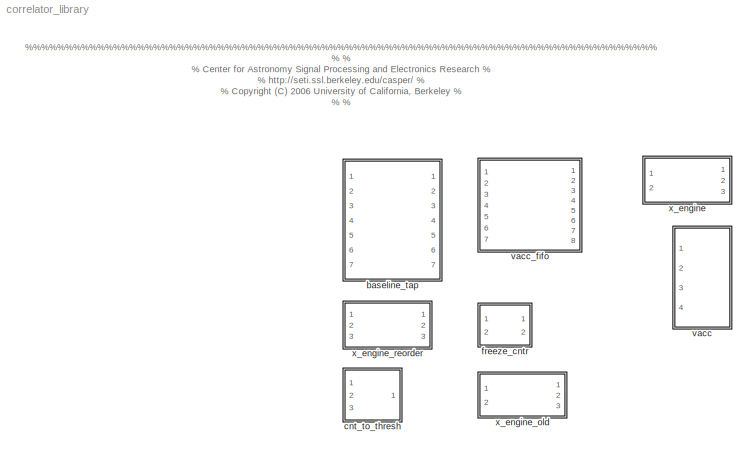
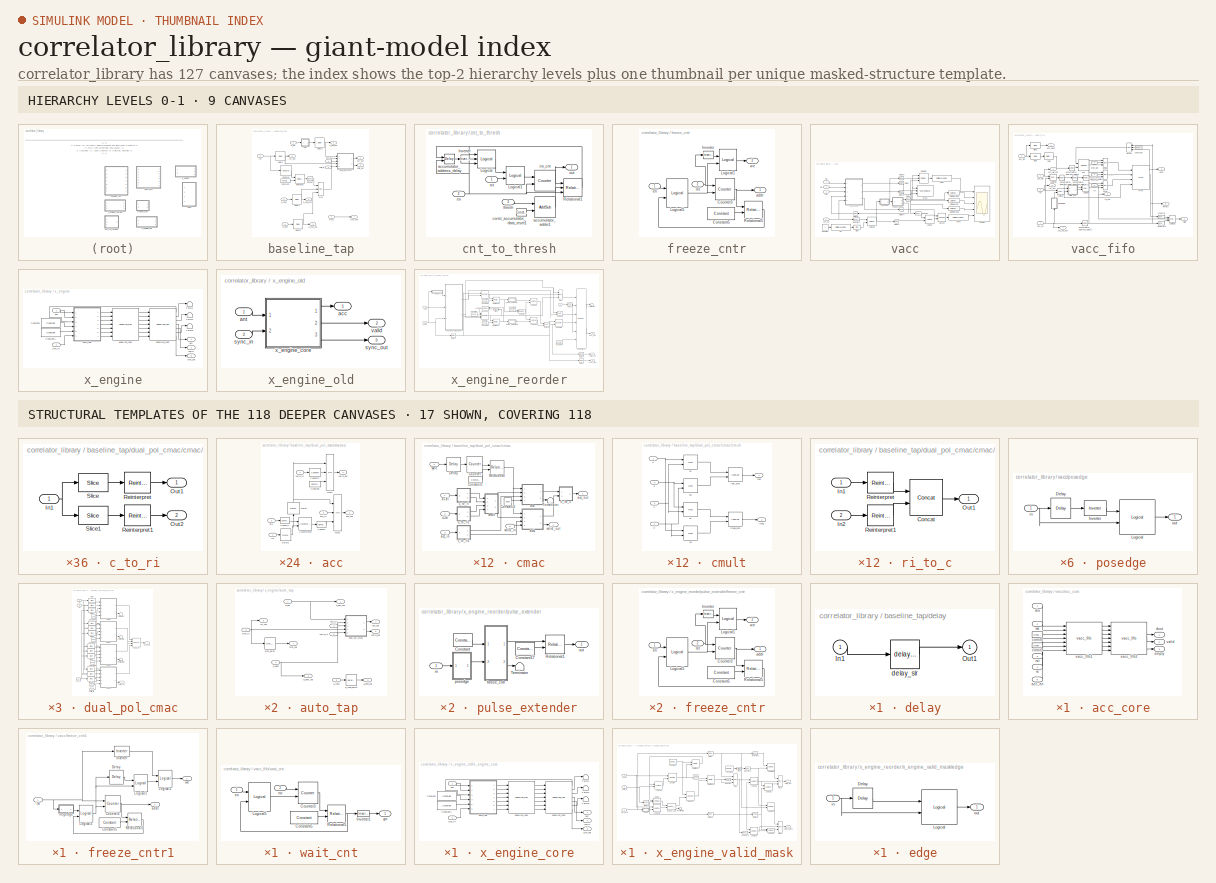
[diagram: thumbnail index - top-2 hierarchy levels (9 canvases) + 17 structural-template representatives of the remaining 118 canvases]
MODEL correlator_library
KIND library
BLOCK [SubSystem] baseline_tap
  MaskCallbackString = ||
  MaskEnableString = on,on,on
  MaskIconFrame = on
  MaskIconOpaque = on
  MaskIconRotate = none
  MaskIconUnits = autoscale
  MaskInitialization = cursys = gcb;\ndisp(cursys);\nmultipliers = find_system(cursys, 'lookUnderMasks', 'all', 'FollowLinks','on', 'masktype', 'Xilinx Multiplier');\nif ~strcmp(get_param(multipliers{1}, 'use_embedded'), use_mult_core),\n    for i=1:length(multipliers),\n        set_param(multipliers{i}, 'use_embedded', use_mult_core);\n    end\nend\nif use_bram,\n    delay_type = 'delay_bram';\nelse,\n    delay_type = ...<+155ch>
  MaskPromptString = Antenna Seperation|Use Dedicated Multiplers|Delay in BRAM
  MaskSelfModifiable = on
  MaskStyleString = edit,checkbox,checkbox
  MaskTabNameString = ,,
  MaskToolTipString = on,on,on
  MaskTunableValueString = on,on,on
  MaskType = x_engine_tap
  MaskValueString = 8|off|off
  MaskVarAliasString = ,,
  MaskVariables = AntSep=@1;use_mult_core=&2;use_bram=@3;
  MaskVisibilityString = on,on,on
  MinAlgLoopOccurrences = off
  Ports = [7, 7]
  RTWSystemCode = Auto
  TreatAsAtomicUnit = off
BLOCK [Reference] baseline_tap/Constant  REF=xbsIndex_r3/Constant
  Ports = [0, 1]
  SourceBlock = xbsIndex_r3/Constant
  SourceType = Xilinx Constant Block
  arith_type = Unsigned
  bin_pt = 0
  carry = CIN
  const = AntSep * AccLen
  dbl_ovrd = off
  equ = P=C
  explicit_period = off
  inp1 = P
  inp2 = PCIN>>17
  iostate = 0
  n_bits = AntBits + BitGrowth
  opr = +
  opselect = C
  period = 1
BLOCK [Reference] baseline_tap/Convert  REF=xbsIndex_r3/Convert
  Ports = [1, 1]
  SourceBlock = xbsIndex_r3/Convert
  SourceType = Xilinx Converter Block
  arith_type = Unsigned
  bin_pt = 0
  dbl_ovrd = off
  explicit_period = off
  inserted_by_tool = off
  latency = 0
  n_bits = 1
  overflow = Wrap
  period = 1
  pipeline = off
  quantization = Truncate
  show_param = off
  xl_area = [0, 0, 0, 0, 0, 0, 0]
  xl_use_area = off
BLOCK [Reference] baseline_tap/Counter  REF=xbsIndex_r3/Counter
  Ports = [1, 1]
  SourceBlock = xbsIndex_r3/Counter
  SourceType = Xilinx Counter Block
  arith_type = Unsigned
  bin_pt = 0
  cnt_by_val = 1
  cnt_to = AntNum * AccLen - 1
  cnt_type = Count Limited
  dbl_ovrd = off
  en = off
  explicit_period = off
  gen_core = off
  load_pin = off
  n_bits = AntBits + BitGrowth
  operation = Up
  period = 1
  rst = on
  show_param = off
  start_count = 0
  use_rpm = on
  xl_area = [0, 0, 0, 0, 0, 0, 0]
  xl_use_area = off
BLOCK [Reference] baseline_tap/Delay1  REF=xbsIndex_r3/Delay
  Ports = [1, 1]
  SourceBlock = xbsIndex_r3/Delay
  SourceType = Xilinx Delay Block
  accept_only_valid = off
  dbl_ovrd = off
  en = off
  explicit_period = off
  init_zero = on
  latency = 1
  period = 1
  reg_retiming = off
  show_param = off
  xl_area = [0, 0, 0, 0, 0, 0, 0]
  xl_use_area = off
BLOCK [Reference] baseline_tap/Delay3  REF=xbsIndex_r3/Delay
  Ports = [1, 1]
  SourceBlock = xbsIndex_r3/Delay
  SourceType = Xilinx Delay Block
  accept_only_valid = off
  dbl_ovrd = off
  en = off
  explicit_period = off
  init_zero = on
  latency = 1
  period = 1
  reg_retiming = off
  show_param = off
  xl_area = [0, 0, 0, 0, 0, 0, 0]
  xl_use_area = off
BLOCK [Reference] baseline_tap/Delay7  REF=xbsIndex_r3/Delay
  Ports = [1, 1]
  SourceBlock = xbsIndex_r3/Delay
  SourceType = Xilinx Delay Block
  accept_only_valid = off
  dbl_ovrd = off
  en = off
  explicit_period = on
  init_zero = on
  latency = 1
  period = 1
  reg_retiming = off
  show_param = off
  xl_area = [0, 0, 0, 0, 0, 0, 0]
  xl_use_area = off
BLOCK [Reference] baseline_tap/Delay8  REF=xbsIndex_r3/Delay
  Ports = [1, 1]
  SourceBlock = xbsIndex_r3/Delay
  SourceType = Xilinx Delay Block
  accept_only_valid = off
  dbl_ovrd = off
  en = off
  explicit_period = on
  init_zero = on
  latency = 1
  period = 1
  reg_retiming = off
  show_param = off
  xl_area = [0, 0, 0, 0, 0, 0, 0]
  xl_use_area = off
BLOCK [Reference] baseline_tap/Mux  REF=xbsIndex_r3/Mux
  Ports = [3, 1]
  SourceBlock = xbsIndex_r3/Mux
  SourceType = Xilinx Multiplexer Block
  arith_type = Signed  (2's comp)
  bin_pt = 2
  dbl_ovrd = off
  en = off
  explicit_period = off
  gen_core = off
  inputs = 2
  latency = 0
  mux_type = off
  n_bits = 8
  overflow = Wrap
  period = 1
  precision = Full
  quantization = Truncate
  show_param = off
  use_rpm = off
  xl_area = [0, 0, 0, 0, 0, 0, 0]
  xl_use_area = off
BLOCK [Reference] baseline_tap/Relational  REF=xbsIndex_r3/Relational
  Ports = [2, 1]
  SourceBlock = xbsIndex_r3/Relational
  SourceType = Xilinx Relational Block
  dbl_ovrd = off
  en = off
  explicit_period = off
  latency = 1
  mode = a<b
  period = 1
  show_param = off
  xl_area = [0, 0, 0, 0, 0, 0, 0]
  xl_use_area = off
BLOCK [Inport] baseline_tap/a_del
  IconDisplay = Port number
  LatchInput = off
  Port = 1
BLOCK [Outport] baseline_tap/a_del_out
  BusOutputAsStruct = off
  IconDisplay = Port number
BLOCK [Inport] baseline_tap/a_end
  IconDisplay = Port number
  LatchInput = off
  Port = 3
BLOCK [Outport] baseline_tap/a_end_out
  BusOutputAsStruct = off
  IconDisplay = Port number
  Port = 3
BLOCK [Inport] baseline_tap/a_ndel
  IconDisplay = Port number
  LatchInput = off
  Port = 2
BLOCK [Outport] baseline_tap/a_ndel_out
  BusOutputAsStruct = off
  IconDisplay = Port number
  Port = 2
BLOCK [Inport] baseline_tap/acc_in
  IconDisplay = Port number
  LatchInput = off
  Port = 4
BLOCK [Outport] baseline_tap/acc_out
  BusOutputAsStruct = off
  IconDisplay = Port number
  Port = 4
BLOCK [SubSystem] baseline_tap/delay
  AttributesFormatString = %<BlockChoice>
  BlockChoice = delay_slr
  MemberBlocks = delay_bram,delay_slr
  MinAlgLoopOccurrences = off
  Ports = [1, 1]
  RTWSystemCode = Auto
  TemplateBlock = delay_lib/delay
  TreatAsAtomicUnit = off
BLOCK [Inport] baseline_tap/delay/In1
  IconDisplay = Port number
  LatchInput = off
  Port = 1
BLOCK [Outport] baseline_tap/delay/Out1
  BusOutputAsStruct = off
  IconDisplay = Port number
BLOCK [Reference] baseline_tap/delay/delay_slr  REF=delay_lib/delay_slr  (lib defined in mdl_032c7a696b9b)
  DelayLen = AccLen
  Ports = [1, 1]
  ShowPortLabels = on
  SourceBlock = delay_lib/delay_slr
  SourceType = Unknown
BLOCK [SubSystem] baseline_tap/dual_pol_cmac
  MinAlgLoopOccurrences = off
  Ports = [5, 2]
  RTWSystemCode = Auto
  TreatAsAtomicUnit = off
BLOCK [Reference] baseline_tap/dual_pol_cmac/Concat  REF=xbsIndex_r3/Concat
  Ports = [4, 1]
  SourceBlock = xbsIndex_r3/Concat
  SourceType = Xilinx Bus Concatenator
  dbl_ovrd = off
  explicit_period = off
  num_inputs = 4
  period = 1
BLOCK [Reference] baseline_tap/dual_pol_cmac/Constant1  REF=xbsIndex_r3/Constant
  Ports = [0, 1]
  SourceBlock = xbsIndex_r3/Constant
  SourceType = Xilinx Constant Block
  arith_type = Unsigned
  bin_pt = 0
  carry = CIN
  const = 0
  dbl_ovrd = off
  equ = P=C
  explicit_period = off
  inp1 = P
  inp2 = PCIN>>17
  iostate = 0
  n_bits = 1
  opr = +
  opselect = C
  period = 1
BLOCK [Reference] baseline_tap/dual_pol_cmac/Constant2  REF=xbsIndex_r3/Constant
  Ports = [0, 1]
  SourceBlock = xbsIndex_r3/Constant
  SourceType = Xilinx Constant Block
  arith_type = Unsigned
  bin_pt = 0
  carry = CIN
  const = 0
  dbl_ovrd = off
  equ = P=C
  explicit_period = off
  inp1 = P
  inp2 = PCIN>>17
  iostate = 0
  n_bits = 1
  opr = +
  opselect = C
  period = 1
BLOCK [Reference] baseline_tap/dual_pol_cmac/Constant4  REF=xbsIndex_r3/Constant
  Ports = [0, 1]
  SourceBlock = xbsIndex_r3/Constant
  SourceType = Xilinx Constant Block
  arith_type = Unsigned
  bin_pt = 0
  carry = CIN
  const = 0
  dbl_ovrd = off
  equ = P=C
  explicit_period = off
  inp1 = P
  inp2 = PCIN>>17
  iostate = 0
  n_bits = 1
  opr = +
  opselect = C
  period = 1
BLOCK [Reference] baseline_tap/dual_pol_cmac/Slice  REF=xbsIndex_r3/Slice
  Ports = [1, 1]
  SourceBlock = xbsIndex_r3/Slice
  SourceType = Xilinx Slice Block
  base0 = LSB of Input
  base1 = MSB of Input
  bit0 = 0
  bit1 = 0
  boolean_output = off
  dbl_ovrd = off
  explicit_period = off
  mode = Upper Bit Location + Width
  nbits = 2*BitWidthIn
  period = 1
BLOCK [Reference] baseline_tap/dual_pol_cmac/Slice1  REF=xbsIndex_r3/Slice
  Ports = [1, 1]
  SourceBlock = xbsIndex_r3/Slice
  SourceType = Xilinx Slice Block
  base0 = LSB of Input
  base1 = MSB of Input
  bit0 = 0
  bit1 = 0
  boolean_output = off
  dbl_ovrd = off
  explicit_period = off
  mode = Upper Bit Location + Width
  nbits = 2*BitWidthIn
  period = 1
BLOCK [Reference] baseline_tap/dual_pol_cmac/Slice10  REF=xbsIndex_r3/Slice
  Ports = [1, 1]
  SourceBlock = xbsIndex_r3/Slice
  SourceType = Xilinx Slice Block
  base0 = LSB of Input
  base1 = MSB of Input
  bit0 = 0
  bit1 = -2*BitWidthIn
  boolean_output = off
  dbl_ovrd = off
  explicit_period = off
  mode = Upper Bit Location + Width
  nbits = 2*BitWidthIn
  period = 1
BLOCK [Reference] baseline_tap/dual_pol_cmac/Slice11  REF=xbsIndex_r3/Slice
  Ports = [1, 1]
  SourceBlock = xbsIndex_r3/Slice
  SourceType = Xilinx Slice Block
  base0 = LSB of Input
  base1 = MSB of Input
  bit0 = 0
  bit1 = -6*BitWidthOut
  boolean_output = off
  dbl_ovrd = off
  explicit_period = off
  mode = Upper Bit Location + Width
  nbits = 2*BitWidthOut
  period = 1
BLOCK [Reference] baseline_tap/dual_pol_cmac/Slice2  REF=xbsIndex_r3/Slice
  Ports = [1, 1]
  SourceBlock = xbsIndex_r3/Slice
  SourceType = Xilinx Slice Block
  base0 = LSB of Input
  base1 = MSB of Input
  bit0 = 0
  bit1 = 0
  boolean_output = off
  dbl_ovrd = off
  explicit_period = off
  mode = Upper Bit Location + Width
  nbits = 2*BitWidthOut
  period = 1
BLOCK [Reference] baseline_tap/dual_pol_cmac/Slice3  REF=xbsIndex_r3/Slice
  Ports = [1, 1]
  SourceBlock = xbsIndex_r3/Slice
  SourceType = Xilinx Slice Block
  base0 = LSB of Input
  base1 = MSB of Input
  bit0 = 0
  bit1 = -2*BitWidthIn
  boolean_output = off
  dbl_ovrd = off
  explicit_period = off
  mode = Upper Bit Location + Width
  nbits = 2*BitWidthIn
  period = 1
BLOCK [Reference] baseline_tap/dual_pol_cmac/Slice4  REF=xbsIndex_r3/Slice
  Ports = [1, 1]
  SourceBlock = xbsIndex_r3/Slice
  SourceType = Xilinx Slice Block
  base0 = LSB of Input
  base1 = MSB of Input
  bit0 = 0
  bit1 = -2*BitWidthIn
  boolean_output = off
  dbl_ovrd = off
  explicit_period = off
  mode = Upper Bit Location + Width
  nbits = 2*BitWidthIn
  period = 1
BLOCK [Reference] baseline_tap/dual_pol_cmac/Slice5  REF=xbsIndex_r3/Slice
  Ports = [1, 1]
  SourceBlock = xbsIndex_r3/Slice
  SourceType = Xilinx Slice Block
  base0 = LSB of Input
  base1 = MSB of Input
  bit0 = 0
  bit1 = -2*BitWidthOut
  boolean_output = off
  dbl_ovrd = off
  explicit_period = off
  mode = Upper Bit Location + Width
  nbits = 2*BitWidthOut
  period = 1
BLOCK [Reference] baseline_tap/dual_pol_cmac/Slice6  REF=xbsIndex_r3/Slice
  Ports = [1, 1]
  SourceBlock = xbsIndex_r3/Slice
  SourceType = Xilinx Slice Block
  base0 = LSB of Input
  base1 = MSB of Input
  bit0 = 0
  bit1 = 0
  boolean_output = off
  dbl_ovrd = off
  explicit_period = off
  mode = Upper Bit Location + Width
  nbits = 2*BitWidthIn
  period = 1
BLOCK [Reference] baseline_tap/dual_pol_cmac/Slice7  REF=xbsIndex_r3/Slice
  Ports = [1, 1]
  SourceBlock = xbsIndex_r3/Slice
  SourceType = Xilinx Slice Block
  base0 = LSB of Input
  base1 = MSB of Input
  bit0 = 0
  bit1 = -2*BitWidthIn
  boolean_output = off
  dbl_ovrd = off
  explicit_period = off
  mode = Upper Bit Location + Width
  nbits = 2*BitWidthIn
  period = 1
BLOCK [Reference] baseline_tap/dual_pol_cmac/Slice8  REF=xbsIndex_r3/Slice
  Ports = [1, 1]
  SourceBlock = xbsIndex_r3/Slice
  SourceType = Xilinx Slice Block
  base0 = LSB of Input
  base1 = MSB of Input
  bit0 = 0
  bit1 = -4*BitWidthOut
  boolean_output = off
  dbl_ovrd = off
  explicit_period = off
  mode = Upper Bit Location + Width
  nbits = 2*BitWidthOut
  period = 1
BLOCK [Reference] baseline_tap/dual_pol_cmac/Slice9  REF=xbsIndex_r3/Slice
  Ports = [1, 1]
  SourceBlock = xbsIndex_r3/Slice
  SourceType = Xilinx Slice Block
  base0 = LSB of Input
  base1 = MSB of Input
  bit0 = 0
  bit1 = 0
  boolean_output = off
  dbl_ovrd = off
  explicit_period = off
  mode = Upper Bit Location + Width
  nbits = 2*BitWidthIn
  period = 1
BLOCK [Terminator] baseline_tap/dual_pol_cmac/Terminator
BLOCK [Terminator] baseline_tap/dual_pol_cmac/Terminator1
BLOCK [Terminator] baseline_tap/dual_pol_cmac/Terminator2
BLOCK [Inport] baseline_tap/dual_pol_cmac/a1
  IconDisplay = Port number
  LatchInput = off
  Port = 1
BLOCK [Inport] baseline_tap/dual_pol_cmac/a2
  IconDisplay = Port number
  LatchInput = off
  Port = 2
BLOCK [Inport] baseline_tap/dual_pol_cmac/acc_in
  IconDisplay = Port number
  LatchInput = off
  Port = 3
BLOCK [Outport] baseline_tap/dual_pol_cmac/acc_out
  BusOutputAsStruct = off
  IconDisplay = Port number
BLOCK [SubSystem] baseline_tap/dual_pol_cmac/cmac
  MinAlgLoopOccurrences = off
  Ports = [5, 2]
  RTWSystemCode = Auto
  TreatAsAtomicUnit = off
BLOCK [Reference] baseline_tap/dual_pol_cmac/cmac/Constant1  REF=xbsIndex_r3/Constant
  Ports = [0, 1]
  SourceBlock = xbsIndex_r3/Constant
  SourceType = Xilinx Constant Block
  arith_type = Unsigned
  bin_pt = 0
  carry = CIN
  const = 0
  dbl_ovrd = off
  equ = P=C
  explicit_period = off
  inp1 = P
  inp2 = PCIN>>17
  iostate = 0
  n_bits = BitGrowth
  opr = +
  opselect = C
  period = 1
BLOCK [Reference] baseline_tap/dual_pol_cmac/cmac/Constant2  REF=xbsIndex_r3/Constant
  Ports = [0, 1]
  SourceBlock = xbsIndex_r3/Constant
  SourceType = Xilinx Constant Block
  arith_type = Unsigned
  bin_pt = 0
  carry = CIN
  const = 0
  dbl_ovrd = off
  equ = P=C
  explicit_period = off
  inp1 = P
  inp2 = PCIN>>17
  iostate = 0
  n_bits = 1
  opr = +
  opselect = C
  period = 1
BLOCK [Reference] baseline_tap/dual_pol_cmac/cmac/Counter  REF=xbsIndex_r3/Counter
  Ports = [1, 1]
  SourceBlock = xbsIndex_r3/Counter
  SourceType = Xilinx Counter Block
  arith_type = Unsigned
  bin_pt = 0
  cnt_by_val = 1
  cnt_to = AccLen - 1
  cnt_type = Count Limited
  dbl_ovrd = off
  en = off
  explicit_period = off
  gen_core = off
  load_pin = off
  n_bits = BitGrowth
  operation = Up
  period = 1
  rst = on
  show_param = off
  start_count = 0
  use_rpm = on
  xl_area = [0, 0, 0, 0, 0, 0, 0]
  xl_use_area = off
BLOCK [Reference] baseline_tap/dual_pol_cmac/cmac/Delay  REF=xbsIndex_r3/Delay
  Ports = [1, 1]
  SourceBlock = xbsIndex_r3/Delay
  SourceType = Xilinx Delay Block
  accept_only_valid = off
  dbl_ovrd = off
  en = off
  explicit_period = off
  init_zero = on
  latency = add_latency + mult_latency - 1
  period = 1
  reg_retiming = off
  show_param = off
  xl_area = [0, 0, 0, 0, 0, 0, 0]
  xl_use_area = off
BLOCK [Reference] baseline_tap/dual_pol_cmac/cmac/Relational  REF=xbsIndex_r3/Relational
  Ports = [2, 1]
  SourceBlock = xbsIndex_r3/Relational
  SourceType = Xilinx Relational Block
  dbl_ovrd = off
  en = off
  explicit_period = off
  latency = 1
  mode = a=b
  period = 1
  show_param = off
  xl_area = [0, 0, 0, 0, 0, 0, 0]
  xl_use_area = off
BLOCK [Terminator] baseline_tap/dual_pol_cmac/cmac/Terminator
BLOCK [Inport] baseline_tap/dual_pol_cmac/cmac/a+bi
  IconDisplay = Port number
  LatchInput = off
  Port = 1
BLOCK [SubSystem] baseline_tap/dual_pol_cmac/cmac/acc
  MinAlgLoopOccurrences = off
  Ports = [4, 2]
  RTWSystemCode = Auto
  TreatAsAtomicUnit = off
BLOCK [Reference] baseline_tap/dual_pol_cmac/cmac/acc/Accumulator  REF=xbsIndex_r3/Accumulator
  Ports = [2, 1]
  SourceBlock = xbsIndex_r3/Accumulator
  SourceType = Xilinx Accumulator
  dbl_ovrd = off
  en = off
  explicit_period = on
  gen_core = off
  hasbypass = on
  n_bits = 2*BitWidthIn+1 + BitGrowth
  operation = Add
  overflow = Wrap
  period = 1
  rst = on
  scale = 1
  show_param = off
  use_rpm = on
  xl_area = [0, 0, 0, 0, 0, 0, 0]
  xl_use_area = off
BLOCK [Reference] baseline_tap/dual_pol_cmac/cmac/acc/Constant  REF=xbsIndex_r3/Constant
  Ports = [0, 1]
  SourceBlock = xbsIndex_r3/Constant
  SourceType = Xilinx Constant Block
  arith_type = Boolean
  bin_pt = 0
  carry = CIN
  const = 1
  dbl_ovrd = off
  equ = P=C
  explicit_period = on
  inp1 = P
  inp2 = PCIN>>17
  iostate = 0
  n_bits = 1
  opr = +
  opselect = C
  period = 1
BLOCK [Reference] baseline_tap/dual_pol_cmac/cmac/acc/Convert  REF=xbsIndex_r3/Convert
  Ports = [1, 1]
  SourceBlock = xbsIndex_r3/Convert
  SourceType = Xilinx Converter Block
  arith_type = Signed  (2's comp)
  bin_pt = BitWidthOut - BitGrowth - (2*BitWidthIn+1 - 2*(BitWidthIn-1))
  dbl_ovrd = off
  explicit_period = on
  inserted_by_tool = off
  latency = 0
  n_bits = BitWidthOut
  overflow = Saturate
  period = 1
  pipeline = off
  quantization = Round  (unbiased: +/- Inf)
  show_param = on
  xl_area = [0, 0, 0, 0, 0, 0, 0]
  xl_use_area = off
BLOCK [Reference] baseline_tap/dual_pol_cmac/cmac/acc/Convert1  REF=xbsIndex_r3/Convert
  Ports = [1, 1]
  SourceBlock = xbsIndex_r3/Convert
  SourceType = Xilinx Converter Block
  arith_type = Signed  (2's comp)
  bin_pt = 2*(BitWidthIn-1)
  dbl_ovrd = off
  explicit_period = off
  inserted_by_tool = off
  latency = 0
  n_bits = 2*BitWidthIn+1 + BitGrowth
  overflow = Wrap
  period = 1
  pipeline = off
  quantization = Truncate
  show_param = on
  xl_area = [0, 0, 0, 0, 0, 0, 0]
  xl_use_area = off
BLOCK [Reference] baseline_tap/dual_pol_cmac/cmac/acc/Convert2  REF=xbsIndex_r3/Convert
  Ports = [1, 1]
  SourceBlock = xbsIndex_r3/Convert
  SourceType = Xilinx Converter Block
  arith_type = Boolean
  bin_pt = 6
  dbl_ovrd = off
  explicit_period = off
  inserted_by_tool = off
  latency = 0
  n_bits = 8
  overflow = Wrap
  period = 1
  pipeline = off
  quantization = Truncate
  show_param = off
  xl_area = [0, 0, 0, 0, 0, 0, 0]
  xl_use_area = off
BLOCK [Reference] baseline_tap/dual_pol_cmac/cmac/acc/Delay  REF=xbsIndex_r3/Delay
  Ports = [1, 1]
  SourceBlock = xbsIndex_r3/Delay
  SourceType = Xilinx Delay Block
  accept_only_valid = off
  dbl_ovrd = off
  en = off
  explicit_period = off
  init_zero = on
  latency = 0
  period = 1
  reg_retiming = off
  show_param = off
  xl_area = [0, 0, 0, 0, 0, 0, 0]
  xl_use_area = off
BLOCK [Reference] baseline_tap/dual_pol_cmac/cmac/acc/Delay1  REF=xbsIndex_r3/Delay
  Ports = [1, 1]
  SourceBlock = xbsIndex_r3/Delay
  SourceType = Xilinx Delay Block
  accept_only_valid = off
  dbl_ovrd = off
  en = off
  explicit_period = off
  init_zero = on
  latency = 0
  period = 1
  reg_retiming = off
  show_param = off
  xl_area = [0, 0, 0, 0, 0, 0, 0]
  xl_use_area = off
BLOCK [Reference] baseline_tap/dual_pol_cmac/cmac/acc/Mux2  REF=xbsIndex_r3/Mux
  Ports = [3, 1]
  SourceBlock = xbsIndex_r3/Mux
  SourceType = Xilinx Multiplexer Block
  arith_type = Signed  (2's comp)
  bin_pt = 0
  dbl_ovrd = off
  en = off
  explicit_period = on
  gen_core = off
  inputs = 2
  latency = 2
  mux_type = off
  n_bits = 0
  overflow = Wrap
  period = 1
  precision = Full
  quantization = Round  (unbiased: +/- Inf)
  show_param = off
  use_rpm = off
  xl_area = [0, 0, 0, 0, 0, 0, 0]
  xl_use_area = off
BLOCK [Reference] baseline_tap/dual_pol_cmac/cmac/acc/Mux3  REF=xbsIndex_r3/Mux
  Ports = [3, 1]
  SourceBlock = xbsIndex_r3/Mux
  SourceType = Xilinx Multiplexer Block
  arith_type = Signed  (2's comp)
  bin_pt = 0
  dbl_ovrd = off
  en = off
  explicit_period = on
  gen_core = off
  inputs = 2
  latency = 2
  mux_type = off
  n_bits = 0
  overflow = Wrap
  period = 1
  precision = Full
  quantization = Truncate
  show_param = off
  use_rpm = off
  xl_area = [0, 0, 0, 0, 0, 0, 0]
  xl_use_area = off
BLOCK [Inport] baseline_tap/dual_pol_cmac/cmac/acc/acc_in
  IconDisplay = Port number
  LatchInput = off
  Port = 3
BLOCK [Outport] baseline_tap/dual_pol_cmac/cmac/acc/acc_out
  BusOutputAsStruct = off
  IconDisplay = Port number
BLOCK [Inport] baseline_tap/dual_pol_cmac/cmac/acc/din
  IconDisplay = Port number
  LatchInput = off
  Port = 2
BLOCK [Inport] baseline_tap/dual_pol_cmac/cmac/acc/rst
  IconDisplay = Port number
  LatchInput = off
  Port = 1
BLOCK [Inport] baseline_tap/dual_pol_cmac/cmac/acc/valid_in
  IconDisplay = Port number
  LatchInput = off
  Port = 4
BLOCK [Outport] baseline_tap/dual_pol_cmac/cmac/acc/valid_out
  BusOutputAsStruct = off
  IconDisplay = Port number
  Port = 2
BLOCK [SubSystem] baseline_tap/dual_pol_cmac/cmac/acc1
  MinAlgLoopOccurrences = off
  Ports = [4, 2]
  RTWSystemCode = Auto
  TreatAsAtomicUnit = off
BLOCK [Reference] baseline_tap/dual_pol_cmac/cmac/acc1/Accumulator  REF=xbsIndex_r3/Accumulator
  Ports = [2, 1]
  SourceBlock = xbsIndex_r3/Accumulator
  SourceType = Xilinx Accumulator
  dbl_ovrd = off
  en = off
  explicit_period = on
  gen_core = off
  hasbypass = on
  n_bits = 2*BitWidthIn+1 + BitGrowth
  operation = Add
  overflow = Wrap
  period = 1
  rst = on
  scale = 1
  show_param = off
  use_rpm = on
  xl_area = [0, 0, 0, 0, 0, 0, 0]
  xl_use_area = off
BLOCK [Reference] baseline_tap/dual_pol_cmac/cmac/acc1/Constant  REF=xbsIndex_r3/Constant
  Ports = [0, 1]
  SourceBlock = xbsIndex_r3/Constant
  SourceType = Xilinx Constant Block
  arith_type = Boolean
  bin_pt = 0
  carry = CIN
  const = 1
  dbl_ovrd = off
  equ = P=C
  explicit_period = on
  inp1 = P
  inp2 = PCIN>>17
  iostate = 0
  n_bits = 1
  opr = +
  opselect = C
  period = 1
BLOCK [Reference] baseline_tap/dual_pol_cmac/cmac/acc1/Convert  REF=xbsIndex_r3/Convert
  Ports = [1, 1]
  SourceBlock = xbsIndex_r3/Convert
  SourceType = Xilinx Converter Block
  arith_type = Signed  (2's comp)
  bin_pt = BitWidthOut - BitGrowth - (2*BitWidthIn+1 - 2*(BitWidthIn-1))
  dbl_ovrd = off
  explicit_period = on
  inserted_by_tool = off
  latency = 0
  n_bits = BitWidthOut
  overflow = Saturate
  period = 1
  pipeline = off
  quantization = Round  (unbiased: +/- Inf)
  show_param = on
  xl_area = [0, 0, 0, 0, 0, 0, 0]
  xl_use_area = off
BLOCK [Reference] baseline_tap/dual_pol_cmac/cmac/acc1/Convert1  REF=xbsIndex_r3/Convert
  Ports = [1, 1]
  SourceBlock = xbsIndex_r3/Convert
  SourceType = Xilinx Converter Block
  arith_type = Signed  (2's comp)
  bin_pt = 2*(BitWidthIn-1)
  dbl_ovrd = off
  explicit_period = off
  inserted_by_tool = off
  latency = 0
  n_bits = 2*BitWidthIn+1 + BitGrowth
  overflow = Wrap
  period = 1
  pipeline = off
  quantization = Truncate
  show_param = on
  xl_area = [0, 0, 0, 0, 0, 0, 0]
  xl_use_area = off
BLOCK [Reference] baseline_tap/dual_pol_cmac/cmac/acc1/Convert2  REF=xbsIndex_r3/Convert
  Ports = [1, 1]
  SourceBlock = xbsIndex_r3/Convert
  SourceType = Xilinx Converter Block
  arith_type = Boolean
  bin_pt = 6
  dbl_ovrd = off
  explicit_period = off
  inserted_by_tool = off
  latency = 0
  n_bits = 8
  overflow = Wrap
  period = 1
  pipeline = off
  quantization = Truncate
  show_param = off
  xl_area = [0, 0, 0, 0, 0, 0, 0]
  xl_use_area = off
BLOCK [Reference] baseline_tap/dual_pol_cmac/cmac/acc1/Delay  REF=xbsIndex_r3/Delay
  Ports = [1, 1]
  SourceBlock = xbsIndex_r3/Delay
  SourceType = Xilinx Delay Block
  accept_only_valid = off
  dbl_ovrd = off
  en = off
  explicit_period = off
  init_zero = on
  latency = 0
  period = 1
  reg_retiming = off
  show_param = off
  xl_area = [0, 0, 0, 0, 0, 0, 0]
  xl_use_area = off
BLOCK [Reference] baseline_tap/dual_pol_cmac/cmac/acc1/Delay1  REF=xbsIndex_r3/Delay
  Ports = [1, 1]
  SourceBlock = xbsIndex_r3/Delay
  SourceType = Xilinx Delay Block
  accept_only_valid = off
  dbl_ovrd = off
  en = off
  explicit_period = off
  init_zero = on
  latency = 0
  period = 1
  reg_retiming = off
  show_param = off
  xl_area = [0, 0, 0, 0, 0, 0, 0]
  xl_use_area = off
BLOCK [Reference] baseline_tap/dual_pol_cmac/cmac/acc1/Mux2  REF=xbsIndex_r3/Mux
  Ports = [3, 1]
  SourceBlock = xbsIndex_r3/Mux
  SourceType = Xilinx Multiplexer Block
  arith_type = Signed  (2's comp)
  bin_pt = 0
  dbl_ovrd = off
  en = off
  explicit_period = on
  gen_core = off
  inputs = 2
  latency = 2
  mux_type = off
  n_bits = 0
  overflow = Wrap
  period = 1
  precision = Full
  quantization = Round  (unbiased: +/- Inf)
  show_param = off
  use_rpm = off
  xl_area = [0, 0, 0, 0, 0, 0, 0]
  xl_use_area = off
BLOCK [Reference] baseline_tap/dual_pol_cmac/cmac/acc1/Mux3  REF=xbsIndex_r3/Mux
  Ports = [3, 1]
  SourceBlock = xbsIndex_r3/Mux
  SourceType = Xilinx Multiplexer Block
  arith_type = Signed  (2's comp)
  bin_pt = 0
  dbl_ovrd = off
  en = off
  explicit_period = on
  gen_core = off
  inputs = 2
  latency = 2
  mux_type = off
  n_bits = 0
  overflow = Wrap
  period = 1
  precision = Full
  quantization = Truncate
  show_param = off
  use_rpm = off
  xl_area = [0, 0, 0, 0, 0, 0, 0]
  xl_use_area = off
BLOCK [Inport] baseline_tap/dual_pol_cmac/cmac/acc1/acc_in
  IconDisplay = Port number
  LatchInput = off
  Port = 3
BLOCK [Outport] baseline_tap/dual_pol_cmac/cmac/acc1/acc_out
  BusOutputAsStruct = off
  IconDisplay = Port number
BLOCK [Inport] baseline_tap/dual_pol_cmac/cmac/acc1/din
  IconDisplay = Port number
  LatchInput = off
  Port = 2
BLOCK [Inport] baseline_tap/dual_pol_cmac/cmac/acc1/rst
  IconDisplay = Port number
  LatchInput = off
  Port = 1
BLOCK [Inport] baseline_tap/dual_pol_cmac/cmac/acc1/valid_in
  IconDisplay = Port number
  LatchInput = off
  Port = 4
BLOCK [Outport] baseline_tap/dual_pol_cmac/cmac/acc1/valid_out
  BusOutputAsStruct = off
  IconDisplay = Port number
  Port = 2
BLOCK [Inport] baseline_tap/dual_pol_cmac/cmac/acc_in
  IconDisplay = Port number
  LatchInput = off
  Port = 3
BLOCK [Outport] baseline_tap/dual_pol_cmac/cmac/acc_out
  BusOutputAsStruct = off
  IconDisplay = Port number
BLOCK [Inport] baseline_tap/dual_pol_cmac/cmac/c+di
  IconDisplay = Port number
  LatchInput = off
  Port = 2
BLOCK [SubSystem] baseline_tap/dual_pol_cmac/cmac/c_to_ri
  MinAlgLoopOccurrences = off
  Ports = [1, 2]
  RTWSystemCode = Auto
  TreatAsAtomicUnit = off
BLOCK [Inport] baseline_tap/dual_pol_cmac/cmac/c_to_ri/In1
  IconDisplay = Port number
  LatchInput = off
  Port = 1
BLOCK [Outport] baseline_tap/dual_pol_cmac/cmac/c_to_ri/Out1
  BusOutputAsStruct = off
  IconDisplay = Port number
BLOCK [Outport] baseline_tap/dual_pol_cmac/cmac/c_to_ri/Out2
  BusOutputAsStruct = off
  IconDisplay = Port number
  Port = 2
BLOCK [Reference] baseline_tap/dual_pol_cmac/cmac/c_to_ri/Reinterpret  REF=xbsIndex_r3/Reinterpret
  Ports = [1, 1]
  SourceBlock = xbsIndex_r3/Reinterpret
  SourceType = Xilinx Type Reinterpreting Block
  arith_type = Signed  (2's comp)
  bin_pt = BitWidthIn - 1
  force_arith_type = on
  force_bin_pt = on
  force_valid = on
BLOCK [Reference] baseline_tap/dual_pol_cmac/cmac/c_to_ri/Reinterpret1  REF=xbsIndex_r3/Reinterpret
  Ports = [1, 1]
  SourceBlock = xbsIndex_r3/Reinterpret
  SourceType = Xilinx Type Reinterpreting Block
  arith_type = Signed  (2's comp)
  bin_pt = BitWidthIn - 1
  force_arith_type = on
  force_bin_pt = on
  force_valid = on
BLOCK [Reference] baseline_tap/dual_pol_cmac/cmac/c_to_ri/Slice  REF=xbsIndex_r3/Slice
  Ports = [1, 1]
  SourceBlock = xbsIndex_r3/Slice
  SourceType = Xilinx Slice Block
  base0 = LSB of Input
  base1 = MSB of Input
  bit0 = 0
  bit1 = 0
  boolean_output = off
  dbl_ovrd = off
  explicit_period = off
  mode = Upper Bit Location + Width
  nbits = BitWidthIn
  period = 1
BLOCK [Reference] baseline_tap/dual_pol_cmac/cmac/c_to_ri/Slice1  REF=xbsIndex_r3/Slice
  Ports = [1, 1]
  SourceBlock = xbsIndex_r3/Slice
  SourceType = Xilinx Slice Block
  base0 = LSB of Input
  base1 = MSB of Input
  bit0 = 0
  bit1 = 0
  boolean_output = off
  dbl_ovrd = off
  explicit_period = off
  mode = Lower Bit Location + Width
  nbits = BitWidthIn
  period = 1
BLOCK [SubSystem] baseline_tap/dual_pol_cmac/cmac/c_to_ri1
  MinAlgLoopOccurrences = off
  Ports = [1, 2]
  RTWSystemCode = Auto
  TreatAsAtomicUnit = off
BLOCK [Inport] baseline_tap/dual_pol_cmac/cmac/c_to_ri1/In1
  IconDisplay = Port number
  LatchInput = off
  Port = 1
BLOCK [Outport] baseline_tap/dual_pol_cmac/cmac/c_to_ri1/Out1
  BusOutputAsStruct = off
  IconDisplay = Port number
BLOCK [Outport] baseline_tap/dual_pol_cmac/cmac/c_to_ri1/Out2
  BusOutputAsStruct = off
  IconDisplay = Port number
  Port = 2
BLOCK [Reference] baseline_tap/dual_pol_cmac/cmac/c_to_ri1/Reinterpret  REF=xbsIndex_r3/Reinterpret
  Ports = [1, 1]
  SourceBlock = xbsIndex_r3/Reinterpret
  SourceType = Xilinx Type Reinterpreting Block
  arith_type = Signed  (2's comp)
  bin_pt = BitWidthIn - 1
  force_arith_type = on
  force_bin_pt = on
  force_valid = on
BLOCK [Reference] baseline_tap/dual_pol_cmac/cmac/c_to_ri1/Reinterpret1  REF=xbsIndex_r3/Reinterpret
  Ports = [1, 1]
  SourceBlock = xbsIndex_r3/Reinterpret
  SourceType = Xilinx Type Reinterpreting Block
  arith_type = Signed  (2's comp)
  bin_pt = BitWidthIn - 1
  force_arith_type = on
  force_bin_pt = on
  force_valid = on
BLOCK [Reference] baseline_tap/dual_pol_cmac/cmac/c_to_ri1/Slice  REF=xbsIndex_r3/Slice
  Ports = [1, 1]
  SourceBlock = xbsIndex_r3/Slice
  SourceType = Xilinx Slice Block
  base0 = LSB of Input
  base1 = MSB of Input
  bit0 = 0
  bit1 = 0
  boolean_output = off
  dbl_ovrd = off
  explicit_period = off
  mode = Upper Bit Location + Width
  nbits = BitWidthIn
  period = 1
BLOCK [Reference] baseline_tap/dual_pol_cmac/cmac/c_to_ri1/Slice1  REF=xbsIndex_r3/Slice
  Ports = [1, 1]
  SourceBlock = xbsIndex_r3/Slice
  SourceType = Xilinx Slice Block
  base0 = LSB of Input
  base1 = MSB of Input
  bit0 = 0
  bit1 = 0
  boolean_output = off
  dbl_ovrd = off
  explicit_period = off
  mode = Lower Bit Location + Width
  nbits = BitWidthIn
  period = 1
BLOCK [SubSystem] baseline_tap/dual_pol_cmac/cmac/c_to_ri2
  MinAlgLoopOccurrences = off
  Ports = [1, 2]
  RTWSystemCode = Auto
  TreatAsAtomicUnit = off
BLOCK [Inport] baseline_tap/dual_pol_cmac/cmac/c_to_ri2/In1
  IconDisplay = Port number
  LatchInput = off
  Port = 1
BLOCK [Outport] baseline_tap/dual_pol_cmac/cmac/c_to_ri2/Out1
  BusOutputAsStruct = off
  IconDisplay = Port number
BLOCK [Outport] baseline_tap/dual_pol_cmac/cmac/c_to_ri2/Out2
  BusOutputAsStruct = off
  IconDisplay = Port number
  Port = 2
BLOCK [Reference] baseline_tap/dual_pol_cmac/cmac/c_to_ri2/Reinterpret  REF=xbsIndex_r3/Reinterpret
  Ports = [1, 1]
  SourceBlock = xbsIndex_r3/Reinterpret
  SourceType = Xilinx Type Reinterpreting Block
  arith_type = Signed  (2's comp)
  bin_pt = BitWidthOut - BitGrowth - 3
  force_arith_type = on
  force_bin_pt = on
  force_valid = on
BLOCK [Reference] baseline_tap/dual_pol_cmac/cmac/c_to_ri2/Reinterpret1  REF=xbsIndex_r3/Reinterpret
  Ports = [1, 1]
  SourceBlock = xbsIndex_r3/Reinterpret
  SourceType = Xilinx Type Reinterpreting Block
  arith_type = Signed  (2's comp)
  bin_pt = BitWidthOut - BitGrowth - 3
  force_arith_type = on
  force_bin_pt = on
  force_valid = on
BLOCK [Reference] baseline_tap/dual_pol_cmac/cmac/c_to_ri2/Slice  REF=xbsIndex_r3/Slice
  Ports = [1, 1]
  SourceBlock = xbsIndex_r3/Slice
  SourceType = Xilinx Slice Block
  base0 = LSB of Input
  base1 = MSB of Input
  bit0 = 0
  bit1 = 0
  boolean_output = off
  dbl_ovrd = off
  explicit_period = off
  mode = Upper Bit Location + Width
  nbits = BitWidthOut
  period = 1
BLOCK [Reference] baseline_tap/dual_pol_cmac/cmac/c_to_ri2/Slice1  REF=xbsIndex_r3/Slice
  Ports = [1, 1]
  SourceBlock = xbsIndex_r3/Slice
  SourceType = Xilinx Slice Block
  base0 = LSB of Input
  base1 = MSB of Input
  bit0 = 0
  bit1 = 0
  boolean_output = off
  dbl_ovrd = off
  explicit_period = off
  mode = Lower Bit Location + Width
  nbits = BitWidthOut
  period = 1
BLOCK [SubSystem] baseline_tap/dual_pol_cmac/cmac/cmult
  MinAlgLoopOccurrences = off
  Ports = [4, 2]
  RTWSystemCode = Auto
  TreatAsAtomicUnit = off
BLOCK [Inport] baseline_tap/dual_pol_cmac/cmac/cmult/a
  IconDisplay = Port number
  LatchInput = off
  Port = 1
BLOCK [Reference] baseline_tap/dual_pol_cmac/cmac/cmult/ac  REF=xbsIndex_r3/Mult
  Ports = [2, 1]
  SourceBlock = xbsIndex_r3/Mult
  SourceType = Xilinx Multiplier
  arith_type = Signed  (2's comp)
  bin_pt = 2
  dbl_ovrd = off
  en = off
  explicit_period = off
  gen_core = off
  latency = mult_latency
  mult_type = Parallel
  n_bits = 8
  overflow = Wrap
  oversample = 2
  period = 1
  pipeline = on
  placement_style = Rectangular Shape
  precision = Full
  quantization = Truncate
  show_param = on
  use_embedded = off
  use_rpm = on
  xl_area = [0, 0, 0, 0, 0, 0, 0]
  xl_use_area = off
BLOCK [Reference] baseline_tap/dual_pol_cmac/cmac/cmult/ad  REF=xbsIndex_r3/Mult
  Ports = [2, 1]
  SourceBlock = xbsIndex_r3/Mult
  SourceType = Xilinx Multiplier
  arith_type = Signed  (2's comp)
  bin_pt = 2
  dbl_ovrd = off
  en = off
  explicit_period = off
  gen_core = off
  latency = mult_latency
  mult_type = Parallel
  n_bits = 8
  overflow = Wrap
  oversample = 2
  period = 1
  pipeline = on
  placement_style = Rectangular Shape
  precision = Full
  quantization = Truncate
  show_param = on
  use_embedded = off
  use_rpm = on
  xl_area = [0, 0, 0, 0, 0, 0, 0]
  xl_use_area = off
BLOCK [Inport] baseline_tap/dual_pol_cmac/cmac/cmult/b
  IconDisplay = Port number
  LatchInput = off
  Port = 2
BLOCK [Reference] baseline_tap/dual_pol_cmac/cmac/cmult/bc  REF=xbsIndex_r3/Mult
  Ports = [2, 1]
  SourceBlock = xbsIndex_r3/Mult
  SourceType = Xilinx Multiplier
  arith_type = Signed  (2's comp)
  bin_pt = 2
  dbl_ovrd = off
  en = off
  explicit_period = off
  gen_core = off
  latency = mult_latency
  mult_type = Parallel
  n_bits = 8
  overflow = Wrap
  oversample = 2
  period = 1
  pipeline = on
  placement_style = Rectangular Shape
  precision = Full
  quantization = Truncate
  show_param = on
  use_embedded = off
  use_rpm = on
  xl_area = [0, 0, 0, 0, 0, 0, 0]
  xl_use_area = off
BLOCK [Reference] baseline_tap/dual_pol_cmac/cmac/cmult/bd  REF=xbsIndex_r3/Mult
  Ports = [2, 1]
  SourceBlock = xbsIndex_r3/Mult
  SourceType = Xilinx Multiplier
  arith_type = Signed  (2's comp)
  bin_pt = 2
  dbl_ovrd = off
  en = off
  explicit_period = off
  gen_core = off
  latency = mult_latency
  mult_type = Parallel
  n_bits = 8
  overflow = Wrap
  oversample = 2
  period = 1
  pipeline = on
  placement_style = Rectangular Shape
  precision = Full
  quantization = Truncate
  show_param = on
  use_embedded = off
  use_rpm = on
  xl_area = [0, 0, 0, 0, 0, 0, 0]
  xl_use_area = off
BLOCK [Inport] baseline_tap/dual_pol_cmac/cmac/cmult/c
  IconDisplay = Port number
  LatchInput = off
  Port = 3
BLOCK [Inport] baseline_tap/dual_pol_cmac/cmac/cmult/d
  IconDisplay = Port number
  LatchInput = off
  Port = 4
BLOCK [Outport] baseline_tap/dual_pol_cmac/cmac/cmult/imag
  BusOutputAsStruct = off
  IconDisplay = Port number
  Port = 2
BLOCK [Reference] baseline_tap/dual_pol_cmac/cmac/cmult/imag_sum  REF=xbsIndex_r3/AddSub
  Ports = [2, 1]
  SourceBlock = xbsIndex_r3/AddSub
  SourceType = Xilinx Adder/Subtractor
  arith_type = Unsigned
  bin_pt = 2
  dbl_ovrd = off
  en = off
  explicit_period = off
  gen_core = off
  latency = add_latency
  mode = Subtraction
  n_bits = 8
  overflow = Wrap
  period = 1
  pipeline = off
  precision = Full
  quantization = Truncate
  show_param = off
  use_carryin = off
  use_carryout = off
  use_core = on
  use_rpm = on
  xl_area = [0, 0, 0, 0, 0, 0, 0]
  xl_use_area = off
BLOCK [Outport] baseline_tap/dual_pol_cmac/cmac/cmult/real
  BusOutputAsStruct = off
  IconDisplay = Port number
BLOCK [Reference] baseline_tap/dual_pol_cmac/cmac/cmult/real_sum  REF=xbsIndex_r3/AddSub
  Ports = [2, 1]
  SourceBlock = xbsIndex_r3/AddSub
  SourceType = Xilinx Adder/Subtractor
  arith_type = Unsigned
  bin_pt = 2
  dbl_ovrd = off
  en = off
  explicit_period = off
  gen_core = off
  latency = add_latency
  mode = Addition
  n_bits = 8
  overflow = Wrap
  period = 1
  pipeline = off
  precision = Full
  quantization = Truncate
  show_param = off
  use_carryin = off
  use_carryout = off
  use_core = on
  use_rpm = on
  xl_area = [0, 0, 0, 0, 0, 0, 0]
  xl_use_area = off
BLOCK [SubSystem] baseline_tap/dual_pol_cmac/cmac/ri_to_c
  MinAlgLoopOccurrences = off
  Ports = [2, 1]
  RTWSystemCode = Auto
  TreatAsAtomicUnit = off
BLOCK [Reference] baseline_tap/dual_pol_cmac/cmac/ri_to_c/Concat  REF=xbsIndex_r3/Concat
  Ports = [2, 1]
  SourceBlock = xbsIndex_r3/Concat
  SourceType = Xilinx Bus Concatenator
  dbl_ovrd = off
  explicit_period = off
  num_inputs = 2
  period = 1
BLOCK [Inport] baseline_tap/dual_pol_cmac/cmac/ri_to_c/In1
  IconDisplay = Port number
  LatchInput = off
  Port = 1
BLOCK [Inport] baseline_tap/dual_pol_cmac/cmac/ri_to_c/In2
  IconDisplay = Port number
  LatchInput = off
  Port = 2
BLOCK [Outport] baseline_tap/dual_pol_cmac/cmac/ri_to_c/Out1
  BusOutputAsStruct = off
  IconDisplay = Port number
BLOCK [Reference] baseline_tap/dual_pol_cmac/cmac/ri_to_c/Reinterpret  REF=xbsIndex_r3/Reinterpret
  Ports = [1, 1]
  SourceBlock = xbsIndex_r3/Reinterpret
  SourceType = Xilinx Type Reinterpreting Block
  arith_type = Unsigned
  bin_pt = 0
  force_arith_type = on
  force_bin_pt = on
  force_valid = on
BLOCK [Reference] baseline_tap/dual_pol_cmac/cmac/ri_to_c/Reinterpret1  REF=xbsIndex_r3/Reinterpret
  Ports = [1, 1]
  SourceBlock = xbsIndex_r3/Reinterpret
  SourceType = Xilinx Type Reinterpreting Block
  arith_type = Unsigned
  bin_pt = 0
  force_arith_type = on
  force_bin_pt = on
  force_valid = on
BLOCK [Inport] baseline_tap/dual_pol_cmac/cmac/sync
  IconDisplay = Port number
  LatchInput = off
  Port = 4
BLOCK [Inport] baseline_tap/dual_pol_cmac/cmac/valid_in
  IconDisplay = Port number
  LatchInput = off
  Port = 5
BLOCK [Outport] baseline_tap/dual_pol_cmac/cmac/valid_out
  BusOutputAsStruct = off
  IconDisplay = Port number
  Port = 2
BLOCK [SubSystem] baseline_tap/dual_pol_cmac/cmac1
  MinAlgLoopOccurrences = off
  Ports = [5, 2]
  RTWSystemCode = Auto
  TreatAsAtomicUnit = off
BLOCK [Reference] baseline_tap/dual_pol_cmac/cmac1/Constant1  REF=xbsIndex_r3/Constant
  Ports = [0, 1]
  SourceBlock = xbsIndex_r3/Constant
  SourceType = Xilinx Constant Block
  arith_type = Unsigned
  bin_pt = 0
  carry = CIN
  const = 0
  dbl_ovrd = off
  equ = P=C
  explicit_period = off
  inp1 = P
  inp2 = PCIN>>17
  iostate = 0
  n_bits = BitGrowth
  opr = +
  opselect = C
  period = 1
BLOCK [Reference] baseline_tap/dual_pol_cmac/cmac1/Constant2  REF=xbsIndex_r3/Constant
  Ports = [0, 1]
  SourceBlock = xbsIndex_r3/Constant
  SourceType = Xilinx Constant Block
  arith_type = Unsigned
  bin_pt = 0
  carry = CIN
  const = 0
  dbl_ovrd = off
  equ = P=C
  explicit_period = off
  inp1 = P
  inp2 = PCIN>>17
  iostate = 0
  n_bits = 1
  opr = +
  opselect = C
  period = 1
BLOCK [Reference] baseline_tap/dual_pol_cmac/cmac1/Counter  REF=xbsIndex_r3/Counter
  Ports = [1, 1]
  SourceBlock = xbsIndex_r3/Counter
  SourceType = Xilinx Counter Block
  arith_type = Unsigned
  bin_pt = 0
  cnt_by_val = 1
  cnt_to = AccLen - 1
  cnt_type = Count Limited
  dbl_ovrd = off
  en = off
  explicit_period = off
  gen_core = off
  load_pin = off
  n_bits = BitGrowth
  operation = Up
  period = 1
  rst = on
  show_param = off
  start_count = 0
  use_rpm = on
  xl_area = [0, 0, 0, 0, 0, 0, 0]
  xl_use_area = off
BLOCK [Reference] baseline_tap/dual_pol_cmac/cmac1/Delay  REF=xbsIndex_r3/Delay
  Ports = [1, 1]
  SourceBlock = xbsIndex_r3/Delay
  SourceType = Xilinx Delay Block
  accept_only_valid = off
  dbl_ovrd = off
  en = off
  explicit_period = off
  init_zero = on
  latency = add_latency + mult_latency - 1
  period = 1
  reg_retiming = off
  show_param = off
  xl_area = [0, 0, 0, 0, 0, 0, 0]
  xl_use_area = off
BLOCK [Reference] baseline_tap/dual_pol_cmac/cmac1/Relational  REF=xbsIndex_r3/Relational
  Ports = [2, 1]
  SourceBlock = xbsIndex_r3/Relational
  SourceType = Xilinx Relational Block
  dbl_ovrd = off
  en = off
  explicit_period = off
  latency = 1
  mode = a=b
  period = 1
  show_param = off
  xl_area = [0, 0, 0, 0, 0, 0, 0]
  xl_use_area = off
BLOCK [Terminator] baseline_tap/dual_pol_cmac/cmac1/Terminator
BLOCK [Inport] baseline_tap/dual_pol_cmac/cmac1/a+bi
  IconDisplay = Port number
  LatchInput = off
  Port = 1
BLOCK [SubSystem] baseline_tap/dual_pol_cmac/cmac1/acc
  MinAlgLoopOccurrences = off
  Ports = [4, 2]
  RTWSystemCode = Auto
  TreatAsAtomicUnit = off
BLOCK [Reference] baseline_tap/dual_pol_cmac/cmac1/acc/Accumulator  REF=xbsIndex_r3/Accumulator
  Ports = [2, 1]
  SourceBlock = xbsIndex_r3/Accumulator
  SourceType = Xilinx Accumulator
  dbl_ovrd = off
  en = off
  explicit_period = on
  gen_core = off
  hasbypass = on
  n_bits = 2*BitWidthIn+1 + BitGrowth
  operation = Add
  overflow = Wrap
  period = 1
  rst = on
  scale = 1
  show_param = off
  use_rpm = on
  xl_area = [0, 0, 0, 0, 0, 0, 0]
  xl_use_area = off
BLOCK [Reference] baseline_tap/dual_pol_cmac/cmac1/acc/Constant  REF=xbsIndex_r3/Constant
  Ports = [0, 1]
  SourceBlock = xbsIndex_r3/Constant
  SourceType = Xilinx Constant Block
  arith_type = Boolean
  bin_pt = 0
  carry = CIN
  const = 1
  dbl_ovrd = off
  equ = P=C
  explicit_period = on
  inp1 = P
  inp2 = PCIN>>17
  iostate = 0
  n_bits = 1
  opr = +
  opselect = C
  period = 1
BLOCK [Reference] baseline_tap/dual_pol_cmac/cmac1/acc/Convert  REF=xbsIndex_r3/Convert
  Ports = [1, 1]
  SourceBlock = xbsIndex_r3/Convert
  SourceType = Xilinx Converter Block
  arith_type = Signed  (2's comp)
  bin_pt = BitWidthOut - BitGrowth - (2*BitWidthIn+1 - 2*(BitWidthIn-1))
  dbl_ovrd = off
  explicit_period = on
  inserted_by_tool = off
  latency = 0
  n_bits = BitWidthOut
  overflow = Saturate
  period = 1
  pipeline = off
  quantization = Round  (unbiased: +/- Inf)
  show_param = on
  xl_area = [0, 0, 0, 0, 0, 0, 0]
  xl_use_area = off
BLOCK [Reference] baseline_tap/dual_pol_cmac/cmac1/acc/Convert1  REF=xbsIndex_r3/Convert
  Ports = [1, 1]
  SourceBlock = xbsIndex_r3/Convert
  SourceType = Xilinx Converter Block
  arith_type = Signed  (2's comp)
  bin_pt = 2*(BitWidthIn-1)
  dbl_ovrd = off
  explicit_period = off
  inserted_by_tool = off
  latency = 0
  n_bits = 2*BitWidthIn+1 + BitGrowth
  overflow = Wrap
  period = 1
  pipeline = off
  quantization = Truncate
  show_param = on
  xl_area = [0, 0, 0, 0, 0, 0, 0]
  xl_use_area = off
BLOCK [Reference] baseline_tap/dual_pol_cmac/cmac1/acc/Convert2  REF=xbsIndex_r3/Convert
  Ports = [1, 1]
  SourceBlock = xbsIndex_r3/Convert
  SourceType = Xilinx Converter Block
  arith_type = Boolean
  bin_pt = 6
  dbl_ovrd = off
  explicit_period = off
  inserted_by_tool = off
  latency = 0
  n_bits = 8
  overflow = Wrap
  period = 1
  pipeline = off
  quantization = Truncate
  show_param = off
  xl_area = [0, 0, 0, 0, 0, 0, 0]
  xl_use_area = off
BLOCK [Reference] baseline_tap/dual_pol_cmac/cmac1/acc/Delay  REF=xbsIndex_r3/Delay
  Ports = [1, 1]
  SourceBlock = xbsIndex_r3/Delay
  SourceType = Xilinx Delay Block
  accept_only_valid = off
  dbl_ovrd = off
  en = off
  explicit_period = off
  init_zero = on
  latency = 0
  period = 1
  reg_retiming = off
  show_param = off
  xl_area = [0, 0, 0, 0, 0, 0, 0]
  xl_use_area = off
BLOCK [Reference] baseline_tap/dual_pol_cmac/cmac1/acc/Delay1  REF=xbsIndex_r3/Delay
  Ports = [1, 1]
  SourceBlock = xbsIndex_r3/Delay
  SourceType = Xilinx Delay Block
  accept_only_valid = off
  dbl_ovrd = off
  en = off
  explicit_period = off
  init_zero = on
  latency = 0
  period = 1
  reg_retiming = off
  show_param = off
  xl_area = [0, 0, 0, 0, 0, 0, 0]
  xl_use_area = off
BLOCK [Reference] baseline_tap/dual_pol_cmac/cmac1/acc/Mux2  REF=xbsIndex_r3/Mux
  Ports = [3, 1]
  SourceBlock = xbsIndex_r3/Mux
  SourceType = Xilinx Multiplexer Block
  arith_type = Signed  (2's comp)
  bin_pt = 0
  dbl_ovrd = off
  en = off
  explicit_period = on
  gen_core = off
  inputs = 2
  latency = 2
  mux_type = off
  n_bits = 0
  overflow = Wrap
  period = 1
  precision = Full
  quantization = Round  (unbiased: +/- Inf)
  show_param = off
  use_rpm = off
  xl_area = [0, 0, 0, 0, 0, 0, 0]
  xl_use_area = off
BLOCK [Reference] baseline_tap/dual_pol_cmac/cmac1/acc/Mux3  REF=xbsIndex_r3/Mux
  Ports = [3, 1]
  SourceBlock = xbsIndex_r3/Mux
  SourceType = Xilinx Multiplexer Block
  arith_type = Signed  (2's comp)
  bin_pt = 0
  dbl_ovrd = off
  en = off
  explicit_period = on
  gen_core = off
  inputs = 2
  latency = 2
  mux_type = off
  n_bits = 0
  overflow = Wrap
  period = 1
  precision = Full
  quantization = Truncate
  show_param = off
  use_rpm = off
  xl_area = [0, 0, 0, 0, 0, 0, 0]
  xl_use_area = off
BLOCK [Inport] baseline_tap/dual_pol_cmac/cmac1/acc/acc_in
  IconDisplay = Port number
  LatchInput = off
  Port = 3
BLOCK [Outport] baseline_tap/dual_pol_cmac/cmac1/acc/acc_out
  BusOutputAsStruct = off
  IconDisplay = Port number
BLOCK [Inport] baseline_tap/dual_pol_cmac/cmac1/acc/din
  IconDisplay = Port number
  LatchInput = off
  Port = 2
BLOCK [Inport] baseline_tap/dual_pol_cmac/cmac1/acc/rst
  IconDisplay = Port number
  LatchInput = off
  Port = 1
BLOCK [Inport] baseline_tap/dual_pol_cmac/cmac1/acc/valid_in
  IconDisplay = Port number
  LatchInput = off
  Port = 4
BLOCK [Outport] baseline_tap/dual_pol_cmac/cmac1/acc/valid_out
  BusOutputAsStruct = off
  IconDisplay = Port number
  Port = 2
BLOCK [SubSystem] baseline_tap/dual_pol_cmac/cmac1/acc1
  MinAlgLoopOccurrences = off
  Ports = [4, 2]
  RTWSystemCode = Auto
  TreatAsAtomicUnit = off
BLOCK [Reference] baseline_tap/dual_pol_cmac/cmac1/acc1/Accumulator  REF=xbsIndex_r3/Accumulator
  Ports = [2, 1]
  SourceBlock = xbsIndex_r3/Accumulator
  SourceType = Xilinx Accumulator
  dbl_ovrd = off
  en = off
  explicit_period = on
  gen_core = off
  hasbypass = on
  n_bits = 2*BitWidthIn+1 + BitGrowth
  operation = Add
  overflow = Wrap
  period = 1
  rst = on
  scale = 1
  show_param = off
  use_rpm = on
  xl_area = [0, 0, 0, 0, 0, 0, 0]
  xl_use_area = off
BLOCK [Reference] baseline_tap/dual_pol_cmac/cmac1/acc1/Constant  REF=xbsIndex_r3/Constant
  Ports = [0, 1]
  SourceBlock = xbsIndex_r3/Constant
  SourceType = Xilinx Constant Block
  arith_type = Boolean
  bin_pt = 0
  carry = CIN
  const = 1
  dbl_ovrd = off
  equ = P=C
  explicit_period = on
  inp1 = P
  inp2 = PCIN>>17
  iostate = 0
  n_bits = 1
  opr = +
  opselect = C
  period = 1
BLOCK [Reference] baseline_tap/dual_pol_cmac/cmac1/acc1/Convert  REF=xbsIndex_r3/Convert
  Ports = [1, 1]
  SourceBlock = xbsIndex_r3/Convert
  SourceType = Xilinx Converter Block
  arith_type = Signed  (2's comp)
  bin_pt = BitWidthOut - BitGrowth - (2*BitWidthIn+1 - 2*(BitWidthIn-1))
  dbl_ovrd = off
  explicit_period = on
  inserted_by_tool = off
  latency = 0
  n_bits = BitWidthOut
  overflow = Saturate
  period = 1
  pipeline = off
  quantization = Round  (unbiased: +/- Inf)
  show_param = on
  xl_area = [0, 0, 0, 0, 0, 0, 0]
  xl_use_area = off
BLOCK [Reference] baseline_tap/dual_pol_cmac/cmac1/acc1/Convert1  REF=xbsIndex_r3/Convert
  Ports = [1, 1]
  SourceBlock = xbsIndex_r3/Convert
  SourceType = Xilinx Converter Block
  arith_type = Signed  (2's comp)
  bin_pt = 2*(BitWidthIn-1)
  dbl_ovrd = off
  explicit_period = off
  inserted_by_tool = off
  latency = 0
  n_bits = 2*BitWidthIn+1 + BitGrowth
  overflow = Wrap
  period = 1
  pipeline = off
  quantization = Truncate
  show_param = on
  xl_area = [0, 0, 0, 0, 0, 0, 0]
  xl_use_area = off
BLOCK [Reference] baseline_tap/dual_pol_cmac/cmac1/acc1/Convert2  REF=xbsIndex_r3/Convert
  Ports = [1, 1]
  SourceBlock = xbsIndex_r3/Convert
  SourceType = Xilinx Converter Block
  arith_type = Boolean
  bin_pt = 6
  dbl_ovrd = off
  explicit_period = off
  inserted_by_tool = off
  latency = 0
  n_bits = 8
  overflow = Wrap
  period = 1
  pipeline = off
  quantization = Truncate
  show_param = off
  xl_area = [0, 0, 0, 0, 0, 0, 0]
  xl_use_area = off
BLOCK [Reference] baseline_tap/dual_pol_cmac/cmac1/acc1/Delay  REF=xbsIndex_r3/Delay
  Ports = [1, 1]
  SourceBlock = xbsIndex_r3/Delay
  SourceType = Xilinx Delay Block
  accept_only_valid = off
  dbl_ovrd = off
  en = off
  explicit_period = off
  init_zero = on
  latency = 0
  period = 1
  reg_retiming = off
  show_param = off
  xl_area = [0, 0, 0, 0, 0, 0, 0]
  xl_use_area = off
BLOCK [Reference] baseline_tap/dual_pol_cmac/cmac1/acc1/Delay1  REF=xbsIndex_r3/Delay
  Ports = [1, 1]
  SourceBlock = xbsIndex_r3/Delay
  SourceType = Xilinx Delay Block
  accept_only_valid = off
  dbl_ovrd = off
  en = off
  explicit_period = off
  init_zero = on
  latency = 0
  period = 1
  reg_retiming = off
  show_param = off
  xl_area = [0, 0, 0, 0, 0, 0, 0]
  xl_use_area = off
BLOCK [Reference] baseline_tap/dual_pol_cmac/cmac1/acc1/Mux2  REF=xbsIndex_r3/Mux
  Ports = [3, 1]
  SourceBlock = xbsIndex_r3/Mux
  SourceType = Xilinx Multiplexer Block
  arith_type = Signed  (2's comp)
  bin_pt = 0
  dbl_ovrd = off
  en = off
  explicit_period = on
  gen_core = off
  inputs = 2
  latency = 2
  mux_type = off
  n_bits = 0
  overflow = Wrap
  period = 1
  precision = Full
  quantization = Round  (unbiased: +/- Inf)
  show_param = off
  use_rpm = off
  xl_area = [0, 0, 0, 0, 0, 0, 0]
  xl_use_area = off
BLOCK [Reference] baseline_tap/dual_pol_cmac/cmac1/acc1/Mux3  REF=xbsIndex_r3/Mux
  Ports = [3, 1]
  SourceBlock = xbsIndex_r3/Mux
  SourceType = Xilinx Multiplexer Block
  arith_type = Signed  (2's comp)
  bin_pt = 0
  dbl_ovrd = off
  en = off
  explicit_period = on
  gen_core = off
  inputs = 2
  latency = 2
  mux_type = off
  n_bits = 0
  overflow = Wrap
  period = 1
  precision = Full
  quantization = Truncate
  show_param = off
  use_rpm = off
  xl_area = [0, 0, 0, 0, 0, 0, 0]
  xl_use_area = off
BLOCK [Inport] baseline_tap/dual_pol_cmac/cmac1/acc1/acc_in
  IconDisplay = Port number
  LatchInput = off
  Port = 3
BLOCK [Outport] baseline_tap/dual_pol_cmac/cmac1/acc1/acc_out
  BusOutputAsStruct = off
  IconDisplay = Port number
BLOCK [Inport] baseline_tap/dual_pol_cmac/cmac1/acc1/din
  IconDisplay = Port number
  LatchInput = off
  Port = 2
BLOCK [Inport] baseline_tap/dual_pol_cmac/cmac1/acc1/rst
  IconDisplay = Port number
  LatchInput = off
  Port = 1
BLOCK [Inport] baseline_tap/dual_pol_cmac/cmac1/acc1/valid_in
  IconDisplay = Port number
  LatchInput = off
  Port = 4
BLOCK [Outport] baseline_tap/dual_pol_cmac/cmac1/acc1/valid_out
  BusOutputAsStruct = off
  IconDisplay = Port number
  Port = 2
BLOCK [Inport] baseline_tap/dual_pol_cmac/cmac1/acc_in
  IconDisplay = Port number
  LatchInput = off
  Port = 3
BLOCK [Outport] baseline_tap/dual_pol_cmac/cmac1/acc_out
  BusOutputAsStruct = off
  IconDisplay = Port number
BLOCK [Inport] baseline_tap/dual_pol_cmac/cmac1/c+di
  IconDisplay = Port number
  LatchInput = off
  Port = 2
BLOCK [SubSystem] baseline_tap/dual_pol_cmac/cmac1/c_to_ri
  MinAlgLoopOccurrences = off
  Ports = [1, 2]
  RTWSystemCode = Auto
  TreatAsAtomicUnit = off
BLOCK [Inport] baseline_tap/dual_pol_cmac/cmac1/c_to_ri/In1
  IconDisplay = Port number
  LatchInput = off
  Port = 1
BLOCK [Outport] baseline_tap/dual_pol_cmac/cmac1/c_to_ri/Out1
  BusOutputAsStruct = off
  IconDisplay = Port number
BLOCK [Outport] baseline_tap/dual_pol_cmac/cmac1/c_to_ri/Out2
  BusOutputAsStruct = off
  IconDisplay = Port number
  Port = 2
BLOCK [Reference] baseline_tap/dual_pol_cmac/cmac1/c_to_ri/Reinterpret  REF=xbsIndex_r3/Reinterpret
  Ports = [1, 1]
  SourceBlock = xbsIndex_r3/Reinterpret
  SourceType = Xilinx Type Reinterpreting Block
  arith_type = Signed  (2's comp)
  bin_pt = BitWidthIn - 1
  force_arith_type = on
  force_bin_pt = on
  force_valid = on
BLOCK [Reference] baseline_tap/dual_pol_cmac/cmac1/c_to_ri/Reinterpret1  REF=xbsIndex_r3/Reinterpret
  Ports = [1, 1]
  SourceBlock = xbsIndex_r3/Reinterpret
  SourceType = Xilinx Type Reinterpreting Block
  arith_type = Signed  (2's comp)
  bin_pt = BitWidthIn - 1
  force_arith_type = on
  force_bin_pt = on
  force_valid = on
BLOCK [Reference] baseline_tap/dual_pol_cmac/cmac1/c_to_ri/Slice  REF=xbsIndex_r3/Slice
  Ports = [1, 1]
  SourceBlock = xbsIndex_r3/Slice
  SourceType = Xilinx Slice Block
  base0 = LSB of Input
  base1 = MSB of Input
  bit0 = 0
  bit1 = 0
  boolean_output = off
  dbl_ovrd = off
  explicit_period = off
  mode = Upper Bit Location + Width
  nbits = BitWidthIn
  period = 1
BLOCK [Reference] baseline_tap/dual_pol_cmac/cmac1/c_to_ri/Slice1  REF=xbsIndex_r3/Slice
  Ports = [1, 1]
  SourceBlock = xbsIndex_r3/Slice
  SourceType = Xilinx Slice Block
  base0 = LSB of Input
  base1 = MSB of Input
  bit0 = 0
  bit1 = 0
  boolean_output = off
  dbl_ovrd = off
  explicit_period = off
  mode = Lower Bit Location + Width
  nbits = BitWidthIn
  period = 1
BLOCK [SubSystem] baseline_tap/dual_pol_cmac/cmac1/c_to_ri1
  MinAlgLoopOccurrences = off
  Ports = [1, 2]
  RTWSystemCode = Auto
  TreatAsAtomicUnit = off
BLOCK [Inport] baseline_tap/dual_pol_cmac/cmac1/c_to_ri1/In1
  IconDisplay = Port number
  LatchInput = off
  Port = 1
BLOCK [Outport] baseline_tap/dual_pol_cmac/cmac1/c_to_ri1/Out1
  BusOutputAsStruct = off
  IconDisplay = Port number
BLOCK [Outport] baseline_tap/dual_pol_cmac/cmac1/c_to_ri1/Out2
  BusOutputAsStruct = off
  IconDisplay = Port number
  Port = 2
BLOCK [Reference] baseline_tap/dual_pol_cmac/cmac1/c_to_ri1/Reinterpret  REF=xbsIndex_r3/Reinterpret
  Ports = [1, 1]
  SourceBlock = xbsIndex_r3/Reinterpret
  SourceType = Xilinx Type Reinterpreting Block
  arith_type = Signed  (2's comp)
  bin_pt = BitWidthIn - 1
  force_arith_type = on
  force_bin_pt = on
  force_valid = on
BLOCK [Reference] baseline_tap/dual_pol_cmac/cmac1/c_to_ri1/Reinterpret1  REF=xbsIndex_r3/Reinterpret
  Ports = [1, 1]
  SourceBlock = xbsIndex_r3/Reinterpret
  SourceType = Xilinx Type Reinterpreting Block
  arith_type = Signed  (2's comp)
  bin_pt = BitWidthIn - 1
  force_arith_type = on
  force_bin_pt = on
  force_valid = on
BLOCK [Reference] baseline_tap/dual_pol_cmac/cmac1/c_to_ri1/Slice  REF=xbsIndex_r3/Slice
  Ports = [1, 1]
  SourceBlock = xbsIndex_r3/Slice
  SourceType = Xilinx Slice Block
  base0 = LSB of Input
  base1 = MSB of Input
  bit0 = 0
  bit1 = 0
  boolean_output = off
  dbl_ovrd = off
  explicit_period = off
  mode = Upper Bit Location + Width
  nbits = BitWidthIn
  period = 1
BLOCK [Reference] baseline_tap/dual_pol_cmac/cmac1/c_to_ri1/Slice1  REF=xbsIndex_r3/Slice
  Ports = [1, 1]
  SourceBlock = xbsIndex_r3/Slice
  SourceType = Xilinx Slice Block
  base0 = LSB of Input
  base1 = MSB of Input
  bit0 = 0
  bit1 = 0
  boolean_output = off
  dbl_ovrd = off
  explicit_period = off
  mode = Lower Bit Location + Width
  nbits = BitWidthIn
  period = 1
BLOCK [SubSystem] baseline_tap/dual_pol_cmac/cmac1/c_to_ri2
  MinAlgLoopOccurrences = off
  Ports = [1, 2]
  RTWSystemCode = Auto
  TreatAsAtomicUnit = off
BLOCK [Inport] baseline_tap/dual_pol_cmac/cmac1/c_to_ri2/In1
  IconDisplay = Port number
  LatchInput = off
  Port = 1
BLOCK [Outport] baseline_tap/dual_pol_cmac/cmac1/c_to_ri2/Out1
  BusOutputAsStruct = off
  IconDisplay = Port number
BLOCK [Outport] baseline_tap/dual_pol_cmac/cmac1/c_to_ri2/Out2
  BusOutputAsStruct = off
  IconDisplay = Port number
  Port = 2
BLOCK [Reference] baseline_tap/dual_pol_cmac/cmac1/c_to_ri2/Reinterpret  REF=xbsIndex_r3/Reinterpret
  Ports = [1, 1]
  SourceBlock = xbsIndex_r3/Reinterpret
  SourceType = Xilinx Type Reinterpreting Block
  arith_type = Signed  (2's comp)
  bin_pt = BitWidthOut - BitGrowth - 3
  force_arith_type = on
  force_bin_pt = on
  force_valid = on
BLOCK [Reference] baseline_tap/dual_pol_cmac/cmac1/c_to_ri2/Reinterpret1  REF=xbsIndex_r3/Reinterpret
  Ports = [1, 1]
  SourceBlock = xbsIndex_r3/Reinterpret
  SourceType = Xilinx Type Reinterpreting Block
  arith_type = Signed  (2's comp)
  bin_pt = BitWidthOut - BitGrowth - 3
  force_arith_type = on
  force_bin_pt = on
  force_valid = on
BLOCK [Reference] baseline_tap/dual_pol_cmac/cmac1/c_to_ri2/Slice  REF=xbsIndex_r3/Slice
  Ports = [1, 1]
  SourceBlock = xbsIndex_r3/Slice
  SourceType = Xilinx Slice Block
  base0 = LSB of Input
  base1 = MSB of Input
  bit0 = 0
  bit1 = 0
  boolean_output = off
  dbl_ovrd = off
  explicit_period = off
  mode = Upper Bit Location + Width
  nbits = BitWidthOut
  period = 1
BLOCK [Reference] baseline_tap/dual_pol_cmac/cmac1/c_to_ri2/Slice1  REF=xbsIndex_r3/Slice
  Ports = [1, 1]
  SourceBlock = xbsIndex_r3/Slice
  SourceType = Xilinx Slice Block
  base0 = LSB of Input
  base1 = MSB of Input
  bit0 = 0
  bit1 = 0
  boolean_output = off
  dbl_ovrd = off
  explicit_period = off
  mode = Lower Bit Location + Width
  nbits = BitWidthOut
  period = 1
BLOCK [SubSystem] baseline_tap/dual_pol_cmac/cmac1/cmult
  MinAlgLoopOccurrences = off
  Ports = [4, 2]
  RTWSystemCode = Auto
  TreatAsAtomicUnit = off
BLOCK [Inport] baseline_tap/dual_pol_cmac/cmac1/cmult/a
  IconDisplay = Port number
  LatchInput = off
  Port = 1
BLOCK [Reference] baseline_tap/dual_pol_cmac/cmac1/cmult/ac  REF=xbsIndex_r3/Mult
  Ports = [2, 1]
  SourceBlock = xbsIndex_r3/Mult
  SourceType = Xilinx Multiplier
  arith_type = Signed  (2's comp)
  bin_pt = 2
  dbl_ovrd = off
  en = off
  explicit_period = off
  gen_core = off
  latency = mult_latency
  mult_type = Parallel
  n_bits = 8
  overflow = Wrap
  oversample = 2
  period = 1
  pipeline = on
  placement_style = Rectangular Shape
  precision = Full
  quantization = Truncate
  show_param = on
  use_embedded = off
  use_rpm = on
  xl_area = [0, 0, 0, 0, 0, 0, 0]
  xl_use_area = off
BLOCK [Reference] baseline_tap/dual_pol_cmac/cmac1/cmult/ad  REF=xbsIndex_r3/Mult
  Ports = [2, 1]
  SourceBlock = xbsIndex_r3/Mult
  SourceType = Xilinx Multiplier
  arith_type = Signed  (2's comp)
  bin_pt = 2
  dbl_ovrd = off
  en = off
  explicit_period = off
  gen_core = off
  latency = mult_latency
  mult_type = Parallel
  n_bits = 8
  overflow = Wrap
  oversample = 2
  period = 1
  pipeline = on
  placement_style = Rectangular Shape
  precision = Full
  quantization = Truncate
  show_param = on
  use_embedded = off
  use_rpm = on
  xl_area = [0, 0, 0, 0, 0, 0, 0]
  xl_use_area = off
BLOCK [Inport] baseline_tap/dual_pol_cmac/cmac1/cmult/b
  IconDisplay = Port number
  LatchInput = off
  Port = 2
BLOCK [Reference] baseline_tap/dual_pol_cmac/cmac1/cmult/bc  REF=xbsIndex_r3/Mult
  Ports = [2, 1]
  SourceBlock = xbsIndex_r3/Mult
  SourceType = Xilinx Multiplier
  arith_type = Signed  (2's comp)
  bin_pt = 2
  dbl_ovrd = off
  en = off
  explicit_period = off
  gen_core = off
  latency = mult_latency
  mult_type = Parallel
  n_bits = 8
  overflow = Wrap
  oversample = 2
  period = 1
  pipeline = on
  placement_style = Rectangular Shape
  precision = Full
  quantization = Truncate
  show_param = on
  use_embedded = off
  use_rpm = on
  xl_area = [0, 0, 0, 0, 0, 0, 0]
  xl_use_area = off
BLOCK [Reference] baseline_tap/dual_pol_cmac/cmac1/cmult/bd  REF=xbsIndex_r3/Mult
  Ports = [2, 1]
  SourceBlock = xbsIndex_r3/Mult
  SourceType = Xilinx Multiplier
  arith_type = Signed  (2's comp)
  bin_pt = 2
  dbl_ovrd = off
  en = off
  explicit_period = off
  gen_core = off
  latency = mult_latency
  mult_type = Parallel
  n_bits = 8
  overflow = Wrap
  oversample = 2
  period = 1
  pipeline = on
  placement_style = Rectangular Shape
  precision = Full
  quantization = Truncate
  show_param = on
  use_embedded = off
  use_rpm = on
  xl_area = [0, 0, 0, 0, 0, 0, 0]
  xl_use_area = off
BLOCK [Inport] baseline_tap/dual_pol_cmac/cmac1/cmult/c
  IconDisplay = Port number
  LatchInput = off
  Port = 3
BLOCK [Inport] baseline_tap/dual_pol_cmac/cmac1/cmult/d
  IconDisplay = Port number
  LatchInput = off
  Port = 4
BLOCK [Outport] baseline_tap/dual_pol_cmac/cmac1/cmult/imag
  BusOutputAsStruct = off
  IconDisplay = Port number
  Port = 2
BLOCK [Reference] baseline_tap/dual_pol_cmac/cmac1/cmult/imag_sum  REF=xbsIndex_r3/AddSub
  Ports = [2, 1]
  SourceBlock = xbsIndex_r3/AddSub
  SourceType = Xilinx Adder/Subtractor
  arith_type = Unsigned
  bin_pt = 2
  dbl_ovrd = off
  en = off
  explicit_period = off
  gen_core = off
  latency = add_latency
  mode = Subtraction
  n_bits = 8
  overflow = Wrap
  period = 1
  pipeline = off
  precision = Full
  quantization = Truncate
  show_param = off
  use_carryin = off
  use_carryout = off
  use_core = on
  use_rpm = on
  xl_area = [0, 0, 0, 0, 0, 0, 0]
  xl_use_area = off
BLOCK [Outport] baseline_tap/dual_pol_cmac/cmac1/cmult/real
  BusOutputAsStruct = off
  IconDisplay = Port number
BLOCK [Reference] baseline_tap/dual_pol_cmac/cmac1/cmult/real_sum  REF=xbsIndex_r3/AddSub
  Ports = [2, 1]
  SourceBlock = xbsIndex_r3/AddSub
  SourceType = Xilinx Adder/Subtractor
  arith_type = Unsigned
  bin_pt = 2
  dbl_ovrd = off
  en = off
  explicit_period = off
  gen_core = off
  latency = add_latency
  mode = Addition
  n_bits = 8
  overflow = Wrap
  period = 1
  pipeline = off
  precision = Full
  quantization = Truncate
  show_param = off
  use_carryin = off
  use_carryout = off
  use_core = on
  use_rpm = on
  xl_area = [0, 0, 0, 0, 0, 0, 0]
  xl_use_area = off
BLOCK [SubSystem] baseline_tap/dual_pol_cmac/cmac1/ri_to_c
  MinAlgLoopOccurrences = off
  Ports = [2, 1]
  RTWSystemCode = Auto
  TreatAsAtomicUnit = off
BLOCK [Reference] baseline_tap/dual_pol_cmac/cmac1/ri_to_c/Concat  REF=xbsIndex_r3/Concat
  Ports = [2, 1]
  SourceBlock = xbsIndex_r3/Concat
  SourceType = Xilinx Bus Concatenator
  dbl_ovrd = off
  explicit_period = off
  num_inputs = 2
  period = 1
BLOCK [Inport] baseline_tap/dual_pol_cmac/cmac1/ri_to_c/In1
  IconDisplay = Port number
  LatchInput = off
  Port = 1
BLOCK [Inport] baseline_tap/dual_pol_cmac/cmac1/ri_to_c/In2
  IconDisplay = Port number
  LatchInput = off
  Port = 2
BLOCK [Outport] baseline_tap/dual_pol_cmac/cmac1/ri_to_c/Out1
  BusOutputAsStruct = off
  IconDisplay = Port number
BLOCK [Reference] baseline_tap/dual_pol_cmac/cmac1/ri_to_c/Reinterpret  REF=xbsIndex_r3/Reinterpret
  Ports = [1, 1]
  SourceBlock = xbsIndex_r3/Reinterpret
  SourceType = Xilinx Type Reinterpreting Block
  arith_type = Unsigned
  bin_pt = 0
  force_arith_type = on
  force_bin_pt = on
  force_valid = on
BLOCK [Reference] baseline_tap/dual_pol_cmac/cmac1/ri_to_c/Reinterpret1  REF=xbsIndex_r3/Reinterpret
  Ports = [1, 1]
  SourceBlock = xbsIndex_r3/Reinterpret
  SourceType = Xilinx Type Reinterpreting Block
  arith_type = Unsigned
  bin_pt = 0
  force_arith_type = on
  force_bin_pt = on
  force_valid = on
BLOCK [Inport] baseline_tap/dual_pol_cmac/cmac1/sync
  IconDisplay = Port number
  LatchInput = off
  Port = 4
BLOCK [Inport] baseline_tap/dual_pol_cmac/cmac1/valid_in
  IconDisplay = Port number
  LatchInput = off
  Port = 5
BLOCK [Outport] baseline_tap/dual_pol_cmac/cmac1/valid_out
  BusOutputAsStruct = off
  IconDisplay = Port number
  Port = 2
BLOCK [SubSystem] baseline_tap/dual_pol_cmac/cmac2
  MinAlgLoopOccurrences = off
  Ports = [5, 2]
  RTWSystemCode = Auto
  TreatAsAtomicUnit = off
BLOCK [Reference] baseline_tap/dual_pol_cmac/cmac2/Constant1  REF=xbsIndex_r3/Constant
  Ports = [0, 1]
  SourceBlock = xbsIndex_r3/Constant
  SourceType = Xilinx Constant Block
  arith_type = Unsigned
  bin_pt = 0
  carry = CIN
  const = 0
  dbl_ovrd = off
  equ = P=C
  explicit_period = off
  inp1 = P
  inp2 = PCIN>>17
  iostate = 0
  n_bits = BitGrowth
  opr = +
  opselect = C
  period = 1
BLOCK [Reference] baseline_tap/dual_pol_cmac/cmac2/Constant2  REF=xbsIndex_r3/Constant
  Ports = [0, 1]
  SourceBlock = xbsIndex_r3/Constant
  SourceType = Xilinx Constant Block
  arith_type = Unsigned
  bin_pt = 0
  carry = CIN
  const = 0
  dbl_ovrd = off
  equ = P=C
  explicit_period = off
  inp1 = P
  inp2 = PCIN>>17
  iostate = 0
  n_bits = 1
  opr = +
  opselect = C
  period = 1
BLOCK [Reference] baseline_tap/dual_pol_cmac/cmac2/Counter  REF=xbsIndex_r3/Counter
  Ports = [1, 1]
  SourceBlock = xbsIndex_r3/Counter
  SourceType = Xilinx Counter Block
  arith_type = Unsigned
  bin_pt = 0
  cnt_by_val = 1
  cnt_to = AccLen - 1
  cnt_type = Count Limited
  dbl_ovrd = off
  en = off
  explicit_period = off
  gen_core = off
  load_pin = off
  n_bits = BitGrowth
  operation = Up
  period = 1
  rst = on
  show_param = off
  start_count = 0
  use_rpm = on
  xl_area = [0, 0, 0, 0, 0, 0, 0]
  xl_use_area = off
BLOCK [Reference] baseline_tap/dual_pol_cmac/cmac2/Delay  REF=xbsIndex_r3/Delay
  Ports = [1, 1]
  SourceBlock = xbsIndex_r3/Delay
  SourceType = Xilinx Delay Block
  accept_only_valid = off
  dbl_ovrd = off
  en = off
  explicit_period = off
  init_zero = on
  latency = add_latency + mult_latency - 1
  period = 1
  reg_retiming = off
  show_param = off
  xl_area = [0, 0, 0, 0, 0, 0, 0]
  xl_use_area = off
BLOCK [Reference] baseline_tap/dual_pol_cmac/cmac2/Relational  REF=xbsIndex_r3/Relational
  Ports = [2, 1]
  SourceBlock = xbsIndex_r3/Relational
  SourceType = Xilinx Relational Block
  dbl_ovrd = off
  en = off
  explicit_period = off
  latency = 1
  mode = a=b
  period = 1
  show_param = off
  xl_area = [0, 0, 0, 0, 0, 0, 0]
  xl_use_area = off
BLOCK [Terminator] baseline_tap/dual_pol_cmac/cmac2/Terminator
BLOCK [Inport] baseline_tap/dual_pol_cmac/cmac2/a+bi
  IconDisplay = Port number
  LatchInput = off
  Port = 1
BLOCK [SubSystem] baseline_tap/dual_pol_cmac/cmac2/acc
  MinAlgLoopOccurrences = off
  Ports = [4, 2]
  RTWSystemCode = Auto
  TreatAsAtomicUnit = off
BLOCK [Reference] baseline_tap/dual_pol_cmac/cmac2/acc/Accumulator  REF=xbsIndex_r3/Accumulator
  Ports = [2, 1]
  SourceBlock = xbsIndex_r3/Accumulator
  SourceType = Xilinx Accumulator
  dbl_ovrd = off
  en = off
  explicit_period = on
  gen_core = off
  hasbypass = on
  n_bits = 2*BitWidthIn+1 + BitGrowth
  operation = Add
  overflow = Wrap
  period = 1
  rst = on
  scale = 1
  show_param = off
  use_rpm = on
  xl_area = [0, 0, 0, 0, 0, 0, 0]
  xl_use_area = off
BLOCK [Reference] baseline_tap/dual_pol_cmac/cmac2/acc/Constant  REF=xbsIndex_r3/Constant
  Ports = [0, 1]
  SourceBlock = xbsIndex_r3/Constant
  SourceType = Xilinx Constant Block
  arith_type = Boolean
  bin_pt = 0
  carry = CIN
  const = 1
  dbl_ovrd = off
  equ = P=C
  explicit_period = on
  inp1 = P
  inp2 = PCIN>>17
  iostate = 0
  n_bits = 1
  opr = +
  opselect = C
  period = 1
BLOCK [Reference] baseline_tap/dual_pol_cmac/cmac2/acc/Convert  REF=xbsIndex_r3/Convert
  Ports = [1, 1]
  SourceBlock = xbsIndex_r3/Convert
  SourceType = Xilinx Converter Block
  arith_type = Signed  (2's comp)
  bin_pt = BitWidthOut - BitGrowth - (2*BitWidthIn+1 - 2*(BitWidthIn-1))
  dbl_ovrd = off
  explicit_period = on
  inserted_by_tool = off
  latency = 0
  n_bits = BitWidthOut
  overflow = Saturate
  period = 1
  pipeline = off
  quantization = Round  (unbiased: +/- Inf)
  show_param = on
  xl_area = [0, 0, 0, 0, 0, 0, 0]
  xl_use_area = off
BLOCK [Reference] baseline_tap/dual_pol_cmac/cmac2/acc/Convert1  REF=xbsIndex_r3/Convert
  Ports = [1, 1]
  SourceBlock = xbsIndex_r3/Convert
  SourceType = Xilinx Converter Block
  arith_type = Signed  (2's comp)
  bin_pt = 2*(BitWidthIn-1)
  dbl_ovrd = off
  explicit_period = off
  inserted_by_tool = off
  latency = 0
  n_bits = 2*BitWidthIn+1 + BitGrowth
  overflow = Wrap
  period = 1
  pipeline = off
  quantization = Truncate
  show_param = on
  xl_area = [0, 0, 0, 0, 0, 0, 0]
  xl_use_area = off
BLOCK [Reference] baseline_tap/dual_pol_cmac/cmac2/acc/Convert2  REF=xbsIndex_r3/Convert
  Ports = [1, 1]
  SourceBlock = xbsIndex_r3/Convert
  SourceType = Xilinx Converter Block
  arith_type = Boolean
  bin_pt = 6
  dbl_ovrd = off
  explicit_period = off
  inserted_by_tool = off
  latency = 0
  n_bits = 8
  overflow = Wrap
  period = 1
  pipeline = off
  quantization = Truncate
  show_param = off
  xl_area = [0, 0, 0, 0, 0, 0, 0]
  xl_use_area = off
BLOCK [Reference] baseline_tap/dual_pol_cmac/cmac2/acc/Delay  REF=xbsIndex_r3/Delay
  Ports = [1, 1]
  SourceBlock = xbsIndex_r3/Delay
  SourceType = Xilinx Delay Block
  accept_only_valid = off
  dbl_ovrd = off
  en = off
  explicit_period = off
  init_zero = on
  latency = 0
  period = 1
  reg_retiming = off
  show_param = off
  xl_area = [0, 0, 0, 0, 0, 0, 0]
  xl_use_area = off
BLOCK [Reference] baseline_tap/dual_pol_cmac/cmac2/acc/Delay1  REF=xbsIndex_r3/Delay
  Ports = [1, 1]
  SourceBlock = xbsIndex_r3/Delay
  SourceType = Xilinx Delay Block
  accept_only_valid = off
  dbl_ovrd = off
  en = off
  explicit_period = off
  init_zero = on
  latency = 0
  period = 1
  reg_retiming = off
  show_param = off
  xl_area = [0, 0, 0, 0, 0, 0, 0]
  xl_use_area = off
BLOCK [Reference] baseline_tap/dual_pol_cmac/cmac2/acc/Mux2  REF=xbsIndex_r3/Mux
  Ports = [3, 1]
  SourceBlock = xbsIndex_r3/Mux
  SourceType = Xilinx Multiplexer Block
  arith_type = Signed  (2's comp)
  bin_pt = 0
  dbl_ovrd = off
  en = off
  explicit_period = on
  gen_core = off
  inputs = 2
  latency = 2
  mux_type = off
  n_bits = 0
  overflow = Wrap
  period = 1
  precision = Full
  quantization = Round  (unbiased: +/- Inf)
  show_param = off
  use_rpm = off
  xl_area = [0, 0, 0, 0, 0, 0, 0]
  xl_use_area = off
BLOCK [Reference] baseline_tap/dual_pol_cmac/cmac2/acc/Mux3  REF=xbsIndex_r3/Mux
  Ports = [3, 1]
  SourceBlock = xbsIndex_r3/Mux
  SourceType = Xilinx Multiplexer Block
  arith_type = Signed  (2's comp)
  bin_pt = 0
  dbl_ovrd = off
  en = off
  explicit_period = on
  gen_core = off
  inputs = 2
  latency = 2
  mux_type = off
  n_bits = 0
  overflow = Wrap
  period = 1
  precision = Full
  quantization = Truncate
  show_param = off
  use_rpm = off
  xl_area = [0, 0, 0, 0, 0, 0, 0]
  xl_use_area = off
BLOCK [Inport] baseline_tap/dual_pol_cmac/cmac2/acc/acc_in
  IconDisplay = Port number
  LatchInput = off
  Port = 3
BLOCK [Outport] baseline_tap/dual_pol_cmac/cmac2/acc/acc_out
  BusOutputAsStruct = off
  IconDisplay = Port number
BLOCK [Inport] baseline_tap/dual_pol_cmac/cmac2/acc/din
  IconDisplay = Port number
  LatchInput = off
  Port = 2
BLOCK [Inport] baseline_tap/dual_pol_cmac/cmac2/acc/rst
  IconDisplay = Port number
  LatchInput = off
  Port = 1
BLOCK [Inport] baseline_tap/dual_pol_cmac/cmac2/acc/valid_in
  IconDisplay = Port number
  LatchInput = off
  Port = 4
BLOCK [Outport] baseline_tap/dual_pol_cmac/cmac2/acc/valid_out
  BusOutputAsStruct = off
  IconDisplay = Port number
  Port = 2
BLOCK [SubSystem] baseline_tap/dual_pol_cmac/cmac2/acc1
  MinAlgLoopOccurrences = off
  Ports = [4, 2]
  RTWSystemCode = Auto
  TreatAsAtomicUnit = off
BLOCK [Reference] baseline_tap/dual_pol_cmac/cmac2/acc1/Accumulator  REF=xbsIndex_r3/Accumulator
  Ports = [2, 1]
  SourceBlock = xbsIndex_r3/Accumulator
  SourceType = Xilinx Accumulator
  dbl_ovrd = off
  en = off
  explicit_period = on
  gen_core = off
  hasbypass = on
  n_bits = 2*BitWidthIn+1 + BitGrowth
  operation = Add
  overflow = Wrap
  period = 1
  rst = on
  scale = 1
  show_param = off
  use_rpm = on
  xl_area = [0, 0, 0, 0, 0, 0, 0]
  xl_use_area = off
BLOCK [Reference] baseline_tap/dual_pol_cmac/cmac2/acc1/Constant  REF=xbsIndex_r3/Constant
  Ports = [0, 1]
  SourceBlock = xbsIndex_r3/Constant
  SourceType = Xilinx Constant Block
  arith_type = Boolean
  bin_pt = 0
  carry = CIN
  const = 1
  dbl_ovrd = off
  equ = P=C
  explicit_period = on
  inp1 = P
  inp2 = PCIN>>17
  iostate = 0
  n_bits = 1
  opr = +
  opselect = C
  period = 1
BLOCK [Reference] baseline_tap/dual_pol_cmac/cmac2/acc1/Convert  REF=xbsIndex_r3/Convert
  Ports = [1, 1]
  SourceBlock = xbsIndex_r3/Convert
  SourceType = Xilinx Converter Block
  arith_type = Signed  (2's comp)
  bin_pt = BitWidthOut - BitGrowth - (2*BitWidthIn+1 - 2*(BitWidthIn-1))
  dbl_ovrd = off
  explicit_period = on
  inserted_by_tool = off
  latency = 0
  n_bits = BitWidthOut
  overflow = Saturate
  period = 1
  pipeline = off
  quantization = Round  (unbiased: +/- Inf)
  show_param = on
  xl_area = [0, 0, 0, 0, 0, 0, 0]
  xl_use_area = off
BLOCK [Reference] baseline_tap/dual_pol_cmac/cmac2/acc1/Convert1  REF=xbsIndex_r3/Convert
  Ports = [1, 1]
  SourceBlock = xbsIndex_r3/Convert
  SourceType = Xilinx Converter Block
  arith_type = Signed  (2's comp)
  bin_pt = 2*(BitWidthIn-1)
  dbl_ovrd = off
  explicit_period = off
  inserted_by_tool = off
  latency = 0
  n_bits = 2*BitWidthIn+1 + BitGrowth
  overflow = Wrap
  period = 1
  pipeline = off
  quantization = Truncate
  show_param = on
  xl_area = [0, 0, 0, 0, 0, 0, 0]
  xl_use_area = off
BLOCK [Reference] baseline_tap/dual_pol_cmac/cmac2/acc1/Convert2  REF=xbsIndex_r3/Convert
  Ports = [1, 1]
  SourceBlock = xbsIndex_r3/Convert
  SourceType = Xilinx Converter Block
  arith_type = Boolean
  bin_pt = 6
  dbl_ovrd = off
  explicit_period = off
  inserted_by_tool = off
  latency = 0
  n_bits = 8
  overflow = Wrap
  period = 1
  pipeline = off
  quantization = Truncate
  show_param = off
  xl_area = [0, 0, 0, 0, 0, 0, 0]
  xl_use_area = off
BLOCK [Reference] baseline_tap/dual_pol_cmac/cmac2/acc1/Delay  REF=xbsIndex_r3/Delay
  Ports = [1, 1]
  SourceBlock = xbsIndex_r3/Delay
  SourceType = Xilinx Delay Block
  accept_only_valid = off
  dbl_ovrd = off
  en = off
  explicit_period = off
  init_zero = on
  latency = 0
  period = 1
  reg_retiming = off
  show_param = off
  xl_area = [0, 0, 0, 0, 0, 0, 0]
  xl_use_area = off
BLOCK [Reference] baseline_tap/dual_pol_cmac/cmac2/acc1/Delay1  REF=xbsIndex_r3/Delay
  Ports = [1, 1]
  SourceBlock = xbsIndex_r3/Delay
  SourceType = Xilinx Delay Block
  accept_only_valid = off
  dbl_ovrd = off
  en = off
  explicit_period = off
  init_zero = on
  latency = 0
  period = 1
  reg_retiming = off
  show_param = off
  xl_area = [0, 0, 0, 0, 0, 0, 0]
  xl_use_area = off
BLOCK [Reference] baseline_tap/dual_pol_cmac/cmac2/acc1/Mux2  REF=xbsIndex_r3/Mux
  Ports = [3, 1]
  SourceBlock = xbsIndex_r3/Mux
  SourceType = Xilinx Multiplexer Block
  arith_type = Signed  (2's comp)
  bin_pt = 0
  dbl_ovrd = off
  en = off
  explicit_period = on
  gen_core = off
  inputs = 2
  latency = 2
  mux_type = off
  n_bits = 0
  overflow = Wrap
  period = 1
  precision = Full
  quantization = Round  (unbiased: +/- Inf)
  show_param = off
  use_rpm = off
  xl_area = [0, 0, 0, 0, 0, 0, 0]
  xl_use_area = off
BLOCK [Reference] baseline_tap/dual_pol_cmac/cmac2/acc1/Mux3  REF=xbsIndex_r3/Mux
  Ports = [3, 1]
  SourceBlock = xbsIndex_r3/Mux
  SourceType = Xilinx Multiplexer Block
  arith_type = Signed  (2's comp)
  bin_pt = 0
  dbl_ovrd = off
  en = off
  explicit_period = on
  gen_core = off
  inputs = 2
  latency = 2
  mux_type = off
  n_bits = 0
  overflow = Wrap
  period = 1
  precision = Full
  quantization = Truncate
  show_param = off
  use_rpm = off
  xl_area = [0, 0, 0, 0, 0, 0, 0]
  xl_use_area = off
BLOCK [Inport] baseline_tap/dual_pol_cmac/cmac2/acc1/acc_in
  IconDisplay = Port number
  LatchInput = off
  Port = 3
BLOCK [Outport] baseline_tap/dual_pol_cmac/cmac2/acc1/acc_out
  BusOutputAsStruct = off
  IconDisplay = Port number
BLOCK [Inport] baseline_tap/dual_pol_cmac/cmac2/acc1/din
  IconDisplay = Port number
  LatchInput = off
  Port = 2
BLOCK [Inport] baseline_tap/dual_pol_cmac/cmac2/acc1/rst
  IconDisplay = Port number
  LatchInput = off
  Port = 1
BLOCK [Inport] baseline_tap/dual_pol_cmac/cmac2/acc1/valid_in
  IconDisplay = Port number
  LatchInput = off
  Port = 4
BLOCK [Outport] baseline_tap/dual_pol_cmac/cmac2/acc1/valid_out
  BusOutputAsStruct = off
  IconDisplay = Port number
  Port = 2
BLOCK [Inport] baseline_tap/dual_pol_cmac/cmac2/acc_in
  IconDisplay = Port number
  LatchInput = off
  Port = 3
BLOCK [Outport] baseline_tap/dual_pol_cmac/cmac2/acc_out
  BusOutputAsStruct = off
  IconDisplay = Port number
BLOCK [Inport] baseline_tap/dual_pol_cmac/cmac2/c+di
  IconDisplay = Port number
  LatchInput = off
  Port = 2
BLOCK [SubSystem] baseline_tap/dual_pol_cmac/cmac2/c_to_ri
  MinAlgLoopOccurrences = off
  Ports = [1, 2]
  RTWSystemCode = Auto
  TreatAsAtomicUnit = off
BLOCK [Inport] baseline_tap/dual_pol_cmac/cmac2/c_to_ri/In1
  IconDisplay = Port number
  LatchInput = off
  Port = 1
BLOCK [Outport] baseline_tap/dual_pol_cmac/cmac2/c_to_ri/Out1
  BusOutputAsStruct = off
  IconDisplay = Port number
BLOCK [Outport] baseline_tap/dual_pol_cmac/cmac2/c_to_ri/Out2
  BusOutputAsStruct = off
  IconDisplay = Port number
  Port = 2
BLOCK [Reference] baseline_tap/dual_pol_cmac/cmac2/c_to_ri/Reinterpret  REF=xbsIndex_r3/Reinterpret
  Ports = [1, 1]
  SourceBlock = xbsIndex_r3/Reinterpret
  SourceType = Xilinx Type Reinterpreting Block
  arith_type = Signed  (2's comp)
  bin_pt = BitWidthIn - 1
  force_arith_type = on
  force_bin_pt = on
  force_valid = on
BLOCK [Reference] baseline_tap/dual_pol_cmac/cmac2/c_to_ri/Reinterpret1  REF=xbsIndex_r3/Reinterpret
  Ports = [1, 1]
  SourceBlock = xbsIndex_r3/Reinterpret
  SourceType = Xilinx Type Reinterpreting Block
  arith_type = Signed  (2's comp)
  bin_pt = BitWidthIn - 1
  force_arith_type = on
  force_bin_pt = on
  force_valid = on
BLOCK [Reference] baseline_tap/dual_pol_cmac/cmac2/c_to_ri/Slice  REF=xbsIndex_r3/Slice
  Ports = [1, 1]
  SourceBlock = xbsIndex_r3/Slice
  SourceType = Xilinx Slice Block
  base0 = LSB of Input
  base1 = MSB of Input
  bit0 = 0
  bit1 = 0
  boolean_output = off
  dbl_ovrd = off
  explicit_period = off
  mode = Upper Bit Location + Width
  nbits = BitWidthIn
  period = 1
BLOCK [Reference] baseline_tap/dual_pol_cmac/cmac2/c_to_ri/Slice1  REF=xbsIndex_r3/Slice
  Ports = [1, 1]
  SourceBlock = xbsIndex_r3/Slice
  SourceType = Xilinx Slice Block
  base0 = LSB of Input
  base1 = MSB of Input
  bit0 = 0
  bit1 = 0
  boolean_output = off
  dbl_ovrd = off
  explicit_period = off
  mode = Lower Bit Location + Width
  nbits = BitWidthIn
  period = 1
BLOCK [SubSystem] baseline_tap/dual_pol_cmac/cmac2/c_to_ri1
  MinAlgLoopOccurrences = off
  Ports = [1, 2]
  RTWSystemCode = Auto
  TreatAsAtomicUnit = off
BLOCK [Inport] baseline_tap/dual_pol_cmac/cmac2/c_to_ri1/In1
  IconDisplay = Port number
  LatchInput = off
  Port = 1
BLOCK [Outport] baseline_tap/dual_pol_cmac/cmac2/c_to_ri1/Out1
  BusOutputAsStruct = off
  IconDisplay = Port number
BLOCK [Outport] baseline_tap/dual_pol_cmac/cmac2/c_to_ri1/Out2
  BusOutputAsStruct = off
  IconDisplay = Port number
  Port = 2
BLOCK [Reference] baseline_tap/dual_pol_cmac/cmac2/c_to_ri1/Reinterpret  REF=xbsIndex_r3/Reinterpret
  Ports = [1, 1]
  SourceBlock = xbsIndex_r3/Reinterpret
  SourceType = Xilinx Type Reinterpreting Block
  arith_type = Signed  (2's comp)
  bin_pt = BitWidthIn - 1
  force_arith_type = on
  force_bin_pt = on
  force_valid = on
BLOCK [Reference] baseline_tap/dual_pol_cmac/cmac2/c_to_ri1/Reinterpret1  REF=xbsIndex_r3/Reinterpret
  Ports = [1, 1]
  SourceBlock = xbsIndex_r3/Reinterpret
  SourceType = Xilinx Type Reinterpreting Block
  arith_type = Signed  (2's comp)
  bin_pt = BitWidthIn - 1
  force_arith_type = on
  force_bin_pt = on
  force_valid = on
BLOCK [Reference] baseline_tap/dual_pol_cmac/cmac2/c_to_ri1/Slice  REF=xbsIndex_r3/Slice
  Ports = [1, 1]
  SourceBlock = xbsIndex_r3/Slice
  SourceType = Xilinx Slice Block
  base0 = LSB of Input
  base1 = MSB of Input
  bit0 = 0
  bit1 = 0
  boolean_output = off
  dbl_ovrd = off
  explicit_period = off
  mode = Upper Bit Location + Width
  nbits = BitWidthIn
  period = 1
BLOCK [Reference] baseline_tap/dual_pol_cmac/cmac2/c_to_ri1/Slice1  REF=xbsIndex_r3/Slice
  Ports = [1, 1]
  SourceBlock = xbsIndex_r3/Slice
  SourceType = Xilinx Slice Block
  base0 = LSB of Input
  base1 = MSB of Input
  bit0 = 0
  bit1 = 0
  boolean_output = off
  dbl_ovrd = off
  explicit_period = off
  mode = Lower Bit Location + Width
  nbits = BitWidthIn
  period = 1
BLOCK [SubSystem] baseline_tap/dual_pol_cmac/cmac2/c_to_ri2
  MinAlgLoopOccurrences = off
  Ports = [1, 2]
  RTWSystemCode = Auto
  TreatAsAtomicUnit = off
BLOCK [Inport] baseline_tap/dual_pol_cmac/cmac2/c_to_ri2/In1
  IconDisplay = Port number
  LatchInput = off
  Port = 1
BLOCK [Outport] baseline_tap/dual_pol_cmac/cmac2/c_to_ri2/Out1
  BusOutputAsStruct = off
  IconDisplay = Port number
BLOCK [Outport] baseline_tap/dual_pol_cmac/cmac2/c_to_ri2/Out2
  BusOutputAsStruct = off
  IconDisplay = Port number
  Port = 2
BLOCK [Reference] baseline_tap/dual_pol_cmac/cmac2/c_to_ri2/Reinterpret  REF=xbsIndex_r3/Reinterpret
  Ports = [1, 1]
  SourceBlock = xbsIndex_r3/Reinterpret
  SourceType = Xilinx Type Reinterpreting Block
  arith_type = Signed  (2's comp)
  bin_pt = BitWidthOut - BitGrowth - 3
  force_arith_type = on
  force_bin_pt = on
  force_valid = on
BLOCK [Reference] baseline_tap/dual_pol_cmac/cmac2/c_to_ri2/Reinterpret1  REF=xbsIndex_r3/Reinterpret
  Ports = [1, 1]
  SourceBlock = xbsIndex_r3/Reinterpret
  SourceType = Xilinx Type Reinterpreting Block
  arith_type = Signed  (2's comp)
  bin_pt = BitWidthOut - BitGrowth - 3
  force_arith_type = on
  force_bin_pt = on
  force_valid = on
BLOCK [Reference] baseline_tap/dual_pol_cmac/cmac2/c_to_ri2/Slice  REF=xbsIndex_r3/Slice
  Ports = [1, 1]
  SourceBlock = xbsIndex_r3/Slice
  SourceType = Xilinx Slice Block
  base0 = LSB of Input
  base1 = MSB of Input
  bit0 = 0
  bit1 = 0
  boolean_output = off
  dbl_ovrd = off
  explicit_period = off
  mode = Upper Bit Location + Width
  nbits = BitWidthOut
  period = 1
BLOCK [Reference] baseline_tap/dual_pol_cmac/cmac2/c_to_ri2/Slice1  REF=xbsIndex_r3/Slice
  Ports = [1, 1]
  SourceBlock = xbsIndex_r3/Slice
  SourceType = Xilinx Slice Block
  base0 = LSB of Input
  base1 = MSB of Input
  bit0 = 0
  bit1 = 0
  boolean_output = off
  dbl_ovrd = off
  explicit_period = off
  mode = Lower Bit Location + Width
  nbits = BitWidthOut
  period = 1
BLOCK [SubSystem] baseline_tap/dual_pol_cmac/cmac2/cmult
  MinAlgLoopOccurrences = off
  Ports = [4, 2]
  RTWSystemCode = Auto
  TreatAsAtomicUnit = off
BLOCK [Inport] baseline_tap/dual_pol_cmac/cmac2/cmult/a
  IconDisplay = Port number
  LatchInput = off
  Port = 1
BLOCK [Reference] baseline_tap/dual_pol_cmac/cmac2/cmult/ac  REF=xbsIndex_r3/Mult
  Ports = [2, 1]
  SourceBlock = xbsIndex_r3/Mult
  SourceType = Xilinx Multiplier
  arith_type = Signed  (2's comp)
  bin_pt = 2
  dbl_ovrd = off
  en = off
  explicit_period = off
  gen_core = off
  latency = mult_latency
  mult_type = Parallel
  n_bits = 8
  overflow = Wrap
  oversample = 2
  period = 1
  pipeline = on
  placement_style = Rectangular Shape
  precision = Full
  quantization = Truncate
  show_param = on
  use_embedded = off
  use_rpm = on
  xl_area = [0, 0, 0, 0, 0, 0, 0]
  xl_use_area = off
BLOCK [Reference] baseline_tap/dual_pol_cmac/cmac2/cmult/ad  REF=xbsIndex_r3/Mult
  Ports = [2, 1]
  SourceBlock = xbsIndex_r3/Mult
  SourceType = Xilinx Multiplier
  arith_type = Signed  (2's comp)
  bin_pt = 2
  dbl_ovrd = off
  en = off
  explicit_period = off
  gen_core = off
  latency = mult_latency
  mult_type = Parallel
  n_bits = 8
  overflow = Wrap
  oversample = 2
  period = 1
  pipeline = on
  placement_style = Rectangular Shape
  precision = Full
  quantization = Truncate
  show_param = on
  use_embedded = off
  use_rpm = on
  xl_area = [0, 0, 0, 0, 0, 0, 0]
  xl_use_area = off
BLOCK [Inport] baseline_tap/dual_pol_cmac/cmac2/cmult/b
  IconDisplay = Port number
  LatchInput = off
  Port = 2
BLOCK [Reference] baseline_tap/dual_pol_cmac/cmac2/cmult/bc  REF=xbsIndex_r3/Mult
  Ports = [2, 1]
  SourceBlock = xbsIndex_r3/Mult
  SourceType = Xilinx Multiplier
  arith_type = Signed  (2's comp)
  bin_pt = 2
  dbl_ovrd = off
  en = off
  explicit_period = off
  gen_core = off
  latency = mult_latency
  mult_type = Parallel
  n_bits = 8
  overflow = Wrap
  oversample = 2
  period = 1
  pipeline = on
  placement_style = Rectangular Shape
  precision = Full
  quantization = Truncate
  show_param = on
  use_embedded = off
  use_rpm = on
  xl_area = [0, 0, 0, 0, 0, 0, 0]
  xl_use_area = off
BLOCK [Reference] baseline_tap/dual_pol_cmac/cmac2/cmult/bd  REF=xbsIndex_r3/Mult
  Ports = [2, 1]
  SourceBlock = xbsIndex_r3/Mult
  SourceType = Xilinx Multiplier
  arith_type = Signed  (2's comp)
  bin_pt = 2
  dbl_ovrd = off
  en = off
  explicit_period = off
  gen_core = off
  latency = mult_latency
  mult_type = Parallel
  n_bits = 8
  overflow = Wrap
  oversample = 2
  period = 1
  pipeline = on
  placement_style = Rectangular Shape
  precision = Full
  quantization = Truncate
  show_param = on
  use_embedded = off
  use_rpm = on
  xl_area = [0, 0, 0, 0, 0, 0, 0]
  xl_use_area = off
BLOCK [Inport] baseline_tap/dual_pol_cmac/cmac2/cmult/c
  IconDisplay = Port number
  LatchInput = off
  Port = 3
BLOCK [Inport] baseline_tap/dual_pol_cmac/cmac2/cmult/d
  IconDisplay = Port number
  LatchInput = off
  Port = 4
BLOCK [Outport] baseline_tap/dual_pol_cmac/cmac2/cmult/imag
  BusOutputAsStruct = off
  IconDisplay = Port number
  Port = 2
BLOCK [Reference] baseline_tap/dual_pol_cmac/cmac2/cmult/imag_sum  REF=xbsIndex_r3/AddSub
  Ports = [2, 1]
  SourceBlock = xbsIndex_r3/AddSub
  SourceType = Xilinx Adder/Subtractor
  arith_type = Unsigned
  bin_pt = 2
  dbl_ovrd = off
  en = off
  explicit_period = off
  gen_core = off
  latency = add_latency
  mode = Subtraction
  n_bits = 8
  overflow = Wrap
  period = 1
  pipeline = off
  precision = Full
  quantization = Truncate
  show_param = off
  use_carryin = off
  use_carryout = off
  use_core = on
  use_rpm = on
  xl_area = [0, 0, 0, 0, 0, 0, 0]
  xl_use_area = off
BLOCK [Outport] baseline_tap/dual_pol_cmac/cmac2/cmult/real
  BusOutputAsStruct = off
  IconDisplay = Port number
BLOCK [Reference] baseline_tap/dual_pol_cmac/cmac2/cmult/real_sum  REF=xbsIndex_r3/AddSub
  Ports = [2, 1]
  SourceBlock = xbsIndex_r3/AddSub
  SourceType = Xilinx Adder/Subtractor
  arith_type = Unsigned
  bin_pt = 2
  dbl_ovrd = off
  en = off
  explicit_period = off
  gen_core = off
  latency = add_latency
  mode = Addition
  n_bits = 8
  overflow = Wrap
  period = 1
  pipeline = off
  precision = Full
  quantization = Truncate
  show_param = off
  use_carryin = off
  use_carryout = off
  use_core = on
  use_rpm = on
  xl_area = [0, 0, 0, 0, 0, 0, 0]
  xl_use_area = off
BLOCK [SubSystem] baseline_tap/dual_pol_cmac/cmac2/ri_to_c
  MinAlgLoopOccurrences = off
  Ports = [2, 1]
  RTWSystemCode = Auto
  TreatAsAtomicUnit = off
BLOCK [Reference] baseline_tap/dual_pol_cmac/cmac2/ri_to_c/Concat  REF=xbsIndex_r3/Concat
  Ports = [2, 1]
  SourceBlock = xbsIndex_r3/Concat
  SourceType = Xilinx Bus Concatenator
  dbl_ovrd = off
  explicit_period = off
  num_inputs = 2
  period = 1
BLOCK [Inport] baseline_tap/dual_pol_cmac/cmac2/ri_to_c/In1
  IconDisplay = Port number
  LatchInput = off
  Port = 1
BLOCK [Inport] baseline_tap/dual_pol_cmac/cmac2/ri_to_c/In2
  IconDisplay = Port number
  LatchInput = off
  Port = 2
BLOCK [Outport] baseline_tap/dual_pol_cmac/cmac2/ri_to_c/Out1
  BusOutputAsStruct = off
  IconDisplay = Port number
BLOCK [Reference] baseline_tap/dual_pol_cmac/cmac2/ri_to_c/Reinterpret  REF=xbsIndex_r3/Reinterpret
  Ports = [1, 1]
  SourceBlock = xbsIndex_r3/Reinterpret
  SourceType = Xilinx Type Reinterpreting Block
  arith_type = Unsigned
  bin_pt = 0
  force_arith_type = on
  force_bin_pt = on
  force_valid = on
BLOCK [Reference] baseline_tap/dual_pol_cmac/cmac2/ri_to_c/Reinterpret1  REF=xbsIndex_r3/Reinterpret
  Ports = [1, 1]
  SourceBlock = xbsIndex_r3/Reinterpret
  SourceType = Xilinx Type Reinterpreting Block
  arith_type = Unsigned
  bin_pt = 0
  force_arith_type = on
  force_bin_pt = on
  force_valid = on
BLOCK [Inport] baseline_tap/dual_pol_cmac/cmac2/sync
  IconDisplay = Port number
  LatchInput = off
  Port = 4
BLOCK [Inport] baseline_tap/dual_pol_cmac/cmac2/valid_in
  IconDisplay = Port number
  LatchInput = off
  Port = 5
BLOCK [Outport] baseline_tap/dual_pol_cmac/cmac2/valid_out
  BusOutputAsStruct = off
  IconDisplay = Port number
  Port = 2
BLOCK [SubSystem] baseline_tap/dual_pol_cmac/cmac3
  MinAlgLoopOccurrences = off
  Ports = [5, 2]
  RTWSystemCode = Auto
  TreatAsAtomicUnit = off
BLOCK [Reference] baseline_tap/dual_pol_cmac/cmac3/Constant1  REF=xbsIndex_r3/Constant
  Ports = [0, 1]
  SourceBlock = xbsIndex_r3/Constant
  SourceType = Xilinx Constant Block
  arith_type = Unsigned
  bin_pt = 0
  carry = CIN
  const = 0
  dbl_ovrd = off
  equ = P=C
  explicit_period = off
  inp1 = P
  inp2 = PCIN>>17
  iostate = 0
  n_bits = BitGrowth
  opr = +
  opselect = C
  period = 1
BLOCK [Reference] baseline_tap/dual_pol_cmac/cmac3/Constant2  REF=xbsIndex_r3/Constant
  Ports = [0, 1]
  SourceBlock = xbsIndex_r3/Constant
  SourceType = Xilinx Constant Block
  arith_type = Unsigned
  bin_pt = 0
  carry = CIN
  const = 0
  dbl_ovrd = off
  equ = P=C
  explicit_period = off
  inp1 = P
  inp2 = PCIN>>17
  iostate = 0
  n_bits = 1
  opr = +
  opselect = C
  period = 1
BLOCK [Reference] baseline_tap/dual_pol_cmac/cmac3/Counter  REF=xbsIndex_r3/Counter
  Ports = [1, 1]
  SourceBlock = xbsIndex_r3/Counter
  SourceType = Xilinx Counter Block
  arith_type = Unsigned
  bin_pt = 0
  cnt_by_val = 1
  cnt_to = AccLen - 1
  cnt_type = Count Limited
  dbl_ovrd = off
  en = off
  explicit_period = off
  gen_core = off
  load_pin = off
  n_bits = BitGrowth
  operation = Up
  period = 1
  rst = on
  show_param = off
  start_count = 0
  use_rpm = on
  xl_area = [0, 0, 0, 0, 0, 0, 0]
  xl_use_area = off
BLOCK [Reference] baseline_tap/dual_pol_cmac/cmac3/Delay  REF=xbsIndex_r3/Delay
  Ports = [1, 1]
  SourceBlock = xbsIndex_r3/Delay
  SourceType = Xilinx Delay Block
  accept_only_valid = off
  dbl_ovrd = off
  en = off
  explicit_period = off
  init_zero = on
  latency = add_latency + mult_latency - 1
  period = 1
  reg_retiming = off
  show_param = off
  xl_area = [0, 0, 0, 0, 0, 0, 0]
  xl_use_area = off
BLOCK [Reference] baseline_tap/dual_pol_cmac/cmac3/Relational  REF=xbsIndex_r3/Relational
  Ports = [2, 1]
  SourceBlock = xbsIndex_r3/Relational
  SourceType = Xilinx Relational Block
  dbl_ovrd = off
  en = off
  explicit_period = off
  latency = 1
  mode = a=b
  period = 1
  show_param = off
  xl_area = [0, 0, 0, 0, 0, 0, 0]
  xl_use_area = off
BLOCK [Terminator] baseline_tap/dual_pol_cmac/cmac3/Terminator
BLOCK [Inport] baseline_tap/dual_pol_cmac/cmac3/a+bi
  IconDisplay = Port number
  LatchInput = off
  Port = 1
BLOCK [SubSystem] baseline_tap/dual_pol_cmac/cmac3/acc
  MinAlgLoopOccurrences = off
  Ports = [4, 2]
  RTWSystemCode = Auto
  TreatAsAtomicUnit = off
BLOCK [Reference] baseline_tap/dual_pol_cmac/cmac3/acc/Accumulator  REF=xbsIndex_r3/Accumulator
  Ports = [2, 1]
  SourceBlock = xbsIndex_r3/Accumulator
  SourceType = Xilinx Accumulator
  dbl_ovrd = off
  en = off
  explicit_period = on
  gen_core = off
  hasbypass = on
  n_bits = 2*BitWidthIn+1 + BitGrowth
  operation = Add
  overflow = Wrap
  period = 1
  rst = on
  scale = 1
  show_param = off
  use_rpm = on
  xl_area = [0, 0, 0, 0, 0, 0, 0]
  xl_use_area = off
BLOCK [Reference] baseline_tap/dual_pol_cmac/cmac3/acc/Constant  REF=xbsIndex_r3/Constant
  Ports = [0, 1]
  SourceBlock = xbsIndex_r3/Constant
  SourceType = Xilinx Constant Block
  arith_type = Boolean
  bin_pt = 0
  carry = CIN
  const = 1
  dbl_ovrd = off
  equ = P=C
  explicit_period = on
  inp1 = P
  inp2 = PCIN>>17
  iostate = 0
  n_bits = 1
  opr = +
  opselect = C
  period = 1
BLOCK [Reference] baseline_tap/dual_pol_cmac/cmac3/acc/Convert  REF=xbsIndex_r3/Convert
  Ports = [1, 1]
  SourceBlock = xbsIndex_r3/Convert
  SourceType = Xilinx Converter Block
  arith_type = Signed  (2's comp)
  bin_pt = BitWidthOut - BitGrowth - (2*BitWidthIn+1 - 2*(BitWidthIn-1))
  dbl_ovrd = off
  explicit_period = on
  inserted_by_tool = off
  latency = 0
  n_bits = BitWidthOut
  overflow = Saturate
  period = 1
  pipeline = off
  quantization = Round  (unbiased: +/- Inf)
  show_param = on
  xl_area = [0, 0, 0, 0, 0, 0, 0]
  xl_use_area = off
BLOCK [Reference] baseline_tap/dual_pol_cmac/cmac3/acc/Convert1  REF=xbsIndex_r3/Convert
  Ports = [1, 1]
  SourceBlock = xbsIndex_r3/Convert
  SourceType = Xilinx Converter Block
  arith_type = Signed  (2's comp)
  bin_pt = 2*(BitWidthIn-1)
  dbl_ovrd = off
  explicit_period = off
  inserted_by_tool = off
  latency = 0
  n_bits = 2*BitWidthIn+1 + BitGrowth
  overflow = Wrap
  period = 1
  pipeline = off
  quantization = Truncate
  show_param = on
  xl_area = [0, 0, 0, 0, 0, 0, 0]
  xl_use_area = off
BLOCK [Reference] baseline_tap/dual_pol_cmac/cmac3/acc/Convert2  REF=xbsIndex_r3/Convert
  Ports = [1, 1]
  SourceBlock = xbsIndex_r3/Convert
  SourceType = Xilinx Converter Block
  arith_type = Boolean
  bin_pt = 6
  dbl_ovrd = off
  explicit_period = off
  inserted_by_tool = off
  latency = 0
  n_bits = 8
  overflow = Wrap
  period = 1
  pipeline = off
  quantization = Truncate
  show_param = off
  xl_area = [0, 0, 0, 0, 0, 0, 0]
  xl_use_area = off
BLOCK [Reference] baseline_tap/dual_pol_cmac/cmac3/acc/Delay  REF=xbsIndex_r3/Delay
  Ports = [1, 1]
  SourceBlock = xbsIndex_r3/Delay
  SourceType = Xilinx Delay Block
  accept_only_valid = off
  dbl_ovrd = off
  en = off
  explicit_period = off
  init_zero = on
  latency = 0
  period = 1
  reg_retiming = off
  show_param = off
  xl_area = [0, 0, 0, 0, 0, 0, 0]
  xl_use_area = off
BLOCK [Reference] baseline_tap/dual_pol_cmac/cmac3/acc/Delay1  REF=xbsIndex_r3/Delay
  Ports = [1, 1]
  SourceBlock = xbsIndex_r3/Delay
  SourceType = Xilinx Delay Block
  accept_only_valid = off
  dbl_ovrd = off
  en = off
  explicit_period = off
  init_zero = on
  latency = 0
  period = 1
  reg_retiming = off
  show_param = off
  xl_area = [0, 0, 0, 0, 0, 0, 0]
  xl_use_area = off
BLOCK [Reference] baseline_tap/dual_pol_cmac/cmac3/acc/Mux2  REF=xbsIndex_r3/Mux
  Ports = [3, 1]
  SourceBlock = xbsIndex_r3/Mux
  SourceType = Xilinx Multiplexer Block
  arith_type = Signed  (2's comp)
  bin_pt = 0
  dbl_ovrd = off
  en = off
  explicit_period = on
  gen_core = off
  inputs = 2
  latency = 2
  mux_type = off
  n_bits = 0
  overflow = Wrap
  period = 1
  precision = Full
  quantization = Round  (unbiased: +/- Inf)
  show_param = off
  use_rpm = off
  xl_area = [0, 0, 0, 0, 0, 0, 0]
  xl_use_area = off
BLOCK [Reference] baseline_tap/dual_pol_cmac/cmac3/acc/Mux3  REF=xbsIndex_r3/Mux
  Ports = [3, 1]
  SourceBlock = xbsIndex_r3/Mux
  SourceType = Xilinx Multiplexer Block
  arith_type = Signed  (2's comp)
  bin_pt = 0
  dbl_ovrd = off
  en = off
  explicit_period = on
  gen_core = off
  inputs = 2
  latency = 2
  mux_type = off
  n_bits = 0
  overflow = Wrap
  period = 1
  precision = Full
  quantization = Truncate
  show_param = off
  use_rpm = off
  xl_area = [0, 0, 0, 0, 0, 0, 0]
  xl_use_area = off
BLOCK [Inport] baseline_tap/dual_pol_cmac/cmac3/acc/acc_in
  IconDisplay = Port number
  LatchInput = off
  Port = 3
BLOCK [Outport] baseline_tap/dual_pol_cmac/cmac3/acc/acc_out
  BusOutputAsStruct = off
  IconDisplay = Port number
BLOCK [Inport] baseline_tap/dual_pol_cmac/cmac3/acc/din
  IconDisplay = Port number
  LatchInput = off
  Port = 2
BLOCK [Inport] baseline_tap/dual_pol_cmac/cmac3/acc/rst
  IconDisplay = Port number
  LatchInput = off
  Port = 1
BLOCK [Inport] baseline_tap/dual_pol_cmac/cmac3/acc/valid_in
  IconDisplay = Port number
  LatchInput = off
  Port = 4
BLOCK [Outport] baseline_tap/dual_pol_cmac/cmac3/acc/valid_out
  BusOutputAsStruct = off
  IconDisplay = Port number
  Port = 2
BLOCK [SubSystem] baseline_tap/dual_pol_cmac/cmac3/acc1
  MinAlgLoopOccurrences = off
  Ports = [4, 2]
  RTWSystemCode = Auto
  TreatAsAtomicUnit = off
BLOCK [Reference] baseline_tap/dual_pol_cmac/cmac3/acc1/Accumulator  REF=xbsIndex_r3/Accumulator
  Ports = [2, 1]
  SourceBlock = xbsIndex_r3/Accumulator
  SourceType = Xilinx Accumulator
  dbl_ovrd = off
  en = off
  explicit_period = on
  gen_core = off
  hasbypass = on
  n_bits = 2*BitWidthIn+1 + BitGrowth
  operation = Add
  overflow = Wrap
  period = 1
  rst = on
  scale = 1
  show_param = off
  use_rpm = on
  xl_area = [0, 0, 0, 0, 0, 0, 0]
  xl_use_area = off
BLOCK [Reference] baseline_tap/dual_pol_cmac/cmac3/acc1/Constant  REF=xbsIndex_r3/Constant
  Ports = [0, 1]
  SourceBlock = xbsIndex_r3/Constant
  SourceType = Xilinx Constant Block
  arith_type = Boolean
  bin_pt = 0
  carry = CIN
  const = 1
  dbl_ovrd = off
  equ = P=C
  explicit_period = on
  inp1 = P
  inp2 = PCIN>>17
  iostate = 0
  n_bits = 1
  opr = +
  opselect = C
  period = 1
BLOCK [Reference] baseline_tap/dual_pol_cmac/cmac3/acc1/Convert  REF=xbsIndex_r3/Convert
  Ports = [1, 1]
  SourceBlock = xbsIndex_r3/Convert
  SourceType = Xilinx Converter Block
  arith_type = Signed  (2's comp)
  bin_pt = BitWidthOut - BitGrowth - (2*BitWidthIn+1 - 2*(BitWidthIn-1))
  dbl_ovrd = off
  explicit_period = on
  inserted_by_tool = off
  latency = 0
  n_bits = BitWidthOut
  overflow = Saturate
  period = 1
  pipeline = off
  quantization = Round  (unbiased: +/- Inf)
  show_param = on
  xl_area = [0, 0, 0, 0, 0, 0, 0]
  xl_use_area = off
BLOCK [Reference] baseline_tap/dual_pol_cmac/cmac3/acc1/Convert1  REF=xbsIndex_r3/Convert
  Ports = [1, 1]
  SourceBlock = xbsIndex_r3/Convert
  SourceType = Xilinx Converter Block
  arith_type = Signed  (2's comp)
  bin_pt = 2*(BitWidthIn-1)
  dbl_ovrd = off
  explicit_period = off
  inserted_by_tool = off
  latency = 0
  n_bits = 2*BitWidthIn+1 + BitGrowth
  overflow = Wrap
  period = 1
  pipeline = off
  quantization = Truncate
  show_param = on
  xl_area = [0, 0, 0, 0, 0, 0, 0]
  xl_use_area = off
BLOCK [Reference] baseline_tap/dual_pol_cmac/cmac3/acc1/Convert2  REF=xbsIndex_r3/Convert
  Ports = [1, 1]
  SourceBlock = xbsIndex_r3/Convert
  SourceType = Xilinx Converter Block
  arith_type = Boolean
  bin_pt = 6
  dbl_ovrd = off
  explicit_period = off
  inserted_by_tool = off
  latency = 0
  n_bits = 8
  overflow = Wrap
  period = 1
  pipeline = off
  quantization = Truncate
  show_param = off
  xl_area = [0, 0, 0, 0, 0, 0, 0]
  xl_use_area = off
BLOCK [Reference] baseline_tap/dual_pol_cmac/cmac3/acc1/Delay  REF=xbsIndex_r3/Delay
  Ports = [1, 1]
  SourceBlock = xbsIndex_r3/Delay
  SourceType = Xilinx Delay Block
  accept_only_valid = off
  dbl_ovrd = off
  en = off
  explicit_period = off
  init_zero = on
  latency = 0
  period = 1
  reg_retiming = off
  show_param = off
  xl_area = [0, 0, 0, 0, 0, 0, 0]
  xl_use_area = off
BLOCK [Reference] baseline_tap/dual_pol_cmac/cmac3/acc1/Delay1  REF=xbsIndex_r3/Delay
  Ports = [1, 1]
  SourceBlock = xbsIndex_r3/Delay
  SourceType = Xilinx Delay Block
  accept_only_valid = off
  dbl_ovrd = off
  en = off
  explicit_period = off
  init_zero = on
  latency = 0
  period = 1
  reg_retiming = off
  show_param = off
  xl_area = [0, 0, 0, 0, 0, 0, 0]
  xl_use_area = off
BLOCK [Reference] baseline_tap/dual_pol_cmac/cmac3/acc1/Mux2  REF=xbsIndex_r3/Mux
  Ports = [3, 1]
  SourceBlock = xbsIndex_r3/Mux
  SourceType = Xilinx Multiplexer Block
  arith_type = Signed  (2's comp)
  bin_pt = 0
  dbl_ovrd = off
  en = off
  explicit_period = on
  gen_core = off
  inputs = 2
  latency = 2
  mux_type = off
  n_bits = 0
  overflow = Wrap
  period = 1
  precision = Full
  quantization = Round  (unbiased: +/- Inf)
  show_param = off
  use_rpm = off
  xl_area = [0, 0, 0, 0, 0, 0, 0]
  xl_use_area = off
BLOCK [Reference] baseline_tap/dual_pol_cmac/cmac3/acc1/Mux3  REF=xbsIndex_r3/Mux
  Ports = [3, 1]
  SourceBlock = xbsIndex_r3/Mux
  SourceType = Xilinx Multiplexer Block
  arith_type = Signed  (2's comp)
  bin_pt = 0
  dbl_ovrd = off
  en = off
  explicit_period = on
  gen_core = off
  inputs = 2
  latency = 2
  mux_type = off
  n_bits = 0
  overflow = Wrap
  period = 1
  precision = Full
  quantization = Truncate
  show_param = off
  use_rpm = off
  xl_area = [0, 0, 0, 0, 0, 0, 0]
  xl_use_area = off
BLOCK [Inport] baseline_tap/dual_pol_cmac/cmac3/acc1/acc_in
  IconDisplay = Port number
  LatchInput = off
  Port = 3
BLOCK [Outport] baseline_tap/dual_pol_cmac/cmac3/acc1/acc_out
  BusOutputAsStruct = off
  IconDisplay = Port number
BLOCK [Inport] baseline_tap/dual_pol_cmac/cmac3/acc1/din
  IconDisplay = Port number
  LatchInput = off
  Port = 2
BLOCK [Inport] baseline_tap/dual_pol_cmac/cmac3/acc1/rst
  IconDisplay = Port number
  LatchInput = off
  Port = 1
BLOCK [Inport] baseline_tap/dual_pol_cmac/cmac3/acc1/valid_in
  IconDisplay = Port number
  LatchInput = off
  Port = 4
BLOCK [Outport] baseline_tap/dual_pol_cmac/cmac3/acc1/valid_out
  BusOutputAsStruct = off
  IconDisplay = Port number
  Port = 2
BLOCK [Inport] baseline_tap/dual_pol_cmac/cmac3/acc_in
  IconDisplay = Port number
  LatchInput = off
  Port = 3
BLOCK [Outport] baseline_tap/dual_pol_cmac/cmac3/acc_out
  BusOutputAsStruct = off
  IconDisplay = Port number
BLOCK [Inport] baseline_tap/dual_pol_cmac/cmac3/c+di
  IconDisplay = Port number
  LatchInput = off
  Port = 2
BLOCK [SubSystem] baseline_tap/dual_pol_cmac/cmac3/c_to_ri
  MinAlgLoopOccurrences = off
  Ports = [1, 2]
  RTWSystemCode = Auto
  TreatAsAtomicUnit = off
BLOCK [Inport] baseline_tap/dual_pol_cmac/cmac3/c_to_ri/In1
  IconDisplay = Port number
  LatchInput = off
  Port = 1
BLOCK [Outport] baseline_tap/dual_pol_cmac/cmac3/c_to_ri/Out1
  BusOutputAsStruct = off
  IconDisplay = Port number
BLOCK [Outport] baseline_tap/dual_pol_cmac/cmac3/c_to_ri/Out2
  BusOutputAsStruct = off
  IconDisplay = Port number
  Port = 2
BLOCK [Reference] baseline_tap/dual_pol_cmac/cmac3/c_to_ri/Reinterpret  REF=xbsIndex_r3/Reinterpret
  Ports = [1, 1]
  SourceBlock = xbsIndex_r3/Reinterpret
  SourceType = Xilinx Type Reinterpreting Block
  arith_type = Signed  (2's comp)
  bin_pt = BitWidthIn - 1
  force_arith_type = on
  force_bin_pt = on
  force_valid = on
BLOCK [Reference] baseline_tap/dual_pol_cmac/cmac3/c_to_ri/Reinterpret1  REF=xbsIndex_r3/Reinterpret
  Ports = [1, 1]
  SourceBlock = xbsIndex_r3/Reinterpret
  SourceType = Xilinx Type Reinterpreting Block
  arith_type = Signed  (2's comp)
  bin_pt = BitWidthIn - 1
  force_arith_type = on
  force_bin_pt = on
  force_valid = on
BLOCK [Reference] baseline_tap/dual_pol_cmac/cmac3/c_to_ri/Slice  REF=xbsIndex_r3/Slice
  Ports = [1, 1]
  SourceBlock = xbsIndex_r3/Slice
  SourceType = Xilinx Slice Block
  base0 = LSB of Input
  base1 = MSB of Input
  bit0 = 0
  bit1 = 0
  boolean_output = off
  dbl_ovrd = off
  explicit_period = off
  mode = Upper Bit Location + Width
  nbits = BitWidthIn
  period = 1
BLOCK [Reference] baseline_tap/dual_pol_cmac/cmac3/c_to_ri/Slice1  REF=xbsIndex_r3/Slice
  Ports = [1, 1]
  SourceBlock = xbsIndex_r3/Slice
  SourceType = Xilinx Slice Block
  base0 = LSB of Input
  base1 = MSB of Input
  bit0 = 0
  bit1 = 0
  boolean_output = off
  dbl_ovrd = off
  explicit_period = off
  mode = Lower Bit Location + Width
  nbits = BitWidthIn
  period = 1
BLOCK [SubSystem] baseline_tap/dual_pol_cmac/cmac3/c_to_ri1
  MinAlgLoopOccurrences = off
  Ports = [1, 2]
  RTWSystemCode = Auto
  TreatAsAtomicUnit = off
BLOCK [Inport] baseline_tap/dual_pol_cmac/cmac3/c_to_ri1/In1
  IconDisplay = Port number
  LatchInput = off
  Port = 1
BLOCK [Outport] baseline_tap/dual_pol_cmac/cmac3/c_to_ri1/Out1
  BusOutputAsStruct = off
  IconDisplay = Port number
BLOCK [Outport] baseline_tap/dual_pol_cmac/cmac3/c_to_ri1/Out2
  BusOutputAsStruct = off
  IconDisplay = Port number
  Port = 2
BLOCK [Reference] baseline_tap/dual_pol_cmac/cmac3/c_to_ri1/Reinterpret  REF=xbsIndex_r3/Reinterpret
  Ports = [1, 1]
  SourceBlock = xbsIndex_r3/Reinterpret
  SourceType = Xilinx Type Reinterpreting Block
  arith_type = Signed  (2's comp)
  bin_pt = BitWidthIn - 1
  force_arith_type = on
  force_bin_pt = on
  force_valid = on
BLOCK [Reference] baseline_tap/dual_pol_cmac/cmac3/c_to_ri1/Reinterpret1  REF=xbsIndex_r3/Reinterpret
  Ports = [1, 1]
  SourceBlock = xbsIndex_r3/Reinterpret
  SourceType = Xilinx Type Reinterpreting Block
  arith_type = Signed  (2's comp)
  bin_pt = BitWidthIn - 1
  force_arith_type = on
  force_bin_pt = on
  force_valid = on
BLOCK [Reference] baseline_tap/dual_pol_cmac/cmac3/c_to_ri1/Slice  REF=xbsIndex_r3/Slice
  Ports = [1, 1]
  SourceBlock = xbsIndex_r3/Slice
  SourceType = Xilinx Slice Block
  base0 = LSB of Input
  base1 = MSB of Input
  bit0 = 0
  bit1 = 0
  boolean_output = off
  dbl_ovrd = off
  explicit_period = off
  mode = Upper Bit Location + Width
  nbits = BitWidthIn
  period = 1
BLOCK [Reference] baseline_tap/dual_pol_cmac/cmac3/c_to_ri1/Slice1  REF=xbsIndex_r3/Slice
  Ports = [1, 1]
  SourceBlock = xbsIndex_r3/Slice
  SourceType = Xilinx Slice Block
  base0 = LSB of Input
  base1 = MSB of Input
  bit0 = 0
  bit1 = 0
  boolean_output = off
  dbl_ovrd = off
  explicit_period = off
  mode = Lower Bit Location + Width
  nbits = BitWidthIn
  period = 1
BLOCK [SubSystem] baseline_tap/dual_pol_cmac/cmac3/c_to_ri2
  MinAlgLoopOccurrences = off
  Ports = [1, 2]
  RTWSystemCode = Auto
  TreatAsAtomicUnit = off
BLOCK [Inport] baseline_tap/dual_pol_cmac/cmac3/c_to_ri2/In1
  IconDisplay = Port number
  LatchInput = off
  Port = 1
BLOCK [Outport] baseline_tap/dual_pol_cmac/cmac3/c_to_ri2/Out1
  BusOutputAsStruct = off
  IconDisplay = Port number
BLOCK [Outport] baseline_tap/dual_pol_cmac/cmac3/c_to_ri2/Out2
  BusOutputAsStruct = off
  IconDisplay = Port number
  Port = 2
BLOCK [Reference] baseline_tap/dual_pol_cmac/cmac3/c_to_ri2/Reinterpret  REF=xbsIndex_r3/Reinterpret
  Ports = [1, 1]
  SourceBlock = xbsIndex_r3/Reinterpret
  SourceType = Xilinx Type Reinterpreting Block
  arith_type = Signed  (2's comp)
  bin_pt = BitWidthOut - BitGrowth - 3
  force_arith_type = on
  force_bin_pt = on
  force_valid = on
BLOCK [Reference] baseline_tap/dual_pol_cmac/cmac3/c_to_ri2/Reinterpret1  REF=xbsIndex_r3/Reinterpret
  Ports = [1, 1]
  SourceBlock = xbsIndex_r3/Reinterpret
  SourceType = Xilinx Type Reinterpreting Block
  arith_type = Signed  (2's comp)
  bin_pt = BitWidthOut - BitGrowth - 3
  force_arith_type = on
  force_bin_pt = on
  force_valid = on
BLOCK [Reference] baseline_tap/dual_pol_cmac/cmac3/c_to_ri2/Slice  REF=xbsIndex_r3/Slice
  Ports = [1, 1]
  SourceBlock = xbsIndex_r3/Slice
  SourceType = Xilinx Slice Block
  base0 = LSB of Input
  base1 = MSB of Input
  bit0 = 0
  bit1 = 0
  boolean_output = off
  dbl_ovrd = off
  explicit_period = off
  mode = Upper Bit Location + Width
  nbits = BitWidthOut
  period = 1
BLOCK [Reference] baseline_tap/dual_pol_cmac/cmac3/c_to_ri2/Slice1  REF=xbsIndex_r3/Slice
  Ports = [1, 1]
  SourceBlock = xbsIndex_r3/Slice
  SourceType = Xilinx Slice Block
  base0 = LSB of Input
  base1 = MSB of Input
  bit0 = 0
  bit1 = 0
  boolean_output = off
  dbl_ovrd = off
  explicit_period = off
  mode = Lower Bit Location + Width
  nbits = BitWidthOut
  period = 1
BLOCK [SubSystem] baseline_tap/dual_pol_cmac/cmac3/cmult
  MinAlgLoopOccurrences = off
  Ports = [4, 2]
  RTWSystemCode = Auto
  TreatAsAtomicUnit = off
BLOCK [Inport] baseline_tap/dual_pol_cmac/cmac3/cmult/a
  IconDisplay = Port number
  LatchInput = off
  Port = 1
BLOCK [Reference] baseline_tap/dual_pol_cmac/cmac3/cmult/ac  REF=xbsIndex_r3/Mult
  Ports = [2, 1]
  SourceBlock = xbsIndex_r3/Mult
  SourceType = Xilinx Multiplier
  arith_type = Signed  (2's comp)
  bin_pt = 2
  dbl_ovrd = off
  en = off
  explicit_period = off
  gen_core = off
  latency = mult_latency
  mult_type = Parallel
  n_bits = 8
  overflow = Wrap
  oversample = 2
  period = 1
  pipeline = on
  placement_style = Rectangular Shape
  precision = Full
  quantization = Truncate
  show_param = on
  use_embedded = off
  use_rpm = on
  xl_area = [0, 0, 0, 0, 0, 0, 0]
  xl_use_area = off
BLOCK [Reference] baseline_tap/dual_pol_cmac/cmac3/cmult/ad  REF=xbsIndex_r3/Mult
  Ports = [2, 1]
  SourceBlock = xbsIndex_r3/Mult
  SourceType = Xilinx Multiplier
  arith_type = Signed  (2's comp)
  bin_pt = 2
  dbl_ovrd = off
  en = off
  explicit_period = off
  gen_core = off
  latency = mult_latency
  mult_type = Parallel
  n_bits = 8
  overflow = Wrap
  oversample = 2
  period = 1
  pipeline = on
  placement_style = Rectangular Shape
  precision = Full
  quantization = Truncate
  show_param = on
  use_embedded = off
  use_rpm = on
  xl_area = [0, 0, 0, 0, 0, 0, 0]
  xl_use_area = off
BLOCK [Inport] baseline_tap/dual_pol_cmac/cmac3/cmult/b
  IconDisplay = Port number
  LatchInput = off
  Port = 2
BLOCK [Reference] baseline_tap/dual_pol_cmac/cmac3/cmult/bc  REF=xbsIndex_r3/Mult
  Ports = [2, 1]
  SourceBlock = xbsIndex_r3/Mult
  SourceType = Xilinx Multiplier
  arith_type = Signed  (2's comp)
  bin_pt = 2
  dbl_ovrd = off
  en = off
  explicit_period = off
  gen_core = off
  latency = mult_latency
  mult_type = Parallel
  n_bits = 8
  overflow = Wrap
  oversample = 2
  period = 1
  pipeline = on
  placement_style = Rectangular Shape
  precision = Full
  quantization = Truncate
  show_param = on
  use_embedded = off
  use_rpm = on
  xl_area = [0, 0, 0, 0, 0, 0, 0]
  xl_use_area = off
BLOCK [Reference] baseline_tap/dual_pol_cmac/cmac3/cmult/bd  REF=xbsIndex_r3/Mult
  Ports = [2, 1]
  SourceBlock = xbsIndex_r3/Mult
  SourceType = Xilinx Multiplier
  arith_type = Signed  (2's comp)
  bin_pt = 2
  dbl_ovrd = off
  en = off
  explicit_period = off
  gen_core = off
  latency = mult_latency
  mult_type = Parallel
  n_bits = 8
  overflow = Wrap
  oversample = 2
  period = 1
  pipeline = on
  placement_style = Rectangular Shape
  precision = Full
  quantization = Truncate
  show_param = on
  use_embedded = off
  use_rpm = on
  xl_area = [0, 0, 0, 0, 0, 0, 0]
  xl_use_area = off
BLOCK [Inport] baseline_tap/dual_pol_cmac/cmac3/cmult/c
  IconDisplay = Port number
  LatchInput = off
  Port = 3
BLOCK [Inport] baseline_tap/dual_pol_cmac/cmac3/cmult/d
  IconDisplay = Port number
  LatchInput = off
  Port = 4
BLOCK [Outport] baseline_tap/dual_pol_cmac/cmac3/cmult/imag
  BusOutputAsStruct = off
  IconDisplay = Port number
  Port = 2
BLOCK [Reference] baseline_tap/dual_pol_cmac/cmac3/cmult/imag_sum  REF=xbsIndex_r3/AddSub
  Ports = [2, 1]
  SourceBlock = xbsIndex_r3/AddSub
  SourceType = Xilinx Adder/Subtractor
  arith_type = Unsigned
  bin_pt = 2
  dbl_ovrd = off
  en = off
  explicit_period = off
  gen_core = off
  latency = add_latency
  mode = Subtraction
  n_bits = 8
  overflow = Wrap
  period = 1
  pipeline = off
  precision = Full
  quantization = Truncate
  show_param = off
  use_carryin = off
  use_carryout = off
  use_core = on
  use_rpm = on
  xl_area = [0, 0, 0, 0, 0, 0, 0]
  xl_use_area = off
BLOCK [Outport] baseline_tap/dual_pol_cmac/cmac3/cmult/real
  BusOutputAsStruct = off
  IconDisplay = Port number
BLOCK [Reference] baseline_tap/dual_pol_cmac/cmac3/cmult/real_sum  REF=xbsIndex_r3/AddSub
  Ports = [2, 1]
  SourceBlock = xbsIndex_r3/AddSub
  SourceType = Xilinx Adder/Subtractor
  arith_type = Unsigned
  bin_pt = 2
  dbl_ovrd = off
  en = off
  explicit_period = off
  gen_core = off
  latency = add_latency
  mode = Addition
  n_bits = 8
  overflow = Wrap
  period = 1
  pipeline = off
  precision = Full
  quantization = Truncate
  show_param = off
  use_carryin = off
  use_carryout = off
  use_core = on
  use_rpm = on
  xl_area = [0, 0, 0, 0, 0, 0, 0]
  xl_use_area = off
BLOCK [SubSystem] baseline_tap/dual_pol_cmac/cmac3/ri_to_c
  MinAlgLoopOccurrences = off
  Ports = [2, 1]
  RTWSystemCode = Auto
  TreatAsAtomicUnit = off
BLOCK [Reference] baseline_tap/dual_pol_cmac/cmac3/ri_to_c/Concat  REF=xbsIndex_r3/Concat
  Ports = [2, 1]
  SourceBlock = xbsIndex_r3/Concat
  SourceType = Xilinx Bus Concatenator
  dbl_ovrd = off
  explicit_period = off
  num_inputs = 2
  period = 1
BLOCK [Inport] baseline_tap/dual_pol_cmac/cmac3/ri_to_c/In1
  IconDisplay = Port number
  LatchInput = off
  Port = 1
BLOCK [Inport] baseline_tap/dual_pol_cmac/cmac3/ri_to_c/In2
  IconDisplay = Port number
  LatchInput = off
  Port = 2
BLOCK [Outport] baseline_tap/dual_pol_cmac/cmac3/ri_to_c/Out1
  BusOutputAsStruct = off
  IconDisplay = Port number
BLOCK [Reference] baseline_tap/dual_pol_cmac/cmac3/ri_to_c/Reinterpret  REF=xbsIndex_r3/Reinterpret
  Ports = [1, 1]
  SourceBlock = xbsIndex_r3/Reinterpret
  SourceType = Xilinx Type Reinterpreting Block
  arith_type = Unsigned
  bin_pt = 0
  force_arith_type = on
  force_bin_pt = on
  force_valid = on
BLOCK [Reference] baseline_tap/dual_pol_cmac/cmac3/ri_to_c/Reinterpret1  REF=xbsIndex_r3/Reinterpret
  Ports = [1, 1]
  SourceBlock = xbsIndex_r3/Reinterpret
  SourceType = Xilinx Type Reinterpreting Block
  arith_type = Unsigned
  bin_pt = 0
  force_arith_type = on
  force_bin_pt = on
  force_valid = on
BLOCK [Inport] baseline_tap/dual_pol_cmac/cmac3/sync
  IconDisplay = Port number
  LatchInput = off
  Port = 4
BLOCK [Inport] baseline_tap/dual_pol_cmac/cmac3/valid_in
  IconDisplay = Port number
  LatchInput = off
  Port = 5
BLOCK [Outport] baseline_tap/dual_pol_cmac/cmac3/valid_out
  BusOutputAsStruct = off
  IconDisplay = Port number
  Port = 2
BLOCK [Inport] baseline_tap/dual_pol_cmac/sync
  IconDisplay = Port number
  LatchInput = off
  Port = 4
BLOCK [Inport] baseline_tap/dual_pol_cmac/valid_in
  IconDisplay = Port number
  LatchInput = off
  Port = 5
BLOCK [Outport] baseline_tap/dual_pol_cmac/valid_out
  BusOutputAsStruct = off
  IconDisplay = Port number
  Port = 2
BLOCK [Inport] baseline_tap/rst
  IconDisplay = Port number
  LatchInput = off
  Port = 6
BLOCK [Outport] baseline_tap/rst_out
  BusOutputAsStruct = off
  IconDisplay = Port number
  Port = 6
BLOCK [Inport] baseline_tap/sync1
  IconDisplay = Port number
  LatchInput = off
  Port = 7
BLOCK [Outport] baseline_tap/sync_out
  BusOutputAsStruct = off
  IconDisplay = Port number
  Port = 7
BLOCK [Inport] baseline_tap/valid_in
  IconDisplay = Port number
  LatchInput = off
  Port = 5
BLOCK [Outport] baseline_tap/valid_out
  BusOutputAsStruct = off
  IconDisplay = Port number
  Port = 5
BLOCK [SubSystem] cnt_to_thresh
  MaskEnableString = on
  MaskIconFrame = on
  MaskIconOpaque = on
  MaskIconRotate = none
  MaskIconUnits = autoscale
  MaskPromptString = Counter Bit Width
  MaskStyleString = edit
  MaskToolTipString = on
  MaskTunableValueString = on
  MaskValueString = 0
  MaskVariables = tot_bits=@1;
  MaskVisibilityString = on
  MinAlgLoopOccurrences = off
  Ports = [3, 1]
  RTWSystemCode = Auto
  TreatAsAtomicUnit = off
BLOCK [Reference] cnt_to_thresh/Inverter  REF=xbsIndex_r3/Inverter
  Ports = [1, 1]
  SourceBlock = xbsIndex_r3/Inverter
  SourceType = Xilinx Inverter
  dbl_ovrd = off
  en = off
  explicit_period = off
  latency = 0
  period = 1
  show_param = off
  xl_area = [0, 0, 0, 0, 0, 0, 0]
  xl_use_area = off
BLOCK [Reference] cnt_to_thresh/Logical  REF=xbsIndex_r3/Logical
  Ports = [3, 1]
  SourceBlock = xbsIndex_r3/Logical
  SourceType = Xilinx Logical Block
  align_bp = on
  arith_type = Unsigned
  bin_pt = 2
  dbl_ovrd = off
  en = off
  explicit_period = off
  inputs = 3
  latency = 0
  logical_function = AND
  n_bits = 8
  period = 1
  precision = Full
  show_param = off
  xl_area = [0, 0, 0, 0, 0, 0, 0]
  xl_use_area = off
BLOCK [Reference] cnt_to_thresh/Logical1  REF=xbsIndex_r3/Logical
  Ports = [2, 1]
  SourceBlock = xbsIndex_r3/Logical
  SourceType = Xilinx Logical Block
  align_bp = on
  arith_type = Unsigned
  bin_pt = 2
  dbl_ovrd = off
  en = off
  explicit_period = off
  inputs = 2
  latency = 0
  logical_function = OR
  n_bits = 8
  period = 1
  precision = Full
  show_param = off
  xl_area = [0, 0, 0, 0, 0, 0, 0]
  xl_use_area = off
BLOCK [Reference] cnt_to_thresh/Relational1  REF=xbsIndex_r3/Relational
  Ports = [3, 1]
  SourceBlock = xbsIndex_r3/Relational
  SourceType = Xilinx Relational Block
  dbl_ovrd = off
  en = on
  explicit_period = on
  latency = 2
  mode = a>=b
  period = 1
  show_param = off
  xl_area = [0, 0, 0, 0, 0, 0, 0]
  xl_use_area = off
BLOCK [Reference] cnt_to_thresh/accumulator_adder1  REF=xbsIndex_r3/AddSub
  Ports = [2, 1]
  SourceBlock = xbsIndex_r3/AddSub
  SourceType = Xilinx Adder/Subtractor
  arith_type = Unsigned
  bin_pt = 0
  dbl_ovrd = off
  en = off
  explicit_period = on
  gen_core = off
  latency = add_latency
  mode = Subtraction
  n_bits = tot_bits
  overflow = Wrap
  period = 1
  pipeline = off
  precision = User Defined
  quantization = Truncate
  show_param = off
  use_carryin = off
  use_carryout = off
  use_core = on
  use_rpm = on
  xl_area = [0, 0, 0, 0, 0, 0, 0]
  xl_use_area = off
BLOCK [Reference] cnt_to_thresh/accumulator_address_delay  REF=xbsIndex_r3/Delay
  Ports = [2, 1]
  SourceBlock = xbsIndex_r3/Delay
  SourceType = Xilinx Delay Block
  accept_only_valid = off
  dbl_ovrd = off
  en = on
  explicit_period = off
  init_zero = on
  latency = 1
  period = 1
  reg_retiming = off
  show_param = off
  xl_area = [0, 0, 0, 0, 0, 0, 0]
  xl_use_area = off
BLOCK [Reference] cnt_to_thresh/const_accumulator_data_reset1  REF=xbsIndex_r3/Constant
  Ports = [0, 1]
  SourceBlock = xbsIndex_r3/Constant
  SourceType = Xilinx Constant Block
  arith_type = Unsigned
  bin_pt = 0
  carry = CIN
  const = 2 + 1
  dbl_ovrd = off
  equ = P=C
  explicit_period = on
  inp1 = P
  inp2 = PCIN>>17
  iostate = 0
  n_bits = n_bits
  opr = +
  opselect = C
  period = 1
BLOCK [Inport] cnt_to_thresh/en
  IconDisplay = Port number
  LatchInput = off
  Port = 2
BLOCK [Reference] cnt_to_thresh/int_cnt  REF=xbsIndex_r3/Counter
  Ports = [2, 1]
  SourceBlock = xbsIndex_r3/Counter
  SourceType = Xilinx Counter Block
  arith_type = Unsigned
  bin_pt = 0
  cnt_by_val = 1
  cnt_to = Inf
  cnt_type = Free Running
  dbl_ovrd = off
  en = on
  explicit_period = off
  gen_core = off
  load_pin = off
  n_bits = tot_bits
  operation = Up
  period = 1
  rst = on
  show_param = off
  start_count = 0
  use_rpm = on
  xl_area = [0, 0, 0, 0, 0, 0, 0]
  xl_use_area = off
BLOCK [Outport] cnt_to_thresh/out
  BusOutputAsStruct = off
  IconDisplay = Port number
BLOCK [Inport] cnt_to_thresh/rst
  IconDisplay = Port number
  LatchInput = off
  Port = 1
BLOCK [Inport] cnt_to_thresh/thresh
  IconDisplay = Port number
  LatchInput = off
  Port = 3
BLOCK [SubSystem] freeze_cntr
  MaskEnableString = on
  MaskIconFrame = on
  MaskIconOpaque = on
  MaskIconRotate = none
  MaskIconUnits = autoscale
  MaskPromptString = Counter Length (2^?)
  MaskStyleString = edit
  MaskToolTipString = on
  MaskTunableValueString = on
  MaskValueString = 11
  MaskVariables = CounterBits=@1;
  MaskVisibilityString = on
  MinAlgLoopOccurrences = off
  Ports = [2, 2]
  RTWSystemCode = Auto
  TreatAsAtomicUnit = off
BLOCK [Reference] freeze_cntr/Constant5  REF=xbsIndex_r3/Constant
  Ports = [0, 1]
  SourceBlock = xbsIndex_r3/Constant
  SourceType = Xilinx Constant Block
  arith_type = Unsigned
  bin_pt = 0
  carry = CIN
  const = 2^CounterBits - 1
  dbl_ovrd = off
  equ = P=C
  explicit_period = off
  inp1 = P
  inp2 = PCIN>>17
  iostate = 0
  n_bits = CounterBits
  opr = +
  opselect = C
  period = 1
BLOCK [Reference] freeze_cntr/Counter3  REF=xbsIndex_r3/Counter
  Ports = [2, 1]
  SourceBlock = xbsIndex_r3/Counter
  SourceType = Xilinx Counter Block
  arith_type = Unsigned
  bin_pt = 0
  cnt_by_val = 1
  cnt_to = 1023
  cnt_type = Free Running
  dbl_ovrd = off
  en = on
  explicit_period = on
  gen_core = off
  load_pin = off
  n_bits = CounterBits
  operation = Up
  period = 1
  rst = on
  show_param = off
  start_count = 0
  use_rpm = on
  xl_area = [0, 0, 0, 0, 0, 0, 0]
  xl_use_area = off
BLOCK [Reference] freeze_cntr/Inverter  REF=xbsIndex_r3/Inverter
  Ports = [1, 1]
  SourceBlock = xbsIndex_r3/Inverter
  SourceType = Xilinx Inverter
  dbl_ovrd = off
  en = off
  explicit_period = off
  latency = 0
  period = 1
  show_param = off
  xl_area = [0, 0, 0, 0, 0, 0, 0]
  xl_use_area = off
BLOCK [Reference] freeze_cntr/Logical1  REF=xbsIndex_r3/Logical
  Ports = [2, 1]
  SourceBlock = xbsIndex_r3/Logical
  SourceType = Xilinx Logical Block
  align_bp = on
  arith_type = Unsigned
  bin_pt = 2
  dbl_ovrd = off
  en = off
  explicit_period = off
  inputs = 2
  latency = 0
  logical_function = AND
  n_bits = 8
  period = 1
  precision = Full
  show_param = off
  xl_area = [0, 0, 0, 0, 0, 0, 0]
  xl_use_area = off
BLOCK [Reference] freeze_cntr/Logical5  REF=xbsIndex_r3/Logical
  Ports = [2, 1]
  SourceBlock = xbsIndex_r3/Logical
  SourceType = Xilinx Logical Block
  align_bp = on
  arith_type = Unsigned
  bin_pt = 2
  dbl_ovrd = off
  en = off
  explicit_period = off
  inputs = 2
  latency = 0
  logical_function = AND
  n_bits = 8
  period = 1
  precision = Full
  show_param = off
  xl_area = [0, 0, 0, 0, 0, 0, 0]
  xl_use_area = off
BLOCK [Reference] freeze_cntr/Relational5  REF=xbsIndex_r3/Relational
  Ports = [2, 1]
  SourceBlock = xbsIndex_r3/Relational
  SourceType = Xilinx Relational Block
  dbl_ovrd = off
  en = off
  explicit_period = off
  latency = 0
  mode = a!=b
  period = 1
  show_param = off
  xl_area = [0, 0, 0, 0, 0, 0, 0]
  xl_use_area = off
BLOCK [Outport] freeze_cntr/addr
  BusOutputAsStruct = off
  IconDisplay = Port number
BLOCK [Inport] freeze_cntr/en
  IconDisplay = Port number
  LatchInput = off
  Port = 1
BLOCK [Inport] freeze_cntr/rst
  IconDisplay = Port number
  LatchInput = off
  Port = 2
BLOCK [Outport] freeze_cntr/we
  BusOutputAsStruct = off
  IconDisplay = Port number
  Port = 2
BLOCK [SubSystem] vacc
  MaskCallbackString = |||||||
  MaskEnableString = on,on,on,on,on,on,on,on
  MaskIconFrame = on
  MaskIconOpaque = on
  MaskIconRotate = none
  MaskIconUnits = autoscale
  MaskInitialization = cursys = gcb;\ndisp(cursys);\n\ncore = [cursys,'/acc_core'];\nif ~strcmp(get_param(core, 'arith_type'), arith_type),\n    set_param(core, 'arith_type', arith_type);\nend
  MaskPromptString = Vector Length|Output Sample Bit Width|Output Binary Point|Add Latency|Arithmetic Type|Input Bit Width|Input Binary Point|Number of Parallel Streams
  MaskSelfModifiable = on
  MaskStyleString = edit,edit,edit,edit,popup(Unsigned|Signed  (2's comp)),edit,edit,edit
  MaskTabNameString = ,,,,,,,
  MaskToolTipString = on,on,on,on,on,on,on,on
  MaskTunableValueString = on,on,on,on,on,on,on,on
  MaskValueString = 8|32|0|2|Unsigned|3|0|2
  MaskVarAliasString = ,,,,,,,
  MaskVariables = vlen=@1;n_bits=@2;bin_pt=@3;add_latency=@4;arith_type=&5;BitWidthIn=@6;BinPtIn=@7;streams=@8;
  MaskVisibilityString = on,on,on,on,on,on,on,on
  MinAlgLoopOccurrences = off
  Ports = [4]
  RTWSystemCode = Auto
  TreatAsAtomicUnit = off
BLOCK [Reference] vacc/Concat  REF=xbsIndex_r3/Concat
  Ports = [2, 1]
  SourceBlock = xbsIndex_r3/Concat
  SourceType = Xilinx Bus Concatenator
  dbl_ovrd = off
  explicit_period = off
  num_inputs = 2
  period = 1
BLOCK [Constant] vacc/Constant
BLOCK [Reference] vacc/Delay  REF=xbsIndex_r3/Delay
  Ports = [1, 1]
  SourceBlock = xbsIndex_r3/Delay
  SourceType = Xilinx Delay Block
  accept_only_valid = off
  dbl_ovrd = off
  en = off
  explicit_period = off
  init_zero = on
  latency = 1
  period = 1
  reg_retiming = off
  show_param = off
  xl_area = [0, 0, 0, 0, 0, 0, 0]
  xl_use_area = off
BLOCK [Reference] vacc/Delay1  REF=xbsIndex_r3/Delay
  Ports = [1, 1]
  SourceBlock = xbsIndex_r3/Delay
  SourceType = Xilinx Delay Block
  accept_only_valid = off
  dbl_ovrd = off
  en = off
  explicit_period = off
  init_zero = on
  latency = 1
  period = 1
  reg_retiming = off
  show_param = off
  xl_area = [0, 0, 0, 0, 0, 0, 0]
  xl_use_area = off
BLOCK [Reference] vacc/Delay2  REF=xbsIndex_r3/Delay
  Ports = [1, 1]
  SourceBlock = xbsIndex_r3/Delay
  SourceType = Xilinx Delay Block
  accept_only_valid = off
  dbl_ovrd = off
  en = off
  explicit_period = off
  init_zero = on
  latency = 6
  period = 1
  reg_retiming = off
  show_param = off
  xl_area = [0, 0, 0, 0, 0, 0, 0]
  xl_use_area = off
BLOCK [Reference] vacc/Delay3  REF=xbsIndex_r3/Delay
  Ports = [1, 1]
  SourceBlock = xbsIndex_r3/Delay
  SourceType = Xilinx Delay Block
  accept_only_valid = off
  dbl_ovrd = off
  en = off
  explicit_period = off
  init_zero = on
  latency = 4
  period = 1
  reg_retiming = off
  show_param = off
  xl_area = [0, 0, 0, 0, 0, 0, 0]
  xl_use_area = off
BLOCK [Reference] vacc/Delay4  REF=xbsIndex_r3/Delay
  Ports = [1, 1]
  SourceBlock = xbsIndex_r3/Delay
  SourceType = Xilinx Delay Block
  accept_only_valid = off
  dbl_ovrd = off
  en = off
  explicit_period = on
  init_zero = on
  latency = 2
  period = 1
  reg_retiming = off
  show_param = off
  xl_area = [0, 0, 0, 0, 0, 0, 0]
  xl_use_area = off
BLOCK [Reference] vacc/Delay5  REF=xbsIndex_r3/Delay
  Ports = [1, 1]
  SourceBlock = xbsIndex_r3/Delay
  SourceType = Xilinx Delay Block
  accept_only_valid = off
  dbl_ovrd = off
  en = off
  explicit_period = off
  init_zero = on
  latency = 3
  period = 1
  reg_retiming = off
  show_param = off
  xl_area = [0, 0, 0, 0, 0, 0, 0]
  xl_use_area = off
BLOCK [Reference] vacc/Delay6  REF=xbsIndex_r3/Delay
  Ports = [1, 1]
  SourceBlock = xbsIndex_r3/Delay
  SourceType = Xilinx Delay Block
  accept_only_valid = off
  dbl_ovrd = off
  en = off
  explicit_period = off
  init_zero = on
  latency = 3
  period = 1
  reg_retiming = off
  show_param = off
  xl_area = [0, 0, 0, 0, 0, 0, 0]
  xl_use_area = off
BLOCK [Reference] vacc/Gateway Out  REF=xbsIndex_r3/Gateway Out
  LOCs = {}
  Ports = [1, 1]
  SourceBlock = xbsIndex_r3/Gateway Out
  SourceType = Xilinx Gateway Out
  arith_type = Boolean
  bin_pt = 6
  hdl_port = off
  locs_specified = off
  nbits = 8
  needs_fixed_name = off
  output_type = Double
  overflow = Wrap
  quantization = Truncate
  show_param = off
  timing_constraint = None
  xl_area = [0, 0, 0, 0, 0, 0, 0]
  xl_use_area = off
BLOCK [Reference] vacc/Gateway Out1  REF=xbsIndex_r3/Gateway Out
  LOCs = {}
  Ports = [1, 1]
  SourceBlock = xbsIndex_r3/Gateway Out
  SourceType = Xilinx Gateway Out
  arith_type = Boolean
  bin_pt = 6
  hdl_port = off
  locs_specified = off
  nbits = 8
  needs_fixed_name = off
  output_type = Double
  overflow = Wrap
  quantization = Truncate
  show_param = off
  timing_constraint = None
  xl_area = [0, 0, 0, 0, 0, 0, 0]
  xl_use_area = off
BLOCK [Reference] vacc/Gateway Out2  REF=xbsIndex_r3/Gateway Out
  LOCs = {}
  Ports = [1, 1]
  SourceBlock = xbsIndex_r3/Gateway Out
  SourceType = Xilinx Gateway Out
  arith_type = Boolean
  bin_pt = 6
  hdl_port = off
  locs_specified = off
  nbits = 8
  needs_fixed_name = off
  output_type = Double
  overflow = Wrap
  quantization = Truncate
  show_param = off
  timing_constraint = None
  xl_area = [0, 0, 0, 0, 0, 0, 0]
  xl_use_area = off
BLOCK [Reference] vacc/Inverter  REF=xbsIndex_r3/Inverter
  Ports = [1, 1]
  SourceBlock = xbsIndex_r3/Inverter
  SourceType = Xilinx Inverter
  dbl_ovrd = off
  en = off
  explicit_period = off
  latency = 0
  period = 1
  show_param = off
  xl_area = [0, 0, 0, 0, 0, 0, 0]
  xl_use_area = off
BLOCK [Reference] vacc/Inverter2  REF=xbsIndex_r3/Inverter
  Ports = [1, 1]
  SourceBlock = xbsIndex_r3/Inverter
  SourceType = Xilinx Inverter
  dbl_ovrd = off
  en = off
  explicit_period = off
  latency = 0
  period = 1
  show_param = off
  xl_area = [0, 0, 0, 0, 0, 0, 0]
  xl_use_area = off
BLOCK [Reference] vacc/Logical  REF=xbsIndex_r3/Logical
  Ports = [2, 1]
  SourceBlock = xbsIndex_r3/Logical
  SourceType = Xilinx Logical Block
  align_bp = on
  arith_type = Unsigned
  bin_pt = 2
  dbl_ovrd = off
  en = off
  explicit_period = off
  inputs = 2
  latency = 0
  logical_function = AND
  n_bits = 8
  period = 1
  precision = Full
  show_param = off
  xl_area = [0, 0, 0, 0, 0, 0, 0]
  xl_use_area = off
BLOCK [Reference] vacc/Logical1  REF=xbsIndex_r3/Logical
  Ports = [2, 1]
  SourceBlock = xbsIndex_r3/Logical
  SourceType = Xilinx Logical Block
  align_bp = on
  arith_type = Unsigned
  bin_pt = 2
  dbl_ovrd = off
  en = off
  explicit_period = off
  inputs = 2
  latency = 1
  logical_function = AND
  n_bits = 8
  period = 1
  precision = Full
  show_param = off
  xl_area = [0, 0, 0, 0, 0, 0, 0]
  xl_use_area = off
BLOCK [Reference] vacc/Register  REF=xbsIndex_r3/Register
  Ports = [3, 1]
  SourceBlock = xbsIndex_r3/Register
  SourceType = Xilinx Register Block
  dbl_ovrd = off
  en = on
  explicit_period = off
  init = 0
  out_en = off
  period = 1
  reg_only_valid = off
  rst = on
  show_param = off
  xl_area = [0, 0, 0, 0, 0, 0, 0]
  xl_use_area = off
BLOCK [Scope] vacc/Scope
  DataFormat = StructureWithTime
  LimitDataPoints = off
  NumInputPorts = 5
  Ports = [5]
  YMax = 2250~2250~1~5~5
  YMin = 0~-2250~0~-5~-5
  ZoomMode = xonly
BLOCK [Reference] vacc/Slice  REF=xbsIndex_r3/Slice
  Ports = [1, 1]
  SourceBlock = xbsIndex_r3/Slice
  SourceType = Xilinx Slice Block
  base0 = LSB of Input
  base1 = MSB of Input
  bit0 = 0
  bit1 = 0
  boolean_output = on
  dbl_ovrd = off
  explicit_period = off
  mode = Lower Bit Location + Width
  nbits = 1
  period = 1
BLOCK [SubSystem] vacc/acc_core
  MaskCallbackString = |||||||
  MaskEnableString = on,on,on,on,on,on,on,on
  MaskIconFrame = on
  MaskIconOpaque = on
  MaskIconRotate = none
  MaskIconUnits = autoscale
  MaskInitialization = acc_core_mask;
  MaskPromptString = Vector Length|Output Sample Bit Width|Output Binary Point|Add Latency|Arithmetic Type|Input Bit Width|Input Binary Point|Number of Parallel Streams
  MaskSelfModifiable = on
  MaskStyleString = edit,edit,edit,edit,popup(Unsigned|Signed  (2's comp)),edit,edit,edit
  MaskTabNameString = ,,,,,,,
  MaskToolTipString = on,on,on,on,on,on,on,on
  MaskTunableValueString = on,on,on,on,on,on,on,on
  MaskValueString = vlen|n_bits|bin_pt|add_latency|Unsigned|BitWidthIn|BinPtIn|streams
  MaskVarAliasString = ,,,,,,,
  MaskVariables = vlen=@1;n_bits=@2;bin_pt=@3;add_latency=@4;arith_type=&5;BitWidthIn=@6;BinPtIn=@7;streams=@8;
  MaskVisibilityString = on,on,on,on,on,on,on,on
  MinAlgLoopOccurrences = off
  Ports = [5, 3]
  RTWSystemCode = Auto
  TreatAsAtomicUnit = off
BLOCK [Inport] vacc/acc_core/acc_en
  IconDisplay = Port number
  LatchInput = off
  Port = 5
BLOCK [Reference] vacc/acc_core/const0  REF=xbsIndex_r3/Constant
  Ports = [0, 1]
  SourceBlock = xbsIndex_r3/Constant
  SourceType = Xilinx Constant Block
  arith_type = Unsigned
  bin_pt = bin_pt
  carry = CIN
  const = 0
  dbl_ovrd = off
  equ = P=C
  explicit_period = on
  inp1 = P
  inp2 = PCIN>>17
  iostate = 0
  n_bits = n_bits
  opr = +
  opselect = C
  period = 1
BLOCK [Reference] vacc/acc_core/const1  REF=xbsIndex_r3/Constant
  Ports = [0, 1]
  SourceBlock = xbsIndex_r3/Constant
  SourceType = Xilinx Constant Block
  arith_type = Boolean
  bin_pt = 0
  carry = CIN
  const = 0
  dbl_ovrd = off
  equ = P=C
  explicit_period = on
  inp1 = P
  inp2 = PCIN>>17
  iostate = 0
  n_bits = 1
  opr = +
  opselect = C
  period = 1
BLOCK [Inport] vacc/acc_core/din
  IconDisplay = Port number
  LatchInput = off
  Port = 1
BLOCK [Outport] vacc/acc_core/dout
  BusOutputAsStruct = off
  IconDisplay = Port number
BLOCK [Outport] vacc/acc_core/empty
  BusOutputAsStruct = off
  IconDisplay = Port number
  Port = 3
BLOCK [Inport] vacc/acc_core/re
  IconDisplay = Port number
  LatchInput = off
  Port = 4
BLOCK [Inport] vacc/acc_core/rst
  IconDisplay = Port number
  LatchInput = off
  Port = 3
BLOCK [Reference] vacc/acc_core/vacc_fifo1  REF=correlator_library/vacc_fifo  (lib defined in mdl_61a1cd724cd8)
  BinPtIn = BinPtIn
  BitWidthIn = BitWidthIn
  Ports = [7, 8]
  ShowPortLabels = on
  SourceBlock = correlator_library/vacc_fifo
  SourceType = vacc_fifo
  add_latency = add_latency
  arith_type = Unsigned
  bin_pt = bin_pt
  n_bits = n_bits
  stream = 1
  streams = streams
  vlen = vlen
BLOCK [Reference] vacc/acc_core/vacc_fifo2  REF=correlator_library/vacc_fifo  (lib defined in mdl_61a1cd724cd8)
  BinPtIn = BinPtIn
  BitWidthIn = BitWidthIn
  Ports = [7, 8]
  ShowPortLabels = on
  SourceBlock = correlator_library/vacc_fifo
  SourceType = vacc_fifo
  add_latency = add_latency
  arith_type = Unsigned
  bin_pt = bin_pt
  n_bits = n_bits
  stream = 2
  streams = streams
  vlen = vlen
BLOCK [Outport] vacc/acc_core/valid
  BusOutputAsStruct = off
  IconDisplay = Port number
  Port = 2
BLOCK [Inport] vacc/acc_core/we
  IconDisplay = Port number
  LatchInput = off
  Port = 2
BLOCK [Inport] vacc/acc_en
  IconDisplay = Port number
  LatchInput = off
  Port = 4
BLOCK [Reference] vacc/addr  REF=xps_library/software register  (lib defined in mdl_00b5cec29cd0, mdl_02ab6ecaa3d1, +5 more)
  Ports = [1, 1]
  ShowPortLabels = on
  SourceBlock = xps_library/software register
  SourceType = Unknown
  Tag = xps:sw_reg
  arith_type = Unsigned
  bin_pt = 0
  bitwidth = 32
  gw_name = correlator_library_vacc_addr_user_data_in
  io_dir = To Processor
  sample_period = 1
BLOCK [Reference] vacc/bram  REF=xps_library/Shared BRAM  (lib defined in mdl_00b5cec29cd0, mdl_02ab6ecaa3d1, +5 more)
  Ports = [3, 1]
  ShowPortLabels = on
  SourceBlock = xps_library/Shared BRAM
  SourceType = Unknown
  Tag = xps:bram
  addr_width = 11
  arith_type = Signed  (2's comp)
  data_bin_pt = bin_pt
  data_width = 32
  init_vals = 0
  sample_rate = 1
BLOCK [Reference] vacc/ctrl  REF=xps_library/software register  (lib defined in mdl_00b5cec29cd0, mdl_02ab6ecaa3d1, +5 more)
  Ports = [1, 1]
  ShowPortLabels = on
  SourceBlock = xps_library/software register
  SourceType = Unknown
  Tag = xps:sw_reg
  arith_type = Unsigned
  bin_pt = 0
  bitwidth = 32
  gw_name = correlator_library_vacc_ctrl_user_data_out
  io_dir = From Processor
  sample_period = 1
BLOCK [Inport] vacc/din
  IconDisplay = Port number
  LatchInput = off
  Port = 1
BLOCK [Reference] vacc/done  REF=xps_library/software register  (lib defined in mdl_00b5cec29cd0, mdl_02ab6ecaa3d1, +5 more)
  Ports = [1, 1]
  ShowPortLabels = on
  SourceBlock = xps_library/software register
  SourceType = Unknown
  Tag = xps:sw_reg
  arith_type = Unsigned
  bin_pt = 0
  bitwidth = 32
  gw_name = correlator_library_vacc_done_user_data_in
  io_dir = To Processor
  sample_period = 1
BLOCK [SubSystem] vacc/freeze_cntr1
  MaskEnableString = on
  MaskIconFrame = on
  MaskIconOpaque = on
  MaskIconRotate = none
  MaskIconUnits = autoscale
  MaskPromptString = Counter Length (2^?)
  MaskStyleString = edit
  MaskToolTipString = on
  MaskTunableValueString = on
  MaskValueString = 11
  MaskVariables = CounterBits=@1;
  MaskVisibilityString = on
  MinAlgLoopOccurrences = off
  Ports = [1, 2]
  RTWSystemCode = Auto
  TreatAsAtomicUnit = off
BLOCK [Reference] vacc/freeze_cntr1/Constant5  REF=xbsIndex_r3/Constant
  Ports = [0, 1]
  SourceBlock = xbsIndex_r3/Constant
  SourceType = Xilinx Constant Block
  arith_type = Unsigned
  bin_pt = 0
  carry = CIN
  const = 2^CounterBits - 2
  dbl_ovrd = off
  equ = P=C
  explicit_period = off
  inp1 = P
  inp2 = PCIN>>17
  iostate = 0
  n_bits = CounterBits
  opr = +
  opselect = C
  period = 1
BLOCK [Reference] vacc/freeze_cntr1/Counter3  REF=xbsIndex_r3/Counter
  Ports = [2, 1]
  SourceBlock = xbsIndex_r3/Counter
  SourceType = Xilinx Counter Block
  arith_type = Unsigned
  bin_pt = 0
  cnt_by_val = 1
  cnt_to = 1023
  cnt_type = Free Running
  dbl_ovrd = off
  en = on
  explicit_period = on
  gen_core = off
  load_pin = off
  n_bits = CounterBits
  operation = Up
  period = 1
  rst = on
  show_param = off
  start_count = 0
  use_rpm = on
  xl_area = [0, 0, 0, 0, 0, 0, 0]
  xl_use_area = off
BLOCK [Reference] vacc/freeze_cntr1/Delay  REF=xbsIndex_r3/Delay
  Ports = [1, 1]
  SourceBlock = xbsIndex_r3/Delay
  SourceType = Xilinx Delay Block
  accept_only_valid = off
  dbl_ovrd = off
  en = off
  explicit_period = off
  init_zero = on
  latency = 1
  period = 1
  reg_retiming = off
  show_param = off
  xl_area = [0, 0, 0, 0, 0, 0, 0]
  xl_use_area = off
BLOCK [Reference] vacc/freeze_cntr1/Inverter  REF=xbsIndex_r3/Inverter
  Ports = [1, 1]
  SourceBlock = xbsIndex_r3/Inverter
  SourceType = Xilinx Inverter
  dbl_ovrd = off
  en = off
  explicit_period = off
  latency = 0
  period = 1
  show_param = off
  xl_area = [0, 0, 0, 0, 0, 0, 0]
  xl_use_area = off
BLOCK [Reference] vacc/freeze_cntr1/Logical1  REF=xbsIndex_r3/Logical
  Ports = [2, 1]
  SourceBlock = xbsIndex_r3/Logical
  SourceType = Xilinx Logical Block
  align_bp = on
  arith_type = Unsigned
  bin_pt = 2
  dbl_ovrd = off
  en = off
  explicit_period = off
  inputs = 2
  latency = 0
  logical_function = AND
  n_bits = 8
  period = 1
  precision = Full
  show_param = off
  xl_area = [0, 0, 0, 0, 0, 0, 0]
  xl_use_area = off
BLOCK [Reference] vacc/freeze_cntr1/Logical2  REF=xbsIndex_r3/Logical
  Ports = [2, 1]
  SourceBlock = xbsIndex_r3/Logical
  SourceType = Xilinx Logical Block
  align_bp = on
  arith_type = Unsigned
  bin_pt = 2
  dbl_ovrd = off
  en = off
  explicit_period = off
  inputs = 2
  latency = 0
  logical_function = OR
  n_bits = 8
  period = 1
  precision = Full
  show_param = off
  xl_area = [0, 0, 0, 0, 0, 0, 0]
  xl_use_area = off
BLOCK [Reference] vacc/freeze_cntr1/Logical3  REF=xbsIndex_r3/Logical
  Ports = [2, 1]
  SourceBlock = xbsIndex_r3/Logical
  SourceType = Xilinx Logical Block
  align_bp = on
  arith_type = Unsigned
  bin_pt = 2
  dbl_ovrd = off
  en = off
  explicit_period = off
  inputs = 2
  latency = 0
  logical_function = OR
  n_bits = 8
  period = 1
  precision = Full
  show_param = off
  xl_area = [0, 0, 0, 0, 0, 0, 0]
  xl_use_area = off
BLOCK [Reference] vacc/freeze_cntr1/Relational5  REF=xbsIndex_r3/Relational
  Ports = [2, 1]
  SourceBlock = xbsIndex_r3/Relational
  SourceType = Xilinx Relational Block
  dbl_ovrd = off
  en = off
  explicit_period = off
  latency = 1
  mode = a<b
  period = 1
  show_param = off
  xl_area = [0, 0, 0, 0, 0, 0, 0]
  xl_use_area = off
BLOCK [Outport] vacc/freeze_cntr1/addr
  BusOutputAsStruct = off
  IconDisplay = Port number
BLOCK [SubSystem] vacc/freeze_cntr1/negedge
  MinAlgLoopOccurrences = off
  Ports = [1, 1]
  RTWSystemCode = Auto
  TreatAsAtomicUnit = off
BLOCK [Reference] vacc/freeze_cntr1/negedge/Delay  REF=xbsIndex_r3/Delay
  Ports = [1, 1]
  SourceBlock = xbsIndex_r3/Delay
  SourceType = Xilinx Delay Block
  accept_only_valid = off
  dbl_ovrd = off
  en = off
  explicit_period = off
  init_zero = on
  latency = 1
  period = 1
  reg_retiming = off
  show_param = off
  xl_area = [0, 0, 0, 0, 0, 0, 0]
  xl_use_area = off
BLOCK [Reference] vacc/freeze_cntr1/negedge/Inverter  REF=xbsIndex_r3/Inverter
  Ports = [1, 1]
  SourceBlock = xbsIndex_r3/Inverter
  SourceType = Xilinx Inverter
  dbl_ovrd = off
  en = off
  explicit_period = off
  latency = 0
  period = 1
  show_param = off
  xl_area = [0, 0, 0, 0, 0, 0, 0]
  xl_use_area = off
BLOCK [Reference] vacc/freeze_cntr1/negedge/Logical  REF=xbsIndex_r3/Logical
  Ports = [2, 1]
  SourceBlock = xbsIndex_r3/Logical
  SourceType = Xilinx Logical Block
  align_bp = on
  arith_type = Unsigned
  bin_pt = 2
  dbl_ovrd = off
  en = off
  explicit_period = off
  inputs = 2
  latency = 0
  logical_function = AND
  n_bits = 8
  period = 1
  precision = Full
  show_param = off
  xl_area = [0, 0, 0, 0, 0, 0, 0]
  xl_use_area = off
BLOCK [Inport] vacc/freeze_cntr1/negedge/in
  IconDisplay = Port number
  LatchInput = off
  Port = 1
BLOCK [Outport] vacc/freeze_cntr1/negedge/out
  BusOutputAsStruct = off
  IconDisplay = Port number
BLOCK [Inport] vacc/freeze_cntr1/rst
  IconDisplay = Port number
  LatchInput = off
  Port = 1
BLOCK [Outport] vacc/freeze_cntr1/we
  BusOutputAsStruct = off
  IconDisplay = Port number
  Port = 2
BLOCK [SubSystem] vacc/posedge
  MinAlgLoopOccurrences = off
  Ports = [1, 1]
  RTWSystemCode = Auto
  TreatAsAtomicUnit = off
BLOCK [Reference] vacc/posedge/Delay  REF=xbsIndex_r3/Delay
  Ports = [1, 1]
  SourceBlock = xbsIndex_r3/Delay
  SourceType = Xilinx Delay Block
  accept_only_valid = off
  dbl_ovrd = off
  en = off
  explicit_period = off
  init_zero = on
  latency = 1
  period = 1
  reg_retiming = off
  show_param = off
  xl_area = [0, 0, 0, 0, 0, 0, 0]
  xl_use_area = off
BLOCK [Reference] vacc/posedge/Inverter  REF=xbsIndex_r3/Inverter
  Ports = [1, 1]
  SourceBlock = xbsIndex_r3/Inverter
  SourceType = Xilinx Inverter
  dbl_ovrd = off
  en = off
  explicit_period = off
  latency = 0
  period = 1
  show_param = off
  xl_area = [0, 0, 0, 0, 0, 0, 0]
  xl_use_area = off
BLOCK [Reference] vacc/posedge/Logical  REF=xbsIndex_r3/Logical
  Ports = [2, 1]
  SourceBlock = xbsIndex_r3/Logical
  SourceType = Xilinx Logical Block
  align_bp = on
  arith_type = Unsigned
  bin_pt = 2
  dbl_ovrd = off
  en = off
  explicit_period = off
  inputs = 2
  latency = 0
  logical_function = AND
  n_bits = 8
  period = 1
  precision = Full
  show_param = off
  xl_area = [0, 0, 0, 0, 0, 0, 0]
  xl_use_area = off
BLOCK [Inport] vacc/posedge/in
  IconDisplay = Port number
  LatchInput = off
  Port = 1
BLOCK [Outport] vacc/posedge/out
  BusOutputAsStruct = off
  IconDisplay = Port number
BLOCK [Inport] vacc/rst
  IconDisplay = Port number
  LatchInput = off
  Port = 3
BLOCK [Inport] vacc/we
  IconDisplay = Port number
  LatchInput = off
  Port = 2
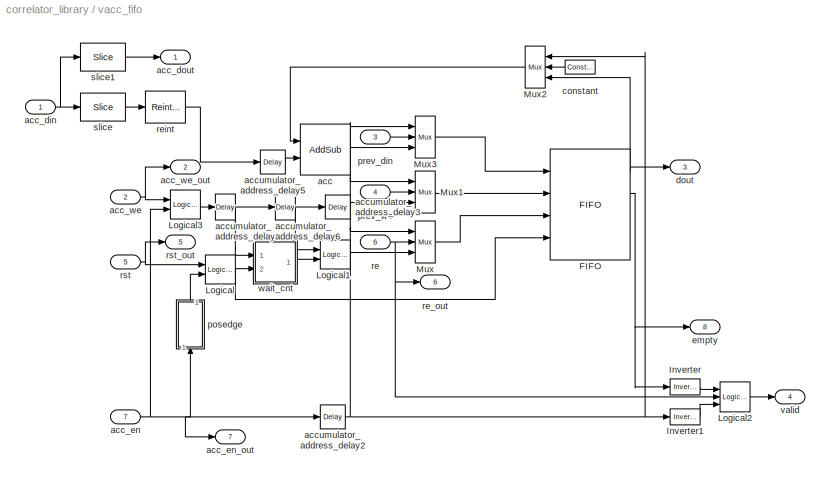
BLOCK [SubSystem] vacc_fifo
  MaskCallbackString = ||||||||
  MaskEnableString = on,on,on,on,on,on,on,on,on
  MaskIconFrame = on
  MaskIconOpaque = on
  MaskIconRotate = none
  MaskIconUnits = autoscale
  MaskInitialization = cursys = gcb;\ndisp(cursys);\n\nfifo_bits = ceil(log2(max(vlen, 16)));\nif fifo_bits >= 10,\n    fifo_str = [num2str(2^(fifo_bits-10)), 'K'];\nelse,\n    fifo_str = num2str(2^fifo_bits);\nend\nfifos = find_system(cursys, 'lookUnderMasks', 'all', 'FollowLinks','on', 'SearchDepth', 1, ...\n    'masktype', 'Xilinx Synchronous FIFO');\nif ~strcmp(get_param(fifos{1}, 'depth'), fifo_str),\n    for i=1:l...<+315ch>
  MaskPromptString = Vector Length|Output Sample Bit Width|Output Binary Point|Add Latency|Arithmetic Type|Input Bit Width|Input Binary Point|Number of Parallel Streams|Stream Number
  MaskSelfModifiable = on
  MaskStyleString = edit,edit,edit,edit,popup(Unsigned|Signed  (2's comp)),edit,edit,edit,edit
  MaskTabNameString = ,,,,,,,,
  MaskToolTipString = on,on,on,on,on,on,on,on,on
  MaskTunableValueString = on,on,on,on,on,on,on,on,on
  MaskType = vacc_fifo
  MaskValueString = 0|0|0|0|Unsigned|0|0|2|1
  MaskVarAliasString = ,,,,,,,,
  MaskVariables = vlen=@1;n_bits=@2;bin_pt=@3;add_latency=@4;arith_type=&5;BitWidthIn=@6;BinPtIn=@7;streams=@8;stream=@9;
  MaskVisibilityString = on,on,on,on,on,on,on,on,on
  MinAlgLoopOccurrences = off
  Ports = [7, 8]
  RTWSystemCode = Auto
  TreatAsAtomicUnit = off
BLOCK [Reference] vacc_fifo/FIFO  REF=xbsIndex_r3/FIFO
  Ports = [4, 4]
  SourceBlock = xbsIndex_r3/FIFO
  SourceType = Xilinx Synchronous FIFO
  almost_empty_offset = 6
  almost_full_offset = 6
  dbl_ovrd = off
  depth = 16
  en = off
  explicit_period = on
  gen_core = off
  init_zero = on
  mem_type = Block RAM
  percent_nbits = 1
  period = 1
  rst = on
  show_param = off
  store_only_valid = on
  use_almost_empty = off
  use_almost_full = off
  xl_area = [0, 0, 0, 0, 0, 0, 0]
  xl_use_area = off
BLOCK [Reference] vacc_fifo/Inverter  REF=xbsIndex_r3/Inverter
  Ports = [1, 1]
  SourceBlock = xbsIndex_r3/Inverter
  SourceType = Xilinx Inverter
  dbl_ovrd = off
  en = off
  explicit_period = off
  latency = 1
  period = 1
  show_param = off
  xl_area = [0, 0, 0, 0, 0, 0, 0]
  xl_use_area = off
BLOCK [Reference] vacc_fifo/Inverter1  REF=xbsIndex_r3/Inverter
  Ports = [1, 1]
  SourceBlock = xbsIndex_r3/Inverter
  SourceType = Xilinx Inverter
  dbl_ovrd = off
  en = off
  explicit_period = off
  latency = 0
  period = 1
  show_param = off
  xl_area = [0, 0, 0, 0, 0, 0, 0]
  xl_use_area = off
BLOCK [Reference] vacc_fifo/Logical  REF=xbsIndex_r3/Logical
  Ports = [2, 1]
  SourceBlock = xbsIndex_r3/Logical
  SourceType = Xilinx Logical Block
  align_bp = on
  arith_type = Unsigned
  bin_pt = 2
  dbl_ovrd = off
  en = off
  explicit_period = off
  inputs = 2
  latency = 0
  logical_function = OR
  n_bits = 8
  period = 1
  precision = Full
  show_param = off
  xl_area = [0, 0, 0, 0, 0, 0, 0]
  xl_use_area = off
BLOCK [Reference] vacc_fifo/Logical1  REF=xbsIndex_r3/Logical
  Ports = [2, 1]
  SourceBlock = xbsIndex_r3/Logical
  SourceType = Xilinx Logical Block
  align_bp = on
  arith_type = Unsigned
  bin_pt = 2
  dbl_ovrd = off
  en = off
  explicit_period = off
  inputs = 2
  latency = 0
  logical_function = AND
  n_bits = 8
  period = 1
  precision = Full
  show_param = off
  xl_area = [0, 0, 0, 0, 0, 0, 0]
  xl_use_area = off
BLOCK [Reference] vacc_fifo/Logical2  REF=xbsIndex_r3/Logical
  Ports = [3, 1]
  SourceBlock = xbsIndex_r3/Logical
  SourceType = Xilinx Logical Block
  align_bp = on
  arith_type = Unsigned
  bin_pt = 2
  dbl_ovrd = off
  en = off
  explicit_period = off
  inputs = 3
  latency = 0
  logical_function = AND
  n_bits = 8
  period = 1
  precision = Full
  show_param = off
  xl_area = [0, 0, 0, 0, 0, 0, 0]
  xl_use_area = off
BLOCK [Reference] vacc_fifo/Logical3  REF=xbsIndex_r3/Logical
  Ports = [2, 1]
  SourceBlock = xbsIndex_r3/Logical
  SourceType = Xilinx Logical Block
  align_bp = on
  arith_type = Unsigned
  bin_pt = 2
  dbl_ovrd = off
  en = off
  explicit_period = off
  inputs = 2
  latency = 0
  logical_function = AND
  n_bits = 8
  period = 1
  precision = Full
  show_param = off
  xl_area = [0, 0, 0, 0, 0, 0, 0]
  xl_use_area = off
BLOCK [Reference] vacc_fifo/Mux  REF=xbsIndex_r3/Mux
  Ports = [3, 1]
  SourceBlock = xbsIndex_r3/Mux
  SourceType = Xilinx Multiplexer Block
  arith_type = Signed  (2's comp)
  bin_pt = 2
  dbl_ovrd = off
  en = off
  explicit_period = off
  gen_core = off
  inputs = 2
  latency = 0
  mux_type = off
  n_bits = 8
  overflow = Wrap
  period = 1
  precision = Full
  quantization = Truncate
  show_param = off
  use_rpm = off
  xl_area = [0, 0, 0, 0, 0, 0, 0]
  xl_use_area = off
BLOCK [Reference] vacc_fifo/Mux1  REF=xbsIndex_r3/Mux
  Ports = [3, 1]
  SourceBlock = xbsIndex_r3/Mux
  SourceType = Xilinx Multiplexer Block
  arith_type = Signed  (2's comp)
  bin_pt = 2
  dbl_ovrd = off
  en = off
  explicit_period = off
  gen_core = off
  inputs = 2
  latency = 0
  mux_type = off
  n_bits = 8
  overflow = Wrap
  period = 1
  precision = Full
  quantization = Truncate
  show_param = off
  use_rpm = off
  xl_area = [0, 0, 0, 0, 0, 0, 0]
  xl_use_area = off
BLOCK [Reference] vacc_fifo/Mux2  REF=xbsIndex_r3/Mux
  Ports = [3, 1]
  SourceBlock = xbsIndex_r3/Mux
  SourceType = Xilinx Multiplexer Block
  arith_type = Signed  (2's comp)
  bin_pt = 2
  dbl_ovrd = off
  en = off
  explicit_period = off
  gen_core = off
  inputs = 2
  latency = 0
  mux_type = off
  n_bits = 8
  overflow = Wrap
  period = 1
  precision = Full
  quantization = Truncate
  show_param = off
  use_rpm = off
  xl_area = [0, 0, 0, 0, 0, 0, 0]
  xl_use_area = off
BLOCK [Reference] vacc_fifo/Mux3  REF=xbsIndex_r3/Mux
  Ports = [3, 1]
  SourceBlock = xbsIndex_r3/Mux
  SourceType = Xilinx Multiplexer Block
  arith_type = Signed  (2's comp)
  bin_pt = 2
  dbl_ovrd = off
  en = off
  explicit_period = off
  gen_core = off
  inputs = 2
  latency = 0
  mux_type = off
  n_bits = 8
  overflow = Wrap
  period = 1
  precision = Full
  quantization = Truncate
  show_param = off
  use_rpm = off
  xl_area = [0, 0, 0, 0, 0, 0, 0]
  xl_use_area = off
BLOCK [Reference] vacc_fifo/acc  REF=xbsIndex_r3/AddSub
  Ports = [2, 1]
  SourceBlock = xbsIndex_r3/AddSub
  SourceType = Xilinx Adder/Subtractor
  arith_type = Unsigned
  bin_pt = bin_pt
  dbl_ovrd = off
  en = off
  explicit_period = on
  gen_core = off
  latency = add_latency
  mode = Addition
  n_bits = n_bits
  overflow = Wrap
  period = 1
  pipeline = off
  precision = User Defined
  quantization = Round  (unbiased: +/- Inf)
  show_param = off
  use_carryin = off
  use_carryout = off
  use_core = on
  use_rpm = on
  xl_area = [0, 0, 0, 0, 0, 0, 0]
  xl_use_area = off
BLOCK [Inport] vacc_fifo/acc_din
  IconDisplay = Port number
  LatchInput = off
  Port = 1
BLOCK [Outport] vacc_fifo/acc_dout
  BusOutputAsStruct = off
  IconDisplay = Port number
BLOCK [Inport] vacc_fifo/acc_en
  IconDisplay = Port number
  LatchInput = off
  Port = 7
BLOCK [Outport] vacc_fifo/acc_en_out
  BusOutputAsStruct = off
  IconDisplay = Port number
  Port = 7
BLOCK [Inport] vacc_fifo/acc_we
  IconDisplay = Port number
  LatchInput = off
  Port = 2
BLOCK [Outport] vacc_fifo/acc_we_out
  BusOutputAsStruct = off
  IconDisplay = Port number
  Port = 2
BLOCK [Reference] vacc_fifo/accumulator_address_delay1  REF=xbsIndex_r3/Delay
  Ports = [1, 1]
  SourceBlock = xbsIndex_r3/Delay
  SourceType = Xilinx Delay Block
  accept_only_valid = off
  dbl_ovrd = off
  en = off
  explicit_period = off
  init_zero = on
  latency = 1
  period = 1
  reg_retiming = off
  show_param = off
  xl_area = [0, 0, 0, 0, 0, 0, 0]
  xl_use_area = off
BLOCK [Reference] vacc_fifo/accumulator_address_delay2  REF=xbsIndex_r3/Delay
  Ports = [1, 1]
  SourceBlock = xbsIndex_r3/Delay
  SourceType = Xilinx Delay Block
  accept_only_valid = off
  dbl_ovrd = off
  en = off
  explicit_period = off
  init_zero = on
  latency = add_latency + 2
  period = 1
  reg_retiming = off
  show_param = off
  xl_area = [0, 0, 0, 0, 0, 0, 0]
  xl_use_area = off
BLOCK [Reference] vacc_fifo/accumulator_address_delay3  REF=xbsIndex_r3/Delay
  Ports = [1, 1]
  SourceBlock = xbsIndex_r3/Delay
  SourceType = Xilinx Delay Block
  accept_only_valid = off
  dbl_ovrd = off
  en = off
  explicit_period = off
  init_zero = on
  latency = add_latency
  period = 1
  reg_retiming = off
  show_param = off
  xl_area = [0, 0, 0, 0, 0, 0, 0]
  xl_use_area = off
BLOCK [Reference] vacc_fifo/accumulator_address_delay5  REF=xbsIndex_r3/Delay
  Ports = [1, 1]
  SourceBlock = xbsIndex_r3/Delay
  SourceType = Xilinx Delay Block
  accept_only_valid = off
  dbl_ovrd = off
  en = off
  explicit_period = off
  init_zero = on
  latency = 2
  period = 1
  reg_retiming = off
  show_param = off
  xl_area = [0, 0, 0, 0, 0, 0, 0]
  xl_use_area = off
BLOCK [Reference] vacc_fifo/accumulator_address_delay6  REF=xbsIndex_r3/Delay
  Ports = [1, 1]
  SourceBlock = xbsIndex_r3/Delay
  SourceType = Xilinx Delay Block
  accept_only_valid = off
  dbl_ovrd = off
  en = off
  explicit_period = off
  init_zero = on
  latency = 1
  period = 1
  reg_retiming = off
  show_param = off
  xl_area = [0, 0, 0, 0, 0, 0, 0]
  xl_use_area = off
BLOCK [Reference] vacc_fifo/constant  REF=xbsIndex_r3/Constant
  Ports = [0, 1]
  SourceBlock = xbsIndex_r3/Constant
  SourceType = Xilinx Constant Block
  arith_type = Unsigned
  bin_pt = bin_pt
  carry = CIN
  const = 0
  dbl_ovrd = off
  equ = P=C
  explicit_period = on
  inp1 = P
  inp2 = PCIN>>17
  iostate = 0
  n_bits = n_bits
  opr = +
  opselect = C
  period = 1
BLOCK [Outport] vacc_fifo/dout
  BusOutputAsStruct = off
  IconDisplay = Port number
  Port = 3
BLOCK [Outport] vacc_fifo/empty
  BusOutputAsStruct = off
  IconDisplay = Port number
  Port = 8
BLOCK [SubSystem] vacc_fifo/posedge
  MinAlgLoopOccurrences = off
  Ports = [1, 1]
  RTWSystemCode = Auto
  TreatAsAtomicUnit = off
BLOCK [Reference] vacc_fifo/posedge/Delay  REF=xbsIndex_r3/Delay
  Ports = [1, 1]
  SourceBlock = xbsIndex_r3/Delay
  SourceType = Xilinx Delay Block
  accept_only_valid = off
  dbl_ovrd = off
  en = off
  explicit_period = off
  init_zero = on
  latency = 1
  period = 1
  reg_retiming = off
  show_param = off
  xl_area = [0, 0, 0, 0, 0, 0, 0]
  xl_use_area = off
BLOCK [Reference] vacc_fifo/posedge/Inverter  REF=xbsIndex_r3/Inverter
  Ports = [1, 1]
  SourceBlock = xbsIndex_r3/Inverter
  SourceType = Xilinx Inverter
  dbl_ovrd = off
  en = off
  explicit_period = off
  latency = 0
  period = 1
  show_param = off
  xl_area = [0, 0, 0, 0, 0, 0, 0]
  xl_use_area = off
BLOCK [Reference] vacc_fifo/posedge/Logical  REF=xbsIndex_r3/Logical
  Ports = [2, 1]
  SourceBlock = xbsIndex_r3/Logical
  SourceType = Xilinx Logical Block
  align_bp = on
  arith_type = Unsigned
  bin_pt = 2
  dbl_ovrd = off
  en = off
  explicit_period = off
  inputs = 2
  latency = 0
  logical_function = AND
  n_bits = 8
  period = 1
  precision = Full
  show_param = off
  xl_area = [0, 0, 0, 0, 0, 0, 0]
  xl_use_area = off
BLOCK [Inport] vacc_fifo/posedge/in
  IconDisplay = Port number
  LatchInput = off
  Port = 1
BLOCK [Outport] vacc_fifo/posedge/out
  BusOutputAsStruct = off
  IconDisplay = Port number
BLOCK [Inport] vacc_fifo/prev_din
  IconDisplay = Port number
  LatchInput = off
  Port = 3
BLOCK [Inport] vacc_fifo/prev_we
  IconDisplay = Port number
  LatchInput = off
  Port = 4
BLOCK [Inport] vacc_fifo/re
  IconDisplay = Port number
  LatchInput = off
  Port = 6
BLOCK [Outport] vacc_fifo/re_out
  BusOutputAsStruct = off
  IconDisplay = Port number
  Port = 6
BLOCK [Reference] vacc_fifo/reint  REF=xbsIndex_r3/Reinterpret
  Ports = [1, 1]
  SourceBlock = xbsIndex_r3/Reinterpret
  SourceType = Xilinx Type Reinterpreting Block
  arith_type = Unsigned
  bin_pt = BinPtIn
  force_arith_type = on
  force_bin_pt = on
  force_valid = on
BLOCK [Inport] vacc_fifo/rst
  IconDisplay = Port number
  LatchInput = off
  Port = 5
BLOCK [Outport] vacc_fifo/rst_out
  BusOutputAsStruct = off
  IconDisplay = Port number
  Port = 5
BLOCK [Reference] vacc_fifo/slice  REF=xbsIndex_r3/Slice
  Ports = [1, 1]
  SourceBlock = xbsIndex_r3/Slice
  SourceType = Xilinx Slice Block
  base0 = LSB of Input
  base1 = MSB of Input
  bit0 = 0
  bit1 = 0
  boolean_output = off
  dbl_ovrd = off
  explicit_period = off
  mode = Lower Bit Location + Width
  nbits = BitWidthIn
  period = 1
BLOCK [Reference] vacc_fifo/slice1  REF=xbsIndex_r3/Slice
  Ports = [1, 1]
  SourceBlock = xbsIndex_r3/Slice
  SourceType = Xilinx Slice Block
  base0 = LSB of Input
  base1 = MSB of Input
  bit0 = min(BitWidthIn, (streams-stream)*BitWidthIn)
  bit1 = 0
  boolean_output = off
  dbl_ovrd = off
  explicit_period = off
  mode = Two Bit Locations
  nbits = n_bits
  period = 1
BLOCK [Outport] vacc_fifo/valid
  BusOutputAsStruct = off
  IconDisplay = Port number
  Port = 4
BLOCK [SubSystem] vacc_fifo/wait_cnt
  MinAlgLoopOccurrences = off
  Ports = [2, 1]
  RTWSystemCode = Auto
  TreatAsAtomicUnit = off
BLOCK [Reference] vacc_fifo/wait_cnt/Constant5  REF=xbsIndex_r3/Constant
  Ports = [0, 1]
  SourceBlock = xbsIndex_r3/Constant
  SourceType = Xilinx Constant Block
  arith_type = Unsigned
  bin_pt = 0
  carry = CIN
  const = vlen
  dbl_ovrd = off
  equ = P=C
  explicit_period = on
  inp1 = P
  inp2 = PCIN>>17
  iostate = 0
  n_bits = ceil(log2(vlen + 1))
  opr = +
  opselect = C
  period = 1
BLOCK [Reference] vacc_fifo/wait_cnt/Counter3  REF=xbsIndex_r3/Counter
  Ports = [2, 1]
  SourceBlock = xbsIndex_r3/Counter
  SourceType = Xilinx Counter Block
  arith_type = Unsigned
  bin_pt = 0
  cnt_by_val = 1
  cnt_to = 1023
  cnt_type = Free Running
  dbl_ovrd = off
  en = on
  explicit_period = on
  gen_core = off
  load_pin = off
  n_bits = ceil(log2(vlen + 1))
  operation = Up
  period = 1
  rst = on
  show_param = off
  start_count = 0
  use_rpm = on
  xl_area = [0, 0, 0, 0, 0, 0, 0]
  xl_use_area = off
BLOCK [Reference] vacc_fifo/wait_cnt/Inverter1  REF=xbsIndex_r3/Inverter
  Ports = [1, 1]
  SourceBlock = xbsIndex_r3/Inverter
  SourceType = Xilinx Inverter
  dbl_ovrd = off
  en = off
  explicit_period = off
  latency = 0
  period = 1
  show_param = off
  xl_area = [0, 0, 0, 0, 0, 0, 0]
  xl_use_area = off
BLOCK [Reference] vacc_fifo/wait_cnt/Logical5  REF=xbsIndex_r3/Logical
  Ports = [2, 1]
  SourceBlock = xbsIndex_r3/Logical
  SourceType = Xilinx Logical Block
  align_bp = on
  arith_type = Unsigned
  bin_pt = 2
  dbl_ovrd = off
  en = off
  explicit_period = off
  inputs = 2
  latency = 0
  logical_function = AND
  n_bits = 8
  period = 1
  precision = Full
  show_param = off
  xl_area = [0, 0, 0, 0, 0, 0, 0]
  xl_use_area = off
BLOCK [Reference] vacc_fifo/wait_cnt/Relational5  REF=xbsIndex_r3/Relational
  Ports = [2, 1]
  SourceBlock = xbsIndex_r3/Relational
  SourceType = Xilinx Relational Block
  dbl_ovrd = off
  en = off
  explicit_period = off
  latency = 0
  mode = a<b
  period = 1
  show_param = off
  xl_area = [0, 0, 0, 0, 0, 0, 0]
  xl_use_area = off
BLOCK [Inport] vacc_fifo/wait_cnt/en
  IconDisplay = Port number
  LatchInput = off
  Port = 1
BLOCK [Outport] vacc_fifo/wait_cnt/go
  BusOutputAsStruct = off
  IconDisplay = Port number
BLOCK [Inport] vacc_fifo/wait_cnt/rst
  IconDisplay = Port number
  LatchInput = off
  Port = 2
BLOCK [SubSystem] x_engine
  MaskCallbackString = ||||||||
  MaskEnableString = on,on,on,on,on,on,on,on,on
  MaskIconFrame = on
  MaskIconOpaque = on
  MaskIconRotate = none
  MaskIconUnits = autoscale
  MaskInitialization = x_engine_mask;
  MaskPromptString = Number of Antennas|Bit Width of Samples In|Bit Width of Samples Out|Accumulation Length|Add Latency|Mult Latency|BRAM Latency|Use Dedicated Multipliers|Delay in BRAM
  MaskSelfModifiable = on
  MaskStyleString = edit,edit,edit,edit,edit,edit,edit,checkbox,checkbox
  MaskTabNameString = ,,,,,,,,
  MaskToolTipString = on,on,on,on,on,on,on,on,on
  MaskTunableValueString = on,on,on,on,on,on,on,on,on
  MaskValueString = 5|8|18|32|1|1|1|on|off
  MaskVarAliasString = ,,,,,,,,
  MaskVariables = AntNum=@1;BitWidthIn=@2;BitWidthOut=@3;AccLen=@4;add_latency=@5;mult_latency=@6;bram_latency=@7;use_mult_core=@8;use_bram=@9;
  MaskVisibilityString = on,on,on,on,on,on,on,on,on
  MinAlgLoopOccurrences = off
  Ports = [2, 3]
  RTWSystemCode = Auto
  TreatAsAtomicUnit = off
BLOCK [Reference] x_engine/Constant  REF=xbsIndex_r3/Constant
  Ports = [0, 1]
  SourceBlock = xbsIndex_r3/Constant
  SourceType = Xilinx Constant Block
  arith_type = Unsigned
  bin_pt = 0
  carry = CIN
  const = 0
  dbl_ovrd = off
  equ = P=C
  explicit_period = on
  inp1 = P
  inp2 = PCIN>>17
  iostate = 0
  n_bits = 8 * BitWidthOut
  opr = +
  opselect = C
  period = 1
BLOCK [Reference] x_engine/Constant1  REF=xbsIndex_r3/Constant
  Ports = [0, 1]
  SourceBlock = xbsIndex_r3/Constant
  SourceType = Xilinx Constant Block
  arith_type = Boolean
  bin_pt = 0
  carry = CIN
  const = 0
  dbl_ovrd = off
  equ = P=C
  explicit_period = on
  inp1 = P
  inp2 = PCIN>>17
  iostate = 0
  n_bits = 1
  opr = +
  opselect = C
  period = 1
BLOCK [Terminator] x_engine/Term1
BLOCK [Terminator] x_engine/Term2
BLOCK [Terminator] x_engine/Term3
BLOCK [Outport] x_engine/acc
  BusOutputAsStruct = off
  IconDisplay = Port number
BLOCK [Inport] x_engine/ant
  IconDisplay = Port number
  LatchInput = off
  Port = 1
BLOCK [SubSystem] x_engine/auto_tap
  MaskCallbackString = |
  MaskEnableString = on,on
  MaskIconFrame = on
  MaskIconOpaque = on
  MaskIconRotate = none
  MaskIconUnits = autoscale
  MaskInitialization = cursys = gcb;\ndisp(cursys);\nmultipliers = find_system(cursys, 'lookUnderMasks', 'all', 'FollowLinks','on', 'masktype', 'Xilinx Multiplier');\nif ~strcmp(get_param(multipliers{1}, 'use_embedded'), use_mult_core),\n    for i=1:length(multipliers),\n        set_param(multipliers{i}, 'use_embedded', use_mult_core);\n    end\nend\n\n%if use_mult_core, mc = 'on';\n%else, mc = 'off';\n%end\n%for i=1:le...<+156ch>
  MaskPromptString = Use Dedicated Multipliers|Delay in BRAM
  MaskSelfModifiable = on
  MaskStyleString = checkbox,checkbox
  MaskTabNameString = ,
  MaskToolTipString = on,on
  MaskTunableValueString = on,on
  MaskType = x_engine_tap
  MaskValueString = on|off
  MaskVarAliasString = ,
  MaskVariables = use_mult_core=&1;use_bram=@2;
  MaskVisibilityString = on,on
  MinAlgLoopOccurrences = off
  Ports = [6, 7]
  RTWSystemCode = Auto
  TreatAsAtomicUnit = off
BLOCK [Inport] x_engine/auto_tap/a_del
  IconDisplay = Port number
  LatchInput = off
  Port = 1
BLOCK [Outport] x_engine/auto_tap/a_del_out
  BusOutputAsStruct = off
  IconDisplay = Port number
BLOCK [Outport] x_engine/auto_tap/a_end_out
  BusOutputAsStruct = off
  IconDisplay = Port number
  Port = 3
BLOCK [Inport] x_engine/auto_tap/a_loop
  IconDisplay = Port number
  LatchInput = off
  Port = 3
BLOCK [Reference] x_engine/auto_tap/a_loop_delay  REF=delay_lib/delay_bram  (lib defined in mdl_032c7a696b9b)
  DelayLen = (AccLen - 1)*ceil(AntNum/2) + ceil(AntNum/2)-floor(AntNum/2)
  Ports = [1, 1]
  ShowPortLabels = on
  SourceBlock = delay_lib/delay_bram
  SourceType = delay_bram
  bram_latency = bram_latency
BLOCK [Inport] x_engine/auto_tap/a_ndel
  IconDisplay = Port number
  LatchInput = off
  Port = 2
BLOCK [Outport] x_engine/auto_tap/a_ndel_out
  BusOutputAsStruct = off
  IconDisplay = Port number
  Port = 2
BLOCK [Inport] x_engine/auto_tap/acc_in
  IconDisplay = Port number
  LatchInput = off
  Port = 4
BLOCK [Outport] x_engine/auto_tap/acc_out
  BusOutputAsStruct = off
  IconDisplay = Port number
  Port = 4
BLOCK [SubSystem] x_engine/auto_tap/dual_pol_cmac
  MinAlgLoopOccurrences = off
  Ports = [5, 2]
  RTWSystemCode = Auto
  TreatAsAtomicUnit = off
BLOCK [Reference] x_engine/auto_tap/dual_pol_cmac/Concat  REF=xbsIndex_r3/Concat
  Ports = [4, 1]
  SourceBlock = xbsIndex_r3/Concat
  SourceType = Xilinx Bus Concatenator
  dbl_ovrd = off
  explicit_period = off
  num_inputs = 4
  period = 1
BLOCK [Reference] x_engine/auto_tap/dual_pol_cmac/Constant1  REF=xbsIndex_r3/Constant
  Ports = [0, 1]
  SourceBlock = xbsIndex_r3/Constant
  SourceType = Xilinx Constant Block
  arith_type = Unsigned
  bin_pt = 0
  carry = CIN
  const = 0
  dbl_ovrd = off
  equ = P=C
  explicit_period = off
  inp1 = P
  inp2 = PCIN>>17
  iostate = 0
  n_bits = 1
  opr = +
  opselect = C
  period = 1
BLOCK [Reference] x_engine/auto_tap/dual_pol_cmac/Constant2  REF=xbsIndex_r3/Constant
  Ports = [0, 1]
  SourceBlock = xbsIndex_r3/Constant
  SourceType = Xilinx Constant Block
  arith_type = Unsigned
  bin_pt = 0
  carry = CIN
  const = 0
  dbl_ovrd = off
  equ = P=C
  explicit_period = off
  inp1 = P
  inp2 = PCIN>>17
  iostate = 0
  n_bits = 1
  opr = +
  opselect = C
  period = 1
BLOCK [Reference] x_engine/auto_tap/dual_pol_cmac/Constant4  REF=xbsIndex_r3/Constant
  Ports = [0, 1]
  SourceBlock = xbsIndex_r3/Constant
  SourceType = Xilinx Constant Block
  arith_type = Unsigned
  bin_pt = 0
  carry = CIN
  const = 0
  dbl_ovrd = off
  equ = P=C
  explicit_period = off
  inp1 = P
  inp2 = PCIN>>17
  iostate = 0
  n_bits = 1
  opr = +
  opselect = C
  period = 1
BLOCK [Reference] x_engine/auto_tap/dual_pol_cmac/Slice  REF=xbsIndex_r3/Slice
  Ports = [1, 1]
  SourceBlock = xbsIndex_r3/Slice
  SourceType = Xilinx Slice Block
  base0 = LSB of Input
  base1 = MSB of Input
  bit0 = 0
  bit1 = 0
  boolean_output = off
  dbl_ovrd = off
  explicit_period = off
  mode = Upper Bit Location + Width
  nbits = 2*BitWidthIn
  period = 1
BLOCK [Reference] x_engine/auto_tap/dual_pol_cmac/Slice1  REF=xbsIndex_r3/Slice
  Ports = [1, 1]
  SourceBlock = xbsIndex_r3/Slice
  SourceType = Xilinx Slice Block
  base0 = LSB of Input
  base1 = MSB of Input
  bit0 = 0
  bit1 = 0
  boolean_output = off
  dbl_ovrd = off
  explicit_period = off
  mode = Upper Bit Location + Width
  nbits = 2*BitWidthIn
  period = 1
BLOCK [Reference] x_engine/auto_tap/dual_pol_cmac/Slice10  REF=xbsIndex_r3/Slice
  Ports = [1, 1]
  SourceBlock = xbsIndex_r3/Slice
  SourceType = Xilinx Slice Block
  base0 = LSB of Input
  base1 = MSB of Input
  bit0 = 0
  bit1 = -2*BitWidthIn
  boolean_output = off
  dbl_ovrd = off
  explicit_period = off
  mode = Upper Bit Location + Width
  nbits = 2*BitWidthIn
  period = 1
BLOCK [Reference] x_engine/auto_tap/dual_pol_cmac/Slice11  REF=xbsIndex_r3/Slice
  Ports = [1, 1]
  SourceBlock = xbsIndex_r3/Slice
  SourceType = Xilinx Slice Block
  base0 = LSB of Input
  base1 = MSB of Input
  bit0 = 0
  bit1 = -6*BitWidthOut
  boolean_output = off
  dbl_ovrd = off
  explicit_period = off
  mode = Upper Bit Location + Width
  nbits = 2*BitWidthOut
  period = 1
BLOCK [Reference] x_engine/auto_tap/dual_pol_cmac/Slice2  REF=xbsIndex_r3/Slice
  Ports = [1, 1]
  SourceBlock = xbsIndex_r3/Slice
  SourceType = Xilinx Slice Block
  base0 = LSB of Input
  base1 = MSB of Input
  bit0 = 0
  bit1 = 0
  boolean_output = off
  dbl_ovrd = off
  explicit_period = off
  mode = Upper Bit Location + Width
  nbits = 2*BitWidthOut
  period = 1
BLOCK [Reference] x_engine/auto_tap/dual_pol_cmac/Slice3  REF=xbsIndex_r3/Slice
  Ports = [1, 1]
  SourceBlock = xbsIndex_r3/Slice
  SourceType = Xilinx Slice Block
  base0 = LSB of Input
  base1 = MSB of Input
  bit0 = 0
  bit1 = -2*BitWidthIn
  boolean_output = off
  dbl_ovrd = off
  explicit_period = off
  mode = Upper Bit Location + Width
  nbits = 2*BitWidthIn
  period = 1
BLOCK [Reference] x_engine/auto_tap/dual_pol_cmac/Slice4  REF=xbsIndex_r3/Slice
  Ports = [1, 1]
  SourceBlock = xbsIndex_r3/Slice
  SourceType = Xilinx Slice Block
  base0 = LSB of Input
  base1 = MSB of Input
  bit0 = 0
  bit1 = -2*BitWidthIn
  boolean_output = off
  dbl_ovrd = off
  explicit_period = off
  mode = Upper Bit Location + Width
  nbits = 2*BitWidthIn
  period = 1
BLOCK [Reference] x_engine/auto_tap/dual_pol_cmac/Slice5  REF=xbsIndex_r3/Slice
  Ports = [1, 1]
  SourceBlock = xbsIndex_r3/Slice
  SourceType = Xilinx Slice Block
  base0 = LSB of Input
  base1 = MSB of Input
  bit0 = 0
  bit1 = -2*BitWidthOut
  boolean_output = off
  dbl_ovrd = off
  explicit_period = off
  mode = Upper Bit Location + Width
  nbits = 2*BitWidthOut
  period = 1
BLOCK [Reference] x_engine/auto_tap/dual_pol_cmac/Slice6  REF=xbsIndex_r3/Slice
  Ports = [1, 1]
  SourceBlock = xbsIndex_r3/Slice
  SourceType = Xilinx Slice Block
  base0 = LSB of Input
  base1 = MSB of Input
  bit0 = 0
  bit1 = 0
  boolean_output = off
  dbl_ovrd = off
  explicit_period = off
  mode = Upper Bit Location + Width
  nbits = 2*BitWidthIn
  period = 1
BLOCK [Reference] x_engine/auto_tap/dual_pol_cmac/Slice7  REF=xbsIndex_r3/Slice
  Ports = [1, 1]
  SourceBlock = xbsIndex_r3/Slice
  SourceType = Xilinx Slice Block
  base0 = LSB of Input
  base1 = MSB of Input
  bit0 = 0
  bit1 = -2*BitWidthIn
  boolean_output = off
  dbl_ovrd = off
  explicit_period = off
  mode = Upper Bit Location + Width
  nbits = 2*BitWidthIn
  period = 1
BLOCK [Reference] x_engine/auto_tap/dual_pol_cmac/Slice8  REF=xbsIndex_r3/Slice
  Ports = [1, 1]
  SourceBlock = xbsIndex_r3/Slice
  SourceType = Xilinx Slice Block
  base0 = LSB of Input
  base1 = MSB of Input
  bit0 = 0
  bit1 = -4*BitWidthOut
  boolean_output = off
  dbl_ovrd = off
  explicit_period = off
  mode = Upper Bit Location + Width
  nbits = 2*BitWidthOut
  period = 1
BLOCK [Reference] x_engine/auto_tap/dual_pol_cmac/Slice9  REF=xbsIndex_r3/Slice
  Ports = [1, 1]
  SourceBlock = xbsIndex_r3/Slice
  SourceType = Xilinx Slice Block
  base0 = LSB of Input
  base1 = MSB of Input
  bit0 = 0
  bit1 = 0
  boolean_output = off
  dbl_ovrd = off
  explicit_period = off
  mode = Upper Bit Location + Width
  nbits = 2*BitWidthIn
  period = 1
BLOCK [Terminator] x_engine/auto_tap/dual_pol_cmac/Terminator
BLOCK [Terminator] x_engine/auto_tap/dual_pol_cmac/Terminator1
BLOCK [Terminator] x_engine/auto_tap/dual_pol_cmac/Terminator2
BLOCK [Inport] x_engine/auto_tap/dual_pol_cmac/a1
  IconDisplay = Port number
  LatchInput = off
  Port = 1
BLOCK [Inport] x_engine/auto_tap/dual_pol_cmac/a2
  IconDisplay = Port number
  LatchInput = off
  Port = 2
BLOCK [Inport] x_engine/auto_tap/dual_pol_cmac/acc_in
  IconDisplay = Port number
  LatchInput = off
  Port = 3
BLOCK [Outport] x_engine/auto_tap/dual_pol_cmac/acc_out
  BusOutputAsStruct = off
  IconDisplay = Port number
BLOCK [SubSystem] x_engine/auto_tap/dual_pol_cmac/cmac
  MinAlgLoopOccurrences = off
  Ports = [5, 2]
  RTWSystemCode = Auto
  TreatAsAtomicUnit = off
BLOCK [Reference] x_engine/auto_tap/dual_pol_cmac/cmac/Constant1  REF=xbsIndex_r3/Constant
  Ports = [0, 1]
  SourceBlock = xbsIndex_r3/Constant
  SourceType = Xilinx Constant Block
  arith_type = Unsigned
  bin_pt = 0
  carry = CIN
  const = 0
  dbl_ovrd = off
  equ = P=C
  explicit_period = off
  inp1 = P
  inp2 = PCIN>>17
  iostate = 0
  n_bits = BitGrowth
  opr = +
  opselect = C
  period = 1
BLOCK [Reference] x_engine/auto_tap/dual_pol_cmac/cmac/Constant2  REF=xbsIndex_r3/Constant
  Ports = [0, 1]
  SourceBlock = xbsIndex_r3/Constant
  SourceType = Xilinx Constant Block
  arith_type = Unsigned
  bin_pt = 0
  carry = CIN
  const = 0
  dbl_ovrd = off
  equ = P=C
  explicit_period = off
  inp1 = P
  inp2 = PCIN>>17
  iostate = 0
  n_bits = 1
  opr = +
  opselect = C
  period = 1
BLOCK [Reference] x_engine/auto_tap/dual_pol_cmac/cmac/Counter  REF=xbsIndex_r3/Counter
  Ports = [1, 1]
  SourceBlock = xbsIndex_r3/Counter
  SourceType = Xilinx Counter Block
  arith_type = Unsigned
  bin_pt = 0
  cnt_by_val = 1
  cnt_to = AccLen - 1
  cnt_type = Count Limited
  dbl_ovrd = off
  en = off
  explicit_period = off
  gen_core = off
  load_pin = off
  n_bits = BitGrowth
  operation = Up
  period = 1
  rst = on
  show_param = off
  start_count = 0
  use_rpm = on
  xl_area = [0, 0, 0, 0, 0, 0, 0]
  xl_use_area = off
BLOCK [Reference] x_engine/auto_tap/dual_pol_cmac/cmac/Delay  REF=xbsIndex_r3/Delay
  Ports = [1, 1]
  SourceBlock = xbsIndex_r3/Delay
  SourceType = Xilinx Delay Block
  accept_only_valid = off
  dbl_ovrd = off
  en = off
  explicit_period = off
  init_zero = on
  latency = add_latency + mult_latency - 1
  period = 1
  reg_retiming = off
  show_param = off
  xl_area = [0, 0, 0, 0, 0, 0, 0]
  xl_use_area = off
BLOCK [Reference] x_engine/auto_tap/dual_pol_cmac/cmac/Relational  REF=xbsIndex_r3/Relational
  Ports = [2, 1]
  SourceBlock = xbsIndex_r3/Relational
  SourceType = Xilinx Relational Block
  dbl_ovrd = off
  en = off
  explicit_period = off
  latency = 1
  mode = a=b
  period = 1
  show_param = off
  xl_area = [0, 0, 0, 0, 0, 0, 0]
  xl_use_area = off
BLOCK [Terminator] x_engine/auto_tap/dual_pol_cmac/cmac/Terminator
BLOCK [Inport] x_engine/auto_tap/dual_pol_cmac/cmac/a+bi
  IconDisplay = Port number
  LatchInput = off
  Port = 1
BLOCK [SubSystem] x_engine/auto_tap/dual_pol_cmac/cmac/acc
  MinAlgLoopOccurrences = off
  Ports = [4, 2]
  RTWSystemCode = Auto
  TreatAsAtomicUnit = off
BLOCK [Reference] x_engine/auto_tap/dual_pol_cmac/cmac/acc/Accumulator  REF=xbsIndex_r3/Accumulator
  Ports = [2, 1]
  SourceBlock = xbsIndex_r3/Accumulator
  SourceType = Xilinx Accumulator
  dbl_ovrd = off
  en = off
  explicit_period = on
  gen_core = off
  hasbypass = on
  n_bits = 2*BitWidthIn+1 + BitGrowth
  operation = Add
  overflow = Wrap
  period = 1
  rst = on
  scale = 1
  show_param = off
  use_rpm = on
  xl_area = [0, 0, 0, 0, 0, 0, 0]
  xl_use_area = off
BLOCK [Reference] x_engine/auto_tap/dual_pol_cmac/cmac/acc/Constant  REF=xbsIndex_r3/Constant
  Ports = [0, 1]
  SourceBlock = xbsIndex_r3/Constant
  SourceType = Xilinx Constant Block
  arith_type = Boolean
  bin_pt = 0
  carry = CIN
  const = 1
  dbl_ovrd = off
  equ = P=C
  explicit_period = on
  inp1 = P
  inp2 = PCIN>>17
  iostate = 0
  n_bits = 1
  opr = +
  opselect = C
  period = 1
BLOCK [Reference] x_engine/auto_tap/dual_pol_cmac/cmac/acc/Convert  REF=xbsIndex_r3/Convert
  Ports = [1, 1]
  SourceBlock = xbsIndex_r3/Convert
  SourceType = Xilinx Converter Block
  arith_type = Signed  (2's comp)
  bin_pt = BitWidthOut - BitGrowth - (2*BitWidthIn+1 - 2*(BitWidthIn-1))
  dbl_ovrd = off
  explicit_period = on
  inserted_by_tool = off
  latency = 0
  n_bits = BitWidthOut
  overflow = Saturate
  period = 1
  pipeline = off
  quantization = Round  (unbiased: +/- Inf)
  show_param = on
  xl_area = [0, 0, 0, 0, 0, 0, 0]
  xl_use_area = off
BLOCK [Reference] x_engine/auto_tap/dual_pol_cmac/cmac/acc/Convert1  REF=xbsIndex_r3/Convert
  Ports = [1, 1]
  SourceBlock = xbsIndex_r3/Convert
  SourceType = Xilinx Converter Block
  arith_type = Signed  (2's comp)
  bin_pt = 2*(BitWidthIn-1)
  dbl_ovrd = off
  explicit_period = off
  inserted_by_tool = off
  latency = 0
  n_bits = 2*BitWidthIn+1 + BitGrowth
  overflow = Wrap
  period = 1
  pipeline = off
  quantization = Truncate
  show_param = on
  xl_area = [0, 0, 0, 0, 0, 0, 0]
  xl_use_area = off
BLOCK [Reference] x_engine/auto_tap/dual_pol_cmac/cmac/acc/Convert2  REF=xbsIndex_r3/Convert
  Ports = [1, 1]
  SourceBlock = xbsIndex_r3/Convert
  SourceType = Xilinx Converter Block
  arith_type = Boolean
  bin_pt = 6
  dbl_ovrd = off
  explicit_period = off
  inserted_by_tool = off
  latency = 0
  n_bits = 8
  overflow = Wrap
  period = 1
  pipeline = off
  quantization = Truncate
  show_param = off
  xl_area = [0, 0, 0, 0, 0, 0, 0]
  xl_use_area = off
BLOCK [Reference] x_engine/auto_tap/dual_pol_cmac/cmac/acc/Delay  REF=xbsIndex_r3/Delay
  Ports = [1, 1]
  SourceBlock = xbsIndex_r3/Delay
  SourceType = Xilinx Delay Block
  accept_only_valid = off
  dbl_ovrd = off
  en = off
  explicit_period = off
  init_zero = on
  latency = 0
  period = 1
  reg_retiming = off
  show_param = off
  xl_area = [0, 0, 0, 0, 0, 0, 0]
  xl_use_area = off
BLOCK [Reference] x_engine/auto_tap/dual_pol_cmac/cmac/acc/Delay1  REF=xbsIndex_r3/Delay
  Ports = [1, 1]
  SourceBlock = xbsIndex_r3/Delay
  SourceType = Xilinx Delay Block
  accept_only_valid = off
  dbl_ovrd = off
  en = off
  explicit_period = off
  init_zero = on
  latency = 0
  period = 1
  reg_retiming = off
  show_param = off
  xl_area = [0, 0, 0, 0, 0, 0, 0]
  xl_use_area = off
BLOCK [Reference] x_engine/auto_tap/dual_pol_cmac/cmac/acc/Mux2  REF=xbsIndex_r3/Mux
  Ports = [3, 1]
  SourceBlock = xbsIndex_r3/Mux
  SourceType = Xilinx Multiplexer Block
  arith_type = Signed  (2's comp)
  bin_pt = 0
  dbl_ovrd = off
  en = off
  explicit_period = on
  gen_core = off
  inputs = 2
  latency = 2
  mux_type = off
  n_bits = 0
  overflow = Wrap
  period = 1
  precision = Full
  quantization = Round  (unbiased: +/- Inf)
  show_param = off
  use_rpm = off
  xl_area = [0, 0, 0, 0, 0, 0, 0]
  xl_use_area = off
BLOCK [Reference] x_engine/auto_tap/dual_pol_cmac/cmac/acc/Mux3  REF=xbsIndex_r3/Mux
  Ports = [3, 1]
  SourceBlock = xbsIndex_r3/Mux
  SourceType = Xilinx Multiplexer Block
  arith_type = Signed  (2's comp)
  bin_pt = 0
  dbl_ovrd = off
  en = off
  explicit_period = on
  gen_core = off
  inputs = 2
  latency = 2
  mux_type = off
  n_bits = 0
  overflow = Wrap
  period = 1
  precision = Full
  quantization = Truncate
  show_param = off
  use_rpm = off
  xl_area = [0, 0, 0, 0, 0, 0, 0]
  xl_use_area = off
BLOCK [Inport] x_engine/auto_tap/dual_pol_cmac/cmac/acc/acc_in
  IconDisplay = Port number
  LatchInput = off
  Port = 3
BLOCK [Outport] x_engine/auto_tap/dual_pol_cmac/cmac/acc/acc_out
  BusOutputAsStruct = off
  IconDisplay = Port number
BLOCK [Inport] x_engine/auto_tap/dual_pol_cmac/cmac/acc/din
  IconDisplay = Port number
  LatchInput = off
  Port = 2
BLOCK [Inport] x_engine/auto_tap/dual_pol_cmac/cmac/acc/rst
  IconDisplay = Port number
  LatchInput = off
  Port = 1
BLOCK [Inport] x_engine/auto_tap/dual_pol_cmac/cmac/acc/valid_in
  IconDisplay = Port number
  LatchInput = off
  Port = 4
BLOCK [Outport] x_engine/auto_tap/dual_pol_cmac/cmac/acc/valid_out
  BusOutputAsStruct = off
  IconDisplay = Port number
  Port = 2
BLOCK [SubSystem] x_engine/auto_tap/dual_pol_cmac/cmac/acc1
  MinAlgLoopOccurrences = off
  Ports = [4, 2]
  RTWSystemCode = Auto
  TreatAsAtomicUnit = off
BLOCK [Reference] x_engine/auto_tap/dual_pol_cmac/cmac/acc1/Accumulator  REF=xbsIndex_r3/Accumulator
  Ports = [2, 1]
  SourceBlock = xbsIndex_r3/Accumulator
  SourceType = Xilinx Accumulator
  dbl_ovrd = off
  en = off
  explicit_period = on
  gen_core = off
  hasbypass = on
  n_bits = 2*BitWidthIn+1 + BitGrowth
  operation = Add
  overflow = Wrap
  period = 1
  rst = on
  scale = 1
  show_param = off
  use_rpm = on
  xl_area = [0, 0, 0, 0, 0, 0, 0]
  xl_use_area = off
BLOCK [Reference] x_engine/auto_tap/dual_pol_cmac/cmac/acc1/Constant  REF=xbsIndex_r3/Constant
  Ports = [0, 1]
  SourceBlock = xbsIndex_r3/Constant
  SourceType = Xilinx Constant Block
  arith_type = Boolean
  bin_pt = 0
  carry = CIN
  const = 1
  dbl_ovrd = off
  equ = P=C
  explicit_period = on
  inp1 = P
  inp2 = PCIN>>17
  iostate = 0
  n_bits = 1
  opr = +
  opselect = C
  period = 1
BLOCK [Reference] x_engine/auto_tap/dual_pol_cmac/cmac/acc1/Convert  REF=xbsIndex_r3/Convert
  Ports = [1, 1]
  SourceBlock = xbsIndex_r3/Convert
  SourceType = Xilinx Converter Block
  arith_type = Signed  (2's comp)
  bin_pt = BitWidthOut - BitGrowth - (2*BitWidthIn+1 - 2*(BitWidthIn-1))
  dbl_ovrd = off
  explicit_period = on
  inserted_by_tool = off
  latency = 0
  n_bits = BitWidthOut
  overflow = Saturate
  period = 1
  pipeline = off
  quantization = Round  (unbiased: +/- Inf)
  show_param = on
  xl_area = [0, 0, 0, 0, 0, 0, 0]
  xl_use_area = off
BLOCK [Reference] x_engine/auto_tap/dual_pol_cmac/cmac/acc1/Convert1  REF=xbsIndex_r3/Convert
  Ports = [1, 1]
  SourceBlock = xbsIndex_r3/Convert
  SourceType = Xilinx Converter Block
  arith_type = Signed  (2's comp)
  bin_pt = 2*(BitWidthIn-1)
  dbl_ovrd = off
  explicit_period = off
  inserted_by_tool = off
  latency = 0
  n_bits = 2*BitWidthIn+1 + BitGrowth
  overflow = Wrap
  period = 1
  pipeline = off
  quantization = Truncate
  show_param = on
  xl_area = [0, 0, 0, 0, 0, 0, 0]
  xl_use_area = off
BLOCK [Reference] x_engine/auto_tap/dual_pol_cmac/cmac/acc1/Convert2  REF=xbsIndex_r3/Convert
  Ports = [1, 1]
  SourceBlock = xbsIndex_r3/Convert
  SourceType = Xilinx Converter Block
  arith_type = Boolean
  bin_pt = 6
  dbl_ovrd = off
  explicit_period = off
  inserted_by_tool = off
  latency = 0
  n_bits = 8
  overflow = Wrap
  period = 1
  pipeline = off
  quantization = Truncate
  show_param = off
  xl_area = [0, 0, 0, 0, 0, 0, 0]
  xl_use_area = off
BLOCK [Reference] x_engine/auto_tap/dual_pol_cmac/cmac/acc1/Delay  REF=xbsIndex_r3/Delay
  Ports = [1, 1]
  SourceBlock = xbsIndex_r3/Delay
  SourceType = Xilinx Delay Block
  accept_only_valid = off
  dbl_ovrd = off
  en = off
  explicit_period = off
  init_zero = on
  latency = 0
  period = 1
  reg_retiming = off
  show_param = off
  xl_area = [0, 0, 0, 0, 0, 0, 0]
  xl_use_area = off
BLOCK [Reference] x_engine/auto_tap/dual_pol_cmac/cmac/acc1/Delay1  REF=xbsIndex_r3/Delay
  Ports = [1, 1]
  SourceBlock = xbsIndex_r3/Delay
  SourceType = Xilinx Delay Block
  accept_only_valid = off
  dbl_ovrd = off
  en = off
  explicit_period = off
  init_zero = on
  latency = 0
  period = 1
  reg_retiming = off
  show_param = off
  xl_area = [0, 0, 0, 0, 0, 0, 0]
  xl_use_area = off
BLOCK [Reference] x_engine/auto_tap/dual_pol_cmac/cmac/acc1/Mux2  REF=xbsIndex_r3/Mux
  Ports = [3, 1]
  SourceBlock = xbsIndex_r3/Mux
  SourceType = Xilinx Multiplexer Block
  arith_type = Signed  (2's comp)
  bin_pt = 0
  dbl_ovrd = off
  en = off
  explicit_period = on
  gen_core = off
  inputs = 2
  latency = 2
  mux_type = off
  n_bits = 0
  overflow = Wrap
  period = 1
  precision = Full
  quantization = Round  (unbiased: +/- Inf)
  show_param = off
  use_rpm = off
  xl_area = [0, 0, 0, 0, 0, 0, 0]
  xl_use_area = off
BLOCK [Reference] x_engine/auto_tap/dual_pol_cmac/cmac/acc1/Mux3  REF=xbsIndex_r3/Mux
  Ports = [3, 1]
  SourceBlock = xbsIndex_r3/Mux
  SourceType = Xilinx Multiplexer Block
  arith_type = Signed  (2's comp)
  bin_pt = 0
  dbl_ovrd = off
  en = off
  explicit_period = on
  gen_core = off
  inputs = 2
  latency = 2
  mux_type = off
  n_bits = 0
  overflow = Wrap
  period = 1
  precision = Full
  quantization = Truncate
  show_param = off
  use_rpm = off
  xl_area = [0, 0, 0, 0, 0, 0, 0]
  xl_use_area = off
BLOCK [Inport] x_engine/auto_tap/dual_pol_cmac/cmac/acc1/acc_in
  IconDisplay = Port number
  LatchInput = off
  Port = 3
BLOCK [Outport] x_engine/auto_tap/dual_pol_cmac/cmac/acc1/acc_out
  BusOutputAsStruct = off
  IconDisplay = Port number
BLOCK [Inport] x_engine/auto_tap/dual_pol_cmac/cmac/acc1/din
  IconDisplay = Port number
  LatchInput = off
  Port = 2
BLOCK [Inport] x_engine/auto_tap/dual_pol_cmac/cmac/acc1/rst
  IconDisplay = Port number
  LatchInput = off
  Port = 1
BLOCK [Inport] x_engine/auto_tap/dual_pol_cmac/cmac/acc1/valid_in
  IconDisplay = Port number
  LatchInput = off
  Port = 4
BLOCK [Outport] x_engine/auto_tap/dual_pol_cmac/cmac/acc1/valid_out
  BusOutputAsStruct = off
  IconDisplay = Port number
  Port = 2
BLOCK [Inport] x_engine/auto_tap/dual_pol_cmac/cmac/acc_in
  IconDisplay = Port number
  LatchInput = off
  Port = 3
BLOCK [Outport] x_engine/auto_tap/dual_pol_cmac/cmac/acc_out
  BusOutputAsStruct = off
  IconDisplay = Port number
BLOCK [Inport] x_engine/auto_tap/dual_pol_cmac/cmac/c+di
  IconDisplay = Port number
  LatchInput = off
  Port = 2
BLOCK [SubSystem] x_engine/auto_tap/dual_pol_cmac/cmac/c_to_ri
  MinAlgLoopOccurrences = off
  Ports = [1, 2]
  RTWSystemCode = Auto
  TreatAsAtomicUnit = off
BLOCK [Inport] x_engine/auto_tap/dual_pol_cmac/cmac/c_to_ri/In1
  IconDisplay = Port number
  LatchInput = off
  Port = 1
BLOCK [Outport] x_engine/auto_tap/dual_pol_cmac/cmac/c_to_ri/Out1
  BusOutputAsStruct = off
  IconDisplay = Port number
BLOCK [Outport] x_engine/auto_tap/dual_pol_cmac/cmac/c_to_ri/Out2
  BusOutputAsStruct = off
  IconDisplay = Port number
  Port = 2
BLOCK [Reference] x_engine/auto_tap/dual_pol_cmac/cmac/c_to_ri/Reinterpret  REF=xbsIndex_r3/Reinterpret
  Ports = [1, 1]
  SourceBlock = xbsIndex_r3/Reinterpret
  SourceType = Xilinx Type Reinterpreting Block
  arith_type = Signed  (2's comp)
  bin_pt = BitWidthIn - 1
  force_arith_type = on
  force_bin_pt = on
  force_valid = on
BLOCK [Reference] x_engine/auto_tap/dual_pol_cmac/cmac/c_to_ri/Reinterpret1  REF=xbsIndex_r3/Reinterpret
  Ports = [1, 1]
  SourceBlock = xbsIndex_r3/Reinterpret
  SourceType = Xilinx Type Reinterpreting Block
  arith_type = Signed  (2's comp)
  bin_pt = BitWidthIn - 1
  force_arith_type = on
  force_bin_pt = on
  force_valid = on
BLOCK [Reference] x_engine/auto_tap/dual_pol_cmac/cmac/c_to_ri/Slice  REF=xbsIndex_r3/Slice
  Ports = [1, 1]
  SourceBlock = xbsIndex_r3/Slice
  SourceType = Xilinx Slice Block
  base0 = LSB of Input
  base1 = MSB of Input
  bit0 = 0
  bit1 = 0
  boolean_output = off
  dbl_ovrd = off
  explicit_period = off
  mode = Upper Bit Location + Width
  nbits = BitWidthIn
  period = 1
BLOCK [Reference] x_engine/auto_tap/dual_pol_cmac/cmac/c_to_ri/Slice1  REF=xbsIndex_r3/Slice
  Ports = [1, 1]
  SourceBlock = xbsIndex_r3/Slice
  SourceType = Xilinx Slice Block
  base0 = LSB of Input
  base1 = MSB of Input
  bit0 = 0
  bit1 = 0
  boolean_output = off
  dbl_ovrd = off
  explicit_period = off
  mode = Lower Bit Location + Width
  nbits = BitWidthIn
  period = 1
BLOCK [SubSystem] x_engine/auto_tap/dual_pol_cmac/cmac/c_to_ri1
  MinAlgLoopOccurrences = off
  Ports = [1, 2]
  RTWSystemCode = Auto
  TreatAsAtomicUnit = off
BLOCK [Inport] x_engine/auto_tap/dual_pol_cmac/cmac/c_to_ri1/In1
  IconDisplay = Port number
  LatchInput = off
  Port = 1
BLOCK [Outport] x_engine/auto_tap/dual_pol_cmac/cmac/c_to_ri1/Out1
  BusOutputAsStruct = off
  IconDisplay = Port number
BLOCK [Outport] x_engine/auto_tap/dual_pol_cmac/cmac/c_to_ri1/Out2
  BusOutputAsStruct = off
  IconDisplay = Port number
  Port = 2
BLOCK [Reference] x_engine/auto_tap/dual_pol_cmac/cmac/c_to_ri1/Reinterpret  REF=xbsIndex_r3/Reinterpret
  Ports = [1, 1]
  SourceBlock = xbsIndex_r3/Reinterpret
  SourceType = Xilinx Type Reinterpreting Block
  arith_type = Signed  (2's comp)
  bin_pt = BitWidthIn - 1
  force_arith_type = on
  force_bin_pt = on
  force_valid = on
BLOCK [Reference] x_engine/auto_tap/dual_pol_cmac/cmac/c_to_ri1/Reinterpret1  REF=xbsIndex_r3/Reinterpret
  Ports = [1, 1]
  SourceBlock = xbsIndex_r3/Reinterpret
  SourceType = Xilinx Type Reinterpreting Block
  arith_type = Signed  (2's comp)
  bin_pt = BitWidthIn - 1
  force_arith_type = on
  force_bin_pt = on
  force_valid = on
BLOCK [Reference] x_engine/auto_tap/dual_pol_cmac/cmac/c_to_ri1/Slice  REF=xbsIndex_r3/Slice
  Ports = [1, 1]
  SourceBlock = xbsIndex_r3/Slice
  SourceType = Xilinx Slice Block
  base0 = LSB of Input
  base1 = MSB of Input
  bit0 = 0
  bit1 = 0
  boolean_output = off
  dbl_ovrd = off
  explicit_period = off
  mode = Upper Bit Location + Width
  nbits = BitWidthIn
  period = 1
BLOCK [Reference] x_engine/auto_tap/dual_pol_cmac/cmac/c_to_ri1/Slice1  REF=xbsIndex_r3/Slice
  Ports = [1, 1]
  SourceBlock = xbsIndex_r3/Slice
  SourceType = Xilinx Slice Block
  base0 = LSB of Input
  base1 = MSB of Input
  bit0 = 0
  bit1 = 0
  boolean_output = off
  dbl_ovrd = off
  explicit_period = off
  mode = Lower Bit Location + Width
  nbits = BitWidthIn
  period = 1
BLOCK [SubSystem] x_engine/auto_tap/dual_pol_cmac/cmac/c_to_ri2
  MinAlgLoopOccurrences = off
  Ports = [1, 2]
  RTWSystemCode = Auto
  TreatAsAtomicUnit = off
BLOCK [Inport] x_engine/auto_tap/dual_pol_cmac/cmac/c_to_ri2/In1
  IconDisplay = Port number
  LatchInput = off
  Port = 1
BLOCK [Outport] x_engine/auto_tap/dual_pol_cmac/cmac/c_to_ri2/Out1
  BusOutputAsStruct = off
  IconDisplay = Port number
BLOCK [Outport] x_engine/auto_tap/dual_pol_cmac/cmac/c_to_ri2/Out2
  BusOutputAsStruct = off
  IconDisplay = Port number
  Port = 2
BLOCK [Reference] x_engine/auto_tap/dual_pol_cmac/cmac/c_to_ri2/Reinterpret  REF=xbsIndex_r3/Reinterpret
  Ports = [1, 1]
  SourceBlock = xbsIndex_r3/Reinterpret
  SourceType = Xilinx Type Reinterpreting Block
  arith_type = Signed  (2's comp)
  bin_pt = BitWidthOut - BitGrowth - 3
  force_arith_type = on
  force_bin_pt = on
  force_valid = on
BLOCK [Reference] x_engine/auto_tap/dual_pol_cmac/cmac/c_to_ri2/Reinterpret1  REF=xbsIndex_r3/Reinterpret
  Ports = [1, 1]
  SourceBlock = xbsIndex_r3/Reinterpret
  SourceType = Xilinx Type Reinterpreting Block
  arith_type = Signed  (2's comp)
  bin_pt = BitWidthOut - BitGrowth - 3
  force_arith_type = on
  force_bin_pt = on
  force_valid = on
BLOCK [Reference] x_engine/auto_tap/dual_pol_cmac/cmac/c_to_ri2/Slice  REF=xbsIndex_r3/Slice
  Ports = [1, 1]
  SourceBlock = xbsIndex_r3/Slice
  SourceType = Xilinx Slice Block
  base0 = LSB of Input
  base1 = MSB of Input
  bit0 = 0
  bit1 = 0
  boolean_output = off
  dbl_ovrd = off
  explicit_period = off
  mode = Upper Bit Location + Width
  nbits = BitWidthOut
  period = 1
BLOCK [Reference] x_engine/auto_tap/dual_pol_cmac/cmac/c_to_ri2/Slice1  REF=xbsIndex_r3/Slice
  Ports = [1, 1]
  SourceBlock = xbsIndex_r3/Slice
  SourceType = Xilinx Slice Block
  base0 = LSB of Input
  base1 = MSB of Input
  bit0 = 0
  bit1 = 0
  boolean_output = off
  dbl_ovrd = off
  explicit_period = off
  mode = Lower Bit Location + Width
  nbits = BitWidthOut
  period = 1
BLOCK [SubSystem] x_engine/auto_tap/dual_pol_cmac/cmac/cmult
  MinAlgLoopOccurrences = off
  Ports = [4, 2]
  RTWSystemCode = Auto
  TreatAsAtomicUnit = off
BLOCK [Inport] x_engine/auto_tap/dual_pol_cmac/cmac/cmult/a
  IconDisplay = Port number
  LatchInput = off
  Port = 1
BLOCK [Reference] x_engine/auto_tap/dual_pol_cmac/cmac/cmult/ac  REF=xbsIndex_r3/Mult
  Ports = [2, 1]
  SourceBlock = xbsIndex_r3/Mult
  SourceType = Xilinx Multiplier
  arith_type = Signed  (2's comp)
  bin_pt = 2
  dbl_ovrd = off
  en = off
  explicit_period = off
  gen_core = off
  latency = mult_latency
  mult_type = Parallel
  n_bits = 8
  overflow = Wrap
  oversample = 2
  period = 1
  pipeline = on
  placement_style = Rectangular Shape
  precision = Full
  quantization = Truncate
  show_param = on
  use_embedded = on
  use_rpm = on
  xl_area = [0, 0, 0, 0, 0, 0, 0]
  xl_use_area = off
BLOCK [Reference] x_engine/auto_tap/dual_pol_cmac/cmac/cmult/ad  REF=xbsIndex_r3/Mult
  Ports = [2, 1]
  SourceBlock = xbsIndex_r3/Mult
  SourceType = Xilinx Multiplier
  arith_type = Signed  (2's comp)
  bin_pt = 2
  dbl_ovrd = off
  en = off
  explicit_period = off
  gen_core = off
  latency = mult_latency
  mult_type = Parallel
  n_bits = 8
  overflow = Wrap
  oversample = 2
  period = 1
  pipeline = on
  placement_style = Rectangular Shape
  precision = Full
  quantization = Truncate
  show_param = on
  use_embedded = on
  use_rpm = on
  xl_area = [0, 0, 0, 0, 0, 0, 0]
  xl_use_area = off
BLOCK [Inport] x_engine/auto_tap/dual_pol_cmac/cmac/cmult/b
  IconDisplay = Port number
  LatchInput = off
  Port = 2
BLOCK [Reference] x_engine/auto_tap/dual_pol_cmac/cmac/cmult/bc  REF=xbsIndex_r3/Mult
  Ports = [2, 1]
  SourceBlock = xbsIndex_r3/Mult
  SourceType = Xilinx Multiplier
  arith_type = Signed  (2's comp)
  bin_pt = 2
  dbl_ovrd = off
  en = off
  explicit_period = off
  gen_core = off
  latency = mult_latency
  mult_type = Parallel
  n_bits = 8
  overflow = Wrap
  oversample = 2
  period = 1
  pipeline = on
  placement_style = Rectangular Shape
  precision = Full
  quantization = Truncate
  show_param = on
  use_embedded = on
  use_rpm = on
  xl_area = [0, 0, 0, 0, 0, 0, 0]
  xl_use_area = off
BLOCK [Reference] x_engine/auto_tap/dual_pol_cmac/cmac/cmult/bd  REF=xbsIndex_r3/Mult
  Ports = [2, 1]
  SourceBlock = xbsIndex_r3/Mult
  SourceType = Xilinx Multiplier
  arith_type = Signed  (2's comp)
  bin_pt = 2
  dbl_ovrd = off
  en = off
  explicit_period = off
  gen_core = off
  latency = mult_latency
  mult_type = Parallel
  n_bits = 8
  overflow = Wrap
  oversample = 2
  period = 1
  pipeline = on
  placement_style = Rectangular Shape
  precision = Full
  quantization = Truncate
  show_param = on
  use_embedded = on
  use_rpm = on
  xl_area = [0, 0, 0, 0, 0, 0, 0]
  xl_use_area = off
BLOCK [Inport] x_engine/auto_tap/dual_pol_cmac/cmac/cmult/c
  IconDisplay = Port number
  LatchInput = off
  Port = 3
BLOCK [Inport] x_engine/auto_tap/dual_pol_cmac/cmac/cmult/d
  IconDisplay = Port number
  LatchInput = off
  Port = 4
BLOCK [Outport] x_engine/auto_tap/dual_pol_cmac/cmac/cmult/imag
  BusOutputAsStruct = off
  IconDisplay = Port number
  Port = 2
BLOCK [Reference] x_engine/auto_tap/dual_pol_cmac/cmac/cmult/imag_sum  REF=xbsIndex_r3/AddSub
  Ports = [2, 1]
  SourceBlock = xbsIndex_r3/AddSub
  SourceType = Xilinx Adder/Subtractor
  arith_type = Unsigned
  bin_pt = 2
  dbl_ovrd = off
  en = off
  explicit_period = off
  gen_core = off
  latency = add_latency
  mode = Subtraction
  n_bits = 8
  overflow = Wrap
  period = 1
  pipeline = off
  precision = Full
  quantization = Truncate
  show_param = off
  use_carryin = off
  use_carryout = off
  use_core = on
  use_rpm = on
  xl_area = [0, 0, 0, 0, 0, 0, 0]
  xl_use_area = off
BLOCK [Outport] x_engine/auto_tap/dual_pol_cmac/cmac/cmult/real
  BusOutputAsStruct = off
  IconDisplay = Port number
BLOCK [Reference] x_engine/auto_tap/dual_pol_cmac/cmac/cmult/real_sum  REF=xbsIndex_r3/AddSub
  Ports = [2, 1]
  SourceBlock = xbsIndex_r3/AddSub
  SourceType = Xilinx Adder/Subtractor
  arith_type = Unsigned
  bin_pt = 2
  dbl_ovrd = off
  en = off
  explicit_period = off
  gen_core = off
  latency = add_latency
  mode = Addition
  n_bits = 8
  overflow = Wrap
  period = 1
  pipeline = off
  precision = Full
  quantization = Truncate
  show_param = off
  use_carryin = off
  use_carryout = off
  use_core = on
  use_rpm = on
  xl_area = [0, 0, 0, 0, 0, 0, 0]
  xl_use_area = off
BLOCK [SubSystem] x_engine/auto_tap/dual_pol_cmac/cmac/ri_to_c
  MinAlgLoopOccurrences = off
  Ports = [2, 1]
  RTWSystemCode = Auto
  TreatAsAtomicUnit = off
BLOCK [Reference] x_engine/auto_tap/dual_pol_cmac/cmac/ri_to_c/Concat  REF=xbsIndex_r3/Concat
  Ports = [2, 1]
  SourceBlock = xbsIndex_r3/Concat
  SourceType = Xilinx Bus Concatenator
  dbl_ovrd = off
  explicit_period = off
  num_inputs = 2
  period = 1
BLOCK [Inport] x_engine/auto_tap/dual_pol_cmac/cmac/ri_to_c/In1
  IconDisplay = Port number
  LatchInput = off
  Port = 1
BLOCK [Inport] x_engine/auto_tap/dual_pol_cmac/cmac/ri_to_c/In2
  IconDisplay = Port number
  LatchInput = off
  Port = 2
BLOCK [Outport] x_engine/auto_tap/dual_pol_cmac/cmac/ri_to_c/Out1
  BusOutputAsStruct = off
  IconDisplay = Port number
BLOCK [Reference] x_engine/auto_tap/dual_pol_cmac/cmac/ri_to_c/Reinterpret  REF=xbsIndex_r3/Reinterpret
  Ports = [1, 1]
  SourceBlock = xbsIndex_r3/Reinterpret
  SourceType = Xilinx Type Reinterpreting Block
  arith_type = Unsigned
  bin_pt = 0
  force_arith_type = on
  force_bin_pt = on
  force_valid = on
BLOCK [Reference] x_engine/auto_tap/dual_pol_cmac/cmac/ri_to_c/Reinterpret1  REF=xbsIndex_r3/Reinterpret
  Ports = [1, 1]
  SourceBlock = xbsIndex_r3/Reinterpret
  SourceType = Xilinx Type Reinterpreting Block
  arith_type = Unsigned
  bin_pt = 0
  force_arith_type = on
  force_bin_pt = on
  force_valid = on
BLOCK [Inport] x_engine/auto_tap/dual_pol_cmac/cmac/sync
  IconDisplay = Port number
  LatchInput = off
  Port = 4
BLOCK [Inport] x_engine/auto_tap/dual_pol_cmac/cmac/valid_in
  IconDisplay = Port number
  LatchInput = off
  Port = 5
BLOCK [Outport] x_engine/auto_tap/dual_pol_cmac/cmac/valid_out
  BusOutputAsStruct = off
  IconDisplay = Port number
  Port = 2
BLOCK [SubSystem] x_engine/auto_tap/dual_pol_cmac/cmac1
  MinAlgLoopOccurrences = off
  Ports = [5, 2]
  RTWSystemCode = Auto
  TreatAsAtomicUnit = off
BLOCK [Reference] x_engine/auto_tap/dual_pol_cmac/cmac1/Constant1  REF=xbsIndex_r3/Constant
  Ports = [0, 1]
  SourceBlock = xbsIndex_r3/Constant
  SourceType = Xilinx Constant Block
  arith_type = Unsigned
  bin_pt = 0
  carry = CIN
  const = 0
  dbl_ovrd = off
  equ = P=C
  explicit_period = off
  inp1 = P
  inp2 = PCIN>>17
  iostate = 0
  n_bits = BitGrowth
  opr = +
  opselect = C
  period = 1
BLOCK [Reference] x_engine/auto_tap/dual_pol_cmac/cmac1/Constant2  REF=xbsIndex_r3/Constant
  Ports = [0, 1]
  SourceBlock = xbsIndex_r3/Constant
  SourceType = Xilinx Constant Block
  arith_type = Unsigned
  bin_pt = 0
  carry = CIN
  const = 0
  dbl_ovrd = off
  equ = P=C
  explicit_period = off
  inp1 = P
  inp2 = PCIN>>17
  iostate = 0
  n_bits = 1
  opr = +
  opselect = C
  period = 1
BLOCK [Reference] x_engine/auto_tap/dual_pol_cmac/cmac1/Counter  REF=xbsIndex_r3/Counter
  Ports = [1, 1]
  SourceBlock = xbsIndex_r3/Counter
  SourceType = Xilinx Counter Block
  arith_type = Unsigned
  bin_pt = 0
  cnt_by_val = 1
  cnt_to = AccLen - 1
  cnt_type = Count Limited
  dbl_ovrd = off
  en = off
  explicit_period = off
  gen_core = off
  load_pin = off
  n_bits = BitGrowth
  operation = Up
  period = 1
  rst = on
  show_param = off
  start_count = 0
  use_rpm = on
  xl_area = [0, 0, 0, 0, 0, 0, 0]
  xl_use_area = off
BLOCK [Reference] x_engine/auto_tap/dual_pol_cmac/cmac1/Delay  REF=xbsIndex_r3/Delay
  Ports = [1, 1]
  SourceBlock = xbsIndex_r3/Delay
  SourceType = Xilinx Delay Block
  accept_only_valid = off
  dbl_ovrd = off
  en = off
  explicit_period = off
  init_zero = on
  latency = add_latency + mult_latency - 1
  period = 1
  reg_retiming = off
  show_param = off
  xl_area = [0, 0, 0, 0, 0, 0, 0]
  xl_use_area = off
BLOCK [Reference] x_engine/auto_tap/dual_pol_cmac/cmac1/Relational  REF=xbsIndex_r3/Relational
  Ports = [2, 1]
  SourceBlock = xbsIndex_r3/Relational
  SourceType = Xilinx Relational Block
  dbl_ovrd = off
  en = off
  explicit_period = off
  latency = 1
  mode = a=b
  period = 1
  show_param = off
  xl_area = [0, 0, 0, 0, 0, 0, 0]
  xl_use_area = off
BLOCK [Terminator] x_engine/auto_tap/dual_pol_cmac/cmac1/Terminator
BLOCK [Inport] x_engine/auto_tap/dual_pol_cmac/cmac1/a+bi
  IconDisplay = Port number
  LatchInput = off
  Port = 1
BLOCK [SubSystem] x_engine/auto_tap/dual_pol_cmac/cmac1/acc
  MinAlgLoopOccurrences = off
  Ports = [4, 2]
  RTWSystemCode = Auto
  TreatAsAtomicUnit = off
BLOCK [Reference] x_engine/auto_tap/dual_pol_cmac/cmac1/acc/Accumulator  REF=xbsIndex_r3/Accumulator
  Ports = [2, 1]
  SourceBlock = xbsIndex_r3/Accumulator
  SourceType = Xilinx Accumulator
  dbl_ovrd = off
  en = off
  explicit_period = on
  gen_core = off
  hasbypass = on
  n_bits = 2*BitWidthIn+1 + BitGrowth
  operation = Add
  overflow = Wrap
  period = 1
  rst = on
  scale = 1
  show_param = off
  use_rpm = on
  xl_area = [0, 0, 0, 0, 0, 0, 0]
  xl_use_area = off
BLOCK [Reference] x_engine/auto_tap/dual_pol_cmac/cmac1/acc/Constant  REF=xbsIndex_r3/Constant
  Ports = [0, 1]
  SourceBlock = xbsIndex_r3/Constant
  SourceType = Xilinx Constant Block
  arith_type = Boolean
  bin_pt = 0
  carry = CIN
  const = 1
  dbl_ovrd = off
  equ = P=C
  explicit_period = on
  inp1 = P
  inp2 = PCIN>>17
  iostate = 0
  n_bits = 1
  opr = +
  opselect = C
  period = 1
BLOCK [Reference] x_engine/auto_tap/dual_pol_cmac/cmac1/acc/Convert  REF=xbsIndex_r3/Convert
  Ports = [1, 1]
  SourceBlock = xbsIndex_r3/Convert
  SourceType = Xilinx Converter Block
  arith_type = Signed  (2's comp)
  bin_pt = BitWidthOut - BitGrowth - (2*BitWidthIn+1 - 2*(BitWidthIn-1))
  dbl_ovrd = off
  explicit_period = on
  inserted_by_tool = off
  latency = 0
  n_bits = BitWidthOut
  overflow = Saturate
  period = 1
  pipeline = off
  quantization = Round  (unbiased: +/- Inf)
  show_param = on
  xl_area = [0, 0, 0, 0, 0, 0, 0]
  xl_use_area = off
BLOCK [Reference] x_engine/auto_tap/dual_pol_cmac/cmac1/acc/Convert1  REF=xbsIndex_r3/Convert
  Ports = [1, 1]
  SourceBlock = xbsIndex_r3/Convert
  SourceType = Xilinx Converter Block
  arith_type = Signed  (2's comp)
  bin_pt = 2*(BitWidthIn-1)
  dbl_ovrd = off
  explicit_period = off
  inserted_by_tool = off
  latency = 0
  n_bits = 2*BitWidthIn+1 + BitGrowth
  overflow = Wrap
  period = 1
  pipeline = off
  quantization = Truncate
  show_param = on
  xl_area = [0, 0, 0, 0, 0, 0, 0]
  xl_use_area = off
BLOCK [Reference] x_engine/auto_tap/dual_pol_cmac/cmac1/acc/Convert2  REF=xbsIndex_r3/Convert
  Ports = [1, 1]
  SourceBlock = xbsIndex_r3/Convert
  SourceType = Xilinx Converter Block
  arith_type = Boolean
  bin_pt = 6
  dbl_ovrd = off
  explicit_period = off
  inserted_by_tool = off
  latency = 0
  n_bits = 8
  overflow = Wrap
  period = 1
  pipeline = off
  quantization = Truncate
  show_param = off
  xl_area = [0, 0, 0, 0, 0, 0, 0]
  xl_use_area = off
BLOCK [Reference] x_engine/auto_tap/dual_pol_cmac/cmac1/acc/Delay  REF=xbsIndex_r3/Delay
  Ports = [1, 1]
  SourceBlock = xbsIndex_r3/Delay
  SourceType = Xilinx Delay Block
  accept_only_valid = off
  dbl_ovrd = off
  en = off
  explicit_period = off
  init_zero = on
  latency = 0
  period = 1
  reg_retiming = off
  show_param = off
  xl_area = [0, 0, 0, 0, 0, 0, 0]
  xl_use_area = off
BLOCK [Reference] x_engine/auto_tap/dual_pol_cmac/cmac1/acc/Delay1  REF=xbsIndex_r3/Delay
  Ports = [1, 1]
  SourceBlock = xbsIndex_r3/Delay
  SourceType = Xilinx Delay Block
  accept_only_valid = off
  dbl_ovrd = off
  en = off
  explicit_period = off
  init_zero = on
  latency = 0
  period = 1
  reg_retiming = off
  show_param = off
  xl_area = [0, 0, 0, 0, 0, 0, 0]
  xl_use_area = off
BLOCK [Reference] x_engine/auto_tap/dual_pol_cmac/cmac1/acc/Mux2  REF=xbsIndex_r3/Mux
  Ports = [3, 1]
  SourceBlock = xbsIndex_r3/Mux
  SourceType = Xilinx Multiplexer Block
  arith_type = Signed  (2's comp)
  bin_pt = 0
  dbl_ovrd = off
  en = off
  explicit_period = on
  gen_core = off
  inputs = 2
  latency = 2
  mux_type = off
  n_bits = 0
  overflow = Wrap
  period = 1
  precision = Full
  quantization = Round  (unbiased: +/- Inf)
  show_param = off
  use_rpm = off
  xl_area = [0, 0, 0, 0, 0, 0, 0]
  xl_use_area = off
BLOCK [Reference] x_engine/auto_tap/dual_pol_cmac/cmac1/acc/Mux3  REF=xbsIndex_r3/Mux
  Ports = [3, 1]
  SourceBlock = xbsIndex_r3/Mux
  SourceType = Xilinx Multiplexer Block
  arith_type = Signed  (2's comp)
  bin_pt = 0
  dbl_ovrd = off
  en = off
  explicit_period = on
  gen_core = off
  inputs = 2
  latency = 2
  mux_type = off
  n_bits = 0
  overflow = Wrap
  period = 1
  precision = Full
  quantization = Truncate
  show_param = off
  use_rpm = off
  xl_area = [0, 0, 0, 0, 0, 0, 0]
  xl_use_area = off
BLOCK [Inport] x_engine/auto_tap/dual_pol_cmac/cmac1/acc/acc_in
  IconDisplay = Port number
  LatchInput = off
  Port = 3
BLOCK [Outport] x_engine/auto_tap/dual_pol_cmac/cmac1/acc/acc_out
  BusOutputAsStruct = off
  IconDisplay = Port number
BLOCK [Inport] x_engine/auto_tap/dual_pol_cmac/cmac1/acc/din
  IconDisplay = Port number
  LatchInput = off
  Port = 2
BLOCK [Inport] x_engine/auto_tap/dual_pol_cmac/cmac1/acc/rst
  IconDisplay = Port number
  LatchInput = off
  Port = 1
BLOCK [Inport] x_engine/auto_tap/dual_pol_cmac/cmac1/acc/valid_in
  IconDisplay = Port number
  LatchInput = off
  Port = 4
BLOCK [Outport] x_engine/auto_tap/dual_pol_cmac/cmac1/acc/valid_out
  BusOutputAsStruct = off
  IconDisplay = Port number
  Port = 2
BLOCK [SubSystem] x_engine/auto_tap/dual_pol_cmac/cmac1/acc1
  MinAlgLoopOccurrences = off
  Ports = [4, 2]
  RTWSystemCode = Auto
  TreatAsAtomicUnit = off
BLOCK [Reference] x_engine/auto_tap/dual_pol_cmac/cmac1/acc1/Accumulator  REF=xbsIndex_r3/Accumulator
  Ports = [2, 1]
  SourceBlock = xbsIndex_r3/Accumulator
  SourceType = Xilinx Accumulator
  dbl_ovrd = off
  en = off
  explicit_period = on
  gen_core = off
  hasbypass = on
  n_bits = 2*BitWidthIn+1 + BitGrowth
  operation = Add
  overflow = Wrap
  period = 1
  rst = on
  scale = 1
  show_param = off
  use_rpm = on
  xl_area = [0, 0, 0, 0, 0, 0, 0]
  xl_use_area = off
BLOCK [Reference] x_engine/auto_tap/dual_pol_cmac/cmac1/acc1/Constant  REF=xbsIndex_r3/Constant
  Ports = [0, 1]
  SourceBlock = xbsIndex_r3/Constant
  SourceType = Xilinx Constant Block
  arith_type = Boolean
  bin_pt = 0
  carry = CIN
  const = 1
  dbl_ovrd = off
  equ = P=C
  explicit_period = on
  inp1 = P
  inp2 = PCIN>>17
  iostate = 0
  n_bits = 1
  opr = +
  opselect = C
  period = 1
BLOCK [Reference] x_engine/auto_tap/dual_pol_cmac/cmac1/acc1/Convert  REF=xbsIndex_r3/Convert
  Ports = [1, 1]
  SourceBlock = xbsIndex_r3/Convert
  SourceType = Xilinx Converter Block
  arith_type = Signed  (2's comp)
  bin_pt = BitWidthOut - BitGrowth - (2*BitWidthIn+1 - 2*(BitWidthIn-1))
  dbl_ovrd = off
  explicit_period = on
  inserted_by_tool = off
  latency = 0
  n_bits = BitWidthOut
  overflow = Saturate
  period = 1
  pipeline = off
  quantization = Round  (unbiased: +/- Inf)
  show_param = on
  xl_area = [0, 0, 0, 0, 0, 0, 0]
  xl_use_area = off
BLOCK [Reference] x_engine/auto_tap/dual_pol_cmac/cmac1/acc1/Convert1  REF=xbsIndex_r3/Convert
  Ports = [1, 1]
  SourceBlock = xbsIndex_r3/Convert
  SourceType = Xilinx Converter Block
  arith_type = Signed  (2's comp)
  bin_pt = 2*(BitWidthIn-1)
  dbl_ovrd = off
  explicit_period = off
  inserted_by_tool = off
  latency = 0
  n_bits = 2*BitWidthIn+1 + BitGrowth
  overflow = Wrap
  period = 1
  pipeline = off
  quantization = Truncate
  show_param = on
  xl_area = [0, 0, 0, 0, 0, 0, 0]
  xl_use_area = off
BLOCK [Reference] x_engine/auto_tap/dual_pol_cmac/cmac1/acc1/Convert2  REF=xbsIndex_r3/Convert
  Ports = [1, 1]
  SourceBlock = xbsIndex_r3/Convert
  SourceType = Xilinx Converter Block
  arith_type = Boolean
  bin_pt = 6
  dbl_ovrd = off
  explicit_period = off
  inserted_by_tool = off
  latency = 0
  n_bits = 8
  overflow = Wrap
  period = 1
  pipeline = off
  quantization = Truncate
  show_param = off
  xl_area = [0, 0, 0, 0, 0, 0, 0]
  xl_use_area = off
BLOCK [Reference] x_engine/auto_tap/dual_pol_cmac/cmac1/acc1/Delay  REF=xbsIndex_r3/Delay
  Ports = [1, 1]
  SourceBlock = xbsIndex_r3/Delay
  SourceType = Xilinx Delay Block
  accept_only_valid = off
  dbl_ovrd = off
  en = off
  explicit_period = off
  init_zero = on
  latency = 0
  period = 1
  reg_retiming = off
  show_param = off
  xl_area = [0, 0, 0, 0, 0, 0, 0]
  xl_use_area = off
BLOCK [Reference] x_engine/auto_tap/dual_pol_cmac/cmac1/acc1/Delay1  REF=xbsIndex_r3/Delay
  Ports = [1, 1]
  SourceBlock = xbsIndex_r3/Delay
  SourceType = Xilinx Delay Block
  accept_only_valid = off
  dbl_ovrd = off
  en = off
  explicit_period = off
  init_zero = on
  latency = 0
  period = 1
  reg_retiming = off
  show_param = off
  xl_area = [0, 0, 0, 0, 0, 0, 0]
  xl_use_area = off
BLOCK [Reference] x_engine/auto_tap/dual_pol_cmac/cmac1/acc1/Mux2  REF=xbsIndex_r3/Mux
  Ports = [3, 1]
  SourceBlock = xbsIndex_r3/Mux
  SourceType = Xilinx Multiplexer Block
  arith_type = Signed  (2's comp)
  bin_pt = 0
  dbl_ovrd = off
  en = off
  explicit_period = on
  gen_core = off
  inputs = 2
  latency = 2
  mux_type = off
  n_bits = 0
  overflow = Wrap
  period = 1
  precision = Full
  quantization = Round  (unbiased: +/- Inf)
  show_param = off
  use_rpm = off
  xl_area = [0, 0, 0, 0, 0, 0, 0]
  xl_use_area = off
BLOCK [Reference] x_engine/auto_tap/dual_pol_cmac/cmac1/acc1/Mux3  REF=xbsIndex_r3/Mux
  Ports = [3, 1]
  SourceBlock = xbsIndex_r3/Mux
  SourceType = Xilinx Multiplexer Block
  arith_type = Signed  (2's comp)
  bin_pt = 0
  dbl_ovrd = off
  en = off
  explicit_period = on
  gen_core = off
  inputs = 2
  latency = 2
  mux_type = off
  n_bits = 0
  overflow = Wrap
  period = 1
  precision = Full
  quantization = Truncate
  show_param = off
  use_rpm = off
  xl_area = [0, 0, 0, 0, 0, 0, 0]
  xl_use_area = off
BLOCK [Inport] x_engine/auto_tap/dual_pol_cmac/cmac1/acc1/acc_in
  IconDisplay = Port number
  LatchInput = off
  Port = 3
BLOCK [Outport] x_engine/auto_tap/dual_pol_cmac/cmac1/acc1/acc_out
  BusOutputAsStruct = off
  IconDisplay = Port number
BLOCK [Inport] x_engine/auto_tap/dual_pol_cmac/cmac1/acc1/din
  IconDisplay = Port number
  LatchInput = off
  Port = 2
BLOCK [Inport] x_engine/auto_tap/dual_pol_cmac/cmac1/acc1/rst
  IconDisplay = Port number
  LatchInput = off
  Port = 1
BLOCK [Inport] x_engine/auto_tap/dual_pol_cmac/cmac1/acc1/valid_in
  IconDisplay = Port number
  LatchInput = off
  Port = 4
BLOCK [Outport] x_engine/auto_tap/dual_pol_cmac/cmac1/acc1/valid_out
  BusOutputAsStruct = off
  IconDisplay = Port number
  Port = 2
BLOCK [Inport] x_engine/auto_tap/dual_pol_cmac/cmac1/acc_in
  IconDisplay = Port number
  LatchInput = off
  Port = 3
BLOCK [Outport] x_engine/auto_tap/dual_pol_cmac/cmac1/acc_out
  BusOutputAsStruct = off
  IconDisplay = Port number
BLOCK [Inport] x_engine/auto_tap/dual_pol_cmac/cmac1/c+di
  IconDisplay = Port number
  LatchInput = off
  Port = 2
BLOCK [SubSystem] x_engine/auto_tap/dual_pol_cmac/cmac1/c_to_ri
  MinAlgLoopOccurrences = off
  Ports = [1, 2]
  RTWSystemCode = Auto
  TreatAsAtomicUnit = off
BLOCK [Inport] x_engine/auto_tap/dual_pol_cmac/cmac1/c_to_ri/In1
  IconDisplay = Port number
  LatchInput = off
  Port = 1
BLOCK [Outport] x_engine/auto_tap/dual_pol_cmac/cmac1/c_to_ri/Out1
  BusOutputAsStruct = off
  IconDisplay = Port number
BLOCK [Outport] x_engine/auto_tap/dual_pol_cmac/cmac1/c_to_ri/Out2
  BusOutputAsStruct = off
  IconDisplay = Port number
  Port = 2
BLOCK [Reference] x_engine/auto_tap/dual_pol_cmac/cmac1/c_to_ri/Reinterpret  REF=xbsIndex_r3/Reinterpret
  Ports = [1, 1]
  SourceBlock = xbsIndex_r3/Reinterpret
  SourceType = Xilinx Type Reinterpreting Block
  arith_type = Signed  (2's comp)
  bin_pt = BitWidthIn - 1
  force_arith_type = on
  force_bin_pt = on
  force_valid = on
BLOCK [Reference] x_engine/auto_tap/dual_pol_cmac/cmac1/c_to_ri/Reinterpret1  REF=xbsIndex_r3/Reinterpret
  Ports = [1, 1]
  SourceBlock = xbsIndex_r3/Reinterpret
  SourceType = Xilinx Type Reinterpreting Block
  arith_type = Signed  (2's comp)
  bin_pt = BitWidthIn - 1
  force_arith_type = on
  force_bin_pt = on
  force_valid = on
BLOCK [Reference] x_engine/auto_tap/dual_pol_cmac/cmac1/c_to_ri/Slice  REF=xbsIndex_r3/Slice
  Ports = [1, 1]
  SourceBlock = xbsIndex_r3/Slice
  SourceType = Xilinx Slice Block
  base0 = LSB of Input
  base1 = MSB of Input
  bit0 = 0
  bit1 = 0
  boolean_output = off
  dbl_ovrd = off
  explicit_period = off
  mode = Upper Bit Location + Width
  nbits = BitWidthIn
  period = 1
BLOCK [Reference] x_engine/auto_tap/dual_pol_cmac/cmac1/c_to_ri/Slice1  REF=xbsIndex_r3/Slice
  Ports = [1, 1]
  SourceBlock = xbsIndex_r3/Slice
  SourceType = Xilinx Slice Block
  base0 = LSB of Input
  base1 = MSB of Input
  bit0 = 0
  bit1 = 0
  boolean_output = off
  dbl_ovrd = off
  explicit_period = off
  mode = Lower Bit Location + Width
  nbits = BitWidthIn
  period = 1
BLOCK [SubSystem] x_engine/auto_tap/dual_pol_cmac/cmac1/c_to_ri1
  MinAlgLoopOccurrences = off
  Ports = [1, 2]
  RTWSystemCode = Auto
  TreatAsAtomicUnit = off
BLOCK [Inport] x_engine/auto_tap/dual_pol_cmac/cmac1/c_to_ri1/In1
  IconDisplay = Port number
  LatchInput = off
  Port = 1
BLOCK [Outport] x_engine/auto_tap/dual_pol_cmac/cmac1/c_to_ri1/Out1
  BusOutputAsStruct = off
  IconDisplay = Port number
BLOCK [Outport] x_engine/auto_tap/dual_pol_cmac/cmac1/c_to_ri1/Out2
  BusOutputAsStruct = off
  IconDisplay = Port number
  Port = 2
BLOCK [Reference] x_engine/auto_tap/dual_pol_cmac/cmac1/c_to_ri1/Reinterpret  REF=xbsIndex_r3/Reinterpret
  Ports = [1, 1]
  SourceBlock = xbsIndex_r3/Reinterpret
  SourceType = Xilinx Type Reinterpreting Block
  arith_type = Signed  (2's comp)
  bin_pt = BitWidthIn - 1
  force_arith_type = on
  force_bin_pt = on
  force_valid = on
BLOCK [Reference] x_engine/auto_tap/dual_pol_cmac/cmac1/c_to_ri1/Reinterpret1  REF=xbsIndex_r3/Reinterpret
  Ports = [1, 1]
  SourceBlock = xbsIndex_r3/Reinterpret
  SourceType = Xilinx Type Reinterpreting Block
  arith_type = Signed  (2's comp)
  bin_pt = BitWidthIn - 1
  force_arith_type = on
  force_bin_pt = on
  force_valid = on
BLOCK [Reference] x_engine/auto_tap/dual_pol_cmac/cmac1/c_to_ri1/Slice  REF=xbsIndex_r3/Slice
  Ports = [1, 1]
  SourceBlock = xbsIndex_r3/Slice
  SourceType = Xilinx Slice Block
  base0 = LSB of Input
  base1 = MSB of Input
  bit0 = 0
  bit1 = 0
  boolean_output = off
  dbl_ovrd = off
  explicit_period = off
  mode = Upper Bit Location + Width
  nbits = BitWidthIn
  period = 1
BLOCK [Reference] x_engine/auto_tap/dual_pol_cmac/cmac1/c_to_ri1/Slice1  REF=xbsIndex_r3/Slice
  Ports = [1, 1]
  SourceBlock = xbsIndex_r3/Slice
  SourceType = Xilinx Slice Block
  base0 = LSB of Input
  base1 = MSB of Input
  bit0 = 0
  bit1 = 0
  boolean_output = off
  dbl_ovrd = off
  explicit_period = off
  mode = Lower Bit Location + Width
  nbits = BitWidthIn
  period = 1
BLOCK [SubSystem] x_engine/auto_tap/dual_pol_cmac/cmac1/c_to_ri2
  MinAlgLoopOccurrences = off
  Ports = [1, 2]
  RTWSystemCode = Auto
  TreatAsAtomicUnit = off
BLOCK [Inport] x_engine/auto_tap/dual_pol_cmac/cmac1/c_to_ri2/In1
  IconDisplay = Port number
  LatchInput = off
  Port = 1
BLOCK [Outport] x_engine/auto_tap/dual_pol_cmac/cmac1/c_to_ri2/Out1
  BusOutputAsStruct = off
  IconDisplay = Port number
BLOCK [Outport] x_engine/auto_tap/dual_pol_cmac/cmac1/c_to_ri2/Out2
  BusOutputAsStruct = off
  IconDisplay = Port number
  Port = 2
BLOCK [Reference] x_engine/auto_tap/dual_pol_cmac/cmac1/c_to_ri2/Reinterpret  REF=xbsIndex_r3/Reinterpret
  Ports = [1, 1]
  SourceBlock = xbsIndex_r3/Reinterpret
  SourceType = Xilinx Type Reinterpreting Block
  arith_type = Signed  (2's comp)
  bin_pt = BitWidthOut - BitGrowth - 3
  force_arith_type = on
  force_bin_pt = on
  force_valid = on
BLOCK [Reference] x_engine/auto_tap/dual_pol_cmac/cmac1/c_to_ri2/Reinterpret1  REF=xbsIndex_r3/Reinterpret
  Ports = [1, 1]
  SourceBlock = xbsIndex_r3/Reinterpret
  SourceType = Xilinx Type Reinterpreting Block
  arith_type = Signed  (2's comp)
  bin_pt = BitWidthOut - BitGrowth - 3
  force_arith_type = on
  force_bin_pt = on
  force_valid = on
BLOCK [Reference] x_engine/auto_tap/dual_pol_cmac/cmac1/c_to_ri2/Slice  REF=xbsIndex_r3/Slice
  Ports = [1, 1]
  SourceBlock = xbsIndex_r3/Slice
  SourceType = Xilinx Slice Block
  base0 = LSB of Input
  base1 = MSB of Input
  bit0 = 0
  bit1 = 0
  boolean_output = off
  dbl_ovrd = off
  explicit_period = off
  mode = Upper Bit Location + Width
  nbits = BitWidthOut
  period = 1
BLOCK [Reference] x_engine/auto_tap/dual_pol_cmac/cmac1/c_to_ri2/Slice1  REF=xbsIndex_r3/Slice
  Ports = [1, 1]
  SourceBlock = xbsIndex_r3/Slice
  SourceType = Xilinx Slice Block
  base0 = LSB of Input
  base1 = MSB of Input
  bit0 = 0
  bit1 = 0
  boolean_output = off
  dbl_ovrd = off
  explicit_period = off
  mode = Lower Bit Location + Width
  nbits = BitWidthOut
  period = 1
BLOCK [SubSystem] x_engine/auto_tap/dual_pol_cmac/cmac1/cmult
  MinAlgLoopOccurrences = off
  Ports = [4, 2]
  RTWSystemCode = Auto
  TreatAsAtomicUnit = off
BLOCK [Inport] x_engine/auto_tap/dual_pol_cmac/cmac1/cmult/a
  IconDisplay = Port number
  LatchInput = off
  Port = 1
BLOCK [Reference] x_engine/auto_tap/dual_pol_cmac/cmac1/cmult/ac  REF=xbsIndex_r3/Mult
  Ports = [2, 1]
  SourceBlock = xbsIndex_r3/Mult
  SourceType = Xilinx Multiplier
  arith_type = Signed  (2's comp)
  bin_pt = 2
  dbl_ovrd = off
  en = off
  explicit_period = off
  gen_core = off
  latency = mult_latency
  mult_type = Parallel
  n_bits = 8
  overflow = Wrap
  oversample = 2
  period = 1
  pipeline = on
  placement_style = Rectangular Shape
  precision = Full
  quantization = Truncate
  show_param = on
  use_embedded = on
  use_rpm = on
  xl_area = [0, 0, 0, 0, 0, 0, 0]
  xl_use_area = off
BLOCK [Reference] x_engine/auto_tap/dual_pol_cmac/cmac1/cmult/ad  REF=xbsIndex_r3/Mult
  Ports = [2, 1]
  SourceBlock = xbsIndex_r3/Mult
  SourceType = Xilinx Multiplier
  arith_type = Signed  (2's comp)
  bin_pt = 2
  dbl_ovrd = off
  en = off
  explicit_period = off
  gen_core = off
  latency = mult_latency
  mult_type = Parallel
  n_bits = 8
  overflow = Wrap
  oversample = 2
  period = 1
  pipeline = on
  placement_style = Rectangular Shape
  precision = Full
  quantization = Truncate
  show_param = on
  use_embedded = on
  use_rpm = on
  xl_area = [0, 0, 0, 0, 0, 0, 0]
  xl_use_area = off
BLOCK [Inport] x_engine/auto_tap/dual_pol_cmac/cmac1/cmult/b
  IconDisplay = Port number
  LatchInput = off
  Port = 2
BLOCK [Reference] x_engine/auto_tap/dual_pol_cmac/cmac1/cmult/bc  REF=xbsIndex_r3/Mult
  Ports = [2, 1]
  SourceBlock = xbsIndex_r3/Mult
  SourceType = Xilinx Multiplier
  arith_type = Signed  (2's comp)
  bin_pt = 2
  dbl_ovrd = off
  en = off
  explicit_period = off
  gen_core = off
  latency = mult_latency
  mult_type = Parallel
  n_bits = 8
  overflow = Wrap
  oversample = 2
  period = 1
  pipeline = on
  placement_style = Rectangular Shape
  precision = Full
  quantization = Truncate
  show_param = on
  use_embedded = on
  use_rpm = on
  xl_area = [0, 0, 0, 0, 0, 0, 0]
  xl_use_area = off
BLOCK [Reference] x_engine/auto_tap/dual_pol_cmac/cmac1/cmult/bd  REF=xbsIndex_r3/Mult
  Ports = [2, 1]
  SourceBlock = xbsIndex_r3/Mult
  SourceType = Xilinx Multiplier
  arith_type = Signed  (2's comp)
  bin_pt = 2
  dbl_ovrd = off
  en = off
  explicit_period = off
  gen_core = off
  latency = mult_latency
  mult_type = Parallel
  n_bits = 8
  overflow = Wrap
  oversample = 2
  period = 1
  pipeline = on
  placement_style = Rectangular Shape
  precision = Full
  quantization = Truncate
  show_param = on
  use_embedded = on
  use_rpm = on
  xl_area = [0, 0, 0, 0, 0, 0, 0]
  xl_use_area = off
BLOCK [Inport] x_engine/auto_tap/dual_pol_cmac/cmac1/cmult/c
  IconDisplay = Port number
  LatchInput = off
  Port = 3
BLOCK [Inport] x_engine/auto_tap/dual_pol_cmac/cmac1/cmult/d
  IconDisplay = Port number
  LatchInput = off
  Port = 4
BLOCK [Outport] x_engine/auto_tap/dual_pol_cmac/cmac1/cmult/imag
  BusOutputAsStruct = off
  IconDisplay = Port number
  Port = 2
BLOCK [Reference] x_engine/auto_tap/dual_pol_cmac/cmac1/cmult/imag_sum  REF=xbsIndex_r3/AddSub
  Ports = [2, 1]
  SourceBlock = xbsIndex_r3/AddSub
  SourceType = Xilinx Adder/Subtractor
  arith_type = Unsigned
  bin_pt = 2
  dbl_ovrd = off
  en = off
  explicit_period = off
  gen_core = off
  latency = add_latency
  mode = Subtraction
  n_bits = 8
  overflow = Wrap
  period = 1
  pipeline = off
  precision = Full
  quantization = Truncate
  show_param = off
  use_carryin = off
  use_carryout = off
  use_core = on
  use_rpm = on
  xl_area = [0, 0, 0, 0, 0, 0, 0]
  xl_use_area = off
BLOCK [Outport] x_engine/auto_tap/dual_pol_cmac/cmac1/cmult/real
  BusOutputAsStruct = off
  IconDisplay = Port number
BLOCK [Reference] x_engine/auto_tap/dual_pol_cmac/cmac1/cmult/real_sum  REF=xbsIndex_r3/AddSub
  Ports = [2, 1]
  SourceBlock = xbsIndex_r3/AddSub
  SourceType = Xilinx Adder/Subtractor
  arith_type = Unsigned
  bin_pt = 2
  dbl_ovrd = off
  en = off
  explicit_period = off
  gen_core = off
  latency = add_latency
  mode = Addition
  n_bits = 8
  overflow = Wrap
  period = 1
  pipeline = off
  precision = Full
  quantization = Truncate
  show_param = off
  use_carryin = off
  use_carryout = off
  use_core = on
  use_rpm = on
  xl_area = [0, 0, 0, 0, 0, 0, 0]
  xl_use_area = off
BLOCK [SubSystem] x_engine/auto_tap/dual_pol_cmac/cmac1/ri_to_c
  MinAlgLoopOccurrences = off
  Ports = [2, 1]
  RTWSystemCode = Auto
  TreatAsAtomicUnit = off
BLOCK [Reference] x_engine/auto_tap/dual_pol_cmac/cmac1/ri_to_c/Concat  REF=xbsIndex_r3/Concat
  Ports = [2, 1]
  SourceBlock = xbsIndex_r3/Concat
  SourceType = Xilinx Bus Concatenator
  dbl_ovrd = off
  explicit_period = off
  num_inputs = 2
  period = 1
BLOCK [Inport] x_engine/auto_tap/dual_pol_cmac/cmac1/ri_to_c/In1
  IconDisplay = Port number
  LatchInput = off
  Port = 1
BLOCK [Inport] x_engine/auto_tap/dual_pol_cmac/cmac1/ri_to_c/In2
  IconDisplay = Port number
  LatchInput = off
  Port = 2
BLOCK [Outport] x_engine/auto_tap/dual_pol_cmac/cmac1/ri_to_c/Out1
  BusOutputAsStruct = off
  IconDisplay = Port number
BLOCK [Reference] x_engine/auto_tap/dual_pol_cmac/cmac1/ri_to_c/Reinterpret  REF=xbsIndex_r3/Reinterpret
  Ports = [1, 1]
  SourceBlock = xbsIndex_r3/Reinterpret
  SourceType = Xilinx Type Reinterpreting Block
  arith_type = Unsigned
  bin_pt = 0
  force_arith_type = on
  force_bin_pt = on
  force_valid = on
BLOCK [Reference] x_engine/auto_tap/dual_pol_cmac/cmac1/ri_to_c/Reinterpret1  REF=xbsIndex_r3/Reinterpret
  Ports = [1, 1]
  SourceBlock = xbsIndex_r3/Reinterpret
  SourceType = Xilinx Type Reinterpreting Block
  arith_type = Unsigned
  bin_pt = 0
  force_arith_type = on
  force_bin_pt = on
  force_valid = on
BLOCK [Inport] x_engine/auto_tap/dual_pol_cmac/cmac1/sync
  IconDisplay = Port number
  LatchInput = off
  Port = 4
BLOCK [Inport] x_engine/auto_tap/dual_pol_cmac/cmac1/valid_in
  IconDisplay = Port number
  LatchInput = off
  Port = 5
BLOCK [Outport] x_engine/auto_tap/dual_pol_cmac/cmac1/valid_out
  BusOutputAsStruct = off
  IconDisplay = Port number
  Port = 2
BLOCK [SubSystem] x_engine/auto_tap/dual_pol_cmac/cmac2
  MinAlgLoopOccurrences = off
  Ports = [5, 2]
  RTWSystemCode = Auto
  TreatAsAtomicUnit = off
BLOCK [Reference] x_engine/auto_tap/dual_pol_cmac/cmac2/Constant1  REF=xbsIndex_r3/Constant
  Ports = [0, 1]
  SourceBlock = xbsIndex_r3/Constant
  SourceType = Xilinx Constant Block
  arith_type = Unsigned
  bin_pt = 0
  carry = CIN
  const = 0
  dbl_ovrd = off
  equ = P=C
  explicit_period = off
  inp1 = P
  inp2 = PCIN>>17
  iostate = 0
  n_bits = BitGrowth
  opr = +
  opselect = C
  period = 1
BLOCK [Reference] x_engine/auto_tap/dual_pol_cmac/cmac2/Constant2  REF=xbsIndex_r3/Constant
  Ports = [0, 1]
  SourceBlock = xbsIndex_r3/Constant
  SourceType = Xilinx Constant Block
  arith_type = Unsigned
  bin_pt = 0
  carry = CIN
  const = 0
  dbl_ovrd = off
  equ = P=C
  explicit_period = off
  inp1 = P
  inp2 = PCIN>>17
  iostate = 0
  n_bits = 1
  opr = +
  opselect = C
  period = 1
BLOCK [Reference] x_engine/auto_tap/dual_pol_cmac/cmac2/Counter  REF=xbsIndex_r3/Counter
  Ports = [1, 1]
  SourceBlock = xbsIndex_r3/Counter
  SourceType = Xilinx Counter Block
  arith_type = Unsigned
  bin_pt = 0
  cnt_by_val = 1
  cnt_to = AccLen - 1
  cnt_type = Count Limited
  dbl_ovrd = off
  en = off
  explicit_period = off
  gen_core = off
  load_pin = off
  n_bits = BitGrowth
  operation = Up
  period = 1
  rst = on
  show_param = off
  start_count = 0
  use_rpm = on
  xl_area = [0, 0, 0, 0, 0, 0, 0]
  xl_use_area = off
BLOCK [Reference] x_engine/auto_tap/dual_pol_cmac/cmac2/Delay  REF=xbsIndex_r3/Delay
  Ports = [1, 1]
  SourceBlock = xbsIndex_r3/Delay
  SourceType = Xilinx Delay Block
  accept_only_valid = off
  dbl_ovrd = off
  en = off
  explicit_period = off
  init_zero = on
  latency = add_latency + mult_latency - 1
  period = 1
  reg_retiming = off
  show_param = off
  xl_area = [0, 0, 0, 0, 0, 0, 0]
  xl_use_area = off
BLOCK [Reference] x_engine/auto_tap/dual_pol_cmac/cmac2/Relational  REF=xbsIndex_r3/Relational
  Ports = [2, 1]
  SourceBlock = xbsIndex_r3/Relational
  SourceType = Xilinx Relational Block
  dbl_ovrd = off
  en = off
  explicit_period = off
  latency = 1
  mode = a=b
  period = 1
  show_param = off
  xl_area = [0, 0, 0, 0, 0, 0, 0]
  xl_use_area = off
BLOCK [Terminator] x_engine/auto_tap/dual_pol_cmac/cmac2/Terminator
BLOCK [Inport] x_engine/auto_tap/dual_pol_cmac/cmac2/a+bi
  IconDisplay = Port number
  LatchInput = off
  Port = 1
BLOCK [SubSystem] x_engine/auto_tap/dual_pol_cmac/cmac2/acc
  MinAlgLoopOccurrences = off
  Ports = [4, 2]
  RTWSystemCode = Auto
  TreatAsAtomicUnit = off
BLOCK [Reference] x_engine/auto_tap/dual_pol_cmac/cmac2/acc/Accumulator  REF=xbsIndex_r3/Accumulator
  Ports = [2, 1]
  SourceBlock = xbsIndex_r3/Accumulator
  SourceType = Xilinx Accumulator
  dbl_ovrd = off
  en = off
  explicit_period = on
  gen_core = off
  hasbypass = on
  n_bits = 2*BitWidthIn+1 + BitGrowth
  operation = Add
  overflow = Wrap
  period = 1
  rst = on
  scale = 1
  show_param = off
  use_rpm = on
  xl_area = [0, 0, 0, 0, 0, 0, 0]
  xl_use_area = off
BLOCK [Reference] x_engine/auto_tap/dual_pol_cmac/cmac2/acc/Constant  REF=xbsIndex_r3/Constant
  Ports = [0, 1]
  SourceBlock = xbsIndex_r3/Constant
  SourceType = Xilinx Constant Block
  arith_type = Boolean
  bin_pt = 0
  carry = CIN
  const = 1
  dbl_ovrd = off
  equ = P=C
  explicit_period = on
  inp1 = P
  inp2 = PCIN>>17
  iostate = 0
  n_bits = 1
  opr = +
  opselect = C
  period = 1
BLOCK [Reference] x_engine/auto_tap/dual_pol_cmac/cmac2/acc/Convert  REF=xbsIndex_r3/Convert
  Ports = [1, 1]
  SourceBlock = xbsIndex_r3/Convert
  SourceType = Xilinx Converter Block
  arith_type = Signed  (2's comp)
  bin_pt = BitWidthOut - BitGrowth - (2*BitWidthIn+1 - 2*(BitWidthIn-1))
  dbl_ovrd = off
  explicit_period = on
  inserted_by_tool = off
  latency = 0
  n_bits = BitWidthOut
  overflow = Saturate
  period = 1
  pipeline = off
  quantization = Round  (unbiased: +/- Inf)
  show_param = on
  xl_area = [0, 0, 0, 0, 0, 0, 0]
  xl_use_area = off
BLOCK [Reference] x_engine/auto_tap/dual_pol_cmac/cmac2/acc/Convert1  REF=xbsIndex_r3/Convert
  Ports = [1, 1]
  SourceBlock = xbsIndex_r3/Convert
  SourceType = Xilinx Converter Block
  arith_type = Signed  (2's comp)
  bin_pt = 2*(BitWidthIn-1)
  dbl_ovrd = off
  explicit_period = off
  inserted_by_tool = off
  latency = 0
  n_bits = 2*BitWidthIn+1 + BitGrowth
  overflow = Wrap
  period = 1
  pipeline = off
  quantization = Truncate
  show_param = on
  xl_area = [0, 0, 0, 0, 0, 0, 0]
  xl_use_area = off
BLOCK [Reference] x_engine/auto_tap/dual_pol_cmac/cmac2/acc/Convert2  REF=xbsIndex_r3/Convert
  Ports = [1, 1]
  SourceBlock = xbsIndex_r3/Convert
  SourceType = Xilinx Converter Block
  arith_type = Boolean
  bin_pt = 6
  dbl_ovrd = off
  explicit_period = off
  inserted_by_tool = off
  latency = 0
  n_bits = 8
  overflow = Wrap
  period = 1
  pipeline = off
  quantization = Truncate
  show_param = off
  xl_area = [0, 0, 0, 0, 0, 0, 0]
  xl_use_area = off
BLOCK [Reference] x_engine/auto_tap/dual_pol_cmac/cmac2/acc/Delay  REF=xbsIndex_r3/Delay
  Ports = [1, 1]
  SourceBlock = xbsIndex_r3/Delay
  SourceType = Xilinx Delay Block
  accept_only_valid = off
  dbl_ovrd = off
  en = off
  explicit_period = off
  init_zero = on
  latency = 0
  period = 1
  reg_retiming = off
  show_param = off
  xl_area = [0, 0, 0, 0, 0, 0, 0]
  xl_use_area = off
BLOCK [Reference] x_engine/auto_tap/dual_pol_cmac/cmac2/acc/Delay1  REF=xbsIndex_r3/Delay
  Ports = [1, 1]
  SourceBlock = xbsIndex_r3/Delay
  SourceType = Xilinx Delay Block
  accept_only_valid = off
  dbl_ovrd = off
  en = off
  explicit_period = off
  init_zero = on
  latency = 0
  period = 1
  reg_retiming = off
  show_param = off
  xl_area = [0, 0, 0, 0, 0, 0, 0]
  xl_use_area = off
BLOCK [Reference] x_engine/auto_tap/dual_pol_cmac/cmac2/acc/Mux2  REF=xbsIndex_r3/Mux
  Ports = [3, 1]
  SourceBlock = xbsIndex_r3/Mux
  SourceType = Xilinx Multiplexer Block
  arith_type = Signed  (2's comp)
  bin_pt = 0
  dbl_ovrd = off
  en = off
  explicit_period = on
  gen_core = off
  inputs = 2
  latency = 2
  mux_type = off
  n_bits = 0
  overflow = Wrap
  period = 1
  precision = Full
  quantization = Round  (unbiased: +/- Inf)
  show_param = off
  use_rpm = off
  xl_area = [0, 0, 0, 0, 0, 0, 0]
  xl_use_area = off
BLOCK [Reference] x_engine/auto_tap/dual_pol_cmac/cmac2/acc/Mux3  REF=xbsIndex_r3/Mux
  Ports = [3, 1]
  SourceBlock = xbsIndex_r3/Mux
  SourceType = Xilinx Multiplexer Block
  arith_type = Signed  (2's comp)
  bin_pt = 0
  dbl_ovrd = off
  en = off
  explicit_period = on
  gen_core = off
  inputs = 2
  latency = 2
  mux_type = off
  n_bits = 0
  overflow = Wrap
  period = 1
  precision = Full
  quantization = Truncate
  show_param = off
  use_rpm = off
  xl_area = [0, 0, 0, 0, 0, 0, 0]
  xl_use_area = off
BLOCK [Inport] x_engine/auto_tap/dual_pol_cmac/cmac2/acc/acc_in
  IconDisplay = Port number
  LatchInput = off
  Port = 3
BLOCK [Outport] x_engine/auto_tap/dual_pol_cmac/cmac2/acc/acc_out
  BusOutputAsStruct = off
  IconDisplay = Port number
BLOCK [Inport] x_engine/auto_tap/dual_pol_cmac/cmac2/acc/din
  IconDisplay = Port number
  LatchInput = off
  Port = 2
BLOCK [Inport] x_engine/auto_tap/dual_pol_cmac/cmac2/acc/rst
  IconDisplay = Port number
  LatchInput = off
  Port = 1
BLOCK [Inport] x_engine/auto_tap/dual_pol_cmac/cmac2/acc/valid_in
  IconDisplay = Port number
  LatchInput = off
  Port = 4
BLOCK [Outport] x_engine/auto_tap/dual_pol_cmac/cmac2/acc/valid_out
  BusOutputAsStruct = off
  IconDisplay = Port number
  Port = 2
BLOCK [SubSystem] x_engine/auto_tap/dual_pol_cmac/cmac2/acc1
  MinAlgLoopOccurrences = off
  Ports = [4, 2]
  RTWSystemCode = Auto
  TreatAsAtomicUnit = off
BLOCK [Reference] x_engine/auto_tap/dual_pol_cmac/cmac2/acc1/Accumulator  REF=xbsIndex_r3/Accumulator
  Ports = [2, 1]
  SourceBlock = xbsIndex_r3/Accumulator
  SourceType = Xilinx Accumulator
  dbl_ovrd = off
  en = off
  explicit_period = on
  gen_core = off
  hasbypass = on
  n_bits = 2*BitWidthIn+1 + BitGrowth
  operation = Add
  overflow = Wrap
  period = 1
  rst = on
  scale = 1
  show_param = off
  use_rpm = on
  xl_area = [0, 0, 0, 0, 0, 0, 0]
  xl_use_area = off
BLOCK [Reference] x_engine/auto_tap/dual_pol_cmac/cmac2/acc1/Constant  REF=xbsIndex_r3/Constant
  Ports = [0, 1]
  SourceBlock = xbsIndex_r3/Constant
  SourceType = Xilinx Constant Block
  arith_type = Boolean
  bin_pt = 0
  carry = CIN
  const = 1
  dbl_ovrd = off
  equ = P=C
  explicit_period = on
  inp1 = P
  inp2 = PCIN>>17
  iostate = 0
  n_bits = 1
  opr = +
  opselect = C
  period = 1
BLOCK [Reference] x_engine/auto_tap/dual_pol_cmac/cmac2/acc1/Convert  REF=xbsIndex_r3/Convert
  Ports = [1, 1]
  SourceBlock = xbsIndex_r3/Convert
  SourceType = Xilinx Converter Block
  arith_type = Signed  (2's comp)
  bin_pt = BitWidthOut - BitGrowth - (2*BitWidthIn+1 - 2*(BitWidthIn-1))
  dbl_ovrd = off
  explicit_period = on
  inserted_by_tool = off
  latency = 0
  n_bits = BitWidthOut
  overflow = Saturate
  period = 1
  pipeline = off
  quantization = Round  (unbiased: +/- Inf)
  show_param = on
  xl_area = [0, 0, 0, 0, 0, 0, 0]
  xl_use_area = off
BLOCK [Reference] x_engine/auto_tap/dual_pol_cmac/cmac2/acc1/Convert1  REF=xbsIndex_r3/Convert
  Ports = [1, 1]
  SourceBlock = xbsIndex_r3/Convert
  SourceType = Xilinx Converter Block
  arith_type = Signed  (2's comp)
  bin_pt = 2*(BitWidthIn-1)
  dbl_ovrd = off
  explicit_period = off
  inserted_by_tool = off
  latency = 0
  n_bits = 2*BitWidthIn+1 + BitGrowth
  overflow = Wrap
  period = 1
  pipeline = off
  quantization = Truncate
  show_param = on
  xl_area = [0, 0, 0, 0, 0, 0, 0]
  xl_use_area = off
BLOCK [Reference] x_engine/auto_tap/dual_pol_cmac/cmac2/acc1/Convert2  REF=xbsIndex_r3/Convert
  Ports = [1, 1]
  SourceBlock = xbsIndex_r3/Convert
  SourceType = Xilinx Converter Block
  arith_type = Boolean
  bin_pt = 6
  dbl_ovrd = off
  explicit_period = off
  inserted_by_tool = off
  latency = 0
  n_bits = 8
  overflow = Wrap
  period = 1
  pipeline = off
  quantization = Truncate
  show_param = off
  xl_area = [0, 0, 0, 0, 0, 0, 0]
  xl_use_area = off
BLOCK [Reference] x_engine/auto_tap/dual_pol_cmac/cmac2/acc1/Delay  REF=xbsIndex_r3/Delay
  Ports = [1, 1]
  SourceBlock = xbsIndex_r3/Delay
  SourceType = Xilinx Delay Block
  accept_only_valid = off
  dbl_ovrd = off
  en = off
  explicit_period = off
  init_zero = on
  latency = 0
  period = 1
  reg_retiming = off
  show_param = off
  xl_area = [0, 0, 0, 0, 0, 0, 0]
  xl_use_area = off
BLOCK [Reference] x_engine/auto_tap/dual_pol_cmac/cmac2/acc1/Delay1  REF=xbsIndex_r3/Delay
  Ports = [1, 1]
  SourceBlock = xbsIndex_r3/Delay
  SourceType = Xilinx Delay Block
  accept_only_valid = off
  dbl_ovrd = off
  en = off
  explicit_period = off
  init_zero = on
  latency = 0
  period = 1
  reg_retiming = off
  show_param = off
  xl_area = [0, 0, 0, 0, 0, 0, 0]
  xl_use_area = off
BLOCK [Reference] x_engine/auto_tap/dual_pol_cmac/cmac2/acc1/Mux2  REF=xbsIndex_r3/Mux
  Ports = [3, 1]
  SourceBlock = xbsIndex_r3/Mux
  SourceType = Xilinx Multiplexer Block
  arith_type = Signed  (2's comp)
  bin_pt = 0
  dbl_ovrd = off
  en = off
  explicit_period = on
  gen_core = off
  inputs = 2
  latency = 2
  mux_type = off
  n_bits = 0
  overflow = Wrap
  period = 1
  precision = Full
  quantization = Round  (unbiased: +/- Inf)
  show_param = off
  use_rpm = off
  xl_area = [0, 0, 0, 0, 0, 0, 0]
  xl_use_area = off
BLOCK [Reference] x_engine/auto_tap/dual_pol_cmac/cmac2/acc1/Mux3  REF=xbsIndex_r3/Mux
  Ports = [3, 1]
  SourceBlock = xbsIndex_r3/Mux
  SourceType = Xilinx Multiplexer Block
  arith_type = Signed  (2's comp)
  bin_pt = 0
  dbl_ovrd = off
  en = off
  explicit_period = on
  gen_core = off
  inputs = 2
  latency = 2
  mux_type = off
  n_bits = 0
  overflow = Wrap
  period = 1
  precision = Full
  quantization = Truncate
  show_param = off
  use_rpm = off
  xl_area = [0, 0, 0, 0, 0, 0, 0]
  xl_use_area = off
BLOCK [Inport] x_engine/auto_tap/dual_pol_cmac/cmac2/acc1/acc_in
  IconDisplay = Port number
  LatchInput = off
  Port = 3
BLOCK [Outport] x_engine/auto_tap/dual_pol_cmac/cmac2/acc1/acc_out
  BusOutputAsStruct = off
  IconDisplay = Port number
BLOCK [Inport] x_engine/auto_tap/dual_pol_cmac/cmac2/acc1/din
  IconDisplay = Port number
  LatchInput = off
  Port = 2
BLOCK [Inport] x_engine/auto_tap/dual_pol_cmac/cmac2/acc1/rst
  IconDisplay = Port number
  LatchInput = off
  Port = 1
BLOCK [Inport] x_engine/auto_tap/dual_pol_cmac/cmac2/acc1/valid_in
  IconDisplay = Port number
  LatchInput = off
  Port = 4
BLOCK [Outport] x_engine/auto_tap/dual_pol_cmac/cmac2/acc1/valid_out
  BusOutputAsStruct = off
  IconDisplay = Port number
  Port = 2
BLOCK [Inport] x_engine/auto_tap/dual_pol_cmac/cmac2/acc_in
  IconDisplay = Port number
  LatchInput = off
  Port = 3
BLOCK [Outport] x_engine/auto_tap/dual_pol_cmac/cmac2/acc_out
  BusOutputAsStruct = off
  IconDisplay = Port number
BLOCK [Inport] x_engine/auto_tap/dual_pol_cmac/cmac2/c+di
  IconDisplay = Port number
  LatchInput = off
  Port = 2
BLOCK [SubSystem] x_engine/auto_tap/dual_pol_cmac/cmac2/c_to_ri
  MinAlgLoopOccurrences = off
  Ports = [1, 2]
  RTWSystemCode = Auto
  TreatAsAtomicUnit = off
BLOCK [Inport] x_engine/auto_tap/dual_pol_cmac/cmac2/c_to_ri/In1
  IconDisplay = Port number
  LatchInput = off
  Port = 1
BLOCK [Outport] x_engine/auto_tap/dual_pol_cmac/cmac2/c_to_ri/Out1
  BusOutputAsStruct = off
  IconDisplay = Port number
BLOCK [Outport] x_engine/auto_tap/dual_pol_cmac/cmac2/c_to_ri/Out2
  BusOutputAsStruct = off
  IconDisplay = Port number
  Port = 2
BLOCK [Reference] x_engine/auto_tap/dual_pol_cmac/cmac2/c_to_ri/Reinterpret  REF=xbsIndex_r3/Reinterpret
  Ports = [1, 1]
  SourceBlock = xbsIndex_r3/Reinterpret
  SourceType = Xilinx Type Reinterpreting Block
  arith_type = Signed  (2's comp)
  bin_pt = BitWidthIn - 1
  force_arith_type = on
  force_bin_pt = on
  force_valid = on
BLOCK [Reference] x_engine/auto_tap/dual_pol_cmac/cmac2/c_to_ri/Reinterpret1  REF=xbsIndex_r3/Reinterpret
  Ports = [1, 1]
  SourceBlock = xbsIndex_r3/Reinterpret
  SourceType = Xilinx Type Reinterpreting Block
  arith_type = Signed  (2's comp)
  bin_pt = BitWidthIn - 1
  force_arith_type = on
  force_bin_pt = on
  force_valid = on
BLOCK [Reference] x_engine/auto_tap/dual_pol_cmac/cmac2/c_to_ri/Slice  REF=xbsIndex_r3/Slice
  Ports = [1, 1]
  SourceBlock = xbsIndex_r3/Slice
  SourceType = Xilinx Slice Block
  base0 = LSB of Input
  base1 = MSB of Input
  bit0 = 0
  bit1 = 0
  boolean_output = off
  dbl_ovrd = off
  explicit_period = off
  mode = Upper Bit Location + Width
  nbits = BitWidthIn
  period = 1
BLOCK [Reference] x_engine/auto_tap/dual_pol_cmac/cmac2/c_to_ri/Slice1  REF=xbsIndex_r3/Slice
  Ports = [1, 1]
  SourceBlock = xbsIndex_r3/Slice
  SourceType = Xilinx Slice Block
  base0 = LSB of Input
  base1 = MSB of Input
  bit0 = 0
  bit1 = 0
  boolean_output = off
  dbl_ovrd = off
  explicit_period = off
  mode = Lower Bit Location + Width
  nbits = BitWidthIn
  period = 1
BLOCK [SubSystem] x_engine/auto_tap/dual_pol_cmac/cmac2/c_to_ri1
  MinAlgLoopOccurrences = off
  Ports = [1, 2]
  RTWSystemCode = Auto
  TreatAsAtomicUnit = off
BLOCK [Inport] x_engine/auto_tap/dual_pol_cmac/cmac2/c_to_ri1/In1
  IconDisplay = Port number
  LatchInput = off
  Port = 1
BLOCK [Outport] x_engine/auto_tap/dual_pol_cmac/cmac2/c_to_ri1/Out1
  BusOutputAsStruct = off
  IconDisplay = Port number
BLOCK [Outport] x_engine/auto_tap/dual_pol_cmac/cmac2/c_to_ri1/Out2
  BusOutputAsStruct = off
  IconDisplay = Port number
  Port = 2
BLOCK [Reference] x_engine/auto_tap/dual_pol_cmac/cmac2/c_to_ri1/Reinterpret  REF=xbsIndex_r3/Reinterpret
  Ports = [1, 1]
  SourceBlock = xbsIndex_r3/Reinterpret
  SourceType = Xilinx Type Reinterpreting Block
  arith_type = Signed  (2's comp)
  bin_pt = BitWidthIn - 1
  force_arith_type = on
  force_bin_pt = on
  force_valid = on
BLOCK [Reference] x_engine/auto_tap/dual_pol_cmac/cmac2/c_to_ri1/Reinterpret1  REF=xbsIndex_r3/Reinterpret
  Ports = [1, 1]
  SourceBlock = xbsIndex_r3/Reinterpret
  SourceType = Xilinx Type Reinterpreting Block
  arith_type = Signed  (2's comp)
  bin_pt = BitWidthIn - 1
  force_arith_type = on
  force_bin_pt = on
  force_valid = on
BLOCK [Reference] x_engine/auto_tap/dual_pol_cmac/cmac2/c_to_ri1/Slice  REF=xbsIndex_r3/Slice
  Ports = [1, 1]
  SourceBlock = xbsIndex_r3/Slice
  SourceType = Xilinx Slice Block
  base0 = LSB of Input
  base1 = MSB of Input
  bit0 = 0
  bit1 = 0
  boolean_output = off
  dbl_ovrd = off
  explicit_period = off
  mode = Upper Bit Location + Width
  nbits = BitWidthIn
  period = 1
BLOCK [Reference] x_engine/auto_tap/dual_pol_cmac/cmac2/c_to_ri1/Slice1  REF=xbsIndex_r3/Slice
  Ports = [1, 1]
  SourceBlock = xbsIndex_r3/Slice
  SourceType = Xilinx Slice Block
  base0 = LSB of Input
  base1 = MSB of Input
  bit0 = 0
  bit1 = 0
  boolean_output = off
  dbl_ovrd = off
  explicit_period = off
  mode = Lower Bit Location + Width
  nbits = BitWidthIn
  period = 1
BLOCK [SubSystem] x_engine/auto_tap/dual_pol_cmac/cmac2/c_to_ri2
  MinAlgLoopOccurrences = off
  Ports = [1, 2]
  RTWSystemCode = Auto
  TreatAsAtomicUnit = off
BLOCK [Inport] x_engine/auto_tap/dual_pol_cmac/cmac2/c_to_ri2/In1
  IconDisplay = Port number
  LatchInput = off
  Port = 1
BLOCK [Outport] x_engine/auto_tap/dual_pol_cmac/cmac2/c_to_ri2/Out1
  BusOutputAsStruct = off
  IconDisplay = Port number
BLOCK [Outport] x_engine/auto_tap/dual_pol_cmac/cmac2/c_to_ri2/Out2
  BusOutputAsStruct = off
  IconDisplay = Port number
  Port = 2
BLOCK [Reference] x_engine/auto_tap/dual_pol_cmac/cmac2/c_to_ri2/Reinterpret  REF=xbsIndex_r3/Reinterpret
  Ports = [1, 1]
  SourceBlock = xbsIndex_r3/Reinterpret
  SourceType = Xilinx Type Reinterpreting Block
  arith_type = Signed  (2's comp)
  bin_pt = BitWidthOut - BitGrowth - 3
  force_arith_type = on
  force_bin_pt = on
  force_valid = on
BLOCK [Reference] x_engine/auto_tap/dual_pol_cmac/cmac2/c_to_ri2/Reinterpret1  REF=xbsIndex_r3/Reinterpret
  Ports = [1, 1]
  SourceBlock = xbsIndex_r3/Reinterpret
  SourceType = Xilinx Type Reinterpreting Block
  arith_type = Signed  (2's comp)
  bin_pt = BitWidthOut - BitGrowth - 3
  force_arith_type = on
  force_bin_pt = on
  force_valid = on
BLOCK [Reference] x_engine/auto_tap/dual_pol_cmac/cmac2/c_to_ri2/Slice  REF=xbsIndex_r3/Slice
  Ports = [1, 1]
  SourceBlock = xbsIndex_r3/Slice
  SourceType = Xilinx Slice Block
  base0 = LSB of Input
  base1 = MSB of Input
  bit0 = 0
  bit1 = 0
  boolean_output = off
  dbl_ovrd = off
  explicit_period = off
  mode = Upper Bit Location + Width
  nbits = BitWidthOut
  period = 1
BLOCK [Reference] x_engine/auto_tap/dual_pol_cmac/cmac2/c_to_ri2/Slice1  REF=xbsIndex_r3/Slice
  Ports = [1, 1]
  SourceBlock = xbsIndex_r3/Slice
  SourceType = Xilinx Slice Block
  base0 = LSB of Input
  base1 = MSB of Input
  bit0 = 0
  bit1 = 0
  boolean_output = off
  dbl_ovrd = off
  explicit_period = off
  mode = Lower Bit Location + Width
  nbits = BitWidthOut
  period = 1
BLOCK [SubSystem] x_engine/auto_tap/dual_pol_cmac/cmac2/cmult
  MinAlgLoopOccurrences = off
  Ports = [4, 2]
  RTWSystemCode = Auto
  TreatAsAtomicUnit = off
BLOCK [Inport] x_engine/auto_tap/dual_pol_cmac/cmac2/cmult/a
  IconDisplay = Port number
  LatchInput = off
  Port = 1
BLOCK [Reference] x_engine/auto_tap/dual_pol_cmac/cmac2/cmult/ac  REF=xbsIndex_r3/Mult
  Ports = [2, 1]
  SourceBlock = xbsIndex_r3/Mult
  SourceType = Xilinx Multiplier
  arith_type = Signed  (2's comp)
  bin_pt = 2
  dbl_ovrd = off
  en = off
  explicit_period = off
  gen_core = off
  latency = mult_latency
  mult_type = Parallel
  n_bits = 8
  overflow = Wrap
  oversample = 2
  period = 1
  pipeline = on
  placement_style = Rectangular Shape
  precision = Full
  quantization = Truncate
  show_param = on
  use_embedded = on
  use_rpm = on
  xl_area = [0, 0, 0, 0, 0, 0, 0]
  xl_use_area = off
BLOCK [Reference] x_engine/auto_tap/dual_pol_cmac/cmac2/cmult/ad  REF=xbsIndex_r3/Mult
  Ports = [2, 1]
  SourceBlock = xbsIndex_r3/Mult
  SourceType = Xilinx Multiplier
  arith_type = Signed  (2's comp)
  bin_pt = 2
  dbl_ovrd = off
  en = off
  explicit_period = off
  gen_core = off
  latency = mult_latency
  mult_type = Parallel
  n_bits = 8
  overflow = Wrap
  oversample = 2
  period = 1
  pipeline = on
  placement_style = Rectangular Shape
  precision = Full
  quantization = Truncate
  show_param = on
  use_embedded = on
  use_rpm = on
  xl_area = [0, 0, 0, 0, 0, 0, 0]
  xl_use_area = off
BLOCK [Inport] x_engine/auto_tap/dual_pol_cmac/cmac2/cmult/b
  IconDisplay = Port number
  LatchInput = off
  Port = 2
BLOCK [Reference] x_engine/auto_tap/dual_pol_cmac/cmac2/cmult/bc  REF=xbsIndex_r3/Mult
  Ports = [2, 1]
  SourceBlock = xbsIndex_r3/Mult
  SourceType = Xilinx Multiplier
  arith_type = Signed  (2's comp)
  bin_pt = 2
  dbl_ovrd = off
  en = off
  explicit_period = off
  gen_core = off
  latency = mult_latency
  mult_type = Parallel
  n_bits = 8
  overflow = Wrap
  oversample = 2
  period = 1
  pipeline = on
  placement_style = Rectangular Shape
  precision = Full
  quantization = Truncate
  show_param = on
  use_embedded = on
  use_rpm = on
  xl_area = [0, 0, 0, 0, 0, 0, 0]
  xl_use_area = off
BLOCK [Reference] x_engine/auto_tap/dual_pol_cmac/cmac2/cmult/bd  REF=xbsIndex_r3/Mult
  Ports = [2, 1]
  SourceBlock = xbsIndex_r3/Mult
  SourceType = Xilinx Multiplier
  arith_type = Signed  (2's comp)
  bin_pt = 2
  dbl_ovrd = off
  en = off
  explicit_period = off
  gen_core = off
  latency = mult_latency
  mult_type = Parallel
  n_bits = 8
  overflow = Wrap
  oversample = 2
  period = 1
  pipeline = on
  placement_style = Rectangular Shape
  precision = Full
  quantization = Truncate
  show_param = on
  use_embedded = on
  use_rpm = on
  xl_area = [0, 0, 0, 0, 0, 0, 0]
  xl_use_area = off
BLOCK [Inport] x_engine/auto_tap/dual_pol_cmac/cmac2/cmult/c
  IconDisplay = Port number
  LatchInput = off
  Port = 3
BLOCK [Inport] x_engine/auto_tap/dual_pol_cmac/cmac2/cmult/d
  IconDisplay = Port number
  LatchInput = off
  Port = 4
BLOCK [Outport] x_engine/auto_tap/dual_pol_cmac/cmac2/cmult/imag
  BusOutputAsStruct = off
  IconDisplay = Port number
  Port = 2
BLOCK [Reference] x_engine/auto_tap/dual_pol_cmac/cmac2/cmult/imag_sum  REF=xbsIndex_r3/AddSub
  Ports = [2, 1]
  SourceBlock = xbsIndex_r3/AddSub
  SourceType = Xilinx Adder/Subtractor
  arith_type = Unsigned
  bin_pt = 2
  dbl_ovrd = off
  en = off
  explicit_period = off
  gen_core = off
  latency = add_latency
  mode = Subtraction
  n_bits = 8
  overflow = Wrap
  period = 1
  pipeline = off
  precision = Full
  quantization = Truncate
  show_param = off
  use_carryin = off
  use_carryout = off
  use_core = on
  use_rpm = on
  xl_area = [0, 0, 0, 0, 0, 0, 0]
  xl_use_area = off
BLOCK [Outport] x_engine/auto_tap/dual_pol_cmac/cmac2/cmult/real
  BusOutputAsStruct = off
  IconDisplay = Port number
BLOCK [Reference] x_engine/auto_tap/dual_pol_cmac/cmac2/cmult/real_sum  REF=xbsIndex_r3/AddSub
  Ports = [2, 1]
  SourceBlock = xbsIndex_r3/AddSub
  SourceType = Xilinx Adder/Subtractor
  arith_type = Unsigned
  bin_pt = 2
  dbl_ovrd = off
  en = off
  explicit_period = off
  gen_core = off
  latency = add_latency
  mode = Addition
  n_bits = 8
  overflow = Wrap
  period = 1
  pipeline = off
  precision = Full
  quantization = Truncate
  show_param = off
  use_carryin = off
  use_carryout = off
  use_core = on
  use_rpm = on
  xl_area = [0, 0, 0, 0, 0, 0, 0]
  xl_use_area = off
BLOCK [SubSystem] x_engine/auto_tap/dual_pol_cmac/cmac2/ri_to_c
  MinAlgLoopOccurrences = off
  Ports = [2, 1]
  RTWSystemCode = Auto
  TreatAsAtomicUnit = off
BLOCK [Reference] x_engine/auto_tap/dual_pol_cmac/cmac2/ri_to_c/Concat  REF=xbsIndex_r3/Concat
  Ports = [2, 1]
  SourceBlock = xbsIndex_r3/Concat
  SourceType = Xilinx Bus Concatenator
  dbl_ovrd = off
  explicit_period = off
  num_inputs = 2
  period = 1
BLOCK [Inport] x_engine/auto_tap/dual_pol_cmac/cmac2/ri_to_c/In1
  IconDisplay = Port number
  LatchInput = off
  Port = 1
BLOCK [Inport] x_engine/auto_tap/dual_pol_cmac/cmac2/ri_to_c/In2
  IconDisplay = Port number
  LatchInput = off
  Port = 2
BLOCK [Outport] x_engine/auto_tap/dual_pol_cmac/cmac2/ri_to_c/Out1
  BusOutputAsStruct = off
  IconDisplay = Port number
BLOCK [Reference] x_engine/auto_tap/dual_pol_cmac/cmac2/ri_to_c/Reinterpret  REF=xbsIndex_r3/Reinterpret
  Ports = [1, 1]
  SourceBlock = xbsIndex_r3/Reinterpret
  SourceType = Xilinx Type Reinterpreting Block
  arith_type = Unsigned
  bin_pt = 0
  force_arith_type = on
  force_bin_pt = on
  force_valid = on
BLOCK [Reference] x_engine/auto_tap/dual_pol_cmac/cmac2/ri_to_c/Reinterpret1  REF=xbsIndex_r3/Reinterpret
  Ports = [1, 1]
  SourceBlock = xbsIndex_r3/Reinterpret
  SourceType = Xilinx Type Reinterpreting Block
  arith_type = Unsigned
  bin_pt = 0
  force_arith_type = on
  force_bin_pt = on
  force_valid = on
BLOCK [Inport] x_engine/auto_tap/dual_pol_cmac/cmac2/sync
  IconDisplay = Port number
  LatchInput = off
  Port = 4
BLOCK [Inport] x_engine/auto_tap/dual_pol_cmac/cmac2/valid_in
  IconDisplay = Port number
  LatchInput = off
  Port = 5
BLOCK [Outport] x_engine/auto_tap/dual_pol_cmac/cmac2/valid_out
  BusOutputAsStruct = off
  IconDisplay = Port number
  Port = 2
BLOCK [SubSystem] x_engine/auto_tap/dual_pol_cmac/cmac3
  MinAlgLoopOccurrences = off
  Ports = [5, 2]
  RTWSystemCode = Auto
  TreatAsAtomicUnit = off
BLOCK [Reference] x_engine/auto_tap/dual_pol_cmac/cmac3/Constant1  REF=xbsIndex_r3/Constant
  Ports = [0, 1]
  SourceBlock = xbsIndex_r3/Constant
  SourceType = Xilinx Constant Block
  arith_type = Unsigned
  bin_pt = 0
  carry = CIN
  const = 0
  dbl_ovrd = off
  equ = P=C
  explicit_period = off
  inp1 = P
  inp2 = PCIN>>17
  iostate = 0
  n_bits = BitGrowth
  opr = +
  opselect = C
  period = 1
BLOCK [Reference] x_engine/auto_tap/dual_pol_cmac/cmac3/Constant2  REF=xbsIndex_r3/Constant
  Ports = [0, 1]
  SourceBlock = xbsIndex_r3/Constant
  SourceType = Xilinx Constant Block
  arith_type = Unsigned
  bin_pt = 0
  carry = CIN
  const = 0
  dbl_ovrd = off
  equ = P=C
  explicit_period = off
  inp1 = P
  inp2 = PCIN>>17
  iostate = 0
  n_bits = 1
  opr = +
  opselect = C
  period = 1
BLOCK [Reference] x_engine/auto_tap/dual_pol_cmac/cmac3/Counter  REF=xbsIndex_r3/Counter
  Ports = [1, 1]
  SourceBlock = xbsIndex_r3/Counter
  SourceType = Xilinx Counter Block
  arith_type = Unsigned
  bin_pt = 0
  cnt_by_val = 1
  cnt_to = AccLen - 1
  cnt_type = Count Limited
  dbl_ovrd = off
  en = off
  explicit_period = off
  gen_core = off
  load_pin = off
  n_bits = BitGrowth
  operation = Up
  period = 1
  rst = on
  show_param = off
  start_count = 0
  use_rpm = on
  xl_area = [0, 0, 0, 0, 0, 0, 0]
  xl_use_area = off
BLOCK [Reference] x_engine/auto_tap/dual_pol_cmac/cmac3/Delay  REF=xbsIndex_r3/Delay
  Ports = [1, 1]
  SourceBlock = xbsIndex_r3/Delay
  SourceType = Xilinx Delay Block
  accept_only_valid = off
  dbl_ovrd = off
  en = off
  explicit_period = off
  init_zero = on
  latency = add_latency + mult_latency - 1
  period = 1
  reg_retiming = off
  show_param = off
  xl_area = [0, 0, 0, 0, 0, 0, 0]
  xl_use_area = off
BLOCK [Reference] x_engine/auto_tap/dual_pol_cmac/cmac3/Relational  REF=xbsIndex_r3/Relational
  Ports = [2, 1]
  SourceBlock = xbsIndex_r3/Relational
  SourceType = Xilinx Relational Block
  dbl_ovrd = off
  en = off
  explicit_period = off
  latency = 1
  mode = a=b
  period = 1
  show_param = off
  xl_area = [0, 0, 0, 0, 0, 0, 0]
  xl_use_area = off
BLOCK [Terminator] x_engine/auto_tap/dual_pol_cmac/cmac3/Terminator
BLOCK [Inport] x_engine/auto_tap/dual_pol_cmac/cmac3/a+bi
  IconDisplay = Port number
  LatchInput = off
  Port = 1
BLOCK [SubSystem] x_engine/auto_tap/dual_pol_cmac/cmac3/acc
  MinAlgLoopOccurrences = off
  Ports = [4, 2]
  RTWSystemCode = Auto
  TreatAsAtomicUnit = off
BLOCK [Reference] x_engine/auto_tap/dual_pol_cmac/cmac3/acc/Accumulator  REF=xbsIndex_r3/Accumulator
  Ports = [2, 1]
  SourceBlock = xbsIndex_r3/Accumulator
  SourceType = Xilinx Accumulator
  dbl_ovrd = off
  en = off
  explicit_period = on
  gen_core = off
  hasbypass = on
  n_bits = 2*BitWidthIn+1 + BitGrowth
  operation = Add
  overflow = Wrap
  period = 1
  rst = on
  scale = 1
  show_param = off
  use_rpm = on
  xl_area = [0, 0, 0, 0, 0, 0, 0]
  xl_use_area = off
BLOCK [Reference] x_engine/auto_tap/dual_pol_cmac/cmac3/acc/Constant  REF=xbsIndex_r3/Constant
  Ports = [0, 1]
  SourceBlock = xbsIndex_r3/Constant
  SourceType = Xilinx Constant Block
  arith_type = Boolean
  bin_pt = 0
  carry = CIN
  const = 1
  dbl_ovrd = off
  equ = P=C
  explicit_period = on
  inp1 = P
  inp2 = PCIN>>17
  iostate = 0
  n_bits = 1
  opr = +
  opselect = C
  period = 1
BLOCK [Reference] x_engine/auto_tap/dual_pol_cmac/cmac3/acc/Convert  REF=xbsIndex_r3/Convert
  Ports = [1, 1]
  SourceBlock = xbsIndex_r3/Convert
  SourceType = Xilinx Converter Block
  arith_type = Signed  (2's comp)
  bin_pt = BitWidthOut - BitGrowth - (2*BitWidthIn+1 - 2*(BitWidthIn-1))
  dbl_ovrd = off
  explicit_period = on
  inserted_by_tool = off
  latency = 0
  n_bits = BitWidthOut
  overflow = Saturate
  period = 1
  pipeline = off
  quantization = Round  (unbiased: +/- Inf)
  show_param = on
  xl_area = [0, 0, 0, 0, 0, 0, 0]
  xl_use_area = off
BLOCK [Reference] x_engine/auto_tap/dual_pol_cmac/cmac3/acc/Convert1  REF=xbsIndex_r3/Convert
  Ports = [1, 1]
  SourceBlock = xbsIndex_r3/Convert
  SourceType = Xilinx Converter Block
  arith_type = Signed  (2's comp)
  bin_pt = 2*(BitWidthIn-1)
  dbl_ovrd = off
  explicit_period = off
  inserted_by_tool = off
  latency = 0
  n_bits = 2*BitWidthIn+1 + BitGrowth
  overflow = Wrap
  period = 1
  pipeline = off
  quantization = Truncate
  show_param = on
  xl_area = [0, 0, 0, 0, 0, 0, 0]
  xl_use_area = off
BLOCK [Reference] x_engine/auto_tap/dual_pol_cmac/cmac3/acc/Convert2  REF=xbsIndex_r3/Convert
  Ports = [1, 1]
  SourceBlock = xbsIndex_r3/Convert
  SourceType = Xilinx Converter Block
  arith_type = Boolean
  bin_pt = 6
  dbl_ovrd = off
  explicit_period = off
  inserted_by_tool = off
  latency = 0
  n_bits = 8
  overflow = Wrap
  period = 1
  pipeline = off
  quantization = Truncate
  show_param = off
  xl_area = [0, 0, 0, 0, 0, 0, 0]
  xl_use_area = off
BLOCK [Reference] x_engine/auto_tap/dual_pol_cmac/cmac3/acc/Delay  REF=xbsIndex_r3/Delay
  Ports = [1, 1]
  SourceBlock = xbsIndex_r3/Delay
  SourceType = Xilinx Delay Block
  accept_only_valid = off
  dbl_ovrd = off
  en = off
  explicit_period = off
  init_zero = on
  latency = 0
  period = 1
  reg_retiming = off
  show_param = off
  xl_area = [0, 0, 0, 0, 0, 0, 0]
  xl_use_area = off
BLOCK [Reference] x_engine/auto_tap/dual_pol_cmac/cmac3/acc/Delay1  REF=xbsIndex_r3/Delay
  Ports = [1, 1]
  SourceBlock = xbsIndex_r3/Delay
  SourceType = Xilinx Delay Block
  accept_only_valid = off
  dbl_ovrd = off
  en = off
  explicit_period = off
  init_zero = on
  latency = 0
  period = 1
  reg_retiming = off
  show_param = off
  xl_area = [0, 0, 0, 0, 0, 0, 0]
  xl_use_area = off
BLOCK [Reference] x_engine/auto_tap/dual_pol_cmac/cmac3/acc/Mux2  REF=xbsIndex_r3/Mux
  Ports = [3, 1]
  SourceBlock = xbsIndex_r3/Mux
  SourceType = Xilinx Multiplexer Block
  arith_type = Signed  (2's comp)
  bin_pt = 0
  dbl_ovrd = off
  en = off
  explicit_period = on
  gen_core = off
  inputs = 2
  latency = 2
  mux_type = off
  n_bits = 0
  overflow = Wrap
  period = 1
  precision = Full
  quantization = Round  (unbiased: +/- Inf)
  show_param = off
  use_rpm = off
  xl_area = [0, 0, 0, 0, 0, 0, 0]
  xl_use_area = off
BLOCK [Reference] x_engine/auto_tap/dual_pol_cmac/cmac3/acc/Mux3  REF=xbsIndex_r3/Mux
  Ports = [3, 1]
  SourceBlock = xbsIndex_r3/Mux
  SourceType = Xilinx Multiplexer Block
  arith_type = Signed  (2's comp)
  bin_pt = 0
  dbl_ovrd = off
  en = off
  explicit_period = on
  gen_core = off
  inputs = 2
  latency = 2
  mux_type = off
  n_bits = 0
  overflow = Wrap
  period = 1
  precision = Full
  quantization = Truncate
  show_param = off
  use_rpm = off
  xl_area = [0, 0, 0, 0, 0, 0, 0]
  xl_use_area = off
BLOCK [Inport] x_engine/auto_tap/dual_pol_cmac/cmac3/acc/acc_in
  IconDisplay = Port number
  LatchInput = off
  Port = 3
BLOCK [Outport] x_engine/auto_tap/dual_pol_cmac/cmac3/acc/acc_out
  BusOutputAsStruct = off
  IconDisplay = Port number
BLOCK [Inport] x_engine/auto_tap/dual_pol_cmac/cmac3/acc/din
  IconDisplay = Port number
  LatchInput = off
  Port = 2
BLOCK [Inport] x_engine/auto_tap/dual_pol_cmac/cmac3/acc/rst
  IconDisplay = Port number
  LatchInput = off
  Port = 1
BLOCK [Inport] x_engine/auto_tap/dual_pol_cmac/cmac3/acc/valid_in
  IconDisplay = Port number
  LatchInput = off
  Port = 4
BLOCK [Outport] x_engine/auto_tap/dual_pol_cmac/cmac3/acc/valid_out
  BusOutputAsStruct = off
  IconDisplay = Port number
  Port = 2
BLOCK [SubSystem] x_engine/auto_tap/dual_pol_cmac/cmac3/acc1
  MinAlgLoopOccurrences = off
  Ports = [4, 2]
  RTWSystemCode = Auto
  TreatAsAtomicUnit = off
BLOCK [Reference] x_engine/auto_tap/dual_pol_cmac/cmac3/acc1/Accumulator  REF=xbsIndex_r3/Accumulator
  Ports = [2, 1]
  SourceBlock = xbsIndex_r3/Accumulator
  SourceType = Xilinx Accumulator
  dbl_ovrd = off
  en = off
  explicit_period = on
  gen_core = off
  hasbypass = on
  n_bits = 2*BitWidthIn+1 + BitGrowth
  operation = Add
  overflow = Wrap
  period = 1
  rst = on
  scale = 1
  show_param = off
  use_rpm = on
  xl_area = [0, 0, 0, 0, 0, 0, 0]
  xl_use_area = off
BLOCK [Reference] x_engine/auto_tap/dual_pol_cmac/cmac3/acc1/Constant  REF=xbsIndex_r3/Constant
  Ports = [0, 1]
  SourceBlock = xbsIndex_r3/Constant
  SourceType = Xilinx Constant Block
  arith_type = Boolean
  bin_pt = 0
  carry = CIN
  const = 1
  dbl_ovrd = off
  equ = P=C
  explicit_period = on
  inp1 = P
  inp2 = PCIN>>17
  iostate = 0
  n_bits = 1
  opr = +
  opselect = C
  period = 1
BLOCK [Reference] x_engine/auto_tap/dual_pol_cmac/cmac3/acc1/Convert  REF=xbsIndex_r3/Convert
  Ports = [1, 1]
  SourceBlock = xbsIndex_r3/Convert
  SourceType = Xilinx Converter Block
  arith_type = Signed  (2's comp)
  bin_pt = BitWidthOut - BitGrowth - (2*BitWidthIn+1 - 2*(BitWidthIn-1))
  dbl_ovrd = off
  explicit_period = on
  inserted_by_tool = off
  latency = 0
  n_bits = BitWidthOut
  overflow = Saturate
  period = 1
  pipeline = off
  quantization = Round  (unbiased: +/- Inf)
  show_param = on
  xl_area = [0, 0, 0, 0, 0, 0, 0]
  xl_use_area = off
BLOCK [Reference] x_engine/auto_tap/dual_pol_cmac/cmac3/acc1/Convert1  REF=xbsIndex_r3/Convert
  Ports = [1, 1]
  SourceBlock = xbsIndex_r3/Convert
  SourceType = Xilinx Converter Block
  arith_type = Signed  (2's comp)
  bin_pt = 2*(BitWidthIn-1)
  dbl_ovrd = off
  explicit_period = off
  inserted_by_tool = off
  latency = 0
  n_bits = 2*BitWidthIn+1 + BitGrowth
  overflow = Wrap
  period = 1
  pipeline = off
  quantization = Truncate
  show_param = on
  xl_area = [0, 0, 0, 0, 0, 0, 0]
  xl_use_area = off
BLOCK [Reference] x_engine/auto_tap/dual_pol_cmac/cmac3/acc1/Convert2  REF=xbsIndex_r3/Convert
  Ports = [1, 1]
  SourceBlock = xbsIndex_r3/Convert
  SourceType = Xilinx Converter Block
  arith_type = Boolean
  bin_pt = 6
  dbl_ovrd = off
  explicit_period = off
  inserted_by_tool = off
  latency = 0
  n_bits = 8
  overflow = Wrap
  period = 1
  pipeline = off
  quantization = Truncate
  show_param = off
  xl_area = [0, 0, 0, 0, 0, 0, 0]
  xl_use_area = off
BLOCK [Reference] x_engine/auto_tap/dual_pol_cmac/cmac3/acc1/Delay  REF=xbsIndex_r3/Delay
  Ports = [1, 1]
  SourceBlock = xbsIndex_r3/Delay
  SourceType = Xilinx Delay Block
  accept_only_valid = off
  dbl_ovrd = off
  en = off
  explicit_period = off
  init_zero = on
  latency = 0
  period = 1
  reg_retiming = off
  show_param = off
  xl_area = [0, 0, 0, 0, 0, 0, 0]
  xl_use_area = off
BLOCK [Reference] x_engine/auto_tap/dual_pol_cmac/cmac3/acc1/Delay1  REF=xbsIndex_r3/Delay
  Ports = [1, 1]
  SourceBlock = xbsIndex_r3/Delay
  SourceType = Xilinx Delay Block
  accept_only_valid = off
  dbl_ovrd = off
  en = off
  explicit_period = off
  init_zero = on
  latency = 0
  period = 1
  reg_retiming = off
  show_param = off
  xl_area = [0, 0, 0, 0, 0, 0, 0]
  xl_use_area = off
BLOCK [Reference] x_engine/auto_tap/dual_pol_cmac/cmac3/acc1/Mux2  REF=xbsIndex_r3/Mux
  Ports = [3, 1]
  SourceBlock = xbsIndex_r3/Mux
  SourceType = Xilinx Multiplexer Block
  arith_type = Signed  (2's comp)
  bin_pt = 0
  dbl_ovrd = off
  en = off
  explicit_period = on
  gen_core = off
  inputs = 2
  latency = 2
  mux_type = off
  n_bits = 0
  overflow = Wrap
  period = 1
  precision = Full
  quantization = Round  (unbiased: +/- Inf)
  show_param = off
  use_rpm = off
  xl_area = [0, 0, 0, 0, 0, 0, 0]
  xl_use_area = off
BLOCK [Reference] x_engine/auto_tap/dual_pol_cmac/cmac3/acc1/Mux3  REF=xbsIndex_r3/Mux
  Ports = [3, 1]
  SourceBlock = xbsIndex_r3/Mux
  SourceType = Xilinx Multiplexer Block
  arith_type = Signed  (2's comp)
  bin_pt = 0
  dbl_ovrd = off
  en = off
  explicit_period = on
  gen_core = off
  inputs = 2
  latency = 2
  mux_type = off
  n_bits = 0
  overflow = Wrap
  period = 1
  precision = Full
  quantization = Truncate
  show_param = off
  use_rpm = off
  xl_area = [0, 0, 0, 0, 0, 0, 0]
  xl_use_area = off
BLOCK [Inport] x_engine/auto_tap/dual_pol_cmac/cmac3/acc1/acc_in
  IconDisplay = Port number
  LatchInput = off
  Port = 3
BLOCK [Outport] x_engine/auto_tap/dual_pol_cmac/cmac3/acc1/acc_out
  BusOutputAsStruct = off
  IconDisplay = Port number
BLOCK [Inport] x_engine/auto_tap/dual_pol_cmac/cmac3/acc1/din
  IconDisplay = Port number
  LatchInput = off
  Port = 2
BLOCK [Inport] x_engine/auto_tap/dual_pol_cmac/cmac3/acc1/rst
  IconDisplay = Port number
  LatchInput = off
  Port = 1
BLOCK [Inport] x_engine/auto_tap/dual_pol_cmac/cmac3/acc1/valid_in
  IconDisplay = Port number
  LatchInput = off
  Port = 4
BLOCK [Outport] x_engine/auto_tap/dual_pol_cmac/cmac3/acc1/valid_out
  BusOutputAsStruct = off
  IconDisplay = Port number
  Port = 2
BLOCK [Inport] x_engine/auto_tap/dual_pol_cmac/cmac3/acc_in
  IconDisplay = Port number
  LatchInput = off
  Port = 3
BLOCK [Outport] x_engine/auto_tap/dual_pol_cmac/cmac3/acc_out
  BusOutputAsStruct = off
  IconDisplay = Port number
BLOCK [Inport] x_engine/auto_tap/dual_pol_cmac/cmac3/c+di
  IconDisplay = Port number
  LatchInput = off
  Port = 2
BLOCK [SubSystem] x_engine/auto_tap/dual_pol_cmac/cmac3/c_to_ri
  MinAlgLoopOccurrences = off
  Ports = [1, 2]
  RTWSystemCode = Auto
  TreatAsAtomicUnit = off
BLOCK [Inport] x_engine/auto_tap/dual_pol_cmac/cmac3/c_to_ri/In1
  IconDisplay = Port number
  LatchInput = off
  Port = 1
BLOCK [Outport] x_engine/auto_tap/dual_pol_cmac/cmac3/c_to_ri/Out1
  BusOutputAsStruct = off
  IconDisplay = Port number
BLOCK [Outport] x_engine/auto_tap/dual_pol_cmac/cmac3/c_to_ri/Out2
  BusOutputAsStruct = off
  IconDisplay = Port number
  Port = 2
BLOCK [Reference] x_engine/auto_tap/dual_pol_cmac/cmac3/c_to_ri/Reinterpret  REF=xbsIndex_r3/Reinterpret
  Ports = [1, 1]
  SourceBlock = xbsIndex_r3/Reinterpret
  SourceType = Xilinx Type Reinterpreting Block
  arith_type = Signed  (2's comp)
  bin_pt = BitWidthIn - 1
  force_arith_type = on
  force_bin_pt = on
  force_valid = on
BLOCK [Reference] x_engine/auto_tap/dual_pol_cmac/cmac3/c_to_ri/Reinterpret1  REF=xbsIndex_r3/Reinterpret
  Ports = [1, 1]
  SourceBlock = xbsIndex_r3/Reinterpret
  SourceType = Xilinx Type Reinterpreting Block
  arith_type = Signed  (2's comp)
  bin_pt = BitWidthIn - 1
  force_arith_type = on
  force_bin_pt = on
  force_valid = on
BLOCK [Reference] x_engine/auto_tap/dual_pol_cmac/cmac3/c_to_ri/Slice  REF=xbsIndex_r3/Slice
  Ports = [1, 1]
  SourceBlock = xbsIndex_r3/Slice
  SourceType = Xilinx Slice Block
  base0 = LSB of Input
  base1 = MSB of Input
  bit0 = 0
  bit1 = 0
  boolean_output = off
  dbl_ovrd = off
  explicit_period = off
  mode = Upper Bit Location + Width
  nbits = BitWidthIn
  period = 1
BLOCK [Reference] x_engine/auto_tap/dual_pol_cmac/cmac3/c_to_ri/Slice1  REF=xbsIndex_r3/Slice
  Ports = [1, 1]
  SourceBlock = xbsIndex_r3/Slice
  SourceType = Xilinx Slice Block
  base0 = LSB of Input
  base1 = MSB of Input
  bit0 = 0
  bit1 = 0
  boolean_output = off
  dbl_ovrd = off
  explicit_period = off
  mode = Lower Bit Location + Width
  nbits = BitWidthIn
  period = 1
BLOCK [SubSystem] x_engine/auto_tap/dual_pol_cmac/cmac3/c_to_ri1
  MinAlgLoopOccurrences = off
  Ports = [1, 2]
  RTWSystemCode = Auto
  TreatAsAtomicUnit = off
BLOCK [Inport] x_engine/auto_tap/dual_pol_cmac/cmac3/c_to_ri1/In1
  IconDisplay = Port number
  LatchInput = off
  Port = 1
BLOCK [Outport] x_engine/auto_tap/dual_pol_cmac/cmac3/c_to_ri1/Out1
  BusOutputAsStruct = off
  IconDisplay = Port number
BLOCK [Outport] x_engine/auto_tap/dual_pol_cmac/cmac3/c_to_ri1/Out2
  BusOutputAsStruct = off
  IconDisplay = Port number
  Port = 2
BLOCK [Reference] x_engine/auto_tap/dual_pol_cmac/cmac3/c_to_ri1/Reinterpret  REF=xbsIndex_r3/Reinterpret
  Ports = [1, 1]
  SourceBlock = xbsIndex_r3/Reinterpret
  SourceType = Xilinx Type Reinterpreting Block
  arith_type = Signed  (2's comp)
  bin_pt = BitWidthIn - 1
  force_arith_type = on
  force_bin_pt = on
  force_valid = on
BLOCK [Reference] x_engine/auto_tap/dual_pol_cmac/cmac3/c_to_ri1/Reinterpret1  REF=xbsIndex_r3/Reinterpret
  Ports = [1, 1]
  SourceBlock = xbsIndex_r3/Reinterpret
  SourceType = Xilinx Type Reinterpreting Block
  arith_type = Signed  (2's comp)
  bin_pt = BitWidthIn - 1
  force_arith_type = on
  force_bin_pt = on
  force_valid = on
BLOCK [Reference] x_engine/auto_tap/dual_pol_cmac/cmac3/c_to_ri1/Slice  REF=xbsIndex_r3/Slice
  Ports = [1, 1]
  SourceBlock = xbsIndex_r3/Slice
  SourceType = Xilinx Slice Block
  base0 = LSB of Input
  base1 = MSB of Input
  bit0 = 0
  bit1 = 0
  boolean_output = off
  dbl_ovrd = off
  explicit_period = off
  mode = Upper Bit Location + Width
  nbits = BitWidthIn
  period = 1
BLOCK [Reference] x_engine/auto_tap/dual_pol_cmac/cmac3/c_to_ri1/Slice1  REF=xbsIndex_r3/Slice
  Ports = [1, 1]
  SourceBlock = xbsIndex_r3/Slice
  SourceType = Xilinx Slice Block
  base0 = LSB of Input
  base1 = MSB of Input
  bit0 = 0
  bit1 = 0
  boolean_output = off
  dbl_ovrd = off
  explicit_period = off
  mode = Lower Bit Location + Width
  nbits = BitWidthIn
  period = 1
BLOCK [SubSystem] x_engine/auto_tap/dual_pol_cmac/cmac3/c_to_ri2
  MinAlgLoopOccurrences = off
  Ports = [1, 2]
  RTWSystemCode = Auto
  TreatAsAtomicUnit = off
BLOCK [Inport] x_engine/auto_tap/dual_pol_cmac/cmac3/c_to_ri2/In1
  IconDisplay = Port number
  LatchInput = off
  Port = 1
BLOCK [Outport] x_engine/auto_tap/dual_pol_cmac/cmac3/c_to_ri2/Out1
  BusOutputAsStruct = off
  IconDisplay = Port number
BLOCK [Outport] x_engine/auto_tap/dual_pol_cmac/cmac3/c_to_ri2/Out2
  BusOutputAsStruct = off
  IconDisplay = Port number
  Port = 2
BLOCK [Reference] x_engine/auto_tap/dual_pol_cmac/cmac3/c_to_ri2/Reinterpret  REF=xbsIndex_r3/Reinterpret
  Ports = [1, 1]
  SourceBlock = xbsIndex_r3/Reinterpret
  SourceType = Xilinx Type Reinterpreting Block
  arith_type = Signed  (2's comp)
  bin_pt = BitWidthOut - BitGrowth - 3
  force_arith_type = on
  force_bin_pt = on
  force_valid = on
BLOCK [Reference] x_engine/auto_tap/dual_pol_cmac/cmac3/c_to_ri2/Reinterpret1  REF=xbsIndex_r3/Reinterpret
  Ports = [1, 1]
  SourceBlock = xbsIndex_r3/Reinterpret
  SourceType = Xilinx Type Reinterpreting Block
  arith_type = Signed  (2's comp)
  bin_pt = BitWidthOut - BitGrowth - 3
  force_arith_type = on
  force_bin_pt = on
  force_valid = on
BLOCK [Reference] x_engine/auto_tap/dual_pol_cmac/cmac3/c_to_ri2/Slice  REF=xbsIndex_r3/Slice
  Ports = [1, 1]
  SourceBlock = xbsIndex_r3/Slice
  SourceType = Xilinx Slice Block
  base0 = LSB of Input
  base1 = MSB of Input
  bit0 = 0
  bit1 = 0
  boolean_output = off
  dbl_ovrd = off
  explicit_period = off
  mode = Upper Bit Location + Width
  nbits = BitWidthOut
  period = 1
BLOCK [Reference] x_engine/auto_tap/dual_pol_cmac/cmac3/c_to_ri2/Slice1  REF=xbsIndex_r3/Slice
  Ports = [1, 1]
  SourceBlock = xbsIndex_r3/Slice
  SourceType = Xilinx Slice Block
  base0 = LSB of Input
  base1 = MSB of Input
  bit0 = 0
  bit1 = 0
  boolean_output = off
  dbl_ovrd = off
  explicit_period = off
  mode = Lower Bit Location + Width
  nbits = BitWidthOut
  period = 1
BLOCK [SubSystem] x_engine/auto_tap/dual_pol_cmac/cmac3/cmult
  MinAlgLoopOccurrences = off
  Ports = [4, 2]
  RTWSystemCode = Auto
  TreatAsAtomicUnit = off
BLOCK [Inport] x_engine/auto_tap/dual_pol_cmac/cmac3/cmult/a
  IconDisplay = Port number
  LatchInput = off
  Port = 1
BLOCK [Reference] x_engine/auto_tap/dual_pol_cmac/cmac3/cmult/ac  REF=xbsIndex_r3/Mult
  Ports = [2, 1]
  SourceBlock = xbsIndex_r3/Mult
  SourceType = Xilinx Multiplier
  arith_type = Signed  (2's comp)
  bin_pt = 2
  dbl_ovrd = off
  en = off
  explicit_period = off
  gen_core = off
  latency = mult_latency
  mult_type = Parallel
  n_bits = 8
  overflow = Wrap
  oversample = 2
  period = 1
  pipeline = on
  placement_style = Rectangular Shape
  precision = Full
  quantization = Truncate
  show_param = on
  use_embedded = on
  use_rpm = on
  xl_area = [0, 0, 0, 0, 0, 0, 0]
  xl_use_area = off
BLOCK [Reference] x_engine/auto_tap/dual_pol_cmac/cmac3/cmult/ad  REF=xbsIndex_r3/Mult
  Ports = [2, 1]
  SourceBlock = xbsIndex_r3/Mult
  SourceType = Xilinx Multiplier
  arith_type = Signed  (2's comp)
  bin_pt = 2
  dbl_ovrd = off
  en = off
  explicit_period = off
  gen_core = off
  latency = mult_latency
  mult_type = Parallel
  n_bits = 8
  overflow = Wrap
  oversample = 2
  period = 1
  pipeline = on
  placement_style = Rectangular Shape
  precision = Full
  quantization = Truncate
  show_param = on
  use_embedded = on
  use_rpm = on
  xl_area = [0, 0, 0, 0, 0, 0, 0]
  xl_use_area = off
BLOCK [Inport] x_engine/auto_tap/dual_pol_cmac/cmac3/cmult/b
  IconDisplay = Port number
  LatchInput = off
  Port = 2
BLOCK [Reference] x_engine/auto_tap/dual_pol_cmac/cmac3/cmult/bc  REF=xbsIndex_r3/Mult
  Ports = [2, 1]
  SourceBlock = xbsIndex_r3/Mult
  SourceType = Xilinx Multiplier
  arith_type = Signed  (2's comp)
  bin_pt = 2
  dbl_ovrd = off
  en = off
  explicit_period = off
  gen_core = off
  latency = mult_latency
  mult_type = Parallel
  n_bits = 8
  overflow = Wrap
  oversample = 2
  period = 1
  pipeline = on
  placement_style = Rectangular Shape
  precision = Full
  quantization = Truncate
  show_param = on
  use_embedded = on
  use_rpm = on
  xl_area = [0, 0, 0, 0, 0, 0, 0]
  xl_use_area = off
BLOCK [Reference] x_engine/auto_tap/dual_pol_cmac/cmac3/cmult/bd  REF=xbsIndex_r3/Mult
  Ports = [2, 1]
  SourceBlock = xbsIndex_r3/Mult
  SourceType = Xilinx Multiplier
  arith_type = Signed  (2's comp)
  bin_pt = 2
  dbl_ovrd = off
  en = off
  explicit_period = off
  gen_core = off
  latency = mult_latency
  mult_type = Parallel
  n_bits = 8
  overflow = Wrap
  oversample = 2
  period = 1
  pipeline = on
  placement_style = Rectangular Shape
  precision = Full
  quantization = Truncate
  show_param = on
  use_embedded = on
  use_rpm = on
  xl_area = [0, 0, 0, 0, 0, 0, 0]
  xl_use_area = off
BLOCK [Inport] x_engine/auto_tap/dual_pol_cmac/cmac3/cmult/c
  IconDisplay = Port number
  LatchInput = off
  Port = 3
BLOCK [Inport] x_engine/auto_tap/dual_pol_cmac/cmac3/cmult/d
  IconDisplay = Port number
  LatchInput = off
  Port = 4
BLOCK [Outport] x_engine/auto_tap/dual_pol_cmac/cmac3/cmult/imag
  BusOutputAsStruct = off
  IconDisplay = Port number
  Port = 2
BLOCK [Reference] x_engine/auto_tap/dual_pol_cmac/cmac3/cmult/imag_sum  REF=xbsIndex_r3/AddSub
  Ports = [2, 1]
  SourceBlock = xbsIndex_r3/AddSub
  SourceType = Xilinx Adder/Subtractor
  arith_type = Unsigned
  bin_pt = 2
  dbl_ovrd = off
  en = off
  explicit_period = off
  gen_core = off
  latency = add_latency
  mode = Subtraction
  n_bits = 8
  overflow = Wrap
  period = 1
  pipeline = off
  precision = Full
  quantization = Truncate
  show_param = off
  use_carryin = off
  use_carryout = off
  use_core = on
  use_rpm = on
  xl_area = [0, 0, 0, 0, 0, 0, 0]
  xl_use_area = off
BLOCK [Outport] x_engine/auto_tap/dual_pol_cmac/cmac3/cmult/real
  BusOutputAsStruct = off
  IconDisplay = Port number
BLOCK [Reference] x_engine/auto_tap/dual_pol_cmac/cmac3/cmult/real_sum  REF=xbsIndex_r3/AddSub
  Ports = [2, 1]
  SourceBlock = xbsIndex_r3/AddSub
  SourceType = Xilinx Adder/Subtractor
  arith_type = Unsigned
  bin_pt = 2
  dbl_ovrd = off
  en = off
  explicit_period = off
  gen_core = off
  latency = add_latency
  mode = Addition
  n_bits = 8
  overflow = Wrap
  period = 1
  pipeline = off
  precision = Full
  quantization = Truncate
  show_param = off
  use_carryin = off
  use_carryout = off
  use_core = on
  use_rpm = on
  xl_area = [0, 0, 0, 0, 0, 0, 0]
  xl_use_area = off
BLOCK [SubSystem] x_engine/auto_tap/dual_pol_cmac/cmac3/ri_to_c
  MinAlgLoopOccurrences = off
  Ports = [2, 1]
  RTWSystemCode = Auto
  TreatAsAtomicUnit = off
BLOCK [Reference] x_engine/auto_tap/dual_pol_cmac/cmac3/ri_to_c/Concat  REF=xbsIndex_r3/Concat
  Ports = [2, 1]
  SourceBlock = xbsIndex_r3/Concat
  SourceType = Xilinx Bus Concatenator
  dbl_ovrd = off
  explicit_period = off
  num_inputs = 2
  period = 1
BLOCK [Inport] x_engine/auto_tap/dual_pol_cmac/cmac3/ri_to_c/In1
  IconDisplay = Port number
  LatchInput = off
  Port = 1
BLOCK [Inport] x_engine/auto_tap/dual_pol_cmac/cmac3/ri_to_c/In2
  IconDisplay = Port number
  LatchInput = off
  Port = 2
BLOCK [Outport] x_engine/auto_tap/dual_pol_cmac/cmac3/ri_to_c/Out1
  BusOutputAsStruct = off
  IconDisplay = Port number
BLOCK [Reference] x_engine/auto_tap/dual_pol_cmac/cmac3/ri_to_c/Reinterpret  REF=xbsIndex_r3/Reinterpret
  Ports = [1, 1]
  SourceBlock = xbsIndex_r3/Reinterpret
  SourceType = Xilinx Type Reinterpreting Block
  arith_type = Unsigned
  bin_pt = 0
  force_arith_type = on
  force_bin_pt = on
  force_valid = on
BLOCK [Reference] x_engine/auto_tap/dual_pol_cmac/cmac3/ri_to_c/Reinterpret1  REF=xbsIndex_r3/Reinterpret
  Ports = [1, 1]
  SourceBlock = xbsIndex_r3/Reinterpret
  SourceType = Xilinx Type Reinterpreting Block
  arith_type = Unsigned
  bin_pt = 0
  force_arith_type = on
  force_bin_pt = on
  force_valid = on
BLOCK [Inport] x_engine/auto_tap/dual_pol_cmac/cmac3/sync
  IconDisplay = Port number
  LatchInput = off
  Port = 4
BLOCK [Inport] x_engine/auto_tap/dual_pol_cmac/cmac3/valid_in
  IconDisplay = Port number
  LatchInput = off
  Port = 5
BLOCK [Outport] x_engine/auto_tap/dual_pol_cmac/cmac3/valid_out
  BusOutputAsStruct = off
  IconDisplay = Port number
  Port = 2
BLOCK [Inport] x_engine/auto_tap/dual_pol_cmac/sync
  IconDisplay = Port number
  LatchInput = off
  Port = 4
BLOCK [Inport] x_engine/auto_tap/dual_pol_cmac/valid_in
  IconDisplay = Port number
  LatchInput = off
  Port = 5
BLOCK [Outport] x_engine/auto_tap/dual_pol_cmac/valid_out
  BusOutputAsStruct = off
  IconDisplay = Port number
  Port = 2
BLOCK [Outport] x_engine/auto_tap/rst_out
  BusOutputAsStruct = off
  IconDisplay = Port number
  Port = 6
BLOCK [Reference] x_engine/auto_tap/sync_delay  REF=delay_lib/sync_delay  (lib defined in mdl_032c7a696b9b)
  DelayLen = add_latency + mult_latency + AccLen + floor(AntNum/2 + 1) + 1
  Ports = [1, 1]
  ShowPortLabels = on
  SourceBlock = delay_lib/sync_delay
BLOCK [Inport] x_engine/auto_tap/sync_in
  IconDisplay = Port number
  LatchInput = off
  Port = 6
BLOCK [Outport] x_engine/auto_tap/sync_out
  BusOutputAsStruct = off
  IconDisplay = Port number
  Port = 7
BLOCK [Inport] x_engine/auto_tap/valid_in
  IconDisplay = Port number
  LatchInput = off
  Port = 5
BLOCK [Outport] x_engine/auto_tap/valid_out
  BusOutputAsStruct = off
  IconDisplay = Port number
  Port = 5
BLOCK [Reference] x_engine/baseline_tap1  REF=correlator_library/baseline_tap  (lib defined in mdl_61a1cd724cd8)
  AntSep = 1
  Ports = [7, 7]
  ShowPortLabels = on
  SourceBlock = correlator_library/baseline_tap
  SourceType = x_engine_tap
  use_bram = off
  use_mult_core = on
BLOCK [Reference] x_engine/baseline_tap2  REF=correlator_library/baseline_tap  (lib defined in mdl_61a1cd724cd8)
  AntSep = 2
  Ports = [7, 7]
  ShowPortLabels = on
  SourceBlock = correlator_library/baseline_tap
  SourceType = x_engine_tap
  use_bram = off
  use_mult_core = on
BLOCK [Inport] x_engine/sync_in
  IconDisplay = Port number
  LatchInput = off
  Port = 2
BLOCK [Outport] x_engine/sync_out
  BusOutputAsStruct = off
  IconDisplay = Port number
  Port = 3
BLOCK [Outport] x_engine/valid
  BusOutputAsStruct = off
  IconDisplay = Port number
  Port = 2
BLOCK [SubSystem] x_engine_old
  MaskCallbackString = |||||||
  MaskEnableString = on,on,on,on,on,on,on,on
  MaskIconFrame = on
  MaskIconOpaque = on
  MaskIconRotate = none
  MaskIconUnits = autoscale
  MaskInitialization = cursys = gcb;\ndisp(cursys);\nset_param([cursys,'/x_engine_core'], 'use_mult_core', use_mult_core);
  MaskPromptString = Number of Antennas|Bit Width of Samples In|Bit Width of Samples Out|Accumulation Length|Add Latency|Mult Latency|BRAM Latency|Use Dedicated Multipliers
  MaskSelfModifiable = on
  MaskStyleString = edit,edit,edit,edit,edit,edit,edit,checkbox
  MaskTabNameString = ,,,,,,,
  MaskToolTipString = on,on,on,on,on,on,on,on
  MaskTunableValueString = on,on,on,on,on,on,on,on
  MaskValueString = 5|18|18|32|2|3|2|on
  MaskVarAliasString = ,,,,,,,
  MaskVariables = AntNum=@1;BitWidthIn=@2;BitWidthOut=@3;AccLen=@4;add_latency=@5;mult_latency=@6;bram_latency=@7;use_mult_core=&8;
  MaskVisibilityString = on,on,on,on,on,on,on,on
  MinAlgLoopOccurrences = off
  Ports = [2, 3]
  RTWSystemCode = Auto
  TreatAsAtomicUnit = off
BLOCK [Outport] x_engine_old/acc
  BusOutputAsStruct = off
  IconDisplay = Port number
BLOCK [Inport] x_engine_old/ant
  IconDisplay = Port number
  LatchInput = off
  Port = 1
BLOCK [Inport] x_engine_old/sync_in
  IconDisplay = Port number
  LatchInput = off
  Port = 2
BLOCK [Outport] x_engine_old/sync_out
  BusOutputAsStruct = off
  IconDisplay = Port number
  Port = 3
BLOCK [Outport] x_engine_old/valid
  BusOutputAsStruct = off
  IconDisplay = Port number
  Port = 2
BLOCK [SubSystem] x_engine_old/x_engine_core
  MaskCallbackString = |||||||
  MaskEnableString = on,on,on,on,on,on,on,on
  MaskIconFrame = on
  MaskIconOpaque = on
  MaskIconRotate = none
  MaskIconUnits = autoscale
  MaskInitialization = x_engine_mask;
  MaskPromptString = Number of Antennas|Bit Width of Samples In|Bit Width of Samples Out|Accumulation Length|Add Latency|Mult Latency|BRAM Latency|Use Dedicated Multipliers
  MaskSelfModifiable = on
  MaskStyleString = edit,edit,edit,edit,edit,edit,edit,checkbox
  MaskTabNameString = ,,,,,,,
  MaskToolTipString = on,on,on,on,on,on,on,on
  MaskTunableValueString = on,on,on,on,on,on,on,on
  MaskValueString = AntNum|BitWidthIn|BitWidthOut|AccLen|add_latency|mult_latency|bram_latency|on
  MaskVarAliasString = ,,,,,,,
  MaskVariables = AntNum=@1;BitWidthIn=@2;BitWidthOut=@3;AccLen=@4;add_latency=@5;mult_latency=@6;bram_latency=@7;use_mult_core=@8;
  MaskVisibilityString = on,on,on,on,on,on,on,on
  MinAlgLoopOccurrences = off
  Ports = [2, 3]
  RTWSystemCode = Auto
  TreatAsAtomicUnit = off
BLOCK [Reference] x_engine_old/x_engine_core/Constant  REF=xbsIndex_r3/Constant
  Ports = [0, 1]
  SourceBlock = xbsIndex_r3/Constant
  SourceType = Xilinx Constant Block
  arith_type = Unsigned
  bin_pt = 0
  carry = CIN
  const = 0
  dbl_ovrd = off
  equ = P=C
  explicit_period = on
  inp1 = P
  inp2 = PCIN>>17
  iostate = 0
  n_bits = 8 * BitWidthOut
  opr = +
  opselect = C
  period = 1
BLOCK [Reference] x_engine_old/x_engine_core/Constant1  REF=xbsIndex_r3/Constant
  Ports = [0, 1]
  SourceBlock = xbsIndex_r3/Constant
  SourceType = Xilinx Constant Block
  arith_type = Boolean
  bin_pt = 0
  carry = CIN
  const = 0
  dbl_ovrd = off
  equ = P=C
  explicit_period = on
  inp1 = P
  inp2 = PCIN>>17
  iostate = 0
  n_bits = 1
  opr = +
  opselect = C
  period = 1
BLOCK [Terminator] x_engine_old/x_engine_core/Term1
BLOCK [Terminator] x_engine_old/x_engine_core/Term2
BLOCK [Terminator] x_engine_old/x_engine_core/Term3
BLOCK [Outport] x_engine_old/x_engine_core/acc
  BusOutputAsStruct = off
  IconDisplay = Port number
BLOCK [Inport] x_engine_old/x_engine_core/ant
  IconDisplay = Port number
  LatchInput = off
  Port = 1
BLOCK [SubSystem] x_engine_old/x_engine_core/auto_tap
  MaskEnableString = on
  MaskIconFrame = on
  MaskIconOpaque = on
  MaskIconRotate = none
  MaskIconUnits = autoscale
  MaskInitialization = cursys = gcb;\ndisp(cursys);\nmultipliers = find_system(cursys, 'lookUnderMasks', 'all', 'FollowLinks','on', 'masktype', 'Xilinx Multiplier');\nif use_mult_core, mc = 'on';\nelse, mc = 'off';\nend\nfor i=1:length(multipliers),\n    m = multipliers{i};\n    if ~strcmp(get_param(m, 'use_embedded'), mc),\n        set_param(m, 'use_embedded', mc);\n    end\nend
  MaskPromptString = Use Dedicated Multipliers
  MaskSelfModifiable = on
  MaskStyleString = checkbox
  MaskToolTipString = on
  MaskTunableValueString = on
  MaskType = x_engine_tap
  MaskValueString = on|0|BitWidthIn|BitWidthOut|AccLen|AddLatency|MultLatency|off
  MaskVariables = use_mult_core=@1;
  MaskVisibilityString = on
  MinAlgLoopOccurrences = off
  Ports = [6, 7]
  RTWSystemCode = Auto
  TreatAsAtomicUnit = off
BLOCK [Inport] x_engine_old/x_engine_core/auto_tap/a_del
  IconDisplay = Port number
  LatchInput = off
  Port = 1
BLOCK [Outport] x_engine_old/x_engine_core/auto_tap/a_del_out
  BusOutputAsStruct = off
  IconDisplay = Port number
BLOCK [Outport] x_engine_old/x_engine_core/auto_tap/a_end_out
  BusOutputAsStruct = off
  IconDisplay = Port number
  Port = 3
BLOCK [Inport] x_engine_old/x_engine_core/auto_tap/a_loop
  IconDisplay = Port number
  LatchInput = off
  Port = 3
BLOCK [Reference] x_engine_old/x_engine_core/auto_tap/a_loop_delay  REF=delay_lib/delay_bram  (lib defined in mdl_032c7a696b9b)
  DelayLen = (AccLen - 1)*ceil(AntNum/2) + ceil(AntNum/2)-floor(AntNum/2)
  Ports = [1, 1]
  ShowPortLabels = on
  SourceBlock = delay_lib/delay_bram
  SourceType = delay_bram
  bram_latency = bram_latency
BLOCK [Inport] x_engine_old/x_engine_core/auto_tap/a_ndel
  IconDisplay = Port number
  LatchInput = off
  Port = 2
BLOCK [Outport] x_engine_old/x_engine_core/auto_tap/a_ndel_out
  BusOutputAsStruct = off
  IconDisplay = Port number
  Port = 2
BLOCK [Inport] x_engine_old/x_engine_core/auto_tap/acc_in
  IconDisplay = Port number
  LatchInput = off
  Port = 4
BLOCK [Outport] x_engine_old/x_engine_core/auto_tap/acc_out
  BusOutputAsStruct = off
  IconDisplay = Port number
  Port = 4
BLOCK [SubSystem] x_engine_old/x_engine_core/auto_tap/dual_pol_cmac
  MinAlgLoopOccurrences = off
  Ports = [5, 2]
  RTWSystemCode = Auto
  TreatAsAtomicUnit = off
BLOCK [Reference] x_engine_old/x_engine_core/auto_tap/dual_pol_cmac/Concat  REF=xbsIndex_r3/Concat
  Ports = [4, 1]
  SourceBlock = xbsIndex_r3/Concat
  SourceType = Xilinx Bus Concatenator
  dbl_ovrd = off
  explicit_period = off
  num_inputs = 4
  period = 1
BLOCK [Reference] x_engine_old/x_engine_core/auto_tap/dual_pol_cmac/Constant1  REF=xbsIndex_r3/Constant
  Ports = [0, 1]
  SourceBlock = xbsIndex_r3/Constant
  SourceType = Xilinx Constant Block
  arith_type = Unsigned
  bin_pt = 0
  carry = CIN
  const = 0
  dbl_ovrd = off
  equ = P=C
  explicit_period = off
  inp1 = P
  inp2 = PCIN>>17
  iostate = 0
  n_bits = 1
  opr = +
  opselect = C
  period = 1
BLOCK [Reference] x_engine_old/x_engine_core/auto_tap/dual_pol_cmac/Constant2  REF=xbsIndex_r3/Constant
  Ports = [0, 1]
  SourceBlock = xbsIndex_r3/Constant
  SourceType = Xilinx Constant Block
  arith_type = Unsigned
  bin_pt = 0
  carry = CIN
  const = 0
  dbl_ovrd = off
  equ = P=C
  explicit_period = off
  inp1 = P
  inp2 = PCIN>>17
  iostate = 0
  n_bits = 1
  opr = +
  opselect = C
  period = 1
BLOCK [Reference] x_engine_old/x_engine_core/auto_tap/dual_pol_cmac/Constant4  REF=xbsIndex_r3/Constant
  Ports = [0, 1]
  SourceBlock = xbsIndex_r3/Constant
  SourceType = Xilinx Constant Block
  arith_type = Unsigned
  bin_pt = 0
  carry = CIN
  const = 0
  dbl_ovrd = off
  equ = P=C
  explicit_period = off
  inp1 = P
  inp2 = PCIN>>17
  iostate = 0
  n_bits = 1
  opr = +
  opselect = C
  period = 1
BLOCK [Reference] x_engine_old/x_engine_core/auto_tap/dual_pol_cmac/Slice  REF=xbsIndex_r3/Slice
  Ports = [1, 1]
  SourceBlock = xbsIndex_r3/Slice
  SourceType = Xilinx Slice Block
  base0 = LSB of Input
  base1 = MSB of Input
  bit0 = 0
  bit1 = 0
  boolean_output = off
  dbl_ovrd = off
  explicit_period = off
  mode = Upper Bit Location + Width
  nbits = 2*BitWidthIn
  period = 1
BLOCK [Reference] x_engine_old/x_engine_core/auto_tap/dual_pol_cmac/Slice1  REF=xbsIndex_r3/Slice
  Ports = [1, 1]
  SourceBlock = xbsIndex_r3/Slice
  SourceType = Xilinx Slice Block
  base0 = LSB of Input
  base1 = MSB of Input
  bit0 = 0
  bit1 = 0
  boolean_output = off
  dbl_ovrd = off
  explicit_period = off
  mode = Upper Bit Location + Width
  nbits = 2*BitWidthIn
  period = 1
BLOCK [Reference] x_engine_old/x_engine_core/auto_tap/dual_pol_cmac/Slice10  REF=xbsIndex_r3/Slice
  Ports = [1, 1]
  SourceBlock = xbsIndex_r3/Slice
  SourceType = Xilinx Slice Block
  base0 = LSB of Input
  base1 = MSB of Input
  bit0 = 0
  bit1 = -2*BitWidthIn
  boolean_output = off
  dbl_ovrd = off
  explicit_period = off
  mode = Upper Bit Location + Width
  nbits = 2*BitWidthIn
  period = 1
BLOCK [Reference] x_engine_old/x_engine_core/auto_tap/dual_pol_cmac/Slice11  REF=xbsIndex_r3/Slice
  Ports = [1, 1]
  SourceBlock = xbsIndex_r3/Slice
  SourceType = Xilinx Slice Block
  base0 = LSB of Input
  base1 = MSB of Input
  bit0 = 0
  bit1 = -6*BitWidthOut
  boolean_output = off
  dbl_ovrd = off
  explicit_period = off
  mode = Upper Bit Location + Width
  nbits = 2*BitWidthOut
  period = 1
BLOCK [Reference] x_engine_old/x_engine_core/auto_tap/dual_pol_cmac/Slice2  REF=xbsIndex_r3/Slice
  Ports = [1, 1]
  SourceBlock = xbsIndex_r3/Slice
  SourceType = Xilinx Slice Block
  base0 = LSB of Input
  base1 = MSB of Input
  bit0 = 0
  bit1 = 0
  boolean_output = off
  dbl_ovrd = off
  explicit_period = off
  mode = Upper Bit Location + Width
  nbits = 2*BitWidthOut
  period = 1
BLOCK [Reference] x_engine_old/x_engine_core/auto_tap/dual_pol_cmac/Slice3  REF=xbsIndex_r3/Slice
  Ports = [1, 1]
  SourceBlock = xbsIndex_r3/Slice
  SourceType = Xilinx Slice Block
  base0 = LSB of Input
  base1 = MSB of Input
  bit0 = 0
  bit1 = -2*BitWidthIn
  boolean_output = off
  dbl_ovrd = off
  explicit_period = off
  mode = Upper Bit Location + Width
  nbits = 2*BitWidthIn
  period = 1
BLOCK [Reference] x_engine_old/x_engine_core/auto_tap/dual_pol_cmac/Slice4  REF=xbsIndex_r3/Slice
  Ports = [1, 1]
  SourceBlock = xbsIndex_r3/Slice
  SourceType = Xilinx Slice Block
  base0 = LSB of Input
  base1 = MSB of Input
  bit0 = 0
  bit1 = -2*BitWidthIn
  boolean_output = off
  dbl_ovrd = off
  explicit_period = off
  mode = Upper Bit Location + Width
  nbits = 2*BitWidthIn
  period = 1
BLOCK [Reference] x_engine_old/x_engine_core/auto_tap/dual_pol_cmac/Slice5  REF=xbsIndex_r3/Slice
  Ports = [1, 1]
  SourceBlock = xbsIndex_r3/Slice
  SourceType = Xilinx Slice Block
  base0 = LSB of Input
  base1 = MSB of Input
  bit0 = 0
  bit1 = -2*BitWidthOut
  boolean_output = off
  dbl_ovrd = off
  explicit_period = off
  mode = Upper Bit Location + Width
  nbits = 2*BitWidthOut
  period = 1
BLOCK [Reference] x_engine_old/x_engine_core/auto_tap/dual_pol_cmac/Slice6  REF=xbsIndex_r3/Slice
  Ports = [1, 1]
  SourceBlock = xbsIndex_r3/Slice
  SourceType = Xilinx Slice Block
  base0 = LSB of Input
  base1 = MSB of Input
  bit0 = 0
  bit1 = 0
  boolean_output = off
  dbl_ovrd = off
  explicit_period = off
  mode = Upper Bit Location + Width
  nbits = 2*BitWidthIn
  period = 1
BLOCK [Reference] x_engine_old/x_engine_core/auto_tap/dual_pol_cmac/Slice7  REF=xbsIndex_r3/Slice
  Ports = [1, 1]
  SourceBlock = xbsIndex_r3/Slice
  SourceType = Xilinx Slice Block
  base0 = LSB of Input
  base1 = MSB of Input
  bit0 = 0
  bit1 = -2*BitWidthIn
  boolean_output = off
  dbl_ovrd = off
  explicit_period = off
  mode = Upper Bit Location + Width
  nbits = 2*BitWidthIn
  period = 1
BLOCK [Reference] x_engine_old/x_engine_core/auto_tap/dual_pol_cmac/Slice8  REF=xbsIndex_r3/Slice
  Ports = [1, 1]
  SourceBlock = xbsIndex_r3/Slice
  SourceType = Xilinx Slice Block
  base0 = LSB of Input
  base1 = MSB of Input
  bit0 = 0
  bit1 = -4*BitWidthOut
  boolean_output = off
  dbl_ovrd = off
  explicit_period = off
  mode = Upper Bit Location + Width
  nbits = 2*BitWidthOut
  period = 1
BLOCK [Reference] x_engine_old/x_engine_core/auto_tap/dual_pol_cmac/Slice9  REF=xbsIndex_r3/Slice
  Ports = [1, 1]
  SourceBlock = xbsIndex_r3/Slice
  SourceType = Xilinx Slice Block
  base0 = LSB of Input
  base1 = MSB of Input
  bit0 = 0
  bit1 = 0
  boolean_output = off
  dbl_ovrd = off
  explicit_period = off
  mode = Upper Bit Location + Width
  nbits = 2*BitWidthIn
  period = 1
BLOCK [Terminator] x_engine_old/x_engine_core/auto_tap/dual_pol_cmac/Terminator
BLOCK [Terminator] x_engine_old/x_engine_core/auto_tap/dual_pol_cmac/Terminator1
BLOCK [Terminator] x_engine_old/x_engine_core/auto_tap/dual_pol_cmac/Terminator2
BLOCK [Inport] x_engine_old/x_engine_core/auto_tap/dual_pol_cmac/a1
  IconDisplay = Port number
  LatchInput = off
  Port = 1
BLOCK [Inport] x_engine_old/x_engine_core/auto_tap/dual_pol_cmac/a2
  IconDisplay = Port number
  LatchInput = off
  Port = 2
BLOCK [Inport] x_engine_old/x_engine_core/auto_tap/dual_pol_cmac/acc_in
  IconDisplay = Port number
  LatchInput = off
  Port = 3
BLOCK [Outport] x_engine_old/x_engine_core/auto_tap/dual_pol_cmac/acc_out
  BusOutputAsStruct = off
  IconDisplay = Port number
BLOCK [SubSystem] x_engine_old/x_engine_core/auto_tap/dual_pol_cmac/cmac
  MinAlgLoopOccurrences = off
  Ports = [5, 2]
  RTWSystemCode = Auto
  TreatAsAtomicUnit = off
BLOCK [Reference] x_engine_old/x_engine_core/auto_tap/dual_pol_cmac/cmac/Constant1  REF=xbsIndex_r3/Constant
  Ports = [0, 1]
  SourceBlock = xbsIndex_r3/Constant
  SourceType = Xilinx Constant Block
  arith_type = Unsigned
  bin_pt = 0
  carry = CIN
  const = 0
  dbl_ovrd = off
  equ = P=C
  explicit_period = off
  inp1 = P
  inp2 = PCIN>>17
  iostate = 0
  n_bits = BitGrowth
  opr = +
  opselect = C
  period = 1
BLOCK [Reference] x_engine_old/x_engine_core/auto_tap/dual_pol_cmac/cmac/Constant2  REF=xbsIndex_r3/Constant
  Ports = [0, 1]
  SourceBlock = xbsIndex_r3/Constant
  SourceType = Xilinx Constant Block
  arith_type = Unsigned
  bin_pt = 0
  carry = CIN
  const = 0
  dbl_ovrd = off
  equ = P=C
  explicit_period = off
  inp1 = P
  inp2 = PCIN>>17
  iostate = 0
  n_bits = 1
  opr = +
  opselect = C
  period = 1
BLOCK [Reference] x_engine_old/x_engine_core/auto_tap/dual_pol_cmac/cmac/Counter  REF=xbsIndex_r3/Counter
  Ports = [1, 1]
  SourceBlock = xbsIndex_r3/Counter
  SourceType = Xilinx Counter Block
  arith_type = Unsigned
  bin_pt = 0
  cnt_by_val = 1
  cnt_to = AccLen - 1
  cnt_type = Count Limited
  dbl_ovrd = off
  en = off
  explicit_period = off
  gen_core = off
  load_pin = off
  n_bits = BitGrowth
  operation = Up
  period = 1
  rst = on
  show_param = off
  start_count = 0
  use_rpm = on
  xl_area = [0, 0, 0, 0, 0, 0, 0]
  xl_use_area = off
BLOCK [Reference] x_engine_old/x_engine_core/auto_tap/dual_pol_cmac/cmac/Delay  REF=xbsIndex_r3/Delay
  Ports = [1, 1]
  SourceBlock = xbsIndex_r3/Delay
  SourceType = Xilinx Delay Block
  accept_only_valid = off
  dbl_ovrd = off
  en = off
  explicit_period = off
  init_zero = on
  latency = add_latency + mult_latency - 1
  period = 1
  reg_retiming = off
  show_param = off
  xl_area = [0, 0, 0, 0, 0, 0, 0]
  xl_use_area = off
BLOCK [Reference] x_engine_old/x_engine_core/auto_tap/dual_pol_cmac/cmac/Relational  REF=xbsIndex_r3/Relational
  Ports = [2, 1]
  SourceBlock = xbsIndex_r3/Relational
  SourceType = Xilinx Relational Block
  dbl_ovrd = off
  en = off
  explicit_period = off
  latency = 1
  mode = a=b
  period = 1
  show_param = off
  xl_area = [0, 0, 0, 0, 0, 0, 0]
  xl_use_area = off
BLOCK [Terminator] x_engine_old/x_engine_core/auto_tap/dual_pol_cmac/cmac/Terminator
BLOCK [Inport] x_engine_old/x_engine_core/auto_tap/dual_pol_cmac/cmac/a+bi
  IconDisplay = Port number
  LatchInput = off
  Port = 1
BLOCK [SubSystem] x_engine_old/x_engine_core/auto_tap/dual_pol_cmac/cmac/acc
  MinAlgLoopOccurrences = off
  Ports = [4, 2]
  RTWSystemCode = Auto
  TreatAsAtomicUnit = off
BLOCK [Reference] x_engine_old/x_engine_core/auto_tap/dual_pol_cmac/cmac/acc/Accumulator  REF=xbsIndex_r3/Accumulator
  Ports = [2, 1]
  SourceBlock = xbsIndex_r3/Accumulator
  SourceType = Xilinx Accumulator
  dbl_ovrd = off
  en = off
  explicit_period = on
  gen_core = off
  hasbypass = on
  n_bits = 2*BitWidthIn+1 + BitGrowth
  operation = Add
  overflow = Wrap
  period = 1
  rst = on
  scale = 1
  show_param = off
  use_rpm = on
  xl_area = [0, 0, 0, 0, 0, 0, 0]
  xl_use_area = off
BLOCK [Reference] x_engine_old/x_engine_core/auto_tap/dual_pol_cmac/cmac/acc/Constant  REF=xbsIndex_r3/Constant
  Ports = [0, 1]
  SourceBlock = xbsIndex_r3/Constant
  SourceType = Xilinx Constant Block
  arith_type = Boolean
  bin_pt = 0
  carry = CIN
  const = 1
  dbl_ovrd = off
  equ = P=C
  explicit_period = on
  inp1 = P
  inp2 = PCIN>>17
  iostate = 0
  n_bits = 1
  opr = +
  opselect = C
  period = 1
BLOCK [Reference] x_engine_old/x_engine_core/auto_tap/dual_pol_cmac/cmac/acc/Convert  REF=xbsIndex_r3/Convert
  Ports = [1, 1]
  SourceBlock = xbsIndex_r3/Convert
  SourceType = Xilinx Converter Block
  arith_type = Signed  (2's comp)
  bin_pt = BitWidthOut - BitGrowth - (2*BitWidthIn+1 - 2*(BitWidthIn-1))
  dbl_ovrd = off
  explicit_period = on
  inserted_by_tool = off
  latency = 0
  n_bits = BitWidthOut
  overflow = Saturate
  period = 1
  pipeline = off
  quantization = Round  (unbiased: +/- Inf)
  show_param = on
  xl_area = [0, 0, 0, 0, 0, 0, 0]
  xl_use_area = off
BLOCK [Reference] x_engine_old/x_engine_core/auto_tap/dual_pol_cmac/cmac/acc/Convert1  REF=xbsIndex_r3/Convert
  Ports = [1, 1]
  SourceBlock = xbsIndex_r3/Convert
  SourceType = Xilinx Converter Block
  arith_type = Signed  (2's comp)
  bin_pt = 2*(BitWidthIn-1)
  dbl_ovrd = off
  explicit_period = off
  inserted_by_tool = off
  latency = 0
  n_bits = 2*BitWidthIn+1 + BitGrowth
  overflow = Wrap
  period = 1
  pipeline = off
  quantization = Truncate
  show_param = on
  xl_area = [0, 0, 0, 0, 0, 0, 0]
  xl_use_area = off
BLOCK [Reference] x_engine_old/x_engine_core/auto_tap/dual_pol_cmac/cmac/acc/Convert2  REF=xbsIndex_r3/Convert
  Ports = [1, 1]
  SourceBlock = xbsIndex_r3/Convert
  SourceType = Xilinx Converter Block
  arith_type = Boolean
  bin_pt = 6
  dbl_ovrd = off
  explicit_period = off
  inserted_by_tool = off
  latency = 0
  n_bits = 8
  overflow = Wrap
  period = 1
  pipeline = off
  quantization = Truncate
  show_param = off
  xl_area = [0, 0, 0, 0, 0, 0, 0]
  xl_use_area = off
BLOCK [Reference] x_engine_old/x_engine_core/auto_tap/dual_pol_cmac/cmac/acc/Delay  REF=xbsIndex_r3/Delay
  Ports = [1, 1]
  SourceBlock = xbsIndex_r3/Delay
  SourceType = Xilinx Delay Block
  accept_only_valid = off
  dbl_ovrd = off
  en = off
  explicit_period = off
  init_zero = on
  latency = 0
  period = 1
  reg_retiming = off
  show_param = off
  xl_area = [0, 0, 0, 0, 0, 0, 0]
  xl_use_area = off
BLOCK [Reference] x_engine_old/x_engine_core/auto_tap/dual_pol_cmac/cmac/acc/Delay1  REF=xbsIndex_r3/Delay
  Ports = [1, 1]
  SourceBlock = xbsIndex_r3/Delay
  SourceType = Xilinx Delay Block
  accept_only_valid = off
  dbl_ovrd = off
  en = off
  explicit_period = off
  init_zero = on
  latency = 0
  period = 1
  reg_retiming = off
  show_param = off
  xl_area = [0, 0, 0, 0, 0, 0, 0]
  xl_use_area = off
BLOCK [Reference] x_engine_old/x_engine_core/auto_tap/dual_pol_cmac/cmac/acc/Mux2  REF=xbsIndex_r3/Mux
  Ports = [3, 1]
  SourceBlock = xbsIndex_r3/Mux
  SourceType = Xilinx Multiplexer Block
  arith_type = Signed  (2's comp)
  bin_pt = 0
  dbl_ovrd = off
  en = off
  explicit_period = on
  gen_core = off
  inputs = 2
  latency = 2
  mux_type = off
  n_bits = 0
  overflow = Wrap
  period = 1
  precision = Full
  quantization = Round  (unbiased: +/- Inf)
  show_param = off
  use_rpm = off
  xl_area = [0, 0, 0, 0, 0, 0, 0]
  xl_use_area = off
BLOCK [Reference] x_engine_old/x_engine_core/auto_tap/dual_pol_cmac/cmac/acc/Mux3  REF=xbsIndex_r3/Mux
  Ports = [3, 1]
  SourceBlock = xbsIndex_r3/Mux
  SourceType = Xilinx Multiplexer Block
  arith_type = Signed  (2's comp)
  bin_pt = 0
  dbl_ovrd = off
  en = off
  explicit_period = on
  gen_core = off
  inputs = 2
  latency = 2
  mux_type = off
  n_bits = 0
  overflow = Wrap
  period = 1
  precision = Full
  quantization = Truncate
  show_param = off
  use_rpm = off
  xl_area = [0, 0, 0, 0, 0, 0, 0]
  xl_use_area = off
BLOCK [Inport] x_engine_old/x_engine_core/auto_tap/dual_pol_cmac/cmac/acc/acc_in
  IconDisplay = Port number
  LatchInput = off
  Port = 3
BLOCK [Outport] x_engine_old/x_engine_core/auto_tap/dual_pol_cmac/cmac/acc/acc_out
  BusOutputAsStruct = off
  IconDisplay = Port number
BLOCK [Inport] x_engine_old/x_engine_core/auto_tap/dual_pol_cmac/cmac/acc/din
  IconDisplay = Port number
  LatchInput = off
  Port = 2
BLOCK [Inport] x_engine_old/x_engine_core/auto_tap/dual_pol_cmac/cmac/acc/rst
  IconDisplay = Port number
  LatchInput = off
  Port = 1
BLOCK [Inport] x_engine_old/x_engine_core/auto_tap/dual_pol_cmac/cmac/acc/valid_in
  IconDisplay = Port number
  LatchInput = off
  Port = 4
BLOCK [Outport] x_engine_old/x_engine_core/auto_tap/dual_pol_cmac/cmac/acc/valid_out
  BusOutputAsStruct = off
  IconDisplay = Port number
  Port = 2
BLOCK [SubSystem] x_engine_old/x_engine_core/auto_tap/dual_pol_cmac/cmac/acc1
  MinAlgLoopOccurrences = off
  Ports = [4, 2]
  RTWSystemCode = Auto
  TreatAsAtomicUnit = off
BLOCK [Reference] x_engine_old/x_engine_core/auto_tap/dual_pol_cmac/cmac/acc1/Accumulator  REF=xbsIndex_r3/Accumulator
  Ports = [2, 1]
  SourceBlock = xbsIndex_r3/Accumulator
  SourceType = Xilinx Accumulator
  dbl_ovrd = off
  en = off
  explicit_period = on
  gen_core = off
  hasbypass = on
  n_bits = 2*BitWidthIn+1 + BitGrowth
  operation = Add
  overflow = Wrap
  period = 1
  rst = on
  scale = 1
  show_param = off
  use_rpm = on
  xl_area = [0, 0, 0, 0, 0, 0, 0]
  xl_use_area = off
BLOCK [Reference] x_engine_old/x_engine_core/auto_tap/dual_pol_cmac/cmac/acc1/Constant  REF=xbsIndex_r3/Constant
  Ports = [0, 1]
  SourceBlock = xbsIndex_r3/Constant
  SourceType = Xilinx Constant Block
  arith_type = Boolean
  bin_pt = 0
  carry = CIN
  const = 1
  dbl_ovrd = off
  equ = P=C
  explicit_period = on
  inp1 = P
  inp2 = PCIN>>17
  iostate = 0
  n_bits = 1
  opr = +
  opselect = C
  period = 1
BLOCK [Reference] x_engine_old/x_engine_core/auto_tap/dual_pol_cmac/cmac/acc1/Convert  REF=xbsIndex_r3/Convert
  Ports = [1, 1]
  SourceBlock = xbsIndex_r3/Convert
  SourceType = Xilinx Converter Block
  arith_type = Signed  (2's comp)
  bin_pt = BitWidthOut - BitGrowth - (2*BitWidthIn+1 - 2*(BitWidthIn-1))
  dbl_ovrd = off
  explicit_period = on
  inserted_by_tool = off
  latency = 0
  n_bits = BitWidthOut
  overflow = Saturate
  period = 1
  pipeline = off
  quantization = Round  (unbiased: +/- Inf)
  show_param = on
  xl_area = [0, 0, 0, 0, 0, 0, 0]
  xl_use_area = off
BLOCK [Reference] x_engine_old/x_engine_core/auto_tap/dual_pol_cmac/cmac/acc1/Convert1  REF=xbsIndex_r3/Convert
  Ports = [1, 1]
  SourceBlock = xbsIndex_r3/Convert
  SourceType = Xilinx Converter Block
  arith_type = Signed  (2's comp)
  bin_pt = 2*(BitWidthIn-1)
  dbl_ovrd = off
  explicit_period = off
  inserted_by_tool = off
  latency = 0
  n_bits = 2*BitWidthIn+1 + BitGrowth
  overflow = Wrap
  period = 1
  pipeline = off
  quantization = Truncate
  show_param = on
  xl_area = [0, 0, 0, 0, 0, 0, 0]
  xl_use_area = off
BLOCK [Reference] x_engine_old/x_engine_core/auto_tap/dual_pol_cmac/cmac/acc1/Convert2  REF=xbsIndex_r3/Convert
  Ports = [1, 1]
  SourceBlock = xbsIndex_r3/Convert
  SourceType = Xilinx Converter Block
  arith_type = Boolean
  bin_pt = 6
  dbl_ovrd = off
  explicit_period = off
  inserted_by_tool = off
  latency = 0
  n_bits = 8
  overflow = Wrap
  period = 1
  pipeline = off
  quantization = Truncate
  show_param = off
  xl_area = [0, 0, 0, 0, 0, 0, 0]
  xl_use_area = off
BLOCK [Reference] x_engine_old/x_engine_core/auto_tap/dual_pol_cmac/cmac/acc1/Delay  REF=xbsIndex_r3/Delay
  Ports = [1, 1]
  SourceBlock = xbsIndex_r3/Delay
  SourceType = Xilinx Delay Block
  accept_only_valid = off
  dbl_ovrd = off
  en = off
  explicit_period = off
  init_zero = on
  latency = 0
  period = 1
  reg_retiming = off
  show_param = off
  xl_area = [0, 0, 0, 0, 0, 0, 0]
  xl_use_area = off
BLOCK [Reference] x_engine_old/x_engine_core/auto_tap/dual_pol_cmac/cmac/acc1/Delay1  REF=xbsIndex_r3/Delay
  Ports = [1, 1]
  SourceBlock = xbsIndex_r3/Delay
  SourceType = Xilinx Delay Block
  accept_only_valid = off
  dbl_ovrd = off
  en = off
  explicit_period = off
  init_zero = on
  latency = 0
  period = 1
  reg_retiming = off
  show_param = off
  xl_area = [0, 0, 0, 0, 0, 0, 0]
  xl_use_area = off
BLOCK [Reference] x_engine_old/x_engine_core/auto_tap/dual_pol_cmac/cmac/acc1/Mux2  REF=xbsIndex_r3/Mux
  Ports = [3, 1]
  SourceBlock = xbsIndex_r3/Mux
  SourceType = Xilinx Multiplexer Block
  arith_type = Signed  (2's comp)
  bin_pt = 0
  dbl_ovrd = off
  en = off
  explicit_period = on
  gen_core = off
  inputs = 2
  latency = 2
  mux_type = off
  n_bits = 0
  overflow = Wrap
  period = 1
  precision = Full
  quantization = Round  (unbiased: +/- Inf)
  show_param = off
  use_rpm = off
  xl_area = [0, 0, 0, 0, 0, 0, 0]
  xl_use_area = off
BLOCK [Reference] x_engine_old/x_engine_core/auto_tap/dual_pol_cmac/cmac/acc1/Mux3  REF=xbsIndex_r3/Mux
  Ports = [3, 1]
  SourceBlock = xbsIndex_r3/Mux
  SourceType = Xilinx Multiplexer Block
  arith_type = Signed  (2's comp)
  bin_pt = 0
  dbl_ovrd = off
  en = off
  explicit_period = on
  gen_core = off
  inputs = 2
  latency = 2
  mux_type = off
  n_bits = 0
  overflow = Wrap
  period = 1
  precision = Full
  quantization = Truncate
  show_param = off
  use_rpm = off
  xl_area = [0, 0, 0, 0, 0, 0, 0]
  xl_use_area = off
BLOCK [Inport] x_engine_old/x_engine_core/auto_tap/dual_pol_cmac/cmac/acc1/acc_in
  IconDisplay = Port number
  LatchInput = off
  Port = 3
BLOCK [Outport] x_engine_old/x_engine_core/auto_tap/dual_pol_cmac/cmac/acc1/acc_out
  BusOutputAsStruct = off
  IconDisplay = Port number
BLOCK [Inport] x_engine_old/x_engine_core/auto_tap/dual_pol_cmac/cmac/acc1/din
  IconDisplay = Port number
  LatchInput = off
  Port = 2
BLOCK [Inport] x_engine_old/x_engine_core/auto_tap/dual_pol_cmac/cmac/acc1/rst
  IconDisplay = Port number
  LatchInput = off
  Port = 1
BLOCK [Inport] x_engine_old/x_engine_core/auto_tap/dual_pol_cmac/cmac/acc1/valid_in
  IconDisplay = Port number
  LatchInput = off
  Port = 4
BLOCK [Outport] x_engine_old/x_engine_core/auto_tap/dual_pol_cmac/cmac/acc1/valid_out
  BusOutputAsStruct = off
  IconDisplay = Port number
  Port = 2
BLOCK [Inport] x_engine_old/x_engine_core/auto_tap/dual_pol_cmac/cmac/acc_in
  IconDisplay = Port number
  LatchInput = off
  Port = 3
BLOCK [Outport] x_engine_old/x_engine_core/auto_tap/dual_pol_cmac/cmac/acc_out
  BusOutputAsStruct = off
  IconDisplay = Port number
BLOCK [Inport] x_engine_old/x_engine_core/auto_tap/dual_pol_cmac/cmac/c+di
  IconDisplay = Port number
  LatchInput = off
  Port = 2
BLOCK [SubSystem] x_engine_old/x_engine_core/auto_tap/dual_pol_cmac/cmac/c_to_ri
  MinAlgLoopOccurrences = off
  Ports = [1, 2]
  RTWSystemCode = Auto
  TreatAsAtomicUnit = off
BLOCK [Inport] x_engine_old/x_engine_core/auto_tap/dual_pol_cmac/cmac/c_to_ri/In1
  IconDisplay = Port number
  LatchInput = off
  Port = 1
BLOCK [Outport] x_engine_old/x_engine_core/auto_tap/dual_pol_cmac/cmac/c_to_ri/Out1
  BusOutputAsStruct = off
  IconDisplay = Port number
BLOCK [Outport] x_engine_old/x_engine_core/auto_tap/dual_pol_cmac/cmac/c_to_ri/Out2
  BusOutputAsStruct = off
  IconDisplay = Port number
  Port = 2
BLOCK [Reference] x_engine_old/x_engine_core/auto_tap/dual_pol_cmac/cmac/c_to_ri/Reinterpret  REF=xbsIndex_r3/Reinterpret
  Ports = [1, 1]
  SourceBlock = xbsIndex_r3/Reinterpret
  SourceType = Xilinx Type Reinterpreting Block
  arith_type = Signed  (2's comp)
  bin_pt = BitWidthIn - 1
  force_arith_type = on
  force_bin_pt = on
  force_valid = on
BLOCK [Reference] x_engine_old/x_engine_core/auto_tap/dual_pol_cmac/cmac/c_to_ri/Reinterpret1  REF=xbsIndex_r3/Reinterpret
  Ports = [1, 1]
  SourceBlock = xbsIndex_r3/Reinterpret
  SourceType = Xilinx Type Reinterpreting Block
  arith_type = Signed  (2's comp)
  bin_pt = BitWidthIn - 1
  force_arith_type = on
  force_bin_pt = on
  force_valid = on
BLOCK [Reference] x_engine_old/x_engine_core/auto_tap/dual_pol_cmac/cmac/c_to_ri/Slice  REF=xbsIndex_r3/Slice
  Ports = [1, 1]
  SourceBlock = xbsIndex_r3/Slice
  SourceType = Xilinx Slice Block
  base0 = LSB of Input
  base1 = MSB of Input
  bit0 = 0
  bit1 = 0
  boolean_output = off
  dbl_ovrd = off
  explicit_period = off
  mode = Upper Bit Location + Width
  nbits = BitWidthIn
  period = 1
BLOCK [Reference] x_engine_old/x_engine_core/auto_tap/dual_pol_cmac/cmac/c_to_ri/Slice1  REF=xbsIndex_r3/Slice
  Ports = [1, 1]
  SourceBlock = xbsIndex_r3/Slice
  SourceType = Xilinx Slice Block
  base0 = LSB of Input
  base1 = MSB of Input
  bit0 = 0
  bit1 = 0
  boolean_output = off
  dbl_ovrd = off
  explicit_period = off
  mode = Lower Bit Location + Width
  nbits = BitWidthIn
  period = 1
BLOCK [SubSystem] x_engine_old/x_engine_core/auto_tap/dual_pol_cmac/cmac/c_to_ri1
  MinAlgLoopOccurrences = off
  Ports = [1, 2]
  RTWSystemCode = Auto
  TreatAsAtomicUnit = off
BLOCK [Inport] x_engine_old/x_engine_core/auto_tap/dual_pol_cmac/cmac/c_to_ri1/In1
  IconDisplay = Port number
  LatchInput = off
  Port = 1
BLOCK [Outport] x_engine_old/x_engine_core/auto_tap/dual_pol_cmac/cmac/c_to_ri1/Out1
  BusOutputAsStruct = off
  IconDisplay = Port number
BLOCK [Outport] x_engine_old/x_engine_core/auto_tap/dual_pol_cmac/cmac/c_to_ri1/Out2
  BusOutputAsStruct = off
  IconDisplay = Port number
  Port = 2
BLOCK [Reference] x_engine_old/x_engine_core/auto_tap/dual_pol_cmac/cmac/c_to_ri1/Reinterpret  REF=xbsIndex_r3/Reinterpret
  Ports = [1, 1]
  SourceBlock = xbsIndex_r3/Reinterpret
  SourceType = Xilinx Type Reinterpreting Block
  arith_type = Signed  (2's comp)
  bin_pt = BitWidthIn - 1
  force_arith_type = on
  force_bin_pt = on
  force_valid = on
BLOCK [Reference] x_engine_old/x_engine_core/auto_tap/dual_pol_cmac/cmac/c_to_ri1/Reinterpret1  REF=xbsIndex_r3/Reinterpret
  Ports = [1, 1]
  SourceBlock = xbsIndex_r3/Reinterpret
  SourceType = Xilinx Type Reinterpreting Block
  arith_type = Signed  (2's comp)
  bin_pt = BitWidthIn - 1
  force_arith_type = on
  force_bin_pt = on
  force_valid = on
BLOCK [Reference] x_engine_old/x_engine_core/auto_tap/dual_pol_cmac/cmac/c_to_ri1/Slice  REF=xbsIndex_r3/Slice
  Ports = [1, 1]
  SourceBlock = xbsIndex_r3/Slice
  SourceType = Xilinx Slice Block
  base0 = LSB of Input
  base1 = MSB of Input
  bit0 = 0
  bit1 = 0
  boolean_output = off
  dbl_ovrd = off
  explicit_period = off
  mode = Upper Bit Location + Width
  nbits = BitWidthIn
  period = 1
BLOCK [Reference] x_engine_old/x_engine_core/auto_tap/dual_pol_cmac/cmac/c_to_ri1/Slice1  REF=xbsIndex_r3/Slice
  Ports = [1, 1]
  SourceBlock = xbsIndex_r3/Slice
  SourceType = Xilinx Slice Block
  base0 = LSB of Input
  base1 = MSB of Input
  bit0 = 0
  bit1 = 0
  boolean_output = off
  dbl_ovrd = off
  explicit_period = off
  mode = Lower Bit Location + Width
  nbits = BitWidthIn
  period = 1
BLOCK [SubSystem] x_engine_old/x_engine_core/auto_tap/dual_pol_cmac/cmac/c_to_ri2
  MinAlgLoopOccurrences = off
  Ports = [1, 2]
  RTWSystemCode = Auto
  TreatAsAtomicUnit = off
BLOCK [Inport] x_engine_old/x_engine_core/auto_tap/dual_pol_cmac/cmac/c_to_ri2/In1
  IconDisplay = Port number
  LatchInput = off
  Port = 1
BLOCK [Outport] x_engine_old/x_engine_core/auto_tap/dual_pol_cmac/cmac/c_to_ri2/Out1
  BusOutputAsStruct = off
  IconDisplay = Port number
BLOCK [Outport] x_engine_old/x_engine_core/auto_tap/dual_pol_cmac/cmac/c_to_ri2/Out2
  BusOutputAsStruct = off
  IconDisplay = Port number
  Port = 2
BLOCK [Reference] x_engine_old/x_engine_core/auto_tap/dual_pol_cmac/cmac/c_to_ri2/Reinterpret  REF=xbsIndex_r3/Reinterpret
  Ports = [1, 1]
  SourceBlock = xbsIndex_r3/Reinterpret
  SourceType = Xilinx Type Reinterpreting Block
  arith_type = Signed  (2's comp)
  bin_pt = BitWidthOut - BitGrowth - 3
  force_arith_type = on
  force_bin_pt = on
  force_valid = on
BLOCK [Reference] x_engine_old/x_engine_core/auto_tap/dual_pol_cmac/cmac/c_to_ri2/Reinterpret1  REF=xbsIndex_r3/Reinterpret
  Ports = [1, 1]
  SourceBlock = xbsIndex_r3/Reinterpret
  SourceType = Xilinx Type Reinterpreting Block
  arith_type = Signed  (2's comp)
  bin_pt = BitWidthOut - BitGrowth - 3
  force_arith_type = on
  force_bin_pt = on
  force_valid = on
BLOCK [Reference] x_engine_old/x_engine_core/auto_tap/dual_pol_cmac/cmac/c_to_ri2/Slice  REF=xbsIndex_r3/Slice
  Ports = [1, 1]
  SourceBlock = xbsIndex_r3/Slice
  SourceType = Xilinx Slice Block
  base0 = LSB of Input
  base1 = MSB of Input
  bit0 = 0
  bit1 = 0
  boolean_output = off
  dbl_ovrd = off
  explicit_period = off
  mode = Upper Bit Location + Width
  nbits = BitWidthOut
  period = 1
BLOCK [Reference] x_engine_old/x_engine_core/auto_tap/dual_pol_cmac/cmac/c_to_ri2/Slice1  REF=xbsIndex_r3/Slice
  Ports = [1, 1]
  SourceBlock = xbsIndex_r3/Slice
  SourceType = Xilinx Slice Block
  base0 = LSB of Input
  base1 = MSB of Input
  bit0 = 0
  bit1 = 0
  boolean_output = off
  dbl_ovrd = off
  explicit_period = off
  mode = Lower Bit Location + Width
  nbits = BitWidthOut
  period = 1
BLOCK [SubSystem] x_engine_old/x_engine_core/auto_tap/dual_pol_cmac/cmac/cmult
  MinAlgLoopOccurrences = off
  Ports = [4, 2]
  RTWSystemCode = Auto
  TreatAsAtomicUnit = off
BLOCK [Inport] x_engine_old/x_engine_core/auto_tap/dual_pol_cmac/cmac/cmult/a
  IconDisplay = Port number
  LatchInput = off
  Port = 1
BLOCK [Reference] x_engine_old/x_engine_core/auto_tap/dual_pol_cmac/cmac/cmult/ac  REF=xbsIndex_r3/Mult
  Ports = [2, 1]
  SourceBlock = xbsIndex_r3/Mult
  SourceType = Xilinx Multiplier
  arith_type = Signed  (2's comp)
  bin_pt = 2
  dbl_ovrd = off
  en = off
  explicit_period = off
  gen_core = off
  latency = mult_latency
  mult_type = Parallel
  n_bits = 8
  overflow = Wrap
  oversample = 2
  period = 1
  pipeline = on
  placement_style = Rectangular Shape
  precision = Full
  quantization = Truncate
  show_param = on
  use_embedded = on
  use_rpm = on
  xl_area = [0, 0, 0, 0, 0, 0, 0]
  xl_use_area = off
BLOCK [Reference] x_engine_old/x_engine_core/auto_tap/dual_pol_cmac/cmac/cmult/ad  REF=xbsIndex_r3/Mult
  Ports = [2, 1]
  SourceBlock = xbsIndex_r3/Mult
  SourceType = Xilinx Multiplier
  arith_type = Signed  (2's comp)
  bin_pt = 2
  dbl_ovrd = off
  en = off
  explicit_period = off
  gen_core = off
  latency = mult_latency
  mult_type = Parallel
  n_bits = 8
  overflow = Wrap
  oversample = 2
  period = 1
  pipeline = on
  placement_style = Rectangular Shape
  precision = Full
  quantization = Truncate
  show_param = on
  use_embedded = on
  use_rpm = on
  xl_area = [0, 0, 0, 0, 0, 0, 0]
  xl_use_area = off
BLOCK [Inport] x_engine_old/x_engine_core/auto_tap/dual_pol_cmac/cmac/cmult/b
  IconDisplay = Port number
  LatchInput = off
  Port = 2
BLOCK [Reference] x_engine_old/x_engine_core/auto_tap/dual_pol_cmac/cmac/cmult/bc  REF=xbsIndex_r3/Mult
  Ports = [2, 1]
  SourceBlock = xbsIndex_r3/Mult
  SourceType = Xilinx Multiplier
  arith_type = Signed  (2's comp)
  bin_pt = 2
  dbl_ovrd = off
  en = off
  explicit_period = off
  gen_core = off
  latency = mult_latency
  mult_type = Parallel
  n_bits = 8
  overflow = Wrap
  oversample = 2
  period = 1
  pipeline = on
  placement_style = Rectangular Shape
  precision = Full
  quantization = Truncate
  show_param = on
  use_embedded = on
  use_rpm = on
  xl_area = [0, 0, 0, 0, 0, 0, 0]
  xl_use_area = off
BLOCK [Reference] x_engine_old/x_engine_core/auto_tap/dual_pol_cmac/cmac/cmult/bd  REF=xbsIndex_r3/Mult
  Ports = [2, 1]
  SourceBlock = xbsIndex_r3/Mult
  SourceType = Xilinx Multiplier
  arith_type = Signed  (2's comp)
  bin_pt = 2
  dbl_ovrd = off
  en = off
  explicit_period = off
  gen_core = off
  latency = mult_latency
  mult_type = Parallel
  n_bits = 8
  overflow = Wrap
  oversample = 2
  period = 1
  pipeline = on
  placement_style = Rectangular Shape
  precision = Full
  quantization = Truncate
  show_param = on
  use_embedded = on
  use_rpm = on
  xl_area = [0, 0, 0, 0, 0, 0, 0]
  xl_use_area = off
BLOCK [Inport] x_engine_old/x_engine_core/auto_tap/dual_pol_cmac/cmac/cmult/c
  IconDisplay = Port number
  LatchInput = off
  Port = 3
BLOCK [Inport] x_engine_old/x_engine_core/auto_tap/dual_pol_cmac/cmac/cmult/d
  IconDisplay = Port number
  LatchInput = off
  Port = 4
BLOCK [Outport] x_engine_old/x_engine_core/auto_tap/dual_pol_cmac/cmac/cmult/imag
  BusOutputAsStruct = off
  IconDisplay = Port number
  Port = 2
BLOCK [Reference] x_engine_old/x_engine_core/auto_tap/dual_pol_cmac/cmac/cmult/imag_sum  REF=xbsIndex_r3/AddSub
  Ports = [2, 1]
  SourceBlock = xbsIndex_r3/AddSub
  SourceType = Xilinx Adder/Subtractor
  arith_type = Unsigned
  bin_pt = 2
  dbl_ovrd = off
  en = off
  explicit_period = off
  gen_core = off
  latency = add_latency
  mode = Subtraction
  n_bits = 8
  overflow = Wrap
  period = 1
  pipeline = off
  precision = Full
  quantization = Truncate
  show_param = off
  use_carryin = off
  use_carryout = off
  use_core = on
  use_rpm = on
  xl_area = [0, 0, 0, 0, 0, 0, 0]
  xl_use_area = off
BLOCK [Outport] x_engine_old/x_engine_core/auto_tap/dual_pol_cmac/cmac/cmult/real
  BusOutputAsStruct = off
  IconDisplay = Port number
BLOCK [Reference] x_engine_old/x_engine_core/auto_tap/dual_pol_cmac/cmac/cmult/real_sum  REF=xbsIndex_r3/AddSub
  Ports = [2, 1]
  SourceBlock = xbsIndex_r3/AddSub
  SourceType = Xilinx Adder/Subtractor
  arith_type = Unsigned
  bin_pt = 2
  dbl_ovrd = off
  en = off
  explicit_period = off
  gen_core = off
  latency = add_latency
  mode = Addition
  n_bits = 8
  overflow = Wrap
  period = 1
  pipeline = off
  precision = Full
  quantization = Truncate
  show_param = off
  use_carryin = off
  use_carryout = off
  use_core = on
  use_rpm = on
  xl_area = [0, 0, 0, 0, 0, 0, 0]
  xl_use_area = off
BLOCK [SubSystem] x_engine_old/x_engine_core/auto_tap/dual_pol_cmac/cmac/ri_to_c
  MinAlgLoopOccurrences = off
  Ports = [2, 1]
  RTWSystemCode = Auto
  TreatAsAtomicUnit = off
BLOCK [Reference] x_engine_old/x_engine_core/auto_tap/dual_pol_cmac/cmac/ri_to_c/Concat  REF=xbsIndex_r3/Concat
  Ports = [2, 1]
  SourceBlock = xbsIndex_r3/Concat
  SourceType = Xilinx Bus Concatenator
  dbl_ovrd = off
  explicit_period = off
  num_inputs = 2
  period = 1
BLOCK [Inport] x_engine_old/x_engine_core/auto_tap/dual_pol_cmac/cmac/ri_to_c/In1
  IconDisplay = Port number
  LatchInput = off
  Port = 1
BLOCK [Inport] x_engine_old/x_engine_core/auto_tap/dual_pol_cmac/cmac/ri_to_c/In2
  IconDisplay = Port number
  LatchInput = off
  Port = 2
BLOCK [Outport] x_engine_old/x_engine_core/auto_tap/dual_pol_cmac/cmac/ri_to_c/Out1
  BusOutputAsStruct = off
  IconDisplay = Port number
BLOCK [Reference] x_engine_old/x_engine_core/auto_tap/dual_pol_cmac/cmac/ri_to_c/Reinterpret  REF=xbsIndex_r3/Reinterpret
  Ports = [1, 1]
  SourceBlock = xbsIndex_r3/Reinterpret
  SourceType = Xilinx Type Reinterpreting Block
  arith_type = Unsigned
  bin_pt = 0
  force_arith_type = on
  force_bin_pt = on
  force_valid = on
BLOCK [Reference] x_engine_old/x_engine_core/auto_tap/dual_pol_cmac/cmac/ri_to_c/Reinterpret1  REF=xbsIndex_r3/Reinterpret
  Ports = [1, 1]
  SourceBlock = xbsIndex_r3/Reinterpret
  SourceType = Xilinx Type Reinterpreting Block
  arith_type = Unsigned
  bin_pt = 0
  force_arith_type = on
  force_bin_pt = on
  force_valid = on
BLOCK [Inport] x_engine_old/x_engine_core/auto_tap/dual_pol_cmac/cmac/sync
  IconDisplay = Port number
  LatchInput = off
  Port = 4
BLOCK [Inport] x_engine_old/x_engine_core/auto_tap/dual_pol_cmac/cmac/valid_in
  IconDisplay = Port number
  LatchInput = off
  Port = 5
BLOCK [Outport] x_engine_old/x_engine_core/auto_tap/dual_pol_cmac/cmac/valid_out
  BusOutputAsStruct = off
  IconDisplay = Port number
  Port = 2
BLOCK [SubSystem] x_engine_old/x_engine_core/auto_tap/dual_pol_cmac/cmac1
  MinAlgLoopOccurrences = off
  Ports = [5, 2]
  RTWSystemCode = Auto
  TreatAsAtomicUnit = off
BLOCK [Reference] x_engine_old/x_engine_core/auto_tap/dual_pol_cmac/cmac1/Constant1  REF=xbsIndex_r3/Constant
  Ports = [0, 1]
  SourceBlock = xbsIndex_r3/Constant
  SourceType = Xilinx Constant Block
  arith_type = Unsigned
  bin_pt = 0
  carry = CIN
  const = 0
  dbl_ovrd = off
  equ = P=C
  explicit_period = off
  inp1 = P
  inp2 = PCIN>>17
  iostate = 0
  n_bits = BitGrowth
  opr = +
  opselect = C
  period = 1
BLOCK [Reference] x_engine_old/x_engine_core/auto_tap/dual_pol_cmac/cmac1/Constant2  REF=xbsIndex_r3/Constant
  Ports = [0, 1]
  SourceBlock = xbsIndex_r3/Constant
  SourceType = Xilinx Constant Block
  arith_type = Unsigned
  bin_pt = 0
  carry = CIN
  const = 0
  dbl_ovrd = off
  equ = P=C
  explicit_period = off
  inp1 = P
  inp2 = PCIN>>17
  iostate = 0
  n_bits = 1
  opr = +
  opselect = C
  period = 1
BLOCK [Reference] x_engine_old/x_engine_core/auto_tap/dual_pol_cmac/cmac1/Counter  REF=xbsIndex_r3/Counter
  Ports = [1, 1]
  SourceBlock = xbsIndex_r3/Counter
  SourceType = Xilinx Counter Block
  arith_type = Unsigned
  bin_pt = 0
  cnt_by_val = 1
  cnt_to = AccLen - 1
  cnt_type = Count Limited
  dbl_ovrd = off
  en = off
  explicit_period = off
  gen_core = off
  load_pin = off
  n_bits = BitGrowth
  operation = Up
  period = 1
  rst = on
  show_param = off
  start_count = 0
  use_rpm = on
  xl_area = [0, 0, 0, 0, 0, 0, 0]
  xl_use_area = off
BLOCK [Reference] x_engine_old/x_engine_core/auto_tap/dual_pol_cmac/cmac1/Delay  REF=xbsIndex_r3/Delay
  Ports = [1, 1]
  SourceBlock = xbsIndex_r3/Delay
  SourceType = Xilinx Delay Block
  accept_only_valid = off
  dbl_ovrd = off
  en = off
  explicit_period = off
  init_zero = on
  latency = add_latency + mult_latency - 1
  period = 1
  reg_retiming = off
  show_param = off
  xl_area = [0, 0, 0, 0, 0, 0, 0]
  xl_use_area = off
BLOCK [Reference] x_engine_old/x_engine_core/auto_tap/dual_pol_cmac/cmac1/Relational  REF=xbsIndex_r3/Relational
  Ports = [2, 1]
  SourceBlock = xbsIndex_r3/Relational
  SourceType = Xilinx Relational Block
  dbl_ovrd = off
  en = off
  explicit_period = off
  latency = 1
  mode = a=b
  period = 1
  show_param = off
  xl_area = [0, 0, 0, 0, 0, 0, 0]
  xl_use_area = off
BLOCK [Terminator] x_engine_old/x_engine_core/auto_tap/dual_pol_cmac/cmac1/Terminator
BLOCK [Inport] x_engine_old/x_engine_core/auto_tap/dual_pol_cmac/cmac1/a+bi
  IconDisplay = Port number
  LatchInput = off
  Port = 1
BLOCK [SubSystem] x_engine_old/x_engine_core/auto_tap/dual_pol_cmac/cmac1/acc
  MinAlgLoopOccurrences = off
  Ports = [4, 2]
  RTWSystemCode = Auto
  TreatAsAtomicUnit = off
BLOCK [Reference] x_engine_old/x_engine_core/auto_tap/dual_pol_cmac/cmac1/acc/Accumulator  REF=xbsIndex_r3/Accumulator
  Ports = [2, 1]
  SourceBlock = xbsIndex_r3/Accumulator
  SourceType = Xilinx Accumulator
  dbl_ovrd = off
  en = off
  explicit_period = on
  gen_core = off
  hasbypass = on
  n_bits = 2*BitWidthIn+1 + BitGrowth
  operation = Add
  overflow = Wrap
  period = 1
  rst = on
  scale = 1
  show_param = off
  use_rpm = on
  xl_area = [0, 0, 0, 0, 0, 0, 0]
  xl_use_area = off
BLOCK [Reference] x_engine_old/x_engine_core/auto_tap/dual_pol_cmac/cmac1/acc/Constant  REF=xbsIndex_r3/Constant
  Ports = [0, 1]
  SourceBlock = xbsIndex_r3/Constant
  SourceType = Xilinx Constant Block
  arith_type = Boolean
  bin_pt = 0
  carry = CIN
  const = 1
  dbl_ovrd = off
  equ = P=C
  explicit_period = on
  inp1 = P
  inp2 = PCIN>>17
  iostate = 0
  n_bits = 1
  opr = +
  opselect = C
  period = 1
BLOCK [Reference] x_engine_old/x_engine_core/auto_tap/dual_pol_cmac/cmac1/acc/Convert  REF=xbsIndex_r3/Convert
  Ports = [1, 1]
  SourceBlock = xbsIndex_r3/Convert
  SourceType = Xilinx Converter Block
  arith_type = Signed  (2's comp)
  bin_pt = BitWidthOut - BitGrowth - (2*BitWidthIn+1 - 2*(BitWidthIn-1))
  dbl_ovrd = off
  explicit_period = on
  inserted_by_tool = off
  latency = 0
  n_bits = BitWidthOut
  overflow = Saturate
  period = 1
  pipeline = off
  quantization = Round  (unbiased: +/- Inf)
  show_param = on
  xl_area = [0, 0, 0, 0, 0, 0, 0]
  xl_use_area = off
BLOCK [Reference] x_engine_old/x_engine_core/auto_tap/dual_pol_cmac/cmac1/acc/Convert1  REF=xbsIndex_r3/Convert
  Ports = [1, 1]
  SourceBlock = xbsIndex_r3/Convert
  SourceType = Xilinx Converter Block
  arith_type = Signed  (2's comp)
  bin_pt = 2*(BitWidthIn-1)
  dbl_ovrd = off
  explicit_period = off
  inserted_by_tool = off
  latency = 0
  n_bits = 2*BitWidthIn+1 + BitGrowth
  overflow = Wrap
  period = 1
  pipeline = off
  quantization = Truncate
  show_param = on
  xl_area = [0, 0, 0, 0, 0, 0, 0]
  xl_use_area = off
BLOCK [Reference] x_engine_old/x_engine_core/auto_tap/dual_pol_cmac/cmac1/acc/Convert2  REF=xbsIndex_r3/Convert
  Ports = [1, 1]
  SourceBlock = xbsIndex_r3/Convert
  SourceType = Xilinx Converter Block
  arith_type = Boolean
  bin_pt = 6
  dbl_ovrd = off
  explicit_period = off
  inserted_by_tool = off
  latency = 0
  n_bits = 8
  overflow = Wrap
  period = 1
  pipeline = off
  quantization = Truncate
  show_param = off
  xl_area = [0, 0, 0, 0, 0, 0, 0]
  xl_use_area = off
BLOCK [Reference] x_engine_old/x_engine_core/auto_tap/dual_pol_cmac/cmac1/acc/Delay  REF=xbsIndex_r3/Delay
  Ports = [1, 1]
  SourceBlock = xbsIndex_r3/Delay
  SourceType = Xilinx Delay Block
  accept_only_valid = off
  dbl_ovrd = off
  en = off
  explicit_period = off
  init_zero = on
  latency = 0
  period = 1
  reg_retiming = off
  show_param = off
  xl_area = [0, 0, 0, 0, 0, 0, 0]
  xl_use_area = off
BLOCK [Reference] x_engine_old/x_engine_core/auto_tap/dual_pol_cmac/cmac1/acc/Delay1  REF=xbsIndex_r3/Delay
  Ports = [1, 1]
  SourceBlock = xbsIndex_r3/Delay
  SourceType = Xilinx Delay Block
  accept_only_valid = off
  dbl_ovrd = off
  en = off
  explicit_period = off
  init_zero = on
  latency = 0
  period = 1
  reg_retiming = off
  show_param = off
  xl_area = [0, 0, 0, 0, 0, 0, 0]
  xl_use_area = off
BLOCK [Reference] x_engine_old/x_engine_core/auto_tap/dual_pol_cmac/cmac1/acc/Mux2  REF=xbsIndex_r3/Mux
  Ports = [3, 1]
  SourceBlock = xbsIndex_r3/Mux
  SourceType = Xilinx Multiplexer Block
  arith_type = Signed  (2's comp)
  bin_pt = 0
  dbl_ovrd = off
  en = off
  explicit_period = on
  gen_core = off
  inputs = 2
  latency = 2
  mux_type = off
  n_bits = 0
  overflow = Wrap
  period = 1
  precision = Full
  quantization = Round  (unbiased: +/- Inf)
  show_param = off
  use_rpm = off
  xl_area = [0, 0, 0, 0, 0, 0, 0]
  xl_use_area = off
BLOCK [Reference] x_engine_old/x_engine_core/auto_tap/dual_pol_cmac/cmac1/acc/Mux3  REF=xbsIndex_r3/Mux
  Ports = [3, 1]
  SourceBlock = xbsIndex_r3/Mux
  SourceType = Xilinx Multiplexer Block
  arith_type = Signed  (2's comp)
  bin_pt = 0
  dbl_ovrd = off
  en = off
  explicit_period = on
  gen_core = off
  inputs = 2
  latency = 2
  mux_type = off
  n_bits = 0
  overflow = Wrap
  period = 1
  precision = Full
  quantization = Truncate
  show_param = off
  use_rpm = off
  xl_area = [0, 0, 0, 0, 0, 0, 0]
  xl_use_area = off
BLOCK [Inport] x_engine_old/x_engine_core/auto_tap/dual_pol_cmac/cmac1/acc/acc_in
  IconDisplay = Port number
  LatchInput = off
  Port = 3
BLOCK [Outport] x_engine_old/x_engine_core/auto_tap/dual_pol_cmac/cmac1/acc/acc_out
  BusOutputAsStruct = off
  IconDisplay = Port number
BLOCK [Inport] x_engine_old/x_engine_core/auto_tap/dual_pol_cmac/cmac1/acc/din
  IconDisplay = Port number
  LatchInput = off
  Port = 2
BLOCK [Inport] x_engine_old/x_engine_core/auto_tap/dual_pol_cmac/cmac1/acc/rst
  IconDisplay = Port number
  LatchInput = off
  Port = 1
BLOCK [Inport] x_engine_old/x_engine_core/auto_tap/dual_pol_cmac/cmac1/acc/valid_in
  IconDisplay = Port number
  LatchInput = off
  Port = 4
BLOCK [Outport] x_engine_old/x_engine_core/auto_tap/dual_pol_cmac/cmac1/acc/valid_out
  BusOutputAsStruct = off
  IconDisplay = Port number
  Port = 2
BLOCK [SubSystem] x_engine_old/x_engine_core/auto_tap/dual_pol_cmac/cmac1/acc1
  MinAlgLoopOccurrences = off
  Ports = [4, 2]
  RTWSystemCode = Auto
  TreatAsAtomicUnit = off
BLOCK [Reference] x_engine_old/x_engine_core/auto_tap/dual_pol_cmac/cmac1/acc1/Accumulator  REF=xbsIndex_r3/Accumulator
  Ports = [2, 1]
  SourceBlock = xbsIndex_r3/Accumulator
  SourceType = Xilinx Accumulator
  dbl_ovrd = off
  en = off
  explicit_period = on
  gen_core = off
  hasbypass = on
  n_bits = 2*BitWidthIn+1 + BitGrowth
  operation = Add
  overflow = Wrap
  period = 1
  rst = on
  scale = 1
  show_param = off
  use_rpm = on
  xl_area = [0, 0, 0, 0, 0, 0, 0]
  xl_use_area = off
BLOCK [Reference] x_engine_old/x_engine_core/auto_tap/dual_pol_cmac/cmac1/acc1/Constant  REF=xbsIndex_r3/Constant
  Ports = [0, 1]
  SourceBlock = xbsIndex_r3/Constant
  SourceType = Xilinx Constant Block
  arith_type = Boolean
  bin_pt = 0
  carry = CIN
  const = 1
  dbl_ovrd = off
  equ = P=C
  explicit_period = on
  inp1 = P
  inp2 = PCIN>>17
  iostate = 0
  n_bits = 1
  opr = +
  opselect = C
  period = 1
BLOCK [Reference] x_engine_old/x_engine_core/auto_tap/dual_pol_cmac/cmac1/acc1/Convert  REF=xbsIndex_r3/Convert
  Ports = [1, 1]
  SourceBlock = xbsIndex_r3/Convert
  SourceType = Xilinx Converter Block
  arith_type = Signed  (2's comp)
  bin_pt = BitWidthOut - BitGrowth - (2*BitWidthIn+1 - 2*(BitWidthIn-1))
  dbl_ovrd = off
  explicit_period = on
  inserted_by_tool = off
  latency = 0
  n_bits = BitWidthOut
  overflow = Saturate
  period = 1
  pipeline = off
  quantization = Round  (unbiased: +/- Inf)
  show_param = on
  xl_area = [0, 0, 0, 0, 0, 0, 0]
  xl_use_area = off
BLOCK [Reference] x_engine_old/x_engine_core/auto_tap/dual_pol_cmac/cmac1/acc1/Convert1  REF=xbsIndex_r3/Convert
  Ports = [1, 1]
  SourceBlock = xbsIndex_r3/Convert
  SourceType = Xilinx Converter Block
  arith_type = Signed  (2's comp)
  bin_pt = 2*(BitWidthIn-1)
  dbl_ovrd = off
  explicit_period = off
  inserted_by_tool = off
  latency = 0
  n_bits = 2*BitWidthIn+1 + BitGrowth
  overflow = Wrap
  period = 1
  pipeline = off
  quantization = Truncate
  show_param = on
  xl_area = [0, 0, 0, 0, 0, 0, 0]
  xl_use_area = off
BLOCK [Reference] x_engine_old/x_engine_core/auto_tap/dual_pol_cmac/cmac1/acc1/Convert2  REF=xbsIndex_r3/Convert
  Ports = [1, 1]
  SourceBlock = xbsIndex_r3/Convert
  SourceType = Xilinx Converter Block
  arith_type = Boolean
  bin_pt = 6
  dbl_ovrd = off
  explicit_period = off
  inserted_by_tool = off
  latency = 0
  n_bits = 8
  overflow = Wrap
  period = 1
  pipeline = off
  quantization = Truncate
  show_param = off
  xl_area = [0, 0, 0, 0, 0, 0, 0]
  xl_use_area = off
BLOCK [Reference] x_engine_old/x_engine_core/auto_tap/dual_pol_cmac/cmac1/acc1/Delay  REF=xbsIndex_r3/Delay
  Ports = [1, 1]
  SourceBlock = xbsIndex_r3/Delay
  SourceType = Xilinx Delay Block
  accept_only_valid = off
  dbl_ovrd = off
  en = off
  explicit_period = off
  init_zero = on
  latency = 0
  period = 1
  reg_retiming = off
  show_param = off
  xl_area = [0, 0, 0, 0, 0, 0, 0]
  xl_use_area = off
BLOCK [Reference] x_engine_old/x_engine_core/auto_tap/dual_pol_cmac/cmac1/acc1/Delay1  REF=xbsIndex_r3/Delay
  Ports = [1, 1]
  SourceBlock = xbsIndex_r3/Delay
  SourceType = Xilinx Delay Block
  accept_only_valid = off
  dbl_ovrd = off
  en = off
  explicit_period = off
  init_zero = on
  latency = 0
  period = 1
  reg_retiming = off
  show_param = off
  xl_area = [0, 0, 0, 0, 0, 0, 0]
  xl_use_area = off
BLOCK [Reference] x_engine_old/x_engine_core/auto_tap/dual_pol_cmac/cmac1/acc1/Mux2  REF=xbsIndex_r3/Mux
  Ports = [3, 1]
  SourceBlock = xbsIndex_r3/Mux
  SourceType = Xilinx Multiplexer Block
  arith_type = Signed  (2's comp)
  bin_pt = 0
  dbl_ovrd = off
  en = off
  explicit_period = on
  gen_core = off
  inputs = 2
  latency = 2
  mux_type = off
  n_bits = 0
  overflow = Wrap
  period = 1
  precision = Full
  quantization = Round  (unbiased: +/- Inf)
  show_param = off
  use_rpm = off
  xl_area = [0, 0, 0, 0, 0, 0, 0]
  xl_use_area = off
BLOCK [Reference] x_engine_old/x_engine_core/auto_tap/dual_pol_cmac/cmac1/acc1/Mux3  REF=xbsIndex_r3/Mux
  Ports = [3, 1]
  SourceBlock = xbsIndex_r3/Mux
  SourceType = Xilinx Multiplexer Block
  arith_type = Signed  (2's comp)
  bin_pt = 0
  dbl_ovrd = off
  en = off
  explicit_period = on
  gen_core = off
  inputs = 2
  latency = 2
  mux_type = off
  n_bits = 0
  overflow = Wrap
  period = 1
  precision = Full
  quantization = Truncate
  show_param = off
  use_rpm = off
  xl_area = [0, 0, 0, 0, 0, 0, 0]
  xl_use_area = off
BLOCK [Inport] x_engine_old/x_engine_core/auto_tap/dual_pol_cmac/cmac1/acc1/acc_in
  IconDisplay = Port number
  LatchInput = off
  Port = 3
BLOCK [Outport] x_engine_old/x_engine_core/auto_tap/dual_pol_cmac/cmac1/acc1/acc_out
  BusOutputAsStruct = off
  IconDisplay = Port number
BLOCK [Inport] x_engine_old/x_engine_core/auto_tap/dual_pol_cmac/cmac1/acc1/din
  IconDisplay = Port number
  LatchInput = off
  Port = 2
BLOCK [Inport] x_engine_old/x_engine_core/auto_tap/dual_pol_cmac/cmac1/acc1/rst
  IconDisplay = Port number
  LatchInput = off
  Port = 1
BLOCK [Inport] x_engine_old/x_engine_core/auto_tap/dual_pol_cmac/cmac1/acc1/valid_in
  IconDisplay = Port number
  LatchInput = off
  Port = 4
BLOCK [Outport] x_engine_old/x_engine_core/auto_tap/dual_pol_cmac/cmac1/acc1/valid_out
  BusOutputAsStruct = off
  IconDisplay = Port number
  Port = 2
BLOCK [Inport] x_engine_old/x_engine_core/auto_tap/dual_pol_cmac/cmac1/acc_in
  IconDisplay = Port number
  LatchInput = off
  Port = 3
BLOCK [Outport] x_engine_old/x_engine_core/auto_tap/dual_pol_cmac/cmac1/acc_out
  BusOutputAsStruct = off
  IconDisplay = Port number
BLOCK [Inport] x_engine_old/x_engine_core/auto_tap/dual_pol_cmac/cmac1/c+di
  IconDisplay = Port number
  LatchInput = off
  Port = 2
BLOCK [SubSystem] x_engine_old/x_engine_core/auto_tap/dual_pol_cmac/cmac1/c_to_ri
  MinAlgLoopOccurrences = off
  Ports = [1, 2]
  RTWSystemCode = Auto
  TreatAsAtomicUnit = off
BLOCK [Inport] x_engine_old/x_engine_core/auto_tap/dual_pol_cmac/cmac1/c_to_ri/In1
  IconDisplay = Port number
  LatchInput = off
  Port = 1
BLOCK [Outport] x_engine_old/x_engine_core/auto_tap/dual_pol_cmac/cmac1/c_to_ri/Out1
  BusOutputAsStruct = off
  IconDisplay = Port number
BLOCK [Outport] x_engine_old/x_engine_core/auto_tap/dual_pol_cmac/cmac1/c_to_ri/Out2
  BusOutputAsStruct = off
  IconDisplay = Port number
  Port = 2
BLOCK [Reference] x_engine_old/x_engine_core/auto_tap/dual_pol_cmac/cmac1/c_to_ri/Reinterpret  REF=xbsIndex_r3/Reinterpret
  Ports = [1, 1]
  SourceBlock = xbsIndex_r3/Reinterpret
  SourceType = Xilinx Type Reinterpreting Block
  arith_type = Signed  (2's comp)
  bin_pt = BitWidthIn - 1
  force_arith_type = on
  force_bin_pt = on
  force_valid = on
BLOCK [Reference] x_engine_old/x_engine_core/auto_tap/dual_pol_cmac/cmac1/c_to_ri/Reinterpret1  REF=xbsIndex_r3/Reinterpret
  Ports = [1, 1]
  SourceBlock = xbsIndex_r3/Reinterpret
  SourceType = Xilinx Type Reinterpreting Block
  arith_type = Signed  (2's comp)
  bin_pt = BitWidthIn - 1
  force_arith_type = on
  force_bin_pt = on
  force_valid = on
BLOCK [Reference] x_engine_old/x_engine_core/auto_tap/dual_pol_cmac/cmac1/c_to_ri/Slice  REF=xbsIndex_r3/Slice
  Ports = [1, 1]
  SourceBlock = xbsIndex_r3/Slice
  SourceType = Xilinx Slice Block
  base0 = LSB of Input
  base1 = MSB of Input
  bit0 = 0
  bit1 = 0
  boolean_output = off
  dbl_ovrd = off
  explicit_period = off
  mode = Upper Bit Location + Width
  nbits = BitWidthIn
  period = 1
BLOCK [Reference] x_engine_old/x_engine_core/auto_tap/dual_pol_cmac/cmac1/c_to_ri/Slice1  REF=xbsIndex_r3/Slice
  Ports = [1, 1]
  SourceBlock = xbsIndex_r3/Slice
  SourceType = Xilinx Slice Block
  base0 = LSB of Input
  base1 = MSB of Input
  bit0 = 0
  bit1 = 0
  boolean_output = off
  dbl_ovrd = off
  explicit_period = off
  mode = Lower Bit Location + Width
  nbits = BitWidthIn
  period = 1
BLOCK [SubSystem] x_engine_old/x_engine_core/auto_tap/dual_pol_cmac/cmac1/c_to_ri1
  MinAlgLoopOccurrences = off
  Ports = [1, 2]
  RTWSystemCode = Auto
  TreatAsAtomicUnit = off
BLOCK [Inport] x_engine_old/x_engine_core/auto_tap/dual_pol_cmac/cmac1/c_to_ri1/In1
  IconDisplay = Port number
  LatchInput = off
  Port = 1
BLOCK [Outport] x_engine_old/x_engine_core/auto_tap/dual_pol_cmac/cmac1/c_to_ri1/Out1
  BusOutputAsStruct = off
  IconDisplay = Port number
BLOCK [Outport] x_engine_old/x_engine_core/auto_tap/dual_pol_cmac/cmac1/c_to_ri1/Out2
  BusOutputAsStruct = off
  IconDisplay = Port number
  Port = 2
BLOCK [Reference] x_engine_old/x_engine_core/auto_tap/dual_pol_cmac/cmac1/c_to_ri1/Reinterpret  REF=xbsIndex_r3/Reinterpret
  Ports = [1, 1]
  SourceBlock = xbsIndex_r3/Reinterpret
  SourceType = Xilinx Type Reinterpreting Block
  arith_type = Signed  (2's comp)
  bin_pt = BitWidthIn - 1
  force_arith_type = on
  force_bin_pt = on
  force_valid = on
BLOCK [Reference] x_engine_old/x_engine_core/auto_tap/dual_pol_cmac/cmac1/c_to_ri1/Reinterpret1  REF=xbsIndex_r3/Reinterpret
  Ports = [1, 1]
  SourceBlock = xbsIndex_r3/Reinterpret
  SourceType = Xilinx Type Reinterpreting Block
  arith_type = Signed  (2's comp)
  bin_pt = BitWidthIn - 1
  force_arith_type = on
  force_bin_pt = on
  force_valid = on
BLOCK [Reference] x_engine_old/x_engine_core/auto_tap/dual_pol_cmac/cmac1/c_to_ri1/Slice  REF=xbsIndex_r3/Slice
  Ports = [1, 1]
  SourceBlock = xbsIndex_r3/Slice
  SourceType = Xilinx Slice Block
  base0 = LSB of Input
  base1 = MSB of Input
  bit0 = 0
  bit1 = 0
  boolean_output = off
  dbl_ovrd = off
  explicit_period = off
  mode = Upper Bit Location + Width
  nbits = BitWidthIn
  period = 1
BLOCK [Reference] x_engine_old/x_engine_core/auto_tap/dual_pol_cmac/cmac1/c_to_ri1/Slice1  REF=xbsIndex_r3/Slice
  Ports = [1, 1]
  SourceBlock = xbsIndex_r3/Slice
  SourceType = Xilinx Slice Block
  base0 = LSB of Input
  base1 = MSB of Input
  bit0 = 0
  bit1 = 0
  boolean_output = off
  dbl_ovrd = off
  explicit_period = off
  mode = Lower Bit Location + Width
  nbits = BitWidthIn
  period = 1
BLOCK [SubSystem] x_engine_old/x_engine_core/auto_tap/dual_pol_cmac/cmac1/c_to_ri2
  MinAlgLoopOccurrences = off
  Ports = [1, 2]
  RTWSystemCode = Auto
  TreatAsAtomicUnit = off
BLOCK [Inport] x_engine_old/x_engine_core/auto_tap/dual_pol_cmac/cmac1/c_to_ri2/In1
  IconDisplay = Port number
  LatchInput = off
  Port = 1
BLOCK [Outport] x_engine_old/x_engine_core/auto_tap/dual_pol_cmac/cmac1/c_to_ri2/Out1
  BusOutputAsStruct = off
  IconDisplay = Port number
BLOCK [Outport] x_engine_old/x_engine_core/auto_tap/dual_pol_cmac/cmac1/c_to_ri2/Out2
  BusOutputAsStruct = off
  IconDisplay = Port number
  Port = 2
BLOCK [Reference] x_engine_old/x_engine_core/auto_tap/dual_pol_cmac/cmac1/c_to_ri2/Reinterpret  REF=xbsIndex_r3/Reinterpret
  Ports = [1, 1]
  SourceBlock = xbsIndex_r3/Reinterpret
  SourceType = Xilinx Type Reinterpreting Block
  arith_type = Signed  (2's comp)
  bin_pt = BitWidthOut - BitGrowth - 3
  force_arith_type = on
  force_bin_pt = on
  force_valid = on
BLOCK [Reference] x_engine_old/x_engine_core/auto_tap/dual_pol_cmac/cmac1/c_to_ri2/Reinterpret1  REF=xbsIndex_r3/Reinterpret
  Ports = [1, 1]
  SourceBlock = xbsIndex_r3/Reinterpret
  SourceType = Xilinx Type Reinterpreting Block
  arith_type = Signed  (2's comp)
  bin_pt = BitWidthOut - BitGrowth - 3
  force_arith_type = on
  force_bin_pt = on
  force_valid = on
BLOCK [Reference] x_engine_old/x_engine_core/auto_tap/dual_pol_cmac/cmac1/c_to_ri2/Slice  REF=xbsIndex_r3/Slice
  Ports = [1, 1]
  SourceBlock = xbsIndex_r3/Slice
  SourceType = Xilinx Slice Block
  base0 = LSB of Input
  base1 = MSB of Input
  bit0 = 0
  bit1 = 0
  boolean_output = off
  dbl_ovrd = off
  explicit_period = off
  mode = Upper Bit Location + Width
  nbits = BitWidthOut
  period = 1
BLOCK [Reference] x_engine_old/x_engine_core/auto_tap/dual_pol_cmac/cmac1/c_to_ri2/Slice1  REF=xbsIndex_r3/Slice
  Ports = [1, 1]
  SourceBlock = xbsIndex_r3/Slice
  SourceType = Xilinx Slice Block
  base0 = LSB of Input
  base1 = MSB of Input
  bit0 = 0
  bit1 = 0
  boolean_output = off
  dbl_ovrd = off
  explicit_period = off
  mode = Lower Bit Location + Width
  nbits = BitWidthOut
  period = 1
BLOCK [SubSystem] x_engine_old/x_engine_core/auto_tap/dual_pol_cmac/cmac1/cmult
  MinAlgLoopOccurrences = off
  Ports = [4, 2]
  RTWSystemCode = Auto
  TreatAsAtomicUnit = off
BLOCK [Inport] x_engine_old/x_engine_core/auto_tap/dual_pol_cmac/cmac1/cmult/a
  IconDisplay = Port number
  LatchInput = off
  Port = 1
BLOCK [Reference] x_engine_old/x_engine_core/auto_tap/dual_pol_cmac/cmac1/cmult/ac  REF=xbsIndex_r3/Mult
  Ports = [2, 1]
  SourceBlock = xbsIndex_r3/Mult
  SourceType = Xilinx Multiplier
  arith_type = Signed  (2's comp)
  bin_pt = 2
  dbl_ovrd = off
  en = off
  explicit_period = off
  gen_core = off
  latency = mult_latency
  mult_type = Parallel
  n_bits = 8
  overflow = Wrap
  oversample = 2
  period = 1
  pipeline = on
  placement_style = Rectangular Shape
  precision = Full
  quantization = Truncate
  show_param = on
  use_embedded = on
  use_rpm = on
  xl_area = [0, 0, 0, 0, 0, 0, 0]
  xl_use_area = off
BLOCK [Reference] x_engine_old/x_engine_core/auto_tap/dual_pol_cmac/cmac1/cmult/ad  REF=xbsIndex_r3/Mult
  Ports = [2, 1]
  SourceBlock = xbsIndex_r3/Mult
  SourceType = Xilinx Multiplier
  arith_type = Signed  (2's comp)
  bin_pt = 2
  dbl_ovrd = off
  en = off
  explicit_period = off
  gen_core = off
  latency = mult_latency
  mult_type = Parallel
  n_bits = 8
  overflow = Wrap
  oversample = 2
  period = 1
  pipeline = on
  placement_style = Rectangular Shape
  precision = Full
  quantization = Truncate
  show_param = on
  use_embedded = on
  use_rpm = on
  xl_area = [0, 0, 0, 0, 0, 0, 0]
  xl_use_area = off
BLOCK [Inport] x_engine_old/x_engine_core/auto_tap/dual_pol_cmac/cmac1/cmult/b
  IconDisplay = Port number
  LatchInput = off
  Port = 2
BLOCK [Reference] x_engine_old/x_engine_core/auto_tap/dual_pol_cmac/cmac1/cmult/bc  REF=xbsIndex_r3/Mult
  Ports = [2, 1]
  SourceBlock = xbsIndex_r3/Mult
  SourceType = Xilinx Multiplier
  arith_type = Signed  (2's comp)
  bin_pt = 2
  dbl_ovrd = off
  en = off
  explicit_period = off
  gen_core = off
  latency = mult_latency
  mult_type = Parallel
  n_bits = 8
  overflow = Wrap
  oversample = 2
  period = 1
  pipeline = on
  placement_style = Rectangular Shape
  precision = Full
  quantization = Truncate
  show_param = on
  use_embedded = on
  use_rpm = on
  xl_area = [0, 0, 0, 0, 0, 0, 0]
  xl_use_area = off
BLOCK [Reference] x_engine_old/x_engine_core/auto_tap/dual_pol_cmac/cmac1/cmult/bd  REF=xbsIndex_r3/Mult
  Ports = [2, 1]
  SourceBlock = xbsIndex_r3/Mult
  SourceType = Xilinx Multiplier
  arith_type = Signed  (2's comp)
  bin_pt = 2
  dbl_ovrd = off
  en = off
  explicit_period = off
  gen_core = off
  latency = mult_latency
  mult_type = Parallel
  n_bits = 8
  overflow = Wrap
  oversample = 2
  period = 1
  pipeline = on
  placement_style = Rectangular Shape
  precision = Full
  quantization = Truncate
  show_param = on
  use_embedded = on
  use_rpm = on
  xl_area = [0, 0, 0, 0, 0, 0, 0]
  xl_use_area = off
BLOCK [Inport] x_engine_old/x_engine_core/auto_tap/dual_pol_cmac/cmac1/cmult/c
  IconDisplay = Port number
  LatchInput = off
  Port = 3
BLOCK [Inport] x_engine_old/x_engine_core/auto_tap/dual_pol_cmac/cmac1/cmult/d
  IconDisplay = Port number
  LatchInput = off
  Port = 4
BLOCK [Outport] x_engine_old/x_engine_core/auto_tap/dual_pol_cmac/cmac1/cmult/imag
  BusOutputAsStruct = off
  IconDisplay = Port number
  Port = 2
BLOCK [Reference] x_engine_old/x_engine_core/auto_tap/dual_pol_cmac/cmac1/cmult/imag_sum  REF=xbsIndex_r3/AddSub
  Ports = [2, 1]
  SourceBlock = xbsIndex_r3/AddSub
  SourceType = Xilinx Adder/Subtractor
  arith_type = Unsigned
  bin_pt = 2
  dbl_ovrd = off
  en = off
  explicit_period = off
  gen_core = off
  latency = add_latency
  mode = Subtraction
  n_bits = 8
  overflow = Wrap
  period = 1
  pipeline = off
  precision = Full
  quantization = Truncate
  show_param = off
  use_carryin = off
  use_carryout = off
  use_core = on
  use_rpm = on
  xl_area = [0, 0, 0, 0, 0, 0, 0]
  xl_use_area = off
BLOCK [Outport] x_engine_old/x_engine_core/auto_tap/dual_pol_cmac/cmac1/cmult/real
  BusOutputAsStruct = off
  IconDisplay = Port number
BLOCK [Reference] x_engine_old/x_engine_core/auto_tap/dual_pol_cmac/cmac1/cmult/real_sum  REF=xbsIndex_r3/AddSub
  Ports = [2, 1]
  SourceBlock = xbsIndex_r3/AddSub
  SourceType = Xilinx Adder/Subtractor
  arith_type = Unsigned
  bin_pt = 2
  dbl_ovrd = off
  en = off
  explicit_period = off
  gen_core = off
  latency = add_latency
  mode = Addition
  n_bits = 8
  overflow = Wrap
  period = 1
  pipeline = off
  precision = Full
  quantization = Truncate
  show_param = off
  use_carryin = off
  use_carryout = off
  use_core = on
  use_rpm = on
  xl_area = [0, 0, 0, 0, 0, 0, 0]
  xl_use_area = off
BLOCK [SubSystem] x_engine_old/x_engine_core/auto_tap/dual_pol_cmac/cmac1/ri_to_c
  MinAlgLoopOccurrences = off
  Ports = [2, 1]
  RTWSystemCode = Auto
  TreatAsAtomicUnit = off
BLOCK [Reference] x_engine_old/x_engine_core/auto_tap/dual_pol_cmac/cmac1/ri_to_c/Concat  REF=xbsIndex_r3/Concat
  Ports = [2, 1]
  SourceBlock = xbsIndex_r3/Concat
  SourceType = Xilinx Bus Concatenator
  dbl_ovrd = off
  explicit_period = off
  num_inputs = 2
  period = 1
BLOCK [Inport] x_engine_old/x_engine_core/auto_tap/dual_pol_cmac/cmac1/ri_to_c/In1
  IconDisplay = Port number
  LatchInput = off
  Port = 1
BLOCK [Inport] x_engine_old/x_engine_core/auto_tap/dual_pol_cmac/cmac1/ri_to_c/In2
  IconDisplay = Port number
  LatchInput = off
  Port = 2
BLOCK [Outport] x_engine_old/x_engine_core/auto_tap/dual_pol_cmac/cmac1/ri_to_c/Out1
  BusOutputAsStruct = off
  IconDisplay = Port number
BLOCK [Reference] x_engine_old/x_engine_core/auto_tap/dual_pol_cmac/cmac1/ri_to_c/Reinterpret  REF=xbsIndex_r3/Reinterpret
  Ports = [1, 1]
  SourceBlock = xbsIndex_r3/Reinterpret
  SourceType = Xilinx Type Reinterpreting Block
  arith_type = Unsigned
  bin_pt = 0
  force_arith_type = on
  force_bin_pt = on
  force_valid = on
BLOCK [Reference] x_engine_old/x_engine_core/auto_tap/dual_pol_cmac/cmac1/ri_to_c/Reinterpret1  REF=xbsIndex_r3/Reinterpret
  Ports = [1, 1]
  SourceBlock = xbsIndex_r3/Reinterpret
  SourceType = Xilinx Type Reinterpreting Block
  arith_type = Unsigned
  bin_pt = 0
  force_arith_type = on
  force_bin_pt = on
  force_valid = on
BLOCK [Inport] x_engine_old/x_engine_core/auto_tap/dual_pol_cmac/cmac1/sync
  IconDisplay = Port number
  LatchInput = off
  Port = 4
BLOCK [Inport] x_engine_old/x_engine_core/auto_tap/dual_pol_cmac/cmac1/valid_in
  IconDisplay = Port number
  LatchInput = off
  Port = 5
BLOCK [Outport] x_engine_old/x_engine_core/auto_tap/dual_pol_cmac/cmac1/valid_out
  BusOutputAsStruct = off
  IconDisplay = Port number
  Port = 2
BLOCK [SubSystem] x_engine_old/x_engine_core/auto_tap/dual_pol_cmac/cmac2
  MinAlgLoopOccurrences = off
  Ports = [5, 2]
  RTWSystemCode = Auto
  TreatAsAtomicUnit = off
BLOCK [Reference] x_engine_old/x_engine_core/auto_tap/dual_pol_cmac/cmac2/Constant1  REF=xbsIndex_r3/Constant
  Ports = [0, 1]
  SourceBlock = xbsIndex_r3/Constant
  SourceType = Xilinx Constant Block
  arith_type = Unsigned
  bin_pt = 0
  carry = CIN
  const = 0
  dbl_ovrd = off
  equ = P=C
  explicit_period = off
  inp1 = P
  inp2 = PCIN>>17
  iostate = 0
  n_bits = BitGrowth
  opr = +
  opselect = C
  period = 1
BLOCK [Reference] x_engine_old/x_engine_core/auto_tap/dual_pol_cmac/cmac2/Constant2  REF=xbsIndex_r3/Constant
  Ports = [0, 1]
  SourceBlock = xbsIndex_r3/Constant
  SourceType = Xilinx Constant Block
  arith_type = Unsigned
  bin_pt = 0
  carry = CIN
  const = 0
  dbl_ovrd = off
  equ = P=C
  explicit_period = off
  inp1 = P
  inp2 = PCIN>>17
  iostate = 0
  n_bits = 1
  opr = +
  opselect = C
  period = 1
BLOCK [Reference] x_engine_old/x_engine_core/auto_tap/dual_pol_cmac/cmac2/Counter  REF=xbsIndex_r3/Counter
  Ports = [1, 1]
  SourceBlock = xbsIndex_r3/Counter
  SourceType = Xilinx Counter Block
  arith_type = Unsigned
  bin_pt = 0
  cnt_by_val = 1
  cnt_to = AccLen - 1
  cnt_type = Count Limited
  dbl_ovrd = off
  en = off
  explicit_period = off
  gen_core = off
  load_pin = off
  n_bits = BitGrowth
  operation = Up
  period = 1
  rst = on
  show_param = off
  start_count = 0
  use_rpm = on
  xl_area = [0, 0, 0, 0, 0, 0, 0]
  xl_use_area = off
BLOCK [Reference] x_engine_old/x_engine_core/auto_tap/dual_pol_cmac/cmac2/Delay  REF=xbsIndex_r3/Delay
  Ports = [1, 1]
  SourceBlock = xbsIndex_r3/Delay
  SourceType = Xilinx Delay Block
  accept_only_valid = off
  dbl_ovrd = off
  en = off
  explicit_period = off
  init_zero = on
  latency = add_latency + mult_latency - 1
  period = 1
  reg_retiming = off
  show_param = off
  xl_area = [0, 0, 0, 0, 0, 0, 0]
  xl_use_area = off
BLOCK [Reference] x_engine_old/x_engine_core/auto_tap/dual_pol_cmac/cmac2/Relational  REF=xbsIndex_r3/Relational
  Ports = [2, 1]
  SourceBlock = xbsIndex_r3/Relational
  SourceType = Xilinx Relational Block
  dbl_ovrd = off
  en = off
  explicit_period = off
  latency = 1
  mode = a=b
  period = 1
  show_param = off
  xl_area = [0, 0, 0, 0, 0, 0, 0]
  xl_use_area = off
BLOCK [Terminator] x_engine_old/x_engine_core/auto_tap/dual_pol_cmac/cmac2/Terminator
BLOCK [Inport] x_engine_old/x_engine_core/auto_tap/dual_pol_cmac/cmac2/a+bi
  IconDisplay = Port number
  LatchInput = off
  Port = 1
BLOCK [SubSystem] x_engine_old/x_engine_core/auto_tap/dual_pol_cmac/cmac2/acc
  MinAlgLoopOccurrences = off
  Ports = [4, 2]
  RTWSystemCode = Auto
  TreatAsAtomicUnit = off
BLOCK [Reference] x_engine_old/x_engine_core/auto_tap/dual_pol_cmac/cmac2/acc/Accumulator  REF=xbsIndex_r3/Accumulator
  Ports = [2, 1]
  SourceBlock = xbsIndex_r3/Accumulator
  SourceType = Xilinx Accumulator
  dbl_ovrd = off
  en = off
  explicit_period = on
  gen_core = off
  hasbypass = on
  n_bits = 2*BitWidthIn+1 + BitGrowth
  operation = Add
  overflow = Wrap
  period = 1
  rst = on
  scale = 1
  show_param = off
  use_rpm = on
  xl_area = [0, 0, 0, 0, 0, 0, 0]
  xl_use_area = off
BLOCK [Reference] x_engine_old/x_engine_core/auto_tap/dual_pol_cmac/cmac2/acc/Constant  REF=xbsIndex_r3/Constant
  Ports = [0, 1]
  SourceBlock = xbsIndex_r3/Constant
  SourceType = Xilinx Constant Block
  arith_type = Boolean
  bin_pt = 0
  carry = CIN
  const = 1
  dbl_ovrd = off
  equ = P=C
  explicit_period = on
  inp1 = P
  inp2 = PCIN>>17
  iostate = 0
  n_bits = 1
  opr = +
  opselect = C
  period = 1
BLOCK [Reference] x_engine_old/x_engine_core/auto_tap/dual_pol_cmac/cmac2/acc/Convert  REF=xbsIndex_r3/Convert
  Ports = [1, 1]
  SourceBlock = xbsIndex_r3/Convert
  SourceType = Xilinx Converter Block
  arith_type = Signed  (2's comp)
  bin_pt = BitWidthOut - BitGrowth - (2*BitWidthIn+1 - 2*(BitWidthIn-1))
  dbl_ovrd = off
  explicit_period = on
  inserted_by_tool = off
  latency = 0
  n_bits = BitWidthOut
  overflow = Saturate
  period = 1
  pipeline = off
  quantization = Round  (unbiased: +/- Inf)
  show_param = on
  xl_area = [0, 0, 0, 0, 0, 0, 0]
  xl_use_area = off
BLOCK [Reference] x_engine_old/x_engine_core/auto_tap/dual_pol_cmac/cmac2/acc/Convert1  REF=xbsIndex_r3/Convert
  Ports = [1, 1]
  SourceBlock = xbsIndex_r3/Convert
  SourceType = Xilinx Converter Block
  arith_type = Signed  (2's comp)
  bin_pt = 2*(BitWidthIn-1)
  dbl_ovrd = off
  explicit_period = off
  inserted_by_tool = off
  latency = 0
  n_bits = 2*BitWidthIn+1 + BitGrowth
  overflow = Wrap
  period = 1
  pipeline = off
  quantization = Truncate
  show_param = on
  xl_area = [0, 0, 0, 0, 0, 0, 0]
  xl_use_area = off
BLOCK [Reference] x_engine_old/x_engine_core/auto_tap/dual_pol_cmac/cmac2/acc/Convert2  REF=xbsIndex_r3/Convert
  Ports = [1, 1]
  SourceBlock = xbsIndex_r3/Convert
  SourceType = Xilinx Converter Block
  arith_type = Boolean
  bin_pt = 6
  dbl_ovrd = off
  explicit_period = off
  inserted_by_tool = off
  latency = 0
  n_bits = 8
  overflow = Wrap
  period = 1
  pipeline = off
  quantization = Truncate
  show_param = off
  xl_area = [0, 0, 0, 0, 0, 0, 0]
  xl_use_area = off
BLOCK [Reference] x_engine_old/x_engine_core/auto_tap/dual_pol_cmac/cmac2/acc/Delay  REF=xbsIndex_r3/Delay
  Ports = [1, 1]
  SourceBlock = xbsIndex_r3/Delay
  SourceType = Xilinx Delay Block
  accept_only_valid = off
  dbl_ovrd = off
  en = off
  explicit_period = off
  init_zero = on
  latency = 0
  period = 1
  reg_retiming = off
  show_param = off
  xl_area = [0, 0, 0, 0, 0, 0, 0]
  xl_use_area = off
BLOCK [Reference] x_engine_old/x_engine_core/auto_tap/dual_pol_cmac/cmac2/acc/Delay1  REF=xbsIndex_r3/Delay
  Ports = [1, 1]
  SourceBlock = xbsIndex_r3/Delay
  SourceType = Xilinx Delay Block
  accept_only_valid = off
  dbl_ovrd = off
  en = off
  explicit_period = off
  init_zero = on
  latency = 0
  period = 1
  reg_retiming = off
  show_param = off
  xl_area = [0, 0, 0, 0, 0, 0, 0]
  xl_use_area = off
BLOCK [Reference] x_engine_old/x_engine_core/auto_tap/dual_pol_cmac/cmac2/acc/Mux2  REF=xbsIndex_r3/Mux
  Ports = [3, 1]
  SourceBlock = xbsIndex_r3/Mux
  SourceType = Xilinx Multiplexer Block
  arith_type = Signed  (2's comp)
  bin_pt = 0
  dbl_ovrd = off
  en = off
  explicit_period = on
  gen_core = off
  inputs = 2
  latency = 2
  mux_type = off
  n_bits = 0
  overflow = Wrap
  period = 1
  precision = Full
  quantization = Round  (unbiased: +/- Inf)
  show_param = off
  use_rpm = off
  xl_area = [0, 0, 0, 0, 0, 0, 0]
  xl_use_area = off
BLOCK [Reference] x_engine_old/x_engine_core/auto_tap/dual_pol_cmac/cmac2/acc/Mux3  REF=xbsIndex_r3/Mux
  Ports = [3, 1]
  SourceBlock = xbsIndex_r3/Mux
  SourceType = Xilinx Multiplexer Block
  arith_type = Signed  (2's comp)
  bin_pt = 0
  dbl_ovrd = off
  en = off
  explicit_period = on
  gen_core = off
  inputs = 2
  latency = 2
  mux_type = off
  n_bits = 0
  overflow = Wrap
  period = 1
  precision = Full
  quantization = Truncate
  show_param = off
  use_rpm = off
  xl_area = [0, 0, 0, 0, 0, 0, 0]
  xl_use_area = off
BLOCK [Inport] x_engine_old/x_engine_core/auto_tap/dual_pol_cmac/cmac2/acc/acc_in
  IconDisplay = Port number
  LatchInput = off
  Port = 3
BLOCK [Outport] x_engine_old/x_engine_core/auto_tap/dual_pol_cmac/cmac2/acc/acc_out
  BusOutputAsStruct = off
  IconDisplay = Port number
BLOCK [Inport] x_engine_old/x_engine_core/auto_tap/dual_pol_cmac/cmac2/acc/din
  IconDisplay = Port number
  LatchInput = off
  Port = 2
BLOCK [Inport] x_engine_old/x_engine_core/auto_tap/dual_pol_cmac/cmac2/acc/rst
  IconDisplay = Port number
  LatchInput = off
  Port = 1
BLOCK [Inport] x_engine_old/x_engine_core/auto_tap/dual_pol_cmac/cmac2/acc/valid_in
  IconDisplay = Port number
  LatchInput = off
  Port = 4
BLOCK [Outport] x_engine_old/x_engine_core/auto_tap/dual_pol_cmac/cmac2/acc/valid_out
  BusOutputAsStruct = off
  IconDisplay = Port number
  Port = 2
BLOCK [SubSystem] x_engine_old/x_engine_core/auto_tap/dual_pol_cmac/cmac2/acc1
  MinAlgLoopOccurrences = off
  Ports = [4, 2]
  RTWSystemCode = Auto
  TreatAsAtomicUnit = off
BLOCK [Reference] x_engine_old/x_engine_core/auto_tap/dual_pol_cmac/cmac2/acc1/Accumulator  REF=xbsIndex_r3/Accumulator
  Ports = [2, 1]
  SourceBlock = xbsIndex_r3/Accumulator
  SourceType = Xilinx Accumulator
  dbl_ovrd = off
  en = off
  explicit_period = on
  gen_core = off
  hasbypass = on
  n_bits = 2*BitWidthIn+1 + BitGrowth
  operation = Add
  overflow = Wrap
  period = 1
  rst = on
  scale = 1
  show_param = off
  use_rpm = on
  xl_area = [0, 0, 0, 0, 0, 0, 0]
  xl_use_area = off
BLOCK [Reference] x_engine_old/x_engine_core/auto_tap/dual_pol_cmac/cmac2/acc1/Constant  REF=xbsIndex_r3/Constant
  Ports = [0, 1]
  SourceBlock = xbsIndex_r3/Constant
  SourceType = Xilinx Constant Block
  arith_type = Boolean
  bin_pt = 0
  carry = CIN
  const = 1
  dbl_ovrd = off
  equ = P=C
  explicit_period = on
  inp1 = P
  inp2 = PCIN>>17
  iostate = 0
  n_bits = 1
  opr = +
  opselect = C
  period = 1
BLOCK [Reference] x_engine_old/x_engine_core/auto_tap/dual_pol_cmac/cmac2/acc1/Convert  REF=xbsIndex_r3/Convert
  Ports = [1, 1]
  SourceBlock = xbsIndex_r3/Convert
  SourceType = Xilinx Converter Block
  arith_type = Signed  (2's comp)
  bin_pt = BitWidthOut - BitGrowth - (2*BitWidthIn+1 - 2*(BitWidthIn-1))
  dbl_ovrd = off
  explicit_period = on
  inserted_by_tool = off
  latency = 0
  n_bits = BitWidthOut
  overflow = Saturate
  period = 1
  pipeline = off
  quantization = Round  (unbiased: +/- Inf)
  show_param = on
  xl_area = [0, 0, 0, 0, 0, 0, 0]
  xl_use_area = off
BLOCK [Reference] x_engine_old/x_engine_core/auto_tap/dual_pol_cmac/cmac2/acc1/Convert1  REF=xbsIndex_r3/Convert
  Ports = [1, 1]
  SourceBlock = xbsIndex_r3/Convert
  SourceType = Xilinx Converter Block
  arith_type = Signed  (2's comp)
  bin_pt = 2*(BitWidthIn-1)
  dbl_ovrd = off
  explicit_period = off
  inserted_by_tool = off
  latency = 0
  n_bits = 2*BitWidthIn+1 + BitGrowth
  overflow = Wrap
  period = 1
  pipeline = off
  quantization = Truncate
  show_param = on
  xl_area = [0, 0, 0, 0, 0, 0, 0]
  xl_use_area = off
BLOCK [Reference] x_engine_old/x_engine_core/auto_tap/dual_pol_cmac/cmac2/acc1/Convert2  REF=xbsIndex_r3/Convert
  Ports = [1, 1]
  SourceBlock = xbsIndex_r3/Convert
  SourceType = Xilinx Converter Block
  arith_type = Boolean
  bin_pt = 6
  dbl_ovrd = off
  explicit_period = off
  inserted_by_tool = off
  latency = 0
  n_bits = 8
  overflow = Wrap
  period = 1
  pipeline = off
  quantization = Truncate
  show_param = off
  xl_area = [0, 0, 0, 0, 0, 0, 0]
  xl_use_area = off
BLOCK [Reference] x_engine_old/x_engine_core/auto_tap/dual_pol_cmac/cmac2/acc1/Delay  REF=xbsIndex_r3/Delay
  Ports = [1, 1]
  SourceBlock = xbsIndex_r3/Delay
  SourceType = Xilinx Delay Block
  accept_only_valid = off
  dbl_ovrd = off
  en = off
  explicit_period = off
  init_zero = on
  latency = 0
  period = 1
  reg_retiming = off
  show_param = off
  xl_area = [0, 0, 0, 0, 0, 0, 0]
  xl_use_area = off
BLOCK [Reference] x_engine_old/x_engine_core/auto_tap/dual_pol_cmac/cmac2/acc1/Delay1  REF=xbsIndex_r3/Delay
  Ports = [1, 1]
  SourceBlock = xbsIndex_r3/Delay
  SourceType = Xilinx Delay Block
  accept_only_valid = off
  dbl_ovrd = off
  en = off
  explicit_period = off
  init_zero = on
  latency = 0
  period = 1
  reg_retiming = off
  show_param = off
  xl_area = [0, 0, 0, 0, 0, 0, 0]
  xl_use_area = off
BLOCK [Reference] x_engine_old/x_engine_core/auto_tap/dual_pol_cmac/cmac2/acc1/Mux2  REF=xbsIndex_r3/Mux
  Ports = [3, 1]
  SourceBlock = xbsIndex_r3/Mux
  SourceType = Xilinx Multiplexer Block
  arith_type = Signed  (2's comp)
  bin_pt = 0
  dbl_ovrd = off
  en = off
  explicit_period = on
  gen_core = off
  inputs = 2
  latency = 2
  mux_type = off
  n_bits = 0
  overflow = Wrap
  period = 1
  precision = Full
  quantization = Round  (unbiased: +/- Inf)
  show_param = off
  use_rpm = off
  xl_area = [0, 0, 0, 0, 0, 0, 0]
  xl_use_area = off
BLOCK [Reference] x_engine_old/x_engine_core/auto_tap/dual_pol_cmac/cmac2/acc1/Mux3  REF=xbsIndex_r3/Mux
  Ports = [3, 1]
  SourceBlock = xbsIndex_r3/Mux
  SourceType = Xilinx Multiplexer Block
  arith_type = Signed  (2's comp)
  bin_pt = 0
  dbl_ovrd = off
  en = off
  explicit_period = on
  gen_core = off
  inputs = 2
  latency = 2
  mux_type = off
  n_bits = 0
  overflow = Wrap
  period = 1
  precision = Full
  quantization = Truncate
  show_param = off
  use_rpm = off
  xl_area = [0, 0, 0, 0, 0, 0, 0]
  xl_use_area = off
BLOCK [Inport] x_engine_old/x_engine_core/auto_tap/dual_pol_cmac/cmac2/acc1/acc_in
  IconDisplay = Port number
  LatchInput = off
  Port = 3
BLOCK [Outport] x_engine_old/x_engine_core/auto_tap/dual_pol_cmac/cmac2/acc1/acc_out
  BusOutputAsStruct = off
  IconDisplay = Port number
BLOCK [Inport] x_engine_old/x_engine_core/auto_tap/dual_pol_cmac/cmac2/acc1/din
  IconDisplay = Port number
  LatchInput = off
  Port = 2
BLOCK [Inport] x_engine_old/x_engine_core/auto_tap/dual_pol_cmac/cmac2/acc1/rst
  IconDisplay = Port number
  LatchInput = off
  Port = 1
BLOCK [Inport] x_engine_old/x_engine_core/auto_tap/dual_pol_cmac/cmac2/acc1/valid_in
  IconDisplay = Port number
  LatchInput = off
  Port = 4
BLOCK [Outport] x_engine_old/x_engine_core/auto_tap/dual_pol_cmac/cmac2/acc1/valid_out
  BusOutputAsStruct = off
  IconDisplay = Port number
  Port = 2
BLOCK [Inport] x_engine_old/x_engine_core/auto_tap/dual_pol_cmac/cmac2/acc_in
  IconDisplay = Port number
  LatchInput = off
  Port = 3
BLOCK [Outport] x_engine_old/x_engine_core/auto_tap/dual_pol_cmac/cmac2/acc_out
  BusOutputAsStruct = off
  IconDisplay = Port number
BLOCK [Inport] x_engine_old/x_engine_core/auto_tap/dual_pol_cmac/cmac2/c+di
  IconDisplay = Port number
  LatchInput = off
  Port = 2
BLOCK [SubSystem] x_engine_old/x_engine_core/auto_tap/dual_pol_cmac/cmac2/c_to_ri
  MinAlgLoopOccurrences = off
  Ports = [1, 2]
  RTWSystemCode = Auto
  TreatAsAtomicUnit = off
BLOCK [Inport] x_engine_old/x_engine_core/auto_tap/dual_pol_cmac/cmac2/c_to_ri/In1
  IconDisplay = Port number
  LatchInput = off
  Port = 1
BLOCK [Outport] x_engine_old/x_engine_core/auto_tap/dual_pol_cmac/cmac2/c_to_ri/Out1
  BusOutputAsStruct = off
  IconDisplay = Port number
BLOCK [Outport] x_engine_old/x_engine_core/auto_tap/dual_pol_cmac/cmac2/c_to_ri/Out2
  BusOutputAsStruct = off
  IconDisplay = Port number
  Port = 2
BLOCK [Reference] x_engine_old/x_engine_core/auto_tap/dual_pol_cmac/cmac2/c_to_ri/Reinterpret  REF=xbsIndex_r3/Reinterpret
  Ports = [1, 1]
  SourceBlock = xbsIndex_r3/Reinterpret
  SourceType = Xilinx Type Reinterpreting Block
  arith_type = Signed  (2's comp)
  bin_pt = BitWidthIn - 1
  force_arith_type = on
  force_bin_pt = on
  force_valid = on
BLOCK [Reference] x_engine_old/x_engine_core/auto_tap/dual_pol_cmac/cmac2/c_to_ri/Reinterpret1  REF=xbsIndex_r3/Reinterpret
  Ports = [1, 1]
  SourceBlock = xbsIndex_r3/Reinterpret
  SourceType = Xilinx Type Reinterpreting Block
  arith_type = Signed  (2's comp)
  bin_pt = BitWidthIn - 1
  force_arith_type = on
  force_bin_pt = on
  force_valid = on
BLOCK [Reference] x_engine_old/x_engine_core/auto_tap/dual_pol_cmac/cmac2/c_to_ri/Slice  REF=xbsIndex_r3/Slice
  Ports = [1, 1]
  SourceBlock = xbsIndex_r3/Slice
  SourceType = Xilinx Slice Block
  base0 = LSB of Input
  base1 = MSB of Input
  bit0 = 0
  bit1 = 0
  boolean_output = off
  dbl_ovrd = off
  explicit_period = off
  mode = Upper Bit Location + Width
  nbits = BitWidthIn
  period = 1
BLOCK [Reference] x_engine_old/x_engine_core/auto_tap/dual_pol_cmac/cmac2/c_to_ri/Slice1  REF=xbsIndex_r3/Slice
  Ports = [1, 1]
  SourceBlock = xbsIndex_r3/Slice
  SourceType = Xilinx Slice Block
  base0 = LSB of Input
  base1 = MSB of Input
  bit0 = 0
  bit1 = 0
  boolean_output = off
  dbl_ovrd = off
  explicit_period = off
  mode = Lower Bit Location + Width
  nbits = BitWidthIn
  period = 1
BLOCK [SubSystem] x_engine_old/x_engine_core/auto_tap/dual_pol_cmac/cmac2/c_to_ri1
  MinAlgLoopOccurrences = off
  Ports = [1, 2]
  RTWSystemCode = Auto
  TreatAsAtomicUnit = off
BLOCK [Inport] x_engine_old/x_engine_core/auto_tap/dual_pol_cmac/cmac2/c_to_ri1/In1
  IconDisplay = Port number
  LatchInput = off
  Port = 1
BLOCK [Outport] x_engine_old/x_engine_core/auto_tap/dual_pol_cmac/cmac2/c_to_ri1/Out1
  BusOutputAsStruct = off
  IconDisplay = Port number
BLOCK [Outport] x_engine_old/x_engine_core/auto_tap/dual_pol_cmac/cmac2/c_to_ri1/Out2
  BusOutputAsStruct = off
  IconDisplay = Port number
  Port = 2
BLOCK [Reference] x_engine_old/x_engine_core/auto_tap/dual_pol_cmac/cmac2/c_to_ri1/Reinterpret  REF=xbsIndex_r3/Reinterpret
  Ports = [1, 1]
  SourceBlock = xbsIndex_r3/Reinterpret
  SourceType = Xilinx Type Reinterpreting Block
  arith_type = Signed  (2's comp)
  bin_pt = BitWidthIn - 1
  force_arith_type = on
  force_bin_pt = on
  force_valid = on
BLOCK [Reference] x_engine_old/x_engine_core/auto_tap/dual_pol_cmac/cmac2/c_to_ri1/Reinterpret1  REF=xbsIndex_r3/Reinterpret
  Ports = [1, 1]
  SourceBlock = xbsIndex_r3/Reinterpret
  SourceType = Xilinx Type Reinterpreting Block
  arith_type = Signed  (2's comp)
  bin_pt = BitWidthIn - 1
  force_arith_type = on
  force_bin_pt = on
  force_valid = on
BLOCK [Reference] x_engine_old/x_engine_core/auto_tap/dual_pol_cmac/cmac2/c_to_ri1/Slice  REF=xbsIndex_r3/Slice
  Ports = [1, 1]
  SourceBlock = xbsIndex_r3/Slice
  SourceType = Xilinx Slice Block
  base0 = LSB of Input
  base1 = MSB of Input
  bit0 = 0
  bit1 = 0
  boolean_output = off
  dbl_ovrd = off
  explicit_period = off
  mode = Upper Bit Location + Width
  nbits = BitWidthIn
  period = 1
BLOCK [Reference] x_engine_old/x_engine_core/auto_tap/dual_pol_cmac/cmac2/c_to_ri1/Slice1  REF=xbsIndex_r3/Slice
  Ports = [1, 1]
  SourceBlock = xbsIndex_r3/Slice
  SourceType = Xilinx Slice Block
  base0 = LSB of Input
  base1 = MSB of Input
  bit0 = 0
  bit1 = 0
  boolean_output = off
  dbl_ovrd = off
  explicit_period = off
  mode = Lower Bit Location + Width
  nbits = BitWidthIn
  period = 1
BLOCK [SubSystem] x_engine_old/x_engine_core/auto_tap/dual_pol_cmac/cmac2/c_to_ri2
  MinAlgLoopOccurrences = off
  Ports = [1, 2]
  RTWSystemCode = Auto
  TreatAsAtomicUnit = off
BLOCK [Inport] x_engine_old/x_engine_core/auto_tap/dual_pol_cmac/cmac2/c_to_ri2/In1
  IconDisplay = Port number
  LatchInput = off
  Port = 1
BLOCK [Outport] x_engine_old/x_engine_core/auto_tap/dual_pol_cmac/cmac2/c_to_ri2/Out1
  BusOutputAsStruct = off
  IconDisplay = Port number
BLOCK [Outport] x_engine_old/x_engine_core/auto_tap/dual_pol_cmac/cmac2/c_to_ri2/Out2
  BusOutputAsStruct = off
  IconDisplay = Port number
  Port = 2
BLOCK [Reference] x_engine_old/x_engine_core/auto_tap/dual_pol_cmac/cmac2/c_to_ri2/Reinterpret  REF=xbsIndex_r3/Reinterpret
  Ports = [1, 1]
  SourceBlock = xbsIndex_r3/Reinterpret
  SourceType = Xilinx Type Reinterpreting Block
  arith_type = Signed  (2's comp)
  bin_pt = BitWidthOut - BitGrowth - 3
  force_arith_type = on
  force_bin_pt = on
  force_valid = on
BLOCK [Reference] x_engine_old/x_engine_core/auto_tap/dual_pol_cmac/cmac2/c_to_ri2/Reinterpret1  REF=xbsIndex_r3/Reinterpret
  Ports = [1, 1]
  SourceBlock = xbsIndex_r3/Reinterpret
  SourceType = Xilinx Type Reinterpreting Block
  arith_type = Signed  (2's comp)
  bin_pt = BitWidthOut - BitGrowth - 3
  force_arith_type = on
  force_bin_pt = on
  force_valid = on
BLOCK [Reference] x_engine_old/x_engine_core/auto_tap/dual_pol_cmac/cmac2/c_to_ri2/Slice  REF=xbsIndex_r3/Slice
  Ports = [1, 1]
  SourceBlock = xbsIndex_r3/Slice
  SourceType = Xilinx Slice Block
  base0 = LSB of Input
  base1 = MSB of Input
  bit0 = 0
  bit1 = 0
  boolean_output = off
  dbl_ovrd = off
  explicit_period = off
  mode = Upper Bit Location + Width
  nbits = BitWidthOut
  period = 1
BLOCK [Reference] x_engine_old/x_engine_core/auto_tap/dual_pol_cmac/cmac2/c_to_ri2/Slice1  REF=xbsIndex_r3/Slice
  Ports = [1, 1]
  SourceBlock = xbsIndex_r3/Slice
  SourceType = Xilinx Slice Block
  base0 = LSB of Input
  base1 = MSB of Input
  bit0 = 0
  bit1 = 0
  boolean_output = off
  dbl_ovrd = off
  explicit_period = off
  mode = Lower Bit Location + Width
  nbits = BitWidthOut
  period = 1
BLOCK [SubSystem] x_engine_old/x_engine_core/auto_tap/dual_pol_cmac/cmac2/cmult
  MinAlgLoopOccurrences = off
  Ports = [4, 2]
  RTWSystemCode = Auto
  TreatAsAtomicUnit = off
BLOCK [Inport] x_engine_old/x_engine_core/auto_tap/dual_pol_cmac/cmac2/cmult/a
  IconDisplay = Port number
  LatchInput = off
  Port = 1
BLOCK [Reference] x_engine_old/x_engine_core/auto_tap/dual_pol_cmac/cmac2/cmult/ac  REF=xbsIndex_r3/Mult
  Ports = [2, 1]
  SourceBlock = xbsIndex_r3/Mult
  SourceType = Xilinx Multiplier
  arith_type = Signed  (2's comp)
  bin_pt = 2
  dbl_ovrd = off
  en = off
  explicit_period = off
  gen_core = off
  latency = mult_latency
  mult_type = Parallel
  n_bits = 8
  overflow = Wrap
  oversample = 2
  period = 1
  pipeline = on
  placement_style = Rectangular Shape
  precision = Full
  quantization = Truncate
  show_param = on
  use_embedded = on
  use_rpm = on
  xl_area = [0, 0, 0, 0, 0, 0, 0]
  xl_use_area = off
BLOCK [Reference] x_engine_old/x_engine_core/auto_tap/dual_pol_cmac/cmac2/cmult/ad  REF=xbsIndex_r3/Mult
  Ports = [2, 1]
  SourceBlock = xbsIndex_r3/Mult
  SourceType = Xilinx Multiplier
  arith_type = Signed  (2's comp)
  bin_pt = 2
  dbl_ovrd = off
  en = off
  explicit_period = off
  gen_core = off
  latency = mult_latency
  mult_type = Parallel
  n_bits = 8
  overflow = Wrap
  oversample = 2
  period = 1
  pipeline = on
  placement_style = Rectangular Shape
  precision = Full
  quantization = Truncate
  show_param = on
  use_embedded = on
  use_rpm = on
  xl_area = [0, 0, 0, 0, 0, 0, 0]
  xl_use_area = off
BLOCK [Inport] x_engine_old/x_engine_core/auto_tap/dual_pol_cmac/cmac2/cmult/b
  IconDisplay = Port number
  LatchInput = off
  Port = 2
BLOCK [Reference] x_engine_old/x_engine_core/auto_tap/dual_pol_cmac/cmac2/cmult/bc  REF=xbsIndex_r3/Mult
  Ports = [2, 1]
  SourceBlock = xbsIndex_r3/Mult
  SourceType = Xilinx Multiplier
  arith_type = Signed  (2's comp)
  bin_pt = 2
  dbl_ovrd = off
  en = off
  explicit_period = off
  gen_core = off
  latency = mult_latency
  mult_type = Parallel
  n_bits = 8
  overflow = Wrap
  oversample = 2
  period = 1
  pipeline = on
  placement_style = Rectangular Shape
  precision = Full
  quantization = Truncate
  show_param = on
  use_embedded = on
  use_rpm = on
  xl_area = [0, 0, 0, 0, 0, 0, 0]
  xl_use_area = off
BLOCK [Reference] x_engine_old/x_engine_core/auto_tap/dual_pol_cmac/cmac2/cmult/bd  REF=xbsIndex_r3/Mult
  Ports = [2, 1]
  SourceBlock = xbsIndex_r3/Mult
  SourceType = Xilinx Multiplier
  arith_type = Signed  (2's comp)
  bin_pt = 2
  dbl_ovrd = off
  en = off
  explicit_period = off
  gen_core = off
  latency = mult_latency
  mult_type = Parallel
  n_bits = 8
  overflow = Wrap
  oversample = 2
  period = 1
  pipeline = on
  placement_style = Rectangular Shape
  precision = Full
  quantization = Truncate
  show_param = on
  use_embedded = on
  use_rpm = on
  xl_area = [0, 0, 0, 0, 0, 0, 0]
  xl_use_area = off
BLOCK [Inport] x_engine_old/x_engine_core/auto_tap/dual_pol_cmac/cmac2/cmult/c
  IconDisplay = Port number
  LatchInput = off
  Port = 3
BLOCK [Inport] x_engine_old/x_engine_core/auto_tap/dual_pol_cmac/cmac2/cmult/d
  IconDisplay = Port number
  LatchInput = off
  Port = 4
BLOCK [Outport] x_engine_old/x_engine_core/auto_tap/dual_pol_cmac/cmac2/cmult/imag
  BusOutputAsStruct = off
  IconDisplay = Port number
  Port = 2
BLOCK [Reference] x_engine_old/x_engine_core/auto_tap/dual_pol_cmac/cmac2/cmult/imag_sum  REF=xbsIndex_r3/AddSub
  Ports = [2, 1]
  SourceBlock = xbsIndex_r3/AddSub
  SourceType = Xilinx Adder/Subtractor
  arith_type = Unsigned
  bin_pt = 2
  dbl_ovrd = off
  en = off
  explicit_period = off
  gen_core = off
  latency = add_latency
  mode = Subtraction
  n_bits = 8
  overflow = Wrap
  period = 1
  pipeline = off
  precision = Full
  quantization = Truncate
  show_param = off
  use_carryin = off
  use_carryout = off
  use_core = on
  use_rpm = on
  xl_area = [0, 0, 0, 0, 0, 0, 0]
  xl_use_area = off
BLOCK [Outport] x_engine_old/x_engine_core/auto_tap/dual_pol_cmac/cmac2/cmult/real
  BusOutputAsStruct = off
  IconDisplay = Port number
BLOCK [Reference] x_engine_old/x_engine_core/auto_tap/dual_pol_cmac/cmac2/cmult/real_sum  REF=xbsIndex_r3/AddSub
  Ports = [2, 1]
  SourceBlock = xbsIndex_r3/AddSub
  SourceType = Xilinx Adder/Subtractor
  arith_type = Unsigned
  bin_pt = 2
  dbl_ovrd = off
  en = off
  explicit_period = off
  gen_core = off
  latency = add_latency
  mode = Addition
  n_bits = 8
  overflow = Wrap
  period = 1
  pipeline = off
  precision = Full
  quantization = Truncate
  show_param = off
  use_carryin = off
  use_carryout = off
  use_core = on
  use_rpm = on
  xl_area = [0, 0, 0, 0, 0, 0, 0]
  xl_use_area = off
BLOCK [SubSystem] x_engine_old/x_engine_core/auto_tap/dual_pol_cmac/cmac2/ri_to_c
  MinAlgLoopOccurrences = off
  Ports = [2, 1]
  RTWSystemCode = Auto
  TreatAsAtomicUnit = off
BLOCK [Reference] x_engine_old/x_engine_core/auto_tap/dual_pol_cmac/cmac2/ri_to_c/Concat  REF=xbsIndex_r3/Concat
  Ports = [2, 1]
  SourceBlock = xbsIndex_r3/Concat
  SourceType = Xilinx Bus Concatenator
  dbl_ovrd = off
  explicit_period = off
  num_inputs = 2
  period = 1
BLOCK [Inport] x_engine_old/x_engine_core/auto_tap/dual_pol_cmac/cmac2/ri_to_c/In1
  IconDisplay = Port number
  LatchInput = off
  Port = 1
BLOCK [Inport] x_engine_old/x_engine_core/auto_tap/dual_pol_cmac/cmac2/ri_to_c/In2
  IconDisplay = Port number
  LatchInput = off
  Port = 2
BLOCK [Outport] x_engine_old/x_engine_core/auto_tap/dual_pol_cmac/cmac2/ri_to_c/Out1
  BusOutputAsStruct = off
  IconDisplay = Port number
BLOCK [Reference] x_engine_old/x_engine_core/auto_tap/dual_pol_cmac/cmac2/ri_to_c/Reinterpret  REF=xbsIndex_r3/Reinterpret
  Ports = [1, 1]
  SourceBlock = xbsIndex_r3/Reinterpret
  SourceType = Xilinx Type Reinterpreting Block
  arith_type = Unsigned
  bin_pt = 0
  force_arith_type = on
  force_bin_pt = on
  force_valid = on
BLOCK [Reference] x_engine_old/x_engine_core/auto_tap/dual_pol_cmac/cmac2/ri_to_c/Reinterpret1  REF=xbsIndex_r3/Reinterpret
  Ports = [1, 1]
  SourceBlock = xbsIndex_r3/Reinterpret
  SourceType = Xilinx Type Reinterpreting Block
  arith_type = Unsigned
  bin_pt = 0
  force_arith_type = on
  force_bin_pt = on
  force_valid = on
BLOCK [Inport] x_engine_old/x_engine_core/auto_tap/dual_pol_cmac/cmac2/sync
  IconDisplay = Port number
  LatchInput = off
  Port = 4
BLOCK [Inport] x_engine_old/x_engine_core/auto_tap/dual_pol_cmac/cmac2/valid_in
  IconDisplay = Port number
  LatchInput = off
  Port = 5
BLOCK [Outport] x_engine_old/x_engine_core/auto_tap/dual_pol_cmac/cmac2/valid_out
  BusOutputAsStruct = off
  IconDisplay = Port number
  Port = 2
BLOCK [SubSystem] x_engine_old/x_engine_core/auto_tap/dual_pol_cmac/cmac3
  MinAlgLoopOccurrences = off
  Ports = [5, 2]
  RTWSystemCode = Auto
  TreatAsAtomicUnit = off
BLOCK [Reference] x_engine_old/x_engine_core/auto_tap/dual_pol_cmac/cmac3/Constant1  REF=xbsIndex_r3/Constant
  Ports = [0, 1]
  SourceBlock = xbsIndex_r3/Constant
  SourceType = Xilinx Constant Block
  arith_type = Unsigned
  bin_pt = 0
  carry = CIN
  const = 0
  dbl_ovrd = off
  equ = P=C
  explicit_period = off
  inp1 = P
  inp2 = PCIN>>17
  iostate = 0
  n_bits = BitGrowth
  opr = +
  opselect = C
  period = 1
BLOCK [Reference] x_engine_old/x_engine_core/auto_tap/dual_pol_cmac/cmac3/Constant2  REF=xbsIndex_r3/Constant
  Ports = [0, 1]
  SourceBlock = xbsIndex_r3/Constant
  SourceType = Xilinx Constant Block
  arith_type = Unsigned
  bin_pt = 0
  carry = CIN
  const = 0
  dbl_ovrd = off
  equ = P=C
  explicit_period = off
  inp1 = P
  inp2 = PCIN>>17
  iostate = 0
  n_bits = 1
  opr = +
  opselect = C
  period = 1
BLOCK [Reference] x_engine_old/x_engine_core/auto_tap/dual_pol_cmac/cmac3/Counter  REF=xbsIndex_r3/Counter
  Ports = [1, 1]
  SourceBlock = xbsIndex_r3/Counter
  SourceType = Xilinx Counter Block
  arith_type = Unsigned
  bin_pt = 0
  cnt_by_val = 1
  cnt_to = AccLen - 1
  cnt_type = Count Limited
  dbl_ovrd = off
  en = off
  explicit_period = off
  gen_core = off
  load_pin = off
  n_bits = BitGrowth
  operation = Up
  period = 1
  rst = on
  show_param = off
  start_count = 0
  use_rpm = on
  xl_area = [0, 0, 0, 0, 0, 0, 0]
  xl_use_area = off
BLOCK [Reference] x_engine_old/x_engine_core/auto_tap/dual_pol_cmac/cmac3/Delay  REF=xbsIndex_r3/Delay
  Ports = [1, 1]
  SourceBlock = xbsIndex_r3/Delay
  SourceType = Xilinx Delay Block
  accept_only_valid = off
  dbl_ovrd = off
  en = off
  explicit_period = off
  init_zero = on
  latency = add_latency + mult_latency - 1
  period = 1
  reg_retiming = off
  show_param = off
  xl_area = [0, 0, 0, 0, 0, 0, 0]
  xl_use_area = off
BLOCK [Reference] x_engine_old/x_engine_core/auto_tap/dual_pol_cmac/cmac3/Relational  REF=xbsIndex_r3/Relational
  Ports = [2, 1]
  SourceBlock = xbsIndex_r3/Relational
  SourceType = Xilinx Relational Block
  dbl_ovrd = off
  en = off
  explicit_period = off
  latency = 1
  mode = a=b
  period = 1
  show_param = off
  xl_area = [0, 0, 0, 0, 0, 0, 0]
  xl_use_area = off
BLOCK [Terminator] x_engine_old/x_engine_core/auto_tap/dual_pol_cmac/cmac3/Terminator
BLOCK [Inport] x_engine_old/x_engine_core/auto_tap/dual_pol_cmac/cmac3/a+bi
  IconDisplay = Port number
  LatchInput = off
  Port = 1
BLOCK [SubSystem] x_engine_old/x_engine_core/auto_tap/dual_pol_cmac/cmac3/acc
  MinAlgLoopOccurrences = off
  Ports = [4, 2]
  RTWSystemCode = Auto
  TreatAsAtomicUnit = off
BLOCK [Reference] x_engine_old/x_engine_core/auto_tap/dual_pol_cmac/cmac3/acc/Accumulator  REF=xbsIndex_r3/Accumulator
  Ports = [2, 1]
  SourceBlock = xbsIndex_r3/Accumulator
  SourceType = Xilinx Accumulator
  dbl_ovrd = off
  en = off
  explicit_period = on
  gen_core = off
  hasbypass = on
  n_bits = 2*BitWidthIn+1 + BitGrowth
  operation = Add
  overflow = Wrap
  period = 1
  rst = on
  scale = 1
  show_param = off
  use_rpm = on
  xl_area = [0, 0, 0, 0, 0, 0, 0]
  xl_use_area = off
BLOCK [Reference] x_engine_old/x_engine_core/auto_tap/dual_pol_cmac/cmac3/acc/Constant  REF=xbsIndex_r3/Constant
  Ports = [0, 1]
  SourceBlock = xbsIndex_r3/Constant
  SourceType = Xilinx Constant Block
  arith_type = Boolean
  bin_pt = 0
  carry = CIN
  const = 1
  dbl_ovrd = off
  equ = P=C
  explicit_period = on
  inp1 = P
  inp2 = PCIN>>17
  iostate = 0
  n_bits = 1
  opr = +
  opselect = C
  period = 1
BLOCK [Reference] x_engine_old/x_engine_core/auto_tap/dual_pol_cmac/cmac3/acc/Convert  REF=xbsIndex_r3/Convert
  Ports = [1, 1]
  SourceBlock = xbsIndex_r3/Convert
  SourceType = Xilinx Converter Block
  arith_type = Signed  (2's comp)
  bin_pt = BitWidthOut - BitGrowth - (2*BitWidthIn+1 - 2*(BitWidthIn-1))
  dbl_ovrd = off
  explicit_period = on
  inserted_by_tool = off
  latency = 0
  n_bits = BitWidthOut
  overflow = Saturate
  period = 1
  pipeline = off
  quantization = Round  (unbiased: +/- Inf)
  show_param = on
  xl_area = [0, 0, 0, 0, 0, 0, 0]
  xl_use_area = off
BLOCK [Reference] x_engine_old/x_engine_core/auto_tap/dual_pol_cmac/cmac3/acc/Convert1  REF=xbsIndex_r3/Convert
  Ports = [1, 1]
  SourceBlock = xbsIndex_r3/Convert
  SourceType = Xilinx Converter Block
  arith_type = Signed  (2's comp)
  bin_pt = 2*(BitWidthIn-1)
  dbl_ovrd = off
  explicit_period = off
  inserted_by_tool = off
  latency = 0
  n_bits = 2*BitWidthIn+1 + BitGrowth
  overflow = Wrap
  period = 1
  pipeline = off
  quantization = Truncate
  show_param = on
  xl_area = [0, 0, 0, 0, 0, 0, 0]
  xl_use_area = off
BLOCK [Reference] x_engine_old/x_engine_core/auto_tap/dual_pol_cmac/cmac3/acc/Convert2  REF=xbsIndex_r3/Convert
  Ports = [1, 1]
  SourceBlock = xbsIndex_r3/Convert
  SourceType = Xilinx Converter Block
  arith_type = Boolean
  bin_pt = 6
  dbl_ovrd = off
  explicit_period = off
  inserted_by_tool = off
  latency = 0
  n_bits = 8
  overflow = Wrap
  period = 1
  pipeline = off
  quantization = Truncate
  show_param = off
  xl_area = [0, 0, 0, 0, 0, 0, 0]
  xl_use_area = off
BLOCK [Reference] x_engine_old/x_engine_core/auto_tap/dual_pol_cmac/cmac3/acc/Delay  REF=xbsIndex_r3/Delay
  Ports = [1, 1]
  SourceBlock = xbsIndex_r3/Delay
  SourceType = Xilinx Delay Block
  accept_only_valid = off
  dbl_ovrd = off
  en = off
  explicit_period = off
  init_zero = on
  latency = 0
  period = 1
  reg_retiming = off
  show_param = off
  xl_area = [0, 0, 0, 0, 0, 0, 0]
  xl_use_area = off
BLOCK [Reference] x_engine_old/x_engine_core/auto_tap/dual_pol_cmac/cmac3/acc/Delay1  REF=xbsIndex_r3/Delay
  Ports = [1, 1]
  SourceBlock = xbsIndex_r3/Delay
  SourceType = Xilinx Delay Block
  accept_only_valid = off
  dbl_ovrd = off
  en = off
  explicit_period = off
  init_zero = on
  latency = 0
  period = 1
  reg_retiming = off
  show_param = off
  xl_area = [0, 0, 0, 0, 0, 0, 0]
  xl_use_area = off
BLOCK [Reference] x_engine_old/x_engine_core/auto_tap/dual_pol_cmac/cmac3/acc/Mux2  REF=xbsIndex_r3/Mux
  Ports = [3, 1]
  SourceBlock = xbsIndex_r3/Mux
  SourceType = Xilinx Multiplexer Block
  arith_type = Signed  (2's comp)
  bin_pt = 0
  dbl_ovrd = off
  en = off
  explicit_period = on
  gen_core = off
  inputs = 2
  latency = 2
  mux_type = off
  n_bits = 0
  overflow = Wrap
  period = 1
  precision = Full
  quantization = Round  (unbiased: +/- Inf)
  show_param = off
  use_rpm = off
  xl_area = [0, 0, 0, 0, 0, 0, 0]
  xl_use_area = off
BLOCK [Reference] x_engine_old/x_engine_core/auto_tap/dual_pol_cmac/cmac3/acc/Mux3  REF=xbsIndex_r3/Mux
  Ports = [3, 1]
  SourceBlock = xbsIndex_r3/Mux
  SourceType = Xilinx Multiplexer Block
  arith_type = Signed  (2's comp)
  bin_pt = 0
  dbl_ovrd = off
  en = off
  explicit_period = on
  gen_core = off
  inputs = 2
  latency = 2
  mux_type = off
  n_bits = 0
  overflow = Wrap
  period = 1
  precision = Full
  quantization = Truncate
  show_param = off
  use_rpm = off
  xl_area = [0, 0, 0, 0, 0, 0, 0]
  xl_use_area = off
BLOCK [Inport] x_engine_old/x_engine_core/auto_tap/dual_pol_cmac/cmac3/acc/acc_in
  IconDisplay = Port number
  LatchInput = off
  Port = 3
BLOCK [Outport] x_engine_old/x_engine_core/auto_tap/dual_pol_cmac/cmac3/acc/acc_out
  BusOutputAsStruct = off
  IconDisplay = Port number
BLOCK [Inport] x_engine_old/x_engine_core/auto_tap/dual_pol_cmac/cmac3/acc/din
  IconDisplay = Port number
  LatchInput = off
  Port = 2
BLOCK [Inport] x_engine_old/x_engine_core/auto_tap/dual_pol_cmac/cmac3/acc/rst
  IconDisplay = Port number
  LatchInput = off
  Port = 1
BLOCK [Inport] x_engine_old/x_engine_core/auto_tap/dual_pol_cmac/cmac3/acc/valid_in
  IconDisplay = Port number
  LatchInput = off
  Port = 4
BLOCK [Outport] x_engine_old/x_engine_core/auto_tap/dual_pol_cmac/cmac3/acc/valid_out
  BusOutputAsStruct = off
  IconDisplay = Port number
  Port = 2
BLOCK [SubSystem] x_engine_old/x_engine_core/auto_tap/dual_pol_cmac/cmac3/acc1
  MinAlgLoopOccurrences = off
  Ports = [4, 2]
  RTWSystemCode = Auto
  TreatAsAtomicUnit = off
BLOCK [Reference] x_engine_old/x_engine_core/auto_tap/dual_pol_cmac/cmac3/acc1/Accumulator  REF=xbsIndex_r3/Accumulator
  Ports = [2, 1]
  SourceBlock = xbsIndex_r3/Accumulator
  SourceType = Xilinx Accumulator
  dbl_ovrd = off
  en = off
  explicit_period = on
  gen_core = off
  hasbypass = on
  n_bits = 2*BitWidthIn+1 + BitGrowth
  operation = Add
  overflow = Wrap
  period = 1
  rst = on
  scale = 1
  show_param = off
  use_rpm = on
  xl_area = [0, 0, 0, 0, 0, 0, 0]
  xl_use_area = off
BLOCK [Reference] x_engine_old/x_engine_core/auto_tap/dual_pol_cmac/cmac3/acc1/Constant  REF=xbsIndex_r3/Constant
  Ports = [0, 1]
  SourceBlock = xbsIndex_r3/Constant
  SourceType = Xilinx Constant Block
  arith_type = Boolean
  bin_pt = 0
  carry = CIN
  const = 1
  dbl_ovrd = off
  equ = P=C
  explicit_period = on
  inp1 = P
  inp2 = PCIN>>17
  iostate = 0
  n_bits = 1
  opr = +
  opselect = C
  period = 1
BLOCK [Reference] x_engine_old/x_engine_core/auto_tap/dual_pol_cmac/cmac3/acc1/Convert  REF=xbsIndex_r3/Convert
  Ports = [1, 1]
  SourceBlock = xbsIndex_r3/Convert
  SourceType = Xilinx Converter Block
  arith_type = Signed  (2's comp)
  bin_pt = BitWidthOut - BitGrowth - (2*BitWidthIn+1 - 2*(BitWidthIn-1))
  dbl_ovrd = off
  explicit_period = on
  inserted_by_tool = off
  latency = 0
  n_bits = BitWidthOut
  overflow = Saturate
  period = 1
  pipeline = off
  quantization = Round  (unbiased: +/- Inf)
  show_param = on
  xl_area = [0, 0, 0, 0, 0, 0, 0]
  xl_use_area = off
BLOCK [Reference] x_engine_old/x_engine_core/auto_tap/dual_pol_cmac/cmac3/acc1/Convert1  REF=xbsIndex_r3/Convert
  Ports = [1, 1]
  SourceBlock = xbsIndex_r3/Convert
  SourceType = Xilinx Converter Block
  arith_type = Signed  (2's comp)
  bin_pt = 2*(BitWidthIn-1)
  dbl_ovrd = off
  explicit_period = off
  inserted_by_tool = off
  latency = 0
  n_bits = 2*BitWidthIn+1 + BitGrowth
  overflow = Wrap
  period = 1
  pipeline = off
  quantization = Truncate
  show_param = on
  xl_area = [0, 0, 0, 0, 0, 0, 0]
  xl_use_area = off
BLOCK [Reference] x_engine_old/x_engine_core/auto_tap/dual_pol_cmac/cmac3/acc1/Convert2  REF=xbsIndex_r3/Convert
  Ports = [1, 1]
  SourceBlock = xbsIndex_r3/Convert
  SourceType = Xilinx Converter Block
  arith_type = Boolean
  bin_pt = 6
  dbl_ovrd = off
  explicit_period = off
  inserted_by_tool = off
  latency = 0
  n_bits = 8
  overflow = Wrap
  period = 1
  pipeline = off
  quantization = Truncate
  show_param = off
  xl_area = [0, 0, 0, 0, 0, 0, 0]
  xl_use_area = off
BLOCK [Reference] x_engine_old/x_engine_core/auto_tap/dual_pol_cmac/cmac3/acc1/Delay  REF=xbsIndex_r3/Delay
  Ports = [1, 1]
  SourceBlock = xbsIndex_r3/Delay
  SourceType = Xilinx Delay Block
  accept_only_valid = off
  dbl_ovrd = off
  en = off
  explicit_period = off
  init_zero = on
  latency = 0
  period = 1
  reg_retiming = off
  show_param = off
  xl_area = [0, 0, 0, 0, 0, 0, 0]
  xl_use_area = off
BLOCK [Reference] x_engine_old/x_engine_core/auto_tap/dual_pol_cmac/cmac3/acc1/Delay1  REF=xbsIndex_r3/Delay
  Ports = [1, 1]
  SourceBlock = xbsIndex_r3/Delay
  SourceType = Xilinx Delay Block
  accept_only_valid = off
  dbl_ovrd = off
  en = off
  explicit_period = off
  init_zero = on
  latency = 0
  period = 1
  reg_retiming = off
  show_param = off
  xl_area = [0, 0, 0, 0, 0, 0, 0]
  xl_use_area = off
BLOCK [Reference] x_engine_old/x_engine_core/auto_tap/dual_pol_cmac/cmac3/acc1/Mux2  REF=xbsIndex_r3/Mux
  Ports = [3, 1]
  SourceBlock = xbsIndex_r3/Mux
  SourceType = Xilinx Multiplexer Block
  arith_type = Signed  (2's comp)
  bin_pt = 0
  dbl_ovrd = off
  en = off
  explicit_period = on
  gen_core = off
  inputs = 2
  latency = 2
  mux_type = off
  n_bits = 0
  overflow = Wrap
  period = 1
  precision = Full
  quantization = Round  (unbiased: +/- Inf)
  show_param = off
  use_rpm = off
  xl_area = [0, 0, 0, 0, 0, 0, 0]
  xl_use_area = off
BLOCK [Reference] x_engine_old/x_engine_core/auto_tap/dual_pol_cmac/cmac3/acc1/Mux3  REF=xbsIndex_r3/Mux
  Ports = [3, 1]
  SourceBlock = xbsIndex_r3/Mux
  SourceType = Xilinx Multiplexer Block
  arith_type = Signed  (2's comp)
  bin_pt = 0
  dbl_ovrd = off
  en = off
  explicit_period = on
  gen_core = off
  inputs = 2
  latency = 2
  mux_type = off
  n_bits = 0
  overflow = Wrap
  period = 1
  precision = Full
  quantization = Truncate
  show_param = off
  use_rpm = off
  xl_area = [0, 0, 0, 0, 0, 0, 0]
  xl_use_area = off
BLOCK [Inport] x_engine_old/x_engine_core/auto_tap/dual_pol_cmac/cmac3/acc1/acc_in
  IconDisplay = Port number
  LatchInput = off
  Port = 3
BLOCK [Outport] x_engine_old/x_engine_core/auto_tap/dual_pol_cmac/cmac3/acc1/acc_out
  BusOutputAsStruct = off
  IconDisplay = Port number
BLOCK [Inport] x_engine_old/x_engine_core/auto_tap/dual_pol_cmac/cmac3/acc1/din
  IconDisplay = Port number
  LatchInput = off
  Port = 2
BLOCK [Inport] x_engine_old/x_engine_core/auto_tap/dual_pol_cmac/cmac3/acc1/rst
  IconDisplay = Port number
  LatchInput = off
  Port = 1
BLOCK [Inport] x_engine_old/x_engine_core/auto_tap/dual_pol_cmac/cmac3/acc1/valid_in
  IconDisplay = Port number
  LatchInput = off
  Port = 4
BLOCK [Outport] x_engine_old/x_engine_core/auto_tap/dual_pol_cmac/cmac3/acc1/valid_out
  BusOutputAsStruct = off
  IconDisplay = Port number
  Port = 2
BLOCK [Inport] x_engine_old/x_engine_core/auto_tap/dual_pol_cmac/cmac3/acc_in
  IconDisplay = Port number
  LatchInput = off
  Port = 3
BLOCK [Outport] x_engine_old/x_engine_core/auto_tap/dual_pol_cmac/cmac3/acc_out
  BusOutputAsStruct = off
  IconDisplay = Port number
BLOCK [Inport] x_engine_old/x_engine_core/auto_tap/dual_pol_cmac/cmac3/c+di
  IconDisplay = Port number
  LatchInput = off
  Port = 2
BLOCK [SubSystem] x_engine_old/x_engine_core/auto_tap/dual_pol_cmac/cmac3/c_to_ri
  MinAlgLoopOccurrences = off
  Ports = [1, 2]
  RTWSystemCode = Auto
  TreatAsAtomicUnit = off
BLOCK [Inport] x_engine_old/x_engine_core/auto_tap/dual_pol_cmac/cmac3/c_to_ri/In1
  IconDisplay = Port number
  LatchInput = off
  Port = 1
BLOCK [Outport] x_engine_old/x_engine_core/auto_tap/dual_pol_cmac/cmac3/c_to_ri/Out1
  BusOutputAsStruct = off
  IconDisplay = Port number
BLOCK [Outport] x_engine_old/x_engine_core/auto_tap/dual_pol_cmac/cmac3/c_to_ri/Out2
  BusOutputAsStruct = off
  IconDisplay = Port number
  Port = 2
BLOCK [Reference] x_engine_old/x_engine_core/auto_tap/dual_pol_cmac/cmac3/c_to_ri/Reinterpret  REF=xbsIndex_r3/Reinterpret
  Ports = [1, 1]
  SourceBlock = xbsIndex_r3/Reinterpret
  SourceType = Xilinx Type Reinterpreting Block
  arith_type = Signed  (2's comp)
  bin_pt = BitWidthIn - 1
  force_arith_type = on
  force_bin_pt = on
  force_valid = on
BLOCK [Reference] x_engine_old/x_engine_core/auto_tap/dual_pol_cmac/cmac3/c_to_ri/Reinterpret1  REF=xbsIndex_r3/Reinterpret
  Ports = [1, 1]
  SourceBlock = xbsIndex_r3/Reinterpret
  SourceType = Xilinx Type Reinterpreting Block
  arith_type = Signed  (2's comp)
  bin_pt = BitWidthIn - 1
  force_arith_type = on
  force_bin_pt = on
  force_valid = on
BLOCK [Reference] x_engine_old/x_engine_core/auto_tap/dual_pol_cmac/cmac3/c_to_ri/Slice  REF=xbsIndex_r3/Slice
  Ports = [1, 1]
  SourceBlock = xbsIndex_r3/Slice
  SourceType = Xilinx Slice Block
  base0 = LSB of Input
  base1 = MSB of Input
  bit0 = 0
  bit1 = 0
  boolean_output = off
  dbl_ovrd = off
  explicit_period = off
  mode = Upper Bit Location + Width
  nbits = BitWidthIn
  period = 1
BLOCK [Reference] x_engine_old/x_engine_core/auto_tap/dual_pol_cmac/cmac3/c_to_ri/Slice1  REF=xbsIndex_r3/Slice
  Ports = [1, 1]
  SourceBlock = xbsIndex_r3/Slice
  SourceType = Xilinx Slice Block
  base0 = LSB of Input
  base1 = MSB of Input
  bit0 = 0
  bit1 = 0
  boolean_output = off
  dbl_ovrd = off
  explicit_period = off
  mode = Lower Bit Location + Width
  nbits = BitWidthIn
  period = 1
BLOCK [SubSystem] x_engine_old/x_engine_core/auto_tap/dual_pol_cmac/cmac3/c_to_ri1
  MinAlgLoopOccurrences = off
  Ports = [1, 2]
  RTWSystemCode = Auto
  TreatAsAtomicUnit = off
BLOCK [Inport] x_engine_old/x_engine_core/auto_tap/dual_pol_cmac/cmac3/c_to_ri1/In1
  IconDisplay = Port number
  LatchInput = off
  Port = 1
BLOCK [Outport] x_engine_old/x_engine_core/auto_tap/dual_pol_cmac/cmac3/c_to_ri1/Out1
  BusOutputAsStruct = off
  IconDisplay = Port number
BLOCK [Outport] x_engine_old/x_engine_core/auto_tap/dual_pol_cmac/cmac3/c_to_ri1/Out2
  BusOutputAsStruct = off
  IconDisplay = Port number
  Port = 2
BLOCK [Reference] x_engine_old/x_engine_core/auto_tap/dual_pol_cmac/cmac3/c_to_ri1/Reinterpret  REF=xbsIndex_r3/Reinterpret
  Ports = [1, 1]
  SourceBlock = xbsIndex_r3/Reinterpret
  SourceType = Xilinx Type Reinterpreting Block
  arith_type = Signed  (2's comp)
  bin_pt = BitWidthIn - 1
  force_arith_type = on
  force_bin_pt = on
  force_valid = on
BLOCK [Reference] x_engine_old/x_engine_core/auto_tap/dual_pol_cmac/cmac3/c_to_ri1/Reinterpret1  REF=xbsIndex_r3/Reinterpret
  Ports = [1, 1]
  SourceBlock = xbsIndex_r3/Reinterpret
  SourceType = Xilinx Type Reinterpreting Block
  arith_type = Signed  (2's comp)
  bin_pt = BitWidthIn - 1
  force_arith_type = on
  force_bin_pt = on
  force_valid = on
BLOCK [Reference] x_engine_old/x_engine_core/auto_tap/dual_pol_cmac/cmac3/c_to_ri1/Slice  REF=xbsIndex_r3/Slice
  Ports = [1, 1]
  SourceBlock = xbsIndex_r3/Slice
  SourceType = Xilinx Slice Block
  base0 = LSB of Input
  base1 = MSB of Input
  bit0 = 0
  bit1 = 0
  boolean_output = off
  dbl_ovrd = off
  explicit_period = off
  mode = Upper Bit Location + Width
  nbits = BitWidthIn
  period = 1
BLOCK [Reference] x_engine_old/x_engine_core/auto_tap/dual_pol_cmac/cmac3/c_to_ri1/Slice1  REF=xbsIndex_r3/Slice
  Ports = [1, 1]
  SourceBlock = xbsIndex_r3/Slice
  SourceType = Xilinx Slice Block
  base0 = LSB of Input
  base1 = MSB of Input
  bit0 = 0
  bit1 = 0
  boolean_output = off
  dbl_ovrd = off
  explicit_period = off
  mode = Lower Bit Location + Width
  nbits = BitWidthIn
  period = 1
BLOCK [SubSystem] x_engine_old/x_engine_core/auto_tap/dual_pol_cmac/cmac3/c_to_ri2
  MinAlgLoopOccurrences = off
  Ports = [1, 2]
  RTWSystemCode = Auto
  TreatAsAtomicUnit = off
BLOCK [Inport] x_engine_old/x_engine_core/auto_tap/dual_pol_cmac/cmac3/c_to_ri2/In1
  IconDisplay = Port number
  LatchInput = off
  Port = 1
BLOCK [Outport] x_engine_old/x_engine_core/auto_tap/dual_pol_cmac/cmac3/c_to_ri2/Out1
  BusOutputAsStruct = off
  IconDisplay = Port number
BLOCK [Outport] x_engine_old/x_engine_core/auto_tap/dual_pol_cmac/cmac3/c_to_ri2/Out2
  BusOutputAsStruct = off
  IconDisplay = Port number
  Port = 2
BLOCK [Reference] x_engine_old/x_engine_core/auto_tap/dual_pol_cmac/cmac3/c_to_ri2/Reinterpret  REF=xbsIndex_r3/Reinterpret
  Ports = [1, 1]
  SourceBlock = xbsIndex_r3/Reinterpret
  SourceType = Xilinx Type Reinterpreting Block
  arith_type = Signed  (2's comp)
  bin_pt = BitWidthOut - BitGrowth - 3
  force_arith_type = on
  force_bin_pt = on
  force_valid = on
BLOCK [Reference] x_engine_old/x_engine_core/auto_tap/dual_pol_cmac/cmac3/c_to_ri2/Reinterpret1  REF=xbsIndex_r3/Reinterpret
  Ports = [1, 1]
  SourceBlock = xbsIndex_r3/Reinterpret
  SourceType = Xilinx Type Reinterpreting Block
  arith_type = Signed  (2's comp)
  bin_pt = BitWidthOut - BitGrowth - 3
  force_arith_type = on
  force_bin_pt = on
  force_valid = on
BLOCK [Reference] x_engine_old/x_engine_core/auto_tap/dual_pol_cmac/cmac3/c_to_ri2/Slice  REF=xbsIndex_r3/Slice
  Ports = [1, 1]
  SourceBlock = xbsIndex_r3/Slice
  SourceType = Xilinx Slice Block
  base0 = LSB of Input
  base1 = MSB of Input
  bit0 = 0
  bit1 = 0
  boolean_output = off
  dbl_ovrd = off
  explicit_period = off
  mode = Upper Bit Location + Width
  nbits = BitWidthOut
  period = 1
BLOCK [Reference] x_engine_old/x_engine_core/auto_tap/dual_pol_cmac/cmac3/c_to_ri2/Slice1  REF=xbsIndex_r3/Slice
  Ports = [1, 1]
  SourceBlock = xbsIndex_r3/Slice
  SourceType = Xilinx Slice Block
  base0 = LSB of Input
  base1 = MSB of Input
  bit0 = 0
  bit1 = 0
  boolean_output = off
  dbl_ovrd = off
  explicit_period = off
  mode = Lower Bit Location + Width
  nbits = BitWidthOut
  period = 1
BLOCK [SubSystem] x_engine_old/x_engine_core/auto_tap/dual_pol_cmac/cmac3/cmult
  MinAlgLoopOccurrences = off
  Ports = [4, 2]
  RTWSystemCode = Auto
  TreatAsAtomicUnit = off
BLOCK [Inport] x_engine_old/x_engine_core/auto_tap/dual_pol_cmac/cmac3/cmult/a
  IconDisplay = Port number
  LatchInput = off
  Port = 1
BLOCK [Reference] x_engine_old/x_engine_core/auto_tap/dual_pol_cmac/cmac3/cmult/ac  REF=xbsIndex_r3/Mult
  Ports = [2, 1]
  SourceBlock = xbsIndex_r3/Mult
  SourceType = Xilinx Multiplier
  arith_type = Signed  (2's comp)
  bin_pt = 2
  dbl_ovrd = off
  en = off
  explicit_period = off
  gen_core = off
  latency = mult_latency
  mult_type = Parallel
  n_bits = 8
  overflow = Wrap
  oversample = 2
  period = 1
  pipeline = on
  placement_style = Rectangular Shape
  precision = Full
  quantization = Truncate
  show_param = on
  use_embedded = on
  use_rpm = on
  xl_area = [0, 0, 0, 0, 0, 0, 0]
  xl_use_area = off
BLOCK [Reference] x_engine_old/x_engine_core/auto_tap/dual_pol_cmac/cmac3/cmult/ad  REF=xbsIndex_r3/Mult
  Ports = [2, 1]
  SourceBlock = xbsIndex_r3/Mult
  SourceType = Xilinx Multiplier
  arith_type = Signed  (2's comp)
  bin_pt = 2
  dbl_ovrd = off
  en = off
  explicit_period = off
  gen_core = off
  latency = mult_latency
  mult_type = Parallel
  n_bits = 8
  overflow = Wrap
  oversample = 2
  period = 1
  pipeline = on
  placement_style = Rectangular Shape
  precision = Full
  quantization = Truncate
  show_param = on
  use_embedded = on
  use_rpm = on
  xl_area = [0, 0, 0, 0, 0, 0, 0]
  xl_use_area = off
BLOCK [Inport] x_engine_old/x_engine_core/auto_tap/dual_pol_cmac/cmac3/cmult/b
  IconDisplay = Port number
  LatchInput = off
  Port = 2
BLOCK [Reference] x_engine_old/x_engine_core/auto_tap/dual_pol_cmac/cmac3/cmult/bc  REF=xbsIndex_r3/Mult
  Ports = [2, 1]
  SourceBlock = xbsIndex_r3/Mult
  SourceType = Xilinx Multiplier
  arith_type = Signed  (2's comp)
  bin_pt = 2
  dbl_ovrd = off
  en = off
  explicit_period = off
  gen_core = off
  latency = mult_latency
  mult_type = Parallel
  n_bits = 8
  overflow = Wrap
  oversample = 2
  period = 1
  pipeline = on
  placement_style = Rectangular Shape
  precision = Full
  quantization = Truncate
  show_param = on
  use_embedded = on
  use_rpm = on
  xl_area = [0, 0, 0, 0, 0, 0, 0]
  xl_use_area = off
BLOCK [Reference] x_engine_old/x_engine_core/auto_tap/dual_pol_cmac/cmac3/cmult/bd  REF=xbsIndex_r3/Mult
  Ports = [2, 1]
  SourceBlock = xbsIndex_r3/Mult
  SourceType = Xilinx Multiplier
  arith_type = Signed  (2's comp)
  bin_pt = 2
  dbl_ovrd = off
  en = off
  explicit_period = off
  gen_core = off
  latency = mult_latency
  mult_type = Parallel
  n_bits = 8
  overflow = Wrap
  oversample = 2
  period = 1
  pipeline = on
  placement_style = Rectangular Shape
  precision = Full
  quantization = Truncate
  show_param = on
  use_embedded = on
  use_rpm = on
  xl_area = [0, 0, 0, 0, 0, 0, 0]
  xl_use_area = off
BLOCK [Inport] x_engine_old/x_engine_core/auto_tap/dual_pol_cmac/cmac3/cmult/c
  IconDisplay = Port number
  LatchInput = off
  Port = 3
BLOCK [Inport] x_engine_old/x_engine_core/auto_tap/dual_pol_cmac/cmac3/cmult/d
  IconDisplay = Port number
  LatchInput = off
  Port = 4
BLOCK [Outport] x_engine_old/x_engine_core/auto_tap/dual_pol_cmac/cmac3/cmult/imag
  BusOutputAsStruct = off
  IconDisplay = Port number
  Port = 2
BLOCK [Reference] x_engine_old/x_engine_core/auto_tap/dual_pol_cmac/cmac3/cmult/imag_sum  REF=xbsIndex_r3/AddSub
  Ports = [2, 1]
  SourceBlock = xbsIndex_r3/AddSub
  SourceType = Xilinx Adder/Subtractor
  arith_type = Unsigned
  bin_pt = 2
  dbl_ovrd = off
  en = off
  explicit_period = off
  gen_core = off
  latency = add_latency
  mode = Subtraction
  n_bits = 8
  overflow = Wrap
  period = 1
  pipeline = off
  precision = Full
  quantization = Truncate
  show_param = off
  use_carryin = off
  use_carryout = off
  use_core = on
  use_rpm = on
  xl_area = [0, 0, 0, 0, 0, 0, 0]
  xl_use_area = off
BLOCK [Outport] x_engine_old/x_engine_core/auto_tap/dual_pol_cmac/cmac3/cmult/real
  BusOutputAsStruct = off
  IconDisplay = Port number
BLOCK [Reference] x_engine_old/x_engine_core/auto_tap/dual_pol_cmac/cmac3/cmult/real_sum  REF=xbsIndex_r3/AddSub
  Ports = [2, 1]
  SourceBlock = xbsIndex_r3/AddSub
  SourceType = Xilinx Adder/Subtractor
  arith_type = Unsigned
  bin_pt = 2
  dbl_ovrd = off
  en = off
  explicit_period = off
  gen_core = off
  latency = add_latency
  mode = Addition
  n_bits = 8
  overflow = Wrap
  period = 1
  pipeline = off
  precision = Full
  quantization = Truncate
  show_param = off
  use_carryin = off
  use_carryout = off
  use_core = on
  use_rpm = on
  xl_area = [0, 0, 0, 0, 0, 0, 0]
  xl_use_area = off
BLOCK [SubSystem] x_engine_old/x_engine_core/auto_tap/dual_pol_cmac/cmac3/ri_to_c
  MinAlgLoopOccurrences = off
  Ports = [2, 1]
  RTWSystemCode = Auto
  TreatAsAtomicUnit = off
BLOCK [Reference] x_engine_old/x_engine_core/auto_tap/dual_pol_cmac/cmac3/ri_to_c/Concat  REF=xbsIndex_r3/Concat
  Ports = [2, 1]
  SourceBlock = xbsIndex_r3/Concat
  SourceType = Xilinx Bus Concatenator
  dbl_ovrd = off
  explicit_period = off
  num_inputs = 2
  period = 1
BLOCK [Inport] x_engine_old/x_engine_core/auto_tap/dual_pol_cmac/cmac3/ri_to_c/In1
  IconDisplay = Port number
  LatchInput = off
  Port = 1
BLOCK [Inport] x_engine_old/x_engine_core/auto_tap/dual_pol_cmac/cmac3/ri_to_c/In2
  IconDisplay = Port number
  LatchInput = off
  Port = 2
BLOCK [Outport] x_engine_old/x_engine_core/auto_tap/dual_pol_cmac/cmac3/ri_to_c/Out1
  BusOutputAsStruct = off
  IconDisplay = Port number
BLOCK [Reference] x_engine_old/x_engine_core/auto_tap/dual_pol_cmac/cmac3/ri_to_c/Reinterpret  REF=xbsIndex_r3/Reinterpret
  Ports = [1, 1]
  SourceBlock = xbsIndex_r3/Reinterpret
  SourceType = Xilinx Type Reinterpreting Block
  arith_type = Unsigned
  bin_pt = 0
  force_arith_type = on
  force_bin_pt = on
  force_valid = on
BLOCK [Reference] x_engine_old/x_engine_core/auto_tap/dual_pol_cmac/cmac3/ri_to_c/Reinterpret1  REF=xbsIndex_r3/Reinterpret
  Ports = [1, 1]
  SourceBlock = xbsIndex_r3/Reinterpret
  SourceType = Xilinx Type Reinterpreting Block
  arith_type = Unsigned
  bin_pt = 0
  force_arith_type = on
  force_bin_pt = on
  force_valid = on
BLOCK [Inport] x_engine_old/x_engine_core/auto_tap/dual_pol_cmac/cmac3/sync
  IconDisplay = Port number
  LatchInput = off
  Port = 4
BLOCK [Inport] x_engine_old/x_engine_core/auto_tap/dual_pol_cmac/cmac3/valid_in
  IconDisplay = Port number
  LatchInput = off
  Port = 5
BLOCK [Outport] x_engine_old/x_engine_core/auto_tap/dual_pol_cmac/cmac3/valid_out
  BusOutputAsStruct = off
  IconDisplay = Port number
  Port = 2
BLOCK [Inport] x_engine_old/x_engine_core/auto_tap/dual_pol_cmac/sync
  IconDisplay = Port number
  LatchInput = off
  Port = 4
BLOCK [Inport] x_engine_old/x_engine_core/auto_tap/dual_pol_cmac/valid_in
  IconDisplay = Port number
  LatchInput = off
  Port = 5
BLOCK [Outport] x_engine_old/x_engine_core/auto_tap/dual_pol_cmac/valid_out
  BusOutputAsStruct = off
  IconDisplay = Port number
  Port = 2
BLOCK [Outport] x_engine_old/x_engine_core/auto_tap/rst_out
  BusOutputAsStruct = off
  IconDisplay = Port number
  Port = 6
BLOCK [Reference] x_engine_old/x_engine_core/auto_tap/sync_delay  REF=delay_lib/sync_delay  (lib defined in mdl_032c7a696b9b)
  DelayLen = add_latency + mult_latency + AccLen + 2*floor(AntNum/2 + 1)
  Ports = [1, 1]
  ShowPortLabels = on
  SourceBlock = delay_lib/sync_delay
  SourceType = Unknown
BLOCK [Inport] x_engine_old/x_engine_core/auto_tap/sync_in
  IconDisplay = Port number
  LatchInput = off
  Port = 6
BLOCK [Outport] x_engine_old/x_engine_core/auto_tap/sync_out
  BusOutputAsStruct = off
  IconDisplay = Port number
  Port = 7
BLOCK [Inport] x_engine_old/x_engine_core/auto_tap/valid_in
  IconDisplay = Port number
  LatchInput = off
  Port = 5
BLOCK [Outport] x_engine_old/x_engine_core/auto_tap/valid_out
  BusOutputAsStruct = off
  IconDisplay = Port number
  Port = 5
BLOCK [Reference] x_engine_old/x_engine_core/baseline_tap1  REF=correlator_library/baseline_tap  (lib defined in mdl_61a1cd724cd8)
  AntSep = 1
  Ports = [7, 7]
  ShowPortLabels = on
  SourceBlock = correlator_library/baseline_tap
  SourceType = x_engine_tap
  use_mult_core = on
BLOCK [Reference] x_engine_old/x_engine_core/baseline_tap2  REF=correlator_library/baseline_tap  (lib defined in mdl_61a1cd724cd8)
  AntSep = 2
  Ports = [7, 7]
  ShowPortLabels = on
  SourceBlock = correlator_library/baseline_tap
  SourceType = x_engine_tap
  use_mult_core = on
BLOCK [Inport] x_engine_old/x_engine_core/sync_in
  IconDisplay = Port number
  LatchInput = off
  Port = 2
BLOCK [Outport] x_engine_old/x_engine_core/sync_out
  BusOutputAsStruct = off
  IconDisplay = Port number
  Port = 3
BLOCK [Outport] x_engine_old/x_engine_core/valid
  BusOutputAsStruct = off
  IconDisplay = Port number
  Port = 2
BLOCK [SubSystem] x_engine_reorder
  MaskCallbackString = |
  MaskEnableString = on,on
  MaskIconFrame = on
  MaskIconOpaque = on
  MaskIconRotate = none
  MaskIconUnits = autoscale
  MaskInitialization = num_taps = floor(num_ants/2) + 1;\ntoggle_len = num_ants * acc_len * 2;\n\naddr_offset = floor(num_ants/2) * num_taps - sum(1:num_taps-1) - 1;\nif (mod(num_ants, 2) == 0)\n    addr_offset = addr_offset - floor(num_ants/2);\nend\n\nnum_elements = nchoosek(num_ants, 2) + num_ants;\nelements_bits = floor(log2(num_elements)) + 1;\n%num_valids = floor(num_ants/2) + num_ants;\n%valid_len = num_valids * ...<+8ch>
  MaskPromptString = Number of Antennas|X Engine Accumulation Length
  MaskStyleString = edit,edit
  MaskTabNameString = ,
  MaskToolTipString = on,on
  MaskTunableValueString = on,on
  MaskValueString = 5|8
  MaskVarAliasString = ,
  MaskVariables = num_ants=@1;acc_len=@2;
  MaskVisibilityString = on,on
  MinAlgLoopOccurrences = off
  Ports = [3, 3]
  RTWSystemCode = Auto
  TreatAsAtomicUnit = off
BLOCK [Reference] x_engine_reorder/Constant  REF=xbsIndex_r3/Constant
  Ports = [0, 1]
  SourceBlock = xbsIndex_r3/Constant
  SourceType = Xilinx Constant Block
  arith_type = Unsigned
  bin_pt = 0
  carry = CIN
  const = num_elements
  dbl_ovrd = off
  equ = P=C
  explicit_period = on
  inp1 = P
  inp2 = PCIN>>17
  iostate = 0
  n_bits = elements_bits + 1
  opr = +
  opselect = C
  period = 1
BLOCK [Reference] x_engine_reorder/Constant1  REF=xbsIndex_r3/Constant
  Ports = [0, 1]
  SourceBlock = xbsIndex_r3/Constant
  SourceType = Xilinx Constant Block
  arith_type = Unsigned
  bin_pt = 0
  carry = CIN
  const = num_elements * 2 - 2
  dbl_ovrd = off
  equ = P=C
  explicit_period = on
  inp1 = P
  inp2 = PCIN>>17
  iostate = 0
  n_bits = elements_bits + 1
  opr = +
  opselect = C
  period = 1
BLOCK [Reference] x_engine_reorder/Constant2  REF=xbsIndex_r3/Constant
  Ports = [0, 1]
  SourceBlock = xbsIndex_r3/Constant
  SourceType = Xilinx Constant Block
  arith_type = Unsigned
  bin_pt = 0
  carry = CIN
  const = num_elements - 1
  dbl_ovrd = off
  equ = P=C
  explicit_period = on
  inp1 = P
  inp2 = PCIN>>17
  iostate = 0
  n_bits = elements_bits + 1
  opr = +
  opselect = C
  period = 1
BLOCK [Reference] x_engine_reorder/Constant3  REF=xbsIndex_r3/Constant
  Ports = [0, 1]
  SourceBlock = xbsIndex_r3/Constant
  SourceType = Xilinx Constant Block
  arith_type = Boolean
  bin_pt = 0
  carry = CIN
  const = 1
  dbl_ovrd = off
  equ = P=C
  explicit_period = on
  inp1 = P
  inp2 = PCIN>>17
  iostate = 0
  n_bits = elements_bits + 1
  opr = +
  opselect = C
  period = 1
BLOCK [Reference] x_engine_reorder/Constant4  REF=xbsIndex_r3/Constant
  Ports = [0, 1]
  SourceBlock = xbsIndex_r3/Constant
  SourceType = Xilinx Constant Block
  arith_type = Boolean
  bin_pt = 0
  carry = CIN
  const = 0
  dbl_ovrd = off
  equ = P=C
  explicit_period = on
  inp1 = P
  inp2 = PCIN>>17
  iostate = 0
  n_bits = elements_bits + 1
  opr = +
  opselect = C
  period = 1
BLOCK [Reference] x_engine_reorder/Counter  REF=xbsIndex_r3/Counter
  Ports = [4, 1]
  SourceBlock = xbsIndex_r3/Counter
  SourceType = Xilinx Counter Block
  arith_type = Unsigned
  bin_pt = 0
  cnt_by_val = 1
  cnt_to = 71
  cnt_type = Free Running
  dbl_ovrd = off
  en = on
  explicit_period = off
  gen_core = off
  load_pin = on
  n_bits = elements_bits + 1
  operation = Up
  period = 1
  rst = on
  show_param = off
  start_count = num_elements * 2 - 1 - addr_offset
  use_rpm = on
  xl_area = [0, 0, 0, 0, 0, 0, 0]
  xl_use_area = off
BLOCK [Reference] x_engine_reorder/Counter1  REF=xbsIndex_r3/Counter
  Ports = [2, 1]
  SourceBlock = xbsIndex_r3/Counter
  SourceType = Xilinx Counter Block
  arith_type = Unsigned
  bin_pt = 0
  cnt_by_val = 1
  cnt_to = 2 * num_elements - 1
  cnt_type = Count Limited
  dbl_ovrd = off
  en = on
  explicit_period = off
  gen_core = off
  load_pin = off
  n_bits = elements_bits + 1
  operation = Up
  period = 1
  rst = on
  show_param = off
  start_count = 0
  use_rpm = on
  xl_area = [0, 0, 0, 0, 0, 0, 0]
  xl_use_area = off
BLOCK [Reference] x_engine_reorder/Counter2  REF=xbsIndex_r3/Counter
  Ports = [2, 1]
  SourceBlock = xbsIndex_r3/Counter
  SourceType = Xilinx Counter Block
  arith_type = Unsigned
  bin_pt = 0
  cnt_by_val = 1
  cnt_to = num_elements - 1
  cnt_type = Count Limited
  dbl_ovrd = off
  en = on
  explicit_period = off
  gen_core = off
  load_pin = off
  n_bits = elements_bits + 1
  operation = Up
  period = 1
  rst = on
  show_param = off
  start_count = 0
  use_rpm = on
  xl_area = [0, 0, 0, 0, 0, 0, 0]
  xl_use_area = off
BLOCK [Reference] x_engine_reorder/Delay1  REF=xbsIndex_r3/Delay
  Ports = [1, 1]
  SourceBlock = xbsIndex_r3/Delay
  SourceType = Xilinx Delay Block
  accept_only_valid = off
  dbl_ovrd = off
  en = off
  explicit_period = off
  init_zero = on
  latency = 1
  period = 1
  reg_retiming = off
  show_param = off
  xl_area = [0, 0, 0, 0, 0, 0, 0]
  xl_use_area = off
BLOCK [Reference] x_engine_reorder/Delay2  REF=xbsIndex_r3/Delay
  Ports = [1, 1]
  SourceBlock = xbsIndex_r3/Delay
  SourceType = Xilinx Delay Block
  accept_only_valid = off
  dbl_ovrd = off
  en = off
  explicit_period = off
  init_zero = on
  latency = 1
  period = 1
  reg_retiming = off
  show_param = off
  xl_area = [0, 0, 0, 0, 0, 0, 0]
  xl_use_area = off
BLOCK [Reference] x_engine_reorder/Delay3  REF=xbsIndex_r3/Delay
  Ports = [1, 1]
  SourceBlock = xbsIndex_r3/Delay
  SourceType = Xilinx Delay Block
  accept_only_valid = off
  dbl_ovrd = off
  en = off
  explicit_period = off
  init_zero = on
  latency = 2
  period = 1
  reg_retiming = off
  show_param = off
  xl_area = [0, 0, 0, 0, 0, 0, 0]
  xl_use_area = off
BLOCK [Reference] x_engine_reorder/Delay8  REF=xbsIndex_r3/Delay
  Ports = [1, 1]
  SourceBlock = xbsIndex_r3/Delay
  SourceType = Xilinx Delay Block
  accept_only_valid = off
  dbl_ovrd = off
  en = off
  explicit_period = off
  init_zero = on
  latency = 2
  period = 1
  reg_retiming = off
  show_param = off
  xl_area = [0, 0, 0, 0, 0, 0, 0]
  xl_use_area = off
BLOCK [Reference] x_engine_reorder/Dual Port RAM  REF=xbsIndex_r3/Dual Port RAM
  Ports = [6, 2]
  SourceBlock = xbsIndex_r3/Dual Port RAM
  SourceType = Xilinx Dual Port Random Access Memory
  dbl_ovrd = off
  depth = num_elements * 2
  distributed_mem = off
  explicit_period = off
  gen_core = off
  initVector = sin(pi*(0:num_elements * 2 - 1)/num_elements * 2)
  init_a = 0
  init_b = 0
  init_zero = on
  latency = 1
  mem_collision = off
  period = 1
  rst_a = off
  rst_b = off
  show_param = off
  use_rpm = off
  write_mode_A = Read After Write
  write_mode_B = No Read On Write
  xl_area = [0, 0, 0, 0, 0, 0, 0]
  xl_use_area = off
BLOCK [Reference] x_engine_reorder/Logical  REF=xbsIndex_r3/Logical
  Ports = [2, 1]
  SourceBlock = xbsIndex_r3/Logical
  SourceType = Xilinx Logical Block
  align_bp = on
  arith_type = Unsigned
  bin_pt = 2
  dbl_ovrd = off
  en = off
  explicit_period = off
  inputs = 2
  latency = 0
  logical_function = OR
  n_bits = 8
  period = 1
  precision = Full
  show_param = off
  xl_area = [0, 0, 0, 0, 0, 0, 0]
  xl_use_area = off
BLOCK [Reference] x_engine_reorder/Logical1  REF=xbsIndex_r3/Logical
  Ports = [2, 1]
  SourceBlock = xbsIndex_r3/Logical
  SourceType = Xilinx Logical Block
  align_bp = on
  arith_type = Unsigned
  bin_pt = 2
  dbl_ovrd = off
  en = off
  explicit_period = off
  inputs = 2
  latency = 0
  logical_function = OR
  n_bits = 8
  period = 1
  precision = Full
  show_param = off
  xl_area = [0, 0, 0, 0, 0, 0, 0]
  xl_use_area = off
BLOCK [Reference] x_engine_reorder/Logical2  REF=xbsIndex_r3/Logical
  Ports = [2, 1]
  SourceBlock = xbsIndex_r3/Logical
  SourceType = Xilinx Logical Block
  align_bp = on
  arith_type = Unsigned
  bin_pt = 2
  dbl_ovrd = off
  en = off
  explicit_period = on
  inputs = 2
  latency = 0
  logical_function = AND
  n_bits = 8
  period = 1
  precision = Full
  show_param = off
  xl_area = [0, 0, 0, 0, 0, 0, 0]
  xl_use_area = off
BLOCK [Reference] x_engine_reorder/Logical3  REF=xbsIndex_r3/Logical
  Ports = [2, 1]
  SourceBlock = xbsIndex_r3/Logical
  SourceType = Xilinx Logical Block
  align_bp = on
  arith_type = Unsigned
  bin_pt = 2
  dbl_ovrd = off
  en = off
  explicit_period = off
  inputs = 2
  latency = 0
  logical_function = AND
  n_bits = 8
  period = 1
  precision = Full
  show_param = off
  xl_area = [0, 0, 0, 0, 0, 0, 0]
  xl_use_area = off
BLOCK [Reference] x_engine_reorder/Logical4  REF=xbsIndex_r3/Logical
  Ports = [2, 1]
  SourceBlock = xbsIndex_r3/Logical
  SourceType = Xilinx Logical Block
  align_bp = on
  arith_type = Unsigned
  bin_pt = 2
  dbl_ovrd = off
  en = off
  explicit_period = off
  inputs = 2
  latency = 0
  logical_function = AND
  n_bits = 8
  period = 1
  precision = Full
  show_param = off
  xl_area = [0, 0, 0, 0, 0, 0, 0]
  xl_use_area = off
BLOCK [Reference] x_engine_reorder/Mux  REF=xbsIndex_r3/Mux
  Ports = [3, 1]
  SourceBlock = xbsIndex_r3/Mux
  SourceType = Xilinx Multiplexer Block
  arith_type = Signed  (2's comp)
  bin_pt = 2
  dbl_ovrd = off
  en = off
  explicit_period = off
  gen_core = off
  inputs = 2
  latency = 0
  mux_type = off
  n_bits = 8
  overflow = Wrap
  period = 1
  precision = Full
  quantization = Truncate
  show_param = off
  use_rpm = off
  xl_area = [0, 0, 0, 0, 0, 0, 0]
  xl_use_area = off
BLOCK [Reference] x_engine_reorder/Register  REF=xbsIndex_r3/Register
  Ports = [2, 1]
  SourceBlock = xbsIndex_r3/Register
  SourceType = Xilinx Register Block
  dbl_ovrd = off
  en = on
  explicit_period = off
  init = 0
  out_en = off
  period = 1
  reg_only_valid = off
  rst = off
  show_param = off
  xl_area = [0, 0, 0, 0, 0, 0, 0]
  xl_use_area = off
BLOCK [Reference] x_engine_reorder/Relational  REF=xbsIndex_r3/Relational
  Ports = [2, 1]
  SourceBlock = xbsIndex_r3/Relational
  SourceType = Xilinx Relational Block
  dbl_ovrd = off
  en = off
  explicit_period = off
  latency = 1
  mode = a>=b
  period = 1
  show_param = off
  xl_area = [0, 0, 0, 0, 0, 0, 0]
  xl_use_area = off
BLOCK [Reference] x_engine_reorder/Relational1  REF=xbsIndex_r3/Relational
  Ports = [2, 1]
  SourceBlock = xbsIndex_r3/Relational
  SourceType = Xilinx Relational Block
  dbl_ovrd = off
  en = off
  explicit_period = on
  latency = 1
  mode = a=b
  period = 1
  show_param = off
  xl_area = [0, 0, 0, 0, 0, 0, 0]
  xl_use_area = off
BLOCK [Reference] x_engine_reorder/Slice  REF=xbsIndex_r3/Slice
  Ports = [1, 1]
  SourceBlock = xbsIndex_r3/Slice
  SourceType = Xilinx Slice Block
  base0 = LSB of Input
  base1 = MSB of Input
  bit0 = 0
  bit1 = 0
  boolean_output = on
  dbl_ovrd = off
  explicit_period = off
  mode = Lower Bit Location + Width
  nbits = 1
  period = 1
BLOCK [Terminator] x_engine_reorder/Terminator
BLOCK [Inport] x_engine_reorder/acc
  IconDisplay = Port number
  LatchInput = off
  Port = 1
BLOCK [Outport] x_engine_reorder/acc_out
  BusOutputAsStruct = off
  IconDisplay = Port number
BLOCK [SubSystem] x_engine_reorder/pulse_extender
  MaskEnableString = on
  MaskIconFrame = on
  MaskIconOpaque = on
  MaskIconRotate = none
  MaskIconUnits = autoscale
  MaskInitialization = bits = ceil(log2(pulse_len));
  MaskPromptString = Length of Pulse
  MaskStyleString = edit
  MaskToolTipString = on
  MaskTunableValueString = on
  MaskValueString = num_elements
  MaskVariables = pulse_len=@1;
  MaskVisibilityString = on
  MinAlgLoopOccurrences = off
  Ports = [1, 1]
  RTWSystemCode = Auto
  TreatAsAtomicUnit = off
BLOCK [Reference] x_engine_reorder/pulse_extender/Constant  REF=xbsIndex_r3/Constant
  Ports = [0, 1]
  SourceBlock = xbsIndex_r3/Constant
  SourceType = Xilinx Constant Block
  arith_type = Boolean
  bin_pt = 0
  carry = CIN
  const = 1
  dbl_ovrd = off
  equ = P=C
  explicit_period = off
  inp1 = P
  inp2 = PCIN>>17
  iostate = 0
  n_bits = 1
  opr = +
  opselect = C
  period = 1
BLOCK [Reference] x_engine_reorder/pulse_extender/Constant17  REF=xbsIndex_r3/Constant
  Ports = [0, 1]
  SourceBlock = xbsIndex_r3/Constant
  SourceType = Xilinx Constant Block
  arith_type = Unsigned
  bin_pt = 0
  carry = CIN
  const = pulse_len
  dbl_ovrd = off
  equ = P=C
  explicit_period = on
  inp1 = P
  inp2 = PCIN>>17
  iostate = 0
  n_bits = bits
  opr = +
  opselect = C
  period = 1
BLOCK [Reference] x_engine_reorder/pulse_extender/Relational1  REF=xbsIndex_r3/Relational
  Ports = [2, 1]
  SourceBlock = xbsIndex_r3/Relational
  SourceType = Xilinx Relational Block
  dbl_ovrd = off
  en = off
  explicit_period = off
  latency = 0
  mode = a<b
  period = 1
  show_param = off
  xl_area = [0, 0, 0, 0, 0, 0, 0]
  xl_use_area = off
BLOCK [Terminator] x_engine_reorder/pulse_extender/Terminator
BLOCK [SubSystem] x_engine_reorder/pulse_extender/freeze_cntr
  MaskEnableString = on
  MaskIconFrame = on
  MaskIconOpaque = on
  MaskIconRotate = none
  MaskIconUnits = autoscale
  MaskPromptString = Counter Length (2^?)
  MaskStyleString = edit
  MaskToolTipString = on
  MaskTunableValueString = on
  MaskValueString = bits
  MaskVariables = CounterBits=@1;
  MaskVisibilityString = on
  MinAlgLoopOccurrences = off
  Ports = [2, 2]
  RTWSystemCode = Auto
  TreatAsAtomicUnit = off
BLOCK [Reference] x_engine_reorder/pulse_extender/freeze_cntr/Constant5  REF=xbsIndex_r3/Constant
  Ports = [0, 1]
  SourceBlock = xbsIndex_r3/Constant
  SourceType = Xilinx Constant Block
  arith_type = Unsigned
  bin_pt = 0
  carry = CIN
  const = 2^CounterBits - 1
  dbl_ovrd = off
  equ = P=C
  explicit_period = off
  inp1 = P
  inp2 = PCIN>>17
  iostate = 0
  n_bits = CounterBits
  opr = +
  opselect = C
  period = 1
BLOCK [Reference] x_engine_reorder/pulse_extender/freeze_cntr/Counter3  REF=xbsIndex_r3/Counter
  Ports = [2, 1]
  SourceBlock = xbsIndex_r3/Counter
  SourceType = Xilinx Counter Block
  arith_type = Unsigned
  bin_pt = 0
  cnt_by_val = 1
  cnt_to = 1023
  cnt_type = Free Running
  dbl_ovrd = off
  en = on
  explicit_period = on
  gen_core = off
  load_pin = off
  n_bits = CounterBits
  operation = Up
  period = 1
  rst = on
  show_param = off
  start_count = 0
  use_rpm = on
  xl_area = [0, 0, 0, 0, 0, 0, 0]
  xl_use_area = off
BLOCK [Reference] x_engine_reorder/pulse_extender/freeze_cntr/Inverter  REF=xbsIndex_r3/Inverter
  Ports = [1, 1]
  SourceBlock = xbsIndex_r3/Inverter
  SourceType = Xilinx Inverter
  dbl_ovrd = off
  en = off
  explicit_period = off
  latency = 0
  period = 1
  show_param = off
  xl_area = [0, 0, 0, 0, 0, 0, 0]
  xl_use_area = off
BLOCK [Reference] x_engine_reorder/pulse_extender/freeze_cntr/Logical1  REF=xbsIndex_r3/Logical
  Ports = [2, 1]
  SourceBlock = xbsIndex_r3/Logical
  SourceType = Xilinx Logical Block
  align_bp = on
  arith_type = Unsigned
  bin_pt = 2
  dbl_ovrd = off
  en = off
  explicit_period = off
  inputs = 2
  latency = 0
  logical_function = AND
  n_bits = 8
  period = 1
  precision = Full
  show_param = off
  xl_area = [0, 0, 0, 0, 0, 0, 0]
  xl_use_area = off
BLOCK [Reference] x_engine_reorder/pulse_extender/freeze_cntr/Logical5  REF=xbsIndex_r3/Logical
  Ports = [2, 1]
  SourceBlock = xbsIndex_r3/Logical
  SourceType = Xilinx Logical Block
  align_bp = on
  arith_type = Unsigned
  bin_pt = 2
  dbl_ovrd = off
  en = off
  explicit_period = off
  inputs = 2
  latency = 0
  logical_function = AND
  n_bits = 8
  period = 1
  precision = Full
  show_param = off
  xl_area = [0, 0, 0, 0, 0, 0, 0]
  xl_use_area = off
BLOCK [Reference] x_engine_reorder/pulse_extender/freeze_cntr/Relational5  REF=xbsIndex_r3/Relational
  Ports = [2, 1]
  SourceBlock = xbsIndex_r3/Relational
  SourceType = Xilinx Relational Block
  dbl_ovrd = off
  en = off
  explicit_period = off
  latency = 0
  mode = a!=b
  period = 1
  show_param = off
  xl_area = [0, 0, 0, 0, 0, 0, 0]
  xl_use_area = off
BLOCK [Outport] x_engine_reorder/pulse_extender/freeze_cntr/addr
  BusOutputAsStruct = off
  IconDisplay = Port number
BLOCK [Inport] x_engine_reorder/pulse_extender/freeze_cntr/en
  IconDisplay = Port number
  LatchInput = off
  Port = 1
BLOCK [Inport] x_engine_reorder/pulse_extender/freeze_cntr/rst
  IconDisplay = Port number
  LatchInput = off
  Port = 2
BLOCK [Outport] x_engine_reorder/pulse_extender/freeze_cntr/we
  BusOutputAsStruct = off
  IconDisplay = Port number
  Port = 2
BLOCK [Inport] x_engine_reorder/pulse_extender/in
  IconDisplay = Port number
  LatchInput = off
  Port = 1
BLOCK [Outport] x_engine_reorder/pulse_extender/out
  BusOutputAsStruct = off
  IconDisplay = Port number
BLOCK [SubSystem] x_engine_reorder/pulse_extender/posedge
  MinAlgLoopOccurrences = off
  Ports = [1, 1]
  RTWSystemCode = Auto
  Tag = Rising Edge Detector
  TreatAsAtomicUnit = off
BLOCK [Reference] x_engine_reorder/pulse_extender/posedge/Delay  REF=xbsIndex_r3/Delay
  Ports = [1, 1]
  SourceBlock = xbsIndex_r3/Delay
  SourceType = Xilinx Delay Block
  accept_only_valid = off
  dbl_ovrd = off
  en = off
  explicit_period = off
  init_zero = on
  latency = 1
  period = 1
  reg_retiming = off
  show_param = off
  xl_area = [0, 0, 0, 0, 0, 0, 0]
  xl_use_area = off
BLOCK [Inport] x_engine_reorder/pulse_extender/posedge/In
  IconDisplay = Port number
  LatchInput = off
  Port = 1
BLOCK [Reference] x_engine_reorder/pulse_extender/posedge/Inverter  REF=xbsIndex_r3/Inverter
  Ports = [1, 1]
  SourceBlock = xbsIndex_r3/Inverter
  SourceType = Xilinx Inverter
  dbl_ovrd = off
  en = off
  explicit_period = off
  latency = 0
  period = 1
  show_param = off
  xl_area = [0, 0, 0, 0, 0, 0, 0]
  xl_use_area = off
BLOCK [Reference] x_engine_reorder/pulse_extender/posedge/Logical  REF=xbsIndex_r3/Logical
  Ports = [2, 1]
  SourceBlock = xbsIndex_r3/Logical
  SourceType = Xilinx Logical Block
  align_bp = on
  arith_type = Unsigned
  bin_pt = 2
  dbl_ovrd = off
  en = off
  explicit_period = off
  inputs = 2
  latency = 0
  logical_function = AND
  n_bits = 8
  period = 1
  precision = Full
  show_param = off
  xl_area = [0, 0, 0, 0, 0, 0, 0]
  xl_use_area = off
BLOCK [Outport] x_engine_reorder/pulse_extender/posedge/Out
  BusOutputAsStruct = off
  IconDisplay = Port number
BLOCK [SubSystem] x_engine_reorder/pulse_extender1
  MaskEnableString = on
  MaskIconFrame = on
  MaskIconOpaque = on
  MaskIconRotate = none
  MaskIconUnits = autoscale
  MaskInitialization = bits = ceil(log2(pulse_len));
  MaskPromptString = Length of Pulse
  MaskStyleString = edit
  MaskToolTipString = on
  MaskTunableValueString = on
  MaskValueString = num_elements
  MaskVariables = pulse_len=@1;
  MaskVisibilityString = on
  MinAlgLoopOccurrences = off
  Ports = [1, 1]
  RTWSystemCode = Auto
  TreatAsAtomicUnit = off
BLOCK [Reference] x_engine_reorder/pulse_extender1/Constant  REF=xbsIndex_r3/Constant
  Ports = [0, 1]
  SourceBlock = xbsIndex_r3/Constant
  SourceType = Xilinx Constant Block
  arith_type = Boolean
  bin_pt = 0
  carry = CIN
  const = 1
  dbl_ovrd = off
  equ = P=C
  explicit_period = off
  inp1 = P
  inp2 = PCIN>>17
  iostate = 0
  n_bits = 1
  opr = +
  opselect = C
  period = 1
BLOCK [Reference] x_engine_reorder/pulse_extender1/Constant17  REF=xbsIndex_r3/Constant
  Ports = [0, 1]
  SourceBlock = xbsIndex_r3/Constant
  SourceType = Xilinx Constant Block
  arith_type = Unsigned
  bin_pt = 0
  carry = CIN
  const = pulse_len
  dbl_ovrd = off
  equ = P=C
  explicit_period = on
  inp1 = P
  inp2 = PCIN>>17
  iostate = 0
  n_bits = bits
  opr = +
  opselect = C
  period = 1
BLOCK [Reference] x_engine_reorder/pulse_extender1/Relational1  REF=xbsIndex_r3/Relational
  Ports = [2, 1]
  SourceBlock = xbsIndex_r3/Relational
  SourceType = Xilinx Relational Block
  dbl_ovrd = off
  en = off
  explicit_period = off
  latency = 0
  mode = a<b
  period = 1
  show_param = off
  xl_area = [0, 0, 0, 0, 0, 0, 0]
  xl_use_area = off
BLOCK [Terminator] x_engine_reorder/pulse_extender1/Terminator
BLOCK [SubSystem] x_engine_reorder/pulse_extender1/freeze_cntr
  MaskEnableString = on
  MaskIconFrame = on
  MaskIconOpaque = on
  MaskIconRotate = none
  MaskIconUnits = autoscale
  MaskPromptString = Counter Length (2^?)
  MaskStyleString = edit
  MaskToolTipString = on
  MaskTunableValueString = on
  MaskValueString = bits
  MaskVariables = CounterBits=@1;
  MaskVisibilityString = on
  MinAlgLoopOccurrences = off
  Ports = [2, 2]
  RTWSystemCode = Auto
  TreatAsAtomicUnit = off
BLOCK [Reference] x_engine_reorder/pulse_extender1/freeze_cntr/Constant5  REF=xbsIndex_r3/Constant
  Ports = [0, 1]
  SourceBlock = xbsIndex_r3/Constant
  SourceType = Xilinx Constant Block
  arith_type = Unsigned
  bin_pt = 0
  carry = CIN
  const = 2^CounterBits - 1
  dbl_ovrd = off
  equ = P=C
  explicit_period = off
  inp1 = P
  inp2 = PCIN>>17
  iostate = 0
  n_bits = CounterBits
  opr = +
  opselect = C
  period = 1
BLOCK [Reference] x_engine_reorder/pulse_extender1/freeze_cntr/Counter3  REF=xbsIndex_r3/Counter
  Ports = [2, 1]
  SourceBlock = xbsIndex_r3/Counter
  SourceType = Xilinx Counter Block
  arith_type = Unsigned
  bin_pt = 0
  cnt_by_val = 1
  cnt_to = 1023
  cnt_type = Free Running
  dbl_ovrd = off
  en = on
  explicit_period = on
  gen_core = off
  load_pin = off
  n_bits = CounterBits
  operation = Up
  period = 1
  rst = on
  show_param = off
  start_count = 0
  use_rpm = on
  xl_area = [0, 0, 0, 0, 0, 0, 0]
  xl_use_area = off
BLOCK [Reference] x_engine_reorder/pulse_extender1/freeze_cntr/Inverter  REF=xbsIndex_r3/Inverter
  Ports = [1, 1]
  SourceBlock = xbsIndex_r3/Inverter
  SourceType = Xilinx Inverter
  dbl_ovrd = off
  en = off
  explicit_period = off
  latency = 0
  period = 1
  show_param = off
  xl_area = [0, 0, 0, 0, 0, 0, 0]
  xl_use_area = off
BLOCK [Reference] x_engine_reorder/pulse_extender1/freeze_cntr/Logical1  REF=xbsIndex_r3/Logical
  Ports = [2, 1]
  SourceBlock = xbsIndex_r3/Logical
  SourceType = Xilinx Logical Block
  align_bp = on
  arith_type = Unsigned
  bin_pt = 2
  dbl_ovrd = off
  en = off
  explicit_period = off
  inputs = 2
  latency = 0
  logical_function = AND
  n_bits = 8
  period = 1
  precision = Full
  show_param = off
  xl_area = [0, 0, 0, 0, 0, 0, 0]
  xl_use_area = off
BLOCK [Reference] x_engine_reorder/pulse_extender1/freeze_cntr/Logical5  REF=xbsIndex_r3/Logical
  Ports = [2, 1]
  SourceBlock = xbsIndex_r3/Logical
  SourceType = Xilinx Logical Block
  align_bp = on
  arith_type = Unsigned
  bin_pt = 2
  dbl_ovrd = off
  en = off
  explicit_period = off
  inputs = 2
  latency = 0
  logical_function = AND
  n_bits = 8
  period = 1
  precision = Full
  show_param = off
  xl_area = [0, 0, 0, 0, 0, 0, 0]
  xl_use_area = off
BLOCK [Reference] x_engine_reorder/pulse_extender1/freeze_cntr/Relational5  REF=xbsIndex_r3/Relational
  Ports = [2, 1]
  SourceBlock = xbsIndex_r3/Relational
  SourceType = Xilinx Relational Block
  dbl_ovrd = off
  en = off
  explicit_period = off
  latency = 0
  mode = a!=b
  period = 1
  show_param = off
  xl_area = [0, 0, 0, 0, 0, 0, 0]
  xl_use_area = off
BLOCK [Outport] x_engine_reorder/pulse_extender1/freeze_cntr/addr
  BusOutputAsStruct = off
  IconDisplay = Port number
BLOCK [Inport] x_engine_reorder/pulse_extender1/freeze_cntr/en
  IconDisplay = Port number
  LatchInput = off
  Port = 1
BLOCK [Inport] x_engine_reorder/pulse_extender1/freeze_cntr/rst
  IconDisplay = Port number
  LatchInput = off
  Port = 2
BLOCK [Outport] x_engine_reorder/pulse_extender1/freeze_cntr/we
  BusOutputAsStruct = off
  IconDisplay = Port number
  Port = 2
BLOCK [Inport] x_engine_reorder/pulse_extender1/in
  IconDisplay = Port number
  LatchInput = off
  Port = 1
BLOCK [Outport] x_engine_reorder/pulse_extender1/out
  BusOutputAsStruct = off
  IconDisplay = Port number
BLOCK [SubSystem] x_engine_reorder/pulse_extender1/posedge
  MinAlgLoopOccurrences = off
  Ports = [1, 1]
  RTWSystemCode = Auto
  Tag = Rising Edge Detector
  TreatAsAtomicUnit = off
BLOCK [Reference] x_engine_reorder/pulse_extender1/posedge/Delay  REF=xbsIndex_r3/Delay
  Ports = [1, 1]
  SourceBlock = xbsIndex_r3/Delay
  SourceType = Xilinx Delay Block
  accept_only_valid = off
  dbl_ovrd = off
  en = off
  explicit_period = off
  init_zero = on
  latency = 1
  period = 1
  reg_retiming = off
  show_param = off
  xl_area = [0, 0, 0, 0, 0, 0, 0]
  xl_use_area = off
BLOCK [Inport] x_engine_reorder/pulse_extender1/posedge/In
  IconDisplay = Port number
  LatchInput = off
  Port = 1
BLOCK [Reference] x_engine_reorder/pulse_extender1/posedge/Inverter  REF=xbsIndex_r3/Inverter
  Ports = [1, 1]
  SourceBlock = xbsIndex_r3/Inverter
  SourceType = Xilinx Inverter
  dbl_ovrd = off
  en = off
  explicit_period = off
  latency = 0
  period = 1
  show_param = off
  xl_area = [0, 0, 0, 0, 0, 0, 0]
  xl_use_area = off
BLOCK [Reference] x_engine_reorder/pulse_extender1/posedge/Logical  REF=xbsIndex_r3/Logical
  Ports = [2, 1]
  SourceBlock = xbsIndex_r3/Logical
  SourceType = Xilinx Logical Block
  align_bp = on
  arith_type = Unsigned
  bin_pt = 2
  dbl_ovrd = off
  en = off
  explicit_period = off
  inputs = 2
  latency = 0
  logical_function = AND
  n_bits = 8
  period = 1
  precision = Full
  show_param = off
  xl_area = [0, 0, 0, 0, 0, 0, 0]
  xl_use_area = off
BLOCK [Outport] x_engine_reorder/pulse_extender1/posedge/Out
  BusOutputAsStruct = off
  IconDisplay = Port number
BLOCK [Inport] x_engine_reorder/sync
  IconDisplay = Port number
  LatchInput = off
  Port = 3
BLOCK [Outport] x_engine_reorder/sync_out
  BusOutputAsStruct = off
  IconDisplay = Port number
  Port = 3
BLOCK [SubSystem] x_engine_reorder/toggle
  MaskCallbackString = |
  MaskEnableString = on,on
  MaskIconFrame = on
  MaskIconOpaque = on
  MaskIconRotate = none
  MaskIconUnits = autoscale
  MaskInitialization = toggle_len = num_ants * acc_len * 2;\ntoggle_bits = floor(log2(toggle_len)) + 1;\n
  MaskPromptString = Number of Antennas|X Engine Accumulation Length
  MaskStyleString = edit,edit
  MaskTabNameString = ,
  MaskToolTipString = on,on
  MaskTunableValueString = on,on
  MaskValueString = num_ants|acc_len
  MaskVarAliasString = ,
  MaskVariables = num_ants=@1;acc_len=@2;
  MaskVisibilityString = on,on
  MinAlgLoopOccurrences = off
  Ports = [1, 1]
  RTWSystemCode = Auto
  TreatAsAtomicUnit = off
BLOCK [Reference] x_engine_reorder/toggle/Constant  REF=xbsIndex_r3/Constant
  Ports = [0, 1]
  SourceBlock = xbsIndex_r3/Constant
  SourceType = Xilinx Constant Block
  arith_type = Unsigned
  bin_pt = 0
  carry = CIN
  const = toggle_len / 2
  dbl_ovrd = off
  equ = P=C
  explicit_period = on
  inp1 = P
  inp2 = PCIN>>17
  iostate = 0
  n_bits = toggle_bits
  opr = +
  opselect = C
  period = 1
BLOCK [Reference] x_engine_reorder/toggle/Counter  REF=xbsIndex_r3/Counter
  Ports = [1, 1]
  SourceBlock = xbsIndex_r3/Counter
  SourceType = Xilinx Counter Block
  arith_type = Unsigned
  bin_pt = 0
  cnt_by_val = 1
  cnt_to = toggle_len - 1
  cnt_type = Count Limited
  dbl_ovrd = off
  en = off
  explicit_period = off
  gen_core = off
  load_pin = off
  n_bits = toggle_bits
  operation = Up
  period = 1
  rst = on
  show_param = off
  start_count = 0
  use_rpm = on
  xl_area = [0, 0, 0, 0, 0, 0, 0]
  xl_use_area = off
BLOCK [Reference] x_engine_reorder/toggle/Relational  REF=xbsIndex_r3/Relational
  Ports = [2, 1]
  SourceBlock = xbsIndex_r3/Relational
  SourceType = Xilinx Relational Block
  dbl_ovrd = off
  en = off
  explicit_period = off
  latency = 0
  mode = a<b
  period = 1
  show_param = off
  xl_area = [0, 0, 0, 0, 0, 0, 0]
  xl_use_area = off
BLOCK [Outport] x_engine_reorder/toggle/start_end
  BusOutputAsStruct = off
  IconDisplay = Port number
BLOCK [Inport] x_engine_reorder/toggle/sync
  IconDisplay = Port number
  LatchInput = off
  Port = 1
BLOCK [Inport] x_engine_reorder/valid
  IconDisplay = Port number
  LatchInput = off
  Port = 2
BLOCK [Outport] x_engine_reorder/valid_out
  BusOutputAsStruct = off
  IconDisplay = Port number
  Port = 2
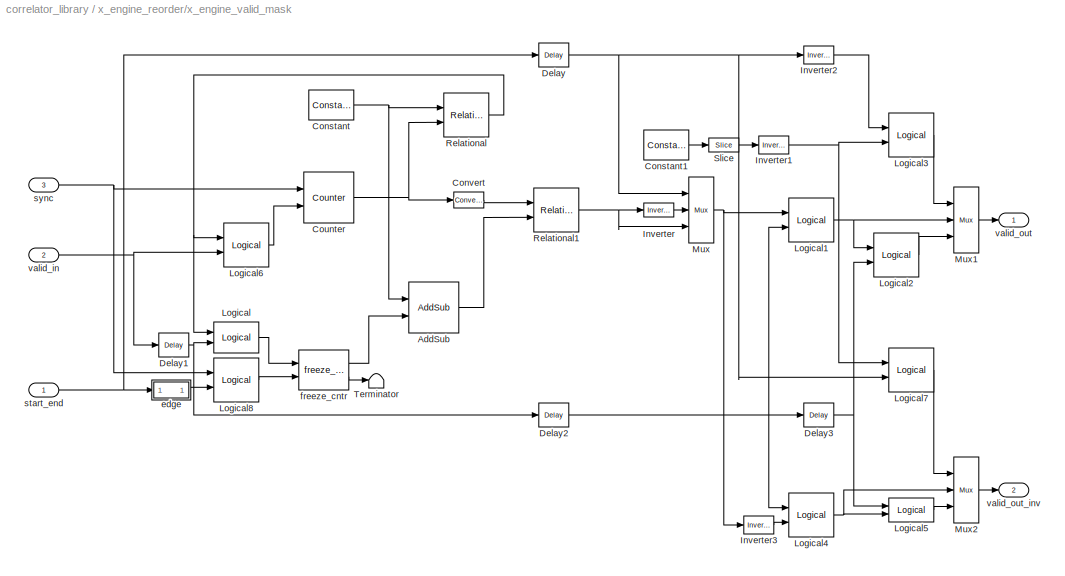
BLOCK [SubSystem] x_engine_reorder/x_engine_valid_mask
  MaskEnableString = on
  MaskIconFrame = on
  MaskIconOpaque = on
  MaskIconRotate = none
  MaskIconUnits = autoscale
  MaskInitialization = num_taps = floor(num_ants/2) + 1;\ncntr_bits = floor(log2(num_taps)) + 1;\nant_bits = floor(log2(num_ants)) + 1;\n
  MaskPromptString = Number of Antennas
  MaskStyleString = edit
  MaskToolTipString = on
  MaskTunableValueString = on
  MaskValueString = num_ants
  MaskVariables = num_ants=@1;
  MaskVisibilityString = on
  MinAlgLoopOccurrences = off
  Ports = [3, 2]
  RTWSystemCode = Auto
  TreatAsAtomicUnit = off
BLOCK [Reference] x_engine_reorder/x_engine_valid_mask/AddSub  REF=xbsIndex_r3/AddSub
  Ports = [2, 1]
  SourceBlock = xbsIndex_r3/AddSub
  SourceType = Xilinx Adder/Subtractor
  arith_type = Unsigned
  bin_pt = 2
  dbl_ovrd = off
  en = off
  explicit_period = off
  gen_core = off
  latency = 0
  mode = Subtraction
  n_bits = 8
  overflow = Wrap
  period = 1
  pipeline = off
  precision = Full
  quantization = Truncate
  show_param = off
  use_carryin = off
  use_carryout = off
  use_core = on
  use_rpm = on
  xl_area = [0, 0, 0, 0, 0, 0, 0]
  xl_use_area = off
BLOCK [Reference] x_engine_reorder/x_engine_valid_mask/Constant  REF=xbsIndex_r3/Constant
  Ports = [0, 1]
  SourceBlock = xbsIndex_r3/Constant
  SourceType = Xilinx Constant Block
  arith_type = Unsigned
  bin_pt = 0
  carry = CIN
  const = num_taps
  dbl_ovrd = off
  equ = P=C
  explicit_period = on
  inp1 = P
  inp2 = PCIN>>17
  iostate = 0
  n_bits = cntr_bits
  opr = +
  opselect = C
  period = 1
BLOCK [Reference] x_engine_reorder/x_engine_valid_mask/Constant1  REF=xbsIndex_r3/Constant
  Ports = [0, 1]
  SourceBlock = xbsIndex_r3/Constant
  SourceType = Xilinx Constant Block
  arith_type = Unsigned
  bin_pt = 0
  carry = CIN
  const = num_ants
  dbl_ovrd = off
  equ = P=C
  explicit_period = on
  inp1 = P
  inp2 = PCIN>>17
  iostate = 0
  n_bits = ant_bits
  opr = +
  opselect = C
  period = 1
BLOCK [Reference] x_engine_reorder/x_engine_valid_mask/Convert  REF=xbsIndex_r3/Convert
  Ports = [1, 1]
  SourceBlock = xbsIndex_r3/Convert
  SourceType = Xilinx Converter Block
  arith_type = Unsigned
  bin_pt = 0
  dbl_ovrd = off
  explicit_period = off
  inserted_by_tool = off
  latency = 0
  n_bits = 4
  overflow = Wrap
  period = 1
  pipeline = off
  quantization = Truncate
  show_param = off
  xl_area = [0, 0, 0, 0, 0, 0, 0]
  xl_use_area = off
BLOCK [Reference] x_engine_reorder/x_engine_valid_mask/Counter  REF=xbsIndex_r3/Counter
  Ports = [2, 1]
  SourceBlock = xbsIndex_r3/Counter
  SourceType = Xilinx Counter Block
  arith_type = Unsigned
  bin_pt = 0
  cnt_by_val = 1
  cnt_to = num_taps
  cnt_type = Count Limited
  dbl_ovrd = off
  en = on
  explicit_period = off
  gen_core = off
  load_pin = off
  n_bits = cntr_bits
  operation = Up
  period = 1
  rst = on
  show_param = off
  start_count = 0
  use_rpm = on
  xl_area = [0, 0, 0, 0, 0, 0, 0]
  xl_use_area = off
BLOCK [Reference] x_engine_reorder/x_engine_valid_mask/Delay  REF=xbsIndex_r3/Delay
  Ports = [1, 1]
  SourceBlock = xbsIndex_r3/Delay
  SourceType = Xilinx Delay Block
  accept_only_valid = off
  dbl_ovrd = off
  en = off
  explicit_period = off
  init_zero = on
  latency = 1
  period = 1
  reg_retiming = off
  show_param = off
  xl_area = [0, 0, 0, 0, 0, 0, 0]
  xl_use_area = off
BLOCK [Reference] x_engine_reorder/x_engine_valid_mask/Delay1  REF=xbsIndex_r3/Delay
  Ports = [1, 1]
  SourceBlock = xbsIndex_r3/Delay
  SourceType = Xilinx Delay Block
  accept_only_valid = off
  dbl_ovrd = off
  en = off
  explicit_period = off
  init_zero = on
  latency = 1
  period = 1
  reg_retiming = off
  show_param = off
  xl_area = [0, 0, 0, 0, 0, 0, 0]
  xl_use_area = off
BLOCK [Reference] x_engine_reorder/x_engine_valid_mask/Delay2  REF=xbsIndex_r3/Delay
  Ports = [1, 1]
  SourceBlock = xbsIndex_r3/Delay
  SourceType = Xilinx Delay Block
  accept_only_valid = off
  dbl_ovrd = off
  en = off
  explicit_period = off
  init_zero = on
  latency = 1
  period = 1
  reg_retiming = off
  show_param = off
  xl_area = [0, 0, 0, 0, 0, 0, 0]
  xl_use_area = off
BLOCK [Reference] x_engine_reorder/x_engine_valid_mask/Delay3  REF=xbsIndex_r3/Delay
  Ports = [1, 1]
  SourceBlock = xbsIndex_r3/Delay
  SourceType = Xilinx Delay Block
  accept_only_valid = off
  dbl_ovrd = off
  en = off
  explicit_period = off
  init_zero = on
  latency = 1
  period = 1
  reg_retiming = off
  show_param = off
  xl_area = [0, 0, 0, 0, 0, 0, 0]
  xl_use_area = off
BLOCK [Reference] x_engine_reorder/x_engine_valid_mask/Inverter  REF=xbsIndex_r3/Inverter
  Ports = [1, 1]
  SourceBlock = xbsIndex_r3/Inverter
  SourceType = Xilinx Inverter
  dbl_ovrd = off
  en = off
  explicit_period = off
  latency = 0
  period = 1
  show_param = off
  xl_area = [0, 0, 0, 0, 0, 0, 0]
  xl_use_area = off
BLOCK [Reference] x_engine_reorder/x_engine_valid_mask/Inverter1  REF=xbsIndex_r3/Inverter
  Ports = [1, 1]
  SourceBlock = xbsIndex_r3/Inverter
  SourceType = Xilinx Inverter
  dbl_ovrd = off
  en = off
  explicit_period = off
  latency = 0
  period = 1
  show_param = off
  xl_area = [0, 0, 0, 0, 0, 0, 0]
  xl_use_area = off
BLOCK [Reference] x_engine_reorder/x_engine_valid_mask/Inverter2  REF=xbsIndex_r3/Inverter
  Ports = [1, 1]
  SourceBlock = xbsIndex_r3/Inverter
  SourceType = Xilinx Inverter
  dbl_ovrd = off
  en = off
  explicit_period = off
  latency = 0
  period = 1
  show_param = off
  xl_area = [0, 0, 0, 0, 0, 0, 0]
  xl_use_area = off
BLOCK [Reference] x_engine_reorder/x_engine_valid_mask/Inverter3  REF=xbsIndex_r3/Inverter
  Ports = [1, 1]
  SourceBlock = xbsIndex_r3/Inverter
  SourceType = Xilinx Inverter
  dbl_ovrd = off
  en = off
  explicit_period = off
  latency = 0
  period = 1
  show_param = off
  xl_area = [0, 0, 0, 0, 0, 0, 0]
  xl_use_area = off
BLOCK [Reference] x_engine_reorder/x_engine_valid_mask/Logical  REF=xbsIndex_r3/Logical
  Ports = [2, 1]
  SourceBlock = xbsIndex_r3/Logical
  SourceType = Xilinx Logical Block
  align_bp = on
  arith_type = Unsigned
  bin_pt = 2
  dbl_ovrd = off
  en = off
  explicit_period = off
  inputs = 2
  latency = 0
  logical_function = AND
  n_bits = 8
  period = 1
  precision = Full
  show_param = off
  xl_area = [0, 0, 0, 0, 0, 0, 0]
  xl_use_area = off
BLOCK [Reference] x_engine_reorder/x_engine_valid_mask/Logical1  REF=xbsIndex_r3/Logical
  Ports = [2, 1]
  SourceBlock = xbsIndex_r3/Logical
  SourceType = Xilinx Logical Block
  align_bp = on
  arith_type = Unsigned
  bin_pt = 2
  dbl_ovrd = off
  en = off
  explicit_period = off
  inputs = 2
  latency = 0
  logical_function = AND
  n_bits = 8
  period = 1
  precision = Full
  show_param = off
  xl_area = [0, 0, 0, 0, 0, 0, 0]
  xl_use_area = off
BLOCK [Reference] x_engine_reorder/x_engine_valid_mask/Logical2  REF=xbsIndex_r3/Logical
  Ports = [2, 1]
  SourceBlock = xbsIndex_r3/Logical
  SourceType = Xilinx Logical Block
  align_bp = on
  arith_type = Unsigned
  bin_pt = 2
  dbl_ovrd = off
  en = off
  explicit_period = off
  inputs = 2
  latency = 0
  logical_function = AND
  n_bits = 8
  period = 1
  precision = Full
  show_param = off
  xl_area = [0, 0, 0, 0, 0, 0, 0]
  xl_use_area = off
BLOCK [Reference] x_engine_reorder/x_engine_valid_mask/Logical3  REF=xbsIndex_r3/Logical
  Ports = [2, 1]
  SourceBlock = xbsIndex_r3/Logical
  SourceType = Xilinx Logical Block
  align_bp = on
  arith_type = Unsigned
  bin_pt = 2
  dbl_ovrd = off
  en = off
  explicit_period = off
  inputs = 2
  latency = 0
  logical_function = AND
  n_bits = 8
  period = 1
  precision = Full
  show_param = off
  xl_area = [0, 0, 0, 0, 0, 0, 0]
  xl_use_area = off
BLOCK [Reference] x_engine_reorder/x_engine_valid_mask/Logical4  REF=xbsIndex_r3/Logical
  Ports = [2, 1]
  SourceBlock = xbsIndex_r3/Logical
  SourceType = Xilinx Logical Block
  align_bp = on
  arith_type = Unsigned
  bin_pt = 2
  dbl_ovrd = off
  en = off
  explicit_period = off
  inputs = 2
  latency = 0
  logical_function = AND
  n_bits = 8
  period = 1
  precision = Full
  show_param = off
  xl_area = [0, 0, 0, 0, 0, 0, 0]
  xl_use_area = off
BLOCK [Reference] x_engine_reorder/x_engine_valid_mask/Logical5  REF=xbsIndex_r3/Logical
  Ports = [2, 1]
  SourceBlock = xbsIndex_r3/Logical
  SourceType = Xilinx Logical Block
  align_bp = on
  arith_type = Unsigned
  bin_pt = 2
  dbl_ovrd = off
  en = off
  explicit_period = off
  inputs = 2
  latency = 0
  logical_function = AND
  n_bits = 8
  period = 1
  precision = Full
  show_param = off
  xl_area = [0, 0, 0, 0, 0, 0, 0]
  xl_use_area = off
BLOCK [Reference] x_engine_reorder/x_engine_valid_mask/Logical6  REF=xbsIndex_r3/Logical
  Ports = [2, 1]
  SourceBlock = xbsIndex_r3/Logical
  SourceType = Xilinx Logical Block
  align_bp = on
  arith_type = Unsigned
  bin_pt = 2
  dbl_ovrd = off
  en = off
  explicit_period = off
  inputs = 2
  latency = 0
  logical_function = OR
  n_bits = 8
  period = 1
  precision = Full
  show_param = off
  xl_area = [0, 0, 0, 0, 0, 0, 0]
  xl_use_area = off
BLOCK [Reference] x_engine_reorder/x_engine_valid_mask/Logical7  REF=xbsIndex_r3/Logical
  Ports = [2, 1]
  SourceBlock = xbsIndex_r3/Logical
  SourceType = Xilinx Logical Block
  align_bp = on
  arith_type = Unsigned
  bin_pt = 2
  dbl_ovrd = off
  en = off
  explicit_period = off
  inputs = 2
  latency = 0
  logical_function = AND
  n_bits = 8
  period = 1
  precision = Full
  show_param = off
  xl_area = [0, 0, 0, 0, 0, 0, 0]
  xl_use_area = off
BLOCK [Reference] x_engine_reorder/x_engine_valid_mask/Logical8  REF=xbsIndex_r3/Logical
  Ports = [2, 1]
  SourceBlock = xbsIndex_r3/Logical
  SourceType = Xilinx Logical Block
  align_bp = on
  arith_type = Unsigned
  bin_pt = 2
  dbl_ovrd = off
  en = off
  explicit_period = off
  inputs = 2
  latency = 0
  logical_function = OR
  n_bits = 8
  period = 1
  precision = Full
  show_param = off
  xl_area = [0, 0, 0, 0, 0, 0, 0]
  xl_use_area = off
BLOCK [Reference] x_engine_reorder/x_engine_valid_mask/Mux  REF=xbsIndex_r3/Mux
  Ports = [3, 1]
  SourceBlock = xbsIndex_r3/Mux
  SourceType = Xilinx Multiplexer Block
  arith_type = Signed  (2's comp)
  bin_pt = 2
  dbl_ovrd = off
  en = off
  explicit_period = off
  gen_core = off
  inputs = 2
  latency = 0
  mux_type = off
  n_bits = 8
  overflow = Wrap
  period = 1
  precision = Full
  quantization = Truncate
  show_param = off
  use_rpm = off
  xl_area = [0, 0, 0, 0, 0, 0, 0]
  xl_use_area = off
BLOCK [Reference] x_engine_reorder/x_engine_valid_mask/Mux1  REF=xbsIndex_r3/Mux
  Ports = [3, 1]
  SourceBlock = xbsIndex_r3/Mux
  SourceType = Xilinx Multiplexer Block
  arith_type = Signed  (2's comp)
  bin_pt = 2
  dbl_ovrd = off
  en = off
  explicit_period = off
  gen_core = off
  inputs = 2
  latency = 0
  mux_type = off
  n_bits = 8
  overflow = Wrap
  period = 1
  precision = Full
  quantization = Truncate
  show_param = off
  use_rpm = off
  xl_area = [0, 0, 0, 0, 0, 0, 0]
  xl_use_area = off
BLOCK [Reference] x_engine_reorder/x_engine_valid_mask/Mux2  REF=xbsIndex_r3/Mux
  Ports = [3, 1]
  SourceBlock = xbsIndex_r3/Mux
  SourceType = Xilinx Multiplexer Block
  arith_type = Signed  (2's comp)
  bin_pt = 2
  dbl_ovrd = off
  en = off
  explicit_period = off
  gen_core = off
  inputs = 2
  latency = 0
  mux_type = off
  n_bits = 8
  overflow = Wrap
  period = 1
  precision = Full
  quantization = Truncate
  show_param = off
  use_rpm = off
  xl_area = [0, 0, 0, 0, 0, 0, 0]
  xl_use_area = off
BLOCK [Reference] x_engine_reorder/x_engine_valid_mask/Relational  REF=xbsIndex_r3/Relational
  Ports = [2, 1]
  SourceBlock = xbsIndex_r3/Relational
  SourceType = Xilinx Relational Block
  dbl_ovrd = off
  en = off
  explicit_period = on
  latency = 0
  mode = a=b
  period = 1
  show_param = off
  xl_area = [0, 0, 0, 0, 0, 0, 0]
  xl_use_area = off
BLOCK [Reference] x_engine_reorder/x_engine_valid_mask/Relational1  REF=xbsIndex_r3/Relational
  Ports = [2, 1]
  SourceBlock = xbsIndex_r3/Relational
  SourceType = Xilinx Relational Block
  dbl_ovrd = off
  en = off
  explicit_period = off
  latency = 1
  mode = a>=b
  period = 1
  show_param = off
  xl_area = [0, 0, 0, 0, 0, 0, 0]
  xl_use_area = off
BLOCK [Reference] x_engine_reorder/x_engine_valid_mask/Slice  REF=xbsIndex_r3/Slice
  Ports = [1, 1]
  SourceBlock = xbsIndex_r3/Slice
  SourceType = Xilinx Slice Block
  base0 = LSB of Input
  base1 = MSB of Input
  bit0 = 0
  bit1 = 0
  boolean_output = on
  dbl_ovrd = off
  explicit_period = off
  mode = Lower Bit Location + Width
  nbits = 1
  period = 1
BLOCK [Terminator] x_engine_reorder/x_engine_valid_mask/Terminator
BLOCK [SubSystem] x_engine_reorder/x_engine_valid_mask/edge
  MinAlgLoopOccurrences = off
  Ports = [1, 1]
  RTWSystemCode = Auto
  TreatAsAtomicUnit = off
BLOCK [Reference] x_engine_reorder/x_engine_valid_mask/edge/Delay  REF=xbsIndex_r3/Delay
  Ports = [1, 1]
  SourceBlock = xbsIndex_r3/Delay
  SourceType = Xilinx Delay Block
  accept_only_valid = off
  dbl_ovrd = off
  en = off
  explicit_period = off
  init_zero = on
  latency = 1
  period = 1
  reg_retiming = off
  show_param = off
  xl_area = [0, 0, 0, 0, 0, 0, 0]
  xl_use_area = off
BLOCK [Reference] x_engine_reorder/x_engine_valid_mask/edge/Logical  REF=xbsIndex_r3/Logical
  Ports = [2, 1]
  SourceBlock = xbsIndex_r3/Logical
  SourceType = Xilinx Logical Block
  align_bp = on
  arith_type = Unsigned
  bin_pt = 2
  dbl_ovrd = off
  en = off
  explicit_period = off
  inputs = 2
  latency = 0
  logical_function = XOR
  n_bits = 8
  period = 1
  precision = Full
  show_param = off
  xl_area = [0, 0, 0, 0, 0, 0, 0]
  xl_use_area = off
BLOCK [Inport] x_engine_reorder/x_engine_valid_mask/edge/in
  IconDisplay = Port number
  LatchInput = off
  Port = 1
BLOCK [Outport] x_engine_reorder/x_engine_valid_mask/edge/out
  BusOutputAsStruct = off
  IconDisplay = Port number
BLOCK [Reference] x_engine_reorder/x_engine_valid_mask/freeze_cntr  REF=correlator_library/freeze_cntr  (lib defined in mdl_61a1cd724cd8)
  CounterBits = cntr_bits
  Ports = [2, 2]
  ShowPortLabels = on
  SourceBlock = correlator_library/freeze_cntr
  SourceType = Unknown
BLOCK [Inport] x_engine_reorder/x_engine_valid_mask/start_end
  IconDisplay = Port number
  LatchInput = off
  Port = 1
BLOCK [Inport] x_engine_reorder/x_engine_valid_mask/sync
  IconDisplay = Port number
  LatchInput = off
  Port = 3
BLOCK [Inport] x_engine_reorder/x_engine_valid_mask/valid_in
  IconDisplay = Port number
  LatchInput = off
  Port = 2
BLOCK [Outport] x_engine_reorder/x_engine_valid_mask/valid_out
  BusOutputAsStruct = off
  IconDisplay = Port number
BLOCK [Outport] x_engine_reorder/x_engine_valid_mask/valid_out_inv
  BusOutputAsStruct = off
  IconDisplay = Port number
  Port = 2
ANNOTATION (root): %%%%%%%%%%%%%%%%%%%%%%%%%%%%%%%%%%%%%%%%%%%%%%%%%%%%%%%%%%%%%%%%%%%%%%%%%%%%%%%\n% %\n% Center for Astronomy Signal Processing and Electronics Research %\n% http://seti.ssl.berkeley.edu/casper/ %\n% <copyright redacted>\n% %\n% This program is free software; you can redistribute it and/or modify %\n% it under the terms of the GNU General Public License as publish...<+687ch>
LINE baseline_tap/Constant:1 -> baseline_tap/Relational:2
LINE baseline_tap/Convert:1 -> baseline_tap/Mux:1
LINE baseline_tap/Counter:1 -> baseline_tap/Relational:1
NET baseline_tap/Delay1:1 -> baseline_tap/dual_pol_cmac:4, baseline_tap/rst_out:1
NET baseline_tap/Delay3:1 -> baseline_tap/a_del_out:1, baseline_tap/dual_pol_cmac:1
NET baseline_tap/Delay7:1 -> baseline_tap/Mux:2, baseline_tap/a_ndel_out:1
NET baseline_tap/Delay8:1 -> baseline_tap/Mux:3, baseline_tap/a_end_out:1
LINE baseline_tap/Mux:1 -> baseline_tap/dual_pol_cmac:2
LINE baseline_tap/Relational:1 -> baseline_tap/Convert:1
LINE baseline_tap/a_del:1 -> baseline_tap/delay:1
LINE baseline_tap/a_end:1 -> baseline_tap/Delay8:1
LINE baseline_tap/a_ndel:1 -> baseline_tap/Delay7:1
LINE baseline_tap/acc_in:1 -> baseline_tap/dual_pol_cmac:3
LINE baseline_tap/delay/In1:1 -> baseline_tap/delay/delay_slr:1
LINE baseline_tap/delay/delay_slr:1 -> baseline_tap/delay/Out1:1
LINE baseline_tap/delay:1 -> baseline_tap/Delay3:1
LINE baseline_tap/dual_pol_cmac/Concat:1 -> baseline_tap/dual_pol_cmac/acc_out:1
LINE baseline_tap/dual_pol_cmac/Constant1:1 -> baseline_tap/dual_pol_cmac/cmac1:5
LINE baseline_tap/dual_pol_cmac/Constant2:1 -> baseline_tap/dual_pol_cmac/cmac:5
LINE baseline_tap/dual_pol_cmac/Constant4:1 -> baseline_tap/dual_pol_cmac/cmac2:5
LINE baseline_tap/dual_pol_cmac/Slice10:1 -> baseline_tap/dual_pol_cmac/cmac3:2
LINE baseline_tap/dual_pol_cmac/Slice11:1 -> baseline_tap/dual_pol_cmac/cmac3:3
LINE baseline_tap/dual_pol_cmac/Slice1:1 -> baseline_tap/dual_pol_cmac/cmac:2
LINE baseline_tap/dual_pol_cmac/Slice2:1 -> baseline_tap/dual_pol_cmac/cmac:3
LINE baseline_tap/dual_pol_cmac/Slice3:1 -> baseline_tap/dual_pol_cmac/cmac1:1
LINE baseline_tap/dual_pol_cmac/Slice4:1 -> baseline_tap/dual_pol_cmac/cmac1:2
LINE baseline_tap/dual_pol_cmac/Slice5:1 -> baseline_tap/dual_pol_cmac/cmac1:3
LINE baseline_tap/dual_pol_cmac/Slice6:1 -> baseline_tap/dual_pol_cmac/cmac2:1
LINE baseline_tap/dual_pol_cmac/Slice7:1 -> baseline_tap/dual_pol_cmac/cmac2:2
LINE baseline_tap/dual_pol_cmac/Slice8:1 -> baseline_tap/dual_pol_cmac/cmac2:3
LINE baseline_tap/dual_pol_cmac/Slice9:1 -> baseline_tap/dual_pol_cmac/cmac3:1
LINE baseline_tap/dual_pol_cmac/Slice:1 -> baseline_tap/dual_pol_cmac/cmac:1
NET baseline_tap/dual_pol_cmac/a1:1 -> baseline_tap/dual_pol_cmac/Slice10:1, baseline_tap/dual_pol_cmac/Slice3:1, baseline_tap/dual_pol_cmac/Slice6:1, baseline_tap/dual_pol_cmac/Slice:1
NET baseline_tap/dual_pol_cmac/a2:1 -> baseline_tap/dual_pol_cmac/Slice1:1, baseline_tap/dual_pol_cmac/Slice4:1, baseline_tap/dual_pol_cmac/Slice7:1, baseline_tap/dual_pol_cmac/Slice9:1
NET baseline_tap/dual_pol_cmac/acc_in:1 -> baseline_tap/dual_pol_cmac/Slice11:1, baseline_tap/dual_pol_cmac/Slice2:1, baseline_tap/dual_pol_cmac/Slice5:1, baseline_tap/dual_pol_cmac/Slice8:1
LINE baseline_tap/dual_pol_cmac/cmac/Constant1:1 -> baseline_tap/dual_pol_cmac/cmac/Relational:2
LINE baseline_tap/dual_pol_cmac/cmac/Constant2:1 -> baseline_tap/dual_pol_cmac/cmac/acc:4
LINE baseline_tap/dual_pol_cmac/cmac/Counter:1 -> baseline_tap/dual_pol_cmac/cmac/Relational:1
LINE baseline_tap/dual_pol_cmac/cmac/Delay:1 -> baseline_tap/dual_pol_cmac/cmac/Counter:1
NET baseline_tap/dual_pol_cmac/cmac/Relational:1 -> baseline_tap/dual_pol_cmac/cmac/acc1:1, baseline_tap/dual_pol_cmac/cmac/acc:1
LINE baseline_tap/dual_pol_cmac/cmac/a+bi:1 -> baseline_tap/dual_pol_cmac/cmac/c_to_ri:1
LINE baseline_tap/dual_pol_cmac/cmac/acc/Accumulator:1 -> baseline_tap/dual_pol_cmac/cmac/acc/Convert:1
LINE baseline_tap/dual_pol_cmac/cmac/acc/Constant:1 -> baseline_tap/dual_pol_cmac/cmac/acc/Mux3:3
LINE baseline_tap/dual_pol_cmac/cmac/acc/Convert1:1 -> baseline_tap/dual_pol_cmac/cmac/acc/Accumulator:1
LINE baseline_tap/dual_pol_cmac/cmac/acc/Convert2:1 -> baseline_tap/dual_pol_cmac/cmac/acc/Mux3:2
LINE baseline_tap/dual_pol_cmac/cmac/acc/Convert:1 -> baseline_tap/dual_pol_cmac/cmac/acc/Mux2:3
NET baseline_tap/dual_pol_cmac/cmac/acc/Delay1:1 -> baseline_tap/dual_pol_cmac/cmac/acc/Accumulator:2, baseline_tap/dual_pol_cmac/cmac/acc/Delay:1
NET baseline_tap/dual_pol_cmac/cmac/acc/Delay:1 -> baseline_tap/dual_pol_cmac/cmac/acc/Mux2:1, baseline_tap/dual_pol_cmac/cmac/acc/Mux3:1
LINE baseline_tap/dual_pol_cmac/cmac/acc/Mux2:1 -> baseline_tap/dual_pol_cmac/cmac/acc/acc_out:1
LINE baseline_tap/dual_pol_cmac/cmac/acc/Mux3:1 -> baseline_tap/dual_pol_cmac/cmac/acc/valid_out:1
LINE baseline_tap/dual_pol_cmac/cmac/acc/acc_in:1 -> baseline_tap/dual_pol_cmac/cmac/acc/Mux2:2
LINE baseline_tap/dual_pol_cmac/cmac/acc/din:1 -> baseline_tap/dual_pol_cmac/cmac/acc/Convert1:1
LINE baseline_tap/dual_pol_cmac/cmac/acc/rst:1 -> baseline_tap/dual_pol_cmac/cmac/acc/Delay1:1
LINE baseline_tap/dual_pol_cmac/cmac/acc/valid_in:1 -> baseline_tap/dual_pol_cmac/cmac/acc/Convert2:1
LINE baseline_tap/dual_pol_cmac/cmac/acc1/Accumulator:1 -> baseline_tap/dual_pol_cmac/cmac/acc1/Convert:1
LINE baseline_tap/dual_pol_cmac/cmac/acc1/Constant:1 -> baseline_tap/dual_pol_cmac/cmac/acc1/Mux3:3
LINE baseline_tap/dual_pol_cmac/cmac/acc1/Convert1:1 -> baseline_tap/dual_pol_cmac/cmac/acc1/Accumulator:1
LINE baseline_tap/dual_pol_cmac/cmac/acc1/Convert2:1 -> baseline_tap/dual_pol_cmac/cmac/acc1/Mux3:2
LINE baseline_tap/dual_pol_cmac/cmac/acc1/Convert:1 -> baseline_tap/dual_pol_cmac/cmac/acc1/Mux2:3
NET baseline_tap/dual_pol_cmac/cmac/acc1/Delay1:1 -> baseline_tap/dual_pol_cmac/cmac/acc1/Accumulator:2, baseline_tap/dual_pol_cmac/cmac/acc1/Delay:1
NET baseline_tap/dual_pol_cmac/cmac/acc1/Delay:1 -> baseline_tap/dual_pol_cmac/cmac/acc1/Mux2:1, baseline_tap/dual_pol_cmac/cmac/acc1/Mux3:1
LINE baseline_tap/dual_pol_cmac/cmac/acc1/Mux2:1 -> baseline_tap/dual_pol_cmac/cmac/acc1/acc_out:1
LINE baseline_tap/dual_pol_cmac/cmac/acc1/Mux3:1 -> baseline_tap/dual_pol_cmac/cmac/acc1/valid_out:1
LINE baseline_tap/dual_pol_cmac/cmac/acc1/acc_in:1 -> baseline_tap/dual_pol_cmac/cmac/acc1/Mux2:2
LINE baseline_tap/dual_pol_cmac/cmac/acc1/din:1 -> baseline_tap/dual_pol_cmac/cmac/acc1/Convert1:1
LINE baseline_tap/dual_pol_cmac/cmac/acc1/rst:1 -> baseline_tap/dual_pol_cmac/cmac/acc1/Delay1:1
LINE baseline_tap/dual_pol_cmac/cmac/acc1/valid_in:1 -> baseline_tap/dual_pol_cmac/cmac/acc1/Convert2:1
LINE baseline_tap/dual_pol_cmac/cmac/acc1:1 -> baseline_tap/dual_pol_cmac/cmac/ri_to_c:2
LINE baseline_tap/dual_pol_cmac/cmac/acc1:2 -> baseline_tap/dual_pol_cmac/cmac/valid_out:1
LINE baseline_tap/dual_pol_cmac/cmac/acc:1 -> baseline_tap/dual_pol_cmac/cmac/ri_to_c:1
LINE baseline_tap/dual_pol_cmac/cmac/acc:2 -> baseline_tap/dual_pol_cmac/cmac/Terminator:1
LINE baseline_tap/dual_pol_cmac/cmac/acc_in:1 -> baseline_tap/dual_pol_cmac/cmac/c_to_ri2:1
LINE baseline_tap/dual_pol_cmac/cmac/c+di:1 -> baseline_tap/dual_pol_cmac/cmac/c_to_ri1:1
NET baseline_tap/dual_pol_cmac/cmac/c_to_ri/In1:1 -> baseline_tap/dual_pol_cmac/cmac/c_to_ri/Slice1:1, baseline_tap/dual_pol_cmac/cmac/c_to_ri/Slice:1
LINE baseline_tap/dual_pol_cmac/cmac/c_to_ri/Reinterpret1:1 -> baseline_tap/dual_pol_cmac/cmac/c_to_ri/Out2:1
LINE baseline_tap/dual_pol_cmac/cmac/c_to_ri/Reinterpret:1 -> baseline_tap/dual_pol_cmac/cmac/c_to_ri/Out1:1
LINE baseline_tap/dual_pol_cmac/cmac/c_to_ri/Slice1:1 -> baseline_tap/dual_pol_cmac/cmac/c_to_ri/Reinterpret1:1
LINE baseline_tap/dual_pol_cmac/cmac/c_to_ri/Slice:1 -> baseline_tap/dual_pol_cmac/cmac/c_to_ri/Reinterpret:1
NET baseline_tap/dual_pol_cmac/cmac/c_to_ri1/In1:1 -> baseline_tap/dual_pol_cmac/cmac/c_to_ri1/Slice1:1, baseline_tap/dual_pol_cmac/cmac/c_to_ri1/Slice:1
LINE baseline_tap/dual_pol_cmac/cmac/c_to_ri1/Reinterpret1:1 -> baseline_tap/dual_pol_cmac/cmac/c_to_ri1/Out2:1
LINE baseline_tap/dual_pol_cmac/cmac/c_to_ri1/Reinterpret:1 -> baseline_tap/dual_pol_cmac/cmac/c_to_ri1/Out1:1
LINE baseline_tap/dual_pol_cmac/cmac/c_to_ri1/Slice1:1 -> baseline_tap/dual_pol_cmac/cmac/c_to_ri1/Reinterpret1:1
LINE baseline_tap/dual_pol_cmac/cmac/c_to_ri1/Slice:1 -> baseline_tap/dual_pol_cmac/cmac/c_to_ri1/Reinterpret:1
LINE baseline_tap/dual_pol_cmac/cmac/c_to_ri1:1 -> baseline_tap/dual_pol_cmac/cmac/cmult:3
LINE baseline_tap/dual_pol_cmac/cmac/c_to_ri1:2 -> baseline_tap/dual_pol_cmac/cmac/cmult:4
NET baseline_tap/dual_pol_cmac/cmac/c_to_ri2/In1:1 -> baseline_tap/dual_pol_cmac/cmac/c_to_ri2/Slice1:1, baseline_tap/dual_pol_cmac/cmac/c_to_ri2/Slice:1
LINE baseline_tap/dual_pol_cmac/cmac/c_to_ri2/Reinterpret1:1 -> baseline_tap/dual_pol_cmac/cmac/c_to_ri2/Out2:1
LINE baseline_tap/dual_pol_cmac/cmac/c_to_ri2/Reinterpret:1 -> baseline_tap/dual_pol_cmac/cmac/c_to_ri2/Out1:1
LINE baseline_tap/dual_pol_cmac/cmac/c_to_ri2/Slice1:1 -> baseline_tap/dual_pol_cmac/cmac/c_to_ri2/Reinterpret1:1
LINE baseline_tap/dual_pol_cmac/cmac/c_to_ri2/Slice:1 -> baseline_tap/dual_pol_cmac/cmac/c_to_ri2/Reinterpret:1
LINE baseline_tap/dual_pol_cmac/cmac/c_to_ri2:1 -> baseline_tap/dual_pol_cmac/cmac/acc:3
LINE baseline_tap/dual_pol_cmac/cmac/c_to_ri2:2 -> baseline_tap/dual_pol_cmac/cmac/acc1:3
LINE baseline_tap/dual_pol_cmac/cmac/c_to_ri:1 -> baseline_tap/dual_pol_cmac/cmac/cmult:1
LINE baseline_tap/dual_pol_cmac/cmac/c_to_ri:2 -> baseline_tap/dual_pol_cmac/cmac/cmult:2
NET baseline_tap/dual_pol_cmac/cmac/cmult/a:1 -> baseline_tap/dual_pol_cmac/cmac/cmult/ac:1, baseline_tap/dual_pol_cmac/cmac/cmult/ad:1
LINE baseline_tap/dual_pol_cmac/cmac/cmult/ac:1 -> baseline_tap/dual_pol_cmac/cmac/cmult/real_sum:1
LINE baseline_tap/dual_pol_cmac/cmac/cmult/ad:1 -> baseline_tap/dual_pol_cmac/cmac/cmult/imag_sum:2
NET baseline_tap/dual_pol_cmac/cmac/cmult/b:1 -> baseline_tap/dual_pol_cmac/cmac/cmult/bc:1, baseline_tap/dual_pol_cmac/cmac/cmult/bd:1
LINE baseline_tap/dual_pol_cmac/cmac/cmult/bc:1 -> baseline_tap/dual_pol_cmac/cmac/cmult/imag_sum:1
LINE baseline_tap/dual_pol_cmac/cmac/cmult/bd:1 -> baseline_tap/dual_pol_cmac/cmac/cmult/real_sum:2
NET baseline_tap/dual_pol_cmac/cmac/cmult/c:1 -> baseline_tap/dual_pol_cmac/cmac/cmult/ac:2, baseline_tap/dual_pol_cmac/cmac/cmult/bc:2
NET baseline_tap/dual_pol_cmac/cmac/cmult/d:1 -> baseline_tap/dual_pol_cmac/cmac/cmult/ad:2, baseline_tap/dual_pol_cmac/cmac/cmult/bd:2
LINE baseline_tap/dual_pol_cmac/cmac/cmult/imag_sum:1 -> baseline_tap/dual_pol_cmac/cmac/cmult/imag:1
LINE baseline_tap/dual_pol_cmac/cmac/cmult/real_sum:1 -> baseline_tap/dual_pol_cmac/cmac/cmult/real:1
LINE baseline_tap/dual_pol_cmac/cmac/cmult:1 -> baseline_tap/dual_pol_cmac/cmac/acc:2
LINE baseline_tap/dual_pol_cmac/cmac/cmult:2 -> baseline_tap/dual_pol_cmac/cmac/acc1:2
LINE baseline_tap/dual_pol_cmac/cmac/ri_to_c/Concat:1 -> baseline_tap/dual_pol_cmac/cmac/ri_to_c/Out1:1
LINE baseline_tap/dual_pol_cmac/cmac/ri_to_c/In1:1 -> baseline_tap/dual_pol_cmac/cmac/ri_to_c/Reinterpret:1
LINE baseline_tap/dual_pol_cmac/cmac/ri_to_c/In2:1 -> baseline_tap/dual_pol_cmac/cmac/ri_to_c/Reinterpret1:1
LINE baseline_tap/dual_pol_cmac/cmac/ri_to_c/Reinterpret1:1 -> baseline_tap/dual_pol_cmac/cmac/ri_to_c/Concat:2
LINE baseline_tap/dual_pol_cmac/cmac/ri_to_c/Reinterpret:1 -> baseline_tap/dual_pol_cmac/cmac/ri_to_c/Concat:1
LINE baseline_tap/dual_pol_cmac/cmac/ri_to_c:1 -> baseline_tap/dual_pol_cmac/cmac/acc_out:1
LINE baseline_tap/dual_pol_cmac/cmac/sync:1 -> baseline_tap/dual_pol_cmac/cmac/Delay:1
LINE baseline_tap/dual_pol_cmac/cmac/valid_in:1 -> baseline_tap/dual_pol_cmac/cmac/acc1:4
LINE baseline_tap/dual_pol_cmac/cmac1/Constant1:1 -> baseline_tap/dual_pol_cmac/cmac1/Relational:2
LINE baseline_tap/dual_pol_cmac/cmac1/Constant2:1 -> baseline_tap/dual_pol_cmac/cmac1/acc:4
LINE baseline_tap/dual_pol_cmac/cmac1/Counter:1 -> baseline_tap/dual_pol_cmac/cmac1/Relational:1
LINE baseline_tap/dual_pol_cmac/cmac1/Delay:1 -> baseline_tap/dual_pol_cmac/cmac1/Counter:1
NET baseline_tap/dual_pol_cmac/cmac1/Relational:1 -> baseline_tap/dual_pol_cmac/cmac1/acc1:1, baseline_tap/dual_pol_cmac/cmac1/acc:1
LINE baseline_tap/dual_pol_cmac/cmac1/a+bi:1 -> baseline_tap/dual_pol_cmac/cmac1/c_to_ri:1
LINE baseline_tap/dual_pol_cmac/cmac1/acc/Accumulator:1 -> baseline_tap/dual_pol_cmac/cmac1/acc/Convert:1
LINE baseline_tap/dual_pol_cmac/cmac1/acc/Constant:1 -> baseline_tap/dual_pol_cmac/cmac1/acc/Mux3:3
LINE baseline_tap/dual_pol_cmac/cmac1/acc/Convert1:1 -> baseline_tap/dual_pol_cmac/cmac1/acc/Accumulator:1
LINE baseline_tap/dual_pol_cmac/cmac1/acc/Convert2:1 -> baseline_tap/dual_pol_cmac/cmac1/acc/Mux3:2
LINE baseline_tap/dual_pol_cmac/cmac1/acc/Convert:1 -> baseline_tap/dual_pol_cmac/cmac1/acc/Mux2:3
NET baseline_tap/dual_pol_cmac/cmac1/acc/Delay1:1 -> baseline_tap/dual_pol_cmac/cmac1/acc/Accumulator:2, baseline_tap/dual_pol_cmac/cmac1/acc/Delay:1
NET baseline_tap/dual_pol_cmac/cmac1/acc/Delay:1 -> baseline_tap/dual_pol_cmac/cmac1/acc/Mux2:1, baseline_tap/dual_pol_cmac/cmac1/acc/Mux3:1
LINE baseline_tap/dual_pol_cmac/cmac1/acc/Mux2:1 -> baseline_tap/dual_pol_cmac/cmac1/acc/acc_out:1
LINE baseline_tap/dual_pol_cmac/cmac1/acc/Mux3:1 -> baseline_tap/dual_pol_cmac/cmac1/acc/valid_out:1
LINE baseline_tap/dual_pol_cmac/cmac1/acc/acc_in:1 -> baseline_tap/dual_pol_cmac/cmac1/acc/Mux2:2
LINE baseline_tap/dual_pol_cmac/cmac1/acc/din:1 -> baseline_tap/dual_pol_cmac/cmac1/acc/Convert1:1
LINE baseline_tap/dual_pol_cmac/cmac1/acc/rst:1 -> baseline_tap/dual_pol_cmac/cmac1/acc/Delay1:1
LINE baseline_tap/dual_pol_cmac/cmac1/acc/valid_in:1 -> baseline_tap/dual_pol_cmac/cmac1/acc/Convert2:1
LINE baseline_tap/dual_pol_cmac/cmac1/acc1/Accumulator:1 -> baseline_tap/dual_pol_cmac/cmac1/acc1/Convert:1
LINE baseline_tap/dual_pol_cmac/cmac1/acc1/Constant:1 -> baseline_tap/dual_pol_cmac/cmac1/acc1/Mux3:3
LINE baseline_tap/dual_pol_cmac/cmac1/acc1/Convert1:1 -> baseline_tap/dual_pol_cmac/cmac1/acc1/Accumulator:1
LINE baseline_tap/dual_pol_cmac/cmac1/acc1/Convert2:1 -> baseline_tap/dual_pol_cmac/cmac1/acc1/Mux3:2
LINE baseline_tap/dual_pol_cmac/cmac1/acc1/Convert:1 -> baseline_tap/dual_pol_cmac/cmac1/acc1/Mux2:3
NET baseline_tap/dual_pol_cmac/cmac1/acc1/Delay1:1 -> baseline_tap/dual_pol_cmac/cmac1/acc1/Accumulator:2, baseline_tap/dual_pol_cmac/cmac1/acc1/Delay:1
NET baseline_tap/dual_pol_cmac/cmac1/acc1/Delay:1 -> baseline_tap/dual_pol_cmac/cmac1/acc1/Mux2:1, baseline_tap/dual_pol_cmac/cmac1/acc1/Mux3:1
LINE baseline_tap/dual_pol_cmac/cmac1/acc1/Mux2:1 -> baseline_tap/dual_pol_cmac/cmac1/acc1/acc_out:1
LINE baseline_tap/dual_pol_cmac/cmac1/acc1/Mux3:1 -> baseline_tap/dual_pol_cmac/cmac1/acc1/valid_out:1
LINE baseline_tap/dual_pol_cmac/cmac1/acc1/acc_in:1 -> baseline_tap/dual_pol_cmac/cmac1/acc1/Mux2:2
LINE baseline_tap/dual_pol_cmac/cmac1/acc1/din:1 -> baseline_tap/dual_pol_cmac/cmac1/acc1/Convert1:1
LINE baseline_tap/dual_pol_cmac/cmac1/acc1/rst:1 -> baseline_tap/dual_pol_cmac/cmac1/acc1/Delay1:1
LINE baseline_tap/dual_pol_cmac/cmac1/acc1/valid_in:1 -> baseline_tap/dual_pol_cmac/cmac1/acc1/Convert2:1
LINE baseline_tap/dual_pol_cmac/cmac1/acc1:1 -> baseline_tap/dual_pol_cmac/cmac1/ri_to_c:2
LINE baseline_tap/dual_pol_cmac/cmac1/acc1:2 -> baseline_tap/dual_pol_cmac/cmac1/valid_out:1
LINE baseline_tap/dual_pol_cmac/cmac1/acc:1 -> baseline_tap/dual_pol_cmac/cmac1/ri_to_c:1
LINE baseline_tap/dual_pol_cmac/cmac1/acc:2 -> baseline_tap/dual_pol_cmac/cmac1/Terminator:1
LINE baseline_tap/dual_pol_cmac/cmac1/acc_in:1 -> baseline_tap/dual_pol_cmac/cmac1/c_to_ri2:1
LINE baseline_tap/dual_pol_cmac/cmac1/c+di:1 -> baseline_tap/dual_pol_cmac/cmac1/c_to_ri1:1
NET baseline_tap/dual_pol_cmac/cmac1/c_to_ri/In1:1 -> baseline_tap/dual_pol_cmac/cmac1/c_to_ri/Slice1:1, baseline_tap/dual_pol_cmac/cmac1/c_to_ri/Slice:1
LINE baseline_tap/dual_pol_cmac/cmac1/c_to_ri/Reinterpret1:1 -> baseline_tap/dual_pol_cmac/cmac1/c_to_ri/Out2:1
LINE baseline_tap/dual_pol_cmac/cmac1/c_to_ri/Reinterpret:1 -> baseline_tap/dual_pol_cmac/cmac1/c_to_ri/Out1:1
LINE baseline_tap/dual_pol_cmac/cmac1/c_to_ri/Slice1:1 -> baseline_tap/dual_pol_cmac/cmac1/c_to_ri/Reinterpret1:1
LINE baseline_tap/dual_pol_cmac/cmac1/c_to_ri/Slice:1 -> baseline_tap/dual_pol_cmac/cmac1/c_to_ri/Reinterpret:1
NET baseline_tap/dual_pol_cmac/cmac1/c_to_ri1/In1:1 -> baseline_tap/dual_pol_cmac/cmac1/c_to_ri1/Slice1:1, baseline_tap/dual_pol_cmac/cmac1/c_to_ri1/Slice:1
LINE baseline_tap/dual_pol_cmac/cmac1/c_to_ri1/Reinterpret1:1 -> baseline_tap/dual_pol_cmac/cmac1/c_to_ri1/Out2:1
LINE baseline_tap/dual_pol_cmac/cmac1/c_to_ri1/Reinterpret:1 -> baseline_tap/dual_pol_cmac/cmac1/c_to_ri1/Out1:1
LINE baseline_tap/dual_pol_cmac/cmac1/c_to_ri1/Slice1:1 -> baseline_tap/dual_pol_cmac/cmac1/c_to_ri1/Reinterpret1:1
LINE baseline_tap/dual_pol_cmac/cmac1/c_to_ri1/Slice:1 -> baseline_tap/dual_pol_cmac/cmac1/c_to_ri1/Reinterpret:1
LINE baseline_tap/dual_pol_cmac/cmac1/c_to_ri1:1 -> baseline_tap/dual_pol_cmac/cmac1/cmult:3
LINE baseline_tap/dual_pol_cmac/cmac1/c_to_ri1:2 -> baseline_tap/dual_pol_cmac/cmac1/cmult:4
NET baseline_tap/dual_pol_cmac/cmac1/c_to_ri2/In1:1 -> baseline_tap/dual_pol_cmac/cmac1/c_to_ri2/Slice1:1, baseline_tap/dual_pol_cmac/cmac1/c_to_ri2/Slice:1
LINE baseline_tap/dual_pol_cmac/cmac1/c_to_ri2/Reinterpret1:1 -> baseline_tap/dual_pol_cmac/cmac1/c_to_ri2/Out2:1
LINE baseline_tap/dual_pol_cmac/cmac1/c_to_ri2/Reinterpret:1 -> baseline_tap/dual_pol_cmac/cmac1/c_to_ri2/Out1:1
LINE baseline_tap/dual_pol_cmac/cmac1/c_to_ri2/Slice1:1 -> baseline_tap/dual_pol_cmac/cmac1/c_to_ri2/Reinterpret1:1
LINE baseline_tap/dual_pol_cmac/cmac1/c_to_ri2/Slice:1 -> baseline_tap/dual_pol_cmac/cmac1/c_to_ri2/Reinterpret:1
LINE baseline_tap/dual_pol_cmac/cmac1/c_to_ri2:1 -> baseline_tap/dual_pol_cmac/cmac1/acc:3
LINE baseline_tap/dual_pol_cmac/cmac1/c_to_ri2:2 -> baseline_tap/dual_pol_cmac/cmac1/acc1:3
LINE baseline_tap/dual_pol_cmac/cmac1/c_to_ri:1 -> baseline_tap/dual_pol_cmac/cmac1/cmult:1
LINE baseline_tap/dual_pol_cmac/cmac1/c_to_ri:2 -> baseline_tap/dual_pol_cmac/cmac1/cmult:2
NET baseline_tap/dual_pol_cmac/cmac1/cmult/a:1 -> baseline_tap/dual_pol_cmac/cmac1/cmult/ac:1, baseline_tap/dual_pol_cmac/cmac1/cmult/ad:1
LINE baseline_tap/dual_pol_cmac/cmac1/cmult/ac:1 -> baseline_tap/dual_pol_cmac/cmac1/cmult/real_sum:1
LINE baseline_tap/dual_pol_cmac/cmac1/cmult/ad:1 -> baseline_tap/dual_pol_cmac/cmac1/cmult/imag_sum:2
NET baseline_tap/dual_pol_cmac/cmac1/cmult/b:1 -> baseline_tap/dual_pol_cmac/cmac1/cmult/bc:1, baseline_tap/dual_pol_cmac/cmac1/cmult/bd:1
LINE baseline_tap/dual_pol_cmac/cmac1/cmult/bc:1 -> baseline_tap/dual_pol_cmac/cmac1/cmult/imag_sum:1
LINE baseline_tap/dual_pol_cmac/cmac1/cmult/bd:1 -> baseline_tap/dual_pol_cmac/cmac1/cmult/real_sum:2
NET baseline_tap/dual_pol_cmac/cmac1/cmult/c:1 -> baseline_tap/dual_pol_cmac/cmac1/cmult/ac:2, baseline_tap/dual_pol_cmac/cmac1/cmult/bc:2
NET baseline_tap/dual_pol_cmac/cmac1/cmult/d:1 -> baseline_tap/dual_pol_cmac/cmac1/cmult/ad:2, baseline_tap/dual_pol_cmac/cmac1/cmult/bd:2
LINE baseline_tap/dual_pol_cmac/cmac1/cmult/imag_sum:1 -> baseline_tap/dual_pol_cmac/cmac1/cmult/imag:1
LINE baseline_tap/dual_pol_cmac/cmac1/cmult/real_sum:1 -> baseline_tap/dual_pol_cmac/cmac1/cmult/real:1
LINE baseline_tap/dual_pol_cmac/cmac1/cmult:1 -> baseline_tap/dual_pol_cmac/cmac1/acc:2
LINE baseline_tap/dual_pol_cmac/cmac1/cmult:2 -> baseline_tap/dual_pol_cmac/cmac1/acc1:2
LINE baseline_tap/dual_pol_cmac/cmac1/ri_to_c/Concat:1 -> baseline_tap/dual_pol_cmac/cmac1/ri_to_c/Out1:1
LINE baseline_tap/dual_pol_cmac/cmac1/ri_to_c/In1:1 -> baseline_tap/dual_pol_cmac/cmac1/ri_to_c/Reinterpret:1
LINE baseline_tap/dual_pol_cmac/cmac1/ri_to_c/In2:1 -> baseline_tap/dual_pol_cmac/cmac1/ri_to_c/Reinterpret1:1
LINE baseline_tap/dual_pol_cmac/cmac1/ri_to_c/Reinterpret1:1 -> baseline_tap/dual_pol_cmac/cmac1/ri_to_c/Concat:2
LINE baseline_tap/dual_pol_cmac/cmac1/ri_to_c/Reinterpret:1 -> baseline_tap/dual_pol_cmac/cmac1/ri_to_c/Concat:1
LINE baseline_tap/dual_pol_cmac/cmac1/ri_to_c:1 -> baseline_tap/dual_pol_cmac/cmac1/acc_out:1
LINE baseline_tap/dual_pol_cmac/cmac1/sync:1 -> baseline_tap/dual_pol_cmac/cmac1/Delay:1
LINE baseline_tap/dual_pol_cmac/cmac1/valid_in:1 -> baseline_tap/dual_pol_cmac/cmac1/acc1:4
LINE baseline_tap/dual_pol_cmac/cmac1:1 -> baseline_tap/dual_pol_cmac/Concat:2
LINE baseline_tap/dual_pol_cmac/cmac1:2 -> baseline_tap/dual_pol_cmac/Terminator1:1
LINE baseline_tap/dual_pol_cmac/cmac2/Constant1:1 -> baseline_tap/dual_pol_cmac/cmac2/Relational:2
LINE baseline_tap/dual_pol_cmac/cmac2/Constant2:1 -> baseline_tap/dual_pol_cmac/cmac2/acc:4
LINE baseline_tap/dual_pol_cmac/cmac2/Counter:1 -> baseline_tap/dual_pol_cmac/cmac2/Relational:1
LINE baseline_tap/dual_pol_cmac/cmac2/Delay:1 -> baseline_tap/dual_pol_cmac/cmac2/Counter:1
NET baseline_tap/dual_pol_cmac/cmac2/Relational:1 -> baseline_tap/dual_pol_cmac/cmac2/acc1:1, baseline_tap/dual_pol_cmac/cmac2/acc:1
LINE baseline_tap/dual_pol_cmac/cmac2/a+bi:1 -> baseline_tap/dual_pol_cmac/cmac2/c_to_ri:1
LINE baseline_tap/dual_pol_cmac/cmac2/acc/Accumulator:1 -> baseline_tap/dual_pol_cmac/cmac2/acc/Convert:1
LINE baseline_tap/dual_pol_cmac/cmac2/acc/Constant:1 -> baseline_tap/dual_pol_cmac/cmac2/acc/Mux3:3
LINE baseline_tap/dual_pol_cmac/cmac2/acc/Convert1:1 -> baseline_tap/dual_pol_cmac/cmac2/acc/Accumulator:1
LINE baseline_tap/dual_pol_cmac/cmac2/acc/Convert2:1 -> baseline_tap/dual_pol_cmac/cmac2/acc/Mux3:2
LINE baseline_tap/dual_pol_cmac/cmac2/acc/Convert:1 -> baseline_tap/dual_pol_cmac/cmac2/acc/Mux2:3
NET baseline_tap/dual_pol_cmac/cmac2/acc/Delay1:1 -> baseline_tap/dual_pol_cmac/cmac2/acc/Accumulator:2, baseline_tap/dual_pol_cmac/cmac2/acc/Delay:1
NET baseline_tap/dual_pol_cmac/cmac2/acc/Delay:1 -> baseline_tap/dual_pol_cmac/cmac2/acc/Mux2:1, baseline_tap/dual_pol_cmac/cmac2/acc/Mux3:1
LINE baseline_tap/dual_pol_cmac/cmac2/acc/Mux2:1 -> baseline_tap/dual_pol_cmac/cmac2/acc/acc_out:1
LINE baseline_tap/dual_pol_cmac/cmac2/acc/Mux3:1 -> baseline_tap/dual_pol_cmac/cmac2/acc/valid_out:1
LINE baseline_tap/dual_pol_cmac/cmac2/acc/acc_in:1 -> baseline_tap/dual_pol_cmac/cmac2/acc/Mux2:2
LINE baseline_tap/dual_pol_cmac/cmac2/acc/din:1 -> baseline_tap/dual_pol_cmac/cmac2/acc/Convert1:1
LINE baseline_tap/dual_pol_cmac/cmac2/acc/rst:1 -> baseline_tap/dual_pol_cmac/cmac2/acc/Delay1:1
LINE baseline_tap/dual_pol_cmac/cmac2/acc/valid_in:1 -> baseline_tap/dual_pol_cmac/cmac2/acc/Convert2:1
LINE baseline_tap/dual_pol_cmac/cmac2/acc1/Accumulator:1 -> baseline_tap/dual_pol_cmac/cmac2/acc1/Convert:1
LINE baseline_tap/dual_pol_cmac/cmac2/acc1/Constant:1 -> baseline_tap/dual_pol_cmac/cmac2/acc1/Mux3:3
LINE baseline_tap/dual_pol_cmac/cmac2/acc1/Convert1:1 -> baseline_tap/dual_pol_cmac/cmac2/acc1/Accumulator:1
LINE baseline_tap/dual_pol_cmac/cmac2/acc1/Convert2:1 -> baseline_tap/dual_pol_cmac/cmac2/acc1/Mux3:2
LINE baseline_tap/dual_pol_cmac/cmac2/acc1/Convert:1 -> baseline_tap/dual_pol_cmac/cmac2/acc1/Mux2:3
NET baseline_tap/dual_pol_cmac/cmac2/acc1/Delay1:1 -> baseline_tap/dual_pol_cmac/cmac2/acc1/Accumulator:2, baseline_tap/dual_pol_cmac/cmac2/acc1/Delay:1
NET baseline_tap/dual_pol_cmac/cmac2/acc1/Delay:1 -> baseline_tap/dual_pol_cmac/cmac2/acc1/Mux2:1, baseline_tap/dual_pol_cmac/cmac2/acc1/Mux3:1
LINE baseline_tap/dual_pol_cmac/cmac2/acc1/Mux2:1 -> baseline_tap/dual_pol_cmac/cmac2/acc1/acc_out:1
LINE baseline_tap/dual_pol_cmac/cmac2/acc1/Mux3:1 -> baseline_tap/dual_pol_cmac/cmac2/acc1/valid_out:1
LINE baseline_tap/dual_pol_cmac/cmac2/acc1/acc_in:1 -> baseline_tap/dual_pol_cmac/cmac2/acc1/Mux2:2
LINE baseline_tap/dual_pol_cmac/cmac2/acc1/din:1 -> baseline_tap/dual_pol_cmac/cmac2/acc1/Convert1:1
LINE baseline_tap/dual_pol_cmac/cmac2/acc1/rst:1 -> baseline_tap/dual_pol_cmac/cmac2/acc1/Delay1:1
LINE baseline_tap/dual_pol_cmac/cmac2/acc1/valid_in:1 -> baseline_tap/dual_pol_cmac/cmac2/acc1/Convert2:1
LINE baseline_tap/dual_pol_cmac/cmac2/acc1:1 -> baseline_tap/dual_pol_cmac/cmac2/ri_to_c:2
LINE baseline_tap/dual_pol_cmac/cmac2/acc1:2 -> baseline_tap/dual_pol_cmac/cmac2/valid_out:1
LINE baseline_tap/dual_pol_cmac/cmac2/acc:1 -> baseline_tap/dual_pol_cmac/cmac2/ri_to_c:1
LINE baseline_tap/dual_pol_cmac/cmac2/acc:2 -> baseline_tap/dual_pol_cmac/cmac2/Terminator:1
LINE baseline_tap/dual_pol_cmac/cmac2/acc_in:1 -> baseline_tap/dual_pol_cmac/cmac2/c_to_ri2:1
LINE baseline_tap/dual_pol_cmac/cmac2/c+di:1 -> baseline_tap/dual_pol_cmac/cmac2/c_to_ri1:1
NET baseline_tap/dual_pol_cmac/cmac2/c_to_ri/In1:1 -> baseline_tap/dual_pol_cmac/cmac2/c_to_ri/Slice1:1, baseline_tap/dual_pol_cmac/cmac2/c_to_ri/Slice:1
LINE baseline_tap/dual_pol_cmac/cmac2/c_to_ri/Reinterpret1:1 -> baseline_tap/dual_pol_cmac/cmac2/c_to_ri/Out2:1
LINE baseline_tap/dual_pol_cmac/cmac2/c_to_ri/Reinterpret:1 -> baseline_tap/dual_pol_cmac/cmac2/c_to_ri/Out1:1
LINE baseline_tap/dual_pol_cmac/cmac2/c_to_ri/Slice1:1 -> baseline_tap/dual_pol_cmac/cmac2/c_to_ri/Reinterpret1:1
LINE baseline_tap/dual_pol_cmac/cmac2/c_to_ri/Slice:1 -> baseline_tap/dual_pol_cmac/cmac2/c_to_ri/Reinterpret:1
NET baseline_tap/dual_pol_cmac/cmac2/c_to_ri1/In1:1 -> baseline_tap/dual_pol_cmac/cmac2/c_to_ri1/Slice1:1, baseline_tap/dual_pol_cmac/cmac2/c_to_ri1/Slice:1
LINE baseline_tap/dual_pol_cmac/cmac2/c_to_ri1/Reinterpret1:1 -> baseline_tap/dual_pol_cmac/cmac2/c_to_ri1/Out2:1
LINE baseline_tap/dual_pol_cmac/cmac2/c_to_ri1/Reinterpret:1 -> baseline_tap/dual_pol_cmac/cmac2/c_to_ri1/Out1:1
LINE baseline_tap/dual_pol_cmac/cmac2/c_to_ri1/Slice1:1 -> baseline_tap/dual_pol_cmac/cmac2/c_to_ri1/Reinterpret1:1
LINE baseline_tap/dual_pol_cmac/cmac2/c_to_ri1/Slice:1 -> baseline_tap/dual_pol_cmac/cmac2/c_to_ri1/Reinterpret:1
LINE baseline_tap/dual_pol_cmac/cmac2/c_to_ri1:1 -> baseline_tap/dual_pol_cmac/cmac2/cmult:3
LINE baseline_tap/dual_pol_cmac/cmac2/c_to_ri1:2 -> baseline_tap/dual_pol_cmac/cmac2/cmult:4
NET baseline_tap/dual_pol_cmac/cmac2/c_to_ri2/In1:1 -> baseline_tap/dual_pol_cmac/cmac2/c_to_ri2/Slice1:1, baseline_tap/dual_pol_cmac/cmac2/c_to_ri2/Slice:1
LINE baseline_tap/dual_pol_cmac/cmac2/c_to_ri2/Reinterpret1:1 -> baseline_tap/dual_pol_cmac/cmac2/c_to_ri2/Out2:1
LINE baseline_tap/dual_pol_cmac/cmac2/c_to_ri2/Reinterpret:1 -> baseline_tap/dual_pol_cmac/cmac2/c_to_ri2/Out1:1
LINE baseline_tap/dual_pol_cmac/cmac2/c_to_ri2/Slice1:1 -> baseline_tap/dual_pol_cmac/cmac2/c_to_ri2/Reinterpret1:1
LINE baseline_tap/dual_pol_cmac/cmac2/c_to_ri2/Slice:1 -> baseline_tap/dual_pol_cmac/cmac2/c_to_ri2/Reinterpret:1
LINE baseline_tap/dual_pol_cmac/cmac2/c_to_ri2:1 -> baseline_tap/dual_pol_cmac/cmac2/acc:3
LINE baseline_tap/dual_pol_cmac/cmac2/c_to_ri2:2 -> baseline_tap/dual_pol_cmac/cmac2/acc1:3
LINE baseline_tap/dual_pol_cmac/cmac2/c_to_ri:1 -> baseline_tap/dual_pol_cmac/cmac2/cmult:1
LINE baseline_tap/dual_pol_cmac/cmac2/c_to_ri:2 -> baseline_tap/dual_pol_cmac/cmac2/cmult:2
NET baseline_tap/dual_pol_cmac/cmac2/cmult/a:1 -> baseline_tap/dual_pol_cmac/cmac2/cmult/ac:1, baseline_tap/dual_pol_cmac/cmac2/cmult/ad:1
LINE baseline_tap/dual_pol_cmac/cmac2/cmult/ac:1 -> baseline_tap/dual_pol_cmac/cmac2/cmult/real_sum:1
LINE baseline_tap/dual_pol_cmac/cmac2/cmult/ad:1 -> baseline_tap/dual_pol_cmac/cmac2/cmult/imag_sum:2
NET baseline_tap/dual_pol_cmac/cmac2/cmult/b:1 -> baseline_tap/dual_pol_cmac/cmac2/cmult/bc:1, baseline_tap/dual_pol_cmac/cmac2/cmult/bd:1
LINE baseline_tap/dual_pol_cmac/cmac2/cmult/bc:1 -> baseline_tap/dual_pol_cmac/cmac2/cmult/imag_sum:1
LINE baseline_tap/dual_pol_cmac/cmac2/cmult/bd:1 -> baseline_tap/dual_pol_cmac/cmac2/cmult/real_sum:2
NET baseline_tap/dual_pol_cmac/cmac2/cmult/c:1 -> baseline_tap/dual_pol_cmac/cmac2/cmult/ac:2, baseline_tap/dual_pol_cmac/cmac2/cmult/bc:2
NET baseline_tap/dual_pol_cmac/cmac2/cmult/d:1 -> baseline_tap/dual_pol_cmac/cmac2/cmult/ad:2, baseline_tap/dual_pol_cmac/cmac2/cmult/bd:2
LINE baseline_tap/dual_pol_cmac/cmac2/cmult/imag_sum:1 -> baseline_tap/dual_pol_cmac/cmac2/cmult/imag:1
LINE baseline_tap/dual_pol_cmac/cmac2/cmult/real_sum:1 -> baseline_tap/dual_pol_cmac/cmac2/cmult/real:1
LINE baseline_tap/dual_pol_cmac/cmac2/cmult:1 -> baseline_tap/dual_pol_cmac/cmac2/acc:2
LINE baseline_tap/dual_pol_cmac/cmac2/cmult:2 -> baseline_tap/dual_pol_cmac/cmac2/acc1:2
LINE baseline_tap/dual_pol_cmac/cmac2/ri_to_c/Concat:1 -> baseline_tap/dual_pol_cmac/cmac2/ri_to_c/Out1:1
LINE baseline_tap/dual_pol_cmac/cmac2/ri_to_c/In1:1 -> baseline_tap/dual_pol_cmac/cmac2/ri_to_c/Reinterpret:1
LINE baseline_tap/dual_pol_cmac/cmac2/ri_to_c/In2:1 -> baseline_tap/dual_pol_cmac/cmac2/ri_to_c/Reinterpret1:1
LINE baseline_tap/dual_pol_cmac/cmac2/ri_to_c/Reinterpret1:1 -> baseline_tap/dual_pol_cmac/cmac2/ri_to_c/Concat:2
LINE baseline_tap/dual_pol_cmac/cmac2/ri_to_c/Reinterpret:1 -> baseline_tap/dual_pol_cmac/cmac2/ri_to_c/Concat:1
LINE baseline_tap/dual_pol_cmac/cmac2/ri_to_c:1 -> baseline_tap/dual_pol_cmac/cmac2/acc_out:1
LINE baseline_tap/dual_pol_cmac/cmac2/sync:1 -> baseline_tap/dual_pol_cmac/cmac2/Delay:1
LINE baseline_tap/dual_pol_cmac/cmac2/valid_in:1 -> baseline_tap/dual_pol_cmac/cmac2/acc1:4
LINE baseline_tap/dual_pol_cmac/cmac2:1 -> baseline_tap/dual_pol_cmac/Concat:3
LINE baseline_tap/dual_pol_cmac/cmac2:2 -> baseline_tap/dual_pol_cmac/Terminator2:1
LINE baseline_tap/dual_pol_cmac/cmac3/Constant1:1 -> baseline_tap/dual_pol_cmac/cmac3/Relational:2
LINE baseline_tap/dual_pol_cmac/cmac3/Constant2:1 -> baseline_tap/dual_pol_cmac/cmac3/acc:4
LINE baseline_tap/dual_pol_cmac/cmac3/Counter:1 -> baseline_tap/dual_pol_cmac/cmac3/Relational:1
LINE baseline_tap/dual_pol_cmac/cmac3/Delay:1 -> baseline_tap/dual_pol_cmac/cmac3/Counter:1
NET baseline_tap/dual_pol_cmac/cmac3/Relational:1 -> baseline_tap/dual_pol_cmac/cmac3/acc1:1, baseline_tap/dual_pol_cmac/cmac3/acc:1
LINE baseline_tap/dual_pol_cmac/cmac3/a+bi:1 -> baseline_tap/dual_pol_cmac/cmac3/c_to_ri:1
LINE baseline_tap/dual_pol_cmac/cmac3/acc/Accumulator:1 -> baseline_tap/dual_pol_cmac/cmac3/acc/Convert:1
LINE baseline_tap/dual_pol_cmac/cmac3/acc/Constant:1 -> baseline_tap/dual_pol_cmac/cmac3/acc/Mux3:3
LINE baseline_tap/dual_pol_cmac/cmac3/acc/Convert1:1 -> baseline_tap/dual_pol_cmac/cmac3/acc/Accumulator:1
LINE baseline_tap/dual_pol_cmac/cmac3/acc/Convert2:1 -> baseline_tap/dual_pol_cmac/cmac3/acc/Mux3:2
LINE baseline_tap/dual_pol_cmac/cmac3/acc/Convert:1 -> baseline_tap/dual_pol_cmac/cmac3/acc/Mux2:3
NET baseline_tap/dual_pol_cmac/cmac3/acc/Delay1:1 -> baseline_tap/dual_pol_cmac/cmac3/acc/Accumulator:2, baseline_tap/dual_pol_cmac/cmac3/acc/Delay:1
NET baseline_tap/dual_pol_cmac/cmac3/acc/Delay:1 -> baseline_tap/dual_pol_cmac/cmac3/acc/Mux2:1, baseline_tap/dual_pol_cmac/cmac3/acc/Mux3:1
LINE baseline_tap/dual_pol_cmac/cmac3/acc/Mux2:1 -> baseline_tap/dual_pol_cmac/cmac3/acc/acc_out:1
LINE baseline_tap/dual_pol_cmac/cmac3/acc/Mux3:1 -> baseline_tap/dual_pol_cmac/cmac3/acc/valid_out:1
LINE baseline_tap/dual_pol_cmac/cmac3/acc/acc_in:1 -> baseline_tap/dual_pol_cmac/cmac3/acc/Mux2:2
LINE baseline_tap/dual_pol_cmac/cmac3/acc/din:1 -> baseline_tap/dual_pol_cmac/cmac3/acc/Convert1:1
LINE baseline_tap/dual_pol_cmac/cmac3/acc/rst:1 -> baseline_tap/dual_pol_cmac/cmac3/acc/Delay1:1
LINE baseline_tap/dual_pol_cmac/cmac3/acc/valid_in:1 -> baseline_tap/dual_pol_cmac/cmac3/acc/Convert2:1
LINE baseline_tap/dual_pol_cmac/cmac3/acc1/Accumulator:1 -> baseline_tap/dual_pol_cmac/cmac3/acc1/Convert:1
LINE baseline_tap/dual_pol_cmac/cmac3/acc1/Constant:1 -> baseline_tap/dual_pol_cmac/cmac3/acc1/Mux3:3
LINE baseline_tap/dual_pol_cmac/cmac3/acc1/Convert1:1 -> baseline_tap/dual_pol_cmac/cmac3/acc1/Accumulator:1
LINE baseline_tap/dual_pol_cmac/cmac3/acc1/Convert2:1 -> baseline_tap/dual_pol_cmac/cmac3/acc1/Mux3:2
LINE baseline_tap/dual_pol_cmac/cmac3/acc1/Convert:1 -> baseline_tap/dual_pol_cmac/cmac3/acc1/Mux2:3
NET baseline_tap/dual_pol_cmac/cmac3/acc1/Delay1:1 -> baseline_tap/dual_pol_cmac/cmac3/acc1/Accumulator:2, baseline_tap/dual_pol_cmac/cmac3/acc1/Delay:1
NET baseline_tap/dual_pol_cmac/cmac3/acc1/Delay:1 -> baseline_tap/dual_pol_cmac/cmac3/acc1/Mux2:1, baseline_tap/dual_pol_cmac/cmac3/acc1/Mux3:1
LINE baseline_tap/dual_pol_cmac/cmac3/acc1/Mux2:1 -> baseline_tap/dual_pol_cmac/cmac3/acc1/acc_out:1
LINE baseline_tap/dual_pol_cmac/cmac3/acc1/Mux3:1 -> baseline_tap/dual_pol_cmac/cmac3/acc1/valid_out:1
LINE baseline_tap/dual_pol_cmac/cmac3/acc1/acc_in:1 -> baseline_tap/dual_pol_cmac/cmac3/acc1/Mux2:2
LINE baseline_tap/dual_pol_cmac/cmac3/acc1/din:1 -> baseline_tap/dual_pol_cmac/cmac3/acc1/Convert1:1
LINE baseline_tap/dual_pol_cmac/cmac3/acc1/rst:1 -> baseline_tap/dual_pol_cmac/cmac3/acc1/Delay1:1
LINE baseline_tap/dual_pol_cmac/cmac3/acc1/valid_in:1 -> baseline_tap/dual_pol_cmac/cmac3/acc1/Convert2:1
LINE baseline_tap/dual_pol_cmac/cmac3/acc1:1 -> baseline_tap/dual_pol_cmac/cmac3/ri_to_c:2
LINE baseline_tap/dual_pol_cmac/cmac3/acc1:2 -> baseline_tap/dual_pol_cmac/cmac3/valid_out:1
LINE baseline_tap/dual_pol_cmac/cmac3/acc:1 -> baseline_tap/dual_pol_cmac/cmac3/ri_to_c:1
LINE baseline_tap/dual_pol_cmac/cmac3/acc:2 -> baseline_tap/dual_pol_cmac/cmac3/Terminator:1
LINE baseline_tap/dual_pol_cmac/cmac3/acc_in:1 -> baseline_tap/dual_pol_cmac/cmac3/c_to_ri2:1
LINE baseline_tap/dual_pol_cmac/cmac3/c+di:1 -> baseline_tap/dual_pol_cmac/cmac3/c_to_ri1:1
NET baseline_tap/dual_pol_cmac/cmac3/c_to_ri/In1:1 -> baseline_tap/dual_pol_cmac/cmac3/c_to_ri/Slice1:1, baseline_tap/dual_pol_cmac/cmac3/c_to_ri/Slice:1
LINE baseline_tap/dual_pol_cmac/cmac3/c_to_ri/Reinterpret1:1 -> baseline_tap/dual_pol_cmac/cmac3/c_to_ri/Out2:1
LINE baseline_tap/dual_pol_cmac/cmac3/c_to_ri/Reinterpret:1 -> baseline_tap/dual_pol_cmac/cmac3/c_to_ri/Out1:1
LINE baseline_tap/dual_pol_cmac/cmac3/c_to_ri/Slice1:1 -> baseline_tap/dual_pol_cmac/cmac3/c_to_ri/Reinterpret1:1
LINE baseline_tap/dual_pol_cmac/cmac3/c_to_ri/Slice:1 -> baseline_tap/dual_pol_cmac/cmac3/c_to_ri/Reinterpret:1
NET baseline_tap/dual_pol_cmac/cmac3/c_to_ri1/In1:1 -> baseline_tap/dual_pol_cmac/cmac3/c_to_ri1/Slice1:1, baseline_tap/dual_pol_cmac/cmac3/c_to_ri1/Slice:1
LINE baseline_tap/dual_pol_cmac/cmac3/c_to_ri1/Reinterpret1:1 -> baseline_tap/dual_pol_cmac/cmac3/c_to_ri1/Out2:1
LINE baseline_tap/dual_pol_cmac/cmac3/c_to_ri1/Reinterpret:1 -> baseline_tap/dual_pol_cmac/cmac3/c_to_ri1/Out1:1
LINE baseline_tap/dual_pol_cmac/cmac3/c_to_ri1/Slice1:1 -> baseline_tap/dual_pol_cmac/cmac3/c_to_ri1/Reinterpret1:1
LINE baseline_tap/dual_pol_cmac/cmac3/c_to_ri1/Slice:1 -> baseline_tap/dual_pol_cmac/cmac3/c_to_ri1/Reinterpret:1
LINE baseline_tap/dual_pol_cmac/cmac3/c_to_ri1:1 -> baseline_tap/dual_pol_cmac/cmac3/cmult:3
LINE baseline_tap/dual_pol_cmac/cmac3/c_to_ri1:2 -> baseline_tap/dual_pol_cmac/cmac3/cmult:4
NET baseline_tap/dual_pol_cmac/cmac3/c_to_ri2/In1:1 -> baseline_tap/dual_pol_cmac/cmac3/c_to_ri2/Slice1:1, baseline_tap/dual_pol_cmac/cmac3/c_to_ri2/Slice:1
LINE baseline_tap/dual_pol_cmac/cmac3/c_to_ri2/Reinterpret1:1 -> baseline_tap/dual_pol_cmac/cmac3/c_to_ri2/Out2:1
LINE baseline_tap/dual_pol_cmac/cmac3/c_to_ri2/Reinterpret:1 -> baseline_tap/dual_pol_cmac/cmac3/c_to_ri2/Out1:1
LINE baseline_tap/dual_pol_cmac/cmac3/c_to_ri2/Slice1:1 -> baseline_tap/dual_pol_cmac/cmac3/c_to_ri2/Reinterpret1:1
LINE baseline_tap/dual_pol_cmac/cmac3/c_to_ri2/Slice:1 -> baseline_tap/dual_pol_cmac/cmac3/c_to_ri2/Reinterpret:1
LINE baseline_tap/dual_pol_cmac/cmac3/c_to_ri2:1 -> baseline_tap/dual_pol_cmac/cmac3/acc:3
LINE baseline_tap/dual_pol_cmac/cmac3/c_to_ri2:2 -> baseline_tap/dual_pol_cmac/cmac3/acc1:3
LINE baseline_tap/dual_pol_cmac/cmac3/c_to_ri:1 -> baseline_tap/dual_pol_cmac/cmac3/cmult:1
LINE baseline_tap/dual_pol_cmac/cmac3/c_to_ri:2 -> baseline_tap/dual_pol_cmac/cmac3/cmult:2
NET baseline_tap/dual_pol_cmac/cmac3/cmult/a:1 -> baseline_tap/dual_pol_cmac/cmac3/cmult/ac:1, baseline_tap/dual_pol_cmac/cmac3/cmult/ad:1
LINE baseline_tap/dual_pol_cmac/cmac3/cmult/ac:1 -> baseline_tap/dual_pol_cmac/cmac3/cmult/real_sum:1
LINE baseline_tap/dual_pol_cmac/cmac3/cmult/ad:1 -> baseline_tap/dual_pol_cmac/cmac3/cmult/imag_sum:2
NET baseline_tap/dual_pol_cmac/cmac3/cmult/b:1 -> baseline_tap/dual_pol_cmac/cmac3/cmult/bc:1, baseline_tap/dual_pol_cmac/cmac3/cmult/bd:1
LINE baseline_tap/dual_pol_cmac/cmac3/cmult/bc:1 -> baseline_tap/dual_pol_cmac/cmac3/cmult/imag_sum:1
LINE baseline_tap/dual_pol_cmac/cmac3/cmult/bd:1 -> baseline_tap/dual_pol_cmac/cmac3/cmult/real_sum:2
NET baseline_tap/dual_pol_cmac/cmac3/cmult/c:1 -> baseline_tap/dual_pol_cmac/cmac3/cmult/ac:2, baseline_tap/dual_pol_cmac/cmac3/cmult/bc:2
NET baseline_tap/dual_pol_cmac/cmac3/cmult/d:1 -> baseline_tap/dual_pol_cmac/cmac3/cmult/ad:2, baseline_tap/dual_pol_cmac/cmac3/cmult/bd:2
LINE baseline_tap/dual_pol_cmac/cmac3/cmult/imag_sum:1 -> baseline_tap/dual_pol_cmac/cmac3/cmult/imag:1
LINE baseline_tap/dual_pol_cmac/cmac3/cmult/real_sum:1 -> baseline_tap/dual_pol_cmac/cmac3/cmult/real:1
LINE baseline_tap/dual_pol_cmac/cmac3/cmult:1 -> baseline_tap/dual_pol_cmac/cmac3/acc:2
LINE baseline_tap/dual_pol_cmac/cmac3/cmult:2 -> baseline_tap/dual_pol_cmac/cmac3/acc1:2
LINE baseline_tap/dual_pol_cmac/cmac3/ri_to_c/Concat:1 -> baseline_tap/dual_pol_cmac/cmac3/ri_to_c/Out1:1
LINE baseline_tap/dual_pol_cmac/cmac3/ri_to_c/In1:1 -> baseline_tap/dual_pol_cmac/cmac3/ri_to_c/Reinterpret:1
LINE baseline_tap/dual_pol_cmac/cmac3/ri_to_c/In2:1 -> baseline_tap/dual_pol_cmac/cmac3/ri_to_c/Reinterpret1:1
LINE baseline_tap/dual_pol_cmac/cmac3/ri_to_c/Reinterpret1:1 -> baseline_tap/dual_pol_cmac/cmac3/ri_to_c/Concat:2
LINE baseline_tap/dual_pol_cmac/cmac3/ri_to_c/Reinterpret:1 -> baseline_tap/dual_pol_cmac/cmac3/ri_to_c/Concat:1
LINE baseline_tap/dual_pol_cmac/cmac3/ri_to_c:1 -> baseline_tap/dual_pol_cmac/cmac3/acc_out:1
LINE baseline_tap/dual_pol_cmac/cmac3/sync:1 -> baseline_tap/dual_pol_cmac/cmac3/Delay:1
LINE baseline_tap/dual_pol_cmac/cmac3/valid_in:1 -> baseline_tap/dual_pol_cmac/cmac3/acc1:4
LINE baseline_tap/dual_pol_cmac/cmac3:1 -> baseline_tap/dual_pol_cmac/Concat:4
LINE baseline_tap/dual_pol_cmac/cmac3:2 -> baseline_tap/dual_pol_cmac/valid_out:1
LINE baseline_tap/dual_pol_cmac/cmac:1 -> baseline_tap/dual_pol_cmac/Concat:1
LINE baseline_tap/dual_pol_cmac/cmac:2 -> baseline_tap/dual_pol_cmac/Terminator:1
NET baseline_tap/dual_pol_cmac/sync:1 -> baseline_tap/dual_pol_cmac/cmac1:4, baseline_tap/dual_pol_cmac/cmac2:4, baseline_tap/dual_pol_cmac/cmac3:4, baseline_tap/dual_pol_cmac/cmac:4
LINE baseline_tap/dual_pol_cmac/valid_in:1 -> baseline_tap/dual_pol_cmac/cmac3:5
LINE baseline_tap/dual_pol_cmac:1 -> baseline_tap/acc_out:1
LINE baseline_tap/dual_pol_cmac:2 -> baseline_tap/valid_out:1
NET baseline_tap/rst:1 -> baseline_tap/Counter:1, baseline_tap/Delay1:1
LINE baseline_tap/sync1:1 -> baseline_tap/sync_out:1
LINE baseline_tap/valid_in:1 -> baseline_tap/dual_pol_cmac:5
LINE cnt_to_thresh/Inverter:1 -> cnt_to_thresh/Logical:2
LINE cnt_to_thresh/Logical1:1 -> cnt_to_thresh/int_cnt:1
LINE cnt_to_thresh/Logical:1 -> cnt_to_thresh/Logical1:1
NET cnt_to_thresh/Relational1:1 -> cnt_to_thresh/Logical:1, cnt_to_thresh/accumulator_address_delay:1
LINE cnt_to_thresh/accumulator_adder1:1 -> cnt_to_thresh/Relational1:2
LINE cnt_to_thresh/accumulator_address_delay:1 -> cnt_to_thresh/Inverter:1
LINE cnt_to_thresh/const_accumulator_data_reset1:1 -> cnt_to_thresh/accumulator_adder1:2
NET cnt_to_thresh/en:1 -> cnt_to_thresh/Logical:3, cnt_to_thresh/Relational1:3, cnt_to_thresh/accumulator_address_delay:2, cnt_to_thresh/int_cnt:2
NET cnt_to_thresh/int_cnt:1 -> cnt_to_thresh/Relational1:1, cnt_to_thresh/out:1
LINE cnt_to_thresh/rst:1 -> cnt_to_thresh/Logical1:2
LINE cnt_to_thresh/thresh:1 -> cnt_to_thresh/accumulator_adder1:1
LINE freeze_cntr/Constant5:1 -> freeze_cntr/Relational5:2
NET freeze_cntr/Counter3:1 -> freeze_cntr/Relational5:1, freeze_cntr/addr:1
LINE freeze_cntr/Inverter:1 -> freeze_cntr/Logical1:1
LINE freeze_cntr/Logical1:1 -> freeze_cntr/we:1
NET freeze_cntr/Logical5:1 -> freeze_cntr/Counter3:2, freeze_cntr/Logical1:2
LINE freeze_cntr/Relational5:1 -> freeze_cntr/Logical5:2
LINE freeze_cntr/en:1 -> freeze_cntr/Logical5:1
NET freeze_cntr/rst:1 -> freeze_cntr/Counter3:1, freeze_cntr/Inverter:1
LINE vacc/Concat:1 -> vacc/done:1
LINE vacc/Constant:1 -> vacc/ctrl:1
NET vacc/Delay1:1 -> vacc/Gateway Out1:1, vacc/Inverter:1, vacc/Register:3, vacc/bram:3
LINE vacc/Delay2:1 -> vacc/Logical:2
NET vacc/Delay3:1 -> vacc/Gateway Out2:1, vacc/Register:1, vacc/bram:1
LINE vacc/Delay4:1 -> vacc/Concat:1
LINE vacc/Delay5:1 -> vacc/Register:2
LINE vacc/Delay6:1 -> vacc/acc_core:4
NET vacc/Delay:1 -> vacc/Gateway Out:1, vacc/bram:2
LINE vacc/Gateway Out1:1 -> vacc/Scope:4
LINE vacc/Gateway Out2:1 -> vacc/Scope:2
LINE vacc/Gateway Out:1 -> vacc/Scope:3
LINE vacc/Inverter2:1 -> vacc/Logical1:1
LINE vacc/Inverter:1 -> vacc/Logical:1
NET vacc/Logical1:1 -> vacc/Delay2:1, vacc/posedge:1
LINE vacc/Logical:1 -> vacc/Concat:2
LINE vacc/Register:1 -> vacc/addr:1
LINE vacc/Slice:1 -> vacc/Logical1:2
LINE vacc/acc_core/acc_en:1 -> vacc/acc_core/vacc_fifo1:7
LINE vacc/acc_core/const0:1 -> vacc/acc_core/vacc_fifo1:3
LINE vacc/acc_core/const1:1 -> vacc/acc_core/vacc_fifo1:4
LINE vacc/acc_core/din:1 -> vacc/acc_core/vacc_fifo1:1
LINE vacc/acc_core/re:1 -> vacc/acc_core/vacc_fifo1:6
LINE vacc/acc_core/rst:1 -> vacc/acc_core/vacc_fifo1:5
LINE vacc/acc_core/vacc_fifo1:1 -> vacc/acc_core/vacc_fifo2:1
LINE vacc/acc_core/vacc_fifo1:2 -> vacc/acc_core/vacc_fifo2:2
LINE vacc/acc_core/vacc_fifo1:3 -> vacc/acc_core/vacc_fifo2:3
LINE vacc/acc_core/vacc_fifo1:4 -> vacc/acc_core/vacc_fifo2:4
LINE vacc/acc_core/vacc_fifo1:5 -> vacc/acc_core/vacc_fifo2:5
LINE vacc/acc_core/vacc_fifo1:6 -> vacc/acc_core/vacc_fifo2:6
LINE vacc/acc_core/vacc_fifo1:7 -> vacc/acc_core/vacc_fifo2:7
LINE vacc/acc_core/vacc_fifo2:3 -> vacc/acc_core/dout:1
LINE vacc/acc_core/vacc_fifo2:4 -> vacc/acc_core/valid:1
LINE vacc/acc_core/vacc_fifo2:8 -> vacc/acc_core/empty:1
LINE vacc/acc_core/we:1 -> vacc/acc_core/vacc_fifo1:2
LINE vacc/acc_core:1 -> vacc/Delay:1
LINE vacc/acc_core:2 -> vacc/Delay1:1
LINE vacc/acc_core:3 -> vacc/Delay4:1
NET vacc/acc_en:1 -> vacc/Inverter2:1, vacc/acc_core:5
LINE vacc/addr:1 -> vacc/Scope:1
LINE vacc/ctrl:1 -> vacc/Slice:1
LINE vacc/din:1 -> vacc/acc_core:1
LINE vacc/done:1 -> vacc/Scope:5
LINE vacc/freeze_cntr1/Constant5:1 -> vacc/freeze_cntr1/Relational5:2
NET vacc/freeze_cntr1/Counter3:1 -> vacc/freeze_cntr1/Relational5:1, vacc/freeze_cntr1/addr:1
LINE vacc/freeze_cntr1/Delay:1 -> vacc/freeze_cntr1/Logical2:1
LINE vacc/freeze_cntr1/Inverter:1 -> vacc/freeze_cntr1/Logical1:1
LINE vacc/freeze_cntr1/Logical1:1 -> vacc/freeze_cntr1/we:1
LINE vacc/freeze_cntr1/Logical2:1 -> vacc/freeze_cntr1/Logical1:2
NET vacc/freeze_cntr1/Logical3:1 -> vacc/freeze_cntr1/Counter3:2, vacc/freeze_cntr1/Delay:1, vacc/freeze_cntr1/Logical2:2
LINE vacc/freeze_cntr1/Relational5:1 -> vacc/freeze_cntr1/Logical3:2
LINE vacc/freeze_cntr1/negedge/Delay:1 -> vacc/freeze_cntr1/negedge/Logical:1
LINE vacc/freeze_cntr1/negedge/Inverter:1 -> vacc/freeze_cntr1/negedge/Logical:2
LINE vacc/freeze_cntr1/negedge/Logical:1 -> vacc/freeze_cntr1/negedge/out:1
NET vacc/freeze_cntr1/negedge/in:1 -> vacc/freeze_cntr1/negedge/Delay:1, vacc/freeze_cntr1/negedge/Inverter:1
LINE vacc/freeze_cntr1/negedge:1 -> vacc/freeze_cntr1/Logical3:1
NET vacc/freeze_cntr1/rst:1 -> vacc/freeze_cntr1/Counter3:1, vacc/freeze_cntr1/Inverter:1, vacc/freeze_cntr1/negedge:1
LINE vacc/freeze_cntr1:1 -> vacc/Delay3:1
LINE vacc/freeze_cntr1:2 -> vacc/Delay6:1
LINE vacc/posedge/Delay:1 -> vacc/posedge/Inverter:1
LINE vacc/posedge/Inverter:1 -> vacc/posedge/Logical:1
LINE vacc/posedge/Logical:1 -> vacc/posedge/out:1
NET vacc/posedge/in:1 -> vacc/posedge/Delay:1, vacc/posedge/Logical:2
NET vacc/posedge:1 -> vacc/Delay5:1, vacc/freeze_cntr1:1
LINE vacc/rst:1 -> vacc/acc_core:3
LINE vacc/we:1 -> vacc/acc_core:2
NET vacc_fifo/FIFO:1 -> vacc_fifo/Mux2:3, vacc_fifo/dout:1
NET vacc_fifo/FIFO:2 -> vacc_fifo/Inverter:1, vacc_fifo/empty:1
LINE vacc_fifo/Inverter1:1 -> vacc_fifo/Logical2:3
LINE vacc_fifo/Inverter:1 -> vacc_fifo/Logical2:1
LINE vacc_fifo/Logical1:1 -> vacc_fifo/Mux:3
LINE vacc_fifo/Logical2:1 -> vacc_fifo/valid:1
LINE vacc_fifo/Logical3:1 -> vacc_fifo/accumulator_address_delay1:1
NET vacc_fifo/Logical:1 -> vacc_fifo/FIFO:4, vacc_fifo/wait_cnt:2
LINE vacc_fifo/Mux1:1 -> vacc_fifo/FIFO:2
LINE vacc_fifo/Mux2:1 -> vacc_fifo/acc:1
LINE vacc_fifo/Mux3:1 -> vacc_fifo/FIFO:1
LINE vacc_fifo/Mux:1 -> vacc_fifo/FIFO:3
LINE vacc_fifo/acc:1 -> vacc_fifo/Mux3:3
NET vacc_fifo/acc_din:1 -> vacc_fifo/slice1:1, vacc_fifo/slice:1
NET vacc_fifo/acc_en:1 -> vacc_fifo/Logical3:2, vacc_fifo/acc_en_out:1, vacc_fifo/accumulator_address_delay2:1, vacc_fifo/posedge:1
NET vacc_fifo/acc_we:1 -> vacc_fifo/Logical3:1, vacc_fifo/acc_we_out:1
NET vacc_fifo/accumulator_address_delay1:1 -> vacc_fifo/accumulator_address_delay6:1, vacc_fifo/wait_cnt:1
NET vacc_fifo/accumulator_address_delay2:1 -> vacc_fifo/Inverter1:1, vacc_fifo/Mux1:1, vacc_fifo/Mux2:1, vacc_fifo/Mux3:1, vacc_fifo/Mux:1
LINE vacc_fifo/accumulator_address_delay3:1 -> vacc_fifo/Mux1:3
LINE vacc_fifo/accumulator_address_delay5:1 -> vacc_fifo/acc:2
NET vacc_fifo/accumulator_address_delay6:1 -> vacc_fifo/Logical1:1, vacc_fifo/accumulator_address_delay3:1
LINE vacc_fifo/constant:1 -> vacc_fifo/Mux2:2
LINE vacc_fifo/posedge/Delay:1 -> vacc_fifo/posedge/Inverter:1
LINE vacc_fifo/posedge/Inverter:1 -> vacc_fifo/posedge/Logical:1
LINE vacc_fifo/posedge/Logical:1 -> vacc_fifo/posedge/out:1
NET vacc_fifo/posedge/in:1 -> vacc_fifo/posedge/Delay:1, vacc_fifo/posedge/Logical:2
LINE vacc_fifo/posedge:1 -> vacc_fifo/Logical:2
LINE vacc_fifo/prev_din:1 -> vacc_fifo/Mux3:2
LINE vacc_fifo/prev_we:1 -> vacc_fifo/Mux1:2
NET vacc_fifo/re:1 -> vacc_fifo/Logical2:2, vacc_fifo/Mux:2, vacc_fifo/re_out:1
LINE vacc_fifo/reint:1 -> vacc_fifo/accumulator_address_delay5:1
NET vacc_fifo/rst:1 -> vacc_fifo/Logical:1, vacc_fifo/rst_out:1
LINE vacc_fifo/slice1:1 -> vacc_fifo/acc_dout:1
LINE vacc_fifo/slice:1 -> vacc_fifo/reint:1
LINE vacc_fifo/wait_cnt/Constant5:1 -> vacc_fifo/wait_cnt/Relational5:2
LINE vacc_fifo/wait_cnt/Counter3:1 -> vacc_fifo/wait_cnt/Relational5:1
LINE vacc_fifo/wait_cnt/Inverter1:1 -> vacc_fifo/wait_cnt/go:1
LINE vacc_fifo/wait_cnt/Logical5:1 -> vacc_fifo/wait_cnt/Counter3:2
NET vacc_fifo/wait_cnt/Relational5:1 -> vacc_fifo/wait_cnt/Inverter1:1, vacc_fifo/wait_cnt/Logical5:2
LINE vacc_fifo/wait_cnt/en:1 -> vacc_fifo/wait_cnt/Logical5:1
LINE vacc_fifo/wait_cnt/rst:1 -> vacc_fifo/wait_cnt/Counter3:1
LINE vacc_fifo/wait_cnt:1 -> vacc_fifo/Logical1:2
LINE x_engine/Constant1:1 -> x_engine/auto_tap:5
LINE x_engine/Constant:1 -> x_engine/auto_tap:4
NET x_engine/ant:1 -> x_engine/auto_tap:1, x_engine/auto_tap:2
NET x_engine/auto_tap/a_del:1 -> x_engine/auto_tap/a_del_out:1, x_engine/auto_tap/dual_pol_cmac:1
LINE x_engine/auto_tap/a_loop:1 -> x_engine/auto_tap/a_loop_delay:1
LINE x_engine/auto_tap/a_loop_delay:1 -> x_engine/auto_tap/a_end_out:1
NET x_engine/auto_tap/a_ndel:1 -> x_engine/auto_tap/a_ndel_out:1, x_engine/auto_tap/dual_pol_cmac:2
LINE x_engine/auto_tap/acc_in:1 -> x_engine/auto_tap/dual_pol_cmac:3
LINE x_engine/auto_tap/dual_pol_cmac/Concat:1 -> x_engine/auto_tap/dual_pol_cmac/acc_out:1
LINE x_engine/auto_tap/dual_pol_cmac/Constant1:1 -> x_engine/auto_tap/dual_pol_cmac/cmac1:5
LINE x_engine/auto_tap/dual_pol_cmac/Constant2:1 -> x_engine/auto_tap/dual_pol_cmac/cmac:5
LINE x_engine/auto_tap/dual_pol_cmac/Constant4:1 -> x_engine/auto_tap/dual_pol_cmac/cmac2:5
LINE x_engine/auto_tap/dual_pol_cmac/Slice10:1 -> x_engine/auto_tap/dual_pol_cmac/cmac3:2
LINE x_engine/auto_tap/dual_pol_cmac/Slice11:1 -> x_engine/auto_tap/dual_pol_cmac/cmac3:3
LINE x_engine/auto_tap/dual_pol_cmac/Slice1:1 -> x_engine/auto_tap/dual_pol_cmac/cmac:2
LINE x_engine/auto_tap/dual_pol_cmac/Slice2:1 -> x_engine/auto_tap/dual_pol_cmac/cmac:3
LINE x_engine/auto_tap/dual_pol_cmac/Slice3:1 -> x_engine/auto_tap/dual_pol_cmac/cmac1:1
LINE x_engine/auto_tap/dual_pol_cmac/Slice4:1 -> x_engine/auto_tap/dual_pol_cmac/cmac1:2
LINE x_engine/auto_tap/dual_pol_cmac/Slice5:1 -> x_engine/auto_tap/dual_pol_cmac/cmac1:3
LINE x_engine/auto_tap/dual_pol_cmac/Slice6:1 -> x_engine/auto_tap/dual_pol_cmac/cmac2:1
LINE x_engine/auto_tap/dual_pol_cmac/Slice7:1 -> x_engine/auto_tap/dual_pol_cmac/cmac2:2
LINE x_engine/auto_tap/dual_pol_cmac/Slice8:1 -> x_engine/auto_tap/dual_pol_cmac/cmac2:3
LINE x_engine/auto_tap/dual_pol_cmac/Slice9:1 -> x_engine/auto_tap/dual_pol_cmac/cmac3:1
LINE x_engine/auto_tap/dual_pol_cmac/Slice:1 -> x_engine/auto_tap/dual_pol_cmac/cmac:1
NET x_engine/auto_tap/dual_pol_cmac/a1:1 -> x_engine/auto_tap/dual_pol_cmac/Slice10:1, x_engine/auto_tap/dual_pol_cmac/Slice3:1, x_engine/auto_tap/dual_pol_cmac/Slice6:1, x_engine/auto_tap/dual_pol_cmac/Slice:1
NET x_engine/auto_tap/dual_pol_cmac/a2:1 -> x_engine/auto_tap/dual_pol_cmac/Slice1:1, x_engine/auto_tap/dual_pol_cmac/Slice4:1, x_engine/auto_tap/dual_pol_cmac/Slice7:1, x_engine/auto_tap/dual_pol_cmac/Slice9:1
NET x_engine/auto_tap/dual_pol_cmac/acc_in:1 -> x_engine/auto_tap/dual_pol_cmac/Slice11:1, x_engine/auto_tap/dual_pol_cmac/Slice2:1, x_engine/auto_tap/dual_pol_cmac/Slice5:1, x_engine/auto_tap/dual_pol_cmac/Slice8:1
LINE x_engine/auto_tap/dual_pol_cmac/cmac/Constant1:1 -> x_engine/auto_tap/dual_pol_cmac/cmac/Relational:2
LINE x_engine/auto_tap/dual_pol_cmac/cmac/Constant2:1 -> x_engine/auto_tap/dual_pol_cmac/cmac/acc:4
LINE x_engine/auto_tap/dual_pol_cmac/cmac/Counter:1 -> x_engine/auto_tap/dual_pol_cmac/cmac/Relational:1
LINE x_engine/auto_tap/dual_pol_cmac/cmac/Delay:1 -> x_engine/auto_tap/dual_pol_cmac/cmac/Counter:1
NET x_engine/auto_tap/dual_pol_cmac/cmac/Relational:1 -> x_engine/auto_tap/dual_pol_cmac/cmac/acc1:1, x_engine/auto_tap/dual_pol_cmac/cmac/acc:1
LINE x_engine/auto_tap/dual_pol_cmac/cmac/a+bi:1 -> x_engine/auto_tap/dual_pol_cmac/cmac/c_to_ri:1
LINE x_engine/auto_tap/dual_pol_cmac/cmac/acc/Accumulator:1 -> x_engine/auto_tap/dual_pol_cmac/cmac/acc/Convert:1
LINE x_engine/auto_tap/dual_pol_cmac/cmac/acc/Constant:1 -> x_engine/auto_tap/dual_pol_cmac/cmac/acc/Mux3:3
LINE x_engine/auto_tap/dual_pol_cmac/cmac/acc/Convert1:1 -> x_engine/auto_tap/dual_pol_cmac/cmac/acc/Accumulator:1
LINE x_engine/auto_tap/dual_pol_cmac/cmac/acc/Convert2:1 -> x_engine/auto_tap/dual_pol_cmac/cmac/acc/Mux3:2
LINE x_engine/auto_tap/dual_pol_cmac/cmac/acc/Convert:1 -> x_engine/auto_tap/dual_pol_cmac/cmac/acc/Mux2:3
NET x_engine/auto_tap/dual_pol_cmac/cmac/acc/Delay1:1 -> x_engine/auto_tap/dual_pol_cmac/cmac/acc/Accumulator:2, x_engine/auto_tap/dual_pol_cmac/cmac/acc/Delay:1
NET x_engine/auto_tap/dual_pol_cmac/cmac/acc/Delay:1 -> x_engine/auto_tap/dual_pol_cmac/cmac/acc/Mux2:1, x_engine/auto_tap/dual_pol_cmac/cmac/acc/Mux3:1
LINE x_engine/auto_tap/dual_pol_cmac/cmac/acc/Mux2:1 -> x_engine/auto_tap/dual_pol_cmac/cmac/acc/acc_out:1
LINE x_engine/auto_tap/dual_pol_cmac/cmac/acc/Mux3:1 -> x_engine/auto_tap/dual_pol_cmac/cmac/acc/valid_out:1
LINE x_engine/auto_tap/dual_pol_cmac/cmac/acc/acc_in:1 -> x_engine/auto_tap/dual_pol_cmac/cmac/acc/Mux2:2
LINE x_engine/auto_tap/dual_pol_cmac/cmac/acc/din:1 -> x_engine/auto_tap/dual_pol_cmac/cmac/acc/Convert1:1
LINE x_engine/auto_tap/dual_pol_cmac/cmac/acc/rst:1 -> x_engine/auto_tap/dual_pol_cmac/cmac/acc/Delay1:1
LINE x_engine/auto_tap/dual_pol_cmac/cmac/acc/valid_in:1 -> x_engine/auto_tap/dual_pol_cmac/cmac/acc/Convert2:1
LINE x_engine/auto_tap/dual_pol_cmac/cmac/acc1/Accumulator:1 -> x_engine/auto_tap/dual_pol_cmac/cmac/acc1/Convert:1
LINE x_engine/auto_tap/dual_pol_cmac/cmac/acc1/Constant:1 -> x_engine/auto_tap/dual_pol_cmac/cmac/acc1/Mux3:3
LINE x_engine/auto_tap/dual_pol_cmac/cmac/acc1/Convert1:1 -> x_engine/auto_tap/dual_pol_cmac/cmac/acc1/Accumulator:1
LINE x_engine/auto_tap/dual_pol_cmac/cmac/acc1/Convert2:1 -> x_engine/auto_tap/dual_pol_cmac/cmac/acc1/Mux3:2
LINE x_engine/auto_tap/dual_pol_cmac/cmac/acc1/Convert:1 -> x_engine/auto_tap/dual_pol_cmac/cmac/acc1/Mux2:3
NET x_engine/auto_tap/dual_pol_cmac/cmac/acc1/Delay1:1 -> x_engine/auto_tap/dual_pol_cmac/cmac/acc1/Accumulator:2, x_engine/auto_tap/dual_pol_cmac/cmac/acc1/Delay:1
NET x_engine/auto_tap/dual_pol_cmac/cmac/acc1/Delay:1 -> x_engine/auto_tap/dual_pol_cmac/cmac/acc1/Mux2:1, x_engine/auto_tap/dual_pol_cmac/cmac/acc1/Mux3:1
LINE x_engine/auto_tap/dual_pol_cmac/cmac/acc1/Mux2:1 -> x_engine/auto_tap/dual_pol_cmac/cmac/acc1/acc_out:1
LINE x_engine/auto_tap/dual_pol_cmac/cmac/acc1/Mux3:1 -> x_engine/auto_tap/dual_pol_cmac/cmac/acc1/valid_out:1
LINE x_engine/auto_tap/dual_pol_cmac/cmac/acc1/acc_in:1 -> x_engine/auto_tap/dual_pol_cmac/cmac/acc1/Mux2:2
LINE x_engine/auto_tap/dual_pol_cmac/cmac/acc1/din:1 -> x_engine/auto_tap/dual_pol_cmac/cmac/acc1/Convert1:1
LINE x_engine/auto_tap/dual_pol_cmac/cmac/acc1/rst:1 -> x_engine/auto_tap/dual_pol_cmac/cmac/acc1/Delay1:1
LINE x_engine/auto_tap/dual_pol_cmac/cmac/acc1/valid_in:1 -> x_engine/auto_tap/dual_pol_cmac/cmac/acc1/Convert2:1
LINE x_engine/auto_tap/dual_pol_cmac/cmac/acc1:1 -> x_engine/auto_tap/dual_pol_cmac/cmac/ri_to_c:2
LINE x_engine/auto_tap/dual_pol_cmac/cmac/acc1:2 -> x_engine/auto_tap/dual_pol_cmac/cmac/valid_out:1
LINE x_engine/auto_tap/dual_pol_cmac/cmac/acc:1 -> x_engine/auto_tap/dual_pol_cmac/cmac/ri_to_c:1
LINE x_engine/auto_tap/dual_pol_cmac/cmac/acc:2 -> x_engine/auto_tap/dual_pol_cmac/cmac/Terminator:1
LINE x_engine/auto_tap/dual_pol_cmac/cmac/acc_in:1 -> x_engine/auto_tap/dual_pol_cmac/cmac/c_to_ri2:1
LINE x_engine/auto_tap/dual_pol_cmac/cmac/c+di:1 -> x_engine/auto_tap/dual_pol_cmac/cmac/c_to_ri1:1
NET x_engine/auto_tap/dual_pol_cmac/cmac/c_to_ri/In1:1 -> x_engine/auto_tap/dual_pol_cmac/cmac/c_to_ri/Slice1:1, x_engine/auto_tap/dual_pol_cmac/cmac/c_to_ri/Slice:1
LINE x_engine/auto_tap/dual_pol_cmac/cmac/c_to_ri/Reinterpret1:1 -> x_engine/auto_tap/dual_pol_cmac/cmac/c_to_ri/Out2:1
LINE x_engine/auto_tap/dual_pol_cmac/cmac/c_to_ri/Reinterpret:1 -> x_engine/auto_tap/dual_pol_cmac/cmac/c_to_ri/Out1:1
LINE x_engine/auto_tap/dual_pol_cmac/cmac/c_to_ri/Slice1:1 -> x_engine/auto_tap/dual_pol_cmac/cmac/c_to_ri/Reinterpret1:1
LINE x_engine/auto_tap/dual_pol_cmac/cmac/c_to_ri/Slice:1 -> x_engine/auto_tap/dual_pol_cmac/cmac/c_to_ri/Reinterpret:1
NET x_engine/auto_tap/dual_pol_cmac/cmac/c_to_ri1/In1:1 -> x_engine/auto_tap/dual_pol_cmac/cmac/c_to_ri1/Slice1:1, x_engine/auto_tap/dual_pol_cmac/cmac/c_to_ri1/Slice:1
LINE x_engine/auto_tap/dual_pol_cmac/cmac/c_to_ri1/Reinterpret1:1 -> x_engine/auto_tap/dual_pol_cmac/cmac/c_to_ri1/Out2:1
LINE x_engine/auto_tap/dual_pol_cmac/cmac/c_to_ri1/Reinterpret:1 -> x_engine/auto_tap/dual_pol_cmac/cmac/c_to_ri1/Out1:1
LINE x_engine/auto_tap/dual_pol_cmac/cmac/c_to_ri1/Slice1:1 -> x_engine/auto_tap/dual_pol_cmac/cmac/c_to_ri1/Reinterpret1:1
LINE x_engine/auto_tap/dual_pol_cmac/cmac/c_to_ri1/Slice:1 -> x_engine/auto_tap/dual_pol_cmac/cmac/c_to_ri1/Reinterpret:1
LINE x_engine/auto_tap/dual_pol_cmac/cmac/c_to_ri1:1 -> x_engine/auto_tap/dual_pol_cmac/cmac/cmult:3
LINE x_engine/auto_tap/dual_pol_cmac/cmac/c_to_ri1:2 -> x_engine/auto_tap/dual_pol_cmac/cmac/cmult:4
NET x_engine/auto_tap/dual_pol_cmac/cmac/c_to_ri2/In1:1 -> x_engine/auto_tap/dual_pol_cmac/cmac/c_to_ri2/Slice1:1, x_engine/auto_tap/dual_pol_cmac/cmac/c_to_ri2/Slice:1
LINE x_engine/auto_tap/dual_pol_cmac/cmac/c_to_ri2/Reinterpret1:1 -> x_engine/auto_tap/dual_pol_cmac/cmac/c_to_ri2/Out2:1
LINE x_engine/auto_tap/dual_pol_cmac/cmac/c_to_ri2/Reinterpret:1 -> x_engine/auto_tap/dual_pol_cmac/cmac/c_to_ri2/Out1:1
LINE x_engine/auto_tap/dual_pol_cmac/cmac/c_to_ri2/Slice1:1 -> x_engine/auto_tap/dual_pol_cmac/cmac/c_to_ri2/Reinterpret1:1
LINE x_engine/auto_tap/dual_pol_cmac/cmac/c_to_ri2/Slice:1 -> x_engine/auto_tap/dual_pol_cmac/cmac/c_to_ri2/Reinterpret:1
LINE x_engine/auto_tap/dual_pol_cmac/cmac/c_to_ri2:1 -> x_engine/auto_tap/dual_pol_cmac/cmac/acc:3
LINE x_engine/auto_tap/dual_pol_cmac/cmac/c_to_ri2:2 -> x_engine/auto_tap/dual_pol_cmac/cmac/acc1:3
LINE x_engine/auto_tap/dual_pol_cmac/cmac/c_to_ri:1 -> x_engine/auto_tap/dual_pol_cmac/cmac/cmult:1
LINE x_engine/auto_tap/dual_pol_cmac/cmac/c_to_ri:2 -> x_engine/auto_tap/dual_pol_cmac/cmac/cmult:2
NET x_engine/auto_tap/dual_pol_cmac/cmac/cmult/a:1 -> x_engine/auto_tap/dual_pol_cmac/cmac/cmult/ac:1, x_engine/auto_tap/dual_pol_cmac/cmac/cmult/ad:1
LINE x_engine/auto_tap/dual_pol_cmac/cmac/cmult/ac:1 -> x_engine/auto_tap/dual_pol_cmac/cmac/cmult/real_sum:1
LINE x_engine/auto_tap/dual_pol_cmac/cmac/cmult/ad:1 -> x_engine/auto_tap/dual_pol_cmac/cmac/cmult/imag_sum:2
NET x_engine/auto_tap/dual_pol_cmac/cmac/cmult/b:1 -> x_engine/auto_tap/dual_pol_cmac/cmac/cmult/bc:1, x_engine/auto_tap/dual_pol_cmac/cmac/cmult/bd:1
LINE x_engine/auto_tap/dual_pol_cmac/cmac/cmult/bc:1 -> x_engine/auto_tap/dual_pol_cmac/cmac/cmult/imag_sum:1
LINE x_engine/auto_tap/dual_pol_cmac/cmac/cmult/bd:1 -> x_engine/auto_tap/dual_pol_cmac/cmac/cmult/real_sum:2
NET x_engine/auto_tap/dual_pol_cmac/cmac/cmult/c:1 -> x_engine/auto_tap/dual_pol_cmac/cmac/cmult/ac:2, x_engine/auto_tap/dual_pol_cmac/cmac/cmult/bc:2
NET x_engine/auto_tap/dual_pol_cmac/cmac/cmult/d:1 -> x_engine/auto_tap/dual_pol_cmac/cmac/cmult/ad:2, x_engine/auto_tap/dual_pol_cmac/cmac/cmult/bd:2
LINE x_engine/auto_tap/dual_pol_cmac/cmac/cmult/imag_sum:1 -> x_engine/auto_tap/dual_pol_cmac/cmac/cmult/imag:1
LINE x_engine/auto_tap/dual_pol_cmac/cmac/cmult/real_sum:1 -> x_engine/auto_tap/dual_pol_cmac/cmac/cmult/real:1
LINE x_engine/auto_tap/dual_pol_cmac/cmac/cmult:1 -> x_engine/auto_tap/dual_pol_cmac/cmac/acc:2
LINE x_engine/auto_tap/dual_pol_cmac/cmac/cmult:2 -> x_engine/auto_tap/dual_pol_cmac/cmac/acc1:2
LINE x_engine/auto_tap/dual_pol_cmac/cmac/ri_to_c/Concat:1 -> x_engine/auto_tap/dual_pol_cmac/cmac/ri_to_c/Out1:1
LINE x_engine/auto_tap/dual_pol_cmac/cmac/ri_to_c/In1:1 -> x_engine/auto_tap/dual_pol_cmac/cmac/ri_to_c/Reinterpret:1
LINE x_engine/auto_tap/dual_pol_cmac/cmac/ri_to_c/In2:1 -> x_engine/auto_tap/dual_pol_cmac/cmac/ri_to_c/Reinterpret1:1
LINE x_engine/auto_tap/dual_pol_cmac/cmac/ri_to_c/Reinterpret1:1 -> x_engine/auto_tap/dual_pol_cmac/cmac/ri_to_c/Concat:2
LINE x_engine/auto_tap/dual_pol_cmac/cmac/ri_to_c/Reinterpret:1 -> x_engine/auto_tap/dual_pol_cmac/cmac/ri_to_c/Concat:1
LINE x_engine/auto_tap/dual_pol_cmac/cmac/ri_to_c:1 -> x_engine/auto_tap/dual_pol_cmac/cmac/acc_out:1
LINE x_engine/auto_tap/dual_pol_cmac/cmac/sync:1 -> x_engine/auto_tap/dual_pol_cmac/cmac/Delay:1
LINE x_engine/auto_tap/dual_pol_cmac/cmac/valid_in:1 -> x_engine/auto_tap/dual_pol_cmac/cmac/acc1:4
LINE x_engine/auto_tap/dual_pol_cmac/cmac1/Constant1:1 -> x_engine/auto_tap/dual_pol_cmac/cmac1/Relational:2
LINE x_engine/auto_tap/dual_pol_cmac/cmac1/Constant2:1 -> x_engine/auto_tap/dual_pol_cmac/cmac1/acc:4
LINE x_engine/auto_tap/dual_pol_cmac/cmac1/Counter:1 -> x_engine/auto_tap/dual_pol_cmac/cmac1/Relational:1
LINE x_engine/auto_tap/dual_pol_cmac/cmac1/Delay:1 -> x_engine/auto_tap/dual_pol_cmac/cmac1/Counter:1
NET x_engine/auto_tap/dual_pol_cmac/cmac1/Relational:1 -> x_engine/auto_tap/dual_pol_cmac/cmac1/acc1:1, x_engine/auto_tap/dual_pol_cmac/cmac1/acc:1
LINE x_engine/auto_tap/dual_pol_cmac/cmac1/a+bi:1 -> x_engine/auto_tap/dual_pol_cmac/cmac1/c_to_ri:1
LINE x_engine/auto_tap/dual_pol_cmac/cmac1/acc/Accumulator:1 -> x_engine/auto_tap/dual_pol_cmac/cmac1/acc/Convert:1
LINE x_engine/auto_tap/dual_pol_cmac/cmac1/acc/Constant:1 -> x_engine/auto_tap/dual_pol_cmac/cmac1/acc/Mux3:3
LINE x_engine/auto_tap/dual_pol_cmac/cmac1/acc/Convert1:1 -> x_engine/auto_tap/dual_pol_cmac/cmac1/acc/Accumulator:1
LINE x_engine/auto_tap/dual_pol_cmac/cmac1/acc/Convert2:1 -> x_engine/auto_tap/dual_pol_cmac/cmac1/acc/Mux3:2
LINE x_engine/auto_tap/dual_pol_cmac/cmac1/acc/Convert:1 -> x_engine/auto_tap/dual_pol_cmac/cmac1/acc/Mux2:3
NET x_engine/auto_tap/dual_pol_cmac/cmac1/acc/Delay1:1 -> x_engine/auto_tap/dual_pol_cmac/cmac1/acc/Accumulator:2, x_engine/auto_tap/dual_pol_cmac/cmac1/acc/Delay:1
NET x_engine/auto_tap/dual_pol_cmac/cmac1/acc/Delay:1 -> x_engine/auto_tap/dual_pol_cmac/cmac1/acc/Mux2:1, x_engine/auto_tap/dual_pol_cmac/cmac1/acc/Mux3:1
LINE x_engine/auto_tap/dual_pol_cmac/cmac1/acc/Mux2:1 -> x_engine/auto_tap/dual_pol_cmac/cmac1/acc/acc_out:1
LINE x_engine/auto_tap/dual_pol_cmac/cmac1/acc/Mux3:1 -> x_engine/auto_tap/dual_pol_cmac/cmac1/acc/valid_out:1
LINE x_engine/auto_tap/dual_pol_cmac/cmac1/acc/acc_in:1 -> x_engine/auto_tap/dual_pol_cmac/cmac1/acc/Mux2:2
LINE x_engine/auto_tap/dual_pol_cmac/cmac1/acc/din:1 -> x_engine/auto_tap/dual_pol_cmac/cmac1/acc/Convert1:1
LINE x_engine/auto_tap/dual_pol_cmac/cmac1/acc/rst:1 -> x_engine/auto_tap/dual_pol_cmac/cmac1/acc/Delay1:1
LINE x_engine/auto_tap/dual_pol_cmac/cmac1/acc/valid_in:1 -> x_engine/auto_tap/dual_pol_cmac/cmac1/acc/Convert2:1
LINE x_engine/auto_tap/dual_pol_cmac/cmac1/acc1/Accumulator:1 -> x_engine/auto_tap/dual_pol_cmac/cmac1/acc1/Convert:1
LINE x_engine/auto_tap/dual_pol_cmac/cmac1/acc1/Constant:1 -> x_engine/auto_tap/dual_pol_cmac/cmac1/acc1/Mux3:3
LINE x_engine/auto_tap/dual_pol_cmac/cmac1/acc1/Convert1:1 -> x_engine/auto_tap/dual_pol_cmac/cmac1/acc1/Accumulator:1
LINE x_engine/auto_tap/dual_pol_cmac/cmac1/acc1/Convert2:1 -> x_engine/auto_tap/dual_pol_cmac/cmac1/acc1/Mux3:2
LINE x_engine/auto_tap/dual_pol_cmac/cmac1/acc1/Convert:1 -> x_engine/auto_tap/dual_pol_cmac/cmac1/acc1/Mux2:3
NET x_engine/auto_tap/dual_pol_cmac/cmac1/acc1/Delay1:1 -> x_engine/auto_tap/dual_pol_cmac/cmac1/acc1/Accumulator:2, x_engine/auto_tap/dual_pol_cmac/cmac1/acc1/Delay:1
NET x_engine/auto_tap/dual_pol_cmac/cmac1/acc1/Delay:1 -> x_engine/auto_tap/dual_pol_cmac/cmac1/acc1/Mux2:1, x_engine/auto_tap/dual_pol_cmac/cmac1/acc1/Mux3:1
LINE x_engine/auto_tap/dual_pol_cmac/cmac1/acc1/Mux2:1 -> x_engine/auto_tap/dual_pol_cmac/cmac1/acc1/acc_out:1
LINE x_engine/auto_tap/dual_pol_cmac/cmac1/acc1/Mux3:1 -> x_engine/auto_tap/dual_pol_cmac/cmac1/acc1/valid_out:1
LINE x_engine/auto_tap/dual_pol_cmac/cmac1/acc1/acc_in:1 -> x_engine/auto_tap/dual_pol_cmac/cmac1/acc1/Mux2:2
LINE x_engine/auto_tap/dual_pol_cmac/cmac1/acc1/din:1 -> x_engine/auto_tap/dual_pol_cmac/cmac1/acc1/Convert1:1
LINE x_engine/auto_tap/dual_pol_cmac/cmac1/acc1/rst:1 -> x_engine/auto_tap/dual_pol_cmac/cmac1/acc1/Delay1:1
LINE x_engine/auto_tap/dual_pol_cmac/cmac1/acc1/valid_in:1 -> x_engine/auto_tap/dual_pol_cmac/cmac1/acc1/Convert2:1
LINE x_engine/auto_tap/dual_pol_cmac/cmac1/acc1:1 -> x_engine/auto_tap/dual_pol_cmac/cmac1/ri_to_c:2
LINE x_engine/auto_tap/dual_pol_cmac/cmac1/acc1:2 -> x_engine/auto_tap/dual_pol_cmac/cmac1/valid_out:1
LINE x_engine/auto_tap/dual_pol_cmac/cmac1/acc:1 -> x_engine/auto_tap/dual_pol_cmac/cmac1/ri_to_c:1
LINE x_engine/auto_tap/dual_pol_cmac/cmac1/acc:2 -> x_engine/auto_tap/dual_pol_cmac/cmac1/Terminator:1
LINE x_engine/auto_tap/dual_pol_cmac/cmac1/acc_in:1 -> x_engine/auto_tap/dual_pol_cmac/cmac1/c_to_ri2:1
LINE x_engine/auto_tap/dual_pol_cmac/cmac1/c+di:1 -> x_engine/auto_tap/dual_pol_cmac/cmac1/c_to_ri1:1
NET x_engine/auto_tap/dual_pol_cmac/cmac1/c_to_ri/In1:1 -> x_engine/auto_tap/dual_pol_cmac/cmac1/c_to_ri/Slice1:1, x_engine/auto_tap/dual_pol_cmac/cmac1/c_to_ri/Slice:1
LINE x_engine/auto_tap/dual_pol_cmac/cmac1/c_to_ri/Reinterpret1:1 -> x_engine/auto_tap/dual_pol_cmac/cmac1/c_to_ri/Out2:1
LINE x_engine/auto_tap/dual_pol_cmac/cmac1/c_to_ri/Reinterpret:1 -> x_engine/auto_tap/dual_pol_cmac/cmac1/c_to_ri/Out1:1
LINE x_engine/auto_tap/dual_pol_cmac/cmac1/c_to_ri/Slice1:1 -> x_engine/auto_tap/dual_pol_cmac/cmac1/c_to_ri/Reinterpret1:1
LINE x_engine/auto_tap/dual_pol_cmac/cmac1/c_to_ri/Slice:1 -> x_engine/auto_tap/dual_pol_cmac/cmac1/c_to_ri/Reinterpret:1
NET x_engine/auto_tap/dual_pol_cmac/cmac1/c_to_ri1/In1:1 -> x_engine/auto_tap/dual_pol_cmac/cmac1/c_to_ri1/Slice1:1, x_engine/auto_tap/dual_pol_cmac/cmac1/c_to_ri1/Slice:1
LINE x_engine/auto_tap/dual_pol_cmac/cmac1/c_to_ri1/Reinterpret1:1 -> x_engine/auto_tap/dual_pol_cmac/cmac1/c_to_ri1/Out2:1
LINE x_engine/auto_tap/dual_pol_cmac/cmac1/c_to_ri1/Reinterpret:1 -> x_engine/auto_tap/dual_pol_cmac/cmac1/c_to_ri1/Out1:1
LINE x_engine/auto_tap/dual_pol_cmac/cmac1/c_to_ri1/Slice1:1 -> x_engine/auto_tap/dual_pol_cmac/cmac1/c_to_ri1/Reinterpret1:1
LINE x_engine/auto_tap/dual_pol_cmac/cmac1/c_to_ri1/Slice:1 -> x_engine/auto_tap/dual_pol_cmac/cmac1/c_to_ri1/Reinterpret:1
LINE x_engine/auto_tap/dual_pol_cmac/cmac1/c_to_ri1:1 -> x_engine/auto_tap/dual_pol_cmac/cmac1/cmult:3
LINE x_engine/auto_tap/dual_pol_cmac/cmac1/c_to_ri1:2 -> x_engine/auto_tap/dual_pol_cmac/cmac1/cmult:4
NET x_engine/auto_tap/dual_pol_cmac/cmac1/c_to_ri2/In1:1 -> x_engine/auto_tap/dual_pol_cmac/cmac1/c_to_ri2/Slice1:1, x_engine/auto_tap/dual_pol_cmac/cmac1/c_to_ri2/Slice:1
LINE x_engine/auto_tap/dual_pol_cmac/cmac1/c_to_ri2/Reinterpret1:1 -> x_engine/auto_tap/dual_pol_cmac/cmac1/c_to_ri2/Out2:1
LINE x_engine/auto_tap/dual_pol_cmac/cmac1/c_to_ri2/Reinterpret:1 -> x_engine/auto_tap/dual_pol_cmac/cmac1/c_to_ri2/Out1:1
LINE x_engine/auto_tap/dual_pol_cmac/cmac1/c_to_ri2/Slice1:1 -> x_engine/auto_tap/dual_pol_cmac/cmac1/c_to_ri2/Reinterpret1:1
LINE x_engine/auto_tap/dual_pol_cmac/cmac1/c_to_ri2/Slice:1 -> x_engine/auto_tap/dual_pol_cmac/cmac1/c_to_ri2/Reinterpret:1
LINE x_engine/auto_tap/dual_pol_cmac/cmac1/c_to_ri2:1 -> x_engine/auto_tap/dual_pol_cmac/cmac1/acc:3
LINE x_engine/auto_tap/dual_pol_cmac/cmac1/c_to_ri2:2 -> x_engine/auto_tap/dual_pol_cmac/cmac1/acc1:3
LINE x_engine/auto_tap/dual_pol_cmac/cmac1/c_to_ri:1 -> x_engine/auto_tap/dual_pol_cmac/cmac1/cmult:1
LINE x_engine/auto_tap/dual_pol_cmac/cmac1/c_to_ri:2 -> x_engine/auto_tap/dual_pol_cmac/cmac1/cmult:2
NET x_engine/auto_tap/dual_pol_cmac/cmac1/cmult/a:1 -> x_engine/auto_tap/dual_pol_cmac/cmac1/cmult/ac:1, x_engine/auto_tap/dual_pol_cmac/cmac1/cmult/ad:1
LINE x_engine/auto_tap/dual_pol_cmac/cmac1/cmult/ac:1 -> x_engine/auto_tap/dual_pol_cmac/cmac1/cmult/real_sum:1
LINE x_engine/auto_tap/dual_pol_cmac/cmac1/cmult/ad:1 -> x_engine/auto_tap/dual_pol_cmac/cmac1/cmult/imag_sum:2
NET x_engine/auto_tap/dual_pol_cmac/cmac1/cmult/b:1 -> x_engine/auto_tap/dual_pol_cmac/cmac1/cmult/bc:1, x_engine/auto_tap/dual_pol_cmac/cmac1/cmult/bd:1
LINE x_engine/auto_tap/dual_pol_cmac/cmac1/cmult/bc:1 -> x_engine/auto_tap/dual_pol_cmac/cmac1/cmult/imag_sum:1
LINE x_engine/auto_tap/dual_pol_cmac/cmac1/cmult/bd:1 -> x_engine/auto_tap/dual_pol_cmac/cmac1/cmult/real_sum:2
NET x_engine/auto_tap/dual_pol_cmac/cmac1/cmult/c:1 -> x_engine/auto_tap/dual_pol_cmac/cmac1/cmult/ac:2, x_engine/auto_tap/dual_pol_cmac/cmac1/cmult/bc:2
NET x_engine/auto_tap/dual_pol_cmac/cmac1/cmult/d:1 -> x_engine/auto_tap/dual_pol_cmac/cmac1/cmult/ad:2, x_engine/auto_tap/dual_pol_cmac/cmac1/cmult/bd:2
LINE x_engine/auto_tap/dual_pol_cmac/cmac1/cmult/imag_sum:1 -> x_engine/auto_tap/dual_pol_cmac/cmac1/cmult/imag:1
LINE x_engine/auto_tap/dual_pol_cmac/cmac1/cmult/real_sum:1 -> x_engine/auto_tap/dual_pol_cmac/cmac1/cmult/real:1
LINE x_engine/auto_tap/dual_pol_cmac/cmac1/cmult:1 -> x_engine/auto_tap/dual_pol_cmac/cmac1/acc:2
LINE x_engine/auto_tap/dual_pol_cmac/cmac1/cmult:2 -> x_engine/auto_tap/dual_pol_cmac/cmac1/acc1:2
LINE x_engine/auto_tap/dual_pol_cmac/cmac1/ri_to_c/Concat:1 -> x_engine/auto_tap/dual_pol_cmac/cmac1/ri_to_c/Out1:1
LINE x_engine/auto_tap/dual_pol_cmac/cmac1/ri_to_c/In1:1 -> x_engine/auto_tap/dual_pol_cmac/cmac1/ri_to_c/Reinterpret:1
LINE x_engine/auto_tap/dual_pol_cmac/cmac1/ri_to_c/In2:1 -> x_engine/auto_tap/dual_pol_cmac/cmac1/ri_to_c/Reinterpret1:1
LINE x_engine/auto_tap/dual_pol_cmac/cmac1/ri_to_c/Reinterpret1:1 -> x_engine/auto_tap/dual_pol_cmac/cmac1/ri_to_c/Concat:2
LINE x_engine/auto_tap/dual_pol_cmac/cmac1/ri_to_c/Reinterpret:1 -> x_engine/auto_tap/dual_pol_cmac/cmac1/ri_to_c/Concat:1
LINE x_engine/auto_tap/dual_pol_cmac/cmac1/ri_to_c:1 -> x_engine/auto_tap/dual_pol_cmac/cmac1/acc_out:1
LINE x_engine/auto_tap/dual_pol_cmac/cmac1/sync:1 -> x_engine/auto_tap/dual_pol_cmac/cmac1/Delay:1
LINE x_engine/auto_tap/dual_pol_cmac/cmac1/valid_in:1 -> x_engine/auto_tap/dual_pol_cmac/cmac1/acc1:4
LINE x_engine/auto_tap/dual_pol_cmac/cmac1:1 -> x_engine/auto_tap/dual_pol_cmac/Concat:2
LINE x_engine/auto_tap/dual_pol_cmac/cmac1:2 -> x_engine/auto_tap/dual_pol_cmac/Terminator1:1
LINE x_engine/auto_tap/dual_pol_cmac/cmac2/Constant1:1 -> x_engine/auto_tap/dual_pol_cmac/cmac2/Relational:2
LINE x_engine/auto_tap/dual_pol_cmac/cmac2/Constant2:1 -> x_engine/auto_tap/dual_pol_cmac/cmac2/acc:4
LINE x_engine/auto_tap/dual_pol_cmac/cmac2/Counter:1 -> x_engine/auto_tap/dual_pol_cmac/cmac2/Relational:1
LINE x_engine/auto_tap/dual_pol_cmac/cmac2/Delay:1 -> x_engine/auto_tap/dual_pol_cmac/cmac2/Counter:1
NET x_engine/auto_tap/dual_pol_cmac/cmac2/Relational:1 -> x_engine/auto_tap/dual_pol_cmac/cmac2/acc1:1, x_engine/auto_tap/dual_pol_cmac/cmac2/acc:1
LINE x_engine/auto_tap/dual_pol_cmac/cmac2/a+bi:1 -> x_engine/auto_tap/dual_pol_cmac/cmac2/c_to_ri:1
LINE x_engine/auto_tap/dual_pol_cmac/cmac2/acc/Accumulator:1 -> x_engine/auto_tap/dual_pol_cmac/cmac2/acc/Convert:1
LINE x_engine/auto_tap/dual_pol_cmac/cmac2/acc/Constant:1 -> x_engine/auto_tap/dual_pol_cmac/cmac2/acc/Mux3:3
LINE x_engine/auto_tap/dual_pol_cmac/cmac2/acc/Convert1:1 -> x_engine/auto_tap/dual_pol_cmac/cmac2/acc/Accumulator:1
LINE x_engine/auto_tap/dual_pol_cmac/cmac2/acc/Convert2:1 -> x_engine/auto_tap/dual_pol_cmac/cmac2/acc/Mux3:2
LINE x_engine/auto_tap/dual_pol_cmac/cmac2/acc/Convert:1 -> x_engine/auto_tap/dual_pol_cmac/cmac2/acc/Mux2:3
NET x_engine/auto_tap/dual_pol_cmac/cmac2/acc/Delay1:1 -> x_engine/auto_tap/dual_pol_cmac/cmac2/acc/Accumulator:2, x_engine/auto_tap/dual_pol_cmac/cmac2/acc/Delay:1
NET x_engine/auto_tap/dual_pol_cmac/cmac2/acc/Delay:1 -> x_engine/auto_tap/dual_pol_cmac/cmac2/acc/Mux2:1, x_engine/auto_tap/dual_pol_cmac/cmac2/acc/Mux3:1
LINE x_engine/auto_tap/dual_pol_cmac/cmac2/acc/Mux2:1 -> x_engine/auto_tap/dual_pol_cmac/cmac2/acc/acc_out:1
LINE x_engine/auto_tap/dual_pol_cmac/cmac2/acc/Mux3:1 -> x_engine/auto_tap/dual_pol_cmac/cmac2/acc/valid_out:1
LINE x_engine/auto_tap/dual_pol_cmac/cmac2/acc/acc_in:1 -> x_engine/auto_tap/dual_pol_cmac/cmac2/acc/Mux2:2
LINE x_engine/auto_tap/dual_pol_cmac/cmac2/acc/din:1 -> x_engine/auto_tap/dual_pol_cmac/cmac2/acc/Convert1:1
LINE x_engine/auto_tap/dual_pol_cmac/cmac2/acc/rst:1 -> x_engine/auto_tap/dual_pol_cmac/cmac2/acc/Delay1:1
LINE x_engine/auto_tap/dual_pol_cmac/cmac2/acc/valid_in:1 -> x_engine/auto_tap/dual_pol_cmac/cmac2/acc/Convert2:1
LINE x_engine/auto_tap/dual_pol_cmac/cmac2/acc1/Accumulator:1 -> x_engine/auto_tap/dual_pol_cmac/cmac2/acc1/Convert:1
LINE x_engine/auto_tap/dual_pol_cmac/cmac2/acc1/Constant:1 -> x_engine/auto_tap/dual_pol_cmac/cmac2/acc1/Mux3:3
LINE x_engine/auto_tap/dual_pol_cmac/cmac2/acc1/Convert1:1 -> x_engine/auto_tap/dual_pol_cmac/cmac2/acc1/Accumulator:1
LINE x_engine/auto_tap/dual_pol_cmac/cmac2/acc1/Convert2:1 -> x_engine/auto_tap/dual_pol_cmac/cmac2/acc1/Mux3:2
LINE x_engine/auto_tap/dual_pol_cmac/cmac2/acc1/Convert:1 -> x_engine/auto_tap/dual_pol_cmac/cmac2/acc1/Mux2:3
NET x_engine/auto_tap/dual_pol_cmac/cmac2/acc1/Delay1:1 -> x_engine/auto_tap/dual_pol_cmac/cmac2/acc1/Accumulator:2, x_engine/auto_tap/dual_pol_cmac/cmac2/acc1/Delay:1
NET x_engine/auto_tap/dual_pol_cmac/cmac2/acc1/Delay:1 -> x_engine/auto_tap/dual_pol_cmac/cmac2/acc1/Mux2:1, x_engine/auto_tap/dual_pol_cmac/cmac2/acc1/Mux3:1
LINE x_engine/auto_tap/dual_pol_cmac/cmac2/acc1/Mux2:1 -> x_engine/auto_tap/dual_pol_cmac/cmac2/acc1/acc_out:1
LINE x_engine/auto_tap/dual_pol_cmac/cmac2/acc1/Mux3:1 -> x_engine/auto_tap/dual_pol_cmac/cmac2/acc1/valid_out:1
LINE x_engine/auto_tap/dual_pol_cmac/cmac2/acc1/acc_in:1 -> x_engine/auto_tap/dual_pol_cmac/cmac2/acc1/Mux2:2
LINE x_engine/auto_tap/dual_pol_cmac/cmac2/acc1/din:1 -> x_engine/auto_tap/dual_pol_cmac/cmac2/acc1/Convert1:1
LINE x_engine/auto_tap/dual_pol_cmac/cmac2/acc1/rst:1 -> x_engine/auto_tap/dual_pol_cmac/cmac2/acc1/Delay1:1
LINE x_engine/auto_tap/dual_pol_cmac/cmac2/acc1/valid_in:1 -> x_engine/auto_tap/dual_pol_cmac/cmac2/acc1/Convert2:1
LINE x_engine/auto_tap/dual_pol_cmac/cmac2/acc1:1 -> x_engine/auto_tap/dual_pol_cmac/cmac2/ri_to_c:2
LINE x_engine/auto_tap/dual_pol_cmac/cmac2/acc1:2 -> x_engine/auto_tap/dual_pol_cmac/cmac2/valid_out:1
LINE x_engine/auto_tap/dual_pol_cmac/cmac2/acc:1 -> x_engine/auto_tap/dual_pol_cmac/cmac2/ri_to_c:1
LINE x_engine/auto_tap/dual_pol_cmac/cmac2/acc:2 -> x_engine/auto_tap/dual_pol_cmac/cmac2/Terminator:1
LINE x_engine/auto_tap/dual_pol_cmac/cmac2/acc_in:1 -> x_engine/auto_tap/dual_pol_cmac/cmac2/c_to_ri2:1
LINE x_engine/auto_tap/dual_pol_cmac/cmac2/c+di:1 -> x_engine/auto_tap/dual_pol_cmac/cmac2/c_to_ri1:1
NET x_engine/auto_tap/dual_pol_cmac/cmac2/c_to_ri/In1:1 -> x_engine/auto_tap/dual_pol_cmac/cmac2/c_to_ri/Slice1:1, x_engine/auto_tap/dual_pol_cmac/cmac2/c_to_ri/Slice:1
LINE x_engine/auto_tap/dual_pol_cmac/cmac2/c_to_ri/Reinterpret1:1 -> x_engine/auto_tap/dual_pol_cmac/cmac2/c_to_ri/Out2:1
LINE x_engine/auto_tap/dual_pol_cmac/cmac2/c_to_ri/Reinterpret:1 -> x_engine/auto_tap/dual_pol_cmac/cmac2/c_to_ri/Out1:1
LINE x_engine/auto_tap/dual_pol_cmac/cmac2/c_to_ri/Slice1:1 -> x_engine/auto_tap/dual_pol_cmac/cmac2/c_to_ri/Reinterpret1:1
LINE x_engine/auto_tap/dual_pol_cmac/cmac2/c_to_ri/Slice:1 -> x_engine/auto_tap/dual_pol_cmac/cmac2/c_to_ri/Reinterpret:1
NET x_engine/auto_tap/dual_pol_cmac/cmac2/c_to_ri1/In1:1 -> x_engine/auto_tap/dual_pol_cmac/cmac2/c_to_ri1/Slice1:1, x_engine/auto_tap/dual_pol_cmac/cmac2/c_to_ri1/Slice:1
LINE x_engine/auto_tap/dual_pol_cmac/cmac2/c_to_ri1/Reinterpret1:1 -> x_engine/auto_tap/dual_pol_cmac/cmac2/c_to_ri1/Out2:1
LINE x_engine/auto_tap/dual_pol_cmac/cmac2/c_to_ri1/Reinterpret:1 -> x_engine/auto_tap/dual_pol_cmac/cmac2/c_to_ri1/Out1:1
LINE x_engine/auto_tap/dual_pol_cmac/cmac2/c_to_ri1/Slice1:1 -> x_engine/auto_tap/dual_pol_cmac/cmac2/c_to_ri1/Reinterpret1:1
LINE x_engine/auto_tap/dual_pol_cmac/cmac2/c_to_ri1/Slice:1 -> x_engine/auto_tap/dual_pol_cmac/cmac2/c_to_ri1/Reinterpret:1
LINE x_engine/auto_tap/dual_pol_cmac/cmac2/c_to_ri1:1 -> x_engine/auto_tap/dual_pol_cmac/cmac2/cmult:3
LINE x_engine/auto_tap/dual_pol_cmac/cmac2/c_to_ri1:2 -> x_engine/auto_tap/dual_pol_cmac/cmac2/cmult:4
NET x_engine/auto_tap/dual_pol_cmac/cmac2/c_to_ri2/In1:1 -> x_engine/auto_tap/dual_pol_cmac/cmac2/c_to_ri2/Slice1:1, x_engine/auto_tap/dual_pol_cmac/cmac2/c_to_ri2/Slice:1
LINE x_engine/auto_tap/dual_pol_cmac/cmac2/c_to_ri2/Reinterpret1:1 -> x_engine/auto_tap/dual_pol_cmac/cmac2/c_to_ri2/Out2:1
LINE x_engine/auto_tap/dual_pol_cmac/cmac2/c_to_ri2/Reinterpret:1 -> x_engine/auto_tap/dual_pol_cmac/cmac2/c_to_ri2/Out1:1
LINE x_engine/auto_tap/dual_pol_cmac/cmac2/c_to_ri2/Slice1:1 -> x_engine/auto_tap/dual_pol_cmac/cmac2/c_to_ri2/Reinterpret1:1
LINE x_engine/auto_tap/dual_pol_cmac/cmac2/c_to_ri2/Slice:1 -> x_engine/auto_tap/dual_pol_cmac/cmac2/c_to_ri2/Reinterpret:1
LINE x_engine/auto_tap/dual_pol_cmac/cmac2/c_to_ri2:1 -> x_engine/auto_tap/dual_pol_cmac/cmac2/acc:3
LINE x_engine/auto_tap/dual_pol_cmac/cmac2/c_to_ri2:2 -> x_engine/auto_tap/dual_pol_cmac/cmac2/acc1:3
LINE x_engine/auto_tap/dual_pol_cmac/cmac2/c_to_ri:1 -> x_engine/auto_tap/dual_pol_cmac/cmac2/cmult:1
LINE x_engine/auto_tap/dual_pol_cmac/cmac2/c_to_ri:2 -> x_engine/auto_tap/dual_pol_cmac/cmac2/cmult:2
NET x_engine/auto_tap/dual_pol_cmac/cmac2/cmult/a:1 -> x_engine/auto_tap/dual_pol_cmac/cmac2/cmult/ac:1, x_engine/auto_tap/dual_pol_cmac/cmac2/cmult/ad:1
LINE x_engine/auto_tap/dual_pol_cmac/cmac2/cmult/ac:1 -> x_engine/auto_tap/dual_pol_cmac/cmac2/cmult/real_sum:1
LINE x_engine/auto_tap/dual_pol_cmac/cmac2/cmult/ad:1 -> x_engine/auto_tap/dual_pol_cmac/cmac2/cmult/imag_sum:2
NET x_engine/auto_tap/dual_pol_cmac/cmac2/cmult/b:1 -> x_engine/auto_tap/dual_pol_cmac/cmac2/cmult/bc:1, x_engine/auto_tap/dual_pol_cmac/cmac2/cmult/bd:1
LINE x_engine/auto_tap/dual_pol_cmac/cmac2/cmult/bc:1 -> x_engine/auto_tap/dual_pol_cmac/cmac2/cmult/imag_sum:1
LINE x_engine/auto_tap/dual_pol_cmac/cmac2/cmult/bd:1 -> x_engine/auto_tap/dual_pol_cmac/cmac2/cmult/real_sum:2
NET x_engine/auto_tap/dual_pol_cmac/cmac2/cmult/c:1 -> x_engine/auto_tap/dual_pol_cmac/cmac2/cmult/ac:2, x_engine/auto_tap/dual_pol_cmac/cmac2/cmult/bc:2
NET x_engine/auto_tap/dual_pol_cmac/cmac2/cmult/d:1 -> x_engine/auto_tap/dual_pol_cmac/cmac2/cmult/ad:2, x_engine/auto_tap/dual_pol_cmac/cmac2/cmult/bd:2
LINE x_engine/auto_tap/dual_pol_cmac/cmac2/cmult/imag_sum:1 -> x_engine/auto_tap/dual_pol_cmac/cmac2/cmult/imag:1
LINE x_engine/auto_tap/dual_pol_cmac/cmac2/cmult/real_sum:1 -> x_engine/auto_tap/dual_pol_cmac/cmac2/cmult/real:1
LINE x_engine/auto_tap/dual_pol_cmac/cmac2/cmult:1 -> x_engine/auto_tap/dual_pol_cmac/cmac2/acc:2
LINE x_engine/auto_tap/dual_pol_cmac/cmac2/cmult:2 -> x_engine/auto_tap/dual_pol_cmac/cmac2/acc1:2
LINE x_engine/auto_tap/dual_pol_cmac/cmac2/ri_to_c/Concat:1 -> x_engine/auto_tap/dual_pol_cmac/cmac2/ri_to_c/Out1:1
LINE x_engine/auto_tap/dual_pol_cmac/cmac2/ri_to_c/In1:1 -> x_engine/auto_tap/dual_pol_cmac/cmac2/ri_to_c/Reinterpret:1
LINE x_engine/auto_tap/dual_pol_cmac/cmac2/ri_to_c/In2:1 -> x_engine/auto_tap/dual_pol_cmac/cmac2/ri_to_c/Reinterpret1:1
LINE x_engine/auto_tap/dual_pol_cmac/cmac2/ri_to_c/Reinterpret1:1 -> x_engine/auto_tap/dual_pol_cmac/cmac2/ri_to_c/Concat:2
LINE x_engine/auto_tap/dual_pol_cmac/cmac2/ri_to_c/Reinterpret:1 -> x_engine/auto_tap/dual_pol_cmac/cmac2/ri_to_c/Concat:1
LINE x_engine/auto_tap/dual_pol_cmac/cmac2/ri_to_c:1 -> x_engine/auto_tap/dual_pol_cmac/cmac2/acc_out:1
LINE x_engine/auto_tap/dual_pol_cmac/cmac2/sync:1 -> x_engine/auto_tap/dual_pol_cmac/cmac2/Delay:1
LINE x_engine/auto_tap/dual_pol_cmac/cmac2/valid_in:1 -> x_engine/auto_tap/dual_pol_cmac/cmac2/acc1:4
LINE x_engine/auto_tap/dual_pol_cmac/cmac2:1 -> x_engine/auto_tap/dual_pol_cmac/Concat:3
LINE x_engine/auto_tap/dual_pol_cmac/cmac2:2 -> x_engine/auto_tap/dual_pol_cmac/Terminator2:1
LINE x_engine/auto_tap/dual_pol_cmac/cmac3/Constant1:1 -> x_engine/auto_tap/dual_pol_cmac/cmac3/Relational:2
LINE x_engine/auto_tap/dual_pol_cmac/cmac3/Constant2:1 -> x_engine/auto_tap/dual_pol_cmac/cmac3/acc:4
LINE x_engine/auto_tap/dual_pol_cmac/cmac3/Counter:1 -> x_engine/auto_tap/dual_pol_cmac/cmac3/Relational:1
LINE x_engine/auto_tap/dual_pol_cmac/cmac3/Delay:1 -> x_engine/auto_tap/dual_pol_cmac/cmac3/Counter:1
NET x_engine/auto_tap/dual_pol_cmac/cmac3/Relational:1 -> x_engine/auto_tap/dual_pol_cmac/cmac3/acc1:1, x_engine/auto_tap/dual_pol_cmac/cmac3/acc:1
LINE x_engine/auto_tap/dual_pol_cmac/cmac3/a+bi:1 -> x_engine/auto_tap/dual_pol_cmac/cmac3/c_to_ri:1
LINE x_engine/auto_tap/dual_pol_cmac/cmac3/acc/Accumulator:1 -> x_engine/auto_tap/dual_pol_cmac/cmac3/acc/Convert:1
LINE x_engine/auto_tap/dual_pol_cmac/cmac3/acc/Constant:1 -> x_engine/auto_tap/dual_pol_cmac/cmac3/acc/Mux3:3
LINE x_engine/auto_tap/dual_pol_cmac/cmac3/acc/Convert1:1 -> x_engine/auto_tap/dual_pol_cmac/cmac3/acc/Accumulator:1
LINE x_engine/auto_tap/dual_pol_cmac/cmac3/acc/Convert2:1 -> x_engine/auto_tap/dual_pol_cmac/cmac3/acc/Mux3:2
LINE x_engine/auto_tap/dual_pol_cmac/cmac3/acc/Convert:1 -> x_engine/auto_tap/dual_pol_cmac/cmac3/acc/Mux2:3
NET x_engine/auto_tap/dual_pol_cmac/cmac3/acc/Delay1:1 -> x_engine/auto_tap/dual_pol_cmac/cmac3/acc/Accumulator:2, x_engine/auto_tap/dual_pol_cmac/cmac3/acc/Delay:1
NET x_engine/auto_tap/dual_pol_cmac/cmac3/acc/Delay:1 -> x_engine/auto_tap/dual_pol_cmac/cmac3/acc/Mux2:1, x_engine/auto_tap/dual_pol_cmac/cmac3/acc/Mux3:1
LINE x_engine/auto_tap/dual_pol_cmac/cmac3/acc/Mux2:1 -> x_engine/auto_tap/dual_pol_cmac/cmac3/acc/acc_out:1
LINE x_engine/auto_tap/dual_pol_cmac/cmac3/acc/Mux3:1 -> x_engine/auto_tap/dual_pol_cmac/cmac3/acc/valid_out:1
LINE x_engine/auto_tap/dual_pol_cmac/cmac3/acc/acc_in:1 -> x_engine/auto_tap/dual_pol_cmac/cmac3/acc/Mux2:2
LINE x_engine/auto_tap/dual_pol_cmac/cmac3/acc/din:1 -> x_engine/auto_tap/dual_pol_cmac/cmac3/acc/Convert1:1
LINE x_engine/auto_tap/dual_pol_cmac/cmac3/acc/rst:1 -> x_engine/auto_tap/dual_pol_cmac/cmac3/acc/Delay1:1
LINE x_engine/auto_tap/dual_pol_cmac/cmac3/acc/valid_in:1 -> x_engine/auto_tap/dual_pol_cmac/cmac3/acc/Convert2:1
LINE x_engine/auto_tap/dual_pol_cmac/cmac3/acc1/Accumulator:1 -> x_engine/auto_tap/dual_pol_cmac/cmac3/acc1/Convert:1
LINE x_engine/auto_tap/dual_pol_cmac/cmac3/acc1/Constant:1 -> x_engine/auto_tap/dual_pol_cmac/cmac3/acc1/Mux3:3
LINE x_engine/auto_tap/dual_pol_cmac/cmac3/acc1/Convert1:1 -> x_engine/auto_tap/dual_pol_cmac/cmac3/acc1/Accumulator:1
LINE x_engine/auto_tap/dual_pol_cmac/cmac3/acc1/Convert2:1 -> x_engine/auto_tap/dual_pol_cmac/cmac3/acc1/Mux3:2
LINE x_engine/auto_tap/dual_pol_cmac/cmac3/acc1/Convert:1 -> x_engine/auto_tap/dual_pol_cmac/cmac3/acc1/Mux2:3
NET x_engine/auto_tap/dual_pol_cmac/cmac3/acc1/Delay1:1 -> x_engine/auto_tap/dual_pol_cmac/cmac3/acc1/Accumulator:2, x_engine/auto_tap/dual_pol_cmac/cmac3/acc1/Delay:1
NET x_engine/auto_tap/dual_pol_cmac/cmac3/acc1/Delay:1 -> x_engine/auto_tap/dual_pol_cmac/cmac3/acc1/Mux2:1, x_engine/auto_tap/dual_pol_cmac/cmac3/acc1/Mux3:1
LINE x_engine/auto_tap/dual_pol_cmac/cmac3/acc1/Mux2:1 -> x_engine/auto_tap/dual_pol_cmac/cmac3/acc1/acc_out:1
LINE x_engine/auto_tap/dual_pol_cmac/cmac3/acc1/Mux3:1 -> x_engine/auto_tap/dual_pol_cmac/cmac3/acc1/valid_out:1
LINE x_engine/auto_tap/dual_pol_cmac/cmac3/acc1/acc_in:1 -> x_engine/auto_tap/dual_pol_cmac/cmac3/acc1/Mux2:2
LINE x_engine/auto_tap/dual_pol_cmac/cmac3/acc1/din:1 -> x_engine/auto_tap/dual_pol_cmac/cmac3/acc1/Convert1:1
LINE x_engine/auto_tap/dual_pol_cmac/cmac3/acc1/rst:1 -> x_engine/auto_tap/dual_pol_cmac/cmac3/acc1/Delay1:1
LINE x_engine/auto_tap/dual_pol_cmac/cmac3/acc1/valid_in:1 -> x_engine/auto_tap/dual_pol_cmac/cmac3/acc1/Convert2:1
LINE x_engine/auto_tap/dual_pol_cmac/cmac3/acc1:1 -> x_engine/auto_tap/dual_pol_cmac/cmac3/ri_to_c:2
LINE x_engine/auto_tap/dual_pol_cmac/cmac3/acc1:2 -> x_engine/auto_tap/dual_pol_cmac/cmac3/valid_out:1
LINE x_engine/auto_tap/dual_pol_cmac/cmac3/acc:1 -> x_engine/auto_tap/dual_pol_cmac/cmac3/ri_to_c:1
LINE x_engine/auto_tap/dual_pol_cmac/cmac3/acc:2 -> x_engine/auto_tap/dual_pol_cmac/cmac3/Terminator:1
LINE x_engine/auto_tap/dual_pol_cmac/cmac3/acc_in:1 -> x_engine/auto_tap/dual_pol_cmac/cmac3/c_to_ri2:1
LINE x_engine/auto_tap/dual_pol_cmac/cmac3/c+di:1 -> x_engine/auto_tap/dual_pol_cmac/cmac3/c_to_ri1:1
NET x_engine/auto_tap/dual_pol_cmac/cmac3/c_to_ri/In1:1 -> x_engine/auto_tap/dual_pol_cmac/cmac3/c_to_ri/Slice1:1, x_engine/auto_tap/dual_pol_cmac/cmac3/c_to_ri/Slice:1
LINE x_engine/auto_tap/dual_pol_cmac/cmac3/c_to_ri/Reinterpret1:1 -> x_engine/auto_tap/dual_pol_cmac/cmac3/c_to_ri/Out2:1
LINE x_engine/auto_tap/dual_pol_cmac/cmac3/c_to_ri/Reinterpret:1 -> x_engine/auto_tap/dual_pol_cmac/cmac3/c_to_ri/Out1:1
LINE x_engine/auto_tap/dual_pol_cmac/cmac3/c_to_ri/Slice1:1 -> x_engine/auto_tap/dual_pol_cmac/cmac3/c_to_ri/Reinterpret1:1
LINE x_engine/auto_tap/dual_pol_cmac/cmac3/c_to_ri/Slice:1 -> x_engine/auto_tap/dual_pol_cmac/cmac3/c_to_ri/Reinterpret:1
NET x_engine/auto_tap/dual_pol_cmac/cmac3/c_to_ri1/In1:1 -> x_engine/auto_tap/dual_pol_cmac/cmac3/c_to_ri1/Slice1:1, x_engine/auto_tap/dual_pol_cmac/cmac3/c_to_ri1/Slice:1
LINE x_engine/auto_tap/dual_pol_cmac/cmac3/c_to_ri1/Reinterpret1:1 -> x_engine/auto_tap/dual_pol_cmac/cmac3/c_to_ri1/Out2:1
LINE x_engine/auto_tap/dual_pol_cmac/cmac3/c_to_ri1/Reinterpret:1 -> x_engine/auto_tap/dual_pol_cmac/cmac3/c_to_ri1/Out1:1
LINE x_engine/auto_tap/dual_pol_cmac/cmac3/c_to_ri1/Slice1:1 -> x_engine/auto_tap/dual_pol_cmac/cmac3/c_to_ri1/Reinterpret1:1
LINE x_engine/auto_tap/dual_pol_cmac/cmac3/c_to_ri1/Slice:1 -> x_engine/auto_tap/dual_pol_cmac/cmac3/c_to_ri1/Reinterpret:1
LINE x_engine/auto_tap/dual_pol_cmac/cmac3/c_to_ri1:1 -> x_engine/auto_tap/dual_pol_cmac/cmac3/cmult:3
LINE x_engine/auto_tap/dual_pol_cmac/cmac3/c_to_ri1:2 -> x_engine/auto_tap/dual_pol_cmac/cmac3/cmult:4
NET x_engine/auto_tap/dual_pol_cmac/cmac3/c_to_ri2/In1:1 -> x_engine/auto_tap/dual_pol_cmac/cmac3/c_to_ri2/Slice1:1, x_engine/auto_tap/dual_pol_cmac/cmac3/c_to_ri2/Slice:1
LINE x_engine/auto_tap/dual_pol_cmac/cmac3/c_to_ri2/Reinterpret1:1 -> x_engine/auto_tap/dual_pol_cmac/cmac3/c_to_ri2/Out2:1
LINE x_engine/auto_tap/dual_pol_cmac/cmac3/c_to_ri2/Reinterpret:1 -> x_engine/auto_tap/dual_pol_cmac/cmac3/c_to_ri2/Out1:1
LINE x_engine/auto_tap/dual_pol_cmac/cmac3/c_to_ri2/Slice1:1 -> x_engine/auto_tap/dual_pol_cmac/cmac3/c_to_ri2/Reinterpret1:1
LINE x_engine/auto_tap/dual_pol_cmac/cmac3/c_to_ri2/Slice:1 -> x_engine/auto_tap/dual_pol_cmac/cmac3/c_to_ri2/Reinterpret:1
LINE x_engine/auto_tap/dual_pol_cmac/cmac3/c_to_ri2:1 -> x_engine/auto_tap/dual_pol_cmac/cmac3/acc:3
LINE x_engine/auto_tap/dual_pol_cmac/cmac3/c_to_ri2:2 -> x_engine/auto_tap/dual_pol_cmac/cmac3/acc1:3
LINE x_engine/auto_tap/dual_pol_cmac/cmac3/c_to_ri:1 -> x_engine/auto_tap/dual_pol_cmac/cmac3/cmult:1
LINE x_engine/auto_tap/dual_pol_cmac/cmac3/c_to_ri:2 -> x_engine/auto_tap/dual_pol_cmac/cmac3/cmult:2
NET x_engine/auto_tap/dual_pol_cmac/cmac3/cmult/a:1 -> x_engine/auto_tap/dual_pol_cmac/cmac3/cmult/ac:1, x_engine/auto_tap/dual_pol_cmac/cmac3/cmult/ad:1
LINE x_engine/auto_tap/dual_pol_cmac/cmac3/cmult/ac:1 -> x_engine/auto_tap/dual_pol_cmac/cmac3/cmult/real_sum:1
LINE x_engine/auto_tap/dual_pol_cmac/cmac3/cmult/ad:1 -> x_engine/auto_tap/dual_pol_cmac/cmac3/cmult/imag_sum:2
NET x_engine/auto_tap/dual_pol_cmac/cmac3/cmult/b:1 -> x_engine/auto_tap/dual_pol_cmac/cmac3/cmult/bc:1, x_engine/auto_tap/dual_pol_cmac/cmac3/cmult/bd:1
LINE x_engine/auto_tap/dual_pol_cmac/cmac3/cmult/bc:1 -> x_engine/auto_tap/dual_pol_cmac/cmac3/cmult/imag_sum:1
LINE x_engine/auto_tap/dual_pol_cmac/cmac3/cmult/bd:1 -> x_engine/auto_tap/dual_pol_cmac/cmac3/cmult/real_sum:2
NET x_engine/auto_tap/dual_pol_cmac/cmac3/cmult/c:1 -> x_engine/auto_tap/dual_pol_cmac/cmac3/cmult/ac:2, x_engine/auto_tap/dual_pol_cmac/cmac3/cmult/bc:2
NET x_engine/auto_tap/dual_pol_cmac/cmac3/cmult/d:1 -> x_engine/auto_tap/dual_pol_cmac/cmac3/cmult/ad:2, x_engine/auto_tap/dual_pol_cmac/cmac3/cmult/bd:2
LINE x_engine/auto_tap/dual_pol_cmac/cmac3/cmult/imag_sum:1 -> x_engine/auto_tap/dual_pol_cmac/cmac3/cmult/imag:1
LINE x_engine/auto_tap/dual_pol_cmac/cmac3/cmult/real_sum:1 -> x_engine/auto_tap/dual_pol_cmac/cmac3/cmult/real:1
LINE x_engine/auto_tap/dual_pol_cmac/cmac3/cmult:1 -> x_engine/auto_tap/dual_pol_cmac/cmac3/acc:2
LINE x_engine/auto_tap/dual_pol_cmac/cmac3/cmult:2 -> x_engine/auto_tap/dual_pol_cmac/cmac3/acc1:2
LINE x_engine/auto_tap/dual_pol_cmac/cmac3/ri_to_c/Concat:1 -> x_engine/auto_tap/dual_pol_cmac/cmac3/ri_to_c/Out1:1
LINE x_engine/auto_tap/dual_pol_cmac/cmac3/ri_to_c/In1:1 -> x_engine/auto_tap/dual_pol_cmac/cmac3/ri_to_c/Reinterpret:1
LINE x_engine/auto_tap/dual_pol_cmac/cmac3/ri_to_c/In2:1 -> x_engine/auto_tap/dual_pol_cmac/cmac3/ri_to_c/Reinterpret1:1
LINE x_engine/auto_tap/dual_pol_cmac/cmac3/ri_to_c/Reinterpret1:1 -> x_engine/auto_tap/dual_pol_cmac/cmac3/ri_to_c/Concat:2
LINE x_engine/auto_tap/dual_pol_cmac/cmac3/ri_to_c/Reinterpret:1 -> x_engine/auto_tap/dual_pol_cmac/cmac3/ri_to_c/Concat:1
LINE x_engine/auto_tap/dual_pol_cmac/cmac3/ri_to_c:1 -> x_engine/auto_tap/dual_pol_cmac/cmac3/acc_out:1
LINE x_engine/auto_tap/dual_pol_cmac/cmac3/sync:1 -> x_engine/auto_tap/dual_pol_cmac/cmac3/Delay:1
LINE x_engine/auto_tap/dual_pol_cmac/cmac3/valid_in:1 -> x_engine/auto_tap/dual_pol_cmac/cmac3/acc1:4
LINE x_engine/auto_tap/dual_pol_cmac/cmac3:1 -> x_engine/auto_tap/dual_pol_cmac/Concat:4
LINE x_engine/auto_tap/dual_pol_cmac/cmac3:2 -> x_engine/auto_tap/dual_pol_cmac/valid_out:1
LINE x_engine/auto_tap/dual_pol_cmac/cmac:1 -> x_engine/auto_tap/dual_pol_cmac/Concat:1
LINE x_engine/auto_tap/dual_pol_cmac/cmac:2 -> x_engine/auto_tap/dual_pol_cmac/Terminator:1
NET x_engine/auto_tap/dual_pol_cmac/sync:1 -> x_engine/auto_tap/dual_pol_cmac/cmac1:4, x_engine/auto_tap/dual_pol_cmac/cmac2:4, x_engine/auto_tap/dual_pol_cmac/cmac3:4, x_engine/auto_tap/dual_pol_cmac/cmac:4
LINE x_engine/auto_tap/dual_pol_cmac/valid_in:1 -> x_engine/auto_tap/dual_pol_cmac/cmac3:5
LINE x_engine/auto_tap/dual_pol_cmac:1 -> x_engine/auto_tap/acc_out:1
LINE x_engine/auto_tap/dual_pol_cmac:2 -> x_engine/auto_tap/valid_out:1
LINE x_engine/auto_tap/sync_delay:1 -> x_engine/auto_tap/sync_out:1
NET x_engine/auto_tap/sync_in:1 -> x_engine/auto_tap/dual_pol_cmac:4, x_engine/auto_tap/rst_out:1, x_engine/auto_tap/sync_delay:1
LINE x_engine/auto_tap/valid_in:1 -> x_engine/auto_tap/dual_pol_cmac:5
LINE x_engine/auto_tap:1 -> x_engine/baseline_tap1:1
LINE x_engine/auto_tap:2 -> x_engine/baseline_tap1:2
LINE x_engine/auto_tap:3 -> x_engine/baseline_tap1:3
LINE x_engine/auto_tap:4 -> x_engine/baseline_tap1:4
LINE x_engine/auto_tap:5 -> x_engine/baseline_tap1:5
LINE x_engine/auto_tap:6 -> x_engine/baseline_tap1:6
LINE x_engine/auto_tap:7 -> x_engine/baseline_tap1:7
LINE x_engine/baseline_tap1:1 -> x_engine/baseline_tap2:1
LINE x_engine/baseline_tap1:2 -> x_engine/baseline_tap2:2
LINE x_engine/baseline_tap1:3 -> x_engine/baseline_tap2:3
LINE x_engine/baseline_tap1:4 -> x_engine/baseline_tap2:4
LINE x_engine/baseline_tap1:5 -> x_engine/baseline_tap2:5
LINE x_engine/baseline_tap1:6 -> x_engine/baseline_tap2:6
LINE x_engine/baseline_tap1:7 -> x_engine/baseline_tap2:7
LINE x_engine/baseline_tap2:1 -> x_engine/auto_tap:3
LINE x_engine/baseline_tap2:2 -> x_engine/Term1:1
LINE x_engine/baseline_tap2:3 -> x_engine/Term2:1
LINE x_engine/baseline_tap2:4 -> x_engine/acc:1
LINE x_engine/baseline_tap2:5 -> x_engine/valid:1
LINE x_engine/baseline_tap2:6 -> x_engine/Term3:1
LINE x_engine/baseline_tap2:7 -> x_engine/sync_out:1
LINE x_engine/sync_in:1 -> x_engine/auto_tap:6
LINE x_engine_old/ant:1 -> x_engine_old/x_engine_core:1
LINE x_engine_old/sync_in:1 -> x_engine_old/x_engine_core:2
LINE x_engine_old/x_engine_core/Constant1:1 -> x_engine_old/x_engine_core/auto_tap:5
LINE x_engine_old/x_engine_core/Constant:1 -> x_engine_old/x_engine_core/auto_tap:4
NET x_engine_old/x_engine_core/ant:1 -> x_engine_old/x_engine_core/auto_tap:1, x_engine_old/x_engine_core/auto_tap:2
NET x_engine_old/x_engine_core/auto_tap/a_del:1 -> x_engine_old/x_engine_core/auto_tap/a_del_out:1, x_engine_old/x_engine_core/auto_tap/dual_pol_cmac:1
LINE x_engine_old/x_engine_core/auto_tap/a_loop:1 -> x_engine_old/x_engine_core/auto_tap/a_loop_delay:1
LINE x_engine_old/x_engine_core/auto_tap/a_loop_delay:1 -> x_engine_old/x_engine_core/auto_tap/a_end_out:1
NET x_engine_old/x_engine_core/auto_tap/a_ndel:1 -> x_engine_old/x_engine_core/auto_tap/a_ndel_out:1, x_engine_old/x_engine_core/auto_tap/dual_pol_cmac:2
LINE x_engine_old/x_engine_core/auto_tap/acc_in:1 -> x_engine_old/x_engine_core/auto_tap/dual_pol_cmac:3
LINE x_engine_old/x_engine_core/auto_tap/dual_pol_cmac/Concat:1 -> x_engine_old/x_engine_core/auto_tap/dual_pol_cmac/acc_out:1
LINE x_engine_old/x_engine_core/auto_tap/dual_pol_cmac/Constant1:1 -> x_engine_old/x_engine_core/auto_tap/dual_pol_cmac/cmac1:5
LINE x_engine_old/x_engine_core/auto_tap/dual_pol_cmac/Constant2:1 -> x_engine_old/x_engine_core/auto_tap/dual_pol_cmac/cmac:5
LINE x_engine_old/x_engine_core/auto_tap/dual_pol_cmac/Constant4:1 -> x_engine_old/x_engine_core/auto_tap/dual_pol_cmac/cmac2:5
LINE x_engine_old/x_engine_core/auto_tap/dual_pol_cmac/Slice10:1 -> x_engine_old/x_engine_core/auto_tap/dual_pol_cmac/cmac3:2
LINE x_engine_old/x_engine_core/auto_tap/dual_pol_cmac/Slice11:1 -> x_engine_old/x_engine_core/auto_tap/dual_pol_cmac/cmac3:3
LINE x_engine_old/x_engine_core/auto_tap/dual_pol_cmac/Slice1:1 -> x_engine_old/x_engine_core/auto_tap/dual_pol_cmac/cmac:2
LINE x_engine_old/x_engine_core/auto_tap/dual_pol_cmac/Slice2:1 -> x_engine_old/x_engine_core/auto_tap/dual_pol_cmac/cmac:3
LINE x_engine_old/x_engine_core/auto_tap/dual_pol_cmac/Slice3:1 -> x_engine_old/x_engine_core/auto_tap/dual_pol_cmac/cmac1:1
LINE x_engine_old/x_engine_core/auto_tap/dual_pol_cmac/Slice4:1 -> x_engine_old/x_engine_core/auto_tap/dual_pol_cmac/cmac1:2
LINE x_engine_old/x_engine_core/auto_tap/dual_pol_cmac/Slice5:1 -> x_engine_old/x_engine_core/auto_tap/dual_pol_cmac/cmac1:3
LINE x_engine_old/x_engine_core/auto_tap/dual_pol_cmac/Slice6:1 -> x_engine_old/x_engine_core/auto_tap/dual_pol_cmac/cmac2:1
LINE x_engine_old/x_engine_core/auto_tap/dual_pol_cmac/Slice7:1 -> x_engine_old/x_engine_core/auto_tap/dual_pol_cmac/cmac2:2
LINE x_engine_old/x_engine_core/auto_tap/dual_pol_cmac/Slice8:1 -> x_engine_old/x_engine_core/auto_tap/dual_pol_cmac/cmac2:3
LINE x_engine_old/x_engine_core/auto_tap/dual_pol_cmac/Slice9:1 -> x_engine_old/x_engine_core/auto_tap/dual_pol_cmac/cmac3:1
LINE x_engine_old/x_engine_core/auto_tap/dual_pol_cmac/Slice:1 -> x_engine_old/x_engine_core/auto_tap/dual_pol_cmac/cmac:1
NET x_engine_old/x_engine_core/auto_tap/dual_pol_cmac/a1:1 -> x_engine_old/x_engine_core/auto_tap/dual_pol_cmac/Slice10:1, x_engine_old/x_engine_core/auto_tap/dual_pol_cmac/Slice3:1, x_engine_old/x_engine_core/auto_tap/dual_pol_cmac/Slice6:1, x_engine_old/x_engine_core/auto_tap/dual_pol_cmac/Slice:1
NET x_engine_old/x_engine_core/auto_tap/dual_pol_cmac/a2:1 -> x_engine_old/x_engine_core/auto_tap/dual_pol_cmac/Slice1:1, x_engine_old/x_engine_core/auto_tap/dual_pol_cmac/Slice4:1, x_engine_old/x_engine_core/auto_tap/dual_pol_cmac/Slice7:1, x_engine_old/x_engine_core/auto_tap/dual_pol_cmac/Slice9:1
NET x_engine_old/x_engine_core/auto_tap/dual_pol_cmac/acc_in:1 -> x_engine_old/x_engine_core/auto_tap/dual_pol_cmac/Slice11:1, x_engine_old/x_engine_core/auto_tap/dual_pol_cmac/Slice2:1, x_engine_old/x_engine_core/auto_tap/dual_pol_cmac/Slice5:1, x_engine_old/x_engine_core/auto_tap/dual_pol_cmac/Slice8:1
LINE x_engine_old/x_engine_core/auto_tap/dual_pol_cmac/cmac/Constant1:1 -> x_engine_old/x_engine_core/auto_tap/dual_pol_cmac/cmac/Relational:2
LINE x_engine_old/x_engine_core/auto_tap/dual_pol_cmac/cmac/Constant2:1 -> x_engine_old/x_engine_core/auto_tap/dual_pol_cmac/cmac/acc:4
LINE x_engine_old/x_engine_core/auto_tap/dual_pol_cmac/cmac/Counter:1 -> x_engine_old/x_engine_core/auto_tap/dual_pol_cmac/cmac/Relational:1
LINE x_engine_old/x_engine_core/auto_tap/dual_pol_cmac/cmac/Delay:1 -> x_engine_old/x_engine_core/auto_tap/dual_pol_cmac/cmac/Counter:1
NET x_engine_old/x_engine_core/auto_tap/dual_pol_cmac/cmac/Relational:1 -> x_engine_old/x_engine_core/auto_tap/dual_pol_cmac/cmac/acc1:1, x_engine_old/x_engine_core/auto_tap/dual_pol_cmac/cmac/acc:1
LINE x_engine_old/x_engine_core/auto_tap/dual_pol_cmac/cmac/a+bi:1 -> x_engine_old/x_engine_core/auto_tap/dual_pol_cmac/cmac/c_to_ri:1
LINE x_engine_old/x_engine_core/auto_tap/dual_pol_cmac/cmac/acc/Accumulator:1 -> x_engine_old/x_engine_core/auto_tap/dual_pol_cmac/cmac/acc/Convert:1
LINE x_engine_old/x_engine_core/auto_tap/dual_pol_cmac/cmac/acc/Constant:1 -> x_engine_old/x_engine_core/auto_tap/dual_pol_cmac/cmac/acc/Mux3:3
LINE x_engine_old/x_engine_core/auto_tap/dual_pol_cmac/cmac/acc/Convert1:1 -> x_engine_old/x_engine_core/auto_tap/dual_pol_cmac/cmac/acc/Accumulator:1
LINE x_engine_old/x_engine_core/auto_tap/dual_pol_cmac/cmac/acc/Convert2:1 -> x_engine_old/x_engine_core/auto_tap/dual_pol_cmac/cmac/acc/Mux3:2
LINE x_engine_old/x_engine_core/auto_tap/dual_pol_cmac/cmac/acc/Convert:1 -> x_engine_old/x_engine_core/auto_tap/dual_pol_cmac/cmac/acc/Mux2:3
NET x_engine_old/x_engine_core/auto_tap/dual_pol_cmac/cmac/acc/Delay1:1 -> x_engine_old/x_engine_core/auto_tap/dual_pol_cmac/cmac/acc/Accumulator:2, x_engine_old/x_engine_core/auto_tap/dual_pol_cmac/cmac/acc/Delay:1
NET x_engine_old/x_engine_core/auto_tap/dual_pol_cmac/cmac/acc/Delay:1 -> x_engine_old/x_engine_core/auto_tap/dual_pol_cmac/cmac/acc/Mux2:1, x_engine_old/x_engine_core/auto_tap/dual_pol_cmac/cmac/acc/Mux3:1
LINE x_engine_old/x_engine_core/auto_tap/dual_pol_cmac/cmac/acc/Mux2:1 -> x_engine_old/x_engine_core/auto_tap/dual_pol_cmac/cmac/acc/acc_out:1
LINE x_engine_old/x_engine_core/auto_tap/dual_pol_cmac/cmac/acc/Mux3:1 -> x_engine_old/x_engine_core/auto_tap/dual_pol_cmac/cmac/acc/valid_out:1
LINE x_engine_old/x_engine_core/auto_tap/dual_pol_cmac/cmac/acc/acc_in:1 -> x_engine_old/x_engine_core/auto_tap/dual_pol_cmac/cmac/acc/Mux2:2
LINE x_engine_old/x_engine_core/auto_tap/dual_pol_cmac/cmac/acc/din:1 -> x_engine_old/x_engine_core/auto_tap/dual_pol_cmac/cmac/acc/Convert1:1
LINE x_engine_old/x_engine_core/auto_tap/dual_pol_cmac/cmac/acc/rst:1 -> x_engine_old/x_engine_core/auto_tap/dual_pol_cmac/cmac/acc/Delay1:1
LINE x_engine_old/x_engine_core/auto_tap/dual_pol_cmac/cmac/acc/valid_in:1 -> x_engine_old/x_engine_core/auto_tap/dual_pol_cmac/cmac/acc/Convert2:1
LINE x_engine_old/x_engine_core/auto_tap/dual_pol_cmac/cmac/acc1/Accumulator:1 -> x_engine_old/x_engine_core/auto_tap/dual_pol_cmac/cmac/acc1/Convert:1
LINE x_engine_old/x_engine_core/auto_tap/dual_pol_cmac/cmac/acc1/Constant:1 -> x_engine_old/x_engine_core/auto_tap/dual_pol_cmac/cmac/acc1/Mux3:3
LINE x_engine_old/x_engine_core/auto_tap/dual_pol_cmac/cmac/acc1/Convert1:1 -> x_engine_old/x_engine_core/auto_tap/dual_pol_cmac/cmac/acc1/Accumulator:1
LINE x_engine_old/x_engine_core/auto_tap/dual_pol_cmac/cmac/acc1/Convert2:1 -> x_engine_old/x_engine_core/auto_tap/dual_pol_cmac/cmac/acc1/Mux3:2
LINE x_engine_old/x_engine_core/auto_tap/dual_pol_cmac/cmac/acc1/Convert:1 -> x_engine_old/x_engine_core/auto_tap/dual_pol_cmac/cmac/acc1/Mux2:3
NET x_engine_old/x_engine_core/auto_tap/dual_pol_cmac/cmac/acc1/Delay1:1 -> x_engine_old/x_engine_core/auto_tap/dual_pol_cmac/cmac/acc1/Accumulator:2, x_engine_old/x_engine_core/auto_tap/dual_pol_cmac/cmac/acc1/Delay:1
NET x_engine_old/x_engine_core/auto_tap/dual_pol_cmac/cmac/acc1/Delay:1 -> x_engine_old/x_engine_core/auto_tap/dual_pol_cmac/cmac/acc1/Mux2:1, x_engine_old/x_engine_core/auto_tap/dual_pol_cmac/cmac/acc1/Mux3:1
LINE x_engine_old/x_engine_core/auto_tap/dual_pol_cmac/cmac/acc1/Mux2:1 -> x_engine_old/x_engine_core/auto_tap/dual_pol_cmac/cmac/acc1/acc_out:1
LINE x_engine_old/x_engine_core/auto_tap/dual_pol_cmac/cmac/acc1/Mux3:1 -> x_engine_old/x_engine_core/auto_tap/dual_pol_cmac/cmac/acc1/valid_out:1
LINE x_engine_old/x_engine_core/auto_tap/dual_pol_cmac/cmac/acc1/acc_in:1 -> x_engine_old/x_engine_core/auto_tap/dual_pol_cmac/cmac/acc1/Mux2:2
LINE x_engine_old/x_engine_core/auto_tap/dual_pol_cmac/cmac/acc1/din:1 -> x_engine_old/x_engine_core/auto_tap/dual_pol_cmac/cmac/acc1/Convert1:1
LINE x_engine_old/x_engine_core/auto_tap/dual_pol_cmac/cmac/acc1/rst:1 -> x_engine_old/x_engine_core/auto_tap/dual_pol_cmac/cmac/acc1/Delay1:1
LINE x_engine_old/x_engine_core/auto_tap/dual_pol_cmac/cmac/acc1/valid_in:1 -> x_engine_old/x_engine_core/auto_tap/dual_pol_cmac/cmac/acc1/Convert2:1
LINE x_engine_old/x_engine_core/auto_tap/dual_pol_cmac/cmac/acc1:1 -> x_engine_old/x_engine_core/auto_tap/dual_pol_cmac/cmac/ri_to_c:2
LINE x_engine_old/x_engine_core/auto_tap/dual_pol_cmac/cmac/acc1:2 -> x_engine_old/x_engine_core/auto_tap/dual_pol_cmac/cmac/valid_out:1
LINE x_engine_old/x_engine_core/auto_tap/dual_pol_cmac/cmac/acc:1 -> x_engine_old/x_engine_core/auto_tap/dual_pol_cmac/cmac/ri_to_c:1
LINE x_engine_old/x_engine_core/auto_tap/dual_pol_cmac/cmac/acc:2 -> x_engine_old/x_engine_core/auto_tap/dual_pol_cmac/cmac/Terminator:1
LINE x_engine_old/x_engine_core/auto_tap/dual_pol_cmac/cmac/acc_in:1 -> x_engine_old/x_engine_core/auto_tap/dual_pol_cmac/cmac/c_to_ri2:1
LINE x_engine_old/x_engine_core/auto_tap/dual_pol_cmac/cmac/c+di:1 -> x_engine_old/x_engine_core/auto_tap/dual_pol_cmac/cmac/c_to_ri1:1
NET x_engine_old/x_engine_core/auto_tap/dual_pol_cmac/cmac/c_to_ri/In1:1 -> x_engine_old/x_engine_core/auto_tap/dual_pol_cmac/cmac/c_to_ri/Slice1:1, x_engine_old/x_engine_core/auto_tap/dual_pol_cmac/cmac/c_to_ri/Slice:1
LINE x_engine_old/x_engine_core/auto_tap/dual_pol_cmac/cmac/c_to_ri/Reinterpret1:1 -> x_engine_old/x_engine_core/auto_tap/dual_pol_cmac/cmac/c_to_ri/Out2:1
LINE x_engine_old/x_engine_core/auto_tap/dual_pol_cmac/cmac/c_to_ri/Reinterpret:1 -> x_engine_old/x_engine_core/auto_tap/dual_pol_cmac/cmac/c_to_ri/Out1:1
LINE x_engine_old/x_engine_core/auto_tap/dual_pol_cmac/cmac/c_to_ri/Slice1:1 -> x_engine_old/x_engine_core/auto_tap/dual_pol_cmac/cmac/c_to_ri/Reinterpret1:1
LINE x_engine_old/x_engine_core/auto_tap/dual_pol_cmac/cmac/c_to_ri/Slice:1 -> x_engine_old/x_engine_core/auto_tap/dual_pol_cmac/cmac/c_to_ri/Reinterpret:1
NET x_engine_old/x_engine_core/auto_tap/dual_pol_cmac/cmac/c_to_ri1/In1:1 -> x_engine_old/x_engine_core/auto_tap/dual_pol_cmac/cmac/c_to_ri1/Slice1:1, x_engine_old/x_engine_core/auto_tap/dual_pol_cmac/cmac/c_to_ri1/Slice:1
LINE x_engine_old/x_engine_core/auto_tap/dual_pol_cmac/cmac/c_to_ri1/Reinterpret1:1 -> x_engine_old/x_engine_core/auto_tap/dual_pol_cmac/cmac/c_to_ri1/Out2:1
LINE x_engine_old/x_engine_core/auto_tap/dual_pol_cmac/cmac/c_to_ri1/Reinterpret:1 -> x_engine_old/x_engine_core/auto_tap/dual_pol_cmac/cmac/c_to_ri1/Out1:1
LINE x_engine_old/x_engine_core/auto_tap/dual_pol_cmac/cmac/c_to_ri1/Slice1:1 -> x_engine_old/x_engine_core/auto_tap/dual_pol_cmac/cmac/c_to_ri1/Reinterpret1:1
LINE x_engine_old/x_engine_core/auto_tap/dual_pol_cmac/cmac/c_to_ri1/Slice:1 -> x_engine_old/x_engine_core/auto_tap/dual_pol_cmac/cmac/c_to_ri1/Reinterpret:1
LINE x_engine_old/x_engine_core/auto_tap/dual_pol_cmac/cmac/c_to_ri1:1 -> x_engine_old/x_engine_core/auto_tap/dual_pol_cmac/cmac/cmult:3
LINE x_engine_old/x_engine_core/auto_tap/dual_pol_cmac/cmac/c_to_ri1:2 -> x_engine_old/x_engine_core/auto_tap/dual_pol_cmac/cmac/cmult:4
NET x_engine_old/x_engine_core/auto_tap/dual_pol_cmac/cmac/c_to_ri2/In1:1 -> x_engine_old/x_engine_core/auto_tap/dual_pol_cmac/cmac/c_to_ri2/Slice1:1, x_engine_old/x_engine_core/auto_tap/dual_pol_cmac/cmac/c_to_ri2/Slice:1
LINE x_engine_old/x_engine_core/auto_tap/dual_pol_cmac/cmac/c_to_ri2/Reinterpret1:1 -> x_engine_old/x_engine_core/auto_tap/dual_pol_cmac/cmac/c_to_ri2/Out2:1
LINE x_engine_old/x_engine_core/auto_tap/dual_pol_cmac/cmac/c_to_ri2/Reinterpret:1 -> x_engine_old/x_engine_core/auto_tap/dual_pol_cmac/cmac/c_to_ri2/Out1:1
LINE x_engine_old/x_engine_core/auto_tap/dual_pol_cmac/cmac/c_to_ri2/Slice1:1 -> x_engine_old/x_engine_core/auto_tap/dual_pol_cmac/cmac/c_to_ri2/Reinterpret1:1
LINE x_engine_old/x_engine_core/auto_tap/dual_pol_cmac/cmac/c_to_ri2/Slice:1 -> x_engine_old/x_engine_core/auto_tap/dual_pol_cmac/cmac/c_to_ri2/Reinterpret:1
LINE x_engine_old/x_engine_core/auto_tap/dual_pol_cmac/cmac/c_to_ri2:1 -> x_engine_old/x_engine_core/auto_tap/dual_pol_cmac/cmac/acc:3
LINE x_engine_old/x_engine_core/auto_tap/dual_pol_cmac/cmac/c_to_ri2:2 -> x_engine_old/x_engine_core/auto_tap/dual_pol_cmac/cmac/acc1:3
LINE x_engine_old/x_engine_core/auto_tap/dual_pol_cmac/cmac/c_to_ri:1 -> x_engine_old/x_engine_core/auto_tap/dual_pol_cmac/cmac/cmult:1
LINE x_engine_old/x_engine_core/auto_tap/dual_pol_cmac/cmac/c_to_ri:2 -> x_engine_old/x_engine_core/auto_tap/dual_pol_cmac/cmac/cmult:2
NET x_engine_old/x_engine_core/auto_tap/dual_pol_cmac/cmac/cmult/a:1 -> x_engine_old/x_engine_core/auto_tap/dual_pol_cmac/cmac/cmult/ac:1, x_engine_old/x_engine_core/auto_tap/dual_pol_cmac/cmac/cmult/ad:1
LINE x_engine_old/x_engine_core/auto_tap/dual_pol_cmac/cmac/cmult/ac:1 -> x_engine_old/x_engine_core/auto_tap/dual_pol_cmac/cmac/cmult/real_sum:1
LINE x_engine_old/x_engine_core/auto_tap/dual_pol_cmac/cmac/cmult/ad:1 -> x_engine_old/x_engine_core/auto_tap/dual_pol_cmac/cmac/cmult/imag_sum:2
NET x_engine_old/x_engine_core/auto_tap/dual_pol_cmac/cmac/cmult/b:1 -> x_engine_old/x_engine_core/auto_tap/dual_pol_cmac/cmac/cmult/bc:1, x_engine_old/x_engine_core/auto_tap/dual_pol_cmac/cmac/cmult/bd:1
LINE x_engine_old/x_engine_core/auto_tap/dual_pol_cmac/cmac/cmult/bc:1 -> x_engine_old/x_engine_core/auto_tap/dual_pol_cmac/cmac/cmult/imag_sum:1
LINE x_engine_old/x_engine_core/auto_tap/dual_pol_cmac/cmac/cmult/bd:1 -> x_engine_old/x_engine_core/auto_tap/dual_pol_cmac/cmac/cmult/real_sum:2
NET x_engine_old/x_engine_core/auto_tap/dual_pol_cmac/cmac/cmult/c:1 -> x_engine_old/x_engine_core/auto_tap/dual_pol_cmac/cmac/cmult/ac:2, x_engine_old/x_engine_core/auto_tap/dual_pol_cmac/cmac/cmult/bc:2
NET x_engine_old/x_engine_core/auto_tap/dual_pol_cmac/cmac/cmult/d:1 -> x_engine_old/x_engine_core/auto_tap/dual_pol_cmac/cmac/cmult/ad:2, x_engine_old/x_engine_core/auto_tap/dual_pol_cmac/cmac/cmult/bd:2
LINE x_engine_old/x_engine_core/auto_tap/dual_pol_cmac/cmac/cmult/imag_sum:1 -> x_engine_old/x_engine_core/auto_tap/dual_pol_cmac/cmac/cmult/imag:1
LINE x_engine_old/x_engine_core/auto_tap/dual_pol_cmac/cmac/cmult/real_sum:1 -> x_engine_old/x_engine_core/auto_tap/dual_pol_cmac/cmac/cmult/real:1
LINE x_engine_old/x_engine_core/auto_tap/dual_pol_cmac/cmac/cmult:1 -> x_engine_old/x_engine_core/auto_tap/dual_pol_cmac/cmac/acc:2
LINE x_engine_old/x_engine_core/auto_tap/dual_pol_cmac/cmac/cmult:2 -> x_engine_old/x_engine_core/auto_tap/dual_pol_cmac/cmac/acc1:2
LINE x_engine_old/x_engine_core/auto_tap/dual_pol_cmac/cmac/ri_to_c/Concat:1 -> x_engine_old/x_engine_core/auto_tap/dual_pol_cmac/cmac/ri_to_c/Out1:1
LINE x_engine_old/x_engine_core/auto_tap/dual_pol_cmac/cmac/ri_to_c/In1:1 -> x_engine_old/x_engine_core/auto_tap/dual_pol_cmac/cmac/ri_to_c/Reinterpret:1
LINE x_engine_old/x_engine_core/auto_tap/dual_pol_cmac/cmac/ri_to_c/In2:1 -> x_engine_old/x_engine_core/auto_tap/dual_pol_cmac/cmac/ri_to_c/Reinterpret1:1
LINE x_engine_old/x_engine_core/auto_tap/dual_pol_cmac/cmac/ri_to_c/Reinterpret1:1 -> x_engine_old/x_engine_core/auto_tap/dual_pol_cmac/cmac/ri_to_c/Concat:2
LINE x_engine_old/x_engine_core/auto_tap/dual_pol_cmac/cmac/ri_to_c/Reinterpret:1 -> x_engine_old/x_engine_core/auto_tap/dual_pol_cmac/cmac/ri_to_c/Concat:1
LINE x_engine_old/x_engine_core/auto_tap/dual_pol_cmac/cmac/ri_to_c:1 -> x_engine_old/x_engine_core/auto_tap/dual_pol_cmac/cmac/acc_out:1
LINE x_engine_old/x_engine_core/auto_tap/dual_pol_cmac/cmac/sync:1 -> x_engine_old/x_engine_core/auto_tap/dual_pol_cmac/cmac/Delay:1
LINE x_engine_old/x_engine_core/auto_tap/dual_pol_cmac/cmac/valid_in:1 -> x_engine_old/x_engine_core/auto_tap/dual_pol_cmac/cmac/acc1:4
LINE x_engine_old/x_engine_core/auto_tap/dual_pol_cmac/cmac1/Constant1:1 -> x_engine_old/x_engine_core/auto_tap/dual_pol_cmac/cmac1/Relational:2
LINE x_engine_old/x_engine_core/auto_tap/dual_pol_cmac/cmac1/Constant2:1 -> x_engine_old/x_engine_core/auto_tap/dual_pol_cmac/cmac1/acc:4
LINE x_engine_old/x_engine_core/auto_tap/dual_pol_cmac/cmac1/Counter:1 -> x_engine_old/x_engine_core/auto_tap/dual_pol_cmac/cmac1/Relational:1
LINE x_engine_old/x_engine_core/auto_tap/dual_pol_cmac/cmac1/Delay:1 -> x_engine_old/x_engine_core/auto_tap/dual_pol_cmac/cmac1/Counter:1
NET x_engine_old/x_engine_core/auto_tap/dual_pol_cmac/cmac1/Relational:1 -> x_engine_old/x_engine_core/auto_tap/dual_pol_cmac/cmac1/acc1:1, x_engine_old/x_engine_core/auto_tap/dual_pol_cmac/cmac1/acc:1
LINE x_engine_old/x_engine_core/auto_tap/dual_pol_cmac/cmac1/a+bi:1 -> x_engine_old/x_engine_core/auto_tap/dual_pol_cmac/cmac1/c_to_ri:1
LINE x_engine_old/x_engine_core/auto_tap/dual_pol_cmac/cmac1/acc/Accumulator:1 -> x_engine_old/x_engine_core/auto_tap/dual_pol_cmac/cmac1/acc/Convert:1
LINE x_engine_old/x_engine_core/auto_tap/dual_pol_cmac/cmac1/acc/Constant:1 -> x_engine_old/x_engine_core/auto_tap/dual_pol_cmac/cmac1/acc/Mux3:3
LINE x_engine_old/x_engine_core/auto_tap/dual_pol_cmac/cmac1/acc/Convert1:1 -> x_engine_old/x_engine_core/auto_tap/dual_pol_cmac/cmac1/acc/Accumulator:1
LINE x_engine_old/x_engine_core/auto_tap/dual_pol_cmac/cmac1/acc/Convert2:1 -> x_engine_old/x_engine_core/auto_tap/dual_pol_cmac/cmac1/acc/Mux3:2
LINE x_engine_old/x_engine_core/auto_tap/dual_pol_cmac/cmac1/acc/Convert:1 -> x_engine_old/x_engine_core/auto_tap/dual_pol_cmac/cmac1/acc/Mux2:3
NET x_engine_old/x_engine_core/auto_tap/dual_pol_cmac/cmac1/acc/Delay1:1 -> x_engine_old/x_engine_core/auto_tap/dual_pol_cmac/cmac1/acc/Accumulator:2, x_engine_old/x_engine_core/auto_tap/dual_pol_cmac/cmac1/acc/Delay:1
NET x_engine_old/x_engine_core/auto_tap/dual_pol_cmac/cmac1/acc/Delay:1 -> x_engine_old/x_engine_core/auto_tap/dual_pol_cmac/cmac1/acc/Mux2:1, x_engine_old/x_engine_core/auto_tap/dual_pol_cmac/cmac1/acc/Mux3:1
LINE x_engine_old/x_engine_core/auto_tap/dual_pol_cmac/cmac1/acc/Mux2:1 -> x_engine_old/x_engine_core/auto_tap/dual_pol_cmac/cmac1/acc/acc_out:1
LINE x_engine_old/x_engine_core/auto_tap/dual_pol_cmac/cmac1/acc/Mux3:1 -> x_engine_old/x_engine_core/auto_tap/dual_pol_cmac/cmac1/acc/valid_out:1
LINE x_engine_old/x_engine_core/auto_tap/dual_pol_cmac/cmac1/acc/acc_in:1 -> x_engine_old/x_engine_core/auto_tap/dual_pol_cmac/cmac1/acc/Mux2:2
LINE x_engine_old/x_engine_core/auto_tap/dual_pol_cmac/cmac1/acc/din:1 -> x_engine_old/x_engine_core/auto_tap/dual_pol_cmac/cmac1/acc/Convert1:1
LINE x_engine_old/x_engine_core/auto_tap/dual_pol_cmac/cmac1/acc/rst:1 -> x_engine_old/x_engine_core/auto_tap/dual_pol_cmac/cmac1/acc/Delay1:1
LINE x_engine_old/x_engine_core/auto_tap/dual_pol_cmac/cmac1/acc/valid_in:1 -> x_engine_old/x_engine_core/auto_tap/dual_pol_cmac/cmac1/acc/Convert2:1
LINE x_engine_old/x_engine_core/auto_tap/dual_pol_cmac/cmac1/acc1/Accumulator:1 -> x_engine_old/x_engine_core/auto_tap/dual_pol_cmac/cmac1/acc1/Convert:1
LINE x_engine_old/x_engine_core/auto_tap/dual_pol_cmac/cmac1/acc1/Constant:1 -> x_engine_old/x_engine_core/auto_tap/dual_pol_cmac/cmac1/acc1/Mux3:3
LINE x_engine_old/x_engine_core/auto_tap/dual_pol_cmac/cmac1/acc1/Convert1:1 -> x_engine_old/x_engine_core/auto_tap/dual_pol_cmac/cmac1/acc1/Accumulator:1
LINE x_engine_old/x_engine_core/auto_tap/dual_pol_cmac/cmac1/acc1/Convert2:1 -> x_engine_old/x_engine_core/auto_tap/dual_pol_cmac/cmac1/acc1/Mux3:2
LINE x_engine_old/x_engine_core/auto_tap/dual_pol_cmac/cmac1/acc1/Convert:1 -> x_engine_old/x_engine_core/auto_tap/dual_pol_cmac/cmac1/acc1/Mux2:3
NET x_engine_old/x_engine_core/auto_tap/dual_pol_cmac/cmac1/acc1/Delay1:1 -> x_engine_old/x_engine_core/auto_tap/dual_pol_cmac/cmac1/acc1/Accumulator:2, x_engine_old/x_engine_core/auto_tap/dual_pol_cmac/cmac1/acc1/Delay:1
NET x_engine_old/x_engine_core/auto_tap/dual_pol_cmac/cmac1/acc1/Delay:1 -> x_engine_old/x_engine_core/auto_tap/dual_pol_cmac/cmac1/acc1/Mux2:1, x_engine_old/x_engine_core/auto_tap/dual_pol_cmac/cmac1/acc1/Mux3:1
LINE x_engine_old/x_engine_core/auto_tap/dual_pol_cmac/cmac1/acc1/Mux2:1 -> x_engine_old/x_engine_core/auto_tap/dual_pol_cmac/cmac1/acc1/acc_out:1
LINE x_engine_old/x_engine_core/auto_tap/dual_pol_cmac/cmac1/acc1/Mux3:1 -> x_engine_old/x_engine_core/auto_tap/dual_pol_cmac/cmac1/acc1/valid_out:1
LINE x_engine_old/x_engine_core/auto_tap/dual_pol_cmac/cmac1/acc1/acc_in:1 -> x_engine_old/x_engine_core/auto_tap/dual_pol_cmac/cmac1/acc1/Mux2:2
LINE x_engine_old/x_engine_core/auto_tap/dual_pol_cmac/cmac1/acc1/din:1 -> x_engine_old/x_engine_core/auto_tap/dual_pol_cmac/cmac1/acc1/Convert1:1
LINE x_engine_old/x_engine_core/auto_tap/dual_pol_cmac/cmac1/acc1/rst:1 -> x_engine_old/x_engine_core/auto_tap/dual_pol_cmac/cmac1/acc1/Delay1:1
LINE x_engine_old/x_engine_core/auto_tap/dual_pol_cmac/cmac1/acc1/valid_in:1 -> x_engine_old/x_engine_core/auto_tap/dual_pol_cmac/cmac1/acc1/Convert2:1
LINE x_engine_old/x_engine_core/auto_tap/dual_pol_cmac/cmac1/acc1:1 -> x_engine_old/x_engine_core/auto_tap/dual_pol_cmac/cmac1/ri_to_c:2
LINE x_engine_old/x_engine_core/auto_tap/dual_pol_cmac/cmac1/acc1:2 -> x_engine_old/x_engine_core/auto_tap/dual_pol_cmac/cmac1/valid_out:1
LINE x_engine_old/x_engine_core/auto_tap/dual_pol_cmac/cmac1/acc:1 -> x_engine_old/x_engine_core/auto_tap/dual_pol_cmac/cmac1/ri_to_c:1
LINE x_engine_old/x_engine_core/auto_tap/dual_pol_cmac/cmac1/acc:2 -> x_engine_old/x_engine_core/auto_tap/dual_pol_cmac/cmac1/Terminator:1
LINE x_engine_old/x_engine_core/auto_tap/dual_pol_cmac/cmac1/acc_in:1 -> x_engine_old/x_engine_core/auto_tap/dual_pol_cmac/cmac1/c_to_ri2:1
LINE x_engine_old/x_engine_core/auto_tap/dual_pol_cmac/cmac1/c+di:1 -> x_engine_old/x_engine_core/auto_tap/dual_pol_cmac/cmac1/c_to_ri1:1
NET x_engine_old/x_engine_core/auto_tap/dual_pol_cmac/cmac1/c_to_ri/In1:1 -> x_engine_old/x_engine_core/auto_tap/dual_pol_cmac/cmac1/c_to_ri/Slice1:1, x_engine_old/x_engine_core/auto_tap/dual_pol_cmac/cmac1/c_to_ri/Slice:1
LINE x_engine_old/x_engine_core/auto_tap/dual_pol_cmac/cmac1/c_to_ri/Reinterpret1:1 -> x_engine_old/x_engine_core/auto_tap/dual_pol_cmac/cmac1/c_to_ri/Out2:1
LINE x_engine_old/x_engine_core/auto_tap/dual_pol_cmac/cmac1/c_to_ri/Reinterpret:1 -> x_engine_old/x_engine_core/auto_tap/dual_pol_cmac/cmac1/c_to_ri/Out1:1
LINE x_engine_old/x_engine_core/auto_tap/dual_pol_cmac/cmac1/c_to_ri/Slice1:1 -> x_engine_old/x_engine_core/auto_tap/dual_pol_cmac/cmac1/c_to_ri/Reinterpret1:1
LINE x_engine_old/x_engine_core/auto_tap/dual_pol_cmac/cmac1/c_to_ri/Slice:1 -> x_engine_old/x_engine_core/auto_tap/dual_pol_cmac/cmac1/c_to_ri/Reinterpret:1
NET x_engine_old/x_engine_core/auto_tap/dual_pol_cmac/cmac1/c_to_ri1/In1:1 -> x_engine_old/x_engine_core/auto_tap/dual_pol_cmac/cmac1/c_to_ri1/Slice1:1, x_engine_old/x_engine_core/auto_tap/dual_pol_cmac/cmac1/c_to_ri1/Slice:1
LINE x_engine_old/x_engine_core/auto_tap/dual_pol_cmac/cmac1/c_to_ri1/Reinterpret1:1 -> x_engine_old/x_engine_core/auto_tap/dual_pol_cmac/cmac1/c_to_ri1/Out2:1
LINE x_engine_old/x_engine_core/auto_tap/dual_pol_cmac/cmac1/c_to_ri1/Reinterpret:1 -> x_engine_old/x_engine_core/auto_tap/dual_pol_cmac/cmac1/c_to_ri1/Out1:1
LINE x_engine_old/x_engine_core/auto_tap/dual_pol_cmac/cmac1/c_to_ri1/Slice1:1 -> x_engine_old/x_engine_core/auto_tap/dual_pol_cmac/cmac1/c_to_ri1/Reinterpret1:1
LINE x_engine_old/x_engine_core/auto_tap/dual_pol_cmac/cmac1/c_to_ri1/Slice:1 -> x_engine_old/x_engine_core/auto_tap/dual_pol_cmac/cmac1/c_to_ri1/Reinterpret:1
LINE x_engine_old/x_engine_core/auto_tap/dual_pol_cmac/cmac1/c_to_ri1:1 -> x_engine_old/x_engine_core/auto_tap/dual_pol_cmac/cmac1/cmult:3
LINE x_engine_old/x_engine_core/auto_tap/dual_pol_cmac/cmac1/c_to_ri1:2 -> x_engine_old/x_engine_core/auto_tap/dual_pol_cmac/cmac1/cmult:4
NET x_engine_old/x_engine_core/auto_tap/dual_pol_cmac/cmac1/c_to_ri2/In1:1 -> x_engine_old/x_engine_core/auto_tap/dual_pol_cmac/cmac1/c_to_ri2/Slice1:1, x_engine_old/x_engine_core/auto_tap/dual_pol_cmac/cmac1/c_to_ri2/Slice:1
LINE x_engine_old/x_engine_core/auto_tap/dual_pol_cmac/cmac1/c_to_ri2/Reinterpret1:1 -> x_engine_old/x_engine_core/auto_tap/dual_pol_cmac/cmac1/c_to_ri2/Out2:1
LINE x_engine_old/x_engine_core/auto_tap/dual_pol_cmac/cmac1/c_to_ri2/Reinterpret:1 -> x_engine_old/x_engine_core/auto_tap/dual_pol_cmac/cmac1/c_to_ri2/Out1:1
LINE x_engine_old/x_engine_core/auto_tap/dual_pol_cmac/cmac1/c_to_ri2/Slice1:1 -> x_engine_old/x_engine_core/auto_tap/dual_pol_cmac/cmac1/c_to_ri2/Reinterpret1:1
LINE x_engine_old/x_engine_core/auto_tap/dual_pol_cmac/cmac1/c_to_ri2/Slice:1 -> x_engine_old/x_engine_core/auto_tap/dual_pol_cmac/cmac1/c_to_ri2/Reinterpret:1
LINE x_engine_old/x_engine_core/auto_tap/dual_pol_cmac/cmac1/c_to_ri2:1 -> x_engine_old/x_engine_core/auto_tap/dual_pol_cmac/cmac1/acc:3
LINE x_engine_old/x_engine_core/auto_tap/dual_pol_cmac/cmac1/c_to_ri2:2 -> x_engine_old/x_engine_core/auto_tap/dual_pol_cmac/cmac1/acc1:3
LINE x_engine_old/x_engine_core/auto_tap/dual_pol_cmac/cmac1/c_to_ri:1 -> x_engine_old/x_engine_core/auto_tap/dual_pol_cmac/cmac1/cmult:1
LINE x_engine_old/x_engine_core/auto_tap/dual_pol_cmac/cmac1/c_to_ri:2 -> x_engine_old/x_engine_core/auto_tap/dual_pol_cmac/cmac1/cmult:2
NET x_engine_old/x_engine_core/auto_tap/dual_pol_cmac/cmac1/cmult/a:1 -> x_engine_old/x_engine_core/auto_tap/dual_pol_cmac/cmac1/cmult/ac:1, x_engine_old/x_engine_core/auto_tap/dual_pol_cmac/cmac1/cmult/ad:1
LINE x_engine_old/x_engine_core/auto_tap/dual_pol_cmac/cmac1/cmult/ac:1 -> x_engine_old/x_engine_core/auto_tap/dual_pol_cmac/cmac1/cmult/real_sum:1
LINE x_engine_old/x_engine_core/auto_tap/dual_pol_cmac/cmac1/cmult/ad:1 -> x_engine_old/x_engine_core/auto_tap/dual_pol_cmac/cmac1/cmult/imag_sum:2
NET x_engine_old/x_engine_core/auto_tap/dual_pol_cmac/cmac1/cmult/b:1 -> x_engine_old/x_engine_core/auto_tap/dual_pol_cmac/cmac1/cmult/bc:1, x_engine_old/x_engine_core/auto_tap/dual_pol_cmac/cmac1/cmult/bd:1
LINE x_engine_old/x_engine_core/auto_tap/dual_pol_cmac/cmac1/cmult/bc:1 -> x_engine_old/x_engine_core/auto_tap/dual_pol_cmac/cmac1/cmult/imag_sum:1
LINE x_engine_old/x_engine_core/auto_tap/dual_pol_cmac/cmac1/cmult/bd:1 -> x_engine_old/x_engine_core/auto_tap/dual_pol_cmac/cmac1/cmult/real_sum:2
NET x_engine_old/x_engine_core/auto_tap/dual_pol_cmac/cmac1/cmult/c:1 -> x_engine_old/x_engine_core/auto_tap/dual_pol_cmac/cmac1/cmult/ac:2, x_engine_old/x_engine_core/auto_tap/dual_pol_cmac/cmac1/cmult/bc:2
NET x_engine_old/x_engine_core/auto_tap/dual_pol_cmac/cmac1/cmult/d:1 -> x_engine_old/x_engine_core/auto_tap/dual_pol_cmac/cmac1/cmult/ad:2, x_engine_old/x_engine_core/auto_tap/dual_pol_cmac/cmac1/cmult/bd:2
LINE x_engine_old/x_engine_core/auto_tap/dual_pol_cmac/cmac1/cmult/imag_sum:1 -> x_engine_old/x_engine_core/auto_tap/dual_pol_cmac/cmac1/cmult/imag:1
LINE x_engine_old/x_engine_core/auto_tap/dual_pol_cmac/cmac1/cmult/real_sum:1 -> x_engine_old/x_engine_core/auto_tap/dual_pol_cmac/cmac1/cmult/real:1
LINE x_engine_old/x_engine_core/auto_tap/dual_pol_cmac/cmac1/cmult:1 -> x_engine_old/x_engine_core/auto_tap/dual_pol_cmac/cmac1/acc:2
LINE x_engine_old/x_engine_core/auto_tap/dual_pol_cmac/cmac1/cmult:2 -> x_engine_old/x_engine_core/auto_tap/dual_pol_cmac/cmac1/acc1:2
LINE x_engine_old/x_engine_core/auto_tap/dual_pol_cmac/cmac1/ri_to_c/Concat:1 -> x_engine_old/x_engine_core/auto_tap/dual_pol_cmac/cmac1/ri_to_c/Out1:1
LINE x_engine_old/x_engine_core/auto_tap/dual_pol_cmac/cmac1/ri_to_c/In1:1 -> x_engine_old/x_engine_core/auto_tap/dual_pol_cmac/cmac1/ri_to_c/Reinterpret:1
LINE x_engine_old/x_engine_core/auto_tap/dual_pol_cmac/cmac1/ri_to_c/In2:1 -> x_engine_old/x_engine_core/auto_tap/dual_pol_cmac/cmac1/ri_to_c/Reinterpret1:1
LINE x_engine_old/x_engine_core/auto_tap/dual_pol_cmac/cmac1/ri_to_c/Reinterpret1:1 -> x_engine_old/x_engine_core/auto_tap/dual_pol_cmac/cmac1/ri_to_c/Concat:2
LINE x_engine_old/x_engine_core/auto_tap/dual_pol_cmac/cmac1/ri_to_c/Reinterpret:1 -> x_engine_old/x_engine_core/auto_tap/dual_pol_cmac/cmac1/ri_to_c/Concat:1
LINE x_engine_old/x_engine_core/auto_tap/dual_pol_cmac/cmac1/ri_to_c:1 -> x_engine_old/x_engine_core/auto_tap/dual_pol_cmac/cmac1/acc_out:1
LINE x_engine_old/x_engine_core/auto_tap/dual_pol_cmac/cmac1/sync:1 -> x_engine_old/x_engine_core/auto_tap/dual_pol_cmac/cmac1/Delay:1
LINE x_engine_old/x_engine_core/auto_tap/dual_pol_cmac/cmac1/valid_in:1 -> x_engine_old/x_engine_core/auto_tap/dual_pol_cmac/cmac1/acc1:4
LINE x_engine_old/x_engine_core/auto_tap/dual_pol_cmac/cmac1:1 -> x_engine_old/x_engine_core/auto_tap/dual_pol_cmac/Concat:2
LINE x_engine_old/x_engine_core/auto_tap/dual_pol_cmac/cmac1:2 -> x_engine_old/x_engine_core/auto_tap/dual_pol_cmac/Terminator1:1
LINE x_engine_old/x_engine_core/auto_tap/dual_pol_cmac/cmac2/Constant1:1 -> x_engine_old/x_engine_core/auto_tap/dual_pol_cmac/cmac2/Relational:2
LINE x_engine_old/x_engine_core/auto_tap/dual_pol_cmac/cmac2/Constant2:1 -> x_engine_old/x_engine_core/auto_tap/dual_pol_cmac/cmac2/acc:4
LINE x_engine_old/x_engine_core/auto_tap/dual_pol_cmac/cmac2/Counter:1 -> x_engine_old/x_engine_core/auto_tap/dual_pol_cmac/cmac2/Relational:1
LINE x_engine_old/x_engine_core/auto_tap/dual_pol_cmac/cmac2/Delay:1 -> x_engine_old/x_engine_core/auto_tap/dual_pol_cmac/cmac2/Counter:1
NET x_engine_old/x_engine_core/auto_tap/dual_pol_cmac/cmac2/Relational:1 -> x_engine_old/x_engine_core/auto_tap/dual_pol_cmac/cmac2/acc1:1, x_engine_old/x_engine_core/auto_tap/dual_pol_cmac/cmac2/acc:1
LINE x_engine_old/x_engine_core/auto_tap/dual_pol_cmac/cmac2/a+bi:1 -> x_engine_old/x_engine_core/auto_tap/dual_pol_cmac/cmac2/c_to_ri:1
LINE x_engine_old/x_engine_core/auto_tap/dual_pol_cmac/cmac2/acc/Accumulator:1 -> x_engine_old/x_engine_core/auto_tap/dual_pol_cmac/cmac2/acc/Convert:1
LINE x_engine_old/x_engine_core/auto_tap/dual_pol_cmac/cmac2/acc/Constant:1 -> x_engine_old/x_engine_core/auto_tap/dual_pol_cmac/cmac2/acc/Mux3:3
LINE x_engine_old/x_engine_core/auto_tap/dual_pol_cmac/cmac2/acc/Convert1:1 -> x_engine_old/x_engine_core/auto_tap/dual_pol_cmac/cmac2/acc/Accumulator:1
LINE x_engine_old/x_engine_core/auto_tap/dual_pol_cmac/cmac2/acc/Convert2:1 -> x_engine_old/x_engine_core/auto_tap/dual_pol_cmac/cmac2/acc/Mux3:2
LINE x_engine_old/x_engine_core/auto_tap/dual_pol_cmac/cmac2/acc/Convert:1 -> x_engine_old/x_engine_core/auto_tap/dual_pol_cmac/cmac2/acc/Mux2:3
NET x_engine_old/x_engine_core/auto_tap/dual_pol_cmac/cmac2/acc/Delay1:1 -> x_engine_old/x_engine_core/auto_tap/dual_pol_cmac/cmac2/acc/Accumulator:2, x_engine_old/x_engine_core/auto_tap/dual_pol_cmac/cmac2/acc/Delay:1
NET x_engine_old/x_engine_core/auto_tap/dual_pol_cmac/cmac2/acc/Delay:1 -> x_engine_old/x_engine_core/auto_tap/dual_pol_cmac/cmac2/acc/Mux2:1, x_engine_old/x_engine_core/auto_tap/dual_pol_cmac/cmac2/acc/Mux3:1
LINE x_engine_old/x_engine_core/auto_tap/dual_pol_cmac/cmac2/acc/Mux2:1 -> x_engine_old/x_engine_core/auto_tap/dual_pol_cmac/cmac2/acc/acc_out:1
LINE x_engine_old/x_engine_core/auto_tap/dual_pol_cmac/cmac2/acc/Mux3:1 -> x_engine_old/x_engine_core/auto_tap/dual_pol_cmac/cmac2/acc/valid_out:1
LINE x_engine_old/x_engine_core/auto_tap/dual_pol_cmac/cmac2/acc/acc_in:1 -> x_engine_old/x_engine_core/auto_tap/dual_pol_cmac/cmac2/acc/Mux2:2
LINE x_engine_old/x_engine_core/auto_tap/dual_pol_cmac/cmac2/acc/din:1 -> x_engine_old/x_engine_core/auto_tap/dual_pol_cmac/cmac2/acc/Convert1:1
LINE x_engine_old/x_engine_core/auto_tap/dual_pol_cmac/cmac2/acc/rst:1 -> x_engine_old/x_engine_core/auto_tap/dual_pol_cmac/cmac2/acc/Delay1:1
LINE x_engine_old/x_engine_core/auto_tap/dual_pol_cmac/cmac2/acc/valid_in:1 -> x_engine_old/x_engine_core/auto_tap/dual_pol_cmac/cmac2/acc/Convert2:1
LINE x_engine_old/x_engine_core/auto_tap/dual_pol_cmac/cmac2/acc1/Accumulator:1 -> x_engine_old/x_engine_core/auto_tap/dual_pol_cmac/cmac2/acc1/Convert:1
LINE x_engine_old/x_engine_core/auto_tap/dual_pol_cmac/cmac2/acc1/Constant:1 -> x_engine_old/x_engine_core/auto_tap/dual_pol_cmac/cmac2/acc1/Mux3:3
LINE x_engine_old/x_engine_core/auto_tap/dual_pol_cmac/cmac2/acc1/Convert1:1 -> x_engine_old/x_engine_core/auto_tap/dual_pol_cmac/cmac2/acc1/Accumulator:1
LINE x_engine_old/x_engine_core/auto_tap/dual_pol_cmac/cmac2/acc1/Convert2:1 -> x_engine_old/x_engine_core/auto_tap/dual_pol_cmac/cmac2/acc1/Mux3:2
LINE x_engine_old/x_engine_core/auto_tap/dual_pol_cmac/cmac2/acc1/Convert:1 -> x_engine_old/x_engine_core/auto_tap/dual_pol_cmac/cmac2/acc1/Mux2:3
NET x_engine_old/x_engine_core/auto_tap/dual_pol_cmac/cmac2/acc1/Delay1:1 -> x_engine_old/x_engine_core/auto_tap/dual_pol_cmac/cmac2/acc1/Accumulator:2, x_engine_old/x_engine_core/auto_tap/dual_pol_cmac/cmac2/acc1/Delay:1
NET x_engine_old/x_engine_core/auto_tap/dual_pol_cmac/cmac2/acc1/Delay:1 -> x_engine_old/x_engine_core/auto_tap/dual_pol_cmac/cmac2/acc1/Mux2:1, x_engine_old/x_engine_core/auto_tap/dual_pol_cmac/cmac2/acc1/Mux3:1
LINE x_engine_old/x_engine_core/auto_tap/dual_pol_cmac/cmac2/acc1/Mux2:1 -> x_engine_old/x_engine_core/auto_tap/dual_pol_cmac/cmac2/acc1/acc_out:1
LINE x_engine_old/x_engine_core/auto_tap/dual_pol_cmac/cmac2/acc1/Mux3:1 -> x_engine_old/x_engine_core/auto_tap/dual_pol_cmac/cmac2/acc1/valid_out:1
LINE x_engine_old/x_engine_core/auto_tap/dual_pol_cmac/cmac2/acc1/acc_in:1 -> x_engine_old/x_engine_core/auto_tap/dual_pol_cmac/cmac2/acc1/Mux2:2
LINE x_engine_old/x_engine_core/auto_tap/dual_pol_cmac/cmac2/acc1/din:1 -> x_engine_old/x_engine_core/auto_tap/dual_pol_cmac/cmac2/acc1/Convert1:1
LINE x_engine_old/x_engine_core/auto_tap/dual_pol_cmac/cmac2/acc1/rst:1 -> x_engine_old/x_engine_core/auto_tap/dual_pol_cmac/cmac2/acc1/Delay1:1
LINE x_engine_old/x_engine_core/auto_tap/dual_pol_cmac/cmac2/acc1/valid_in:1 -> x_engine_old/x_engine_core/auto_tap/dual_pol_cmac/cmac2/acc1/Convert2:1
LINE x_engine_old/x_engine_core/auto_tap/dual_pol_cmac/cmac2/acc1:1 -> x_engine_old/x_engine_core/auto_tap/dual_pol_cmac/cmac2/ri_to_c:2
LINE x_engine_old/x_engine_core/auto_tap/dual_pol_cmac/cmac2/acc1:2 -> x_engine_old/x_engine_core/auto_tap/dual_pol_cmac/cmac2/valid_out:1
LINE x_engine_old/x_engine_core/auto_tap/dual_pol_cmac/cmac2/acc:1 -> x_engine_old/x_engine_core/auto_tap/dual_pol_cmac/cmac2/ri_to_c:1
LINE x_engine_old/x_engine_core/auto_tap/dual_pol_cmac/cmac2/acc:2 -> x_engine_old/x_engine_core/auto_tap/dual_pol_cmac/cmac2/Terminator:1
LINE x_engine_old/x_engine_core/auto_tap/dual_pol_cmac/cmac2/acc_in:1 -> x_engine_old/x_engine_core/auto_tap/dual_pol_cmac/cmac2/c_to_ri2:1
LINE x_engine_old/x_engine_core/auto_tap/dual_pol_cmac/cmac2/c+di:1 -> x_engine_old/x_engine_core/auto_tap/dual_pol_cmac/cmac2/c_to_ri1:1
NET x_engine_old/x_engine_core/auto_tap/dual_pol_cmac/cmac2/c_to_ri/In1:1 -> x_engine_old/x_engine_core/auto_tap/dual_pol_cmac/cmac2/c_to_ri/Slice1:1, x_engine_old/x_engine_core/auto_tap/dual_pol_cmac/cmac2/c_to_ri/Slice:1
LINE x_engine_old/x_engine_core/auto_tap/dual_pol_cmac/cmac2/c_to_ri/Reinterpret1:1 -> x_engine_old/x_engine_core/auto_tap/dual_pol_cmac/cmac2/c_to_ri/Out2:1
LINE x_engine_old/x_engine_core/auto_tap/dual_pol_cmac/cmac2/c_to_ri/Reinterpret:1 -> x_engine_old/x_engine_core/auto_tap/dual_pol_cmac/cmac2/c_to_ri/Out1:1
LINE x_engine_old/x_engine_core/auto_tap/dual_pol_cmac/cmac2/c_to_ri/Slice1:1 -> x_engine_old/x_engine_core/auto_tap/dual_pol_cmac/cmac2/c_to_ri/Reinterpret1:1
LINE x_engine_old/x_engine_core/auto_tap/dual_pol_cmac/cmac2/c_to_ri/Slice:1 -> x_engine_old/x_engine_core/auto_tap/dual_pol_cmac/cmac2/c_to_ri/Reinterpret:1
NET x_engine_old/x_engine_core/auto_tap/dual_pol_cmac/cmac2/c_to_ri1/In1:1 -> x_engine_old/x_engine_core/auto_tap/dual_pol_cmac/cmac2/c_to_ri1/Slice1:1, x_engine_old/x_engine_core/auto_tap/dual_pol_cmac/cmac2/c_to_ri1/Slice:1
LINE x_engine_old/x_engine_core/auto_tap/dual_pol_cmac/cmac2/c_to_ri1/Reinterpret1:1 -> x_engine_old/x_engine_core/auto_tap/dual_pol_cmac/cmac2/c_to_ri1/Out2:1
LINE x_engine_old/x_engine_core/auto_tap/dual_pol_cmac/cmac2/c_to_ri1/Reinterpret:1 -> x_engine_old/x_engine_core/auto_tap/dual_pol_cmac/cmac2/c_to_ri1/Out1:1
LINE x_engine_old/x_engine_core/auto_tap/dual_pol_cmac/cmac2/c_to_ri1/Slice1:1 -> x_engine_old/x_engine_core/auto_tap/dual_pol_cmac/cmac2/c_to_ri1/Reinterpret1:1
LINE x_engine_old/x_engine_core/auto_tap/dual_pol_cmac/cmac2/c_to_ri1/Slice:1 -> x_engine_old/x_engine_core/auto_tap/dual_pol_cmac/cmac2/c_to_ri1/Reinterpret:1
LINE x_engine_old/x_engine_core/auto_tap/dual_pol_cmac/cmac2/c_to_ri1:1 -> x_engine_old/x_engine_core/auto_tap/dual_pol_cmac/cmac2/cmult:3
LINE x_engine_old/x_engine_core/auto_tap/dual_pol_cmac/cmac2/c_to_ri1:2 -> x_engine_old/x_engine_core/auto_tap/dual_pol_cmac/cmac2/cmult:4
NET x_engine_old/x_engine_core/auto_tap/dual_pol_cmac/cmac2/c_to_ri2/In1:1 -> x_engine_old/x_engine_core/auto_tap/dual_pol_cmac/cmac2/c_to_ri2/Slice1:1, x_engine_old/x_engine_core/auto_tap/dual_pol_cmac/cmac2/c_to_ri2/Slice:1
LINE x_engine_old/x_engine_core/auto_tap/dual_pol_cmac/cmac2/c_to_ri2/Reinterpret1:1 -> x_engine_old/x_engine_core/auto_tap/dual_pol_cmac/cmac2/c_to_ri2/Out2:1
LINE x_engine_old/x_engine_core/auto_tap/dual_pol_cmac/cmac2/c_to_ri2/Reinterpret:1 -> x_engine_old/x_engine_core/auto_tap/dual_pol_cmac/cmac2/c_to_ri2/Out1:1
LINE x_engine_old/x_engine_core/auto_tap/dual_pol_cmac/cmac2/c_to_ri2/Slice1:1 -> x_engine_old/x_engine_core/auto_tap/dual_pol_cmac/cmac2/c_to_ri2/Reinterpret1:1
LINE x_engine_old/x_engine_core/auto_tap/dual_pol_cmac/cmac2/c_to_ri2/Slice:1 -> x_engine_old/x_engine_core/auto_tap/dual_pol_cmac/cmac2/c_to_ri2/Reinterpret:1
LINE x_engine_old/x_engine_core/auto_tap/dual_pol_cmac/cmac2/c_to_ri2:1 -> x_engine_old/x_engine_core/auto_tap/dual_pol_cmac/cmac2/acc:3
LINE x_engine_old/x_engine_core/auto_tap/dual_pol_cmac/cmac2/c_to_ri2:2 -> x_engine_old/x_engine_core/auto_tap/dual_pol_cmac/cmac2/acc1:3
LINE x_engine_old/x_engine_core/auto_tap/dual_pol_cmac/cmac2/c_to_ri:1 -> x_engine_old/x_engine_core/auto_tap/dual_pol_cmac/cmac2/cmult:1
LINE x_engine_old/x_engine_core/auto_tap/dual_pol_cmac/cmac2/c_to_ri:2 -> x_engine_old/x_engine_core/auto_tap/dual_pol_cmac/cmac2/cmult:2
NET x_engine_old/x_engine_core/auto_tap/dual_pol_cmac/cmac2/cmult/a:1 -> x_engine_old/x_engine_core/auto_tap/dual_pol_cmac/cmac2/cmult/ac:1, x_engine_old/x_engine_core/auto_tap/dual_pol_cmac/cmac2/cmult/ad:1
LINE x_engine_old/x_engine_core/auto_tap/dual_pol_cmac/cmac2/cmult/ac:1 -> x_engine_old/x_engine_core/auto_tap/dual_pol_cmac/cmac2/cmult/real_sum:1
LINE x_engine_old/x_engine_core/auto_tap/dual_pol_cmac/cmac2/cmult/ad:1 -> x_engine_old/x_engine_core/auto_tap/dual_pol_cmac/cmac2/cmult/imag_sum:2
NET x_engine_old/x_engine_core/auto_tap/dual_pol_cmac/cmac2/cmult/b:1 -> x_engine_old/x_engine_core/auto_tap/dual_pol_cmac/cmac2/cmult/bc:1, x_engine_old/x_engine_core/auto_tap/dual_pol_cmac/cmac2/cmult/bd:1
LINE x_engine_old/x_engine_core/auto_tap/dual_pol_cmac/cmac2/cmult/bc:1 -> x_engine_old/x_engine_core/auto_tap/dual_pol_cmac/cmac2/cmult/imag_sum:1
LINE x_engine_old/x_engine_core/auto_tap/dual_pol_cmac/cmac2/cmult/bd:1 -> x_engine_old/x_engine_core/auto_tap/dual_pol_cmac/cmac2/cmult/real_sum:2
NET x_engine_old/x_engine_core/auto_tap/dual_pol_cmac/cmac2/cmult/c:1 -> x_engine_old/x_engine_core/auto_tap/dual_pol_cmac/cmac2/cmult/ac:2, x_engine_old/x_engine_core/auto_tap/dual_pol_cmac/cmac2/cmult/bc:2
NET x_engine_old/x_engine_core/auto_tap/dual_pol_cmac/cmac2/cmult/d:1 -> x_engine_old/x_engine_core/auto_tap/dual_pol_cmac/cmac2/cmult/ad:2, x_engine_old/x_engine_core/auto_tap/dual_pol_cmac/cmac2/cmult/bd:2
LINE x_engine_old/x_engine_core/auto_tap/dual_pol_cmac/cmac2/cmult/imag_sum:1 -> x_engine_old/x_engine_core/auto_tap/dual_pol_cmac/cmac2/cmult/imag:1
LINE x_engine_old/x_engine_core/auto_tap/dual_pol_cmac/cmac2/cmult/real_sum:1 -> x_engine_old/x_engine_core/auto_tap/dual_pol_cmac/cmac2/cmult/real:1
LINE x_engine_old/x_engine_core/auto_tap/dual_pol_cmac/cmac2/cmult:1 -> x_engine_old/x_engine_core/auto_tap/dual_pol_cmac/cmac2/acc:2
LINE x_engine_old/x_engine_core/auto_tap/dual_pol_cmac/cmac2/cmult:2 -> x_engine_old/x_engine_core/auto_tap/dual_pol_cmac/cmac2/acc1:2
LINE x_engine_old/x_engine_core/auto_tap/dual_pol_cmac/cmac2/ri_to_c/Concat:1 -> x_engine_old/x_engine_core/auto_tap/dual_pol_cmac/cmac2/ri_to_c/Out1:1
LINE x_engine_old/x_engine_core/auto_tap/dual_pol_cmac/cmac2/ri_to_c/In1:1 -> x_engine_old/x_engine_core/auto_tap/dual_pol_cmac/cmac2/ri_to_c/Reinterpret:1
LINE x_engine_old/x_engine_core/auto_tap/dual_pol_cmac/cmac2/ri_to_c/In2:1 -> x_engine_old/x_engine_core/auto_tap/dual_pol_cmac/cmac2/ri_to_c/Reinterpret1:1
LINE x_engine_old/x_engine_core/auto_tap/dual_pol_cmac/cmac2/ri_to_c/Reinterpret1:1 -> x_engine_old/x_engine_core/auto_tap/dual_pol_cmac/cmac2/ri_to_c/Concat:2
LINE x_engine_old/x_engine_core/auto_tap/dual_pol_cmac/cmac2/ri_to_c/Reinterpret:1 -> x_engine_old/x_engine_core/auto_tap/dual_pol_cmac/cmac2/ri_to_c/Concat:1
LINE x_engine_old/x_engine_core/auto_tap/dual_pol_cmac/cmac2/ri_to_c:1 -> x_engine_old/x_engine_core/auto_tap/dual_pol_cmac/cmac2/acc_out:1
LINE x_engine_old/x_engine_core/auto_tap/dual_pol_cmac/cmac2/sync:1 -> x_engine_old/x_engine_core/auto_tap/dual_pol_cmac/cmac2/Delay:1
LINE x_engine_old/x_engine_core/auto_tap/dual_pol_cmac/cmac2/valid_in:1 -> x_engine_old/x_engine_core/auto_tap/dual_pol_cmac/cmac2/acc1:4
LINE x_engine_old/x_engine_core/auto_tap/dual_pol_cmac/cmac2:1 -> x_engine_old/x_engine_core/auto_tap/dual_pol_cmac/Concat:3
LINE x_engine_old/x_engine_core/auto_tap/dual_pol_cmac/cmac2:2 -> x_engine_old/x_engine_core/auto_tap/dual_pol_cmac/Terminator2:1
LINE x_engine_old/x_engine_core/auto_tap/dual_pol_cmac/cmac3/Constant1:1 -> x_engine_old/x_engine_core/auto_tap/dual_pol_cmac/cmac3/Relational:2
LINE x_engine_old/x_engine_core/auto_tap/dual_pol_cmac/cmac3/Constant2:1 -> x_engine_old/x_engine_core/auto_tap/dual_pol_cmac/cmac3/acc:4
LINE x_engine_old/x_engine_core/auto_tap/dual_pol_cmac/cmac3/Counter:1 -> x_engine_old/x_engine_core/auto_tap/dual_pol_cmac/cmac3/Relational:1
LINE x_engine_old/x_engine_core/auto_tap/dual_pol_cmac/cmac3/Delay:1 -> x_engine_old/x_engine_core/auto_tap/dual_pol_cmac/cmac3/Counter:1
NET x_engine_old/x_engine_core/auto_tap/dual_pol_cmac/cmac3/Relational:1 -> x_engine_old/x_engine_core/auto_tap/dual_pol_cmac/cmac3/acc1:1, x_engine_old/x_engine_core/auto_tap/dual_pol_cmac/cmac3/acc:1
LINE x_engine_old/x_engine_core/auto_tap/dual_pol_cmac/cmac3/a+bi:1 -> x_engine_old/x_engine_core/auto_tap/dual_pol_cmac/cmac3/c_to_ri:1
LINE x_engine_old/x_engine_core/auto_tap/dual_pol_cmac/cmac3/acc/Accumulator:1 -> x_engine_old/x_engine_core/auto_tap/dual_pol_cmac/cmac3/acc/Convert:1
LINE x_engine_old/x_engine_core/auto_tap/dual_pol_cmac/cmac3/acc/Constant:1 -> x_engine_old/x_engine_core/auto_tap/dual_pol_cmac/cmac3/acc/Mux3:3
LINE x_engine_old/x_engine_core/auto_tap/dual_pol_cmac/cmac3/acc/Convert1:1 -> x_engine_old/x_engine_core/auto_tap/dual_pol_cmac/cmac3/acc/Accumulator:1
LINE x_engine_old/x_engine_core/auto_tap/dual_pol_cmac/cmac3/acc/Convert2:1 -> x_engine_old/x_engine_core/auto_tap/dual_pol_cmac/cmac3/acc/Mux3:2
LINE x_engine_old/x_engine_core/auto_tap/dual_pol_cmac/cmac3/acc/Convert:1 -> x_engine_old/x_engine_core/auto_tap/dual_pol_cmac/cmac3/acc/Mux2:3
NET x_engine_old/x_engine_core/auto_tap/dual_pol_cmac/cmac3/acc/Delay1:1 -> x_engine_old/x_engine_core/auto_tap/dual_pol_cmac/cmac3/acc/Accumulator:2, x_engine_old/x_engine_core/auto_tap/dual_pol_cmac/cmac3/acc/Delay:1
NET x_engine_old/x_engine_core/auto_tap/dual_pol_cmac/cmac3/acc/Delay:1 -> x_engine_old/x_engine_core/auto_tap/dual_pol_cmac/cmac3/acc/Mux2:1, x_engine_old/x_engine_core/auto_tap/dual_pol_cmac/cmac3/acc/Mux3:1
LINE x_engine_old/x_engine_core/auto_tap/dual_pol_cmac/cmac3/acc/Mux2:1 -> x_engine_old/x_engine_core/auto_tap/dual_pol_cmac/cmac3/acc/acc_out:1
LINE x_engine_old/x_engine_core/auto_tap/dual_pol_cmac/cmac3/acc/Mux3:1 -> x_engine_old/x_engine_core/auto_tap/dual_pol_cmac/cmac3/acc/valid_out:1
LINE x_engine_old/x_engine_core/auto_tap/dual_pol_cmac/cmac3/acc/acc_in:1 -> x_engine_old/x_engine_core/auto_tap/dual_pol_cmac/cmac3/acc/Mux2:2
LINE x_engine_old/x_engine_core/auto_tap/dual_pol_cmac/cmac3/acc/din:1 -> x_engine_old/x_engine_core/auto_tap/dual_pol_cmac/cmac3/acc/Convert1:1
LINE x_engine_old/x_engine_core/auto_tap/dual_pol_cmac/cmac3/acc/rst:1 -> x_engine_old/x_engine_core/auto_tap/dual_pol_cmac/cmac3/acc/Delay1:1
LINE x_engine_old/x_engine_core/auto_tap/dual_pol_cmac/cmac3/acc/valid_in:1 -> x_engine_old/x_engine_core/auto_tap/dual_pol_cmac/cmac3/acc/Convert2:1
LINE x_engine_old/x_engine_core/auto_tap/dual_pol_cmac/cmac3/acc1/Accumulator:1 -> x_engine_old/x_engine_core/auto_tap/dual_pol_cmac/cmac3/acc1/Convert:1
LINE x_engine_old/x_engine_core/auto_tap/dual_pol_cmac/cmac3/acc1/Constant:1 -> x_engine_old/x_engine_core/auto_tap/dual_pol_cmac/cmac3/acc1/Mux3:3
LINE x_engine_old/x_engine_core/auto_tap/dual_pol_cmac/cmac3/acc1/Convert1:1 -> x_engine_old/x_engine_core/auto_tap/dual_pol_cmac/cmac3/acc1/Accumulator:1
LINE x_engine_old/x_engine_core/auto_tap/dual_pol_cmac/cmac3/acc1/Convert2:1 -> x_engine_old/x_engine_core/auto_tap/dual_pol_cmac/cmac3/acc1/Mux3:2
LINE x_engine_old/x_engine_core/auto_tap/dual_pol_cmac/cmac3/acc1/Convert:1 -> x_engine_old/x_engine_core/auto_tap/dual_pol_cmac/cmac3/acc1/Mux2:3
NET x_engine_old/x_engine_core/auto_tap/dual_pol_cmac/cmac3/acc1/Delay1:1 -> x_engine_old/x_engine_core/auto_tap/dual_pol_cmac/cmac3/acc1/Accumulator:2, x_engine_old/x_engine_core/auto_tap/dual_pol_cmac/cmac3/acc1/Delay:1
NET x_engine_old/x_engine_core/auto_tap/dual_pol_cmac/cmac3/acc1/Delay:1 -> x_engine_old/x_engine_core/auto_tap/dual_pol_cmac/cmac3/acc1/Mux2:1, x_engine_old/x_engine_core/auto_tap/dual_pol_cmac/cmac3/acc1/Mux3:1
LINE x_engine_old/x_engine_core/auto_tap/dual_pol_cmac/cmac3/acc1/Mux2:1 -> x_engine_old/x_engine_core/auto_tap/dual_pol_cmac/cmac3/acc1/acc_out:1
LINE x_engine_old/x_engine_core/auto_tap/dual_pol_cmac/cmac3/acc1/Mux3:1 -> x_engine_old/x_engine_core/auto_tap/dual_pol_cmac/cmac3/acc1/valid_out:1
LINE x_engine_old/x_engine_core/auto_tap/dual_pol_cmac/cmac3/acc1/acc_in:1 -> x_engine_old/x_engine_core/auto_tap/dual_pol_cmac/cmac3/acc1/Mux2:2
LINE x_engine_old/x_engine_core/auto_tap/dual_pol_cmac/cmac3/acc1/din:1 -> x_engine_old/x_engine_core/auto_tap/dual_pol_cmac/cmac3/acc1/Convert1:1
LINE x_engine_old/x_engine_core/auto_tap/dual_pol_cmac/cmac3/acc1/rst:1 -> x_engine_old/x_engine_core/auto_tap/dual_pol_cmac/cmac3/acc1/Delay1:1
LINE x_engine_old/x_engine_core/auto_tap/dual_pol_cmac/cmac3/acc1/valid_in:1 -> x_engine_old/x_engine_core/auto_tap/dual_pol_cmac/cmac3/acc1/Convert2:1
LINE x_engine_old/x_engine_core/auto_tap/dual_pol_cmac/cmac3/acc1:1 -> x_engine_old/x_engine_core/auto_tap/dual_pol_cmac/cmac3/ri_to_c:2
LINE x_engine_old/x_engine_core/auto_tap/dual_pol_cmac/cmac3/acc1:2 -> x_engine_old/x_engine_core/auto_tap/dual_pol_cmac/cmac3/valid_out:1
LINE x_engine_old/x_engine_core/auto_tap/dual_pol_cmac/cmac3/acc:1 -> x_engine_old/x_engine_core/auto_tap/dual_pol_cmac/cmac3/ri_to_c:1
LINE x_engine_old/x_engine_core/auto_tap/dual_pol_cmac/cmac3/acc:2 -> x_engine_old/x_engine_core/auto_tap/dual_pol_cmac/cmac3/Terminator:1
LINE x_engine_old/x_engine_core/auto_tap/dual_pol_cmac/cmac3/acc_in:1 -> x_engine_old/x_engine_core/auto_tap/dual_pol_cmac/cmac3/c_to_ri2:1
LINE x_engine_old/x_engine_core/auto_tap/dual_pol_cmac/cmac3/c+di:1 -> x_engine_old/x_engine_core/auto_tap/dual_pol_cmac/cmac3/c_to_ri1:1
NET x_engine_old/x_engine_core/auto_tap/dual_pol_cmac/cmac3/c_to_ri/In1:1 -> x_engine_old/x_engine_core/auto_tap/dual_pol_cmac/cmac3/c_to_ri/Slice1:1, x_engine_old/x_engine_core/auto_tap/dual_pol_cmac/cmac3/c_to_ri/Slice:1
LINE x_engine_old/x_engine_core/auto_tap/dual_pol_cmac/cmac3/c_to_ri/Reinterpret1:1 -> x_engine_old/x_engine_core/auto_tap/dual_pol_cmac/cmac3/c_to_ri/Out2:1
LINE x_engine_old/x_engine_core/auto_tap/dual_pol_cmac/cmac3/c_to_ri/Reinterpret:1 -> x_engine_old/x_engine_core/auto_tap/dual_pol_cmac/cmac3/c_to_ri/Out1:1
LINE x_engine_old/x_engine_core/auto_tap/dual_pol_cmac/cmac3/c_to_ri/Slice1:1 -> x_engine_old/x_engine_core/auto_tap/dual_pol_cmac/cmac3/c_to_ri/Reinterpret1:1
LINE x_engine_old/x_engine_core/auto_tap/dual_pol_cmac/cmac3/c_to_ri/Slice:1 -> x_engine_old/x_engine_core/auto_tap/dual_pol_cmac/cmac3/c_to_ri/Reinterpret:1
NET x_engine_old/x_engine_core/auto_tap/dual_pol_cmac/cmac3/c_to_ri1/In1:1 -> x_engine_old/x_engine_core/auto_tap/dual_pol_cmac/cmac3/c_to_ri1/Slice1:1, x_engine_old/x_engine_core/auto_tap/dual_pol_cmac/cmac3/c_to_ri1/Slice:1
LINE x_engine_old/x_engine_core/auto_tap/dual_pol_cmac/cmac3/c_to_ri1/Reinterpret1:1 -> x_engine_old/x_engine_core/auto_tap/dual_pol_cmac/cmac3/c_to_ri1/Out2:1
LINE x_engine_old/x_engine_core/auto_tap/dual_pol_cmac/cmac3/c_to_ri1/Reinterpret:1 -> x_engine_old/x_engine_core/auto_tap/dual_pol_cmac/cmac3/c_to_ri1/Out1:1
LINE x_engine_old/x_engine_core/auto_tap/dual_pol_cmac/cmac3/c_to_ri1/Slice1:1 -> x_engine_old/x_engine_core/auto_tap/dual_pol_cmac/cmac3/c_to_ri1/Reinterpret1:1
LINE x_engine_old/x_engine_core/auto_tap/dual_pol_cmac/cmac3/c_to_ri1/Slice:1 -> x_engine_old/x_engine_core/auto_tap/dual_pol_cmac/cmac3/c_to_ri1/Reinterpret:1
LINE x_engine_old/x_engine_core/auto_tap/dual_pol_cmac/cmac3/c_to_ri1:1 -> x_engine_old/x_engine_core/auto_tap/dual_pol_cmac/cmac3/cmult:3
LINE x_engine_old/x_engine_core/auto_tap/dual_pol_cmac/cmac3/c_to_ri1:2 -> x_engine_old/x_engine_core/auto_tap/dual_pol_cmac/cmac3/cmult:4
NET x_engine_old/x_engine_core/auto_tap/dual_pol_cmac/cmac3/c_to_ri2/In1:1 -> x_engine_old/x_engine_core/auto_tap/dual_pol_cmac/cmac3/c_to_ri2/Slice1:1, x_engine_old/x_engine_core/auto_tap/dual_pol_cmac/cmac3/c_to_ri2/Slice:1
LINE x_engine_old/x_engine_core/auto_tap/dual_pol_cmac/cmac3/c_to_ri2/Reinterpret1:1 -> x_engine_old/x_engine_core/auto_tap/dual_pol_cmac/cmac3/c_to_ri2/Out2:1
LINE x_engine_old/x_engine_core/auto_tap/dual_pol_cmac/cmac3/c_to_ri2/Reinterpret:1 -> x_engine_old/x_engine_core/auto_tap/dual_pol_cmac/cmac3/c_to_ri2/Out1:1
LINE x_engine_old/x_engine_core/auto_tap/dual_pol_cmac/cmac3/c_to_ri2/Slice1:1 -> x_engine_old/x_engine_core/auto_tap/dual_pol_cmac/cmac3/c_to_ri2/Reinterpret1:1
LINE x_engine_old/x_engine_core/auto_tap/dual_pol_cmac/cmac3/c_to_ri2/Slice:1 -> x_engine_old/x_engine_core/auto_tap/dual_pol_cmac/cmac3/c_to_ri2/Reinterpret:1
LINE x_engine_old/x_engine_core/auto_tap/dual_pol_cmac/cmac3/c_to_ri2:1 -> x_engine_old/x_engine_core/auto_tap/dual_pol_cmac/cmac3/acc:3
LINE x_engine_old/x_engine_core/auto_tap/dual_pol_cmac/cmac3/c_to_ri2:2 -> x_engine_old/x_engine_core/auto_tap/dual_pol_cmac/cmac3/acc1:3
LINE x_engine_old/x_engine_core/auto_tap/dual_pol_cmac/cmac3/c_to_ri:1 -> x_engine_old/x_engine_core/auto_tap/dual_pol_cmac/cmac3/cmult:1
LINE x_engine_old/x_engine_core/auto_tap/dual_pol_cmac/cmac3/c_to_ri:2 -> x_engine_old/x_engine_core/auto_tap/dual_pol_cmac/cmac3/cmult:2
NET x_engine_old/x_engine_core/auto_tap/dual_pol_cmac/cmac3/cmult/a:1 -> x_engine_old/x_engine_core/auto_tap/dual_pol_cmac/cmac3/cmult/ac:1, x_engine_old/x_engine_core/auto_tap/dual_pol_cmac/cmac3/cmult/ad:1
LINE x_engine_old/x_engine_core/auto_tap/dual_pol_cmac/cmac3/cmult/ac:1 -> x_engine_old/x_engine_core/auto_tap/dual_pol_cmac/cmac3/cmult/real_sum:1
LINE x_engine_old/x_engine_core/auto_tap/dual_pol_cmac/cmac3/cmult/ad:1 -> x_engine_old/x_engine_core/auto_tap/dual_pol_cmac/cmac3/cmult/imag_sum:2
NET x_engine_old/x_engine_core/auto_tap/dual_pol_cmac/cmac3/cmult/b:1 -> x_engine_old/x_engine_core/auto_tap/dual_pol_cmac/cmac3/cmult/bc:1, x_engine_old/x_engine_core/auto_tap/dual_pol_cmac/cmac3/cmult/bd:1
LINE x_engine_old/x_engine_core/auto_tap/dual_pol_cmac/cmac3/cmult/bc:1 -> x_engine_old/x_engine_core/auto_tap/dual_pol_cmac/cmac3/cmult/imag_sum:1
LINE x_engine_old/x_engine_core/auto_tap/dual_pol_cmac/cmac3/cmult/bd:1 -> x_engine_old/x_engine_core/auto_tap/dual_pol_cmac/cmac3/cmult/real_sum:2
NET x_engine_old/x_engine_core/auto_tap/dual_pol_cmac/cmac3/cmult/c:1 -> x_engine_old/x_engine_core/auto_tap/dual_pol_cmac/cmac3/cmult/ac:2, x_engine_old/x_engine_core/auto_tap/dual_pol_cmac/cmac3/cmult/bc:2
NET x_engine_old/x_engine_core/auto_tap/dual_pol_cmac/cmac3/cmult/d:1 -> x_engine_old/x_engine_core/auto_tap/dual_pol_cmac/cmac3/cmult/ad:2, x_engine_old/x_engine_core/auto_tap/dual_pol_cmac/cmac3/cmult/bd:2
LINE x_engine_old/x_engine_core/auto_tap/dual_pol_cmac/cmac3/cmult/imag_sum:1 -> x_engine_old/x_engine_core/auto_tap/dual_pol_cmac/cmac3/cmult/imag:1
LINE x_engine_old/x_engine_core/auto_tap/dual_pol_cmac/cmac3/cmult/real_sum:1 -> x_engine_old/x_engine_core/auto_tap/dual_pol_cmac/cmac3/cmult/real:1
LINE x_engine_old/x_engine_core/auto_tap/dual_pol_cmac/cmac3/cmult:1 -> x_engine_old/x_engine_core/auto_tap/dual_pol_cmac/cmac3/acc:2
LINE x_engine_old/x_engine_core/auto_tap/dual_pol_cmac/cmac3/cmult:2 -> x_engine_old/x_engine_core/auto_tap/dual_pol_cmac/cmac3/acc1:2
LINE x_engine_old/x_engine_core/auto_tap/dual_pol_cmac/cmac3/ri_to_c/Concat:1 -> x_engine_old/x_engine_core/auto_tap/dual_pol_cmac/cmac3/ri_to_c/Out1:1
LINE x_engine_old/x_engine_core/auto_tap/dual_pol_cmac/cmac3/ri_to_c/In1:1 -> x_engine_old/x_engine_core/auto_tap/dual_pol_cmac/cmac3/ri_to_c/Reinterpret:1
LINE x_engine_old/x_engine_core/auto_tap/dual_pol_cmac/cmac3/ri_to_c/In2:1 -> x_engine_old/x_engine_core/auto_tap/dual_pol_cmac/cmac3/ri_to_c/Reinterpret1:1
LINE x_engine_old/x_engine_core/auto_tap/dual_pol_cmac/cmac3/ri_to_c/Reinterpret1:1 -> x_engine_old/x_engine_core/auto_tap/dual_pol_cmac/cmac3/ri_to_c/Concat:2
LINE x_engine_old/x_engine_core/auto_tap/dual_pol_cmac/cmac3/ri_to_c/Reinterpret:1 -> x_engine_old/x_engine_core/auto_tap/dual_pol_cmac/cmac3/ri_to_c/Concat:1
LINE x_engine_old/x_engine_core/auto_tap/dual_pol_cmac/cmac3/ri_to_c:1 -> x_engine_old/x_engine_core/auto_tap/dual_pol_cmac/cmac3/acc_out:1
LINE x_engine_old/x_engine_core/auto_tap/dual_pol_cmac/cmac3/sync:1 -> x_engine_old/x_engine_core/auto_tap/dual_pol_cmac/cmac3/Delay:1
LINE x_engine_old/x_engine_core/auto_tap/dual_pol_cmac/cmac3/valid_in:1 -> x_engine_old/x_engine_core/auto_tap/dual_pol_cmac/cmac3/acc1:4
LINE x_engine_old/x_engine_core/auto_tap/dual_pol_cmac/cmac3:1 -> x_engine_old/x_engine_core/auto_tap/dual_pol_cmac/Concat:4
LINE x_engine_old/x_engine_core/auto_tap/dual_pol_cmac/cmac3:2 -> x_engine_old/x_engine_core/auto_tap/dual_pol_cmac/valid_out:1
LINE x_engine_old/x_engine_core/auto_tap/dual_pol_cmac/cmac:1 -> x_engine_old/x_engine_core/auto_tap/dual_pol_cmac/Concat:1
LINE x_engine_old/x_engine_core/auto_tap/dual_pol_cmac/cmac:2 -> x_engine_old/x_engine_core/auto_tap/dual_pol_cmac/Terminator:1
NET x_engine_old/x_engine_core/auto_tap/dual_pol_cmac/sync:1 -> x_engine_old/x_engine_core/auto_tap/dual_pol_cmac/cmac1:4, x_engine_old/x_engine_core/auto_tap/dual_pol_cmac/cmac2:4, x_engine_old/x_engine_core/auto_tap/dual_pol_cmac/cmac3:4, x_engine_old/x_engine_core/auto_tap/dual_pol_cmac/cmac:4
LINE x_engine_old/x_engine_core/auto_tap/dual_pol_cmac/valid_in:1 -> x_engine_old/x_engine_core/auto_tap/dual_pol_cmac/cmac3:5
LINE x_engine_old/x_engine_core/auto_tap/dual_pol_cmac:1 -> x_engine_old/x_engine_core/auto_tap/acc_out:1
LINE x_engine_old/x_engine_core/auto_tap/dual_pol_cmac:2 -> x_engine_old/x_engine_core/auto_tap/valid_out:1
LINE x_engine_old/x_engine_core/auto_tap/sync_delay:1 -> x_engine_old/x_engine_core/auto_tap/sync_out:1
NET x_engine_old/x_engine_core/auto_tap/sync_in:1 -> x_engine_old/x_engine_core/auto_tap/dual_pol_cmac:4, x_engine_old/x_engine_core/auto_tap/rst_out:1, x_engine_old/x_engine_core/auto_tap/sync_delay:1
LINE x_engine_old/x_engine_core/auto_tap/valid_in:1 -> x_engine_old/x_engine_core/auto_tap/dual_pol_cmac:5
LINE x_engine_old/x_engine_core/auto_tap:1 -> x_engine_old/x_engine_core/baseline_tap1:1
LINE x_engine_old/x_engine_core/auto_tap:2 -> x_engine_old/x_engine_core/baseline_tap1:2
LINE x_engine_old/x_engine_core/auto_tap:3 -> x_engine_old/x_engine_core/baseline_tap1:3
LINE x_engine_old/x_engine_core/auto_tap:4 -> x_engine_old/x_engine_core/baseline_tap1:4
LINE x_engine_old/x_engine_core/auto_tap:5 -> x_engine_old/x_engine_core/baseline_tap1:5
LINE x_engine_old/x_engine_core/auto_tap:6 -> x_engine_old/x_engine_core/baseline_tap1:6
LINE x_engine_old/x_engine_core/auto_tap:7 -> x_engine_old/x_engine_core/baseline_tap1:7
LINE x_engine_old/x_engine_core/baseline_tap1:1 -> x_engine_old/x_engine_core/baseline_tap2:1
LINE x_engine_old/x_engine_core/baseline_tap1:2 -> x_engine_old/x_engine_core/baseline_tap2:2
LINE x_engine_old/x_engine_core/baseline_tap1:3 -> x_engine_old/x_engine_core/baseline_tap2:3
LINE x_engine_old/x_engine_core/baseline_tap1:4 -> x_engine_old/x_engine_core/baseline_tap2:4
LINE x_engine_old/x_engine_core/baseline_tap1:5 -> x_engine_old/x_engine_core/baseline_tap2:5
LINE x_engine_old/x_engine_core/baseline_tap1:6 -> x_engine_old/x_engine_core/baseline_tap2:6
LINE x_engine_old/x_engine_core/baseline_tap1:7 -> x_engine_old/x_engine_core/baseline_tap2:7
LINE x_engine_old/x_engine_core/baseline_tap2:1 -> x_engine_old/x_engine_core/auto_tap:3
LINE x_engine_old/x_engine_core/baseline_tap2:2 -> x_engine_old/x_engine_core/Term1:1
LINE x_engine_old/x_engine_core/baseline_tap2:3 -> x_engine_old/x_engine_core/Term2:1
LINE x_engine_old/x_engine_core/baseline_tap2:4 -> x_engine_old/x_engine_core/acc:1
LINE x_engine_old/x_engine_core/baseline_tap2:5 -> x_engine_old/x_engine_core/valid:1
LINE x_engine_old/x_engine_core/baseline_tap2:6 -> x_engine_old/x_engine_core/Term3:1
LINE x_engine_old/x_engine_core/baseline_tap2:7 -> x_engine_old/x_engine_core/sync_out:1
LINE x_engine_old/x_engine_core/sync_in:1 -> x_engine_old/x_engine_core/auto_tap:6
LINE x_engine_old/x_engine_core:1 -> x_engine_old/acc:1
LINE x_engine_old/x_engine_core:2 -> x_engine_old/valid:1
LINE x_engine_old/x_engine_core:3 -> x_engine_old/sync_out:1
LINE x_engine_reorder/Constant1:1 -> x_engine_reorder/Relational:2
LINE x_engine_reorder/Constant2:1 -> x_engine_reorder/Relational1:2
LINE x_engine_reorder/Constant3:1 -> x_engine_reorder/Register:1
LINE x_engine_reorder/Constant4:1 -> x_engine_reorder/Dual Port RAM:6
LINE x_engine_reorder/Constant:1 -> x_engine_reorder/Counter:2
LINE x_engine_reorder/Counter1:1 -> x_engine_reorder/Dual Port RAM:4
NET x_engine_reorder/Counter2:1 -> x_engine_reorder/Mux:2, x_engine_reorder/Relational1:1
NET x_engine_reorder/Counter:1 -> x_engine_reorder/Mux:3, x_engine_reorder/Relational:1, x_engine_reorder/Slice:1
LINE x_engine_reorder/Delay1:1 -> x_engine_reorder/valid_out:1
LINE x_engine_reorder/Delay2:1 -> x_engine_reorder/sync_out:1
NET x_engine_reorder/Delay3:1 -> x_engine_reorder/Counter1:1, x_engine_reorder/Counter2:1, x_engine_reorder/Counter:3, x_engine_reorder/Delay2:1
NET x_engine_reorder/Delay8:1 -> x_engine_reorder/Dual Port RAM:2, x_engine_reorder/Dual Port RAM:5
LINE x_engine_reorder/Dual Port RAM:1 -> x_engine_reorder/Terminator:1
LINE x_engine_reorder/Dual Port RAM:2 -> x_engine_reorder/acc_out:1
LINE x_engine_reorder/Logical1:1 -> x_engine_reorder/Dual Port RAM:3
LINE x_engine_reorder/Logical2:1 -> x_engine_reorder/Counter:1
LINE x_engine_reorder/Logical3:1 -> x_engine_reorder/Logical:1
LINE x_engine_reorder/Logical4:1 -> x_engine_reorder/Logical:2
NET x_engine_reorder/Logical:1 -> x_engine_reorder/Counter1:2, x_engine_reorder/Delay1:1
LINE x_engine_reorder/Mux:1 -> x_engine_reorder/Dual Port RAM:1
NET x_engine_reorder/Register:1 -> x_engine_reorder/Logical3:2, x_engine_reorder/Logical4:1
NET x_engine_reorder/Relational1:1 -> x_engine_reorder/Register:2, x_engine_reorder/pulse_extender:1
NET x_engine_reorder/Relational:1 -> x_engine_reorder/Logical2:1, x_engine_reorder/pulse_extender1:1
LINE x_engine_reorder/Slice:1 -> x_engine_reorder/Logical2:2
LINE x_engine_reorder/acc:1 -> x_engine_reorder/Delay8:1
LINE x_engine_reorder/pulse_extender/Constant17:1 -> x_engine_reorder/pulse_extender/Relational1:2
LINE x_engine_reorder/pulse_extender/Constant:1 -> x_engine_reorder/pulse_extender/freeze_cntr:1
LINE x_engine_reorder/pulse_extender/Relational1:1 -> x_engine_reorder/pulse_extender/out:1
LINE x_engine_reorder/pulse_extender/freeze_cntr/Constant5:1 -> x_engine_reorder/pulse_extender/freeze_cntr/Relational5:2
NET x_engine_reorder/pulse_extender/freeze_cntr/Counter3:1 -> x_engine_reorder/pulse_extender/freeze_cntr/Relational5:1, x_engine_reorder/pulse_extender/freeze_cntr/addr:1
LINE x_engine_reorder/pulse_extender/freeze_cntr/Inverter:1 -> x_engine_reorder/pulse_extender/freeze_cntr/Logical1:1
LINE x_engine_reorder/pulse_extender/freeze_cntr/Logical1:1 -> x_engine_reorder/pulse_extender/freeze_cntr/we:1
NET x_engine_reorder/pulse_extender/freeze_cntr/Logical5:1 -> x_engine_reorder/pulse_extender/freeze_cntr/Counter3:2, x_engine_reorder/pulse_extender/freeze_cntr/Logical1:2
LINE x_engine_reorder/pulse_extender/freeze_cntr/Relational5:1 -> x_engine_reorder/pulse_extender/freeze_cntr/Logical5:2
LINE x_engine_reorder/pulse_extender/freeze_cntr/en:1 -> x_engine_reorder/pulse_extender/freeze_cntr/Logical5:1
NET x_engine_reorder/pulse_extender/freeze_cntr/rst:1 -> x_engine_reorder/pulse_extender/freeze_cntr/Counter3:1, x_engine_reorder/pulse_extender/freeze_cntr/Inverter:1
LINE x_engine_reorder/pulse_extender/freeze_cntr:1 -> x_engine_reorder/pulse_extender/Relational1:1
LINE x_engine_reorder/pulse_extender/freeze_cntr:2 -> x_engine_reorder/pulse_extender/Terminator:1
LINE x_engine_reorder/pulse_extender/in:1 -> x_engine_reorder/pulse_extender/posedge:1
LINE x_engine_reorder/pulse_extender/posedge/Delay:1 -> x_engine_reorder/pulse_extender/posedge/Inverter:1
NET x_engine_reorder/pulse_extender/posedge/In:1 -> x_engine_reorder/pulse_extender/posedge/Delay:1, x_engine_reorder/pulse_extender/posedge/Logical:2
LINE x_engine_reorder/pulse_extender/posedge/Inverter:1 -> x_engine_reorder/pulse_extender/posedge/Logical:1
LINE x_engine_reorder/pulse_extender/posedge/Logical:1 -> x_engine_reorder/pulse_extender/posedge/Out:1
LINE x_engine_reorder/pulse_extender/posedge:1 -> x_engine_reorder/pulse_extender/freeze_cntr:2
LINE x_engine_reorder/pulse_extender1/Constant17:1 -> x_engine_reorder/pulse_extender1/Relational1:2
LINE x_engine_reorder/pulse_extender1/Constant:1 -> x_engine_reorder/pulse_extender1/freeze_cntr:1
LINE x_engine_reorder/pulse_extender1/Relational1:1 -> x_engine_reorder/pulse_extender1/out:1
LINE x_engine_reorder/pulse_extender1/freeze_cntr/Constant5:1 -> x_engine_reorder/pulse_extender1/freeze_cntr/Relational5:2
NET x_engine_reorder/pulse_extender1/freeze_cntr/Counter3:1 -> x_engine_reorder/pulse_extender1/freeze_cntr/Relational5:1, x_engine_reorder/pulse_extender1/freeze_cntr/addr:1
LINE x_engine_reorder/pulse_extender1/freeze_cntr/Inverter:1 -> x_engine_reorder/pulse_extender1/freeze_cntr/Logical1:1
LINE x_engine_reorder/pulse_extender1/freeze_cntr/Logical1:1 -> x_engine_reorder/pulse_extender1/freeze_cntr/we:1
NET x_engine_reorder/pulse_extender1/freeze_cntr/Logical5:1 -> x_engine_reorder/pulse_extender1/freeze_cntr/Counter3:2, x_engine_reorder/pulse_extender1/freeze_cntr/Logical1:2
LINE x_engine_reorder/pulse_extender1/freeze_cntr/Relational5:1 -> x_engine_reorder/pulse_extender1/freeze_cntr/Logical5:2
LINE x_engine_reorder/pulse_extender1/freeze_cntr/en:1 -> x_engine_reorder/pulse_extender1/freeze_cntr/Logical5:1
NET x_engine_reorder/pulse_extender1/freeze_cntr/rst:1 -> x_engine_reorder/pulse_extender1/freeze_cntr/Counter3:1, x_engine_reorder/pulse_extender1/freeze_cntr/Inverter:1
LINE x_engine_reorder/pulse_extender1/freeze_cntr:1 -> x_engine_reorder/pulse_extender1/Relational1:1
LINE x_engine_reorder/pulse_extender1/freeze_cntr:2 -> x_engine_reorder/pulse_extender1/Terminator:1
LINE x_engine_reorder/pulse_extender1/in:1 -> x_engine_reorder/pulse_extender1/posedge:1
LINE x_engine_reorder/pulse_extender1/posedge/Delay:1 -> x_engine_reorder/pulse_extender1/posedge/Inverter:1
NET x_engine_reorder/pulse_extender1/posedge/In:1 -> x_engine_reorder/pulse_extender1/posedge/Delay:1, x_engine_reorder/pulse_extender1/posedge/Logical:2
LINE x_engine_reorder/pulse_extender1/posedge/Inverter:1 -> x_engine_reorder/pulse_extender1/posedge/Logical:1
LINE x_engine_reorder/pulse_extender1/posedge/Logical:1 -> x_engine_reorder/pulse_extender1/posedge/Out:1
LINE x_engine_reorder/pulse_extender1/posedge:1 -> x_engine_reorder/pulse_extender1/freeze_cntr:2
LINE x_engine_reorder/pulse_extender1:1 -> x_engine_reorder/Logical4:2
LINE x_engine_reorder/pulse_extender:1 -> x_engine_reorder/Logical3:1
NET x_engine_reorder/sync:1 -> x_engine_reorder/Delay3:1, x_engine_reorder/toggle:1, x_engine_reorder/x_engine_valid_mask:3
LINE x_engine_reorder/toggle/Constant:1 -> x_engine_reorder/toggle/Relational:2
LINE x_engine_reorder/toggle/Counter:1 -> x_engine_reorder/toggle/Relational:1
LINE x_engine_reorder/toggle/Relational:1 -> x_engine_reorder/toggle/start_end:1
LINE x_engine_reorder/toggle/sync:1 -> x_engine_reorder/toggle/Counter:1
LINE x_engine_reorder/toggle:1 -> x_engine_reorder/x_engine_valid_mask:1
LINE x_engine_reorder/valid:1 -> x_engine_reorder/x_engine_valid_mask:2
LINE x_engine_reorder/x_engine_valid_mask/AddSub:1 -> x_engine_reorder/x_engine_valid_mask/Relational1:2
LINE x_engine_reorder/x_engine_valid_mask/Constant1:1 -> x_engine_reorder/x_engine_valid_mask/Slice:1
NET x_engine_reorder/x_engine_valid_mask/Constant:1 -> x_engine_reorder/x_engine_valid_mask/AddSub:1, x_engine_reorder/x_engine_valid_mask/Relational:1
LINE x_engine_reorder/x_engine_valid_mask/Convert:1 -> x_engine_reorder/x_engine_valid_mask/Relational1:1
NET x_engine_reorder/x_engine_valid_mask/Counter:1 -> x_engine_reorder/x_engine_valid_mask/Convert:1, x_engine_reorder/x_engine_valid_mask/Relational:2
NET x_engine_reorder/x_engine_valid_mask/Delay1:1 -> x_engine_reorder/x_engine_valid_mask/Delay2:1, x_engine_reorder/x_engine_valid_mask/Logical:2
NET x_engine_reorder/x_engine_valid_mask/Delay2:1 -> x_engine_reorder/x_engine_valid_mask/Delay3:1, x_engine_reorder/x_engine_valid_mask/Logical1:2, x_engine_reorder/x_engine_valid_mask/Logical4:1
NET x_engine_reorder/x_engine_valid_mask/Delay3:1 -> x_engine_reorder/x_engine_valid_mask/Logical2:2, x_engine_reorder/x_engine_valid_mask/Logical5:1
NET x_engine_reorder/x_engine_valid_mask/Delay:1 -> x_engine_reorder/x_engine_valid_mask/Inverter2:1, x_engine_reorder/x_engine_valid_mask/Logical7:2, x_engine_reorder/x_engine_valid_mask/Mux:1
NET x_engine_reorder/x_engine_valid_mask/Inverter1:1 -> x_engine_reorder/x_engine_valid_mask/Logical3:2, x_engine_reorder/x_engine_valid_mask/Logical7:1
LINE x_engine_reorder/x_engine_valid_mask/Inverter2:1 -> x_engine_reorder/x_engine_valid_mask/Logical3:1
LINE x_engine_reorder/x_engine_valid_mask/Inverter3:1 -> x_engine_reorder/x_engine_valid_mask/Logical4:2
LINE x_engine_reorder/x_engine_valid_mask/Inverter:1 -> x_engine_reorder/x_engine_valid_mask/Mux:2
NET x_engine_reorder/x_engine_valid_mask/Logical1:1 -> x_engine_reorder/x_engine_valid_mask/Logical2:1, x_engine_reorder/x_engine_valid_mask/Mux1:2
LINE x_engine_reorder/x_engine_valid_mask/Logical2:1 -> x_engine_reorder/x_engine_valid_mask/Mux1:3
LINE x_engine_reorder/x_engine_valid_mask/Logical3:1 -> x_engine_reorder/x_engine_valid_mask/Mux1:1
NET x_engine_reorder/x_engine_valid_mask/Logical4:1 -> x_engine_reorder/x_engine_valid_mask/Logical5:2, x_engine_reorder/x_engine_valid_mask/Mux2:2
LINE x_engine_reorder/x_engine_valid_mask/Logical5:1 -> x_engine_reorder/x_engine_valid_mask/Mux2:3
LINE x_engine_reorder/x_engine_valid_mask/Logical6:1 -> x_engine_reorder/x_engine_valid_mask/Counter:2
LINE x_engine_reorder/x_engine_valid_mask/Logical7:1 -> x_engine_reorder/x_engine_valid_mask/Mux2:1
LINE x_engine_reorder/x_engine_valid_mask/Logical8:1 -> x_engine_reorder/x_engine_valid_mask/freeze_cntr:2
LINE x_engine_reorder/x_engine_valid_mask/Logical:1 -> x_engine_reorder/x_engine_valid_mask/freeze_cntr:1
LINE x_engine_reorder/x_engine_valid_mask/Mux1:1 -> x_engine_reorder/x_engine_valid_mask/valid_out:1
LINE x_engine_reorder/x_engine_valid_mask/Mux2:1 -> x_engine_reorder/x_engine_valid_mask/valid_out_inv:1
NET x_engine_reorder/x_engine_valid_mask/Mux:1 -> x_engine_reorder/x_engine_valid_mask/Inverter3:1, x_engine_reorder/x_engine_valid_mask/Logical1:1
NET x_engine_reorder/x_engine_valid_mask/Relational1:1 -> x_engine_reorder/x_engine_valid_mask/Inverter:1, x_engine_reorder/x_engine_valid_mask/Mux:3
NET x_engine_reorder/x_engine_valid_mask/Relational:1 -> x_engine_reorder/x_engine_valid_mask/Logical6:1, x_engine_reorder/x_engine_valid_mask/Logical:1
LINE x_engine_reorder/x_engine_valid_mask/Slice:1 -> x_engine_reorder/x_engine_valid_mask/Inverter1:1
LINE x_engine_reorder/x_engine_valid_mask/edge/Delay:1 -> x_engine_reorder/x_engine_valid_mask/edge/Logical:1
LINE x_engine_reorder/x_engine_valid_mask/edge/Logical:1 -> x_engine_reorder/x_engine_valid_mask/edge/out:1
NET x_engine_reorder/x_engine_valid_mask/edge/in:1 -> x_engine_reorder/x_engine_valid_mask/edge/Delay:1, x_engine_reorder/x_engine_valid_mask/edge/Logical:2
LINE x_engine_reorder/x_engine_valid_mask/edge:1 -> x_engine_reorder/x_engine_valid_mask/Logical8:2
LINE x_engine_reorder/x_engine_valid_mask/freeze_cntr:1 -> x_engine_reorder/x_engine_valid_mask/AddSub:2
LINE x_engine_reorder/x_engine_valid_mask/freeze_cntr:2 -> x_engine_reorder/x_engine_valid_mask/Terminator:1
NET x_engine_reorder/x_engine_valid_mask/start_end:1 -> x_engine_reorder/x_engine_valid_mask/Delay:1, x_engine_reorder/x_engine_valid_mask/edge:1
NET x_engine_reorder/x_engine_valid_mask/sync:1 -> x_engine_reorder/x_engine_valid_mask/Counter:1, x_engine_reorder/x_engine_valid_mask/Logical8:1
NET x_engine_reorder/x_engine_valid_mask/valid_in:1 -> x_engine_reorder/x_engine_valid_mask/Delay1:1, x_engine_reorder/x_engine_valid_mask/Logical6:2
NET x_engine_reorder/x_engine_valid_mask:1 -> x_engine_reorder/Counter2:2, x_engine_reorder/Logical1:2
NET x_engine_reorder/x_engine_valid_mask:2 -> x_engine_reorder/Counter:4, x_engine_reorder/Logical1:1, x_engine_reorder/Mux:1
note: NET lines group one-source signal fan-out (src -> all destinations, sorted); 1:1 wires keep LINE
